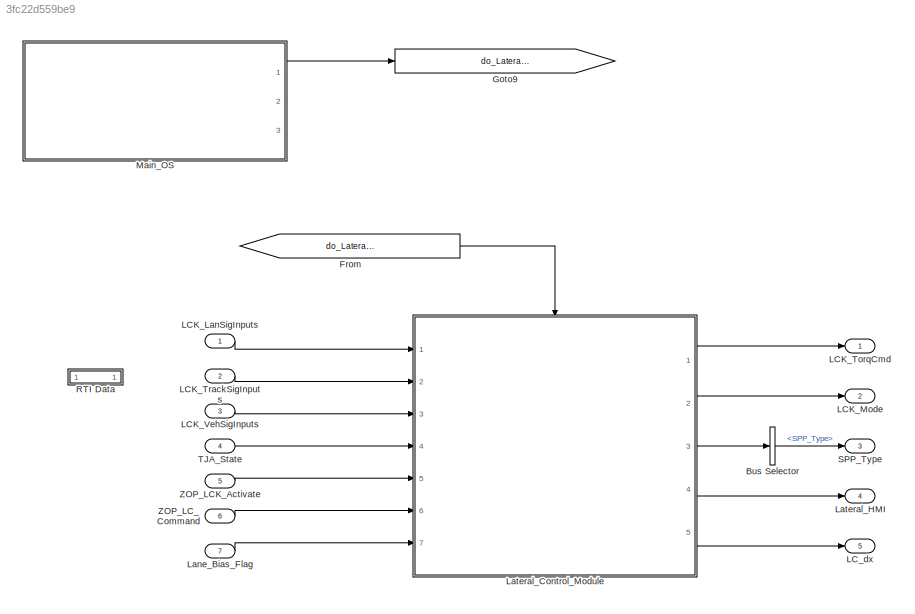
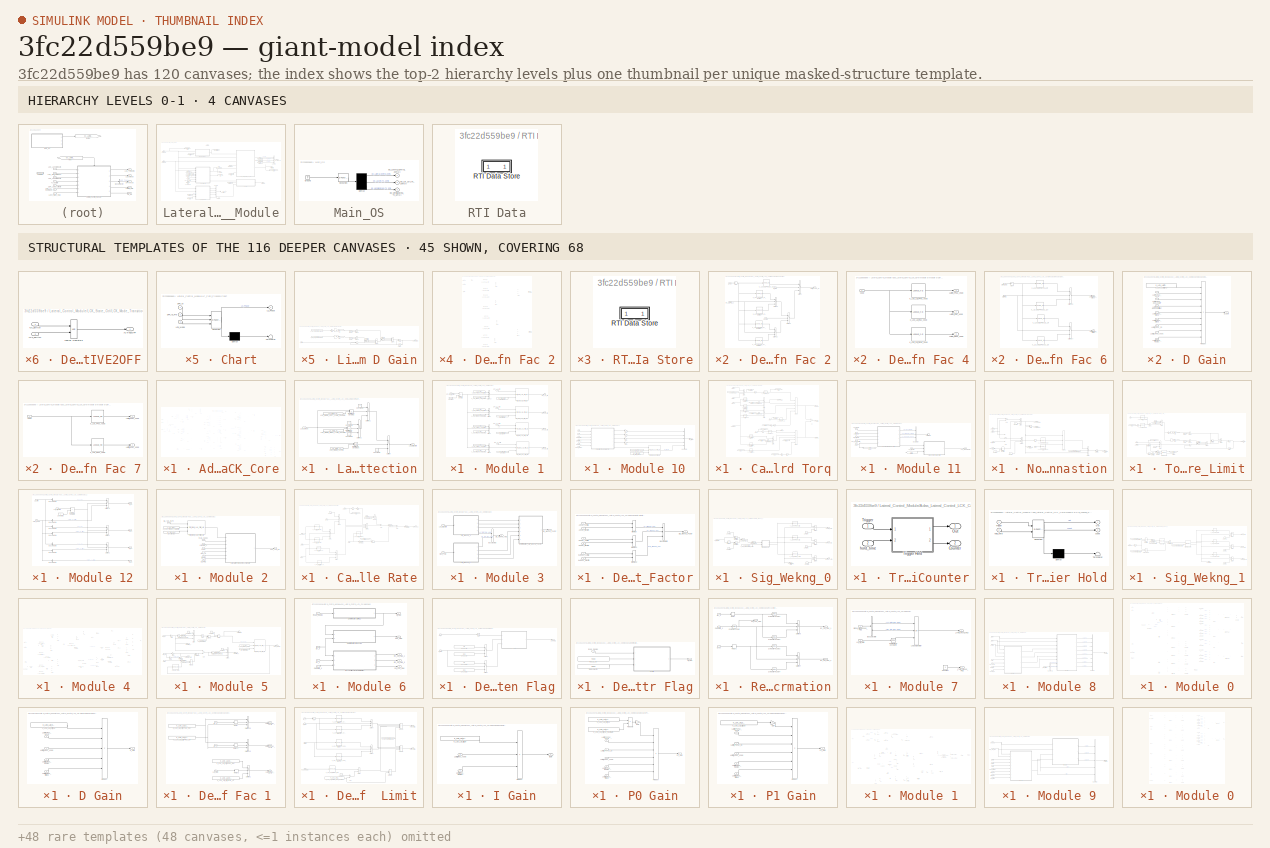
[diagram: thumbnail index - top-2 hierarchy levels (4 canvases) + 45 structural-template representatives of the remaining 116 canvases]
MODEL slx_3fc22d559be9
KIND model
CONFIG AbsTol = auto
CONFIG EnableMultiTasking = off
CONFIG FixedStep = 0.005
CONFIG MaxStep = auto
CONFIG MinStep = auto
CONFIG PostLoadFcn = if any(exist('dsrtsu_mdlpostloadfcn', 'file') ~= 0), dsrtsu_mdlpostloadfcn('Execute', bdroot); end
CONFIG RelTol = 1e-3
CONFIG SampleTimeConstraint = Unconstrained
CONFIG Solver = FixedStepDiscrete
CONFIG SolverName = FixedStepDiscrete
CONFIG StartTime = 0.0
CONFIG StopTime = inf
BLOCK [BusSelector] Bus Selector
  OutputAsBus = off
  OutputSignals = SPP_Info.SPP_Type
  Ports = [1, 1]
BLOCK [From] From
  GotoTag = do_Lateral_Control_20ms
BLOCK [Goto] Goto9
  GotoTag = do_Lateral_Control_20ms
BLOCK [Inport] LCK_LanSigInputs
  BusOutputAsStruct = on
  IconDisplay = Port number
  OutDataTypeStr = Bus: LatCtrl_LCK_LanSigInputs_t
BLOCK [Outport] LCK_Mode
  IconDisplay = Port number
  Port = 2
BLOCK [Outport] LCK_TorqCmd
  IconDisplay = Port number
BLOCK [Inport] LCK_TrackSigInputs
  BusOutputAsStruct = on
  IconDisplay = Port number
  OutDataTypeStr = Bus: LatCtrl_LCK_TrackSigInputs_t
  Port = 2
BLOCK [Inport] LCK_VehSigInputs
  BusOutputAsStruct = on
  IconDisplay = Port number
  OutDataTypeStr = Bus: LatCtrl_LCK_VehSigInputs_t
  Port = 3
BLOCK [Outport] LC_dx
  IconDisplay = Port number
  Port = 5
BLOCK [Inport] Lane_Bias_Flag
  IconDisplay = Port number
  Port = 7
BLOCK [SubSystem] Lateral_Control_Module
  Ports = [7, 5, 0, 1]
  RequestExecContextInheritance = off
BLOCK [TriggerPort] Lateral_Control_Module/20msCall
  Ports = []
  StatesWhenEnabling = held
  TriggerType = function-call
  VariantControl = (inherit)
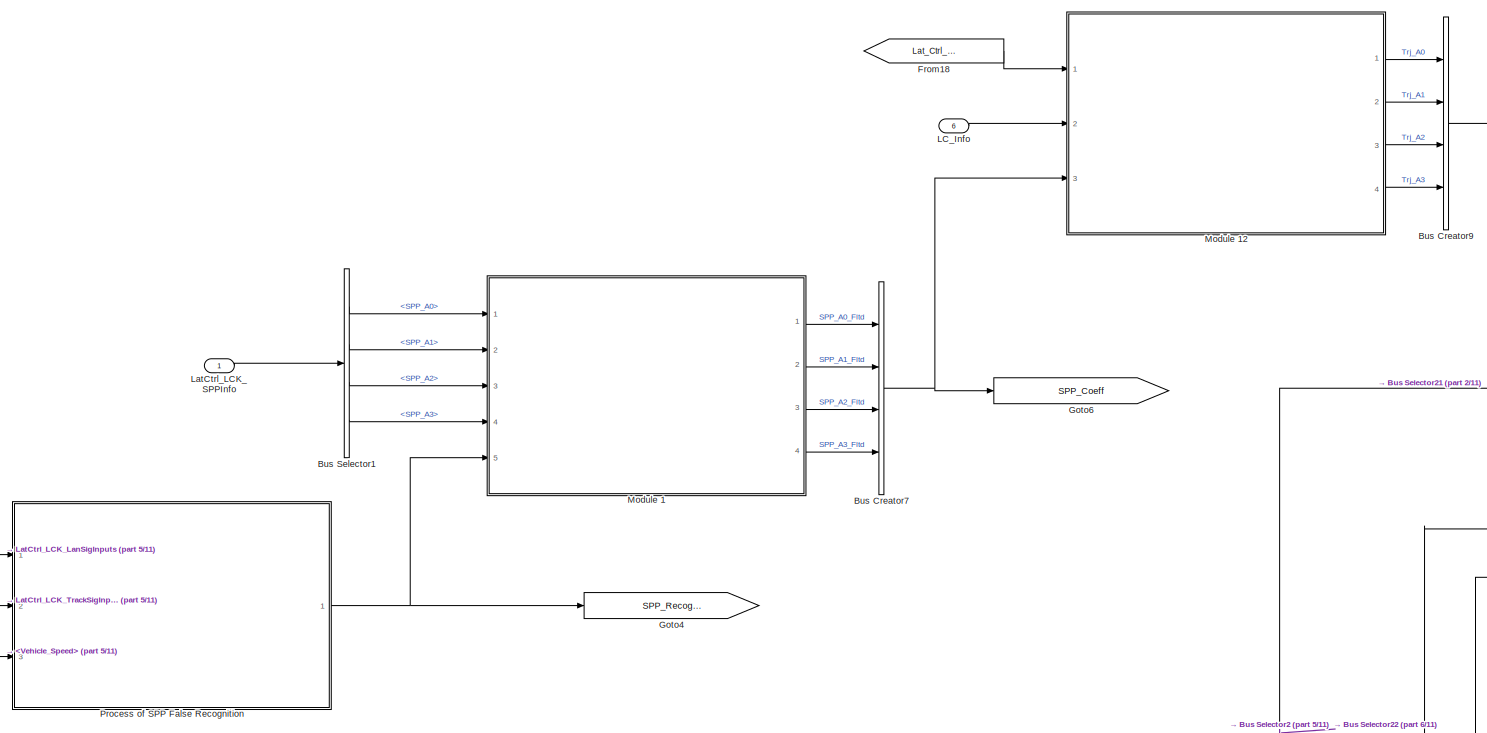
[diagram: Lateral_Control_Module/Adas_Lateral_Control_LCK_Core - part 1/11, top left region]
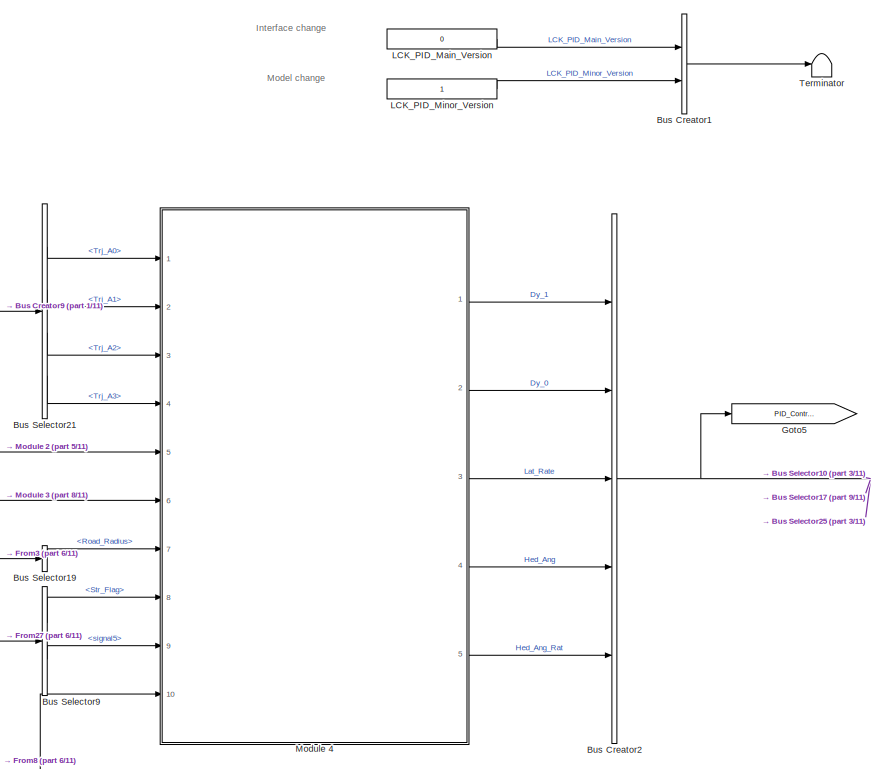
[diagram: Lateral_Control_Module/Adas_Lateral_Control_LCK_Core - part 2/11, top center region]
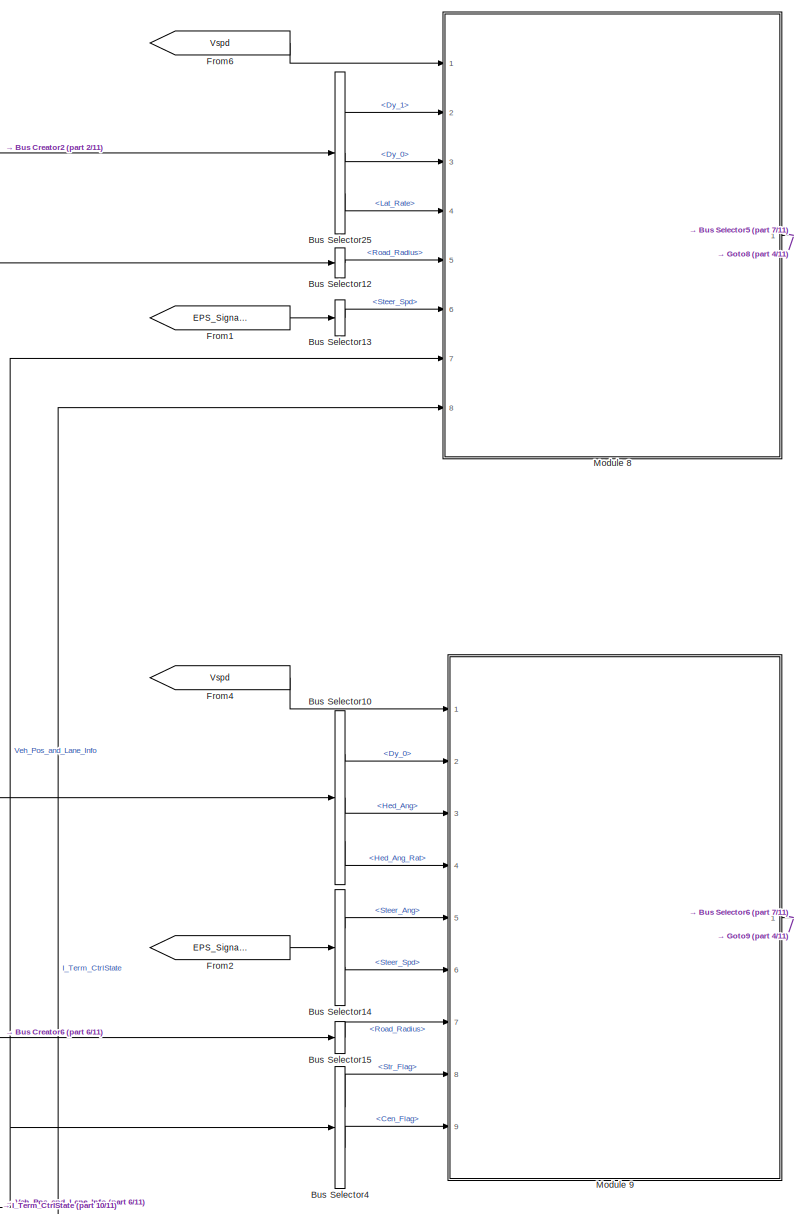
[diagram: Lateral_Control_Module/Adas_Lateral_Control_LCK_Core - part 3/11, central region]
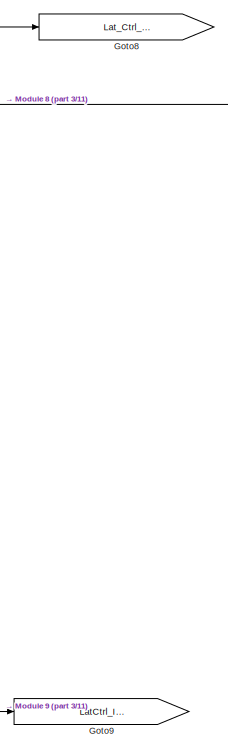
[diagram: Lateral_Control_Module/Adas_Lateral_Control_LCK_Core - part 4/11, top right region]
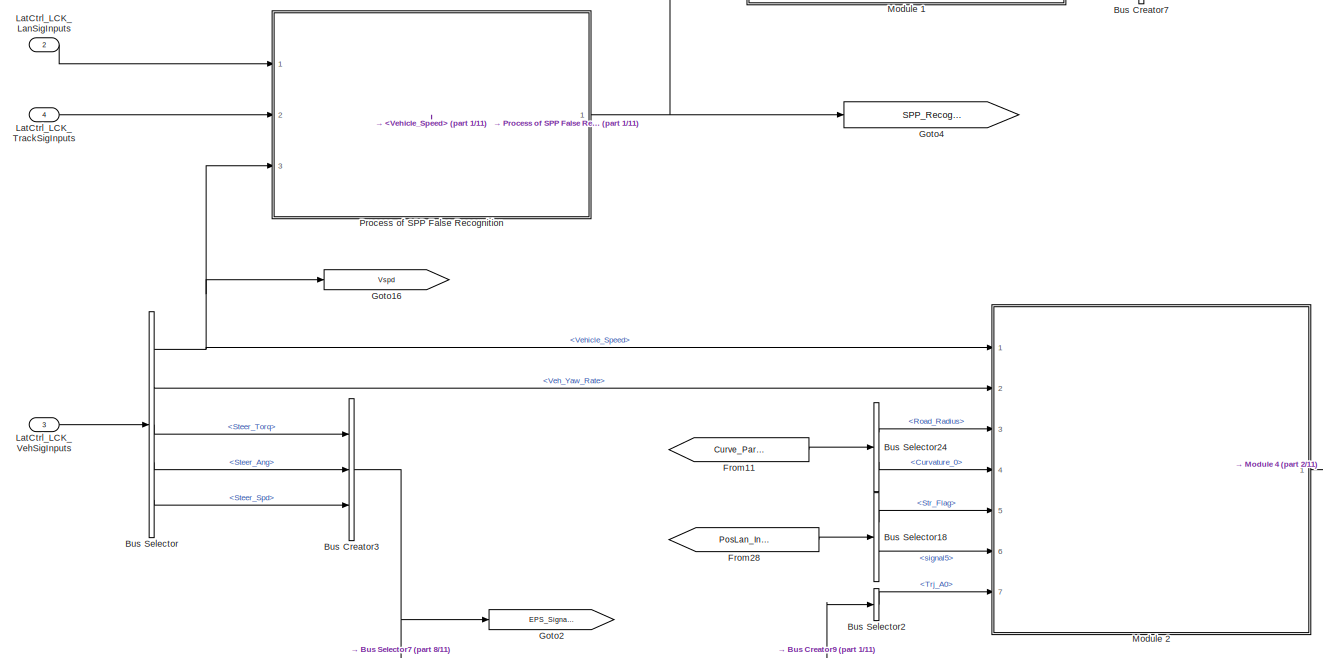
[diagram: Lateral_Control_Module/Adas_Lateral_Control_LCK_Core - part 5/11, middle left region]
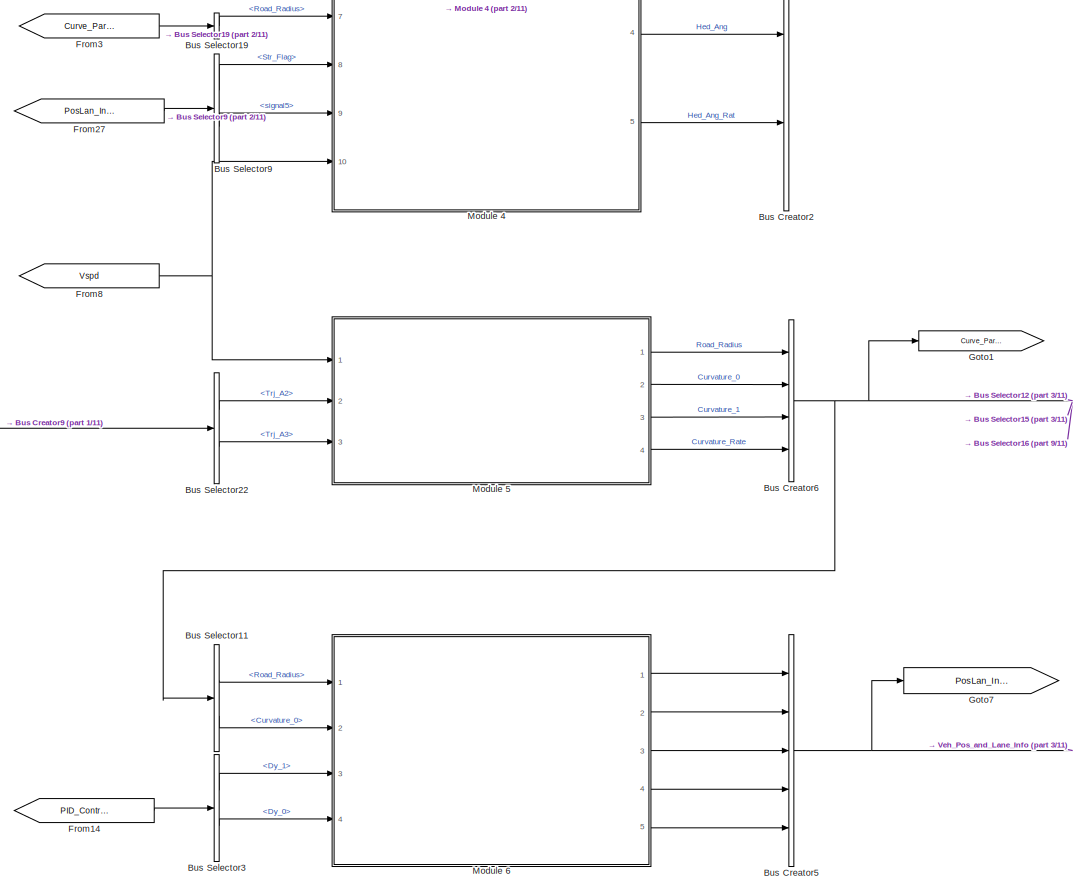
[diagram: Lateral_Control_Module/Adas_Lateral_Control_LCK_Core - part 6/11, central region]
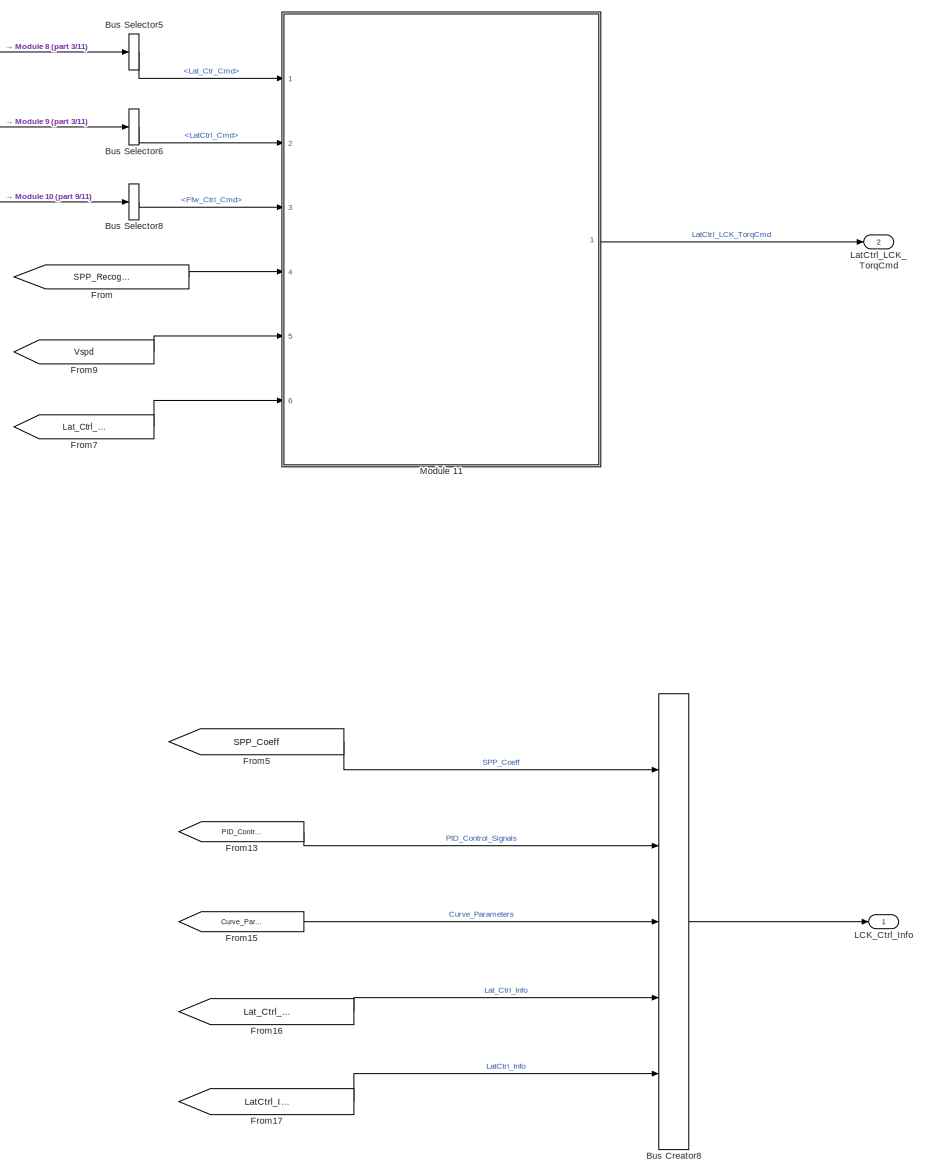
[diagram: Lateral_Control_Module/Adas_Lateral_Control_LCK_Core - part 7/11, bottom right region]
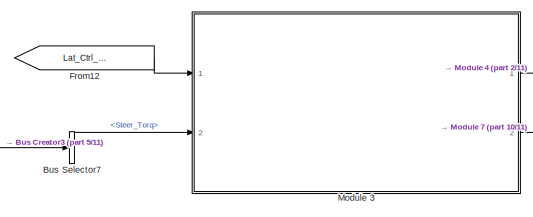
[diagram: Lateral_Control_Module/Adas_Lateral_Control_LCK_Core - part 8/11, middle left region]
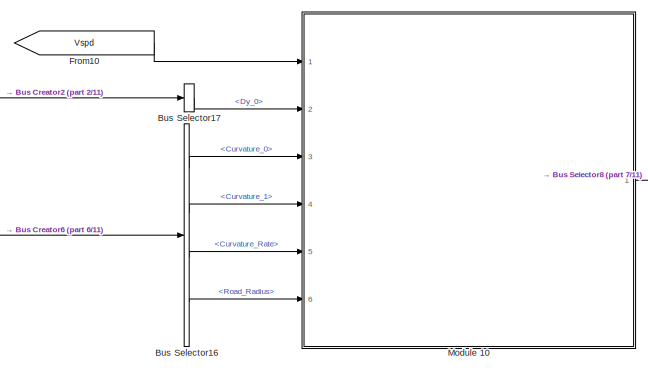
[diagram: Lateral_Control_Module/Adas_Lateral_Control_LCK_Core - part 9/11, bottom right region]
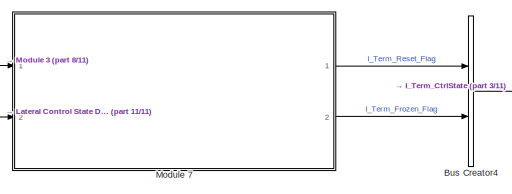
[diagram: Lateral_Control_Module/Adas_Lateral_Control_LCK_Core - part 10/11, bottom center region]
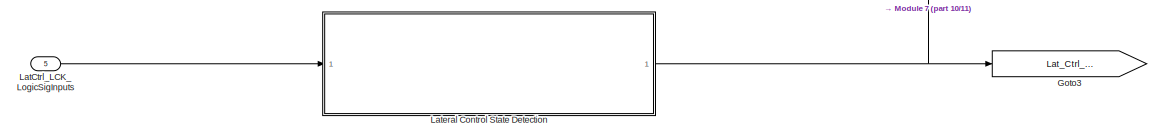
[diagram: Lateral_Control_Module/Adas_Lateral_Control_LCK_Core - part 11/11, bottom left region]
BLOCK [SubSystem] Lateral_Control_Module/Adas_Lateral_Control_LCK_Core
  Ports = [6, 2]
  RequestExecContextInheritance = off
BLOCK [BusCreator] Lateral_Control_Module/Adas_Lateral_Control_LCK_Core/Bus Creator1
  DisplayOption = bar
  InheritFromInputs = on
  Inputs = 2
  Ports = [2, 1]
BLOCK [BusCreator] Lateral_Control_Module/Adas_Lateral_Control_LCK_Core/Bus Creator2
  DisplayOption = bar
  InheritFromInputs = on
  Inputs = 5
  Ports = [5, 1]
BLOCK [BusCreator] Lateral_Control_Module/Adas_Lateral_Control_LCK_Core/Bus Creator3
  DisplayOption = bar
  InheritFromInputs = on
  Inputs = 3
  Ports = [3, 1]
BLOCK [BusCreator] Lateral_Control_Module/Adas_Lateral_Control_LCK_Core/Bus Creator4
  DisplayOption = bar
  InheritFromInputs = on
  Inputs = 2
  Ports = [2, 1]
BLOCK [BusCreator] Lateral_Control_Module/Adas_Lateral_Control_LCK_Core/Bus Creator5
  DisplayOption = bar
  InheritFromInputs = on
  Inputs = 5
  Ports = [5, 1]
BLOCK [BusCreator] Lateral_Control_Module/Adas_Lateral_Control_LCK_Core/Bus Creator6
  DisplayOption = bar
  InheritFromInputs = on
  Inputs = 4
  Ports = [4, 1]
BLOCK [BusCreator] Lateral_Control_Module/Adas_Lateral_Control_LCK_Core/Bus Creator7
  DisplayOption = bar
  InheritFromInputs = on
  Inputs = 4
  Ports = [4, 1]
BLOCK [BusCreator] Lateral_Control_Module/Adas_Lateral_Control_LCK_Core/Bus Creator8
  DisplayOption = bar
  InheritFromInputs = on
  Inputs = 5
  Ports = [5, 1]
BLOCK [BusCreator] Lateral_Control_Module/Adas_Lateral_Control_LCK_Core/Bus Creator9
  DisplayOption = bar
  InheritFromInputs = on
  Inputs = 4
  Ports = [4, 1]
BLOCK [BusSelector] Lateral_Control_Module/Adas_Lateral_Control_LCK_Core/Bus Selector
  OutputAsBus = off
  OutputSignals = Vehicle_Speed,Veh_Yaw_Rate,Steer_Torq,Steer_Ang,Steer_Spd
  Ports = [1, 5]
BLOCK [BusSelector] Lateral_Control_Module/Adas_Lateral_Control_LCK_Core/Bus Selector1
  OutputAsBus = off
  OutputSignals = SPP_A0,SPP_A1,SPP_A2,SPP_A3
  Ports = [1, 4]
BLOCK [BusSelector] Lateral_Control_Module/Adas_Lateral_Control_LCK_Core/Bus Selector10
  OutputAsBus = off
  OutputSignals = Dy_0,Hed_Ang,Hed_Ang_Rat
  Ports = [1, 3]
BLOCK [BusSelector] Lateral_Control_Module/Adas_Lateral_Control_LCK_Core/Bus Selector11
  OutputAsBus = off
  OutputSignals = Road_Radius,Curvature_0
  Ports = [1, 2]
BLOCK [BusSelector] Lateral_Control_Module/Adas_Lateral_Control_LCK_Core/Bus Selector12
  OutputAsBus = off
  OutputSignals = Road_Radius
  Ports = [1, 1]
BLOCK [BusSelector] Lateral_Control_Module/Adas_Lateral_Control_LCK_Core/Bus Selector13
  OutputAsBus = off
  OutputSignals = Steer_Spd
  Ports = [1, 1]
BLOCK [BusSelector] Lateral_Control_Module/Adas_Lateral_Control_LCK_Core/Bus Selector14
  OutputAsBus = off
  OutputSignals = Steer_Ang,Steer_Spd
  Ports = [1, 2]
BLOCK [BusSelector] Lateral_Control_Module/Adas_Lateral_Control_LCK_Core/Bus Selector15
  OutputAsBus = off
  OutputSignals = Road_Radius
  Ports = [1, 1]
BLOCK [BusSelector] Lateral_Control_Module/Adas_Lateral_Control_LCK_Core/Bus Selector16
  OutputAsBus = off
  OutputSignals = Curvature_0,Curvature_1,Curvature_Rate,Road_Radius
  Ports = [1, 4]
BLOCK [BusSelector] Lateral_Control_Module/Adas_Lateral_Control_LCK_Core/Bus Selector17
  OutputAsBus = off
  OutputSignals = Dy_0
  Ports = [1, 1]
BLOCK [BusSelector] Lateral_Control_Module/Adas_Lateral_Control_LCK_Core/Bus Selector18
  OutputAsBus = off
  OutputSignals = Str_Flag,signal5
  Ports = [1, 2]
BLOCK [BusSelector] Lateral_Control_Module/Adas_Lateral_Control_LCK_Core/Bus Selector19
  OutputAsBus = off
  OutputSignals = Road_Radius
  Ports = [1, 1]
BLOCK [BusSelector] Lateral_Control_Module/Adas_Lateral_Control_LCK_Core/Bus Selector2
  OutputAsBus = off
  OutputSignals = Trj_A0
  Ports = [1, 1]
BLOCK [BusSelector] Lateral_Control_Module/Adas_Lateral_Control_LCK_Core/Bus Selector21
  OutputAsBus = off
  OutputSignals = Trj_A0,Trj_A1,Trj_A2,Trj_A3
  Ports = [1, 4]
BLOCK [BusSelector] Lateral_Control_Module/Adas_Lateral_Control_LCK_Core/Bus Selector22
  OutputAsBus = off
  OutputSignals = Trj_A2,Trj_A3
  Ports = [1, 2]
BLOCK [BusSelector] Lateral_Control_Module/Adas_Lateral_Control_LCK_Core/Bus Selector24
  OutputAsBus = off
  OutputSignals = Road_Radius,Curvature_0
  Ports = [1, 2]
BLOCK [BusSelector] Lateral_Control_Module/Adas_Lateral_Control_LCK_Core/Bus Selector25
  OutputAsBus = off
  OutputSignals = Dy_1,Dy_0,Lat_Rate
  Ports = [1, 3]
BLOCK [BusSelector] Lateral_Control_Module/Adas_Lateral_Control_LCK_Core/Bus Selector3
  OutputAsBus = off
  OutputSignals = Dy_1,Dy_0
  Ports = [1, 2]
BLOCK [BusSelector] Lateral_Control_Module/Adas_Lateral_Control_LCK_Core/Bus Selector4
  OutputAsBus = off
  OutputSignals = Str_Flag,Cen_Flag
  Ports = [1, 2]
BLOCK [BusSelector] Lateral_Control_Module/Adas_Lateral_Control_LCK_Core/Bus Selector5
  OutputAsBus = off
  OutputSignals = Lat_Ctr_Cmd
  Ports = [1, 1]
BLOCK [BusSelector] Lateral_Control_Module/Adas_Lateral_Control_LCK_Core/Bus Selector6
  OutputAsBus = off
  OutputSignals = LatCtrl_Cmd
  Ports = [1, 1]
BLOCK [BusSelector] Lateral_Control_Module/Adas_Lateral_Control_LCK_Core/Bus Selector7
  OutputAsBus = off
  OutputSignals = Steer_Torq
  Ports = [1, 1]
BLOCK [BusSelector] Lateral_Control_Module/Adas_Lateral_Control_LCK_Core/Bus Selector8
  OutputAsBus = off
  OutputSignals = Ffw_Ctrl_Cmd
  Ports = [1, 1]
BLOCK [BusSelector] Lateral_Control_Module/Adas_Lateral_Control_LCK_Core/Bus Selector9
  OutputAsBus = off
  OutputSignals = Str_Flag,signal5
  Ports = [1, 2]
BLOCK [From] Lateral_Control_Module/Adas_Lateral_Control_LCK_Core/From
  GotoTag = SPP_Recognition_Type
BLOCK [From] Lateral_Control_Module/Adas_Lateral_Control_LCK_Core/From1
  GotoTag = EPS_Signals
BLOCK [From] Lateral_Control_Module/Adas_Lateral_Control_LCK_Core/From10
  GotoTag = Vspd
BLOCK [From] Lateral_Control_Module/Adas_Lateral_Control_LCK_Core/From11
  GotoTag = Curve_Parameters
BLOCK [From] Lateral_Control_Module/Adas_Lateral_Control_LCK_Core/From12
  GotoTag = Lat_Ctrl_State
BLOCK [From] Lateral_Control_Module/Adas_Lateral_Control_LCK_Core/From13
  GotoTag = PID_Control_Signals
BLOCK [From] Lateral_Control_Module/Adas_Lateral_Control_LCK_Core/From14
  GotoTag = PID_Control_Signals
BLOCK [From] Lateral_Control_Module/Adas_Lateral_Control_LCK_Core/From15
  GotoTag = Curve_Parameters
BLOCK [From] Lateral_Control_Module/Adas_Lateral_Control_LCK_Core/From16
  GotoTag = Lat_Ctrl_Info
BLOCK [From] Lateral_Control_Module/Adas_Lateral_Control_LCK_Core/From17
  GotoTag = LatCtrl_Info
BLOCK [From] Lateral_Control_Module/Adas_Lateral_Control_LCK_Core/From18
  GotoTag = Lat_Ctrl_State
BLOCK [From] Lateral_Control_Module/Adas_Lateral_Control_LCK_Core/From2
  GotoTag = EPS_Signals
BLOCK [From] Lateral_Control_Module/Adas_Lateral_Control_LCK_Core/From27
  GotoTag = PosLan_Info
BLOCK [From] Lateral_Control_Module/Adas_Lateral_Control_LCK_Core/From28
  GotoTag = PosLan_Info
BLOCK [From] Lateral_Control_Module/Adas_Lateral_Control_LCK_Core/From3
  GotoTag = Curve_Parameters
BLOCK [From] Lateral_Control_Module/Adas_Lateral_Control_LCK_Core/From4
  GotoTag = Vspd
BLOCK [From] Lateral_Control_Module/Adas_Lateral_Control_LCK_Core/From5
  GotoTag = SPP_Coeff
BLOCK [From] Lateral_Control_Module/Adas_Lateral_Control_LCK_Core/From6
  GotoTag = Vspd
BLOCK [From] Lateral_Control_Module/Adas_Lateral_Control_LCK_Core/From7
  GotoTag = Lat_Ctrl_State
BLOCK [From] Lateral_Control_Module/Adas_Lateral_Control_LCK_Core/From8
  GotoTag = Vspd
BLOCK [From] Lateral_Control_Module/Adas_Lateral_Control_LCK_Core/From9
  GotoTag = Vspd
BLOCK [Goto] Lateral_Control_Module/Adas_Lateral_Control_LCK_Core/Goto1
  GotoTag = Curve_Parameters
BLOCK [Goto] Lateral_Control_Module/Adas_Lateral_Control_LCK_Core/Goto16
  GotoTag = Vspd
BLOCK [Goto] Lateral_Control_Module/Adas_Lateral_Control_LCK_Core/Goto2
  GotoTag = EPS_Signals
BLOCK [Goto] Lateral_Control_Module/Adas_Lateral_Control_LCK_Core/Goto3
  GotoTag = Lat_Ctrl_State
BLOCK [Goto] Lateral_Control_Module/Adas_Lateral_Control_LCK_Core/Goto4
  GotoTag = SPP_Recognition_Type
BLOCK [Goto] Lateral_Control_Module/Adas_Lateral_Control_LCK_Core/Goto5
  GotoTag = PID_Control_Signals
BLOCK [Goto] Lateral_Control_Module/Adas_Lateral_Control_LCK_Core/Goto6
  GotoTag = SPP_Coeff
BLOCK [Goto] Lateral_Control_Module/Adas_Lateral_Control_LCK_Core/Goto7
  GotoTag = PosLan_Info
BLOCK [Goto] Lateral_Control_Module/Adas_Lateral_Control_LCK_Core/Goto8
  GotoTag = Lat_Ctrl_Info
BLOCK [Goto] Lateral_Control_Module/Adas_Lateral_Control_LCK_Core/Goto9
  GotoTag = LatCtrl_Info
BLOCK [Outport] Lateral_Control_Module/Adas_Lateral_Control_LCK_Core/LCK_Ctrl_Info
  Description = _GWMAB30P4.LCK.000_318_
  IconDisplay = Port number
  OutDataTypeStr = single
BLOCK [Constant] Lateral_Control_Module/Adas_Lateral_Control_LCK_Core/LCK_PID_Main_Version
  OutDataTypeStr = uint8
  Value = 0
BLOCK [Constant] Lateral_Control_Module/Adas_Lateral_Control_LCK_Core/LCK_PID_Minor_Version
  OutDataTypeStr = uint8
BLOCK [Inport] Lateral_Control_Module/Adas_Lateral_Control_LCK_Core/LC_Info
  IconDisplay = Port number
  Port = 6
BLOCK [Inport] Lateral_Control_Module/Adas_Lateral_Control_LCK_Core/LatCtrl_LCK_LanSigInputs
  IconDisplay = Port number
  OutDataTypeStr = Bus: LatCtrl_LCK_LanSigInputs_t
  Port = 2
BLOCK [Inport] Lateral_Control_Module/Adas_Lateral_Control_LCK_Core/LatCtrl_LCK_LogicSigInputs
  Description = _GWMAB30P4.LCK.000_293_
  IconDisplay = Port number
  Port = 5
BLOCK [Inport] Lateral_Control_Module/Adas_Lateral_Control_LCK_Core/LatCtrl_LCK_SPPInfo
  IconDisplay = Port number
  OutDataTypeStr = Bus: LatCtrl_LCK_SPPInfo_t
BLOCK [Outport] Lateral_Control_Module/Adas_Lateral_Control_LCK_Core/LatCtrl_LCK_TorqCmd
  Description = _GWMAB30P4.LCK.000_318_
  IconDisplay = Port number
  OutDataTypeStr = single
  Port = 2
BLOCK [Inport] Lateral_Control_Module/Adas_Lateral_Control_LCK_Core/LatCtrl_LCK_TrackSigInputs
  Description = _GWMAB30P4.LCK.000_220_
  IconDisplay = Port number
  OutDataTypeStr = Bus: LatCtrl_LCK_TrackSigInputs_t
  Port = 4
BLOCK [Inport] Lateral_Control_Module/Adas_Lateral_Control_LCK_Core/LatCtrl_LCK_VehSigInputs
  Description = _GWMAB30P4.LCK.000_287_
  IconDisplay = Port number
  OutDataTypeStr = Bus: LatCtrl_LCK_VehSigInputs_t
  Port = 3
BLOCK [SubSystem] Lateral_Control_Module/Adas_Lateral_Control_LCK_Core/Lateral Control State Detection
  Ports = [1, 1]
  RequestExecContextInheritance = off
BLOCK [Constant] Lateral_Control_Module/Adas_Lateral_Control_LCK_Core/Lateral Control State Detection/Constant1
  Description = _GWMAB30P3.LCK.000_155_
  OutDataTypeStr = uint8
  Value = 2
BLOCK [Constant] Lateral_Control_Module/Adas_Lateral_Control_LCK_Core/Lateral Control State Detection/Constant2
  Description = _GWMAB30P3.LCK.000_155_
  OutDataTypeStr = uint8
  Value = 0
BLOCK [Constant] Lateral_Control_Module/Adas_Lateral_Control_LCK_Core/Lateral Control State Detection/Constant3
  Description = _GWMAB30P3.LCK.000_155_
  OutDataTypeStr = uint8
  Value = 3
BLOCK [Constant] Lateral_Control_Module/Adas_Lateral_Control_LCK_Core/Lateral Control State Detection/Constant4
  Description = _GWMAB30P3.LCK.000_155_
  OutDataTypeStr = uint8
BLOCK [Constant] Lateral_Control_Module/Adas_Lateral_Control_LCK_Core/Lateral Control State Detection/LCK_MODE_ACTIVE
  Description = _GWMAB30P2.LCK.000_1337_
  Tag = {'output',{'name','$P','max',23,'min',0,'class','EXTERN_MACRO','type','UInt8','scaling','VOID_SCALING'},'date',737296.63830359955}
  Value = LCK_MODE_ACTIVE
BLOCK [Constant] Lateral_Control_Module/Adas_Lateral_Control_LCK_Core/Lateral Control State Detection/LCK_MODE_LEFT_LANE_CHANGE
  Description = _GWMAB30P2.LCK.000_1337_
  Tag = {'output',{'name','$P','max',23,'min',0,'class','EXTERN_MACRO','type','UInt8','scaling','VOID_SCALING'},'date',737296.63830359955}
  Value = LCK_MODE_LEFT_LANE_CHANGE
BLOCK [Constant] Lateral_Control_Module/Adas_Lateral_Control_LCK_Core/Lateral Control State Detection/LCK_MODE_RIGHT_LANE_CHANGE
  Description = _GWMAB30P2.LCK.000_1337_
  Tag = {'output',{'name','$P','max',23,'min',0,'class','EXTERN_MACRO','type','UInt8','scaling','VOID_SCALING'},'date',737296.63830359955}
  Value = LCK_MODE_RIGHT_LANE_CHANGE
BLOCK [Inport] Lateral_Control_Module/Adas_Lateral_Control_LCK_Core/Lateral Control State Detection/LCK_Mode
  Description = _GWMAB30P4.LCK.000_293_
  IconDisplay = Port number
BLOCK [Outport] Lateral_Control_Module/Adas_Lateral_Control_LCK_Core/Lateral Control State Detection/Lat_Ctrl_State
  IconDisplay = Port number
BLOCK [RelationalOperator] Lateral_Control_Module/Adas_Lateral_Control_LCK_Core/Lateral Control State Detection/Relational Operator1
  Description = _GWMAB30P2.LCK.000_1388_
  InputSameDT = off
  Operator = ==
  Ports = [2, 1]
  Tag = {'date',737184.60401761578}
BLOCK [RelationalOperator] Lateral_Control_Module/Adas_Lateral_Control_LCK_Core/Lateral Control State Detection/Relational Operator16
  Description = _GWMAB30P2.LCK.000_1388_
  InputSameDT = off
  Ports = [2, 1]
  Tag = {'date',737184.60401761578}
BLOCK [RelationalOperator] Lateral_Control_Module/Adas_Lateral_Control_LCK_Core/Lateral Control State Detection/Relational Operator2
  Description = _GWMAB30P2.LCK.000_1388_
  InputSameDT = off
  Operator = ==
  Ports = [2, 1]
  Tag = {'date',737184.60401761578}
BLOCK [Switch] Lateral_Control_Module/Adas_Lateral_Control_LCK_Core/Lateral Control State Detection/Switch
  Description = _GWMAB30P2.LCK.000_1368_
  InputSameDT = off
  SaturateOnIntegerOverflow = off
  Threshold = 0.5
BLOCK [Switch] Lateral_Control_Module/Adas_Lateral_Control_LCK_Core/Lateral Control State Detection/Switch1
  Description = _GWMAB30P2.LCK.000_1368_
  InputSameDT = off
  SaturateOnIntegerOverflow = off
  Threshold = 0.5
BLOCK [Switch] Lateral_Control_Module/Adas_Lateral_Control_LCK_Core/Lateral Control State Detection/Switch2
  Description = _GWMAB30P2.LCK.000_1368_
  InputSameDT = off
  SaturateOnIntegerOverflow = off
  Threshold = 0.5
BLOCK [SubSystem] Lateral_Control_Module/Adas_Lateral_Control_LCK_Core/Module 1
  Ports = [5, 4]
  RequestExecContextInheritance = off
BLOCK [Constant] Lateral_Control_Module/Adas_Lateral_Control_LCK_Core/Module 1/Constant1
  Value = ML_TIME_MSEC
BLOCK [Constant] Lateral_Control_Module/Adas_Lateral_Control_LCK_Core/Module 1/Constant2
  Description = _GWMH9P4.LCK.000_202_
  OutDataTypeStr = uint8
  Tag = {'output',{'name','$P','class','EXTERN_MACRO','type','ESR_Typedefs/unsigned8_T'},'date',737462.69417376153}
  Value = 2
BLOCK [Constant] Lateral_Control_Module/Adas_Lateral_Control_LCK_Core/Module 1/Constant42
  Description = _GWMH9P4.LCK.000_202_
  Tag = {'output',{'name','$P','class','EXTERN_MACRO','type','ESR_Typedefs/unsigned8_T'},'date',737462.69417376153}
  Value = ML_TIME_MSEC
BLOCK [Constant] Lateral_Control_Module/Adas_Lateral_Control_LCK_Core/Module 1/Constant43
  Description = _GWMH9P4.LCK.000_204_
  Tag = {'output',{'name','$P','class','EXTERN_MACRO','type','ESR_Typedefs/unsigned8_T'},'date',737462.69417392358}
  Value = ML_TIME_MSEC
BLOCK [Constant] Lateral_Control_Module/Adas_Lateral_Control_LCK_Core/Module 1/Constant44
  Value = ML_TIME_MSEC
BLOCK [Reference] Lateral_Control_Module/Adas_Lateral_Control_LCK_Core/Module 1/First_Order_Lag_Filter_LIB  REF=LateralControl_fcns_lib/First_Order_Lag_Filter_LIB
  Ports = [3, 1]
  SourceBlock = LateralControl_fcns_lib/First_Order_Lag_Filter_LIB
  SourceType = SubSystem
BLOCK [Reference] Lateral_Control_Module/Adas_Lateral_Control_LCK_Core/Module 1/First_Order_Lag_Filter_LIB1  REF=LateralControl_fcns_lib/First_Order_Lag_Filter_LIB
  Ports = [3, 1]
  SourceBlock = LateralControl_fcns_lib/First_Order_Lag_Filter_LIB
  SourceType = SubSystem
BLOCK [Reference] Lateral_Control_Module/Adas_Lateral_Control_LCK_Core/Module 1/First_Order_Lag_Filter_LIB2  REF=LateralControl_fcns_lib/First_Order_Lag_Filter_LIB
  Ports = [3, 1]
  SourceBlock = LateralControl_fcns_lib/First_Order_Lag_Filter_LIB
  SourceType = SubSystem
BLOCK [Reference] Lateral_Control_Module/Adas_Lateral_Control_LCK_Core/Module 1/First_Order_Lag_Filter_LIB3  REF=LateralControl_fcns_lib/First_Order_Lag_Filter_LIB
  Ports = [3, 1]
  SourceBlock = LateralControl_fcns_lib/First_Order_Lag_Filter_LIB
  SourceType = SubSystem
BLOCK [RelationalOperator] Lateral_Control_Module/Adas_Lateral_Control_LCK_Core/Module 1/Relational Operator3
  InputSameDT = off
  Operator = ==
  OutDataTypeStr = boolean
  Ports = [2, 1]
BLOCK [Outport] Lateral_Control_Module/Adas_Lateral_Control_LCK_Core/Module 1/SPP_A0_Fltd
  Description = _GWMH9P3.LCK.000_786_
  IconDisplay = Port number
BLOCK [Inport] Lateral_Control_Module/Adas_Lateral_Control_LCK_Core/Module 1/SPP_A0_Unfilt
  Description = _GWMH9P3.LCK.000_669_
  IconDisplay = Port number
BLOCK [Outport] Lateral_Control_Module/Adas_Lateral_Control_LCK_Core/Module 1/SPP_A1_Fltd
  Description = _GWMH9P3.LCK.000_787_
  IconDisplay = Port number
  Port = 2
BLOCK [Inport] Lateral_Control_Module/Adas_Lateral_Control_LCK_Core/Module 1/SPP_A1_Unfilt
  Description = _GWMH9P3.LCK.000_670_
  IconDisplay = Port number
  Port = 2
BLOCK [Outport] Lateral_Control_Module/Adas_Lateral_Control_LCK_Core/Module 1/SPP_A2_Fltd
  Description = _GWMH9P3.LCK.000_787_
  IconDisplay = Port number
  Port = 3
BLOCK [Inport] Lateral_Control_Module/Adas_Lateral_Control_LCK_Core/Module 1/SPP_A2_Unfilt
  Description = _GWMH9P3.LCK.000_671_
  IconDisplay = Port number
  Port = 3
BLOCK [Outport] Lateral_Control_Module/Adas_Lateral_Control_LCK_Core/Module 1/SPP_A3_Fltd
  Description = _GWMH9P3.LCK.000_787_
  IconDisplay = Port number
  Port = 4
BLOCK [Inport] Lateral_Control_Module/Adas_Lateral_Control_LCK_Core/Module 1/SPP_A3_Unfilt
  Description = _GWMH9P3.LCK.000_672_
  IconDisplay = Port number
  Port = 4
BLOCK [Inport] Lateral_Control_Module/Adas_Lateral_Control_LCK_Core/Module 1/SPP_Recognition_Type
  IconDisplay = Port number
  Port = 5
BLOCK [Switch] Lateral_Control_Module/Adas_Lateral_Control_LCK_Core/Module 1/Switch1
  Description = _GWMAB30P2.LCK.000_1368_
  InputSameDT = off
  SaturateOnIntegerOverflow = off
  Threshold = 0.5
BLOCK [Switch] Lateral_Control_Module/Adas_Lateral_Control_LCK_Core/Module 1/Switch10
  Description = _GWMAB30P2.LCK.000_1368_
  InputSameDT = off
  SaturateOnIntegerOverflow = off
  Threshold = 0.5
BLOCK [Switch] Lateral_Control_Module/Adas_Lateral_Control_LCK_Core/Module 1/Switch2
  Description = _GWMAB30P2.LCK.000_1368_
  InputSameDT = off
  SaturateOnIntegerOverflow = off
  Threshold = 0.5
BLOCK [Switch] Lateral_Control_Module/Adas_Lateral_Control_LCK_Core/Module 1/Switch3
  Description = _GWMAB30P2.LCK.000_1368_
  InputSameDT = off
  SaturateOnIntegerOverflow = off
  Threshold = 0.5
BLOCK [Constant] Lateral_Control_Module/Adas_Lateral_Control_LCK_Core/Module 1/k_LCK_TimCon_A0Flt_Normal
  Description = _GACA26P3.LCK.000_83_
  Tag = {'output',{'name','$P','class','EXTERN_CAL','type','Float32'},'date',737503.54997206014}
  Value = k_LCK_TimCon_A0Flt_Normal
BLOCK [Constant] Lateral_Control_Module/Adas_Lateral_Control_LCK_Core/Module 1/k_LCK_TimCon_A0Flt_Strong
  Description = _GACA26P3.LCK.000_83_
  Tag = {'output',{'name','$P','class','EXTERN_CAL','type','Float32'},'date',737503.54997206014}
  Value = k_LCK_TimCon_A0Flt_Strong
BLOCK [Constant] Lateral_Control_Module/Adas_Lateral_Control_LCK_Core/Module 1/k_LCK_TimCon_A1Flt_Normal
  Description = _GACA26P3.LCK.000_83_
  Tag = {'output',{'name','$P','class','EXTERN_CAL','type','Float32'},'date',737503.54997206014}
  Value = k_LCK_TimCon_A1Flt_Normal
BLOCK [Constant] Lateral_Control_Module/Adas_Lateral_Control_LCK_Core/Module 1/k_LCK_TimCon_A1Flt_Strong
  Description = _GACA26P3.LCK.000_83_
  Tag = {'output',{'name','$P','class','EXTERN_CAL','type','Float32'},'date',737503.54997206014}
  Value = k_LCK_TimCon_A1Flt_Strong
BLOCK [Constant] Lateral_Control_Module/Adas_Lateral_Control_LCK_Core/Module 1/k_LCK_TimCon_A2Flt_Normal
  Description = _GACA26P3.LCK.000_83_
  Tag = {'output',{'name','$P','class','EXTERN_CAL','type','Float32'},'date',737503.54997206014}
  Value = k_LCK_TimCon_A2Flt_Normal
BLOCK [Constant] Lateral_Control_Module/Adas_Lateral_Control_LCK_Core/Module 1/k_LCK_TimCon_A2Flt_Strong
  Description = _GACA26P3.LCK.000_83_
  Tag = {'output',{'name','$P','class','EXTERN_CAL','type','Float32'},'date',737503.54997206014}
  Value = k_LCK_TimCon_A2Flt_Strong
BLOCK [Constant] Lateral_Control_Module/Adas_Lateral_Control_LCK_Core/Module 1/k_LCK_TimCon_A3Flt_Normal
  Description = _GACA26P3.LCK.000_83_
  Tag = {'output',{'name','$P','class','EXTERN_CAL','type','Float32'},'date',737503.54997206014}
  Value = k_LCK_TimCon_A3Flt_Normal
BLOCK [Constant] Lateral_Control_Module/Adas_Lateral_Control_LCK_Core/Module 1/k_LCK_TimCon_A3Flt_Strong
  Description = _GACA26P3.LCK.000_83_
  Tag = {'output',{'name','$P','class','EXTERN_CAL','type','Float32'},'date',737503.54997206014}
  Value = k_LCK_TimCon_A3Flt_Strong
BLOCK [SubSystem] Lateral_Control_Module/Adas_Lateral_Control_LCK_Core/Module 10
  Ports = [6, 1]
  RequestExecContextInheritance = off
BLOCK [BusCreator] Lateral_Control_Module/Adas_Lateral_Control_LCK_Core/Module 10/Bus Creator8
  DisplayOption = bar
  InheritFromInputs = on
  Inputs = 5
  Ports = [5, 1]
BLOCK [SubSystem] Lateral_Control_Module/Adas_Lateral_Control_LCK_Core/Module 10/Calculation of Feed Forward Torq
  Ports = [6, 5]
  RequestExecContextInheritance = off
BLOCK [Abs] Lateral_Control_Module/Adas_Lateral_Control_LCK_Core/Module 10/Calculation of Feed Forward Torq/Abs
  SaturateOnIntegerOverflow = off
BLOCK [Abs] Lateral_Control_Module/Adas_Lateral_Control_LCK_Core/Module 10/Calculation of Feed Forward Torq/Abs1
  SaturateOnIntegerOverflow = off
BLOCK [Sum] Lateral_Control_Module/Adas_Lateral_Control_LCK_Core/Module 10/Calculation of Feed Forward Torq/Add
  InputSameDT = off
  OutDataTypeStr = Inherit: Inherit via internal rule
  Ports = [2, 1]
  SaturateOnIntegerOverflow = off
BLOCK [Reference] Lateral_Control_Module/Adas_Lateral_Control_LCK_Core/Module 10/Calculation of Feed Forward Torq/Compare To Zero2  REF=simulink/Logic and Bit
Operations/Compare
To Zero
  Ports = [1, 1]
  SourceBlock = simulink/Logic and Bit\nOperations/Compare\nTo Zero
  SourceProductBaseCode = SL
  SourceProductName = Simulink
  SourceType = Compare To Zero
BLOCK [Reference] Lateral_Control_Module/Adas_Lateral_Control_LCK_Core/Module 10/Calculation of Feed Forward Torq/Compare To Zero3  REF=simulink/Logic and Bit
Operations/Compare
To Zero
  Ports = [1, 1]
  SourceBlock = simulink/Logic and Bit\nOperations/Compare\nTo Zero
  SourceProductBaseCode = SL
  SourceProductName = Simulink
  SourceType = Compare To Zero
BLOCK [Reference] Lateral_Control_Module/Adas_Lateral_Control_LCK_Core/Module 10/Calculation of Feed Forward Torq/Compare To Zero4  REF=simulink/Logic and Bit
Operations/Compare
To Zero
  Ports = [1, 1]
  SourceBlock = simulink/Logic and Bit\nOperations/Compare\nTo Zero
  SourceProductBaseCode = SL
  SourceProductName = Simulink
  SourceType = Compare To Zero
BLOCK [Inport] Lateral_Control_Module/Adas_Lateral_Control_LCK_Core/Module 10/Calculation of Feed Forward Torq/Current_Dy
  IconDisplay = Port number
  Port = 2
BLOCK [Inport] Lateral_Control_Module/Adas_Lateral_Control_LCK_Core/Module 10/Calculation of Feed Forward Torq/Curvat_Rat
  IconDisplay = Port number
  Port = 3
BLOCK [Inport] Lateral_Control_Module/Adas_Lateral_Control_LCK_Core/Module 10/Calculation of Feed Forward Torq/Curvature_0
  IconDisplay = Port number
  Port = 4
BLOCK [Inport] Lateral_Control_Module/Adas_Lateral_Control_LCK_Core/Module 10/Calculation of Feed Forward Torq/Curvature_1
  IconDisplay = Port number
  Port = 5
BLOCK [Outport] Lateral_Control_Module/Adas_Lateral_Control_LCK_Core/Module 10/Calculation of Feed Forward Torq/Feed_Forward_Torq
  IconDisplay = Port number
  Port = 5
BLOCK [Outport] Lateral_Control_Module/Adas_Lateral_Control_LCK_Core/Module 10/Calculation of Feed Forward Torq/FfwFac_CvatRate
  IconDisplay = Port number
BLOCK [Outport] Lateral_Control_Module/Adas_Lateral_Control_LCK_Core/Module 10/Calculation of Feed Forward Torq/FfwFac_Dy
  IconDisplay = Port number
  Port = 2
BLOCK [Outport] Lateral_Control_Module/Adas_Lateral_Control_LCK_Core/Module 10/Calculation of Feed Forward Torq/FfwTorq_Basic
  IconDisplay = Port number
  Port = 3
BLOCK [Outport] Lateral_Control_Module/Adas_Lateral_Control_LCK_Core/Module 10/Calculation of Feed Forward Torq/FfwTorq_Delta
  IconDisplay = Port number
  Port = 4
BLOCK [From] Lateral_Control_Module/Adas_Lateral_Control_LCK_Core/Module 10/Calculation of Feed Forward Torq/From11
  GotoTag = Curvature
BLOCK [From] Lateral_Control_Module/Adas_Lateral_Control_LCK_Core/Module 10/Calculation of Feed Forward Torq/From13
  GotoTag = Curvature
BLOCK [From] Lateral_Control_Module/Adas_Lateral_Control_LCK_Core/Module 10/Calculation of Feed Forward Torq/From17
  GotoTag = Vspd
BLOCK [From] Lateral_Control_Module/Adas_Lateral_Control_LCK_Core/Module 10/Calculation of Feed Forward Torq/From18
  GotoTag = FfwTorq_Cvat
BLOCK [From] Lateral_Control_Module/Adas_Lateral_Control_LCK_Core/Module 10/Calculation of Feed Forward Torq/From29
  GotoTag = Dy
BLOCK [From] Lateral_Control_Module/Adas_Lateral_Control_LCK_Core/Module 10/Calculation of Feed Forward Torq/From8
  GotoTag = Curvature
BLOCK [From] Lateral_Control_Module/Adas_Lateral_Control_LCK_Core/Module 10/Calculation of Feed Forward Torq/From9
  GotoTag = Curvature
BLOCK [Gain] Lateral_Control_Module/Adas_Lateral_Control_LCK_Core/Module 10/Calculation of Feed Forward Torq/Gain
  Gain = -1
  OutDataTypeStr = Inherit: Inherit via internal rule
  ParamDataTypeStr = Inherit: Inherit via internal rule
  SaturateOnIntegerOverflow = off
BLOCK [Gain] Lateral_Control_Module/Adas_Lateral_Control_LCK_Core/Module 10/Calculation of Feed Forward Torq/Gain1
  Gain = -1
  OutDataTypeStr = Inherit: Inherit via internal rule
  ParamDataTypeStr = Inherit: Inherit via internal rule
  SaturateOnIntegerOverflow = off
BLOCK [Goto] Lateral_Control_Module/Adas_Lateral_Control_LCK_Core/Module 10/Calculation of Feed Forward Torq/Goto1
  GotoTag = Vspd
BLOCK [Goto] Lateral_Control_Module/Adas_Lateral_Control_LCK_Core/Module 10/Calculation of Feed Forward Torq/Goto2
  GotoTag = FfwTorq_Cvat
BLOCK [Goto] Lateral_Control_Module/Adas_Lateral_Control_LCK_Core/Module 10/Calculation of Feed Forward Torq/Goto5
  GotoTag = Dy
BLOCK [Goto] Lateral_Control_Module/Adas_Lateral_Control_LCK_Core/Module 10/Calculation of Feed Forward Torq/Goto8
  GotoTag = Curvature
BLOCK [Product] Lateral_Control_Module/Adas_Lateral_Control_LCK_Core/Module 10/Calculation of Feed Forward Torq/Product2
  InputSameDT = off
  Inputs = 5
  OutDataTypeStr = Inherit: Inherit via internal rule
  Ports = [5, 1]
  RndMeth = Floor
  SaturateOnIntegerOverflow = off
BLOCK [Product] Lateral_Control_Module/Adas_Lateral_Control_LCK_Core/Module 10/Calculation of Feed Forward Torq/Product3
  InputSameDT = off
  Inputs = 5
  OutDataTypeStr = Inherit: Inherit via internal rule
  Ports = [5, 1]
  RndMeth = Floor
  SaturateOnIntegerOverflow = off
BLOCK [Inport] Lateral_Control_Module/Adas_Lateral_Control_LCK_Core/Module 10/Calculation of Feed Forward Torq/Road_Radius
  IconDisplay = Port number
  Port = 6
BLOCK [Signum] Lateral_Control_Module/Adas_Lateral_Control_LCK_Core/Module 10/Calculation of Feed Forward Torq/Sign
BLOCK [Signum] Lateral_Control_Module/Adas_Lateral_Control_LCK_Core/Module 10/Calculation of Feed Forward Torq/Sign1
BLOCK [Switch] Lateral_Control_Module/Adas_Lateral_Control_LCK_Core/Module 10/Calculation of Feed Forward Torq/Switch1
  Criteria = u2 > Threshold
  InputSameDT = off
  SaturateOnIntegerOverflow = off
BLOCK [Switch] Lateral_Control_Module/Adas_Lateral_Control_LCK_Core/Module 10/Calculation of Feed Forward Torq/Switch6
  Criteria = u2 > Threshold
  InputSameDT = off
  SaturateOnIntegerOverflow = off
BLOCK [Switch] Lateral_Control_Module/Adas_Lateral_Control_LCK_Core/Module 10/Calculation of Feed Forward Torq/Switch7
  Criteria = u2 > Threshold
  InputSameDT = off
  SaturateOnIntegerOverflow = off
BLOCK [Switch] Lateral_Control_Module/Adas_Lateral_Control_LCK_Core/Module 10/Calculation of Feed Forward Torq/Switch8
  Criteria = u2 > Threshold
  InputSameDT = off
  SaturateOnIntegerOverflow = off
BLOCK [Inport] Lateral_Control_Module/Adas_Lateral_Control_LCK_Core/Module 10/Calculation of Feed Forward Torq/Vspd
  IconDisplay = Port number
BLOCK [Lookup_n-D] Lateral_Control_Module/Adas_Lateral_Control_LCK_Core/Module 10/Calculation of Feed Forward Torq/k_LCK_FfwDeltaFac_Rad_Lft
  BreakpointsForDimension1 = k_LCK_RadBks
  BreakpointsForDimension2 = k_LCK_CurvBks
  ExtrapMethod = Clip
  IndexSearchMethod = Linear search
  InternalRulePriority = Speed
  NumberOfTableDimensions = 1
  Ports = [1, 1]
  RndMeth = Simplest
  Table = k_LCK_FfwDeltaFac_Rad_Lft
BLOCK [Lookup_n-D] Lateral_Control_Module/Adas_Lateral_Control_LCK_Core/Module 10/Calculation of Feed Forward Torq/k_LCK_FfwDeltaFac_Rad_Rgt
  BreakpointsForDimension1 = k_LCK_RadBks
  BreakpointsForDimension2 = k_LCK_CurvBks
  ExtrapMethod = Clip
  IndexSearchMethod = Linear search
  InternalRulePriority = Speed
  NumberOfTableDimensions = 1
  Ports = [1, 1]
  RndMeth = Simplest
  Table = k_LCK_FfwDeltaFac_Rad_Rgt
BLOCK [Lookup_n-D] Lateral_Control_Module/Adas_Lateral_Control_LCK_Core/Module 10/Calculation of Feed Forward Torq/k_LCK_FfwDeltaFac_Vspd
  BreakpointsForDimension1 = k_LCK_VspdBks
  BreakpointsForDimension2 = k_LCK_CurvBks
  ExtrapMethod = Clip
  IndexSearchMethod = Linear search
  InternalRulePriority = Speed
  NumberOfTableDimensions = 1
  Ports = [1, 1]
  RndMeth = Simplest
  Table = k_LCK_FfwDeltaFac_Vspd
BLOCK [Lookup_n-D] Lateral_Control_Module/Adas_Lateral_Control_LCK_Core/Module 10/Calculation of Feed Forward Torq/k_LCK_FfwFac_CvatRate_Lft
  BreakpointsForDimension1 = k_LCK_CvatRateBks
  BreakpointsForDimension2 = k_LCK_CurvBks
  ExtrapMethod = Clip
  IndexSearchMethod = Linear search
  InternalRulePriority = Speed
  NumberOfTableDimensions = 1
  Ports = [1, 1]
  RndMeth = Simplest
  Table = k_LCK_FfwFac_CvatRate_Lft
BLOCK [Lookup_n-D] Lateral_Control_Module/Adas_Lateral_Control_LCK_Core/Module 10/Calculation of Feed Forward Torq/k_LCK_FfwFac_CvatRate_Rgt
  BreakpointsForDimension1 = k_LCK_CvatRateBks
  BreakpointsForDimension2 = k_LCK_CurvBks
  ExtrapMethod = Clip
  IndexSearchMethod = Linear search
  InternalRulePriority = Speed
  NumberOfTableDimensions = 1
  Ports = [1, 1]
  RndMeth = Simplest
  Table = k_LCK_FfwFac_CvatRate_Rgt
BLOCK [Lookup_n-D] Lateral_Control_Module/Adas_Lateral_Control_LCK_Core/Module 10/Calculation of Feed Forward Torq/k_LCK_FfwFac_Dy
  BreakpointsForDimension1 = k_LCK_Ffw_DyBks
  BreakpointsForDimension2 = k_LCK_CurvBks
  ExtrapMethod = Clip
  IndexSearchMethod = Linear search
  InternalRulePriority = Speed
  NumberOfTableDimensions = 1
  Ports = [1, 1]
  RndMeth = Simplest
  Table = k_LCK_FfwFac_Dy
BLOCK [Lookup_n-D] Lateral_Control_Module/Adas_Lateral_Control_LCK_Core/Module 10/Calculation of Feed Forward Torq/k_LCK_FfwFac_Rad_Lft
  BreakpointsForDimension1 = k_LCK_RadBks
  BreakpointsForDimension2 = k_LCK_CurvBks
  ExtrapMethod = Clip
  IndexSearchMethod = Linear search
  InternalRulePriority = Speed
  NumberOfTableDimensions = 1
  Ports = [1, 1]
  RndMeth = Simplest
  Table = k_LCK_FfwFac_Rad_Lft
BLOCK [Lookup_n-D] Lateral_Control_Module/Adas_Lateral_Control_LCK_Core/Module 10/Calculation of Feed Forward Torq/k_LCK_FfwFac_Rad_Rgt
  BreakpointsForDimension1 = k_LCK_RadBks
  BreakpointsForDimension2 = k_LCK_CurvBks
  ExtrapMethod = Clip
  IndexSearchMethod = Linear search
  InternalRulePriority = Speed
  NumberOfTableDimensions = 1
  Ports = [1, 1]
  RndMeth = Simplest
  Table = k_LCK_FfwFac_Rad_Rgt
BLOCK [Lookup_n-D] Lateral_Control_Module/Adas_Lateral_Control_LCK_Core/Module 10/Calculation of Feed Forward Torq/k_LCK_FfwFac_Vspd
  BreakpointsForDimension1 = k_LCK_VspdBks
  BreakpointsForDimension2 = k_LCK_CurvBks
  ExtrapMethod = Clip
  IndexSearchMethod = Linear search
  InternalRulePriority = Speed
  NumberOfTableDimensions = 1
  Ports = [1, 1]
  RndMeth = Simplest
  Table = k_LCK_FfwFac_Vspd
BLOCK [Lookup_n-D] Lateral_Control_Module/Adas_Lateral_Control_LCK_Core/Module 10/Calculation of Feed Forward Torq/k_LCK_FfwTorq_Cvat
  BreakpointsForDimension1 = k_LCK_CvatrBks
  BreakpointsForDimension2 = k_LCK_CurvBks
  ExtrapMethod = Clip
  IndexSearchMethod = Linear search
  InternalRulePriority = Speed
  NumberOfTableDimensions = 1
  Ports = [1, 1]
  RndMeth = Simplest
  Table = k_LCK_FfwTorq_Cvat
BLOCK [Constant] Lateral_Control_Module/Adas_Lateral_Control_LCK_Core/Module 10/Calculation of Feed Forward Torq/k_LCK_Ffw_CvatSwh
  Description = _GWMAB30P3.LCK.000_154_
  Value = k_LCK_Ffw_CvatSwh
BLOCK [Inport] Lateral_Control_Module/Adas_Lateral_Control_LCK_Core/Module 10/Curvat_Rate
  IconDisplay = Port number
  Port = 5
BLOCK [Inport] Lateral_Control_Module/Adas_Lateral_Control_LCK_Core/Module 10/Curvature_0
  IconDisplay = Port number
  Port = 3
BLOCK [Inport] Lateral_Control_Module/Adas_Lateral_Control_LCK_Core/Module 10/Curvature_1
  IconDisplay = Port number
  Port = 4
BLOCK [Inport] Lateral_Control_Module/Adas_Lateral_Control_LCK_Core/Module 10/Dy_0
  IconDisplay = Port number
  Port = 2
BLOCK [Outport] Lateral_Control_Module/Adas_Lateral_Control_LCK_Core/Module 10/Ffw_Ctrl_Info
  IconDisplay = Port number
BLOCK [Reference] Lateral_Control_Module/Adas_Lateral_Control_LCK_Core/Module 10/First_Order_Lag_Filter_LIB  REF=LateralControl_fcns_lib/First_Order_Lag_Filter_LIB
  Ports = [3, 1]
  SourceBlock = LateralControl_fcns_lib/First_Order_Lag_Filter_LIB
  SourceType = SubSystem
BLOCK [Gain] Lateral_Control_Module/Adas_Lateral_Control_LCK_Core/Module 10/Gain
  OutDataTypeStr = Inherit: Inherit via internal rule
  ParamDataTypeStr = Inherit: Inherit via internal rule
  SaturateOnIntegerOverflow = off
BLOCK [Gain] Lateral_Control_Module/Adas_Lateral_Control_LCK_Core/Module 10/Gain1
  OutDataTypeStr = Inherit: Inherit via internal rule
  ParamDataTypeStr = Inherit: Inherit via internal rule
  SaturateOnIntegerOverflow = off
BLOCK [Gain] Lateral_Control_Module/Adas_Lateral_Control_LCK_Core/Module 10/Gain2
  OutDataTypeStr = Inherit: Inherit via internal rule
  ParamDataTypeStr = Inherit: Inherit via internal rule
  SaturateOnIntegerOverflow = off
BLOCK [Gain] Lateral_Control_Module/Adas_Lateral_Control_LCK_Core/Module 10/Gain3
  OutDataTypeStr = Inherit: Inherit via internal rule
  ParamDataTypeStr = Inherit: Inherit via internal rule
  SaturateOnIntegerOverflow = off
BLOCK [Constant] Lateral_Control_Module/Adas_Lateral_Control_LCK_Core/Module 10/ML_TIME_MSEC2
  Description = _GWMAB30P3.LCK.000_166_
  Value = ML_TIME_MSEC
BLOCK [Inport] Lateral_Control_Module/Adas_Lateral_Control_LCK_Core/Module 10/Road_Radius
  IconDisplay = Port number
  Port = 6
BLOCK [Inport] Lateral_Control_Module/Adas_Lateral_Control_LCK_Core/Module 10/Vspd
  IconDisplay = Port number
BLOCK [Constant] Lateral_Control_Module/Adas_Lateral_Control_LCK_Core/Module 10/k_LCK_Ffw_TimCon_CmdFlt
  Description = _GWMAB30P3.LCK.000_168_
  Value = k_LCK_Ffw_TimCon_CmdFlt
BLOCK [SubSystem] Lateral_Control_Module/Adas_Lateral_Control_LCK_Core/Module 11
  Ports = [6, 1]
  RequestExecContextInheritance = off
BLOCK [BusCreator] Lateral_Control_Module/Adas_Lateral_Control_LCK_Core/Module 11/Bus Creator
  DisplayOption = bar
  InheritFromInputs = on
  Inputs = 3
  Ports = [3, 1]
BLOCK [Inport] Lateral_Control_Module/Adas_Lateral_Control_LCK_Core/Module 11/Ffw_Ctrl_Cmd
  IconDisplay = Port number
  Port = 3
BLOCK [From] Lateral_Control_Module/Adas_Lateral_Control_LCK_Core/Module 11/From5
  GotoTag = Vspd
BLOCK [Goto] Lateral_Control_Module/Adas_Lateral_Control_LCK_Core/Module 11/Goto2
  GotoTag = Vspd
BLOCK [Outport] Lateral_Control_Module/Adas_Lateral_Control_LCK_Core/Module 11/LCK_FinalTorqCmd
  IconDisplay = Port number
BLOCK [Inport] Lateral_Control_Module/Adas_Lateral_Control_LCK_Core/Module 11/LatCtrl_Cmd
  IconDisplay = Port number
  Port = 2
BLOCK [Inport] Lateral_Control_Module/Adas_Lateral_Control_LCK_Core/Module 11/Lat_Ctrl_Cmd
  IconDisplay = Port number
BLOCK [Inport] Lateral_Control_Module/Adas_Lateral_Control_LCK_Core/Module 11/Lat_Ctrl_State
  Description = _GWMAB30P4.LCK.000_293_
  IconDisplay = Port number
  Port = 6
BLOCK [SubSystem] Lateral_Control_Module/Adas_Lateral_Control_LCK_Core/Module 11/Non-Linear Compenastion
  Ports = [5, 4]
  RequestExecContextInheritance = off
BLOCK [Abs] Lateral_Control_Module/Adas_Lateral_Control_LCK_Core/Module 11/Non-Linear Compenastion/Abs
  SaturateOnIntegerOverflow = off
BLOCK [Constant] Lateral_Control_Module/Adas_Lateral_Control_LCK_Core/Module 11/Non-Linear Compenastion/Constant1
  Description = _GWMH9P4.LCK.000_202_
  OutDataTypeStr = single
  Tag = {'output',{'name','$P','class','EXTERN_MACRO','type','ESR_Typedefs/unsigned8_T'},'date',737462.69417376153}
  Value = 0
BLOCK [Constant] Lateral_Control_Module/Adas_Lateral_Control_LCK_Core/Module 11/Non-Linear Compenastion/Constant2
  Description = _GWMH9P4.LCK.000_202_
  OutDataTypeStr = uint8
  Tag = {'output',{'name','$P','class','EXTERN_MACRO','type','ESR_Typedefs/unsigned8_T'},'date',737462.69417376153}
  Value = 2
BLOCK [Constant] Lateral_Control_Module/Adas_Lateral_Control_LCK_Core/Module 11/Non-Linear Compenastion/Constant3
  Description = _GWMH9P4.LCK.000_202_
  Tag = {'output',{'name','$P','class','EXTERN_MACRO','type','ESR_Typedefs/unsigned8_T'},'date',737462.69417376153}
  Value = 0
BLOCK [Product] Lateral_Control_Module/Adas_Lateral_Control_LCK_Core/Module 11/Non-Linear Compenastion/Divide
  InputSameDT = off
  Inputs = */
  OutDataTypeStr = Inherit: Inherit via internal rule
  Ports = [2, 1]
  RndMeth = Floor
  SaturateOnIntegerOverflow = off
BLOCK [Inport] Lateral_Control_Module/Adas_Lateral_Control_LCK_Core/Module 11/Non-Linear Compenastion/Ffw_Ctrl_Cmd
  IconDisplay = Port number
  Port = 3
BLOCK [Outport] Lateral_Control_Module/Adas_Lateral_Control_LCK_Core/Module 11/Non-Linear Compenastion/LCK_PIDPlusFfw_TorqCmd
  IconDisplay = Port number
  Port = 2
BLOCK [Outport] Lateral_Control_Module/Adas_Lateral_Control_LCK_Core/Module 11/Non-Linear Compenastion/LCK_PIDTorqCmd
  IconDisplay = Port number
BLOCK [Outport] Lateral_Control_Module/Adas_Lateral_Control_LCK_Core/Module 11/Non-Linear Compenastion/LCK_PIDTorqCmd_Percent
  IconDisplay = Port number
  Port = 3
BLOCK [Outport] Lateral_Control_Module/Adas_Lateral_Control_LCK_Core/Module 11/Non-Linear Compenastion/LCK_TorqCmd_Cmpd
  IconDisplay = Port number
  Port = 4
BLOCK [Inport] Lateral_Control_Module/Adas_Lateral_Control_LCK_Core/Module 11/Non-Linear Compenastion/LatCtrl_Cmd
  IconDisplay = Port number
  Port = 2
BLOCK [Inport] Lateral_Control_Module/Adas_Lateral_Control_LCK_Core/Module 11/Non-Linear Compenastion/Lat_Ctrl_Cmd
  IconDisplay = Port number
BLOCK [Product] Lateral_Control_Module/Adas_Lateral_Control_LCK_Core/Module 11/Non-Linear Compenastion/Product3
  InputSameDT = off
  Inputs = 3
  OutDataTypeStr = Inherit: Inherit via internal rule
  Ports = [3, 1]
  SaturateOnIntegerOverflow = off
BLOCK [RelationalOperator] Lateral_Control_Module/Adas_Lateral_Control_LCK_Core/Module 11/Non-Linear Compenastion/Relational Operator3
  InputSameDT = off
  Operator = <=
  OutDataTypeStr = boolean
  Ports = [2, 1]
BLOCK [Inport] Lateral_Control_Module/Adas_Lateral_Control_LCK_Core/Module 11/Non-Linear Compenastion/SPPRecognition_Type
  IconDisplay = Port number
  Port = 4
BLOCK [Saturate] Lateral_Control_Module/Adas_Lateral_Control_LCK_Core/Module 11/Non-Linear Compenastion/Saturation1
  InputPortMap = u0
  LowerLimit = -3
  OutDataTypeStr = Inherit: Inherit via back propagation
  Ports = [1, 1]
  UpperLimit = 3
BLOCK [Sum] Lateral_Control_Module/Adas_Lateral_Control_LCK_Core/Module 11/Non-Linear Compenastion/Sum1
  Description = _GWMAB30P2.LCK.000_1363_
  InputSameDT = off
  OutDataTypeStr = Inherit: Inherit via internal rule
  Ports = [2, 1]
  SaturateOnIntegerOverflow = off
BLOCK [Sum] Lateral_Control_Module/Adas_Lateral_Control_LCK_Core/Module 11/Non-Linear Compenastion/Sum2
  Description = _GWMAB30P2.LCK.000_1363_
  InputSameDT = off
  Inputs = +++
  OutDataTypeStr = Inherit: Inherit via internal rule
  Ports = [3, 1]
  SaturateOnIntegerOverflow = off
BLOCK [Switch] Lateral_Control_Module/Adas_Lateral_Control_LCK_Core/Module 11/Non-Linear Compenastion/Switch1
  Description = _GWMAB30P2.LCK.000_1368_
  InputSameDT = off
  SaturateOnIntegerOverflow = off
  Threshold = 0.5
BLOCK [Switch] Lateral_Control_Module/Adas_Lateral_Control_LCK_Core/Module 11/Non-Linear Compenastion/Switch10
  Description = _GWMAB30P2.LCK.000_1368_
  InputSameDT = off
  SaturateOnIntegerOverflow = off
  Threshold = 0.5
BLOCK [Switch] Lateral_Control_Module/Adas_Lateral_Control_LCK_Core/Module 11/Non-Linear Compenastion/Switch3
  Description = _GWMAB30P2.LCK.000_1368_
  InputSameDT = off
  SaturateOnIntegerOverflow = off
  Threshold = 0.5
BLOCK [Inport] Lateral_Control_Module/Adas_Lateral_Control_LCK_Core/Module 11/Non-Linear Compenastion/Vspd
  IconDisplay = Port number
  Port = 5
BLOCK [Lookup_n-D] Lateral_Control_Module/Adas_Lateral_Control_LCK_Core/Module 11/Non-Linear Compenastion/k_LCK_NonLinCompFac_Vspd
  BreakpointsForDimension1 = k_LCK_VspdBks
  ExtrapMethod = Clip
  IndexSearchMethod = Linear search
  InternalRulePriority = Speed
  NumberOfTableDimensions = 1
  Ports = [1, 1]
  RndMeth = Simplest
  Table = k_LCK_NonLinCompFac_Vspd
BLOCK [Lookup_n-D] Lateral_Control_Module/Adas_Lateral_Control_LCK_Core/Module 11/Non-Linear Compenastion/k_LCK_NonLinCompTab
  BreakpointsForDimension1 = k_LCK_TorqCmdBks
  ExtrapMethod = Clip
  IndexSearchMethod = Linear search
  InternalRulePriority = Speed
  NumberOfTableDimensions = 1
  Ports = [1, 1]
  RndMeth = Simplest
  Table = k_LCK_NonLinCompTab
BLOCK [Constant] Lateral_Control_Module/Adas_Lateral_Control_LCK_Core/Module 11/Non-Linear Compenastion/k_LCK_NonLinearComp_En
  Description = _GWMAB30P3.LCK.000_168_
  Value = k_LCK_NonLinearComp_En
BLOCK [Inport] Lateral_Control_Module/Adas_Lateral_Control_LCK_Core/Module 11/SPP_Recognition_Type
  IconDisplay = Port number
  Port = 4
BLOCK [Terminator] Lateral_Control_Module/Adas_Lateral_Control_LCK_Core/Module 11/Terminator
BLOCK [SubSystem] Lateral_Control_Module/Adas_Lateral_Control_LCK_Core/Module 11/Torque_Cmd_Rate_Limit
  Ports = [3, 1]
  RequestExecContextInheritance = off
BLOCK [Abs] Lateral_Control_Module/Adas_Lateral_Control_LCK_Core/Module 11/Torque_Cmd_Rate_Limit/Abs
  SaturateOnIntegerOverflow = off
BLOCK [Reference] Lateral_Control_Module/Adas_Lateral_Control_LCK_Core/Module 11/Torque_Cmd_Rate_Limit/Compare To Constant  REF=simulink/Logic and Bit
Operations/Compare
To Constant
  Ports = [1, 1]
  SourceBlock = simulink/Logic and Bit\nOperations/Compare\nTo Constant
  SourceProductBaseCode = SL
  SourceProductName = Simulink
  SourceType = Compare To Constant
BLOCK [Reference] Lateral_Control_Module/Adas_Lateral_Control_LCK_Core/Module 11/Torque_Cmd_Rate_Limit/Compare To Constant1  REF=simulink/Logic and Bit
Operations/Compare
To Constant
  Ports = [1, 1]
  SourceBlock = simulink/Logic and Bit\nOperations/Compare\nTo Constant
  SourceProductBaseCode = SL
  SourceProductName = Simulink
  SourceType = Compare To Constant
BLOCK [Constant] Lateral_Control_Module/Adas_Lateral_Control_LCK_Core/Module 11/Torque_Cmd_Rate_Limit/Constant1
  Description = _GWMAB30P2.LCK.000_1301_
  OutDataTypeStr = single
  Value = 0
BLOCK [Constant] Lateral_Control_Module/Adas_Lateral_Control_LCK_Core/Module 11/Torque_Cmd_Rate_Limit/Constant2
  Description = _GWMAB30P2.LCK.000_1301_
  OutDataTypeStr = single
  Value = 1500
BLOCK [Constant] Lateral_Control_Module/Adas_Lateral_Control_LCK_Core/Module 11/Torque_Cmd_Rate_Limit/Constant3
  Description = _GWMAB30P2.LCK.000_1301_
  OutDataTypeStr = single
BLOCK [From] Lateral_Control_Module/Adas_Lateral_Control_LCK_Core/Module 11/Torque_Cmd_Rate_Limit/From
  GotoTag = Init_Rate_Limit
BLOCK [From] Lateral_Control_Module/Adas_Lateral_Control_LCK_Core/Module 11/Torque_Cmd_Rate_Limit/From1
  GotoTag = TorqCmd
BLOCK [Gain] Lateral_Control_Module/Adas_Lateral_Control_LCK_Core/Module 11/Torque_Cmd_Rate_Limit/Gain
  Description = _GWMH9P2.LKAFN.000_5_
  Gain = ML_TIME_MSEC
  OutDataTypeStr = Inherit: Inherit via internal rule
  ParamDataTypeStr = Inherit: Inherit via internal rule
  SaturateOnIntegerOverflow = off
BLOCK [Gain] Lateral_Control_Module/Adas_Lateral_Control_LCK_Core/Module 11/Torque_Cmd_Rate_Limit/Gain1
  Description = _GWMH9P2.LKAFN.000_6_
  Gain = ML_TIME_MSEC
  OutDataTypeStr = Inherit: Inherit via internal rule
  ParamDataTypeStr = Inherit: Inherit via internal rule
  SaturateOnIntegerOverflow = off
BLOCK [Gain] Lateral_Control_Module/Adas_Lateral_Control_LCK_Core/Module 11/Torque_Cmd_Rate_Limit/Gain2
  Description = _GWMH9P2.LKAFN.000_7_
  Gain = -1
  OutDataTypeStr = Inherit: Inherit via internal rule
  ParamDataTypeStr = Inherit: Inherit via internal rule
  SaturateOnIntegerOverflow = off
BLOCK [Goto] Lateral_Control_Module/Adas_Lateral_Control_LCK_Core/Module 11/Torque_Cmd_Rate_Limit/Goto1
  GotoTag = TorqCmd
BLOCK [Goto] Lateral_Control_Module/Adas_Lateral_Control_LCK_Core/Module 11/Torque_Cmd_Rate_Limit/Goto2
  GotoTag = Init_Rate_Limit
BLOCK [Inport] Lateral_Control_Module/Adas_Lateral_Control_LCK_Core/Module 11/Torque_Cmd_Rate_Limit/Lat_Ctrl_State
  IconDisplay = Port number
  Port = 2
BLOCK [Logic] Lateral_Control_Module/Adas_Lateral_Control_LCK_Core/Module 11/Torque_Cmd_Rate_Limit/Logical Operator
  AllPortsSameDT = off
  OutDataTypeStr = boolean
  Ports = [2, 1]
BLOCK [Product] Lateral_Control_Module/Adas_Lateral_Control_LCK_Core/Module 11/Torque_Cmd_Rate_Limit/Product1
  Description = _GWMH9P2.LKAFN.000_8_
  Inputs = **
  Ports = [2, 1]
  RndMeth = Floor
  SaturateOnIntegerOverflow = off
BLOCK [Product] Lateral_Control_Module/Adas_Lateral_Control_LCK_Core/Module 11/Torque_Cmd_Rate_Limit/Product3
  Description = _GWMH9P2.LKAFN.000_8_
  InputSameDT = off
  Inputs = */
  OutDataTypeStr = Inherit: Inherit via internal rule
  Ports = [2, 1]
  RndMeth = Floor
  SaturateOnIntegerOverflow = off
BLOCK [Product] Lateral_Control_Module/Adas_Lateral_Control_LCK_Core/Module 11/Torque_Cmd_Rate_Limit/Product5
  Description = _GWMH9P2.LKAFN.000_9_
  InputSameDT = off
  Inputs = */
  OutDataTypeStr = Inherit: Inherit via internal rule
  Ports = [2, 1]
  RndMeth = Floor
  SaturateOnIntegerOverflow = off
BLOCK [RelationalOperator] Lateral_Control_Module/Adas_Lateral_Control_LCK_Core/Module 11/Torque_Cmd_Rate_Limit/Relational Operator1
  Description = _GWMH9P2.LKAFN.000_11_
  InputSameDT = off
  Operator = <
  Ports = [2, 1]
BLOCK [RelationalOperator] Lateral_Control_Module/Adas_Lateral_Control_LCK_Core/Module 11/Torque_Cmd_Rate_Limit/Relational Operator4
  Description = _GWMH9P2.LKAFN.000_12_
  InputSameDT = off
  Operator = >
  Ports = [2, 1]
BLOCK [Sum] Lateral_Control_Module/Adas_Lateral_Control_LCK_Core/Module 11/Torque_Cmd_Rate_Limit/Sum
  Description = _GWMH9P2.LKAFN.000_13_
  Inputs = +-
  Ports = [2, 1]
  SaturateOnIntegerOverflow = off
BLOCK [Sum] Lateral_Control_Module/Adas_Lateral_Control_LCK_Core/Module 11/Torque_Cmd_Rate_Limit/Sum1
  Description = _GWMH9P2.LKAFN.000_14_
  InputSameDT = off
  Ports = [2, 1]
  SaturateOnIntegerOverflow = off
BLOCK [Switch] Lateral_Control_Module/Adas_Lateral_Control_LCK_Core/Module 11/Torque_Cmd_Rate_Limit/Switch
  Criteria = u2 > Threshold
  InputSameDT = off
  SaturateOnIntegerOverflow = off
BLOCK [Switch] Lateral_Control_Module/Adas_Lateral_Control_LCK_Core/Module 11/Torque_Cmd_Rate_Limit/Switch19
  Description = _GWMH9P2.LKAFN.000_15_
  InputSameDT = off
  OutDataTypeStr = Inherit: Inherit via back propagation
  SaturateOnIntegerOverflow = off
  Threshold = 0.5
BLOCK [Switch] Lateral_Control_Module/Adas_Lateral_Control_LCK_Core/Module 11/Torque_Cmd_Rate_Limit/Switch20
  Description = _GWMH9P2.LKAFN.000_16_
  InputSameDT = off
  OutDataTypeStr = Inherit: Inherit via back propagation
  SaturateOnIntegerOverflow = off
  Threshold = 0.5
BLOCK [Switch] Lateral_Control_Module/Adas_Lateral_Control_LCK_Core/Module 11/Torque_Cmd_Rate_Limit/Switch4
  Description = _GWMAB30P2.LCK.000_1368_
  InputSameDT = off
  SaturateOnIntegerOverflow = off
  Threshold = 0.5
BLOCK [Terminator] Lateral_Control_Module/Adas_Lateral_Control_LCK_Core/Module 11/Torque_Cmd_Rate_Limit/Terminator
BLOCK [Inport] Lateral_Control_Module/Adas_Lateral_Control_LCK_Core/Module 11/Torque_Cmd_Rate_Limit/TorqCmd
  Description = _GWMH9P2.LKAFN.000_2_
  IconDisplay = Port number
BLOCK [Outport] Lateral_Control_Module/Adas_Lateral_Control_LCK_Core/Module 11/Torque_Cmd_Rate_Limit/TorqCmd_RateLimited
  Description = _GWMH9P2.LKAFN.000_32_
  IconDisplay = Port number
BLOCK [Reference] Lateral_Control_Module/Adas_Lateral_Control_LCK_Core/Module 11/Torque_Cmd_Rate_Limit/Trigger Hold Counter  REF=LateralControl_fcns_lib/Trigger Hold Counter
  Ports = [2, 2]
  SourceBlock = LateralControl_fcns_lib/Trigger Hold Counter
  SourceType = SubSystem
BLOCK [UnitDelay] Lateral_Control_Module/Adas_Lateral_Control_LCK_Core/Module 11/Torque_Cmd_Rate_Limit/Unit Delay
  Description = _GWMH9P2.LKAFN.000_17_
  SampleTime = -1
BLOCK [UnitDelay] Lateral_Control_Module/Adas_Lateral_Control_LCK_Core/Module 11/Torque_Cmd_Rate_Limit/Unit Delay1
  Description = _GWMH9P2.LKAFN.000_17_
  SampleTime = -1
BLOCK [Inport] Lateral_Control_Module/Adas_Lateral_Control_LCK_Core/Module 11/Torque_Cmd_Rate_Limit/Vspd
  Description = _GWMH9P2.LKAFN.000_2_
  IconDisplay = Port number
  Port = 3
BLOCK [Constant] Lateral_Control_Module/Adas_Lateral_Control_LCK_Core/Module 11/Torque_Cmd_Rate_Limit/const
  Description = _GWMH9P2.LKAFN.000_18_
  OutDataTypeStr = single
  Value = 1000
BLOCK [Constant] Lateral_Control_Module/Adas_Lateral_Control_LCK_Core/Module 11/Torque_Cmd_Rate_Limit/const1
  Description = _GWMH9P2.LKAFN.000_19_
  OutDataTypeStr = single
  Value = 1000
BLOCK [Lookup_n-D] Lateral_Control_Module/Adas_Lateral_Control_LCK_Core/Module 11/Torque_Cmd_Rate_Limit/k_LCK_RatLmtFac_TorqCmd_Vspd
  BreakpointsForDimension1 = k_LCK_VspdBks
  ExtrapMethod = Clip
  IndexSearchMethod = Linear search
  InternalRulePriority = Speed
  NumberOfTableDimensions = 1
  Ports = [1, 1]
  RndMeth = Simplest
  Table = k_LCK_RatLmtFac_TorqCmd_Vspd
BLOCK [Lookup_n-D] Lateral_Control_Module/Adas_Lateral_Control_LCK_Core/Module 11/Torque_Cmd_Rate_Limit/k_LCK_RatLmt_TorqCmd
  BreakpointsForDimension1 = k_LCK_TorqCmdBks
  ExtrapMethod = Clip
  IndexSearchMethod = Linear search
  InternalRulePriority = Speed
  NumberOfTableDimensions = 1
  Ports = [1, 1]
  RndMeth = Simplest
  Table = k_LCK_RatLmt_TorqCmd
BLOCK [Inport] Lateral_Control_Module/Adas_Lateral_Control_LCK_Core/Module 11/Vspd
  IconDisplay = Port number
  Port = 5
BLOCK [SubSystem] Lateral_Control_Module/Adas_Lateral_Control_LCK_Core/Module 12
  Ports = [3, 4]
  RequestExecContextInheritance = off
BLOCK [BusSelector] Lateral_Control_Module/Adas_Lateral_Control_LCK_Core/Module 12/Bus Selector1
  OutputAsBus = off
  OutputSignals = SPP_A0_Fltd
  Ports = [1, 1]
BLOCK [BusSelector] Lateral_Control_Module/Adas_Lateral_Control_LCK_Core/Module 12/Bus Selector2
  OutputAsBus = off
  OutputSignals = LC_A1
  Ports = [1, 1]
BLOCK [BusSelector] Lateral_Control_Module/Adas_Lateral_Control_LCK_Core/Module 12/Bus Selector3
  OutputAsBus = off
  OutputSignals = LC_A0
  Ports = [1, 1]
BLOCK [BusSelector] Lateral_Control_Module/Adas_Lateral_Control_LCK_Core/Module 12/Bus Selector4
  OutputAsBus = off
  OutputSignals = SPP_A1_Fltd
  Ports = [1, 1]
BLOCK [BusSelector] Lateral_Control_Module/Adas_Lateral_Control_LCK_Core/Module 12/Bus Selector5
  OutputAsBus = off
  OutputSignals = LC_A2
  Ports = [1, 1]
BLOCK [BusSelector] Lateral_Control_Module/Adas_Lateral_Control_LCK_Core/Module 12/Bus Selector6
  OutputAsBus = off
  OutputSignals = SPP_A2_Fltd
  Ports = [1, 1]
BLOCK [BusSelector] Lateral_Control_Module/Adas_Lateral_Control_LCK_Core/Module 12/Bus Selector7
  OutputAsBus = off
  OutputSignals = SPP_A3_Fltd
  Ports = [1, 1]
BLOCK [Constant] Lateral_Control_Module/Adas_Lateral_Control_LCK_Core/Module 12/Constant2
  Description = _GWMH9P4.LCK.000_202_
  OutDataTypeStr = uint8
  Tag = {'output',{'name','$P','class','EXTERN_MACRO','type','ESR_Typedefs/unsigned8_T'},'date',737462.69417376153}
BLOCK [Inport] Lateral_Control_Module/Adas_Lateral_Control_LCK_Core/Module 12/LC_Info
  IconDisplay = Port number
  Port = 2
BLOCK [Inport] Lateral_Control_Module/Adas_Lateral_Control_LCK_Core/Module 12/Lat_Ctrl_State
  IconDisplay = Port number
BLOCK [RelationalOperator] Lateral_Control_Module/Adas_Lateral_Control_LCK_Core/Module 12/Relational Operator3
  InputSameDT = off
  Operator = >
  OutDataTypeStr = boolean
  Ports = [2, 1]
BLOCK [Inport] Lateral_Control_Module/Adas_Lateral_Control_LCK_Core/Module 12/SPP_Coeff
  IconDisplay = Port number
  Port = 3
BLOCK [Switch] Lateral_Control_Module/Adas_Lateral_Control_LCK_Core/Module 12/Switch1
  Description = _GWMAB30P2.LCK.000_1368_
  InputSameDT = off
  SaturateOnIntegerOverflow = off
  Threshold = 0.5
BLOCK [Switch] Lateral_Control_Module/Adas_Lateral_Control_LCK_Core/Module 12/Switch10
  Description = _GWMAB30P2.LCK.000_1368_
  InputSameDT = off
  SaturateOnIntegerOverflow = off
  Threshold = 0.5
BLOCK [Switch] Lateral_Control_Module/Adas_Lateral_Control_LCK_Core/Module 12/Switch2
  Description = _GWMAB30P2.LCK.000_1368_
  InputSameDT = off
  SaturateOnIntegerOverflow = off
  Threshold = 0.5
BLOCK [Outport] Lateral_Control_Module/Adas_Lateral_Control_LCK_Core/Module 12/Trj_A0
  Description = _GWMH9P3.LCK.000_786_
  IconDisplay = Port number
BLOCK [Outport] Lateral_Control_Module/Adas_Lateral_Control_LCK_Core/Module 12/Trj_A1
  Description = _GWMH9P3.LCK.000_786_
  IconDisplay = Port number
  Port = 2
BLOCK [Outport] Lateral_Control_Module/Adas_Lateral_Control_LCK_Core/Module 12/Trj_A2
  Description = _GWMH9P3.LCK.000_786_
  IconDisplay = Port number
  Port = 3
BLOCK [Outport] Lateral_Control_Module/Adas_Lateral_Control_LCK_Core/Module 12/Trj_A3
  Description = _GWMH9P3.LCK.000_786_
  IconDisplay = Port number
  Port = 4
BLOCK [SubSystem] Lateral_Control_Module/Adas_Lateral_Control_LCK_Core/Module 2
  Ports = [7, 1]
  RequestExecContextInheritance = off
BLOCK [SubSystem] Lateral_Control_Module/Adas_Lateral_Control_LCK_Core/Module 2/Calculation of Heading Angle Rate
  Ports = [7, 1]
  RequestExecContextInheritance = off
BLOCK [Constant] Lateral_Control_Module/Adas_Lateral_Control_LCK_Core/Module 2/Calculation of Heading Angle Rate/ 
  Description = _GACA26P3.LCK.000_83_
  Tag = {'output',{'name','$P','class','EXTERN_CAL','type','Float32'},'date',737503.54997206014}
  Value = k_LCK_YawRateSign
BLOCK [Gain] Lateral_Control_Module/Adas_Lateral_Control_LCK_Core/Module 2/Calculation of Heading Angle Rate/C_DEG2RAD
  Gain = C_DEG2RAD
  OutDataTypeStr = Inherit: Inherit via internal rule
  ParamDataTypeStr = Inherit: Inherit via internal rule
  SaturateOnIntegerOverflow = off
BLOCK [Gain] Lateral_Control_Module/Adas_Lateral_Control_LCK_Core/Module 2/Calculation of Heading Angle Rate/C_KPH2MPS
  Description = _GWMAB30P2.LCK.000_1299_
  Gain = C_KPH2MPS
  OutDataTypeStr = Inherit: Inherit via internal rule
  ParamDataTypeStr = Inherit: Inherit via internal rule
  SaturateOnIntegerOverflow = off
BLOCK [Gain] Lateral_Control_Module/Adas_Lateral_Control_LCK_Core/Module 2/Calculation of Heading Angle Rate/C_RAD2DEG
  Gain = C_RAD2DEG
  OutDataTypeStr = Inherit: Inherit via internal rule
  ParamDataTypeStr = Inherit: Inherit via internal rule
  SaturateOnIntegerOverflow = off
BLOCK [Constant] Lateral_Control_Module/Adas_Lateral_Control_LCK_Core/Module 2/Calculation of Heading Angle Rate/Constant2
  Description = _GWMAB30P3.LCK.000_155_
  OutDataTypeStr = single
  Value = 0
BLOCK [Inport] Lateral_Control_Module/Adas_Lateral_Control_LCK_Core/Module 2/Calculation of Heading Angle Rate/Cur_Flag
  IconDisplay = Port number
  Port = 7
BLOCK [Inport] Lateral_Control_Module/Adas_Lateral_Control_LCK_Core/Module 2/Calculation of Heading Angle Rate/Curvature_0
  IconDisplay = Port number
  Port = 3
BLOCK [From] Lateral_Control_Module/Adas_Lateral_Control_LCK_Core/Module 2/Calculation of Heading Angle Rate/From1
  GotoTag = Current_Curvature
BLOCK [Gain] Lateral_Control_Module/Adas_Lateral_Control_LCK_Core/Module 2/Calculation of Heading Angle Rate/Gain1
  Gain = -1
  OutDataTypeStr = Inherit: Inherit via internal rule
  ParamDataTypeStr = Inherit: Inherit via internal rule
  SaturateOnIntegerOverflow = off
BLOCK [Goto] Lateral_Control_Module/Adas_Lateral_Control_LCK_Core/Module 2/Calculation of Heading Angle Rate/Goto
  GotoTag = Current_Curvature
BLOCK [Outport] Lateral_Control_Module/Adas_Lateral_Control_LCK_Core/Module 2/Calculation of Heading Angle Rate/Hed_Ang_Rat
  IconDisplay = Port number
BLOCK [Product] Lateral_Control_Module/Adas_Lateral_Control_LCK_Core/Module 2/Calculation of Heading Angle Rate/Product1
  Description = _GWMAB30P2.LCK.000_1358_
  InputSameDT = off
  OutDataTypeStr = Inherit: Inherit via internal rule
  Ports = [2, 1]
  SaturateOnIntegerOverflow = off
BLOCK [Product] Lateral_Control_Module/Adas_Lateral_Control_LCK_Core/Module 2/Calculation of Heading Angle Rate/Product2
  Description = _GWMAB30P2.LCK.000_1358_
  InputSameDT = off
  Inputs = 4
  OutDataTypeStr = Inherit: Inherit via internal rule
  Ports = [4, 1]
  SaturateOnIntegerOverflow = off
BLOCK [Product] Lateral_Control_Module/Adas_Lateral_Control_LCK_Core/Module 2/Calculation of Heading Angle Rate/Product8
  Description = _GWMAB30P2.LCK.000_1358_
  InputSameDT = off
  OutDataTypeStr = Inherit: Inherit via internal rule
  Ports = [2, 1]
  SaturateOnIntegerOverflow = off
BLOCK [Inport] Lateral_Control_Module/Adas_Lateral_Control_LCK_Core/Module 2/Calculation of Heading Angle Rate/Road_Radius
  IconDisplay = Port number
  Port = 2
BLOCK [Inport] Lateral_Control_Module/Adas_Lateral_Control_LCK_Core/Module 2/Calculation of Heading Angle Rate/SPP_A0
  IconDisplay = Port number
  Port = 5
BLOCK [Signum] Lateral_Control_Module/Adas_Lateral_Control_LCK_Core/Module 2/Calculation of Heading Angle Rate/Sign
BLOCK [Inport] Lateral_Control_Module/Adas_Lateral_Control_LCK_Core/Module 2/Calculation of Heading Angle Rate/Str_Flag
  IconDisplay = Port number
  Port = 6
BLOCK [Sum] Lateral_Control_Module/Adas_Lateral_Control_LCK_Core/Module 2/Calculation of Heading Angle Rate/Sum1
  Description = _GWMAB30P2.LCK.000_1366_
  InputSameDT = off
  OutDataTypeStr = Inherit: Inherit via internal rule
  Ports = [2, 1]
  SaturateOnIntegerOverflow = off
BLOCK [Sum] Lateral_Control_Module/Adas_Lateral_Control_LCK_Core/Module 2/Calculation of Heading Angle Rate/Sum4
  Description = _GWMAB30P2.LCK.000_1366_
  InputSameDT = off
  OutDataTypeStr = Inherit: Inherit via internal rule
  Ports = [2, 1]
  SaturateOnIntegerOverflow = off
BLOCK [Switch] Lateral_Control_Module/Adas_Lateral_Control_LCK_Core/Module 2/Calculation of Heading Angle Rate/Switch1
  Criteria = u2 > Threshold
  InputSameDT = off
  SaturateOnIntegerOverflow = off
BLOCK [Switch] Lateral_Control_Module/Adas_Lateral_Control_LCK_Core/Module 2/Calculation of Heading Angle Rate/Switch18
  Criteria = u2 > Threshold
  InputSameDT = off
  SaturateOnIntegerOverflow = off
BLOCK [Switch] Lateral_Control_Module/Adas_Lateral_Control_LCK_Core/Module 2/Calculation of Heading Angle Rate/Switch4
  Description = _GWMAB30P2.LCK.000_1368_
  InputSameDT = off
  SaturateOnIntegerOverflow = off
  Threshold = 0.5
BLOCK [Inport] Lateral_Control_Module/Adas_Lateral_Control_LCK_Core/Module 2/Calculation of Heading Angle Rate/Vspd
  IconDisplay = Port number
  Port = 4
BLOCK [Inport] Lateral_Control_Module/Adas_Lateral_Control_LCK_Core/Module 2/Calculation of Heading Angle Rate/Yaw_Rate
  IconDisplay = Port number
BLOCK [Lookup_n-D] Lateral_Control_Module/Adas_Lateral_Control_LCK_Core/Module 2/Calculation of Heading Angle Rate/k_LCK_YR_OffstFac_Dy_InnRgtCurv
  BreakpointsForDimension1 = k_LCK_DyBks_Curv
  BreakpointsForDimension2 = K_LCK_SPA0A1A2_LMRngCmp_y
  ExtrapMethod = Clip
  InternalRulePriority = Speed
  NumberOfTableDimensions = 1
  Ports = [1, 1]
  RndMeth = Simplest
  Table = k_LCK_YR_OffstFac_Dy_RgtCurv
BLOCK [Lookup_n-D] Lateral_Control_Module/Adas_Lateral_Control_LCK_Core/Module 2/Calculation of Heading Angle Rate/k_LCK_YR_OffstFac_Dy_LftCurv
  BreakpointsForDimension1 = k_LCK_DyBks_Curv
  BreakpointsForDimension2 = K_LCK_SPA0A1A2_LMRngCmp_y
  ExtrapMethod = Clip
  InternalRulePriority = Speed
  NumberOfTableDimensions = 1
  Ports = [1, 1]
  RndMeth = Simplest
  Table = k_LCK_YR_OffstFac_Dy_LftCurv
BLOCK [Lookup_n-D] Lateral_Control_Module/Adas_Lateral_Control_LCK_Core/Module 2/Calculation of Heading Angle Rate/k_LCK_YawRate_OffsetFac_Vspd
  BreakpointsForDimension1 = k_LCK_VspdBks
  ExtrapMethod = Clip
  IndexSearchMethod = Linear search
  InternalRulePriority = Speed
  NumberOfTableDimensions = 1
  Ports = [1, 1]
  RndMeth = Simplest
  Table = k_LCK_YawRate_OffsetFac_Vspd
BLOCK [Lookup_n-D] Lateral_Control_Module/Adas_Lateral_Control_LCK_Core/Module 2/Calculation of Heading Angle Rate/k_LCK_YawRate_Offset_LftCurv
  BreakpointsForDimension1 = k_LCK_RadBks
  ExtrapMethod = Clip
  IndexSearchMethod = Linear search
  InternalRulePriority = Speed
  NumberOfTableDimensions = 1
  Ports = [1, 1]
  RndMeth = Simplest
  Table = k_LCK_YawRate_Offset_LftCurv
BLOCK [Lookup_n-D] Lateral_Control_Module/Adas_Lateral_Control_LCK_Core/Module 2/Calculation of Heading Angle Rate/k_LCK_YawRate_Offset_RgtCurv
  BreakpointsForDimension1 = k_LCK_RadBks
  ExtrapMethod = Clip
  IndexSearchMethod = Linear search
  InternalRulePriority = Speed
  NumberOfTableDimensions = 1
  Ports = [1, 1]
  RndMeth = Simplest
  Table = k_LCK_YawRate_Offset_RgtCurv
BLOCK [Constant] Lateral_Control_Module/Adas_Lateral_Control_LCK_Core/Module 2/Constant25
  Description = _GWMH9P4.LCK.000_202_
  Tag = {'output',{'name','$P','class','EXTERN_MACRO','type','ESR_Typedefs/unsigned8_T'},'date',737462.69417376153}
  Value = ML_TIME_MSEC
BLOCK [Inport] Lateral_Control_Module/Adas_Lateral_Control_LCK_Core/Module 2/Cur_Flag
  IconDisplay = Port number
  Port = 6
BLOCK [Inport] Lateral_Control_Module/Adas_Lateral_Control_LCK_Core/Module 2/Curvature_0
  IconDisplay = Port number
  Port = 4
BLOCK [Reference] Lateral_Control_Module/Adas_Lateral_Control_LCK_Core/Module 2/First_Order_Lag_Filter_LIB  REF=LateralControl_fcns_lib/First_Order_Lag_Filter_LIB
  Ports = [3, 1]
  SourceBlock = LateralControl_fcns_lib/First_Order_Lag_Filter_LIB
  SourceType = SubSystem
BLOCK [Outport] Lateral_Control_Module/Adas_Lateral_Control_LCK_Core/Module 2/Hed_Ang_Rat
  IconDisplay = Port number
BLOCK [Inport] Lateral_Control_Module/Adas_Lateral_Control_LCK_Core/Module 2/IMU_Yaw_Rt_Pri
  IconDisplay = Port number
  Port = 2
BLOCK [Inport] Lateral_Control_Module/Adas_Lateral_Control_LCK_Core/Module 2/Road_Radius
  IconDisplay = Port number
  Port = 3
BLOCK [Inport] Lateral_Control_Module/Adas_Lateral_Control_LCK_Core/Module 2/SPP_A0
  IconDisplay = Port number
  Port = 7
BLOCK [Inport] Lateral_Control_Module/Adas_Lateral_Control_LCK_Core/Module 2/Str_Flag
  IconDisplay = Port number
  Port = 5
BLOCK [Inport] Lateral_Control_Module/Adas_Lateral_Control_LCK_Core/Module 2/Vspd
  IconDisplay = Port number
BLOCK [Constant] Lateral_Control_Module/Adas_Lateral_Control_LCK_Core/Module 2/k_LCK_TimCon_YawRtFlt
  Description = _GACA26P3.LCK.000_83_
  Tag = {'output',{'name','$P','class','EXTERN_CAL','type','Float32'},'date',737503.54997206014}
  Value = k_LCK_TimCon_YawRtFlt
BLOCK [SubSystem] Lateral_Control_Module/Adas_Lateral_Control_LCK_Core/Module 3
  Ports = [2, 2]
  RequestExecContextInheritance = off
BLOCK [BusCreator] Lateral_Control_Module/Adas_Lateral_Control_LCK_Core/Module 3/Bus Creator3
  DisplayOption = bar
  InheritFromInputs = on
  Inputs = 2
  Ports = [2, 1]
BLOCK [SubSystem] Lateral_Control_Module/Adas_Lateral_Control_LCK_Core/Module 3/Determination_Sig_Wekng_Factor
  Ports = [6, 1]
  RequestExecContextInheritance = off
BLOCK [Inport] Lateral_Control_Module/Adas_Lateral_Control_LCK_Core/Module 3/Determination_Sig_Wekng_Factor/A0Fac_ActSta
  IconDisplay = Port number
BLOCK [Inport] Lateral_Control_Module/Adas_Lateral_Control_LCK_Core/Module 3/Determination_Sig_Wekng_Factor/A0Fac_DrvStm
  IconDisplay = Port number
  Port = 4
BLOCK [BusCreator] Lateral_Control_Module/Adas_Lateral_Control_LCK_Core/Module 3/Determination_Sig_Wekng_Factor/Bus Creator4
  DisplayOption = bar
  InheritFromInputs = on
  Inputs = 3
  Ports = [3, 1]
BLOCK [Inport] Lateral_Control_Module/Adas_Lateral_Control_LCK_Core/Module 3/Determination_Sig_Wekng_Factor/HAFac_ActSta
  IconDisplay = Port number
  Port = 2
BLOCK [Inport] Lateral_Control_Module/Adas_Lateral_Control_LCK_Core/Module 3/Determination_Sig_Wekng_Factor/HAFac_DrvStm
  IconDisplay = Port number
  Port = 5
BLOCK [Inport] Lateral_Control_Module/Adas_Lateral_Control_LCK_Core/Module 3/Determination_Sig_Wekng_Factor/HARFac_ActSta
  IconDisplay = Port number
  Port = 3
BLOCK [Inport] Lateral_Control_Module/Adas_Lateral_Control_LCK_Core/Module 3/Determination_Sig_Wekng_Factor/HARFac_DrvStm
  IconDisplay = Port number
  Port = 6
BLOCK [MinMax] Lateral_Control_Module/Adas_Lateral_Control_LCK_Core/Module 3/Determination_Sig_Wekng_Factor/MinMax
  InputSameDT = off
  Inputs = 2
  Ports = [2, 1]
  SaturateOnIntegerOverflow = off
BLOCK [MinMax] Lateral_Control_Module/Adas_Lateral_Control_LCK_Core/Module 3/Determination_Sig_Wekng_Factor/MinMax1
  InputSameDT = off
  Inputs = 2
  Ports = [2, 1]
  SaturateOnIntegerOverflow = off
BLOCK [MinMax] Lateral_Control_Module/Adas_Lateral_Control_LCK_Core/Module 3/Determination_Sig_Wekng_Factor/MinMax2
  InputSameDT = off
  Inputs = 2
  Ports = [2, 1]
  SaturateOnIntegerOverflow = off
BLOCK [Outport] Lateral_Control_Module/Adas_Lateral_Control_LCK_Core/Module 3/Determination_Sig_Wekng_Factor/Sig_Wekng_Factor
  IconDisplay = Port number
BLOCK [Inport] Lateral_Control_Module/Adas_Lateral_Control_LCK_Core/Module 3/Lat_Ctrl_State
  IconDisplay = Port number
BLOCK [SubSystem] Lateral_Control_Module/Adas_Lateral_Control_LCK_Core/Module 3/Sig_Wekng_0
  Ports = [1, 4]
  RequestExecContextInheritance = off
BLOCK [Outport] Lateral_Control_Module/Adas_Lateral_Control_LCK_Core/Module 3/Sig_Wekng_0/A0Fac_ActSta
  IconDisplay = Port number
BLOCK [Outport] Lateral_Control_Module/Adas_Lateral_Control_LCK_Core/Module 3/Sig_Wekng_0/Act_Start_Falg_Held
  IconDisplay = Port number
  Port = 4
BLOCK [Constant] Lateral_Control_Module/Adas_Lateral_Control_LCK_Core/Module 3/Sig_Wekng_0/Constant3
  Description = _GWMH9P4.LCK.000_208_
  Tag = {'output',{'type','Int32'},'date',737462.5090449769}
BLOCK [Constant] Lateral_Control_Module/Adas_Lateral_Control_LCK_Core/Module 3/Sig_Wekng_0/Constant4
  Description = _GWMH9P4.LCK.000_208_
  Tag = {'output',{'type','Int32'},'date',737462.5090449769}
  Value = 0
BLOCK [Constant] Lateral_Control_Module/Adas_Lateral_Control_LCK_Core/Module 3/Sig_Wekng_0/Constant5
  Description = _GWMH9P4.LCK.000_208_
  OutDataTypeStr = single
  Tag = {'output',{'type','Int32'},'date',737462.5090449769}
BLOCK [Constant] Lateral_Control_Module/Adas_Lateral_Control_LCK_Core/Module 3/Sig_Wekng_0/Constant6
  Description = _GWMH9P4.LCK.000_208_
  OutDataTypeStr = single
  Tag = {'output',{'type','Int32'},'date',737462.5090449769}
BLOCK [Constant] Lateral_Control_Module/Adas_Lateral_Control_LCK_Core/Module 3/Sig_Wekng_0/Constant7
  Description = _GWMH9P4.LCK.000_208_
  OutDataTypeStr = single
  Tag = {'output',{'type','Int32'},'date',737462.5090449769}
BLOCK [DataTypeConversion] Lateral_Control_Module/Adas_Lateral_Control_LCK_Core/Module 3/Sig_Wekng_0/Data Type Conversion54
  Description = _GACA26P4.LCK.000_208_
  RndMeth = Floor
  SaturateOnIntegerOverflow = off
BLOCK [Outport] Lateral_Control_Module/Adas_Lateral_Control_LCK_Core/Module 3/Sig_Wekng_0/HAFac_ActSta
  IconDisplay = Port number
  Port = 2
BLOCK [Outport] Lateral_Control_Module/Adas_Lateral_Control_LCK_Core/Module 3/Sig_Wekng_0/HARFac_ActSta
  IconDisplay = Port number
  Port = 3
BLOCK [Inport] Lateral_Control_Module/Adas_Lateral_Control_LCK_Core/Module 3/Sig_Wekng_0/Lat_Ctrl_State
  IconDisplay = Port number
BLOCK [Logic] Lateral_Control_Module/Adas_Lateral_Control_LCK_Core/Module 3/Sig_Wekng_0/Logical Operator8
  AllPortsSameDT = off
  Description = _GACA26P4.LCK.000_215_
  OutDataTypeStr = boolean
  Ports = [2, 1]
  Tag = {'date',737531.60623578704}
BLOCK [RelationalOperator] Lateral_Control_Module/Adas_Lateral_Control_LCK_Core/Module 3/Sig_Wekng_0/Relational Operator14
  Description = _GACA26P4.LCK.000_225_
  InputSameDT = off
  Operator = ==
  OutDataTypeStr = boolean
  Ports = [2, 1]
  Tag = {'date',737531.60624731483}
BLOCK [RelationalOperator] Lateral_Control_Module/Adas_Lateral_Control_LCK_Core/Module 3/Sig_Wekng_0/Relational Operator15
  Description = _GACA26P4.LCK.000_226_
  InputSameDT = off
  Operator = ==
  OutDataTypeStr = boolean
  Ports = [2, 1]
  Tag = {'date',737531.60624776618}
BLOCK [Switch] Lateral_Control_Module/Adas_Lateral_Control_LCK_Core/Module 3/Sig_Wekng_0/Switch3
  Description = _GWMH9P4.LCK.000_251_
  InputSameDT = off
  SaturateOnIntegerOverflow = off
  Tag = {'output',{'type','Float32'},'threshold',{'type','Int32'},'date',737463.80838512734}
  Threshold = 0.5
BLOCK [Switch] Lateral_Control_Module/Adas_Lateral_Control_LCK_Core/Module 3/Sig_Wekng_0/Switch4
  Description = _GWMH9P4.LCK.000_251_
  InputSameDT = off
  SaturateOnIntegerOverflow = off
  Tag = {'output',{'type','Float32'},'threshold',{'type','Int32'},'date',737463.80838512734}
  Threshold = 0.5
BLOCK [Switch] Lateral_Control_Module/Adas_Lateral_Control_LCK_Core/Module 3/Sig_Wekng_0/Switch5
  Description = _GWMH9P4.LCK.000_251_
  InputSameDT = off
  SaturateOnIntegerOverflow = off
  Tag = {'output',{'type','Float32'},'threshold',{'type','Int32'},'date',737463.80838512734}
  Threshold = 0.5
BLOCK [SubSystem] Lateral_Control_Module/Adas_Lateral_Control_LCK_Core/Module 3/Sig_Wekng_0/Trigger Hold Counter
  Ports = [2, 2]
  RequestExecContextInheritance = off
BLOCK [Outport] Lateral_Control_Module/Adas_Lateral_Control_LCK_Core/Module 3/Sig_Wekng_0/Trigger Hold Counter/Counter
  Description = _GACA26P4.LCK.000_242_
  IconDisplay = Port number
  OutDataTypeStr = single
  Port = 2
BLOCK [Outport] Lateral_Control_Module/Adas_Lateral_Control_LCK_Core/Module 3/Sig_Wekng_0/Trigger Hold Counter/Out
  Description = _GACA26P4.LCK.000_241_
  IconDisplay = Port number
  OutDataTypeStr = boolean
BLOCK [Inport] Lateral_Control_Module/Adas_Lateral_Control_LCK_Core/Module 3/Sig_Wekng_0/Trigger Hold Counter/Trigger
  Description = _GACA26P4.LCK.000_235_
  IconDisplay = Port number
  OutDataTypeStr = boolean
BLOCK [SubSystem] Lateral_Control_Module/Adas_Lateral_Control_LCK_Core/Module 3/Sig_Wekng_0/Trigger Hold Counter/Trigger Hold
  ErrorFcn = Stateflow.Translate.translate
  PermitHierarchicalResolution = ExplicitOnly
  Ports = [2, 2]
  RequestExecContextInheritance = off
  SFBlockType = Chart
  TreatAsAtomicUnit = on
BLOCK [Demux] Lateral_Control_Module/Adas_Lateral_Control_LCK_Core/Module 3/Sig_Wekng_0/Trigger Hold Counter/Trigger Hold/ Demux 
  Outputs = 1
  Ports = [1, 1]
BLOCK [S-Function] Lateral_Control_Module/Adas_Lateral_Control_LCK_Core/Module 3/Sig_Wekng_0/Trigger Hold Counter/Trigger Hold/ SFunction 
  EnableBusSupport = on
  FunctionName = sf_sfun
  Parameters = ML_TIME_MSEC
  PortCounts = [2 3]
  Ports = [2, 3]
  SFcnIsStateOwnerBlock = off
  SFunctionDeploymentMode = off
  Tag = Stateflow S-Function LCK 1
BLOCK [Terminator] Lateral_Control_Module/Adas_Lateral_Control_LCK_Core/Module 3/Sig_Wekng_0/Trigger Hold Counter/Trigger Hold/ Terminator 
BLOCK [Outport] Lateral_Control_Module/Adas_Lateral_Control_LCK_Core/Module 3/Sig_Wekng_0/Trigger Hold Counter/Trigger Hold/Out
  Description = _GACA26P4.LCK.000_239_
  IconDisplay = Port number
BLOCK [Inport] Lateral_Control_Module/Adas_Lateral_Control_LCK_Core/Module 3/Sig_Wekng_0/Trigger Hold Counter/Trigger Hold/Trigger
  Description = _GACA26P4.LCK.000_237_
  IconDisplay = Port number
BLOCK [Outport] Lateral_Control_Module/Adas_Lateral_Control_LCK_Core/Module 3/Sig_Wekng_0/Trigger Hold Counter/Trigger Hold/count
  Description = _GACA26P4.LCK.000_240_
  IconDisplay = Port number
  Port = 2
BLOCK [Inport] Lateral_Control_Module/Adas_Lateral_Control_LCK_Core/Module 3/Sig_Wekng_0/Trigger Hold Counter/Trigger Hold/hold_time
  Description = _GACA26P4.LCK.000_238_
  IconDisplay = Port number
  Port = 2
BLOCK [Inport] Lateral_Control_Module/Adas_Lateral_Control_LCK_Core/Module 3/Sig_Wekng_0/Trigger Hold Counter/hold_time
  Description = _GACA26P4.LCK.000_236_
  IconDisplay = Port number
  OutDataTypeStr = single
  Port = 2
BLOCK [UnitDelay] Lateral_Control_Module/Adas_Lateral_Control_LCK_Core/Module 3/Sig_Wekng_0/Unit Delay2
  Description = _GACA26P4.LCK.000_260_
  InputProcessing = Elements as channels (sample based)
  SampleTime = -1
  Tag = {'output',{'inheritscaling',1},'state',{'type','Int32'},'date',737531.81169192132}
BLOCK [Lookup_n-D] Lateral_Control_Module/Adas_Lateral_Control_LCK_Core/Module 3/Sig_Wekng_0/k_LCK_A0Fac_ActSta
  BreakpointsForDimension1 = k_LCK_TimBks_ActSta
  ExtrapMethod = Clip
  IndexSearchMethod = Linear search
  InternalRulePriority = Speed
  NumberOfTableDimensions = 1
  Ports = [1, 1]
  RndMeth = Simplest
  Table = k_LCK_A0Fac_ActSta
  Tag = {'input',{'name','$P','class','EXTERN_CAL','type','Float32'},'output',{'type','Float32'},'table',{'name','$P','class','EXTERN_CAL','type','Float32'},'date',737534.7265986806}
BLOCK [Lookup_n-D] Lateral_Control_Module/Adas_Lateral_Control_LCK_Core/Module 3/Sig_Wekng_0/k_LCK_HAFac_ActSta
  BreakpointsForDimension1 = k_LCK_TimBks_ActSta
  ExtrapMethod = Clip
  IndexSearchMethod = Linear search
  InternalRulePriority = Speed
  NumberOfTableDimensions = 1
  Ports = [1, 1]
  RndMeth = Simplest
  Table = k_LCK_HAFac_ActSta
  Tag = {'input',{'name','$P','class','EXTERN_CAL','type','Float32'},'output',{'type','Float32'},'table',{'name','$P','class','EXTERN_CAL','type','Float32'},'date',737534.7265986806}
BLOCK [Lookup_n-D] Lateral_Control_Module/Adas_Lateral_Control_LCK_Core/Module 3/Sig_Wekng_0/k_LCK_HARFac_ActSta
  BreakpointsForDimension1 = k_LCK_TimBks_ActSta
  ExtrapMethod = Clip
  IndexSearchMethod = Linear search
  InternalRulePriority = Speed
  NumberOfTableDimensions = 1
  Ports = [1, 1]
  RndMeth = Simplest
  Table = k_LCK_HARFac_ActSta
  Tag = {'input',{'name','$P','class','EXTERN_CAL','type','Float32'},'output',{'type','Float32'},'table',{'name','$P','class','EXTERN_CAL','type','Float32'},'date',737534.7265986806}
BLOCK [Constant] Lateral_Control_Module/Adas_Lateral_Control_LCK_Core/Module 3/Sig_Wekng_0/k_LCK_SigFacHldTim_ActSta
  Description = _GACA26P4.LCK.000_264_
  Tag = {'output',{'name','$P','class','EXTERN_CAL','type','UInt16'},'date',737534.72887515044}
  Value = k_LCK_SigFacHldTim_ActSta
BLOCK [SubSystem] Lateral_Control_Module/Adas_Lateral_Control_LCK_Core/Module 3/Sig_Wekng_1
  Ports = [1, 4]
  RequestExecContextInheritance = off
BLOCK [Outport] Lateral_Control_Module/Adas_Lateral_Control_LCK_Core/Module 3/Sig_Wekng_1/A0Fac_DrvStm
  IconDisplay = Port number
  Port = 2
BLOCK [Abs] Lateral_Control_Module/Adas_Lateral_Control_LCK_Core/Module 3/Sig_Wekng_1/Abs
  Description = _GWMH9P4.LCK.000_195_
  SaturateOnIntegerOverflow = off
  Tag = {'output',{'type','Float32'},'date',737464.51221858792}
BLOCK [Constant] Lateral_Control_Module/Adas_Lateral_Control_LCK_Core/Module 3/Sig_Wekng_1/Constant1
  Description = _GWMH9P4.LCK.000_208_
  OutDataTypeStr = single
  Tag = {'output',{'type','Int32'},'date',737462.5090449769}
BLOCK [Constant] Lateral_Control_Module/Adas_Lateral_Control_LCK_Core/Module 3/Sig_Wekng_1/Constant2
  Description = _GWMH9P4.LCK.000_208_
  OutDataTypeStr = single
  Tag = {'output',{'type','Int32'},'date',737462.5090449769}
BLOCK [Constant] Lateral_Control_Module/Adas_Lateral_Control_LCK_Core/Module 3/Sig_Wekng_1/Constant22
  Description = _GWMH9P4.LCK.000_208_
  OutDataTypeStr = single
  Tag = {'output',{'type','Int32'},'date',737462.5090449769}
BLOCK [DataTypeConversion] Lateral_Control_Module/Adas_Lateral_Control_LCK_Core/Module 3/Sig_Wekng_1/Data Type Conversion4
  Description = _GWMH9P4.LCK.000_213_
  RndMeth = Floor
  SaturateOnIntegerOverflow = off
BLOCK [Reference] Lateral_Control_Module/Adas_Lateral_Control_LCK_Core/Module 3/Sig_Wekng_1/Delay_Trig  REF=LateralControl_fcns_lib/Delay_Trig
  Ports = [2, 1]
  SourceBlock = LateralControl_fcns_lib/Delay_Trig
  SourceType = SubSystem
BLOCK [Outport] Lateral_Control_Module/Adas_Lateral_Control_LCK_Core/Module 3/Sig_Wekng_1/Drv_Stm_Flag_Held
  IconDisplay = Port number
BLOCK [Outport] Lateral_Control_Module/Adas_Lateral_Control_LCK_Core/Module 3/Sig_Wekng_1/HAFac_DrvStm
  IconDisplay = Port number
  Port = 3
BLOCK [Outport] Lateral_Control_Module/Adas_Lateral_Control_LCK_Core/Module 3/Sig_Wekng_1/HARFac_DrvStm
  IconDisplay = Port number
  Port = 4
BLOCK [Logic] Lateral_Control_Module/Adas_Lateral_Control_LCK_Core/Module 3/Sig_Wekng_1/Logical Operator
  AllPortsSameDT = off
  Operator = OR
  OutDataTypeStr = boolean
  Ports = [2, 1]
BLOCK [RelationalOperator] Lateral_Control_Module/Adas_Lateral_Control_LCK_Core/Module 3/Sig_Wekng_1/Relational Operator
  Description = _GWMH9P4.LCK.000_247_
  InputSameDT = off
  OutDataTypeStr = boolean
  Ports = [2, 1]
  Tag = {'date',737462.5090511227}
BLOCK [RelationalOperator] Lateral_Control_Module/Adas_Lateral_Control_LCK_Core/Module 3/Sig_Wekng_1/Relational Operator6
  Description = _GWMH9P4.LCK.000_247_
  InputSameDT = off
  Operator = <=
  OutDataTypeStr = boolean
  Ports = [2, 1]
  Tag = {'date',737462.5090511227}
BLOCK [Inport] Lateral_Control_Module/Adas_Lateral_Control_LCK_Core/Module 3/Sig_Wekng_1/Steer_Torq
  IconDisplay = Port number
BLOCK [Switch] Lateral_Control_Module/Adas_Lateral_Control_LCK_Core/Module 3/Sig_Wekng_1/Switch1
  Description = _GWMH9P4.LCK.000_251_
  InputSameDT = off
  SaturateOnIntegerOverflow = off
  Tag = {'output',{'type','Float32'},'threshold',{'type','Int32'},'date',737463.80838512734}
  Threshold = 0.5
BLOCK [Switch] Lateral_Control_Module/Adas_Lateral_Control_LCK_Core/Module 3/Sig_Wekng_1/Switch11
  Description = _GWMH9P4.LCK.000_251_
  InputSameDT = off
  SaturateOnIntegerOverflow = off
  Tag = {'output',{'type','Float32'},'threshold',{'type','Int32'},'date',737463.80838512734}
  Threshold = 0.5
BLOCK [Switch] Lateral_Control_Module/Adas_Lateral_Control_LCK_Core/Module 3/Sig_Wekng_1/Switch2
  Description = _GWMH9P4.LCK.000_251_
  InputSameDT = off
  SaturateOnIntegerOverflow = off
  Tag = {'output',{'type','Float32'},'threshold',{'type','Int32'},'date',737463.80838512734}
  Threshold = 0.5
BLOCK [Reference] Lateral_Control_Module/Adas_Lateral_Control_LCK_Core/Module 3/Sig_Wekng_1/Trigger Hold Counter  REF=LateralControl_fcns_lib/Trigger Hold Counter
  Ports = [2, 2]
  SourceBlock = LateralControl_fcns_lib/Trigger Hold Counter
  SourceType = SubSystem
BLOCK [Lookup_n-D] Lateral_Control_Module/Adas_Lateral_Control_LCK_Core/Module 3/Sig_Wekng_1/k_LCK_A0Fac_DrvStm
  BreakpointsForDimension1 = k_LCK_TimBks_DrvStm
  ExtrapMethod = Clip
  IndexSearchMethod = Linear search
  InternalRulePriority = Speed
  NumberOfTableDimensions = 1
  Ports = [1, 1]
  RndMeth = Simplest
  Table = k_LCK_A0Fac_DrvStm
  Tag = {'input',{'name','$P','class','EXTERN_CAL','type','Float32'},'output',{'type','Float32'},'table',{'name','$P','class','EXTERN_CAL','type','Float32'},'date',737534.7265986806}
BLOCK [Constant] Lateral_Control_Module/Adas_Lateral_Control_LCK_Core/Module 3/Sig_Wekng_1/k_LCK_DlyTm_DrvStim
  Description = _GWMH9P4.LCK.000_268_
  Tag = {'output',{'name','$P','class','EXTERN_CAL','type','Float32'},'date',737462.72103232634}
  Value = k_LCK_DlyTm_DrvStim
BLOCK [Lookup_n-D] Lateral_Control_Module/Adas_Lateral_Control_LCK_Core/Module 3/Sig_Wekng_1/k_LCK_HAFac_DrvStm
  BreakpointsForDimension1 = k_LCK_TimBks_DrvStm
  ExtrapMethod = Clip
  IndexSearchMethod = Linear search
  InternalRulePriority = Speed
  NumberOfTableDimensions = 1
  Ports = [1, 1]
  RndMeth = Simplest
  Table = k_LCK_HAFac_DrvStm
  Tag = {'input',{'name','$P','class','EXTERN_CAL','type','Float32'},'output',{'type','Float32'},'table',{'name','$P','class','EXTERN_CAL','type','Float32'},'date',737534.7265986806}
BLOCK [Lookup_n-D] Lateral_Control_Module/Adas_Lateral_Control_LCK_Core/Module 3/Sig_Wekng_1/k_LCK_HARFac_DrvStm
  BreakpointsForDimension1 = k_LCK_TimBks_DrvStm
  ExtrapMethod = Clip
  IndexSearchMethod = Linear search
  InternalRulePriority = Speed
  NumberOfTableDimensions = 1
  Ports = [1, 1]
  RndMeth = Simplest
  Table = k_LCK_HARFac_DrvStm
  Tag = {'input',{'name','$P','class','EXTERN_CAL','type','Float32'},'output',{'type','Float32'},'table',{'name','$P','class','EXTERN_CAL','type','Float32'},'date',737534.7265986806}
BLOCK [Constant] Lateral_Control_Module/Adas_Lateral_Control_LCK_Core/Module 3/Sig_Wekng_1/k_LCK_SigFacHldTim_DrvStim
  Description = _GWMH9P4.LCK.000_274_
  Tag = {'output',{'name','$P','class','EXTERN_CAL','type','Float32'},'date',737532.83577214123}
  Value = k_LCK_SigFacHldTim_DrvStim
BLOCK [Constant] Lateral_Control_Module/Adas_Lateral_Control_LCK_Core/Module 3/Sig_Wekng_1/k_LCK_TorqThrBig_DrvStim
  Description = _GWMH9P4.LCK.000_273_
  Tag = {'output',{'name','$P','class','EXTERN_CAL','type','Float32'},'date',737531.64057921292}
  Value = k_LCK_TorqThrBig_DrvStim
BLOCK [Constant] Lateral_Control_Module/Adas_Lateral_Control_LCK_Core/Module 3/Sig_Wekng_1/k_LCK_TorqThr_DrvStim
  Description = _GWMH9P4.LCK.000_273_
  Tag = {'output',{'name','$P','class','EXTERN_CAL','type','Float32'},'date',737531.64057921292}
  Value = k_LCK_TorqThr_DrvStim
BLOCK [Outport] Lateral_Control_Module/Adas_Lateral_Control_LCK_Core/Module 3/Sig_Wekng_Factor
  IconDisplay = Port number
BLOCK [Outport] Lateral_Control_Module/Adas_Lateral_Control_LCK_Core/Module 3/Sig_Wekng_Flag
  IconDisplay = Port number
  Port = 2
BLOCK [Inport] Lateral_Control_Module/Adas_Lateral_Control_LCK_Core/Module 3/Steer_Torq
  IconDisplay = Port number
  Port = 2
BLOCK [SubSystem] Lateral_Control_Module/Adas_Lateral_Control_LCK_Core/Module 4
  Ports = [10, 5]
  RequestExecContextInheritance = off
BLOCK [Inport] Lateral_Control_Module/Adas_Lateral_Control_LCK_Core/Module 4/Actual_Hed_Ang_Rate
  IconDisplay = Port number
  Port = 5
BLOCK [Sum] Lateral_Control_Module/Adas_Lateral_Control_LCK_Core/Module 4/Add
  InputSameDT = off
  OutDataTypeStr = Inherit: Inherit via internal rule
  Ports = [2, 1]
  SaturateOnIntegerOverflow = off
BLOCK [BusSelector] Lateral_Control_Module/Adas_Lateral_Control_LCK_Core/Module 4/Bus Selector4
  OutputAsBus = off
  OutputSignals = A0_Wekng_Fac,HA_Wekng_Fac,HAR_Wekng_Fac
  Ports = [1, 3]
BLOCK [Gain] Lateral_Control_Module/Adas_Lateral_Control_LCK_Core/Module 4/C_KPH2MPS
  Description = _GWMAB30P2.LCK.000_1299_
  Gain = C_KPH2MPS
  OutDataTypeStr = Inherit: Inherit via internal rule
  ParamDataTypeStr = Inherit: Inherit via internal rule
  SaturateOnIntegerOverflow = off
BLOCK [Gain] Lateral_Control_Module/Adas_Lateral_Control_LCK_Core/Module 4/C_RAD2DEG
  Gain = C_RAD2DEG
  OutDataTypeStr = Inherit: Inherit via internal rule
  ParamDataTypeStr = Inherit: Inherit via internal rule
  SaturateOnIntegerOverflow = off
BLOCK [Constant] Lateral_Control_Module/Adas_Lateral_Control_LCK_Core/Module 4/Constant2
  Description = _GWMAB30P3.LCK.000_155_
  OutDataTypeStr = single
BLOCK [Inport] Lateral_Control_Module/Adas_Lateral_Control_LCK_Core/Module 4/Cur_Flag
  Description = _GWMH9P3.LCK.000_669_
  IconDisplay = Port number
  Port = 9
BLOCK [Outport] Lateral_Control_Module/Adas_Lateral_Control_LCK_Core/Module 4/Dy_0
  Description = _GWMH9P3.LCK.000_786_
  IconDisplay = Port number
  Port = 2
BLOCK [Outport] Lateral_Control_Module/Adas_Lateral_Control_LCK_Core/Module 4/Dy_1
  Description = _GWMH9P3.LCK.000_786_
  IconDisplay = Port number
BLOCK [From] Lateral_Control_Module/Adas_Lateral_Control_LCK_Core/Module 4/From
  GotoTag = Straight_Lane_Flag
BLOCK [From] Lateral_Control_Module/Adas_Lateral_Control_LCK_Core/Module 4/From1
  GotoTag = Left_Curve_Lane_Flag
BLOCK [From] Lateral_Control_Module/Adas_Lateral_Control_LCK_Core/Module 4/From2
  GotoTag = Road_Radius
BLOCK [Goto] Lateral_Control_Module/Adas_Lateral_Control_LCK_Core/Module 4/Goto1
  GotoTag = Left_Curve_Lane_Flag
BLOCK [Goto] Lateral_Control_Module/Adas_Lateral_Control_LCK_Core/Module 4/Goto2
  GotoTag = Straight_Lane_Flag
BLOCK [Goto] Lateral_Control_Module/Adas_Lateral_Control_LCK_Core/Module 4/Goto3
  GotoTag = Road_Radius
BLOCK [Outport] Lateral_Control_Module/Adas_Lateral_Control_LCK_Core/Module 4/Hed_Ang
  Description = _GWMH9P3.LCK.000_786_
  IconDisplay = Port number
  Port = 4
BLOCK [Outport] Lateral_Control_Module/Adas_Lateral_Control_LCK_Core/Module 4/Hed_Ang_Rat
  Description = _GWMH9P3.LCK.000_786_
  IconDisplay = Port number
  Port = 5
BLOCK [Outport] Lateral_Control_Module/Adas_Lateral_Control_LCK_Core/Module 4/Lat_Rate
  Description = _GWMH9P3.LCK.000_786_
  IconDisplay = Port number
  Port = 3
BLOCK [Lookup_n-D] Lateral_Control_Module/Adas_Lateral_Control_LCK_Core/Module 4/Lookup_Table
  BreakpointsForDimension1 = k_LCK_RadBks
  ExtrapMethod = Clip
  InternalRulePriority = Speed
  NumberOfTableDimensions = 1
  Ports = [1, 1]
  RndMeth = Simplest
  Table = [0.4 0.4 0.5 0.5 0.5 0.6 0.6 0.6 0.7 0.7 0.7 0.8 0.8 1.2]
BLOCK [Product] Lateral_Control_Module/Adas_Lateral_Control_LCK_Core/Module 4/Product
  InputSameDT = off
  OutDataTypeStr = Inherit: Inherit via internal rule
  Ports = [2, 1]
  RndMeth = Floor
  SaturateOnIntegerOverflow = off
BLOCK [Product] Lateral_Control_Module/Adas_Lateral_Control_LCK_Core/Module 4/Product1
  InputSameDT = off
  OutDataTypeStr = Inherit: Inherit via internal rule
  Ports = [2, 1]
  RndMeth = Floor
  SaturateOnIntegerOverflow = off
BLOCK [Product] Lateral_Control_Module/Adas_Lateral_Control_LCK_Core/Module 4/Product10
  Description = _GWMAB30P2.LCK.000_1355_
  InputSameDT = off
  OutDataTypeStr = Inherit: Inherit via internal rule
  Ports = [2, 1]
  SaturateOnIntegerOverflow = off
BLOCK [Product] Lateral_Control_Module/Adas_Lateral_Control_LCK_Core/Module 4/Product2
  InputSameDT = off
  OutDataTypeStr = Inherit: Inherit via internal rule
  Ports = [2, 1]
  RndMeth = Floor
  SaturateOnIntegerOverflow = off
BLOCK [Product] Lateral_Control_Module/Adas_Lateral_Control_LCK_Core/Module 4/Product3
  Description = _GWMAB30P2.LCK.000_1346_
  InputSameDT = off
  OutDataTypeStr = Inherit: Inherit via internal rule
  Ports = [2, 1]
  SaturateOnIntegerOverflow = off
BLOCK [Product] Lateral_Control_Module/Adas_Lateral_Control_LCK_Core/Module 4/Product4
  Description = _GWMAB30P2.LCK.000_1352_
  InputSameDT = off
  OutDataTypeStr = Inherit: Inherit via internal rule
  Ports = [2, 1]
  SaturateOnIntegerOverflow = off
BLOCK [Product] Lateral_Control_Module/Adas_Lateral_Control_LCK_Core/Module 4/Product5
  Description = _GWMAB30P2.LCK.000_1353_
  InputSameDT = off
  Inputs = 4
  OutDataTypeStr = Inherit: Inherit via internal rule
  Ports = [4, 1]
  SaturateOnIntegerOverflow = off
BLOCK [Product] Lateral_Control_Module/Adas_Lateral_Control_LCK_Core/Module 4/Product6
  Description = _GWMAB30P2.LCK.000_1354_
  InputSameDT = off
  Inputs = 3
  OutDataTypeStr = Inherit: Inherit via internal rule
  Ports = [3, 1]
  SaturateOnIntegerOverflow = off
BLOCK [Product] Lateral_Control_Module/Adas_Lateral_Control_LCK_Core/Module 4/Product7
  Description = _GWMAB30P2.LCK.000_1346_
  InputSameDT = off
  Inputs = 3
  OutDataTypeStr = Inherit: Inherit via internal rule
  Ports = [3, 1]
  SaturateOnIntegerOverflow = off
BLOCK [Inport] Lateral_Control_Module/Adas_Lateral_Control_LCK_Core/Module 4/Road_Radius
  IconDisplay = Port number
  Port = 7
BLOCK [Inport] Lateral_Control_Module/Adas_Lateral_Control_LCK_Core/Module 4/SPP_A0
  IconDisplay = Port number
BLOCK [Inport] Lateral_Control_Module/Adas_Lateral_Control_LCK_Core/Module 4/SPP_A1
  IconDisplay = Port number
  Port = 2
BLOCK [Inport] Lateral_Control_Module/Adas_Lateral_Control_LCK_Core/Module 4/SPP_A2
  IconDisplay = Port number
  Port = 3
BLOCK [Inport] Lateral_Control_Module/Adas_Lateral_Control_LCK_Core/Module 4/SPP_A3
  IconDisplay = Port number
  Port = 4
BLOCK [Inport] Lateral_Control_Module/Adas_Lateral_Control_LCK_Core/Module 4/Sig_Wekng_Factor
  IconDisplay = Port number
  Port = 6
BLOCK [Inport] Lateral_Control_Module/Adas_Lateral_Control_LCK_Core/Module 4/Str_Flag
  Description = _GWMH9P3.LCK.000_669_
  IconDisplay = Port number
  Port = 8
BLOCK [Sum] Lateral_Control_Module/Adas_Lateral_Control_LCK_Core/Module 4/Sum1
  Description = _GWMAB30P2.LCK.000_1363_
  InputSameDT = off
  Inputs = ++++
  OutDataTypeStr = Inherit: Inherit via internal rule
  Ports = [4, 1]
  SaturateOnIntegerOverflow = off
BLOCK [Switch] Lateral_Control_Module/Adas_Lateral_Control_LCK_Core/Module 4/Switch
  Description = _GWMAB30P2.LCK.000_1368_
  InputSameDT = off
  SaturateOnIntegerOverflow = off
  Threshold = 0.5
BLOCK [Switch] Lateral_Control_Module/Adas_Lateral_Control_LCK_Core/Module 4/Switch1
  Description = _GWMAB30P2.LCK.000_1368_
  InputSameDT = off
  SaturateOnIntegerOverflow = off
  Threshold = 0.5
BLOCK [Switch] Lateral_Control_Module/Adas_Lateral_Control_LCK_Core/Module 4/Switch2
  Description = _GWMAB30P2.LCK.000_1368_
  InputSameDT = off
  SaturateOnIntegerOverflow = off
  Threshold = 0.5
BLOCK [Switch] Lateral_Control_Module/Adas_Lateral_Control_LCK_Core/Module 4/Switch4
  Description = _GWMAB30P2.LCK.000_1368_
  InputSameDT = off
  SaturateOnIntegerOverflow = off
  Threshold = 0.5
BLOCK [Trigonometry] Lateral_Control_Module/Adas_Lateral_Control_LCK_Core/Module 4/Trigonometric Function
  Description = _GWMAB30P2.LCK.000_1369_
  Operator = atan
  Ports = [1, 1]
BLOCK [Trigonometry] Lateral_Control_Module/Adas_Lateral_Control_LCK_Core/Module 4/Trigonometric Function1
  Description = _GWMAB30P2.LCK.000_1370_
  Ports = [1, 1]
BLOCK [Inport] Lateral_Control_Module/Adas_Lateral_Control_LCK_Core/Module 4/Vspd
  IconDisplay = Port number
  Port = 10
BLOCK [Lookup_n-D] Lateral_Control_Module/Adas_Lateral_Control_LCK_Core/Module 4/k_LCK_A0ShiftFac_Dy_LftCurv
  BreakpointsForDimension1 = k_LCK_DyBks_Curv
  BreakpointsForDimension2 = K_LCK_SPA0A1A2_LMRngCmp_y
  ExtrapMethod = Clip
  InternalRulePriority = Speed
  NumberOfTableDimensions = 1
  Ports = [1, 1]
  RndMeth = Simplest
  Table = k_LCK_A0ShiftFac_Dy_LftCurv
BLOCK [Lookup_n-D] Lateral_Control_Module/Adas_Lateral_Control_LCK_Core/Module 4/k_LCK_A0ShiftFac_Dy_RgtCurv
  BreakpointsForDimension1 = k_LCK_DyBks_Curv
  BreakpointsForDimension2 = K_LCK_SPA0A1A2_LMRngCmp_y
  ExtrapMethod = Clip
  InternalRulePriority = Speed
  NumberOfTableDimensions = 1
  Ports = [1, 1]
  RndMeth = Simplest
  Table = k_LCK_A0ShiftFac_Dy_RgtCurv
BLOCK [Lookup_n-D] Lateral_Control_Module/Adas_Lateral_Control_LCK_Core/Module 4/k_LCK_A0ShiftFac_Vspd
  BreakpointsForDimension1 = k_LCK_VspdBks
  BreakpointsForDimension2 = K_LCK_SPA0A1A2_LMRngCmp_y
  ExtrapMethod = Clip
  InternalRulePriority = Speed
  NumberOfTableDimensions = 1
  Ports = [1, 1]
  RndMeth = Simplest
  Table = k_LCK_A0ShiftFac_Vspd
BLOCK [Lookup_n-D] Lateral_Control_Module/Adas_Lateral_Control_LCK_Core/Module 4/k_LCK_A0Shift_LftCurv
  BreakpointsForDimension1 = k_LCK_RadBks
  BreakpointsForDimension2 = K_LCK_SPA0A1A2_LMRngCmp_y
  ExtrapMethod = Clip
  InternalRulePriority = Speed
  NumberOfTableDimensions = 1
  Ports = [1, 1]
  RndMeth = Simplest
  Table = k_LCK_A0Shift_LftCurv
BLOCK [Lookup_n-D] Lateral_Control_Module/Adas_Lateral_Control_LCK_Core/Module 4/k_LCK_A0Shift_RgtCurv
  BreakpointsForDimension1 = k_LCK_RadBks
  BreakpointsForDimension2 = K_LCK_SPA0A1A2_LMRngCmp_y
  ExtrapMethod = Clip
  InternalRulePriority = Speed
  NumberOfTableDimensions = 1
  Ports = [1, 1]
  RndMeth = Simplest
  Table = k_LCK_A0Shift_RgtCurv
BLOCK [Constant] Lateral_Control_Module/Adas_Lateral_Control_LCK_Core/Module 4/k_LCK_A0Shift_StraLan
  Description = _GWMAB30P3.LCK.000_155_
  Value = k_LCK_A0Shift_StraLan
BLOCK [SubSystem] Lateral_Control_Module/Adas_Lateral_Control_LCK_Core/Module 5
  Ports = [3, 4]
  RequestExecContextInheritance = off
BLOCK [Abs] Lateral_Control_Module/Adas_Lateral_Control_LCK_Core/Module 5/Abs
  Description = _GWMAB30P2.LCK.000_1340_
  SaturateOnIntegerOverflow = off
BLOCK [Abs] Lateral_Control_Module/Adas_Lateral_Control_LCK_Core/Module 5/Abs1
  Description = _GWMAB30P2.LCK.000_1340_
  SaturateOnIntegerOverflow = off
BLOCK [Abs] Lateral_Control_Module/Adas_Lateral_Control_LCK_Core/Module 5/Abs3
  SaturateOnIntegerOverflow = off
BLOCK [Gain] Lateral_Control_Module/Adas_Lateral_Control_LCK_Core/Module 5/C_KPH2MPS
  Description = _GWMAB30P2.LCK.000_1299_
  Gain = C_KPH2MPS
  OutDataTypeStr = Inherit: Inherit via internal rule
  ParamDataTypeStr = Inherit: Inherit via internal rule
  SaturateOnIntegerOverflow = off
BLOCK [Constant] Lateral_Control_Module/Adas_Lateral_Control_LCK_Core/Module 5/C_NEARZERO
  Description = _GWMAB30P3.LCK.000_154_
  Value = C_NEARZERO
BLOCK [Reference] Lateral_Control_Module/Adas_Lateral_Control_LCK_Core/Module 5/Compare To Constant  REF=simulink/Logic and Bit
Operations/Compare
To Constant
  Description = _GWMAB30P4.LCK.000_309_
  Ports = [1, 1]
  SourceBlock = simulink/Logic and Bit\nOperations/Compare\nTo Constant
  SourceProductBaseCode = SL
  SourceProductName = Simulink
  SourceType = Compare To Constant
BLOCK [Reference] Lateral_Control_Module/Adas_Lateral_Control_LCK_Core/Module 5/Compare To Constant1  REF=simulink/Logic and Bit
Operations/Compare
To Constant
  Description = _GWMAB30P4.LCK.000_309_
  Ports = [1, 1]
  SourceBlock = simulink/Logic and Bit\nOperations/Compare\nTo Constant
  SourceProductBaseCode = SL
  SourceProductName = Simulink
  SourceType = Compare To Constant
BLOCK [Constant] Lateral_Control_Module/Adas_Lateral_Control_LCK_Core/Module 5/Constant1
  Description = _GWMAB30P3.LCK.000_155_
  OutDataTypeStr = single
  Value = 0
BLOCK [Constant] Lateral_Control_Module/Adas_Lateral_Control_LCK_Core/Module 5/Constant2
  Description = _GWMAB30P3.LCK.000_155_
  OutDataTypeStr = single
BLOCK [Constant] Lateral_Control_Module/Adas_Lateral_Control_LCK_Core/Module 5/Constant22
  Description = _GWMAB30P3.LCK.000_155_
  OutDataTypeStr = single
  Value = 0
BLOCK [Outport] Lateral_Control_Module/Adas_Lateral_Control_LCK_Core/Module 5/Curvature_0
  IconDisplay = Port number
  Port = 2
BLOCK [Outport] Lateral_Control_Module/Adas_Lateral_Control_LCK_Core/Module 5/Curvature_1
  IconDisplay = Port number
  Port = 3
BLOCK [Outport] Lateral_Control_Module/Adas_Lateral_Control_LCK_Core/Module 5/Curvature_Rate
  IconDisplay = Port number
  Port = 4
BLOCK [Product] Lateral_Control_Module/Adas_Lateral_Control_LCK_Core/Module 5/Divide
  Description = _GWMAB30P3.LCK.000_157_
  InputSameDT = off
  Inputs = */
  OutDataTypeStr = Inherit: Inherit via internal rule
  Ports = [2, 1]
  RndMeth = Floor
  SaturateOnIntegerOverflow = off
BLOCK [Reference] Lateral_Control_Module/Adas_Lateral_Control_LCK_Core/Module 5/First_Order_Lag_Filter_LIB  REF=LateralControl_fcns_lib/First_Order_Lag_Filter_LIB
  Ports = [3, 1]
  SourceBlock = LateralControl_fcns_lib/First_Order_Lag_Filter_LIB
  SourceType = SubSystem
BLOCK [Gain] Lateral_Control_Module/Adas_Lateral_Control_LCK_Core/Module 5/Gain
  Description = _GWMAB30P2.LCK.000_1342_
  Gain = 2
  OutDataTypeStr = Inherit: Inherit via internal rule
  ParamDataTypeStr = Inherit: Inherit via internal rule
  SaturateOnIntegerOverflow = off
BLOCK [Gain] Lateral_Control_Module/Adas_Lateral_Control_LCK_Core/Module 5/Gain2
  Description = _GWMAB30P2.LCK.000_1343_
  Gain = 6
  OutDataTypeStr = Inherit: Inherit via internal rule
  ParamDataTypeStr = Inherit: Inherit via internal rule
  SaturateOnIntegerOverflow = off
BLOCK [Gain] Lateral_Control_Module/Adas_Lateral_Control_LCK_Core/Module 5/Gain3
  Description = _GWMAB30P2.LCK.000_1343_
  Gain = 6
  OutDataTypeStr = Inherit: Inherit via internal rule
  ParamDataTypeStr = Inherit: Inherit via internal rule
  SaturateOnIntegerOverflow = off
BLOCK [Lookup_n-D] Lateral_Control_Module/Adas_Lateral_Control_LCK_Core/Module 5/Lookup_Table
  BreakpointsForDimension1 = k_LCK_RadBks
  ExtrapMethod = Clip
  InternalRulePriority = Speed
  NumberOfTableDimensions = 1
  Ports = [1, 1]
  RndMeth = Simplest
  Table = [0.4 0.4 0.5 0.5 0.5 0.6 0.6 0.6 0.7 0.7 0.7 0.8 0.8 1.2]
BLOCK [Constant] Lateral_Control_Module/Adas_Lateral_Control_LCK_Core/Module 5/ML_TIME_MSEC
  Description = _GWMAB30P3.LCK.000_166_
  Value = ML_TIME_MSEC
BLOCK [MinMax] Lateral_Control_Module/Adas_Lateral_Control_LCK_Core/Module 5/MinMax2
  Description = _GWMAB30P3.LCK.000_167_
  Function = max
  InputSameDT = off
  Inputs = 2
  Ports = [2, 1]
  SaturateOnIntegerOverflow = off
BLOCK [Product] Lateral_Control_Module/Adas_Lateral_Control_LCK_Core/Module 5/Product1
  Description = _GWMAB30P2.LCK.000_1347_
  InputSameDT = off
  OutDataTypeStr = Inherit: Inherit via internal rule
  Ports = [2, 1]
  SaturateOnIntegerOverflow = off
BLOCK [Product] Lateral_Control_Module/Adas_Lateral_Control_LCK_Core/Module 5/Product3
  Description = _GWMAB30P2.LCK.000_1346_
  InputSameDT = off
  OutDataTypeStr = Inherit: Inherit via internal rule
  Ports = [2, 1]
  SaturateOnIntegerOverflow = off
BLOCK [Outport] Lateral_Control_Module/Adas_Lateral_Control_LCK_Core/Module 5/Road_Radius
  IconDisplay = Port number
BLOCK [Inport] Lateral_Control_Module/Adas_Lateral_Control_LCK_Core/Module 5/SP_A2
  IconDisplay = Port number
  Port = 2
BLOCK [Inport] Lateral_Control_Module/Adas_Lateral_Control_LCK_Core/Module 5/SP_A3
  IconDisplay = Port number
  Port = 3
BLOCK [Sum] Lateral_Control_Module/Adas_Lateral_Control_LCK_Core/Module 5/Sum
  Description = _GWMAB30P2.LCK.000_1362_
  InputSameDT = off
  OutDataTypeStr = Inherit: Inherit via internal rule
  Ports = [2, 1]
  SaturateOnIntegerOverflow = off
BLOCK [Switch] Lateral_Control_Module/Adas_Lateral_Control_LCK_Core/Module 5/Switch
  Description = _GWMAB30P2.LCK.000_1368_
  InputSameDT = off
  SaturateOnIntegerOverflow = off
  Threshold = 0.5
BLOCK [Switch] Lateral_Control_Module/Adas_Lateral_Control_LCK_Core/Module 5/Switch1
  Description = _GWMAB30P2.LCK.000_1368_
  InputSameDT = off
  SaturateOnIntegerOverflow = off
  Threshold = 0.5
BLOCK [Terminator] Lateral_Control_Module/Adas_Lateral_Control_LCK_Core/Module 5/Terminator2
BLOCK [Terminator] Lateral_Control_Module/Adas_Lateral_Control_LCK_Core/Module 5/Terminator3
BLOCK [Inport] Lateral_Control_Module/Adas_Lateral_Control_LCK_Core/Module 5/Vspd
  IconDisplay = Port number
BLOCK [Constant] Lateral_Control_Module/Adas_Lateral_Control_LCK_Core/Module 5/k_LCK_TimCon_RadFlt
  Description = _GWMAB30P3.LCK.000_168_
  Value = k_LCK_TimCon_RadFlt
BLOCK [SubSystem] Lateral_Control_Module/Adas_Lateral_Control_LCK_Core/Module 6
  Ports = [4, 5]
  RequestExecContextInheritance = off
BLOCK [Outport] Lateral_Control_Module/Adas_Lateral_Control_LCK_Core/Module 6/Cen_Flag
  IconDisplay = Port number
  Port = 2
BLOCK [Outport] Lateral_Control_Module/Adas_Lateral_Control_LCK_Core/Module 6/Cur_Lan_Flag
  IconDisplay = Port number
  Port = 5
BLOCK [Inport] Lateral_Control_Module/Adas_Lateral_Control_LCK_Core/Module 6/Curvature_0
  IconDisplay = Port number
  Port = 2
BLOCK [SubSystem] Lateral_Control_Module/Adas_Lateral_Control_LCK_Core/Module 6/Determination Of Cen Flag
  Ports = [2, 1]
  RequestExecContextInheritance = off
BLOCK [Abs] Lateral_Control_Module/Adas_Lateral_Control_LCK_Core/Module 6/Determination Of Cen Flag/Abs
  SaturateOnIntegerOverflow = off
BLOCK [Constant] Lateral_Control_Module/Adas_Lateral_Control_LCK_Core/Module 6/Determination Of Cen Flag/CenLowLmt0
  OutDataTypeStr = single
  Value = 0.2
BLOCK [Constant] Lateral_Control_Module/Adas_Lateral_Control_LCK_Core/Module 6/Determination Of Cen Flag/CenLowLmt1
  OutDataTypeStr = single
  Value = 0.25
BLOCK [Constant] Lateral_Control_Module/Adas_Lateral_Control_LCK_Core/Module 6/Determination Of Cen Flag/CenUpLmt0
  OutDataTypeStr = single
  Value = 0.3
BLOCK [Constant] Lateral_Control_Module/Adas_Lateral_Control_LCK_Core/Module 6/Determination Of Cen Flag/CenUpLmt1
  OutDataTypeStr = single
  Value = 0.35
BLOCK [Outport] Lateral_Control_Module/Adas_Lateral_Control_LCK_Core/Module 6/Determination Of Cen Flag/Cen_Flag
  IconDisplay = Port number
BLOCK [SubSystem] Lateral_Control_Module/Adas_Lateral_Control_LCK_Core/Module 6/Determination Of Cen Flag/Chart
  ErrorFcn = Stateflow.Translate.translate
  PermitHierarchicalResolution = ExplicitOnly
  Ports = [3, 1]
  RequestExecContextInheritance = off
  SFBlockType = Chart
  TreatAsAtomicUnit = on
BLOCK [Demux] Lateral_Control_Module/Adas_Lateral_Control_LCK_Core/Module 6/Determination Of Cen Flag/Chart/ Demux 
  Outputs = 1
  Ports = [1, 1]
BLOCK [S-Function] Lateral_Control_Module/Adas_Lateral_Control_LCK_Core/Module 6/Determination Of Cen Flag/Chart/ SFunction 
  EnableBusSupport = on
  FunctionName = sf_sfun
  Parameters = LCK_BOOLEAN_FALSE,LCK_BOOLEAN_TURE
  PortCounts = [3 2]
  Ports = [3, 2]
  SFcnIsStateOwnerBlock = off
  SFunctionDeploymentMode = off
  Tag = Stateflow S-Function LCK 33
BLOCK [Terminator] Lateral_Control_Module/Adas_Lateral_Control_LCK_Core/Module 6/Determination Of Cen Flag/Chart/ Terminator 
BLOCK [Inport] Lateral_Control_Module/Adas_Lateral_Control_LCK_Core/Module 6/Determination Of Cen Flag/Chart/CenLowLmt
  IconDisplay = Port number
  Port = 3
BLOCK [Inport] Lateral_Control_Module/Adas_Lateral_Control_LCK_Core/Module 6/Determination Of Cen Flag/Chart/CenUpLmt
  IconDisplay = Port number
  Port = 2
BLOCK [Outport] Lateral_Control_Module/Adas_Lateral_Control_LCK_Core/Module 6/Determination Of Cen Flag/Chart/Cen_Flag
  IconDisplay = Port number
BLOCK [Inport] Lateral_Control_Module/Adas_Lateral_Control_LCK_Core/Module 6/Determination Of Cen Flag/Chart/Dy
  IconDisplay = Port number
BLOCK [Inport] Lateral_Control_Module/Adas_Lateral_Control_LCK_Core/Module 6/Determination Of Cen Flag/Dy_0
  IconDisplay = Port number
  Port = 2
BLOCK [Inport] Lateral_Control_Module/Adas_Lateral_Control_LCK_Core/Module 6/Determination Of Cen Flag/Str_Flag
  IconDisplay = Port number
BLOCK [Switch] Lateral_Control_Module/Adas_Lateral_Control_LCK_Core/Module 6/Determination Of Cen Flag/Switch2
  Criteria = u2 > Threshold
  Description = _GWMAB30P4.LKA.000_512_
  InputSameDT = off
  SaturateOnIntegerOverflow = off
BLOCK [Switch] Lateral_Control_Module/Adas_Lateral_Control_LCK_Core/Module 6/Determination Of Cen Flag/Switch5
  Criteria = u2 > Threshold
  Description = _GWMAB30P4.LKA.000_512_
  InputSameDT = off
  SaturateOnIntegerOverflow = off
BLOCK [SubSystem] Lateral_Control_Module/Adas_Lateral_Control_LCK_Core/Module 6/Determination of Str Flag
  Ports = [1, 1]
  RequestExecContextInheritance = off
BLOCK [SubSystem] Lateral_Control_Module/Adas_Lateral_Control_LCK_Core/Module 6/Determination of Str Flag/Chart1
  ErrorFcn = Stateflow.Translate.translate
  PermitHierarchicalResolution = ExplicitOnly
  Ports = [3, 1]
  RequestExecContextInheritance = off
  SFBlockType = Chart
  TreatAsAtomicUnit = on
BLOCK [Demux] Lateral_Control_Module/Adas_Lateral_Control_LCK_Core/Module 6/Determination of Str Flag/Chart1/ Demux 
  Outputs = 1
  Ports = [1, 1]
BLOCK [S-Function] Lateral_Control_Module/Adas_Lateral_Control_LCK_Core/Module 6/Determination of Str Flag/Chart1/ SFunction 
  EnableBusSupport = on
  FunctionName = sf_sfun
  Parameters = LCK_BOOLEAN_FALSE,LCK_BOOLEAN_TURE
  PortCounts = [3 2]
  Ports = [3, 2]
  SFcnIsStateOwnerBlock = off
  SFunctionDeploymentMode = off
  Tag = Stateflow S-Function LCK 36
BLOCK [Terminator] Lateral_Control_Module/Adas_Lateral_Control_LCK_Core/Module 6/Determination of Str Flag/Chart1/ Terminator 
BLOCK [Inport] Lateral_Control_Module/Adas_Lateral_Control_LCK_Core/Module 6/Determination of Str Flag/Chart1/Radius
  IconDisplay = Port number
BLOCK [Inport] Lateral_Control_Module/Adas_Lateral_Control_LCK_Core/Module 6/Determination of Str Flag/Chart1/RadiusLowLmt
  IconDisplay = Port number
  Port = 3
BLOCK [Inport] Lateral_Control_Module/Adas_Lateral_Control_LCK_Core/Module 6/Determination of Str Flag/Chart1/RadiusUpLmt
  IconDisplay = Port number
  Port = 2
BLOCK [Outport] Lateral_Control_Module/Adas_Lateral_Control_LCK_Core/Module 6/Determination of Str Flag/Chart1/Str_Flag
  IconDisplay = Port number
BLOCK [Constant] Lateral_Control_Module/Adas_Lateral_Control_LCK_Core/Module 6/Determination of Str Flag/RadLowLmt
  Value = 3800
BLOCK [Constant] Lateral_Control_Module/Adas_Lateral_Control_LCK_Core/Module 6/Determination of Str Flag/RadUpLmt
  Value = 4000
BLOCK [Inport] Lateral_Control_Module/Adas_Lateral_Control_LCK_Core/Module 6/Determination of Str Flag/Road_Radius
  IconDisplay = Port number
BLOCK [Outport] Lateral_Control_Module/Adas_Lateral_Control_LCK_Core/Module 6/Determination of Str Flag/Str_Flag
  IconDisplay = Port number
BLOCK [Inport] Lateral_Control_Module/Adas_Lateral_Control_LCK_Core/Module 6/Dy_0
  IconDisplay = Port number
  Port = 4
BLOCK [Inport] Lateral_Control_Module/Adas_Lateral_Control_LCK_Core/Module 6/Dy_1
  IconDisplay = Port number
  Port = 3
BLOCK [Outport] Lateral_Control_Module/Adas_Lateral_Control_LCK_Core/Module 6/Inn_Cur_Flag_0
  IconDisplay = Port number
  Port = 4
BLOCK [Outport] Lateral_Control_Module/Adas_Lateral_Control_LCK_Core/Module 6/Inn_Cur_Flag_1
  IconDisplay = Port number
  Port = 3
BLOCK [SubSystem] Lateral_Control_Module/Adas_Lateral_Control_LCK_Core/Module 6/Recognition of Curve Information
  Ports = [3, 3]
  RequestExecContextInheritance = off
BLOCK [Reference] Lateral_Control_Module/Adas_Lateral_Control_LCK_Core/Module 6/Recognition of Curve Information/Compare To Zero  REF=simulink/Logic and Bit
Operations/Compare
To Zero
  Ports = [1, 1]
  SourceBlock = simulink/Logic and Bit\nOperations/Compare\nTo Zero
  SourceProductBaseCode = SL
  SourceProductName = Simulink
  SourceType = Compare To Zero
BLOCK [Reference] Lateral_Control_Module/Adas_Lateral_Control_LCK_Core/Module 6/Recognition of Curve Information/Compare To Zero1  REF=simulink/Logic and Bit
Operations/Compare
To Zero
  Ports = [1, 1]
  SourceBlock = simulink/Logic and Bit\nOperations/Compare\nTo Zero
  SourceProductBaseCode = SL
  SourceProductName = Simulink
  SourceType = Compare To Zero
BLOCK [Reference] Lateral_Control_Module/Adas_Lateral_Control_LCK_Core/Module 6/Recognition of Curve Information/Compare To Zero2  REF=simulink/Logic and Bit
Operations/Compare
To Zero
  Ports = [1, 1]
  SourceBlock = simulink/Logic and Bit\nOperations/Compare\nTo Zero
  SourceProductBaseCode = SL
  SourceProductName = Simulink
  SourceType = Compare To Zero
BLOCK [Reference] Lateral_Control_Module/Adas_Lateral_Control_LCK_Core/Module 6/Recognition of Curve Information/Compare To Zero3  REF=simulink/Logic and Bit
Operations/Compare
To Zero
  Ports = [1, 1]
  SourceBlock = simulink/Logic and Bit\nOperations/Compare\nTo Zero
  SourceProductBaseCode = SL
  SourceProductName = Simulink
  SourceType = Compare To Zero
BLOCK [Reference] Lateral_Control_Module/Adas_Lateral_Control_LCK_Core/Module 6/Recognition of Curve Information/Compare To Zero4  REF=simulink/Logic and Bit
Operations/Compare
To Zero
  Ports = [1, 1]
  SourceBlock = simulink/Logic and Bit\nOperations/Compare\nTo Zero
  SourceProductBaseCode = SL
  SourceProductName = Simulink
  SourceType = Compare To Zero
BLOCK [Outport] Lateral_Control_Module/Adas_Lateral_Control_LCK_Core/Module 6/Recognition of Curve Information/Cur_Lan_Flag
  IconDisplay = Port number
  Port = 3
BLOCK [Inport] Lateral_Control_Module/Adas_Lateral_Control_LCK_Core/Module 6/Recognition of Curve Information/Curvature_0
  IconDisplay = Port number
  Port = 3
BLOCK [Inport] Lateral_Control_Module/Adas_Lateral_Control_LCK_Core/Module 6/Recognition of Curve Information/Dy_0
  IconDisplay = Port number
BLOCK [Inport] Lateral_Control_Module/Adas_Lateral_Control_LCK_Core/Module 6/Recognition of Curve Information/Dy_1
  IconDisplay = Port number
  Port = 2
BLOCK [Outport] Lateral_Control_Module/Adas_Lateral_Control_LCK_Core/Module 6/Recognition of Curve Information/Inn_Cur_Flag_0
  IconDisplay = Port number
  Port = 2
BLOCK [Outport] Lateral_Control_Module/Adas_Lateral_Control_LCK_Core/Module 6/Recognition of Curve Information/Inn_Cur_Flag_1
  IconDisplay = Port number
BLOCK [Relay] Lateral_Control_Module/Adas_Lateral_Control_LCK_Core/Module 6/Recognition of Curve Information/Relay
  InputProcessing = Elements as channels (sample based)
  OffOutputValue = -1
  OffSwitchValue = -0.02
  OnSwitchValue = 0.02
BLOCK [Relay] Lateral_Control_Module/Adas_Lateral_Control_LCK_Core/Module 6/Recognition of Curve Information/Relay1
  InputProcessing = Elements as channels (sample based)
  OffOutputValue = -1
  OffSwitchValue = -0.02
  OnSwitchValue = 0.02
BLOCK [Switch] Lateral_Control_Module/Adas_Lateral_Control_LCK_Core/Module 6/Recognition of Curve Information/Switch6
  Criteria = u2 > Threshold
  InputSameDT = off
  SaturateOnIntegerOverflow = off
BLOCK [Switch] Lateral_Control_Module/Adas_Lateral_Control_LCK_Core/Module 6/Recognition of Curve Information/Switch7
  Criteria = u2 > Threshold
  InputSameDT = off
  SaturateOnIntegerOverflow = off
BLOCK [Inport] Lateral_Control_Module/Adas_Lateral_Control_LCK_Core/Module 6/Road_Radius
  IconDisplay = Port number
BLOCK [Outport] Lateral_Control_Module/Adas_Lateral_Control_LCK_Core/Module 6/Str_Flag
  IconDisplay = Port number
BLOCK [SubSystem] Lateral_Control_Module/Adas_Lateral_Control_LCK_Core/Module 7
  Ports = [2, 2]
  RequestExecContextInheritance = off
BLOCK [BusSelector] Lateral_Control_Module/Adas_Lateral_Control_LCK_Core/Module 7/Bus Selector8
  OutputAsBus = off
  OutputSignals = Act_Start_Falg_Held,Drv_Stm_Flag_Held
  Ports = [1, 2]
BLOCK [Reference] Lateral_Control_Module/Adas_Lateral_Control_LCK_Core/Module 7/Compare To Constant4  REF=simulink/Logic and Bit
Operations/Compare
To Constant
  Ports = [1, 1]
  SourceBlock = simulink/Logic and Bit\nOperations/Compare\nTo Constant
  SourceProductBaseCode = SL
  SourceProductName = Simulink
  SourceType = Compare To Constant
BLOCK [Constant] Lateral_Control_Module/Adas_Lateral_Control_LCK_Core/Module 7/Constant
  OutDataTypeStr = boolean
  Value = 0
BLOCK [Outport] Lateral_Control_Module/Adas_Lateral_Control_LCK_Core/Module 7/I_Term_Frozen_Flag
  IconDisplay = Port number
  Port = 2
BLOCK [Outport] Lateral_Control_Module/Adas_Lateral_Control_LCK_Core/Module 7/I_Term_Reset_Flag
  IconDisplay = Port number
BLOCK [Inport] Lateral_Control_Module/Adas_Lateral_Control_LCK_Core/Module 7/Lat_Ctrl_State
  IconDisplay = Port number
  Port = 2
BLOCK [Logic] Lateral_Control_Module/Adas_Lateral_Control_LCK_Core/Module 7/Logical Operator
  AllPortsSameDT = off
  Inputs = 3
  Operator = OR
  OutDataTypeStr = boolean
  Ports = [3, 1]
BLOCK [Inport] Lateral_Control_Module/Adas_Lateral_Control_LCK_Core/Module 7/Signal_Weakened_Flag
  IconDisplay = Port number
BLOCK [SubSystem] Lateral_Control_Module/Adas_Lateral_Control_LCK_Core/Module 8
  Ports = [8, 1]
  RequestExecContextInheritance = off
BLOCK [BusCreator] Lateral_Control_Module/Adas_Lateral_Control_LCK_Core/Module 8/Bus Creator
  DisplayOption = bar
  InheritFromInputs = on
  Inputs = 8
  Ports = [8, 1]
BLOCK [BusSelector] Lateral_Control_Module/Adas_Lateral_Control_LCK_Core/Module 8/Bus Selector1
  OutputAsBus = off
  OutputSignals = I_Term_Reset_Flag,I_Term_Frozen_Flag
  Ports = [1, 2]
BLOCK [Inport] Lateral_Control_Module/Adas_Lateral_Control_LCK_Core/Module 8/Dy_0
  IconDisplay = Port number
  Port = 3
BLOCK [Inport] Lateral_Control_Module/Adas_Lateral_Control_LCK_Core/Module 8/Dy_1
  IconDisplay = Port number
  Port = 2
BLOCK [Inport] Lateral_Control_Module/Adas_Lateral_Control_LCK_Core/Module 8/I_Term_CtrlState
  IconDisplay = Port number
  Port = 8
BLOCK [Outport] Lateral_Control_Module/Adas_Lateral_Control_LCK_Core/Module 8/Lat_Ctrl_Info
  IconDisplay = Port number
BLOCK [Inport] Lateral_Control_Module/Adas_Lateral_Control_LCK_Core/Module 8/Lat_Rate
  IconDisplay = Port number
  Port = 4
BLOCK [SubSystem] Lateral_Control_Module/Adas_Lateral_Control_LCK_Core/Module 8/Module 0
  Ports = [7, 4]
  RequestExecContextInheritance = off
BLOCK [BusCreator] Lateral_Control_Module/Adas_Lateral_Control_LCK_Core/Module 8/Module 0/Bus Creator1
  DisplayOption = bar
  InheritFromInputs = on
  Inputs = 3
  Ports = [3, 1]
BLOCK [BusCreator] Lateral_Control_Module/Adas_Lateral_Control_LCK_Core/Module 8/Module 0/Bus Creator2
  DisplayOption = bar
  InheritFromInputs = on
  Inputs = 3
  Ports = [3, 1]
BLOCK [BusCreator] Lateral_Control_Module/Adas_Lateral_Control_LCK_Core/Module 8/Module 0/Bus Creator3
  DisplayOption = bar
  InheritFromInputs = on
  Inputs = 2
  Ports = [2, 1]
BLOCK [BusCreator] Lateral_Control_Module/Adas_Lateral_Control_LCK_Core/Module 8/Module 0/Bus Creator4
  DisplayOption = bar
  InheritFromInputs = on
  Inputs = 3
  Ports = [3, 1]
BLOCK [BusCreator] Lateral_Control_Module/Adas_Lateral_Control_LCK_Core/Module 8/Module 0/Bus Creator5
  DisplayOption = bar
  InheritFromInputs = on
  Inputs = 2
  Ports = [2, 1]
BLOCK [BusCreator] Lateral_Control_Module/Adas_Lateral_Control_LCK_Core/Module 8/Module 0/Bus Creator6
  DisplayOption = bar
  InheritFromInputs = on
  Inputs = 2
  Ports = [2, 1]
BLOCK [BusSelector] Lateral_Control_Module/Adas_Lateral_Control_LCK_Core/Module 8/Module 0/Bus Selector1
  OutputAsBus = off
  OutputSignals = signal1
  Ports = [1, 1]
BLOCK [BusSelector] Lateral_Control_Module/Adas_Lateral_Control_LCK_Core/Module 8/Module 0/Bus Selector10
  OutputAsBus = off
  OutputSignals = signal3
  Ports = [1, 1]
BLOCK [BusSelector] Lateral_Control_Module/Adas_Lateral_Control_LCK_Core/Module 8/Module 0/Bus Selector11
  OutputAsBus = off
  OutputSignals = signal3
  Ports = [1, 1]
BLOCK [BusSelector] Lateral_Control_Module/Adas_Lateral_Control_LCK_Core/Module 8/Module 0/Bus Selector12
  OutputAsBus = off
  OutputSignals = signal3
  Ports = [1, 1]
BLOCK [BusSelector] Lateral_Control_Module/Adas_Lateral_Control_LCK_Core/Module 8/Module 0/Bus Selector13
  OutputAsBus = off
  OutputSignals = signal2
  Ports = [1, 1]
BLOCK [BusSelector] Lateral_Control_Module/Adas_Lateral_Control_LCK_Core/Module 8/Module 0/Bus Selector14
  OutputAsBus = off
  OutputSignals = Str_Flag,signal4,signal5,signal3
  Ports = [1, 4]
BLOCK [BusSelector] Lateral_Control_Module/Adas_Lateral_Control_LCK_Core/Module 8/Module 0/Bus Selector17
  OutputAsBus = off
  OutputSignals = signal1
  Ports = [1, 1]
BLOCK [BusSelector] Lateral_Control_Module/Adas_Lateral_Control_LCK_Core/Module 8/Module 0/Bus Selector2
  OutputAsBus = off
  OutputSignals = signal1
  Ports = [1, 1]
BLOCK [BusSelector] Lateral_Control_Module/Adas_Lateral_Control_LCK_Core/Module 8/Module 0/Bus Selector3
  OutputAsBus = off
  OutputSignals = signal1
  Ports = [1, 1]
BLOCK [BusSelector] Lateral_Control_Module/Adas_Lateral_Control_LCK_Core/Module 8/Module 0/Bus Selector4
  OutputAsBus = off
  OutputSignals = signal2
  Ports = [1, 1]
BLOCK [BusSelector] Lateral_Control_Module/Adas_Lateral_Control_LCK_Core/Module 8/Module 0/Bus Selector5
  OutputAsBus = off
  OutputSignals = signal1
  Ports = [1, 1]
BLOCK [BusSelector] Lateral_Control_Module/Adas_Lateral_Control_LCK_Core/Module 8/Module 0/Bus Selector6
  OutputAsBus = off
  OutputSignals = signal1
  Ports = [1, 1]
BLOCK [BusSelector] Lateral_Control_Module/Adas_Lateral_Control_LCK_Core/Module 8/Module 0/Bus Selector7
  OutputAsBus = off
  OutputSignals = signal1
  Ports = [1, 1]
BLOCK [BusSelector] Lateral_Control_Module/Adas_Lateral_Control_LCK_Core/Module 8/Module 0/Bus Selector8
  OutputAsBus = off
  OutputSignals = signal2
  Ports = [1, 1]
BLOCK [BusSelector] Lateral_Control_Module/Adas_Lateral_Control_LCK_Core/Module 8/Module 0/Bus Selector9
  OutputAsBus = off
  OutputSignals = signal2
  Ports = [1, 1]
BLOCK [SubSystem] Lateral_Control_Module/Adas_Lateral_Control_LCK_Core/Module 8/Module 0/D Gain
  Ports = [4, 1]
  RequestExecContextInheritance = off
BLOCK [Outport] Lateral_Control_Module/Adas_Lateral_Control_LCK_Core/Module 8/Module 0/D Gain/D_Gain
  IconDisplay = Port number
BLOCK [Inport] Lateral_Control_Module/Adas_Lateral_Control_LCK_Core/Module 8/Module 0/D Gain/LatCtrl_DFac_Asym
  IconDisplay = Port number
BLOCK [Inport] Lateral_Control_Module/Adas_Lateral_Control_LCK_Core/Module 8/Module 0/D Gain/LatCtrl_DFac_Radius
  IconDisplay = Port number
  Port = 3
BLOCK [Inport] Lateral_Control_Module/Adas_Lateral_Control_LCK_Core/Module 8/Module 0/D Gain/LatCtrl_DFac_StrSpd
  IconDisplay = Port number
  Port = 4
BLOCK [Inport] Lateral_Control_Module/Adas_Lateral_Control_LCK_Core/Module 8/Module 0/D Gain/LatCtrl_DFac_Vspd
  IconDisplay = Port number
  Port = 2
BLOCK [Product] Lateral_Control_Module/Adas_Lateral_Control_LCK_Core/Module 8/Module 0/D Gain/Product
  InputSameDT = off
  Inputs = 5
  OutDataTypeStr = Inherit: Inherit via internal rule
  Ports = [5, 1]
  RndMeth = Floor
  SaturateOnIntegerOverflow = off
BLOCK [Constant] Lateral_Control_Module/Adas_Lateral_Control_LCK_Core/Module 8/Module 0/D Gain/k_LCK_Lat_Ctrl_Kd
  Value = k_LCK_Lat_Ctrl_Kd
BLOCK [Outport] Lateral_Control_Module/Adas_Lateral_Control_LCK_Core/Module 8/Module 0/D_Gain
  IconDisplay = Port number
  Port = 3
BLOCK [SubSystem] Lateral_Control_Module/Adas_Lateral_Control_LCK_Core/Module 8/Module 0/Definition  Fac 1 
  Ports = [3, 3]
  RequestExecContextInheritance = off
BLOCK [Inport] Lateral_Control_Module/Adas_Lateral_Control_LCK_Core/Module 8/Module 0/Definition  Fac 1 /Dy_0
  IconDisplay = Port number
  Port = 2
BLOCK [Inport] Lateral_Control_Module/Adas_Lateral_Control_LCK_Core/Module 8/Module 0/Definition  Fac 1 /Dy_1
  IconDisplay = Port number
BLOCK [Outport] Lateral_Control_Module/Adas_Lateral_Control_LCK_Core/Module 8/Module 0/Definition  Fac 1 /LatCtrl_DFac_Asym
  IconDisplay = Port number
  Port = 3
BLOCK [Outport] Lateral_Control_Module/Adas_Lateral_Control_LCK_Core/Module 8/Module 0/Definition  Fac 1 /LatCtrl_P0Fac_Asym
  IconDisplay = Port number
BLOCK [Outport] Lateral_Control_Module/Adas_Lateral_Control_LCK_Core/Module 8/Module 0/Definition  Fac 1 /LatCtrl_P1Fac_Asym
  IconDisplay = Port number
  Port = 2
BLOCK [Inport] Lateral_Control_Module/Adas_Lateral_Control_LCK_Core/Module 8/Module 0/Definition  Fac 1 /Lat_Rate
  IconDisplay = Port number
  Port = 3
BLOCK [Relay] Lateral_Control_Module/Adas_Lateral_Control_LCK_Core/Module 8/Module 0/Definition  Fac 1 /Relay
  InputProcessing = Elements as channels (sample based)
  OffSwitchValue = -0.02
  OnSwitchValue = 0.02
BLOCK [Relay] Lateral_Control_Module/Adas_Lateral_Control_LCK_Core/Module 8/Module 0/Definition  Fac 1 /Relay1
  InputProcessing = Elements as channels (sample based)
  OffSwitchValue = -0.02
  OnSwitchValue = 0.02
BLOCK [Relay] Lateral_Control_Module/Adas_Lateral_Control_LCK_Core/Module 8/Module 0/Definition  Fac 1 /Relay2
  InputProcessing = Elements as channels (sample based)
  OffSwitchValue = -0.02
  OnSwitchValue = 0.02
BLOCK [Switch] Lateral_Control_Module/Adas_Lateral_Control_LCK_Core/Module 8/Module 0/Definition  Fac 1 /Switch1
  Criteria = u2 > Threshold
  InputSameDT = off
  SaturateOnIntegerOverflow = off
BLOCK [Switch] Lateral_Control_Module/Adas_Lateral_Control_LCK_Core/Module 8/Module 0/Definition  Fac 1 /Switch15
  Criteria = u2 > Threshold
  InputSameDT = off
  SaturateOnIntegerOverflow = off
BLOCK [Switch] Lateral_Control_Module/Adas_Lateral_Control_LCK_Core/Module 8/Module 0/Definition  Fac 1 /Switch25
  Criteria = u2 > Threshold
  InputSameDT = off
  SaturateOnIntegerOverflow = off
BLOCK [Constant] Lateral_Control_Module/Adas_Lateral_Control_LCK_Core/Module 8/Module 0/Definition  Fac 1 /k_LCK_Lat_Ctrl_DFac_Lft
  Value = k_LCK_Lat_Ctrl_DFac_Lft
BLOCK [Constant] Lateral_Control_Module/Adas_Lateral_Control_LCK_Core/Module 8/Module 0/Definition  Fac 1 /k_LCK_Lat_Ctrl_DFac_Rgt
  Value = k_LCK_Lat_Ctrl_DFac_Rgt
BLOCK [Constant] Lateral_Control_Module/Adas_Lateral_Control_LCK_Core/Module 8/Module 0/Definition  Fac 1 /k_LCK_Lat_Ctrl_PFac_Lft
  Value = k_LCK_Lat_Ctrl_PFac_Lft
BLOCK [Constant] Lateral_Control_Module/Adas_Lateral_Control_LCK_Core/Module 8/Module 0/Definition  Fac 1 /k_LCK_Lat_Ctrl_PFac_Rgt
  Value = k_LCK_Lat_Ctrl_PFac_Rgt
BLOCK [SubSystem] Lateral_Control_Module/Adas_Lateral_Control_LCK_Core/Module 8/Module 0/Definition  Limit
  Ports = [4, 2]
  RequestExecContextInheritance = off
BLOCK [Abs] Lateral_Control_Module/Adas_Lateral_Control_LCK_Core/Module 8/Module 0/Definition  Limit/Abs
  SaturateOnIntegerOverflow = off
BLOCK [Sum] Lateral_Control_Module/Adas_Lateral_Control_LCK_Core/Module 8/Module 0/Definition  Limit/Add
  InputSameDT = off
  OutDataTypeStr = Inherit: Inherit via internal rule
  Ports = [2, 1]
  SaturateOnIntegerOverflow = off
BLOCK [Constant] Lateral_Control_Module/Adas_Lateral_Control_LCK_Core/Module 8/Module 0/Definition  Limit/Constant
  OutDataTypeStr = single
BLOCK [Product] Lateral_Control_Module/Adas_Lateral_Control_LCK_Core/Module 8/Module 0/Definition  Limit/Divide
  InputSameDT = off
  Inputs = */
  OutDataTypeStr = Inherit: Inherit via internal rule
  Ports = [2, 1]
  RndMeth = Floor
  SaturateOnIntegerOverflow = off
BLOCK [Inport] Lateral_Control_Module/Adas_Lateral_Control_LCK_Core/Module 8/Module 0/Definition  Limit/Dy_1
  IconDisplay = Port number
  Port = 3
BLOCK [Outport] Lateral_Control_Module/Adas_Lateral_Control_LCK_Core/Module 8/Module 0/Definition  Limit/ITerm_Limit_0
  IconDisplay = Port number
  Port = 2
BLOCK [Outport] Lateral_Control_Module/Adas_Lateral_Control_LCK_Core/Module 8/Module 0/Definition  Limit/ITerm_Limit_1
  IconDisplay = Port number
BLOCK [Product] Lateral_Control_Module/Adas_Lateral_Control_LCK_Core/Module 8/Module 0/Definition  Limit/Product1
  InputSameDT = off
  Inputs = 4
  OutDataTypeStr = Inherit: Inherit via internal rule
  Ports = [4, 1]
  RndMeth = Floor
  SaturateOnIntegerOverflow = off
BLOCK [Product] Lateral_Control_Module/Adas_Lateral_Control_LCK_Core/Module 8/Module 0/Definition  Limit/Product2
  InputSameDT = off
  Inputs = 4
  OutDataTypeStr = Inherit: Inherit via internal rule
  Ports = [4, 1]
  RndMeth = Floor
  SaturateOnIntegerOverflow = off
BLOCK [Product] Lateral_Control_Module/Adas_Lateral_Control_LCK_Core/Module 8/Module 0/Definition  Limit/Product7
  InputSameDT = off
  OutDataTypeStr = Inherit: Inherit via internal rule
  Ports = [2, 1]
  RndMeth = Floor
  SaturateOnIntegerOverflow = off
BLOCK [Inport] Lateral_Control_Module/Adas_Lateral_Control_LCK_Core/Module 8/Module 0/Definition  Limit/Road_Radius
  IconDisplay = Port number
BLOCK [Inport] Lateral_Control_Module/Adas_Lateral_Control_LCK_Core/Module 8/Module 0/Definition  Limit/Str_Flag
  IconDisplay = Port number
  Port = 4
BLOCK [Switch] Lateral_Control_Module/Adas_Lateral_Control_LCK_Core/Module 8/Module 0/Definition  Limit/Switch4
  Criteria = u2 > Threshold
  InputSameDT = off
  SaturateOnIntegerOverflow = off
BLOCK [Switch] Lateral_Control_Module/Adas_Lateral_Control_LCK_Core/Module 8/Module 0/Definition  Limit/Switch5
  Criteria = u2 > Threshold
  InputSameDT = off
  SaturateOnIntegerOverflow = off
BLOCK [Inport] Lateral_Control_Module/Adas_Lateral_Control_LCK_Core/Module 8/Module 0/Definition  Limit/Vspd
  IconDisplay = Port number
  Port = 2
BLOCK [Lookup_n-D] Lateral_Control_Module/Adas_Lateral_Control_LCK_Core/Module 8/Module 0/Definition  Limit/k_LCK_Lat_ILmtFac_Dy_CurvLan
  BreakpointsForDimension1 = k_LCK_Lat_DyBks
  ExtrapMethod = Clip
  IndexSearchMethod = Linear search
  InternalRulePriority = Speed
  NumberOfTableDimensions = 1
  Ports = [1, 1]
  RndMeth = Simplest
  Table = k_LCK_Lat_ILmtFac_Dy_CurvLan
BLOCK [Lookup_n-D] Lateral_Control_Module/Adas_Lateral_Control_LCK_Core/Module 8/Module 0/Definition  Limit/k_LCK_Lat_ILmtFac_Dy_StraLan
  BreakpointsForDimension1 = k_LCK_Lat_DyBks
  ExtrapMethod = Clip
  IndexSearchMethod = Linear search
  InternalRulePriority = Speed
  NumberOfTableDimensions = 1
  Ports = [1, 1]
  RndMeth = Simplest
  Table = k_LCK_Lat_ILmtFac_Dy_StraLan
BLOCK [Lookup_n-D] Lateral_Control_Module/Adas_Lateral_Control_LCK_Core/Module 8/Module 0/Definition  Limit/k_LCK_Lat_ILmtFac_Rad
  BreakpointsForDimension1 = k_LCK_RadBks
  ExtrapMethod = Clip
  IndexSearchMethod = Linear search
  InternalRulePriority = Speed
  NumberOfTableDimensions = 1
  Ports = [1, 1]
  RndMeth = Simplest
  Table = k_LCK_Lat_ILmtFac_Rad
BLOCK [Constant] Lateral_Control_Module/Adas_Lateral_Control_LCK_Core/Module 8/Module 0/Definition  Limit/k_LCK_Lat_ILmtFac_Rad_NearGain
  Value = k_LCK_Lat_ILmtFac_Rad_NearGain
BLOCK [Lookup_n-D] Lateral_Control_Module/Adas_Lateral_Control_LCK_Core/Module 8/Module 0/Definition  Limit/k_LCK_Lat_ILmtFac_Vspd_CurvLan
  BreakpointsForDimension1 = k_LCK_VspdBks
  ExtrapMethod = Clip
  IndexSearchMethod = Linear search
  InternalRulePriority = Speed
  NumberOfTableDimensions = 1
  Ports = [1, 1]
  RndMeth = Simplest
  Table = k_LCK_Lat_ILmtFac_Vspd_CurvLan
BLOCK [Lookup_n-D] Lateral_Control_Module/Adas_Lateral_Control_LCK_Core/Module 8/Module 0/Definition  Limit/k_LCK_Lat_ILmtFac_Vspd_StraLan
  BreakpointsForDimension1 = k_LCK_VspdBks
  ExtrapMethod = Clip
  IndexSearchMethod = Linear search
  InternalRulePriority = Speed
  NumberOfTableDimensions = 1
  Ports = [1, 1]
  RndMeth = Simplest
  Table = k_LCK_Lat_ILmtFac_Vspd_StraLan
BLOCK [Constant] Lateral_Control_Module/Adas_Lateral_Control_LCK_Core/Module 8/Module 0/Definition  Limit/k_LCK_Lat_ITermLmt_Dy
  Value = k_LCK_Lat_ITermLmt_Dy
BLOCK [SubSystem] Lateral_Control_Module/Adas_Lateral_Control_LCK_Core/Module 8/Module 0/Definition Fac 2
  Ports = [4, 1]
  RequestExecContextInheritance = off
BLOCK [Abs] Lateral_Control_Module/Adas_Lateral_Control_LCK_Core/Module 8/Module 0/Definition Fac 2/Abs
  SaturateOnIntegerOverflow = off
BLOCK [Inport] Lateral_Control_Module/Adas_Lateral_Control_LCK_Core/Module 8/Module 0/Definition Fac 2/Cur_Flag
  IconDisplay = Port number
  Port = 4
BLOCK [Inport] Lateral_Control_Module/Adas_Lateral_Control_LCK_Core/Module 8/Module 0/Definition Fac 2/Dy_0
  IconDisplay = Port number
BLOCK [Inport] Lateral_Control_Module/Adas_Lateral_Control_LCK_Core/Module 8/Module 0/Definition Fac 2/Inn_Cur_Flag_0
  IconDisplay = Port number
  Port = 3
BLOCK [Outport] Lateral_Control_Module/Adas_Lateral_Control_LCK_Core/Module 8/Module 0/Definition Fac 2/LatCtrl_P0Fac_Dy
  IconDisplay = Port number
BLOCK [Inport] Lateral_Control_Module/Adas_Lateral_Control_LCK_Core/Module 8/Module 0/Definition Fac 2/Str_Flag
  IconDisplay = Port number
  Port = 2
BLOCK [Switch] Lateral_Control_Module/Adas_Lateral_Control_LCK_Core/Module 8/Module 0/Definition Fac 2/Switch10
  Criteria = u2 > Threshold
  InputSameDT = off
  SaturateOnIntegerOverflow = off
BLOCK [Switch] Lateral_Control_Module/Adas_Lateral_Control_LCK_Core/Module 8/Module 0/Definition Fac 2/Switch12
  Criteria = u2 > Threshold
  InputSameDT = off
  SaturateOnIntegerOverflow = off
BLOCK [Switch] Lateral_Control_Module/Adas_Lateral_Control_LCK_Core/Module 8/Module 0/Definition Fac 2/Switch13
  Criteria = u2 > Threshold
  InputSameDT = off
  SaturateOnIntegerOverflow = off
BLOCK [Switch] Lateral_Control_Module/Adas_Lateral_Control_LCK_Core/Module 8/Module 0/Definition Fac 2/Switch3
  Criteria = u2 > Threshold
  InputSameDT = off
  SaturateOnIntegerOverflow = off
BLOCK [Lookup_n-D] Lateral_Control_Module/Adas_Lateral_Control_LCK_Core/Module 8/Module 0/Definition Fac 2/k_LCK_Lat_PFac_Dy_InnLftCur
  BreakpointsForDimension1 = k_LCK_Lat_DyBks
  ExtrapMethod = Clip
  IndexSearchMethod = Linear search
  InternalRulePriority = Speed
  NumberOfTableDimensions = 1
  Ports = [1, 1]
  RndMeth = Simplest
  Table = k_LCK_Lat_PFac_Dy_InnLftCur
BLOCK [Lookup_n-D] Lateral_Control_Module/Adas_Lateral_Control_LCK_Core/Module 8/Module 0/Definition Fac 2/k_LCK_Lat_PFac_Dy_InnRgtCur
  BreakpointsForDimension1 = k_LCK_Lat_DyBks
  ExtrapMethod = Clip
  IndexSearchMethod = Linear search
  InternalRulePriority = Speed
  NumberOfTableDimensions = 1
  Ports = [1, 1]
  RndMeth = Simplest
  Table = k_LCK_Lat_PFac_Dy_InnRgtCur
BLOCK [Lookup_n-D] Lateral_Control_Module/Adas_Lateral_Control_LCK_Core/Module 8/Module 0/Definition Fac 2/k_LCK_Lat_PFac_Dy_OutLftCur
  BreakpointsForDimension1 = k_LCK_Lat_DyBks
  ExtrapMethod = Clip
  IndexSearchMethod = Linear search
  InternalRulePriority = Speed
  NumberOfTableDimensions = 1
  Ports = [1, 1]
  RndMeth = Simplest
  Table = k_LCK_Lat_PFac_Dy_OutLftCur
BLOCK [Lookup_n-D] Lateral_Control_Module/Adas_Lateral_Control_LCK_Core/Module 8/Module 0/Definition Fac 2/k_LCK_Lat_PFac_Dy_OutRgtCur
  BreakpointsForDimension1 = k_LCK_Lat_DyBks
  ExtrapMethod = Clip
  IndexSearchMethod = Linear search
  InternalRulePriority = Speed
  NumberOfTableDimensions = 1
  Ports = [1, 1]
  RndMeth = Simplest
  Table = k_LCK_Lat_PFac_Dy_OutRgtCur
BLOCK [Lookup_n-D] Lateral_Control_Module/Adas_Lateral_Control_LCK_Core/Module 8/Module 0/Definition Fac 2/k_LCK_Lat_PFac_Dy_Str
  BreakpointsForDimension1 = k_LCK_Lat_DyBks
  ExtrapMethod = Clip
  IndexSearchMethod = Linear search
  InternalRulePriority = Speed
  NumberOfTableDimensions = 1
  Ports = [1, 1]
  RndMeth = Simplest
  Table = k_LCK_Lat_PFac_Dy_Str
BLOCK [SubSystem] Lateral_Control_Module/Adas_Lateral_Control_LCK_Core/Module 8/Module 0/Definition Fac 3
  Ports = [4, 1]
  RequestExecContextInheritance = off
BLOCK [Abs] Lateral_Control_Module/Adas_Lateral_Control_LCK_Core/Module 8/Module 0/Definition Fac 3/Abs
  SaturateOnIntegerOverflow = off
BLOCK [Inport] Lateral_Control_Module/Adas_Lateral_Control_LCK_Core/Module 8/Module 0/Definition Fac 3/Cur_Flag
  IconDisplay = Port number
BLOCK [Inport] Lateral_Control_Module/Adas_Lateral_Control_LCK_Core/Module 8/Module 0/Definition Fac 3/Dy_1
  IconDisplay = Port number
  Port = 3
BLOCK [Inport] Lateral_Control_Module/Adas_Lateral_Control_LCK_Core/Module 8/Module 0/Definition Fac 3/Inn_Cur_Flag_1
  IconDisplay = Port number
  Port = 2
BLOCK [Outport] Lateral_Control_Module/Adas_Lateral_Control_LCK_Core/Module 8/Module 0/Definition Fac 3/LatCtrl_P1Fac_Dy
  IconDisplay = Port number
BLOCK [Inport] Lateral_Control_Module/Adas_Lateral_Control_LCK_Core/Module 8/Module 0/Definition Fac 3/Str_Flag
  IconDisplay = Port number
  Port = 4
BLOCK [Switch] Lateral_Control_Module/Adas_Lateral_Control_LCK_Core/Module 8/Module 0/Definition Fac 3/Switch10
  Criteria = u2 > Threshold
  InputSameDT = off
  SaturateOnIntegerOverflow = off
BLOCK [Switch] Lateral_Control_Module/Adas_Lateral_Control_LCK_Core/Module 8/Module 0/Definition Fac 3/Switch12
  Criteria = u2 > Threshold
  InputSameDT = off
  SaturateOnIntegerOverflow = off
BLOCK [Switch] Lateral_Control_Module/Adas_Lateral_Control_LCK_Core/Module 8/Module 0/Definition Fac 3/Switch13
  Criteria = u2 > Threshold
  InputSameDT = off
  SaturateOnIntegerOverflow = off
BLOCK [Switch] Lateral_Control_Module/Adas_Lateral_Control_LCK_Core/Module 8/Module 0/Definition Fac 3/Switch3
  Criteria = u2 > Threshold
  InputSameDT = off
  SaturateOnIntegerOverflow = off
BLOCK [Lookup_n-D] Lateral_Control_Module/Adas_Lateral_Control_LCK_Core/Module 8/Module 0/Definition Fac 3/k_LCK_Lat_PFac_Dy_InnLftCur
  BreakpointsForDimension1 = k_LCK_Lat_DyBks
  ExtrapMethod = Clip
  IndexSearchMethod = Linear search
  InternalRulePriority = Speed
  NumberOfTableDimensions = 1
  Ports = [1, 1]
  RndMeth = Simplest
  Table = k_LCK_Lat_PFac_Dy_InnLftCur
BLOCK [Lookup_n-D] Lateral_Control_Module/Adas_Lateral_Control_LCK_Core/Module 8/Module 0/Definition Fac 3/k_LCK_Lat_PFac_Dy_InnRgtCur
  BreakpointsForDimension1 = k_LCK_Lat_DyBks
  ExtrapMethod = Clip
  IndexSearchMethod = Linear search
  InternalRulePriority = Speed
  NumberOfTableDimensions = 1
  Ports = [1, 1]
  RndMeth = Simplest
  Table = k_LCK_Lat_PFac_Dy_InnRgtCur
BLOCK [Lookup_n-D] Lateral_Control_Module/Adas_Lateral_Control_LCK_Core/Module 8/Module 0/Definition Fac 3/k_LCK_Lat_PFac_Dy_OutLftCur
  BreakpointsForDimension1 = k_LCK_Lat_DyBks
  ExtrapMethod = Clip
  IndexSearchMethod = Linear search
  InternalRulePriority = Speed
  NumberOfTableDimensions = 1
  Ports = [1, 1]
  RndMeth = Simplest
  Table = k_LCK_Lat_PFac_Dy_OutLftCur
BLOCK [Lookup_n-D] Lateral_Control_Module/Adas_Lateral_Control_LCK_Core/Module 8/Module 0/Definition Fac 3/k_LCK_Lat_PFac_Dy_OutRgtCur
  BreakpointsForDimension1 = k_LCK_Lat_DyBks
  ExtrapMethod = Clip
  IndexSearchMethod = Linear search
  InternalRulePriority = Speed
  NumberOfTableDimensions = 1
  Ports = [1, 1]
  RndMeth = Simplest
  Table = k_LCK_Lat_PFac_Dy_OutRgtCur
BLOCK [Lookup_n-D] Lateral_Control_Module/Adas_Lateral_Control_LCK_Core/Module 8/Module 0/Definition Fac 3/k_LCK_Lat_PFac_Dy_Str
  BreakpointsForDimension1 = k_LCK_Lat_DyBks
  ExtrapMethod = Clip
  IndexSearchMethod = Linear search
  InternalRulePriority = Speed
  NumberOfTableDimensions = 1
  Ports = [1, 1]
  RndMeth = Simplest
  Table = k_LCK_Lat_PFac_Dy_Str
BLOCK [SubSystem] Lateral_Control_Module/Adas_Lateral_Control_LCK_Core/Module 8/Module 0/Definition Fac 4
  Ports = [1, 3]
  RequestExecContextInheritance = off
BLOCK [Outport] Lateral_Control_Module/Adas_Lateral_Control_LCK_Core/Module 8/Module 0/Definition Fac 4/LatCtrl_DFac_Vspd
  IconDisplay = Port number
  Port = 3
BLOCK [Outport] Lateral_Control_Module/Adas_Lateral_Control_LCK_Core/Module 8/Module 0/Definition Fac 4/LatCtrl_IFac_Vspd
  IconDisplay = Port number
  Port = 2
BLOCK [Outport] Lateral_Control_Module/Adas_Lateral_Control_LCK_Core/Module 8/Module 0/Definition Fac 4/LatCtrl_PFac_Vspd
  IconDisplay = Port number
BLOCK [Inport] Lateral_Control_Module/Adas_Lateral_Control_LCK_Core/Module 8/Module 0/Definition Fac 4/Vspd
  IconDisplay = Port number
BLOCK [Lookup_n-D] Lateral_Control_Module/Adas_Lateral_Control_LCK_Core/Module 8/Module 0/Definition Fac 4/k_LCK_Lat_DFac_Vspd
  BreakpointsForDimension1 = k_LCK_VspdBks
  ExtrapMethod = Clip
  IndexSearchMethod = Linear search
  InternalRulePriority = Speed
  NumberOfTableDimensions = 1
  Ports = [1, 1]
  RndMeth = Simplest
  Table = k_LCK_Lat_DFac_Vspd
BLOCK [Lookup_n-D] Lateral_Control_Module/Adas_Lateral_Control_LCK_Core/Module 8/Module 0/Definition Fac 4/k_LCK_Lat_IFac_Vspd
  BreakpointsForDimension1 = k_LCK_VspdBks
  ExtrapMethod = Clip
  IndexSearchMethod = Linear search
  InternalRulePriority = Speed
  NumberOfTableDimensions = 1
  Ports = [1, 1]
  RndMeth = Simplest
  Table = k_LCK_Lat_IFac_Vspd
BLOCK [Lookup_n-D] Lateral_Control_Module/Adas_Lateral_Control_LCK_Core/Module 8/Module 0/Definition Fac 4/k_LCK_Lat_PFac_Vspd
  BreakpointsForDimension1 = k_LCK_VspdBks
  ExtrapMethod = Clip
  IndexSearchMethod = Linear search
  InternalRulePriority = Speed
  NumberOfTableDimensions = 1
  Ports = [1, 1]
  RndMeth = Simplest
  Table = k_LCK_Lat_PFac_Vspd
BLOCK [SubSystem] Lateral_Control_Module/Adas_Lateral_Control_LCK_Core/Module 8/Module 0/Definition Fac 5
  Ports = [1, 3]
  RequestExecContextInheritance = off
BLOCK [Outport] Lateral_Control_Module/Adas_Lateral_Control_LCK_Core/Module 8/Module 0/Definition Fac 5/LatCtrl_DFac_Radius
  IconDisplay = Port number
  Port = 3
BLOCK [Outport] Lateral_Control_Module/Adas_Lateral_Control_LCK_Core/Module 8/Module 0/Definition Fac 5/LatCtrl_IFac_Radius
  IconDisplay = Port number
  Port = 2
BLOCK [Outport] Lateral_Control_Module/Adas_Lateral_Control_LCK_Core/Module 8/Module 0/Definition Fac 5/LatCtrl_PFac_Radius
  IconDisplay = Port number
BLOCK [Inport] Lateral_Control_Module/Adas_Lateral_Control_LCK_Core/Module 8/Module 0/Definition Fac 5/Road_Radius
  IconDisplay = Port number
BLOCK [Lookup_n-D] Lateral_Control_Module/Adas_Lateral_Control_LCK_Core/Module 8/Module 0/Definition Fac 5/k_LCK_Lat_DFac_Rad
  BreakpointsForDimension1 = k_LCK_RadBks
  ExtrapMethod = Clip
  IndexSearchMethod = Linear search
  InternalRulePriority = Speed
  NumberOfTableDimensions = 1
  Ports = [1, 1]
  RndMeth = Simplest
  Table = k_LCK_Lat_DFac_Rad
BLOCK [Lookup_n-D] Lateral_Control_Module/Adas_Lateral_Control_LCK_Core/Module 8/Module 0/Definition Fac 5/k_LCK_Lat_IFac_Rad
  BreakpointsForDimension1 = k_LCK_RadBks
  ExtrapMethod = Clip
  IndexSearchMethod = Linear search
  InternalRulePriority = Speed
  NumberOfTableDimensions = 1
  Ports = [1, 1]
  RndMeth = Simplest
  Table = k_LCK_Lat_IFac_Rad
BLOCK [Lookup_n-D] Lateral_Control_Module/Adas_Lateral_Control_LCK_Core/Module 8/Module 0/Definition Fac 5/k_LCK_Lat_PFac_Rad
  BreakpointsForDimension1 = k_LCK_RadBks
  ExtrapMethod = Clip
  IndexSearchMethod = Linear search
  InternalRulePriority = Speed
  NumberOfTableDimensions = 1
  Ports = [1, 1]
  RndMeth = Simplest
  Table = k_LCK_Lat_PFac_Rad
BLOCK [SubSystem] Lateral_Control_Module/Adas_Lateral_Control_LCK_Core/Module 8/Module 0/Definition Fac 6
  Ports = [2, 2]
  RequestExecContextInheritance = off
BLOCK [Abs] Lateral_Control_Module/Adas_Lateral_Control_LCK_Core/Module 8/Module 0/Definition Fac 6/Abs4
  SaturateOnIntegerOverflow = off
BLOCK [Outport] Lateral_Control_Module/Adas_Lateral_Control_LCK_Core/Module 8/Module 0/Definition Fac 6/LatCtrl_DFac_StrSpd
  IconDisplay = Port number
  Port = 2
BLOCK [Outport] Lateral_Control_Module/Adas_Lateral_Control_LCK_Core/Module 8/Module 0/Definition Fac 6/LatCtrl_PFac_StrSpd
  IconDisplay = Port number
BLOCK [Inport] Lateral_Control_Module/Adas_Lateral_Control_LCK_Core/Module 8/Module 0/Definition Fac 6/Steer_Spd
  IconDisplay = Port number
BLOCK [Inport] Lateral_Control_Module/Adas_Lateral_Control_LCK_Core/Module 8/Module 0/Definition Fac 6/Str_Flag
  IconDisplay = Port number
  Port = 2
BLOCK [Switch] Lateral_Control_Module/Adas_Lateral_Control_LCK_Core/Module 8/Module 0/Definition Fac 6/Switch17
  Criteria = u2 > Threshold
  InputSameDT = off
  SaturateOnIntegerOverflow = off
BLOCK [Switch] Lateral_Control_Module/Adas_Lateral_Control_LCK_Core/Module 8/Module 0/Definition Fac 6/Switch19
  Criteria = u2 > Threshold
  InputSameDT = off
  SaturateOnIntegerOverflow = off
BLOCK [Lookup_n-D] Lateral_Control_Module/Adas_Lateral_Control_LCK_Core/Module 8/Module 0/Definition Fac 6/k_LCK_Lat_DFac_SS_Cur
  BreakpointsForDimension1 = k_LCK_StrSpdBks
  ExtrapMethod = Clip
  IndexSearchMethod = Linear search
  InternalRulePriority = Speed
  NumberOfTableDimensions = 1
  Ports = [1, 1]
  RndMeth = Simplest
  Table = k_LCK_Lat_DFac_SS_Cur
BLOCK [Lookup_n-D] Lateral_Control_Module/Adas_Lateral_Control_LCK_Core/Module 8/Module 0/Definition Fac 6/k_LCK_Lat_DFac_SS_Str
  BreakpointsForDimension1 = k_LCK_StrSpdBks
  ExtrapMethod = Clip
  IndexSearchMethod = Linear search
  InternalRulePriority = Speed
  NumberOfTableDimensions = 1
  Ports = [1, 1]
  RndMeth = Simplest
  Table = k_LCK_Lat_DFac_SS_Str
BLOCK [Lookup_n-D] Lateral_Control_Module/Adas_Lateral_Control_LCK_Core/Module 8/Module 0/Definition Fac 6/k_LCK_Lat_PFac_SS_Cur
  BreakpointsForDimension1 = k_LCK_StrSpdBks
  ExtrapMethod = Clip
  IndexSearchMethod = Linear search
  InternalRulePriority = Speed
  NumberOfTableDimensions = 1
  Ports = [1, 1]
  RndMeth = Simplest
  Table = k_LCK_Lat_PFac_SS_Cur
BLOCK [Lookup_n-D] Lateral_Control_Module/Adas_Lateral_Control_LCK_Core/Module 8/Module 0/Definition Fac 6/k_LCK_Lat_PFac_SS_Str
  BreakpointsForDimension1 = k_LCK_StrSpdBks
  ExtrapMethod = Clip
  IndexSearchMethod = Linear search
  InternalRulePriority = Speed
  NumberOfTableDimensions = 1
  Ports = [1, 1]
  RndMeth = Simplest
  Table = k_LCK_Lat_PFac_SS_Str
BLOCK [Inport] Lateral_Control_Module/Adas_Lateral_Control_LCK_Core/Module 8/Module 0/Dy_0
  IconDisplay = Port number
  Port = 2
BLOCK [Inport] Lateral_Control_Module/Adas_Lateral_Control_LCK_Core/Module 8/Module 0/Dy_1
  IconDisplay = Port number
BLOCK [From] Lateral_Control_Module/Adas_Lateral_Control_LCK_Core/Module 8/Module 0/From
  GotoTag = Str_Flag
BLOCK [From] Lateral_Control_Module/Adas_Lateral_Control_LCK_Core/Module 8/Module 0/From1
  GotoTag = Str_Flag
BLOCK [From] Lateral_Control_Module/Adas_Lateral_Control_LCK_Core/Module 8/Module 0/From2
  GotoTag = Str_Flag
BLOCK [Goto] Lateral_Control_Module/Adas_Lateral_Control_LCK_Core/Module 8/Module 0/Goto
  GotoTag = Str_Flag
BLOCK [SubSystem] Lateral_Control_Module/Adas_Lateral_Control_LCK_Core/Module 8/Module 0/I Gain
  Ports = [2, 1]
  RequestExecContextInheritance = off
BLOCK [Outport] Lateral_Control_Module/Adas_Lateral_Control_LCK_Core/Module 8/Module 0/I Gain/I Gain
  IconDisplay = Port number
BLOCK [Inport] Lateral_Control_Module/Adas_Lateral_Control_LCK_Core/Module 8/Module 0/I Gain/LatCtrl_IFac_Radius
  IconDisplay = Port number
  Port = 2
BLOCK [Inport] Lateral_Control_Module/Adas_Lateral_Control_LCK_Core/Module 8/Module 0/I Gain/LatCtrl_IFac_Vspd
  IconDisplay = Port number
BLOCK [Product] Lateral_Control_Module/Adas_Lateral_Control_LCK_Core/Module 8/Module 0/I Gain/Product
  InputSameDT = off
  Inputs = 3
  OutDataTypeStr = Inherit: Inherit via internal rule
  Ports = [3, 1]
  RndMeth = Floor
  SaturateOnIntegerOverflow = off
BLOCK [Constant] Lateral_Control_Module/Adas_Lateral_Control_LCK_Core/Module 8/Module 0/I Gain/k_LCK_Lat_Ctrl_Ki
  Value = k_LCK_Lat_Ctrl_Ki
BLOCK [Outport] Lateral_Control_Module/Adas_Lateral_Control_LCK_Core/Module 8/Module 0/ITerm_Limit
  IconDisplay = Port number
  Port = 4
BLOCK [Outport] Lateral_Control_Module/Adas_Lateral_Control_LCK_Core/Module 8/Module 0/I_Gain
  IconDisplay = Port number
  Port = 2
BLOCK [Inport] Lateral_Control_Module/Adas_Lateral_Control_LCK_Core/Module 8/Module 0/Lat_Rate
  IconDisplay = Port number
  Port = 3
BLOCK [SubSystem] Lateral_Control_Module/Adas_Lateral_Control_LCK_Core/Module 8/Module 0/Limitation of D Gain
  Ports = [1, 1]
  RequestExecContextInheritance = off
BLOCK [Inport] Lateral_Control_Module/Adas_Lateral_Control_LCK_Core/Module 8/Module 0/Limitation of D Gain/D_Gain
  Description = _GWMH9P2.LKAFN.000_2_
  IconDisplay = Port number
BLOCK [Outport] Lateral_Control_Module/Adas_Lateral_Control_LCK_Core/Module 8/Module 0/Limitation of D Gain/D_Gain_Limited
  Description = _GWMH9P2.LKAFN.000_32_
  IconDisplay = Port number
BLOCK [Gain] Lateral_Control_Module/Adas_Lateral_Control_LCK_Core/Module 8/Module 0/Limitation of D Gain/Gain
  Description = _GWMH9P2.LKAFN.000_5_
  Gain = ML_TIME_MSEC
  OutDataTypeStr = Inherit: Inherit via internal rule
  ParamDataTypeStr = Inherit: Inherit via internal rule
  SaturateOnIntegerOverflow = off
BLOCK [Gain] Lateral_Control_Module/Adas_Lateral_Control_LCK_Core/Module 8/Module 0/Limitation of D Gain/Gain1
  Description = _GWMH9P2.LKAFN.000_6_
  Gain = ML_TIME_MSEC
  OutDataTypeStr = Inherit: Inherit via internal rule
  ParamDataTypeStr = Inherit: Inherit via internal rule
  SaturateOnIntegerOverflow = off
BLOCK [Gain] Lateral_Control_Module/Adas_Lateral_Control_LCK_Core/Module 8/Module 0/Limitation of D Gain/Gain2
  Description = _GWMH9P2.LKAFN.000_7_
  Gain = -1
  OutDataTypeStr = Inherit: Inherit via internal rule
  ParamDataTypeStr = Inherit: Inherit via internal rule
  SaturateOnIntegerOverflow = off
BLOCK [Product] Lateral_Control_Module/Adas_Lateral_Control_LCK_Core/Module 8/Module 0/Limitation of D Gain/Product3
  Description = _GWMH9P2.LKAFN.000_8_
  InputSameDT = off
  Inputs = */
  Ports = [2, 1]
  RndMeth = Floor
  SaturateOnIntegerOverflow = off
BLOCK [Product] Lateral_Control_Module/Adas_Lateral_Control_LCK_Core/Module 8/Module 0/Limitation of D Gain/Product5
  Description = _GWMH9P2.LKAFN.000_9_
  InputSameDT = off
  Inputs = */
  Ports = [2, 1]
  RndMeth = Floor
  SaturateOnIntegerOverflow = off
BLOCK [RelationalOperator] Lateral_Control_Module/Adas_Lateral_Control_LCK_Core/Module 8/Module 0/Limitation of D Gain/Relational Operator1
  Description = _GWMH9P2.LKAFN.000_11_
  InputSameDT = off
  Operator = <
  Ports = [2, 1]
BLOCK [RelationalOperator] Lateral_Control_Module/Adas_Lateral_Control_LCK_Core/Module 8/Module 0/Limitation of D Gain/Relational Operator4
  Description = _GWMH9P2.LKAFN.000_12_
  InputSameDT = off
  Operator = >
  Ports = [2, 1]
BLOCK [Sum] Lateral_Control_Module/Adas_Lateral_Control_LCK_Core/Module 8/Module 0/Limitation of D Gain/Sum
  Description = _GWMH9P2.LKAFN.000_13_
  Inputs = +-
  Ports = [2, 1]
  SaturateOnIntegerOverflow = off
BLOCK [Sum] Lateral_Control_Module/Adas_Lateral_Control_LCK_Core/Module 8/Module 0/Limitation of D Gain/Sum1
  Description = _GWMH9P2.LKAFN.000_14_
  Ports = [2, 1]
  SaturateOnIntegerOverflow = off
BLOCK [Switch] Lateral_Control_Module/Adas_Lateral_Control_LCK_Core/Module 8/Module 0/Limitation of D Gain/Switch19
  Description = _GWMH9P2.LKAFN.000_15_
  InputSameDT = off
  OutDataTypeStr = Inherit: Inherit via back propagation
  SaturateOnIntegerOverflow = off
  Threshold = 0.5
BLOCK [Switch] Lateral_Control_Module/Adas_Lateral_Control_LCK_Core/Module 8/Module 0/Limitation of D Gain/Switch20
  Description = _GWMH9P2.LKAFN.000_16_
  InputSameDT = off
  OutDataTypeStr = Inherit: Inherit via back propagation
  SaturateOnIntegerOverflow = off
  Threshold = 0.5
BLOCK [UnitDelay] Lateral_Control_Module/Adas_Lateral_Control_LCK_Core/Module 8/Module 0/Limitation of D Gain/Unit Delay
  Description = _GWMH9P2.LKAFN.000_17_
  SampleTime = -1
BLOCK [Constant] Lateral_Control_Module/Adas_Lateral_Control_LCK_Core/Module 8/Module 0/Limitation of D Gain/const
  Description = _GWMH9P2.LKAFN.000_18_
  OutDataTypeStr = uint16
  Value = 1000
BLOCK [Constant] Lateral_Control_Module/Adas_Lateral_Control_LCK_Core/Module 8/Module 0/Limitation of D Gain/const1
  Description = _GWMH9P2.LKAFN.000_19_
  OutDataTypeStr = uint16
  Value = 1000
BLOCK [Constant] Lateral_Control_Module/Adas_Lateral_Control_LCK_Core/Module 8/Module 0/Limitation of D Gain/k_LCK_Lat_KpKdDecSlopeLmt
  Description = _GWMAB30P3.LCK.000_168_
  Value = k_LCK_Lat_KpKdDecSlopeLmt
BLOCK [Constant] Lateral_Control_Module/Adas_Lateral_Control_LCK_Core/Module 8/Module 0/Limitation of D Gain/k_LCK_Lat_KpKdIncSlopeLmt
  Description = _GWMAB30P3.LCK.000_168_
  Value = k_LCK_Lat_KpKdIncSlopeLmt
BLOCK [SubSystem] Lateral_Control_Module/Adas_Lateral_Control_LCK_Core/Module 8/Module 0/Limitation of P0 Gain
  Ports = [1, 1]
  RequestExecContextInheritance = off
BLOCK [Gain] Lateral_Control_Module/Adas_Lateral_Control_LCK_Core/Module 8/Module 0/Limitation of P0 Gain/Gain
  Description = _GWMH9P2.LKAFN.000_5_
  Gain = ML_TIME_MSEC
  OutDataTypeStr = Inherit: Inherit via internal rule
  ParamDataTypeStr = Inherit: Inherit via internal rule
  SaturateOnIntegerOverflow = off
BLOCK [Gain] Lateral_Control_Module/Adas_Lateral_Control_LCK_Core/Module 8/Module 0/Limitation of P0 Gain/Gain1
  Description = _GWMH9P2.LKAFN.000_6_
  Gain = ML_TIME_MSEC
  OutDataTypeStr = Inherit: Inherit via internal rule
  ParamDataTypeStr = Inherit: Inherit via internal rule
  SaturateOnIntegerOverflow = off
BLOCK [Gain] Lateral_Control_Module/Adas_Lateral_Control_LCK_Core/Module 8/Module 0/Limitation of P0 Gain/Gain2
  Description = _GWMH9P2.LKAFN.000_7_
  Gain = -1
  OutDataTypeStr = Inherit: Inherit via internal rule
  ParamDataTypeStr = Inherit: Inherit via internal rule
  SaturateOnIntegerOverflow = off
BLOCK [Inport] Lateral_Control_Module/Adas_Lateral_Control_LCK_Core/Module 8/Module 0/Limitation of P0 Gain/P0_Gain
  Description = _GWMH9P2.LKAFN.000_2_
  IconDisplay = Port number
BLOCK [Outport] Lateral_Control_Module/Adas_Lateral_Control_LCK_Core/Module 8/Module 0/Limitation of P0 Gain/P0_Gain_Limited
  Description = _GWMH9P2.LKAFN.000_32_
  IconDisplay = Port number
BLOCK [Product] Lateral_Control_Module/Adas_Lateral_Control_LCK_Core/Module 8/Module 0/Limitation of P0 Gain/Product3
  Description = _GWMH9P2.LKAFN.000_8_
  InputSameDT = off
  Inputs = */
  Ports = [2, 1]
  RndMeth = Floor
  SaturateOnIntegerOverflow = off
BLOCK [Product] Lateral_Control_Module/Adas_Lateral_Control_LCK_Core/Module 8/Module 0/Limitation of P0 Gain/Product5
  Description = _GWMH9P2.LKAFN.000_9_
  InputSameDT = off
  Inputs = */
  Ports = [2, 1]
  RndMeth = Floor
  SaturateOnIntegerOverflow = off
BLOCK [RelationalOperator] Lateral_Control_Module/Adas_Lateral_Control_LCK_Core/Module 8/Module 0/Limitation of P0 Gain/Relational Operator1
  Description = _GWMH9P2.LKAFN.000_11_
  InputSameDT = off
  Operator = <
  Ports = [2, 1]
BLOCK [RelationalOperator] Lateral_Control_Module/Adas_Lateral_Control_LCK_Core/Module 8/Module 0/Limitation of P0 Gain/Relational Operator4
  Description = _GWMH9P2.LKAFN.000_12_
  InputSameDT = off
  Operator = >
  Ports = [2, 1]
BLOCK [Sum] Lateral_Control_Module/Adas_Lateral_Control_LCK_Core/Module 8/Module 0/Limitation of P0 Gain/Sum
  Description = _GWMH9P2.LKAFN.000_13_
  Inputs = +-
  Ports = [2, 1]
  SaturateOnIntegerOverflow = off
BLOCK [Sum] Lateral_Control_Module/Adas_Lateral_Control_LCK_Core/Module 8/Module 0/Limitation of P0 Gain/Sum1
  Description = _GWMH9P2.LKAFN.000_14_
  Ports = [2, 1]
  SaturateOnIntegerOverflow = off
BLOCK [Switch] Lateral_Control_Module/Adas_Lateral_Control_LCK_Core/Module 8/Module 0/Limitation of P0 Gain/Switch19
  Description = _GWMH9P2.LKAFN.000_15_
  InputSameDT = off
  OutDataTypeStr = Inherit: Inherit via back propagation
  SaturateOnIntegerOverflow = off
  Threshold = 0.5
BLOCK [Switch] Lateral_Control_Module/Adas_Lateral_Control_LCK_Core/Module 8/Module 0/Limitation of P0 Gain/Switch20
  Description = _GWMH9P2.LKAFN.000_16_
  InputSameDT = off
  OutDataTypeStr = Inherit: Inherit via back propagation
  SaturateOnIntegerOverflow = off
  Threshold = 0.5
BLOCK [UnitDelay] Lateral_Control_Module/Adas_Lateral_Control_LCK_Core/Module 8/Module 0/Limitation of P0 Gain/Unit Delay
  Description = _GWMH9P2.LKAFN.000_17_
  SampleTime = -1
BLOCK [Constant] Lateral_Control_Module/Adas_Lateral_Control_LCK_Core/Module 8/Module 0/Limitation of P0 Gain/const
  Description = _GWMH9P2.LKAFN.000_18_
  OutDataTypeStr = single
  Value = 1000
BLOCK [Constant] Lateral_Control_Module/Adas_Lateral_Control_LCK_Core/Module 8/Module 0/Limitation of P0 Gain/const1
  Description = _GWMH9P2.LKAFN.000_19_
  OutDataTypeStr = single
  Value = 1000
BLOCK [Constant] Lateral_Control_Module/Adas_Lateral_Control_LCK_Core/Module 8/Module 0/Limitation of P0 Gain/k_LCK_Lat_KpKdDecSlopeLmt
  Description = _GWMAB30P3.LCK.000_168_
  Value = k_LCK_Lat_KpKdDecSlopeLmt
BLOCK [Constant] Lateral_Control_Module/Adas_Lateral_Control_LCK_Core/Module 8/Module 0/Limitation of P0 Gain/k_LCK_Lat_KpKdIncSlopeLmt
  Description = _GWMAB30P3.LCK.000_168_
  Value = k_LCK_Lat_KpKdIncSlopeLmt
BLOCK [SubSystem] Lateral_Control_Module/Adas_Lateral_Control_LCK_Core/Module 8/Module 0/Limitation of P1 Gain
  Ports = [1, 1]
  RequestExecContextInheritance = off
BLOCK [Gain] Lateral_Control_Module/Adas_Lateral_Control_LCK_Core/Module 8/Module 0/Limitation of P1 Gain/Gain
  Description = _GWMH9P2.LKAFN.000_5_
  Gain = ML_TIME_MSEC
  OutDataTypeStr = Inherit: Inherit via internal rule
  ParamDataTypeStr = Inherit: Inherit via internal rule
  SaturateOnIntegerOverflow = off
BLOCK [Gain] Lateral_Control_Module/Adas_Lateral_Control_LCK_Core/Module 8/Module 0/Limitation of P1 Gain/Gain1
  Description = _GWMH9P2.LKAFN.000_6_
  Gain = ML_TIME_MSEC
  OutDataTypeStr = Inherit: Inherit via internal rule
  ParamDataTypeStr = Inherit: Inherit via internal rule
  SaturateOnIntegerOverflow = off
BLOCK [Gain] Lateral_Control_Module/Adas_Lateral_Control_LCK_Core/Module 8/Module 0/Limitation of P1 Gain/Gain2
  Description = _GWMH9P2.LKAFN.000_7_
  Gain = -1
  OutDataTypeStr = Inherit: Inherit via internal rule
  ParamDataTypeStr = Inherit: Inherit via internal rule
  SaturateOnIntegerOverflow = off
BLOCK [Inport] Lateral_Control_Module/Adas_Lateral_Control_LCK_Core/Module 8/Module 0/Limitation of P1 Gain/P1_Gain
  Description = _GWMH9P2.LKAFN.000_2_
  IconDisplay = Port number
BLOCK [Outport] Lateral_Control_Module/Adas_Lateral_Control_LCK_Core/Module 8/Module 0/Limitation of P1 Gain/P1_Gain_Limited
  Description = _GWMH9P2.LKAFN.000_32_
  IconDisplay = Port number
BLOCK [Product] Lateral_Control_Module/Adas_Lateral_Control_LCK_Core/Module 8/Module 0/Limitation of P1 Gain/Product3
  Description = _GWMH9P2.LKAFN.000_8_
  InputSameDT = off
  Inputs = */
  Ports = [2, 1]
  RndMeth = Floor
  SaturateOnIntegerOverflow = off
BLOCK [Product] Lateral_Control_Module/Adas_Lateral_Control_LCK_Core/Module 8/Module 0/Limitation of P1 Gain/Product5
  Description = _GWMH9P2.LKAFN.000_9_
  InputSameDT = off
  Inputs = */
  Ports = [2, 1]
  RndMeth = Floor
  SaturateOnIntegerOverflow = off
BLOCK [RelationalOperator] Lateral_Control_Module/Adas_Lateral_Control_LCK_Core/Module 8/Module 0/Limitation of P1 Gain/Relational Operator1
  Description = _GWMH9P2.LKAFN.000_11_
  InputSameDT = off
  Operator = <
  Ports = [2, 1]
BLOCK [RelationalOperator] Lateral_Control_Module/Adas_Lateral_Control_LCK_Core/Module 8/Module 0/Limitation of P1 Gain/Relational Operator4
  Description = _GWMH9P2.LKAFN.000_12_
  InputSameDT = off
  Operator = >
  Ports = [2, 1]
BLOCK [Sum] Lateral_Control_Module/Adas_Lateral_Control_LCK_Core/Module 8/Module 0/Limitation of P1 Gain/Sum
  Description = _GWMH9P2.LKAFN.000_13_
  Inputs = +-
  Ports = [2, 1]
  SaturateOnIntegerOverflow = off
BLOCK [Sum] Lateral_Control_Module/Adas_Lateral_Control_LCK_Core/Module 8/Module 0/Limitation of P1 Gain/Sum1
  Description = _GWMH9P2.LKAFN.000_14_
  Ports = [2, 1]
  SaturateOnIntegerOverflow = off
BLOCK [Switch] Lateral_Control_Module/Adas_Lateral_Control_LCK_Core/Module 8/Module 0/Limitation of P1 Gain/Switch19
  Description = _GWMH9P2.LKAFN.000_15_
  InputSameDT = off
  OutDataTypeStr = Inherit: Inherit via back propagation
  SaturateOnIntegerOverflow = off
  Threshold = 0.5
BLOCK [Switch] Lateral_Control_Module/Adas_Lateral_Control_LCK_Core/Module 8/Module 0/Limitation of P1 Gain/Switch20
  Description = _GWMH9P2.LKAFN.000_16_
  InputSameDT = off
  OutDataTypeStr = Inherit: Inherit via back propagation
  SaturateOnIntegerOverflow = off
  Threshold = 0.5
BLOCK [UnitDelay] Lateral_Control_Module/Adas_Lateral_Control_LCK_Core/Module 8/Module 0/Limitation of P1 Gain/Unit Delay
  Description = _GWMH9P2.LKAFN.000_17_
  SampleTime = -1
BLOCK [Constant] Lateral_Control_Module/Adas_Lateral_Control_LCK_Core/Module 8/Module 0/Limitation of P1 Gain/const
  Description = _GWMH9P2.LKAFN.000_18_
  OutDataTypeStr = uint16
  Value = 1000
BLOCK [Constant] Lateral_Control_Module/Adas_Lateral_Control_LCK_Core/Module 8/Module 0/Limitation of P1 Gain/const1
  Description = _GWMH9P2.LKAFN.000_19_
  OutDataTypeStr = uint16
  Value = 1000
BLOCK [Constant] Lateral_Control_Module/Adas_Lateral_Control_LCK_Core/Module 8/Module 0/Limitation of P1 Gain/k_LCK_Lat_KpKdDecSlopeLmt
  Description = _GWMAB30P3.LCK.000_168_
  Value = k_LCK_Lat_KpKdDecSlopeLmt
BLOCK [Constant] Lateral_Control_Module/Adas_Lateral_Control_LCK_Core/Module 8/Module 0/Limitation of P1 Gain/k_LCK_Lat_KpKdIncSlopeLmt
  Description = _GWMAB30P3.LCK.000_168_
  Value = k_LCK_Lat_KpKdIncSlopeLmt
BLOCK [SubSystem] Lateral_Control_Module/Adas_Lateral_Control_LCK_Core/Module 8/Module 0/P0 Gain
  Ports = [5, 1]
  RequestExecContextInheritance = off
BLOCK [Gain] Lateral_Control_Module/Adas_Lateral_Control_LCK_Core/Module 8/Module 0/P0 Gain/Gain
  Gain = 2
  OutDataTypeStr = Inherit: Inherit via internal rule
  ParamDataTypeStr = Inherit: Inherit via internal rule
  SaturateOnIntegerOverflow = off
BLOCK [Inport] Lateral_Control_Module/Adas_Lateral_Control_LCK_Core/Module 8/Module 0/P0 Gain/LatCtrl_P0Fac_Asym
  IconDisplay = Port number
BLOCK [Inport] Lateral_Control_Module/Adas_Lateral_Control_LCK_Core/Module 8/Module 0/P0 Gain/LatCtrl_P0Fac_Dy
  IconDisplay = Port number
  Port = 2
BLOCK [Inport] Lateral_Control_Module/Adas_Lateral_Control_LCK_Core/Module 8/Module 0/P0 Gain/LatCtrl_PFac_Radius
  IconDisplay = Port number
  Port = 4
BLOCK [Inport] Lateral_Control_Module/Adas_Lateral_Control_LCK_Core/Module 8/Module 0/P0 Gain/LatCtrl_PFac_StrSpd
  IconDisplay = Port number
  Port = 5
BLOCK [Inport] Lateral_Control_Module/Adas_Lateral_Control_LCK_Core/Module 8/Module 0/P0 Gain/LatCtrl_PFac_Vspd
  IconDisplay = Port number
  Port = 3
BLOCK [Outport] Lateral_Control_Module/Adas_Lateral_Control_LCK_Core/Module 8/Module 0/P0 Gain/P0_Gain
  IconDisplay = Port number
BLOCK [Product] Lateral_Control_Module/Adas_Lateral_Control_LCK_Core/Module 8/Module 0/P0 Gain/Product
  InputSameDT = off
  Inputs = 6
  OutDataTypeStr = Inherit: Inherit via internal rule
  Ports = [6, 1]
  RndMeth = Floor
  SaturateOnIntegerOverflow = off
BLOCK [Product] Lateral_Control_Module/Adas_Lateral_Control_LCK_Core/Module 8/Module 0/P0 Gain/Product6
  InputSameDT = off
  OutDataTypeStr = Inherit: Inherit via internal rule
  Ports = [2, 1]
  RndMeth = Floor
  SaturateOnIntegerOverflow = off
BLOCK [Constant] Lateral_Control_Module/Adas_Lateral_Control_LCK_Core/Module 8/Module 0/P0 Gain/k_LCK_Lat_Ctrl_Kp
  Value = k_LCK_Lat_Ctrl_Kp
BLOCK [Constant] Lateral_Control_Module/Adas_Lateral_Control_LCK_Core/Module 8/Module 0/P0 Gain/k_LCK_Lat_Ctrl_Kp_NearGain
  Value = k_LCK_Lat_Ctrl_Kp_NearGain
BLOCK [SubSystem] Lateral_Control_Module/Adas_Lateral_Control_LCK_Core/Module 8/Module 0/P1 Gain
  Ports = [5, 1]
  RequestExecContextInheritance = off
BLOCK [Gain] Lateral_Control_Module/Adas_Lateral_Control_LCK_Core/Module 8/Module 0/P1 Gain/Gain
  Gain = 2
  OutDataTypeStr = Inherit: Inherit via internal rule
  ParamDataTypeStr = Inherit: Inherit via internal rule
  SaturateOnIntegerOverflow = off
BLOCK [Inport] Lateral_Control_Module/Adas_Lateral_Control_LCK_Core/Module 8/Module 0/P1 Gain/LatCtrl_P1Fac_Asym
  IconDisplay = Port number
BLOCK [Inport] Lateral_Control_Module/Adas_Lateral_Control_LCK_Core/Module 8/Module 0/P1 Gain/LatCtrl_P1Fac_Dy
  IconDisplay = Port number
  Port = 2
BLOCK [Inport] Lateral_Control_Module/Adas_Lateral_Control_LCK_Core/Module 8/Module 0/P1 Gain/LatCtrl_PFac_Radius
  IconDisplay = Port number
  Port = 4
BLOCK [Inport] Lateral_Control_Module/Adas_Lateral_Control_LCK_Core/Module 8/Module 0/P1 Gain/LatCtrl_PFac_StrSpd
  IconDisplay = Port number
  Port = 5
BLOCK [Inport] Lateral_Control_Module/Adas_Lateral_Control_LCK_Core/Module 8/Module 0/P1 Gain/LatCtrl_PFac_Vspd
  IconDisplay = Port number
  Port = 3
BLOCK [Outport] Lateral_Control_Module/Adas_Lateral_Control_LCK_Core/Module 8/Module 0/P1 Gain/P1_Gain
  IconDisplay = Port number
BLOCK [Product] Lateral_Control_Module/Adas_Lateral_Control_LCK_Core/Module 8/Module 0/P1 Gain/Product
  InputSameDT = off
  Inputs = 6
  OutDataTypeStr = Inherit: Inherit via internal rule
  Ports = [6, 1]
  RndMeth = Floor
  SaturateOnIntegerOverflow = off
BLOCK [Constant] Lateral_Control_Module/Adas_Lateral_Control_LCK_Core/Module 8/Module 0/P1 Gain/k_LCK_Lat_Ctrl_Kp
  Value = k_LCK_Lat_Ctrl_Kp
BLOCK [Outport] Lateral_Control_Module/Adas_Lateral_Control_LCK_Core/Module 8/Module 0/P_Gain
  IconDisplay = Port number
BLOCK [Inport] Lateral_Control_Module/Adas_Lateral_Control_LCK_Core/Module 8/Module 0/PosLan_Info
  IconDisplay = Port number
  Port = 7
BLOCK [Inport] Lateral_Control_Module/Adas_Lateral_Control_LCK_Core/Module 8/Module 0/Road_Radius
  IconDisplay = Port number
  Port = 5
BLOCK [Inport] Lateral_Control_Module/Adas_Lateral_Control_LCK_Core/Module 8/Module 0/Steer_Spd
  IconDisplay = Port number
  Port = 6
BLOCK [Inport] Lateral_Control_Module/Adas_Lateral_Control_LCK_Core/Module 8/Module 0/Vspd
  IconDisplay = Port number
  Port = 4
BLOCK [SubSystem] Lateral_Control_Module/Adas_Lateral_Control_LCK_Core/Module 8/Module 1
  Ports = [9, 8]
  RequestExecContextInheritance = off
BLOCK [Sum] Lateral_Control_Module/Adas_Lateral_Control_LCK_Core/Module 8/Module 1/Add
  InputSameDT = off
  Inputs = +++
  OutDataTypeStr = Inherit: Inherit via internal rule
  Ports = [3, 1]
  SaturateOnIntegerOverflow = off
BLOCK [Sum] Lateral_Control_Module/Adas_Lateral_Control_LCK_Core/Module 8/Module 1/Add1
  InputSameDT = off
  OutDataTypeStr = Inherit: Inherit via internal rule
  Ports = [2, 1]
  SaturateOnIntegerOverflow = off
BLOCK [Sum] Lateral_Control_Module/Adas_Lateral_Control_LCK_Core/Module 8/Module 1/Add2
  InputSameDT = off
  OutDataTypeStr = Inherit: Inherit via internal rule
  Ports = [2, 1]
  SaturateOnIntegerOverflow = off
BLOCK [Sum] Lateral_Control_Module/Adas_Lateral_Control_LCK_Core/Module 8/Module 1/Add3
  InputSameDT = off
  OutDataTypeStr = Inherit: Inherit via internal rule
  Ports = [2, 1]
  SaturateOnIntegerOverflow = off
BLOCK [Sum] Lateral_Control_Module/Adas_Lateral_Control_LCK_Core/Module 8/Module 1/Add4
  InputSameDT = off
  OutDataTypeStr = Inherit: Inherit via internal rule
  Ports = [2, 1]
  SaturateOnIntegerOverflow = off
BLOCK [Sum] Lateral_Control_Module/Adas_Lateral_Control_LCK_Core/Module 8/Module 1/Add5
  InputSameDT = off
  OutDataTypeStr = Inherit: Inherit via internal rule
  Ports = [2, 1]
  SaturateOnIntegerOverflow = off
BLOCK [BusSelector] Lateral_Control_Module/Adas_Lateral_Control_LCK_Core/Module 8/Module 1/Bus Selector1
  OutputAsBus = off
  OutputSignals = signal2,signal1
  Ports = [1, 2]
BLOCK [BusSelector] Lateral_Control_Module/Adas_Lateral_Control_LCK_Core/Module 8/Module 1/Bus Selector17
  OutputAsBus = off
  OutputSignals = signal1
  Ports = [1, 1]
BLOCK [BusSelector] Lateral_Control_Module/Adas_Lateral_Control_LCK_Core/Module 8/Module 1/Bus Selector2
  OutputAsBus = off
  OutputSignals = signal2
  Ports = [1, 1]
BLOCK [Constant] Lateral_Control_Module/Adas_Lateral_Control_LCK_Core/Module 8/Module 1/Constant3
  Value = ML_TIME_SEC
BLOCK [Constant] Lateral_Control_Module/Adas_Lateral_Control_LCK_Core/Module 8/Module 1/Constant4
  OutDataTypeStr = single
  Value = 0
BLOCK [Constant] Lateral_Control_Module/Adas_Lateral_Control_LCK_Core/Module 8/Module 1/Constant5
  OutDataTypeStr = single
  Value = 0
BLOCK [Inport] Lateral_Control_Module/Adas_Lateral_Control_LCK_Core/Module 8/Module 1/D_Gain
  IconDisplay = Port number
  Port = 6
BLOCK [Inport] Lateral_Control_Module/Adas_Lateral_Control_LCK_Core/Module 8/Module 1/Dy_0
  IconDisplay = Port number
  Port = 2
BLOCK [Inport] Lateral_Control_Module/Adas_Lateral_Control_LCK_Core/Module 8/Module 1/Dy_1
  IconDisplay = Port number
BLOCK [Reference] Lateral_Control_Module/Adas_Lateral_Control_LCK_Core/Module 8/Module 1/First_Order_Lag_Filter_LIB  REF=LateralControl_fcns_lib/First_Order_Lag_Filter_LIB
  Ports = [3, 1]
  SourceBlock = LateralControl_fcns_lib/First_Order_Lag_Filter_LIB
  SourceType = SubSystem
BLOCK [From] Lateral_Control_Module/Adas_Lateral_Control_LCK_Core/Module 8/Module 1/From
  GotoTag = LatCtrl_ITerm_Frozen_Flag
BLOCK [Gain] Lateral_Control_Module/Adas_Lateral_Control_LCK_Core/Module 8/Module 1/Gain
  Gain = -1
  OutDataTypeStr = Inherit: Inherit via internal rule
  ParamDataTypeStr = Inherit: Inherit via internal rule
  SaturateOnIntegerOverflow = off
BLOCK [Gain] Lateral_Control_Module/Adas_Lateral_Control_LCK_Core/Module 8/Module 1/Gain1
  Gain = -1
  OutDataTypeStr = Inherit: Inherit via internal rule
  ParamDataTypeStr = Inherit: Inherit via internal rule
  SaturateOnIntegerOverflow = off
BLOCK [Gain] Lateral_Control_Module/Adas_Lateral_Control_LCK_Core/Module 8/Module 1/Gain2
  Gain = -1
  OutDataTypeStr = Inherit: Inherit via internal rule
  ParamDataTypeStr = Inherit: Inherit via internal rule
  SaturateOnIntegerOverflow = off
BLOCK [Gain] Lateral_Control_Module/Adas_Lateral_Control_LCK_Core/Module 8/Module 1/Gain3
  Gain = -1
  OutDataTypeStr = Inherit: Inherit via internal rule
  ParamDataTypeStr = Inherit: Inherit via internal rule
  SaturateOnIntegerOverflow = off
BLOCK [Gain] Lateral_Control_Module/Adas_Lateral_Control_LCK_Core/Module 8/Module 1/Gain4
  Gain = -1
  OutDataTypeStr = Inherit: Inherit via internal rule
  ParamDataTypeStr = Inherit: Inherit via internal rule
  SaturateOnIntegerOverflow = off
BLOCK [Gain] Lateral_Control_Module/Adas_Lateral_Control_LCK_Core/Module 8/Module 1/Gain5
  Gain = -1
  OutDataTypeStr = Inherit: Inherit via internal rule
  ParamDataTypeStr = Inherit: Inherit via internal rule
  SaturateOnIntegerOverflow = off
BLOCK [Gain] Lateral_Control_Module/Adas_Lateral_Control_LCK_Core/Module 8/Module 1/Gain8
  Gain = -1
  OutDataTypeStr = Inherit: Inherit via internal rule
  ParamDataTypeStr = Inherit: Inherit via internal rule
  SaturateOnIntegerOverflow = off
BLOCK [Goto] Lateral_Control_Module/Adas_Lateral_Control_LCK_Core/Module 8/Module 1/Goto5
  GotoTag = LatCtrl_ITerm_Frozen_Flag
BLOCK [Inport] Lateral_Control_Module/Adas_Lateral_Control_LCK_Core/Module 8/Module 1/ITerm_Limit
  IconDisplay = Port number
  Port = 7
BLOCK [Inport] Lateral_Control_Module/Adas_Lateral_Control_LCK_Core/Module 8/Module 1/I_Gain
  IconDisplay = Port number
  Port = 5
BLOCK [Outport] Lateral_Control_Module/Adas_Lateral_Control_LCK_Core/Module 8/Module 1/LatCtrl_Cmd
  IconDisplay = Port number
BLOCK [Outport] Lateral_Control_Module/Adas_Lateral_Control_LCK_Core/Module 8/Module 1/LatCtrl_D_Term
  IconDisplay = Port number
  Port = 4
BLOCK [Inport] Lateral_Control_Module/Adas_Lateral_Control_LCK_Core/Module 8/Module 1/LatCtrl_ITerm_Frozen_Flag
  IconDisplay = Port number
  Port = 9
BLOCK [Inport] Lateral_Control_Module/Adas_Lateral_Control_LCK_Core/Module 8/Module 1/LatCtrl_I_Reset_Flag
  IconDisplay = Port number
  Port = 8
BLOCK [Outport] Lateral_Control_Module/Adas_Lateral_Control_LCK_Core/Module 8/Module 1/LatCtrl_I_Term
  IconDisplay = Port number
  Port = 3
BLOCK [Outport] Lateral_Control_Module/Adas_Lateral_Control_LCK_Core/Module 8/Module 1/LatCtrl_I_Term_0
  IconDisplay = Port number
  Port = 7
BLOCK [Outport] Lateral_Control_Module/Adas_Lateral_Control_LCK_Core/Module 8/Module 1/LatCtrl_P_Term
  IconDisplay = Port number
  Port = 2
BLOCK [Outport] Lateral_Control_Module/Adas_Lateral_Control_LCK_Core/Module 8/Module 1/LatCtrl_P_Term_0
  IconDisplay = Port number
  Port = 5
BLOCK [Outport] Lateral_Control_Module/Adas_Lateral_Control_LCK_Core/Module 8/Module 1/LatCtrl_P_Term_1
  IconDisplay = Port number
  Port = 6
BLOCK [Outport] Lateral_Control_Module/Adas_Lateral_Control_LCK_Core/Module 8/Module 1/LatOffsetCtrl_I_Term_1
  IconDisplay = Port number
  Port = 8
BLOCK [Inport] Lateral_Control_Module/Adas_Lateral_Control_LCK_Core/Module 8/Module 1/Lat_Rate
  IconDisplay = Port number
  Port = 3
BLOCK [Constant] Lateral_Control_Module/Adas_Lateral_Control_LCK_Core/Module 8/Module 1/ML_TIME_MSEC2
  Description = _GWMAB30P3.LCK.000_166_
  Value = ML_TIME_MSEC
BLOCK [Inport] Lateral_Control_Module/Adas_Lateral_Control_LCK_Core/Module 8/Module 1/P_Gain
  IconDisplay = Port number
  Port = 4
BLOCK [Product] Lateral_Control_Module/Adas_Lateral_Control_LCK_Core/Module 8/Module 1/Product
  InputSameDT = off
  OutDataTypeStr = Inherit: Inherit via internal rule
  Ports = [2, 1]
  RndMeth = Floor
  SaturateOnIntegerOverflow = off
BLOCK [Product] Lateral_Control_Module/Adas_Lateral_Control_LCK_Core/Module 8/Module 1/Product1
  InputSameDT = off
  Inputs = 3
  OutDataTypeStr = Inherit: Inherit via internal rule
  Ports = [3, 1]
  RndMeth = Floor
  SaturateOnIntegerOverflow = off
BLOCK [Product] Lateral_Control_Module/Adas_Lateral_Control_LCK_Core/Module 8/Module 1/Product2
  InputSameDT = off
  OutDataTypeStr = Inherit: Inherit via internal rule
  Ports = [2, 1]
  RndMeth = Floor
  SaturateOnIntegerOverflow = off
BLOCK [Product] Lateral_Control_Module/Adas_Lateral_Control_LCK_Core/Module 8/Module 1/Product3
  InputSameDT = off
  Inputs = 3
  OutDataTypeStr = Inherit: Inherit via internal rule
  Ports = [3, 1]
  RndMeth = Floor
  SaturateOnIntegerOverflow = off
BLOCK [Product] Lateral_Control_Module/Adas_Lateral_Control_LCK_Core/Module 8/Module 1/Product6
  InputSameDT = off
  OutDataTypeStr = Inherit: Inherit via internal rule
  Ports = [2, 1]
  RndMeth = Floor
  SaturateOnIntegerOverflow = off
BLOCK [Saturate] Lateral_Control_Module/Adas_Lateral_Control_LCK_Core/Module 8/Module 1/Saturation
  InputPortMap = u0
  LowerLimit = -3
  OutDataTypeStr = Inherit: Inherit via back propagation
  Ports = [1, 1]
  UpperLimit = 3
BLOCK [Reference] Lateral_Control_Module/Adas_Lateral_Control_LCK_Core/Module 8/Module 1/Saturation Dynamic  REF=simulink/Discontinuities/Saturation
Dynamic
  Ports = [3, 1]
  SourceBlock = simulink/Discontinuities/Saturation\nDynamic
  SourceProductBaseCode = SL
  SourceProductName = Simulink
  SourceType = Saturation Dynamic
BLOCK [Reference] Lateral_Control_Module/Adas_Lateral_Control_LCK_Core/Module 8/Module 1/Saturation Dynamic1  REF=simulink/Discontinuities/Saturation
Dynamic
  Ports = [3, 1]
  SourceBlock = simulink/Discontinuities/Saturation\nDynamic
  SourceProductBaseCode = SL
  SourceProductName = Simulink
  SourceType = Saturation Dynamic
BLOCK [Reference] Lateral_Control_Module/Adas_Lateral_Control_LCK_Core/Module 8/Module 1/Saturation Dynamic2  REF=simulink/Discontinuities/Saturation
Dynamic
  Ports = [3, 1]
  SourceBlock = simulink/Discontinuities/Saturation\nDynamic
  SourceProductBaseCode = SL
  SourceProductName = Simulink
  SourceType = Saturation Dynamic
BLOCK [Switch] Lateral_Control_Module/Adas_Lateral_Control_LCK_Core/Module 8/Module 1/Switch1
  Criteria = u2 > Threshold
  InputSameDT = off
  SaturateOnIntegerOverflow = off
BLOCK [Switch] Lateral_Control_Module/Adas_Lateral_Control_LCK_Core/Module 8/Module 1/Switch2
  Criteria = u2 > Threshold
  InputSameDT = off
  SaturateOnIntegerOverflow = off
BLOCK [Switch] Lateral_Control_Module/Adas_Lateral_Control_LCK_Core/Module 8/Module 1/Switch3
  Criteria = u2 > Threshold
  InputSameDT = off
  SaturateOnIntegerOverflow = off
BLOCK [Switch] Lateral_Control_Module/Adas_Lateral_Control_LCK_Core/Module 8/Module 1/Switch4
  Criteria = u2 > Threshold
  InputSameDT = off
  SaturateOnIntegerOverflow = off
BLOCK [UnitDelay] Lateral_Control_Module/Adas_Lateral_Control_LCK_Core/Module 8/Module 1/Unit Delay
  SampleTime = -1
BLOCK [UnitDelay] Lateral_Control_Module/Adas_Lateral_Control_LCK_Core/Module 8/Module 1/Unit Delay1
  SampleTime = -1
BLOCK [Constant] Lateral_Control_Module/Adas_Lateral_Control_LCK_Core/Module 8/Module 1/k_LCK_Lat_Ctrl_TimCon_CmdFlt
  Description = _GWMAB30P3.LCK.000_168_
  Value = k_LCK_Lat_Ctrl_TimCon_CmdFlt
BLOCK [Constant] Lateral_Control_Module/Adas_Lateral_Control_LCK_Core/Module 8/Module 1/k_LCK_Lat_PTermMax
  Value = k_LCK_Lat_PTermMax
BLOCK [Inport] Lateral_Control_Module/Adas_Lateral_Control_LCK_Core/Module 8/PosLan_Info
  IconDisplay = Port number
  Port = 7
BLOCK [Inport] Lateral_Control_Module/Adas_Lateral_Control_LCK_Core/Module 8/Road_Radius
  IconDisplay = Port number
  Port = 5
BLOCK [Inport] Lateral_Control_Module/Adas_Lateral_Control_LCK_Core/Module 8/Steer_Spd
  IconDisplay = Port number
  Port = 6
BLOCK [Inport] Lateral_Control_Module/Adas_Lateral_Control_LCK_Core/Module 8/Vspd
  IconDisplay = Port number
BLOCK [SubSystem] Lateral_Control_Module/Adas_Lateral_Control_LCK_Core/Module 9
  Ports = [9, 1]
  RequestExecContextInheritance = off
BLOCK [BusCreator] Lateral_Control_Module/Adas_Lateral_Control_LCK_Core/Module 9/Bus Creator
  DisplayOption = bar
  InheritFromInputs = on
  Inputs = 5
  Ports = [5, 1]
BLOCK [Inport] Lateral_Control_Module/Adas_Lateral_Control_LCK_Core/Module 9/Cen_Flag
  IconDisplay = Port number
  Port = 9
BLOCK [Inport] Lateral_Control_Module/Adas_Lateral_Control_LCK_Core/Module 9/Dy_0
  IconDisplay = Port number
  Port = 2
BLOCK [Inport] Lateral_Control_Module/Adas_Lateral_Control_LCK_Core/Module 9/Hed_Ang
  IconDisplay = Port number
  Port = 3
BLOCK [Inport] Lateral_Control_Module/Adas_Lateral_Control_LCK_Core/Module 9/Hed_Ang_Rat
  IconDisplay = Port number
  Port = 4
BLOCK [Outport] Lateral_Control_Module/Adas_Lateral_Control_LCK_Core/Module 9/LatCtrl_Info
  IconDisplay = Port number
BLOCK [SubSystem] Lateral_Control_Module/Adas_Lateral_Control_LCK_Core/Module 9/Module 0
  Ports = [9, 2]
  RequestExecContextInheritance = off
BLOCK [BusCreator] Lateral_Control_Module/Adas_Lateral_Control_LCK_Core/Module 9/Module 0/Bus Creator1
  DisplayOption = bar
  InheritFromInputs = on
  Inputs = 2
  Ports = [2, 1]
BLOCK [BusCreator] Lateral_Control_Module/Adas_Lateral_Control_LCK_Core/Module 9/Module 0/Bus Creator2
  DisplayOption = bar
  InheritFromInputs = on
  Inputs = 2
  Ports = [2, 1]
BLOCK [BusCreator] Lateral_Control_Module/Adas_Lateral_Control_LCK_Core/Module 9/Module 0/Bus Creator3
  DisplayOption = bar
  InheritFromInputs = on
  Inputs = 2
  Ports = [2, 1]
BLOCK [BusCreator] Lateral_Control_Module/Adas_Lateral_Control_LCK_Core/Module 9/Module 0/Bus Creator4
  DisplayOption = bar
  InheritFromInputs = on
  Inputs = 2
  Ports = [2, 1]
BLOCK [BusCreator] Lateral_Control_Module/Adas_Lateral_Control_LCK_Core/Module 9/Module 0/Bus Creator5
  DisplayOption = bar
  InheritFromInputs = on
  Inputs = 2
  Ports = [2, 1]
BLOCK [BusCreator] Lateral_Control_Module/Adas_Lateral_Control_LCK_Core/Module 9/Module 0/Bus Creator6
  DisplayOption = bar
  InheritFromInputs = on
  Inputs = 2
  Ports = [2, 1]
BLOCK [BusCreator] Lateral_Control_Module/Adas_Lateral_Control_LCK_Core/Module 9/Module 0/Bus Creator7
  DisplayOption = bar
  InheritFromInputs = on
  Inputs = 2
  Ports = [2, 1]
BLOCK [BusCreator] Lateral_Control_Module/Adas_Lateral_Control_LCK_Core/Module 9/Module 0/Bus Creator8
  DisplayOption = bar
  InheritFromInputs = on
  Inputs = 2
  Ports = [2, 1]
BLOCK [BusSelector] Lateral_Control_Module/Adas_Lateral_Control_LCK_Core/Module 9/Module 0/Bus Selector1
  OutputAsBus = off
  OutputSignals = signal1
  Ports = [1, 1]
BLOCK [BusSelector] Lateral_Control_Module/Adas_Lateral_Control_LCK_Core/Module 9/Module 0/Bus Selector10
  OutputAsBus = off
  OutputSignals = signal2
  Ports = [1, 1]
BLOCK [BusSelector] Lateral_Control_Module/Adas_Lateral_Control_LCK_Core/Module 9/Module 0/Bus Selector11
  OutputAsBus = off
  OutputSignals = signal1
  Ports = [1, 1]
BLOCK [BusSelector] Lateral_Control_Module/Adas_Lateral_Control_LCK_Core/Module 9/Module 0/Bus Selector12
  OutputAsBus = off
  OutputSignals = signal2
  Ports = [1, 1]
BLOCK [BusSelector] Lateral_Control_Module/Adas_Lateral_Control_LCK_Core/Module 9/Module 0/Bus Selector13
  OutputAsBus = off
  OutputSignals = signal2
  Ports = [1, 1]
BLOCK [BusSelector] Lateral_Control_Module/Adas_Lateral_Control_LCK_Core/Module 9/Module 0/Bus Selector14
  OutputAsBus = off
  OutputSignals = signal2
  Ports = [1, 1]
BLOCK [BusSelector] Lateral_Control_Module/Adas_Lateral_Control_LCK_Core/Module 9/Module 0/Bus Selector15
  OutputAsBus = off
  OutputSignals = signal2
  Ports = [1, 1]
BLOCK [BusSelector] Lateral_Control_Module/Adas_Lateral_Control_LCK_Core/Module 9/Module 0/Bus Selector16
  OutputAsBus = off
  OutputSignals = signal2
  Ports = [1, 1]
BLOCK [BusSelector] Lateral_Control_Module/Adas_Lateral_Control_LCK_Core/Module 9/Module 0/Bus Selector2
  OutputAsBus = off
  OutputSignals = signal1
  Ports = [1, 1]
BLOCK [BusSelector] Lateral_Control_Module/Adas_Lateral_Control_LCK_Core/Module 9/Module 0/Bus Selector3
  OutputAsBus = off
  OutputSignals = signal1
  Ports = [1, 1]
BLOCK [BusSelector] Lateral_Control_Module/Adas_Lateral_Control_LCK_Core/Module 9/Module 0/Bus Selector4
  OutputAsBus = off
  OutputSignals = signal1
  Ports = [1, 1]
BLOCK [BusSelector] Lateral_Control_Module/Adas_Lateral_Control_LCK_Core/Module 9/Module 0/Bus Selector5
  OutputAsBus = off
  OutputSignals = signal1
  Ports = [1, 1]
BLOCK [BusSelector] Lateral_Control_Module/Adas_Lateral_Control_LCK_Core/Module 9/Module 0/Bus Selector6
  OutputAsBus = off
  OutputSignals = signal1
  Ports = [1, 1]
BLOCK [BusSelector] Lateral_Control_Module/Adas_Lateral_Control_LCK_Core/Module 9/Module 0/Bus Selector7
  OutputAsBus = off
  OutputSignals = signal1
  Ports = [1, 1]
BLOCK [BusSelector] Lateral_Control_Module/Adas_Lateral_Control_LCK_Core/Module 9/Module 0/Bus Selector8
  OutputAsBus = off
  OutputSignals = signal2
  Ports = [1, 1]
BLOCK [BusSelector] Lateral_Control_Module/Adas_Lateral_Control_LCK_Core/Module 9/Module 0/Bus Selector9
  OutputAsBus = off
  OutputSignals = signal2
  Ports = [1, 1]
BLOCK [Inport] Lateral_Control_Module/Adas_Lateral_Control_LCK_Core/Module 9/Module 0/Cen_Flag
  IconDisplay = Port number
  Port = 9
BLOCK [SubSystem] Lateral_Control_Module/Adas_Lateral_Control_LCK_Core/Module 9/Module 0/D Gain
  Ports = [8, 1]
  RequestExecContextInheritance = off
BLOCK [Outport] Lateral_Control_Module/Adas_Lateral_Control_LCK_Core/Module 9/Module 0/D Gain/D_Gain
  IconDisplay = Port number
BLOCK [Inport] Lateral_Control_Module/Adas_Lateral_Control_LCK_Core/Module 9/Module 0/D Gain/LatCtrl_DFac_Asym
  IconDisplay = Port number
BLOCK [Inport] Lateral_Control_Module/Adas_Lateral_Control_LCK_Core/Module 9/Module 0/D Gain/LatCtrl_DFac_Dy
  IconDisplay = Port number
  Port = 6
BLOCK [Inport] Lateral_Control_Module/Adas_Lateral_Control_LCK_Core/Module 9/Module 0/D Gain/LatCtrl_DFac_HedAngDiff
  IconDisplay = Port number
  Port = 2
BLOCK [Inport] Lateral_Control_Module/Adas_Lateral_Control_LCK_Core/Module 9/Module 0/D Gain/LatCtrl_DFac_HedAngDiffRat
  IconDisplay = Port number
  Port = 3
BLOCK [Inport] Lateral_Control_Module/Adas_Lateral_Control_LCK_Core/Module 9/Module 0/D Gain/LatCtrl_DFac_Radius
  IconDisplay = Port number
  Port = 8
BLOCK [Inport] Lateral_Control_Module/Adas_Lateral_Control_LCK_Core/Module 9/Module 0/D Gain/LatCtrl_DFac_StrAng
  IconDisplay = Port number
  Port = 4
BLOCK [Inport] Lateral_Control_Module/Adas_Lateral_Control_LCK_Core/Module 9/Module 0/D Gain/LatCtrl_DFac_StrSpd
  IconDisplay = Port number
  Port = 5
BLOCK [Inport] Lateral_Control_Module/Adas_Lateral_Control_LCK_Core/Module 9/Module 0/D Gain/LatCtrl_DFac_Vspd
  IconDisplay = Port number
  Port = 7
BLOCK [Product] Lateral_Control_Module/Adas_Lateral_Control_LCK_Core/Module 9/Module 0/D Gain/Product
  InputSameDT = off
  Inputs = 9
  OutDataTypeStr = Inherit: Inherit via internal rule
  Ports = [9, 1]
  RndMeth = Floor
  SaturateOnIntegerOverflow = off
BLOCK [Constant] Lateral_Control_Module/Adas_Lateral_Control_LCK_Core/Module 9/Module 0/D Gain/k_LCK_LatCtrl_Kd
  Value = k_LCK_LatCtrl_Kd
BLOCK [Outport] Lateral_Control_Module/Adas_Lateral_Control_LCK_Core/Module 9/Module 0/D_Gain
  IconDisplay = Port number
  Port = 2
BLOCK [SubSystem] Lateral_Control_Module/Adas_Lateral_Control_LCK_Core/Module 9/Module 0/Definition Fac 1 
  Ports = [2, 2]
  RequestExecContextInheritance = off
BLOCK [Inport] Lateral_Control_Module/Adas_Lateral_Control_LCK_Core/Module 9/Module 0/Definition Fac 1 /Hed_Ang
  IconDisplay = Port number
BLOCK [Inport] Lateral_Control_Module/Adas_Lateral_Control_LCK_Core/Module 9/Module 0/Definition Fac 1 /Hed_Ang_Diff_Rat
  IconDisplay = Port number
  Port = 2
BLOCK [Outport] Lateral_Control_Module/Adas_Lateral_Control_LCK_Core/Module 9/Module 0/Definition Fac 1 /LatCtrl_DFac_Asym
  IconDisplay = Port number
  Port = 2
BLOCK [Outport] Lateral_Control_Module/Adas_Lateral_Control_LCK_Core/Module 9/Module 0/Definition Fac 1 /LatCtrl_PFac_Asym
  IconDisplay = Port number
BLOCK [Relay] Lateral_Control_Module/Adas_Lateral_Control_LCK_Core/Module 9/Module 0/Definition Fac 1 /Relay
  InputProcessing = Elements as channels (sample based)
  OffSwitchValue = -0.05
  OnSwitchValue = 0.05
BLOCK [Relay] Lateral_Control_Module/Adas_Lateral_Control_LCK_Core/Module 9/Module 0/Definition Fac 1 /Relay1
  InputProcessing = Elements as channels (sample based)
  OffSwitchValue = -0.05
  OnSwitchValue = 0.05
BLOCK [Switch] Lateral_Control_Module/Adas_Lateral_Control_LCK_Core/Module 9/Module 0/Definition Fac 1 /Switch25
  Criteria = u2 > Threshold
  InputSameDT = off
  SaturateOnIntegerOverflow = off
BLOCK [Switch] Lateral_Control_Module/Adas_Lateral_Control_LCK_Core/Module 9/Module 0/Definition Fac 1 /Switch26
  Criteria = u2 > Threshold
  InputSameDT = off
  SaturateOnIntegerOverflow = off
BLOCK [Constant] Lateral_Control_Module/Adas_Lateral_Control_LCK_Core/Module 9/Module 0/Definition Fac 1 /k_LCK_LatCtrl_DFac_Lft
  Value = k_LCK_LatCtrl_DFac_Lft
BLOCK [Constant] Lateral_Control_Module/Adas_Lateral_Control_LCK_Core/Module 9/Module 0/Definition Fac 1 /k_LCK_LatCtrl_DFac_Rgt
  Value = k_LCK_LatCtrl_DFac_Rgt
BLOCK [Constant] Lateral_Control_Module/Adas_Lateral_Control_LCK_Core/Module 9/Module 0/Definition Fac 1 /k_LCK_LatCtrl_PFac_Lft
  Value = k_LCK_LatCtrl_PFac_Lft
BLOCK [Constant] Lateral_Control_Module/Adas_Lateral_Control_LCK_Core/Module 9/Module 0/Definition Fac 1 /k_LCK_LatCtrl_PFac_Rgt
  Value = k_LCK_LatCtrl_PFac_Rgt
BLOCK [SubSystem] Lateral_Control_Module/Adas_Lateral_Control_LCK_Core/Module 9/Module 0/Definition Fac 2
  Ports = [3, 2]
  RequestExecContextInheritance = off
BLOCK [Abs] Lateral_Control_Module/Adas_Lateral_Control_LCK_Core/Module 9/Module 0/Definition Fac 2/Abs2
  SaturateOnIntegerOverflow = off
BLOCK [Inport] Lateral_Control_Module/Adas_Lateral_Control_LCK_Core/Module 9/Module 0/Definition Fac 2/Cen_Flag
  IconDisplay = Port number
  Port = 2
BLOCK [Inport] Lateral_Control_Module/Adas_Lateral_Control_LCK_Core/Module 9/Module 0/Definition Fac 2/Hed_Ang
  IconDisplay = Port number
BLOCK [Outport] Lateral_Control_Module/Adas_Lateral_Control_LCK_Core/Module 9/Module 0/Definition Fac 2/LatCtrl_DFac_HedAngDiff
  IconDisplay = Port number
  Port = 2
BLOCK [Outport] Lateral_Control_Module/Adas_Lateral_Control_LCK_Core/Module 9/Module 0/Definition Fac 2/LatCtrl_PFac_HedAngDiff
  IconDisplay = Port number
BLOCK [Inport] Lateral_Control_Module/Adas_Lateral_Control_LCK_Core/Module 9/Module 0/Definition Fac 2/Str_Flag
  IconDisplay = Port number
  Port = 3
BLOCK [Switch] Lateral_Control_Module/Adas_Lateral_Control_LCK_Core/Module 9/Module 0/Definition Fac 2/Switch1
  Criteria = u2 > Threshold
  InputSameDT = off
  SaturateOnIntegerOverflow = off
BLOCK [Switch] Lateral_Control_Module/Adas_Lateral_Control_LCK_Core/Module 9/Module 0/Definition Fac 2/Switch10
  Criteria = u2 > Threshold
  InputSameDT = off
  SaturateOnIntegerOverflow = off
BLOCK [Switch] Lateral_Control_Module/Adas_Lateral_Control_LCK_Core/Module 9/Module 0/Definition Fac 2/Switch2
  Criteria = u2 > Threshold
  InputSameDT = off
  SaturateOnIntegerOverflow = off
BLOCK [Switch] Lateral_Control_Module/Adas_Lateral_Control_LCK_Core/Module 9/Module 0/Definition Fac 2/Switch3
  Criteria = u2 > Threshold
  InputSameDT = off
  SaturateOnIntegerOverflow = off
BLOCK [Switch] Lateral_Control_Module/Adas_Lateral_Control_LCK_Core/Module 9/Module 0/Definition Fac 2/Switch4
  Criteria = u2 > Threshold
  InputSameDT = off
  SaturateOnIntegerOverflow = off
BLOCK [Switch] Lateral_Control_Module/Adas_Lateral_Control_LCK_Core/Module 9/Module 0/Definition Fac 2/Switch9
  Criteria = u2 > Threshold
  InputSameDT = off
  SaturateOnIntegerOverflow = off
BLOCK [Lookup_n-D] Lateral_Control_Module/Adas_Lateral_Control_LCK_Core/Module 9/Module 0/Definition Fac 2/k_LCK_DFac_HaCurCen
  BreakpointsForDimension1 = k_LCK_HedAngDiffX
  ExtrapMethod = Clip
  IndexSearchMethod = Linear search
  InternalRulePriority = Speed
  NumberOfTableDimensions = 1
  Ports = [1, 1]
  RndMeth = Simplest
  Table = k_LCK_DFac_HaCurCen
BLOCK [Lookup_n-D] Lateral_Control_Module/Adas_Lateral_Control_LCK_Core/Module 9/Module 0/Definition Fac 2/k_LCK_DFac_HaCurSid
  BreakpointsForDimension1 = k_LCK_HedAngDiffX
  ExtrapMethod = Clip
  IndexSearchMethod = Linear search
  InternalRulePriority = Speed
  NumberOfTableDimensions = 1
  Ports = [1, 1]
  RndMeth = Simplest
  Table = k_LCK_DFac_HaCurSid
BLOCK [Lookup_n-D] Lateral_Control_Module/Adas_Lateral_Control_LCK_Core/Module 9/Module 0/Definition Fac 2/k_LCK_DFac_HaStrCen
  BreakpointsForDimension1 = k_LCK_HedAngDiffX
  ExtrapMethod = Clip
  IndexSearchMethod = Linear search
  InternalRulePriority = Speed
  NumberOfTableDimensions = 1
  Ports = [1, 1]
  RndMeth = Simplest
  Table = k_LCK_DFac_HaStrCen
BLOCK [Lookup_n-D] Lateral_Control_Module/Adas_Lateral_Control_LCK_Core/Module 9/Module 0/Definition Fac 2/k_LCK_DFac_HaStrSid
  BreakpointsForDimension1 = k_LCK_HedAngDiffX
  ExtrapMethod = Clip
  IndexSearchMethod = Linear search
  InternalRulePriority = Speed
  NumberOfTableDimensions = 1
  Ports = [1, 1]
  RndMeth = Simplest
  Table = k_LCK_DFac_HaStrSid
BLOCK [Lookup_n-D] Lateral_Control_Module/Adas_Lateral_Control_LCK_Core/Module 9/Module 0/Definition Fac 2/k_LCK_PFac_HaCurCen
  BreakpointsForDimension1 = k_LCK_HedAngDiffX
  ExtrapMethod = Clip
  IndexSearchMethod = Linear search
  InternalRulePriority = Speed
  NumberOfTableDimensions = 1
  Ports = [1, 1]
  RndMeth = Simplest
  Table = k_LCK_PFac_HaCurCen
BLOCK [Lookup_n-D] Lateral_Control_Module/Adas_Lateral_Control_LCK_Core/Module 9/Module 0/Definition Fac 2/k_LCK_PFac_HaCurSid
  BreakpointsForDimension1 = k_LCK_HedAngDiffX
  ExtrapMethod = Clip
  IndexSearchMethod = Linear search
  InternalRulePriority = Speed
  NumberOfTableDimensions = 1
  Ports = [1, 1]
  RndMeth = Simplest
  Table = k_LCK_PFac_HaCurSid
BLOCK [Lookup_n-D] Lateral_Control_Module/Adas_Lateral_Control_LCK_Core/Module 9/Module 0/Definition Fac 2/k_LCK_PFac_HaStrSid
  BreakpointsForDimension1 = k_LCK_HedAngDiffX
  ExtrapMethod = Clip
  IndexSearchMethod = Linear search
  InternalRulePriority = Speed
  NumberOfTableDimensions = 1
  Ports = [1, 1]
  RndMeth = Simplest
  Table = k_LCK_PFac_HaStrSid
BLOCK [Lookup_n-D] Lateral_Control_Module/Adas_Lateral_Control_LCK_Core/Module 9/Module 0/Definition Fac 2/k_LCK_PFac_Ha_StrCen
  BreakpointsForDimension1 = k_LCK_HedAngDiffX
  ExtrapMethod = Clip
  IndexSearchMethod = Linear search
  InternalRulePriority = Speed
  NumberOfTableDimensions = 1
  Ports = [1, 1]
  RndMeth = Simplest
  Table = k_LCK_PFac_HaStrCen
BLOCK [SubSystem] Lateral_Control_Module/Adas_Lateral_Control_LCK_Core/Module 9/Module 0/Definition Fac 3
  Ports = [3, 2]
  RequestExecContextInheritance = off
BLOCK [Abs] Lateral_Control_Module/Adas_Lateral_Control_LCK_Core/Module 9/Module 0/Definition Fac 3/Abs3
  SaturateOnIntegerOverflow = off
BLOCK [Inport] Lateral_Control_Module/Adas_Lateral_Control_LCK_Core/Module 9/Module 0/Definition Fac 3/Cen_Flag
  IconDisplay = Port number
  Port = 2
BLOCK [Inport] Lateral_Control_Module/Adas_Lateral_Control_LCK_Core/Module 9/Module 0/Definition Fac 3/Hed_Ang_Diff_Rat
  IconDisplay = Port number
BLOCK [Outport] Lateral_Control_Module/Adas_Lateral_Control_LCK_Core/Module 9/Module 0/Definition Fac 3/LatCtrl_DFac_HedAngDiffRat
  IconDisplay = Port number
  Port = 2
BLOCK [Outport] Lateral_Control_Module/Adas_Lateral_Control_LCK_Core/Module 9/Module 0/Definition Fac 3/LatCtrl_PFac_HedAngDiffRat
  IconDisplay = Port number
BLOCK [Inport] Lateral_Control_Module/Adas_Lateral_Control_LCK_Core/Module 9/Module 0/Definition Fac 3/Str_Flag
  IconDisplay = Port number
  Port = 3
BLOCK [Switch] Lateral_Control_Module/Adas_Lateral_Control_LCK_Core/Module 9/Module 0/Definition Fac 3/Switch11
  Criteria = u2 > Threshold
  InputSameDT = off
  SaturateOnIntegerOverflow = off
BLOCK [Switch] Lateral_Control_Module/Adas_Lateral_Control_LCK_Core/Module 9/Module 0/Definition Fac 3/Switch12
  Criteria = u2 > Threshold
  InputSameDT = off
  SaturateOnIntegerOverflow = off
BLOCK [Switch] Lateral_Control_Module/Adas_Lateral_Control_LCK_Core/Module 9/Module 0/Definition Fac 3/Switch5
  Criteria = u2 > Threshold
  InputSameDT = off
  SaturateOnIntegerOverflow = off
BLOCK [Switch] Lateral_Control_Module/Adas_Lateral_Control_LCK_Core/Module 9/Module 0/Definition Fac 3/Switch6
  Criteria = u2 > Threshold
  InputSameDT = off
  SaturateOnIntegerOverflow = off
BLOCK [Switch] Lateral_Control_Module/Adas_Lateral_Control_LCK_Core/Module 9/Module 0/Definition Fac 3/Switch7
  Criteria = u2 > Threshold
  InputSameDT = off
  SaturateOnIntegerOverflow = off
BLOCK [Switch] Lateral_Control_Module/Adas_Lateral_Control_LCK_Core/Module 9/Module 0/Definition Fac 3/Switch8
  Criteria = u2 > Threshold
  InputSameDT = off
  SaturateOnIntegerOverflow = off
BLOCK [Lookup_n-D] Lateral_Control_Module/Adas_Lateral_Control_LCK_Core/Module 9/Module 0/Definition Fac 3/k_LCK_DFac_HadCurCen
  BreakpointsForDimension1 = k_LCK_HedAngRateDiffX
  ExtrapMethod = Clip
  IndexSearchMethod = Linear search
  InternalRulePriority = Speed
  NumberOfTableDimensions = 1
  Ports = [1, 1]
  RndMeth = Simplest
  Table = k_LCK_DFac_HadCurCen
BLOCK [Lookup_n-D] Lateral_Control_Module/Adas_Lateral_Control_LCK_Core/Module 9/Module 0/Definition Fac 3/k_LCK_DFac_HadCurSid
  BreakpointsForDimension1 = k_LCK_HedAngRateDiffX
  ExtrapMethod = Clip
  IndexSearchMethod = Linear search
  InternalRulePriority = Speed
  NumberOfTableDimensions = 1
  Ports = [1, 1]
  RndMeth = Simplest
  Table = k_LCK_DFac_HadCurSid
BLOCK [Lookup_n-D] Lateral_Control_Module/Adas_Lateral_Control_LCK_Core/Module 9/Module 0/Definition Fac 3/k_LCK_DFac_HadStrCen
  BreakpointsForDimension1 = k_LCK_HedAngRateDiffX
  ExtrapMethod = Clip
  IndexSearchMethod = Linear search
  InternalRulePriority = Speed
  NumberOfTableDimensions = 1
  Ports = [1, 1]
  RndMeth = Simplest
  Table = k_LCK_DFac_HadStrCen
BLOCK [Lookup_n-D] Lateral_Control_Module/Adas_Lateral_Control_LCK_Core/Module 9/Module 0/Definition Fac 3/k_LCK_DFac_HadStrSid
  BreakpointsForDimension1 = k_LCK_HedAngRateDiffX
  ExtrapMethod = Clip
  IndexSearchMethod = Linear search
  InternalRulePriority = Speed
  NumberOfTableDimensions = 1
  Ports = [1, 1]
  RndMeth = Simplest
  Table = k_LCK_DFac_HadStrSid
BLOCK [Lookup_n-D] Lateral_Control_Module/Adas_Lateral_Control_LCK_Core/Module 9/Module 0/Definition Fac 3/k_LCK_PFac_HadCurCen
  BreakpointsForDimension1 = k_LCK_HedAngRateDiffX
  ExtrapMethod = Clip
  IndexSearchMethod = Linear search
  InternalRulePriority = Speed
  NumberOfTableDimensions = 1
  Ports = [1, 1]
  RndMeth = Simplest
  Table = k_LCK_PFac_HadCurCen
BLOCK [Lookup_n-D] Lateral_Control_Module/Adas_Lateral_Control_LCK_Core/Module 9/Module 0/Definition Fac 3/k_LCK_PFac_HadCurSid
  BreakpointsForDimension1 = k_LCK_HedAngRateDiffX
  ExtrapMethod = Clip
  IndexSearchMethod = Linear search
  InternalRulePriority = Speed
  NumberOfTableDimensions = 1
  Ports = [1, 1]
  RndMeth = Simplest
  Table = k_LCK_PFac_HadCurSid
BLOCK [Lookup_n-D] Lateral_Control_Module/Adas_Lateral_Control_LCK_Core/Module 9/Module 0/Definition Fac 3/k_LCK_PFac_HadStrCen
  BreakpointsForDimension1 = k_LCK_HedAngRateDiffX
  ExtrapMethod = Clip
  IndexSearchMethod = Linear search
  InternalRulePriority = Speed
  NumberOfTableDimensions = 1
  Ports = [1, 1]
  RndMeth = Simplest
  Table = k_LCK_PFac_HadStrCen
BLOCK [Lookup_n-D] Lateral_Control_Module/Adas_Lateral_Control_LCK_Core/Module 9/Module 0/Definition Fac 3/k_LCK_PFac_HadStrSid
  BreakpointsForDimension1 = k_LCK_HedAngRateDiffX
  ExtrapMethod = Clip
  IndexSearchMethod = Linear search
  InternalRulePriority = Speed
  NumberOfTableDimensions = 1
  Ports = [1, 1]
  RndMeth = Simplest
  Table = k_LCK_PFac_HadStrSid
BLOCK [SubSystem] Lateral_Control_Module/Adas_Lateral_Control_LCK_Core/Module 9/Module 0/Definition Fac 4
  Ports = [3, 2]
  RequestExecContextInheritance = off
BLOCK [Abs] Lateral_Control_Module/Adas_Lateral_Control_LCK_Core/Module 9/Module 0/Definition Fac 4/Abs1
  SaturateOnIntegerOverflow = off
BLOCK [Inport] Lateral_Control_Module/Adas_Lateral_Control_LCK_Core/Module 9/Module 0/Definition Fac 4/Cen_Flag
  IconDisplay = Port number
  Port = 2
BLOCK [Outport] Lateral_Control_Module/Adas_Lateral_Control_LCK_Core/Module 9/Module 0/Definition Fac 4/LatCtrl_DFac_StrAng
  IconDisplay = Port number
  Port = 2
BLOCK [Outport] Lateral_Control_Module/Adas_Lateral_Control_LCK_Core/Module 9/Module 0/Definition Fac 4/LatCtrl_PFac_StrAng
  IconDisplay = Port number
BLOCK [Inport] Lateral_Control_Module/Adas_Lateral_Control_LCK_Core/Module 9/Module 0/Definition Fac 4/Steer_Ang
  IconDisplay = Port number
BLOCK [Inport] Lateral_Control_Module/Adas_Lateral_Control_LCK_Core/Module 9/Module 0/Definition Fac 4/Str_Flag
  IconDisplay = Port number
  Port = 3
BLOCK [Switch] Lateral_Control_Module/Adas_Lateral_Control_LCK_Core/Module 9/Module 0/Definition Fac 4/Switch19
  Criteria = u2 > Threshold
  InputSameDT = off
  SaturateOnIntegerOverflow = off
BLOCK [Switch] Lateral_Control_Module/Adas_Lateral_Control_LCK_Core/Module 9/Module 0/Definition Fac 4/Switch20
  Criteria = u2 > Threshold
  InputSameDT = off
  SaturateOnIntegerOverflow = off
BLOCK [Switch] Lateral_Control_Module/Adas_Lateral_Control_LCK_Core/Module 9/Module 0/Definition Fac 4/Switch21
  Criteria = u2 > Threshold
  InputSameDT = off
  SaturateOnIntegerOverflow = off
BLOCK [Switch] Lateral_Control_Module/Adas_Lateral_Control_LCK_Core/Module 9/Module 0/Definition Fac 4/Switch22
  Criteria = u2 > Threshold
  InputSameDT = off
  SaturateOnIntegerOverflow = off
BLOCK [Switch] Lateral_Control_Module/Adas_Lateral_Control_LCK_Core/Module 9/Module 0/Definition Fac 4/Switch23
  Criteria = u2 > Threshold
  InputSameDT = off
  SaturateOnIntegerOverflow = off
BLOCK [Switch] Lateral_Control_Module/Adas_Lateral_Control_LCK_Core/Module 9/Module 0/Definition Fac 4/Switch24
  Criteria = u2 > Threshold
  InputSameDT = off
  SaturateOnIntegerOverflow = off
BLOCK [Lookup_n-D] Lateral_Control_Module/Adas_Lateral_Control_LCK_Core/Module 9/Module 0/Definition Fac 4/k_LCK_DFac_SA_CurCen
  BreakpointsForDimension1 = k_LCK_StrAngBks
  ExtrapMethod = Clip
  IndexSearchMethod = Linear search
  InternalRulePriority = Speed
  NumberOfTableDimensions = 1
  Ports = [1, 1]
  RndMeth = Simplest
  Table = k_LCK_DFac_SA_CurCen
BLOCK [Lookup_n-D] Lateral_Control_Module/Adas_Lateral_Control_LCK_Core/Module 9/Module 0/Definition Fac 4/k_LCK_DFac_SA_CurSid
  BreakpointsForDimension1 = k_LCK_StrAngBks
  ExtrapMethod = Clip
  IndexSearchMethod = Linear search
  InternalRulePriority = Speed
  NumberOfTableDimensions = 1
  Ports = [1, 1]
  RndMeth = Simplest
  Table = k_LCK_DFac_SA_CurSid
BLOCK [Lookup_n-D] Lateral_Control_Module/Adas_Lateral_Control_LCK_Core/Module 9/Module 0/Definition Fac 4/k_LCK_DFac_SA_StrCen
  BreakpointsForDimension1 = k_LCK_StrAngBks
  ExtrapMethod = Clip
  IndexSearchMethod = Linear search
  InternalRulePriority = Speed
  NumberOfTableDimensions = 1
  Ports = [1, 1]
  RndMeth = Simplest
  Table = k_LCK_DFac_SA_StrCen
BLOCK [Lookup_n-D] Lateral_Control_Module/Adas_Lateral_Control_LCK_Core/Module 9/Module 0/Definition Fac 4/k_LCK_DFac_SA_StrSid
  BreakpointsForDimension1 = k_LCK_StrAngBks
  ExtrapMethod = Clip
  IndexSearchMethod = Linear search
  InternalRulePriority = Speed
  NumberOfTableDimensions = 1
  Ports = [1, 1]
  RndMeth = Simplest
  Table = k_LCK_DFac_SA_StrSid
BLOCK [Lookup_n-D] Lateral_Control_Module/Adas_Lateral_Control_LCK_Core/Module 9/Module 0/Definition Fac 4/k_LCK_PFac_SA_CurCen
  BreakpointsForDimension1 = k_LCK_StrAngBks
  ExtrapMethod = Clip
  IndexSearchMethod = Linear search
  InternalRulePriority = Speed
  NumberOfTableDimensions = 1
  Ports = [1, 1]
  RndMeth = Simplest
  Table = k_LCK_PFac_SA_CurCen
BLOCK [Lookup_n-D] Lateral_Control_Module/Adas_Lateral_Control_LCK_Core/Module 9/Module 0/Definition Fac 4/k_LCK_PFac_SA_CurSid
  BreakpointsForDimension1 = k_LCK_StrAngBks
  ExtrapMethod = Clip
  IndexSearchMethod = Linear search
  InternalRulePriority = Speed
  NumberOfTableDimensions = 1
  Ports = [1, 1]
  RndMeth = Simplest
  Table = k_LCK_PFac_SA_CurSid
BLOCK [Lookup_n-D] Lateral_Control_Module/Adas_Lateral_Control_LCK_Core/Module 9/Module 0/Definition Fac 4/k_LCK_PFac_SA_StrCen
  BreakpointsForDimension1 = k_LCK_StrAngBks
  ExtrapMethod = Clip
  IndexSearchMethod = Linear search
  InternalRulePriority = Speed
  NumberOfTableDimensions = 1
  Ports = [1, 1]
  RndMeth = Simplest
  Table = k_LCK_PFac_SA_StrCen
BLOCK [Lookup_n-D] Lateral_Control_Module/Adas_Lateral_Control_LCK_Core/Module 9/Module 0/Definition Fac 4/k_LCK_PFac_SA_StrSid
  BreakpointsForDimension1 = k_LCK_StrAngBks
  ExtrapMethod = Clip
  IndexSearchMethod = Linear search
  InternalRulePriority = Speed
  NumberOfTableDimensions = 1
  Ports = [1, 1]
  RndMeth = Simplest
  Table = k_LCK_PFac_SA_StrSid
BLOCK [SubSystem] Lateral_Control_Module/Adas_Lateral_Control_LCK_Core/Module 9/Module 0/Definition Fac 5
  Ports = [3, 2]
  RequestExecContextInheritance = off
BLOCK [Abs] Lateral_Control_Module/Adas_Lateral_Control_LCK_Core/Module 9/Module 0/Definition Fac 5/Abs4
  SaturateOnIntegerOverflow = off
BLOCK [Inport] Lateral_Control_Module/Adas_Lateral_Control_LCK_Core/Module 9/Module 0/Definition Fac 5/Cen_Flag
  IconDisplay = Port number
  Port = 2
BLOCK [Outport] Lateral_Control_Module/Adas_Lateral_Control_LCK_Core/Module 9/Module 0/Definition Fac 5/LatCtrl_DFac_StrSpd
  IconDisplay = Port number
  Port = 2
BLOCK [Outport] Lateral_Control_Module/Adas_Lateral_Control_LCK_Core/Module 9/Module 0/Definition Fac 5/LatCtrl_PFac_StrSpd
  IconDisplay = Port number
BLOCK [Inport] Lateral_Control_Module/Adas_Lateral_Control_LCK_Core/Module 9/Module 0/Definition Fac 5/Steer_Spd
  IconDisplay = Port number
BLOCK [Inport] Lateral_Control_Module/Adas_Lateral_Control_LCK_Core/Module 9/Module 0/Definition Fac 5/Str_Flag
  IconDisplay = Port number
  Port = 3
BLOCK [Switch] Lateral_Control_Module/Adas_Lateral_Control_LCK_Core/Module 9/Module 0/Definition Fac 5/Switch13
  Criteria = u2 > Threshold
  InputSameDT = off
  SaturateOnIntegerOverflow = off
BLOCK [Switch] Lateral_Control_Module/Adas_Lateral_Control_LCK_Core/Module 9/Module 0/Definition Fac 5/Switch14
  Criteria = u2 > Threshold
  InputSameDT = off
  SaturateOnIntegerOverflow = off
BLOCK [Switch] Lateral_Control_Module/Adas_Lateral_Control_LCK_Core/Module 9/Module 0/Definition Fac 5/Switch15
  Criteria = u2 > Threshold
  InputSameDT = off
  SaturateOnIntegerOverflow = off
BLOCK [Switch] Lateral_Control_Module/Adas_Lateral_Control_LCK_Core/Module 9/Module 0/Definition Fac 5/Switch16
  Criteria = u2 > Threshold
  InputSameDT = off
  SaturateOnIntegerOverflow = off
BLOCK [Switch] Lateral_Control_Module/Adas_Lateral_Control_LCK_Core/Module 9/Module 0/Definition Fac 5/Switch17
  Criteria = u2 > Threshold
  InputSameDT = off
  SaturateOnIntegerOverflow = off
BLOCK [Switch] Lateral_Control_Module/Adas_Lateral_Control_LCK_Core/Module 9/Module 0/Definition Fac 5/Switch18
  Criteria = u2 > Threshold
  InputSameDT = off
  SaturateOnIntegerOverflow = off
BLOCK [Lookup_n-D] Lateral_Control_Module/Adas_Lateral_Control_LCK_Core/Module 9/Module 0/Definition Fac 5/k_LCK_DFac_SS_CurCen
  BreakpointsForDimension1 = k_LCK_StrSpdBks
  ExtrapMethod = Clip
  IndexSearchMethod = Linear search
  InternalRulePriority = Speed
  NumberOfTableDimensions = 1
  Ports = [1, 1]
  RndMeth = Simplest
  Table = k_LCK_DFac_SS_CurCen
BLOCK [Lookup_n-D] Lateral_Control_Module/Adas_Lateral_Control_LCK_Core/Module 9/Module 0/Definition Fac 5/k_LCK_DFac_SS_CurSid
  BreakpointsForDimension1 = k_LCK_StrSpdBks
  ExtrapMethod = Clip
  IndexSearchMethod = Linear search
  InternalRulePriority = Speed
  NumberOfTableDimensions = 1
  Ports = [1, 1]
  RndMeth = Simplest
  Table = k_LCK_DFac_SS_CurSid
BLOCK [Lookup_n-D] Lateral_Control_Module/Adas_Lateral_Control_LCK_Core/Module 9/Module 0/Definition Fac 5/k_LCK_DFac_SS_StrCen
  BreakpointsForDimension1 = k_LCK_StrSpdBks
  ExtrapMethod = Clip
  IndexSearchMethod = Linear search
  InternalRulePriority = Speed
  NumberOfTableDimensions = 1
  Ports = [1, 1]
  RndMeth = Simplest
  Table = k_LCK_DFac_SS_StrCen
BLOCK [Lookup_n-D] Lateral_Control_Module/Adas_Lateral_Control_LCK_Core/Module 9/Module 0/Definition Fac 5/k_LCK_DFac_SS_StrSid
  BreakpointsForDimension1 = k_LCK_StrSpdBks
  ExtrapMethod = Clip
  IndexSearchMethod = Linear search
  InternalRulePriority = Speed
  NumberOfTableDimensions = 1
  Ports = [1, 1]
  RndMeth = Simplest
  Table = k_LCK_DFac_SS_StrSid
BLOCK [Lookup_n-D] Lateral_Control_Module/Adas_Lateral_Control_LCK_Core/Module 9/Module 0/Definition Fac 5/k_LCK_PFac_SS_CurCen
  BreakpointsForDimension1 = k_LCK_StrSpdBks
  ExtrapMethod = Clip
  IndexSearchMethod = Linear search
  InternalRulePriority = Speed
  NumberOfTableDimensions = 1
  Ports = [1, 1]
  RndMeth = Simplest
  Table = k_LCK_PFac_SS_CurCen
BLOCK [Lookup_n-D] Lateral_Control_Module/Adas_Lateral_Control_LCK_Core/Module 9/Module 0/Definition Fac 5/k_LCK_PFac_SS_CurSid
  BreakpointsForDimension1 = k_LCK_StrSpdBks
  ExtrapMethod = Clip
  IndexSearchMethod = Linear search
  InternalRulePriority = Speed
  NumberOfTableDimensions = 1
  Ports = [1, 1]
  RndMeth = Simplest
  Table = k_LCK_PFac_SS_CurSid
BLOCK [Lookup_n-D] Lateral_Control_Module/Adas_Lateral_Control_LCK_Core/Module 9/Module 0/Definition Fac 5/k_LCK_PFac_SS_StrCen
  BreakpointsForDimension1 = k_LCK_StrSpdBks
  ExtrapMethod = Clip
  IndexSearchMethod = Linear search
  InternalRulePriority = Speed
  NumberOfTableDimensions = 1
  Ports = [1, 1]
  RndMeth = Simplest
  Table = k_LCK_PFac_SS_StrCen
BLOCK [Lookup_n-D] Lateral_Control_Module/Adas_Lateral_Control_LCK_Core/Module 9/Module 0/Definition Fac 5/k_LCK_PFac_SS_StrSid
  BreakpointsForDimension1 = k_LCK_StrSpdBks
  ExtrapMethod = Clip
  IndexSearchMethod = Linear search
  InternalRulePriority = Speed
  NumberOfTableDimensions = 1
  Ports = [1, 1]
  RndMeth = Simplest
  Table = k_LCK_PFac_SS_StrSid
BLOCK [SubSystem] Lateral_Control_Module/Adas_Lateral_Control_LCK_Core/Module 9/Module 0/Definition Fac 6
  Ports = [2, 2]
  RequestExecContextInheritance = off
BLOCK [Abs] Lateral_Control_Module/Adas_Lateral_Control_LCK_Core/Module 9/Module 0/Definition Fac 6/Abs
  SaturateOnIntegerOverflow = off
BLOCK [Inport] Lateral_Control_Module/Adas_Lateral_Control_LCK_Core/Module 9/Module 0/Definition Fac 6/Dy_0
  IconDisplay = Port number
  Port = 2
BLOCK [Outport] Lateral_Control_Module/Adas_Lateral_Control_LCK_Core/Module 9/Module 0/Definition Fac 6/LatCtrl_DFac_Dy
  IconDisplay = Port number
  Port = 2
BLOCK [Outport] Lateral_Control_Module/Adas_Lateral_Control_LCK_Core/Module 9/Module 0/Definition Fac 6/LatCtrl_PFac_Dy
  IconDisplay = Port number
BLOCK [Inport] Lateral_Control_Module/Adas_Lateral_Control_LCK_Core/Module 9/Module 0/Definition Fac 6/Str_Flag
  IconDisplay = Port number
BLOCK [Switch] Lateral_Control_Module/Adas_Lateral_Control_LCK_Core/Module 9/Module 0/Definition Fac 6/Switch27
  Criteria = u2 > Threshold
  InputSameDT = off
  SaturateOnIntegerOverflow = off
BLOCK [Switch] Lateral_Control_Module/Adas_Lateral_Control_LCK_Core/Module 9/Module 0/Definition Fac 6/Switch28
  Criteria = u2 > Threshold
  InputSameDT = off
  SaturateOnIntegerOverflow = off
BLOCK [Lookup_n-D] Lateral_Control_Module/Adas_Lateral_Control_LCK_Core/Module 9/Module 0/Definition Fac 6/k_LCK_DFac_Dy
  BreakpointsForDimension1 = k_LCK_Hed_DyBks
  ExtrapMethod = Clip
  IndexSearchMethod = Linear search
  InternalRulePriority = Speed
  NumberOfTableDimensions = 1
  Ports = [1, 1]
  RndMeth = Simplest
  Table = k_LCK_DFac_Dy
BLOCK [Lookup_n-D] Lateral_Control_Module/Adas_Lateral_Control_LCK_Core/Module 9/Module 0/Definition Fac 6/k_LCK_DFac_Dy_Curv
  BreakpointsForDimension1 = k_LCK_Hed_DyBks
  ExtrapMethod = Clip
  IndexSearchMethod = Linear search
  InternalRulePriority = Speed
  NumberOfTableDimensions = 1
  Ports = [1, 1]
  RndMeth = Simplest
  Table = k_LCK_DFac_Dy_Curv
BLOCK [Lookup_n-D] Lateral_Control_Module/Adas_Lateral_Control_LCK_Core/Module 9/Module 0/Definition Fac 6/k_LCK_PFac_Dy
  BreakpointsForDimension1 = k_LCK_Hed_DyBks
  ExtrapMethod = Clip
  IndexSearchMethod = Linear search
  InternalRulePriority = Speed
  NumberOfTableDimensions = 1
  Ports = [1, 1]
  RndMeth = Simplest
  Table = k_LCK_PFac_Dy
BLOCK [Lookup_n-D] Lateral_Control_Module/Adas_Lateral_Control_LCK_Core/Module 9/Module 0/Definition Fac 6/k_LCK_PFac_Dy_Curv
  BreakpointsForDimension1 = k_LCK_Hed_DyBks
  ExtrapMethod = Clip
  IndexSearchMethod = Linear search
  InternalRulePriority = Speed
  NumberOfTableDimensions = 1
  Ports = [1, 1]
  RndMeth = Simplest
  Table = k_LCK_PFac_Dy_Curv
BLOCK [SubSystem] Lateral_Control_Module/Adas_Lateral_Control_LCK_Core/Module 9/Module 0/Definition Fac 7
  Ports = [1, 2]
  RequestExecContextInheritance = off
BLOCK [Outport] Lateral_Control_Module/Adas_Lateral_Control_LCK_Core/Module 9/Module 0/Definition Fac 7/LatCtrl_DFac_Vspd
  IconDisplay = Port number
  Port = 2
BLOCK [Outport] Lateral_Control_Module/Adas_Lateral_Control_LCK_Core/Module 9/Module 0/Definition Fac 7/LatCtrl_PFac_Vspd
  IconDisplay = Port number
BLOCK [Inport] Lateral_Control_Module/Adas_Lateral_Control_LCK_Core/Module 9/Module 0/Definition Fac 7/Vspd
  IconDisplay = Port number
BLOCK [Lookup_n-D] Lateral_Control_Module/Adas_Lateral_Control_LCK_Core/Module 9/Module 0/Definition Fac 7/k_LCK_DFac_Vspd
  BreakpointsForDimension1 = k_LCK_VspdBks
  ExtrapMethod = Clip
  IndexSearchMethod = Linear search
  InternalRulePriority = Speed
  NumberOfTableDimensions = 1
  Ports = [1, 1]
  RndMeth = Simplest
  Table = k_LCK_DFac_Vspd
BLOCK [Lookup_n-D] Lateral_Control_Module/Adas_Lateral_Control_LCK_Core/Module 9/Module 0/Definition Fac 7/k_LCK_PFac_Vspd
  BreakpointsForDimension1 = k_LCK_VspdBks
  ExtrapMethod = Clip
  IndexSearchMethod = Linear search
  InternalRulePriority = Speed
  NumberOfTableDimensions = 1
  Ports = [1, 1]
  RndMeth = Simplest
  Table = k_LCK_PFac_Vspd
BLOCK [SubSystem] Lateral_Control_Module/Adas_Lateral_Control_LCK_Core/Module 9/Module 0/Definition Fac 8
  Ports = [1, 2]
  RequestExecContextInheritance = off
BLOCK [Outport] Lateral_Control_Module/Adas_Lateral_Control_LCK_Core/Module 9/Module 0/Definition Fac 8/HedCtrl_DFac_Radius
  IconDisplay = Port number
  Port = 2
BLOCK [Outport] Lateral_Control_Module/Adas_Lateral_Control_LCK_Core/Module 9/Module 0/Definition Fac 8/HedCtrl_PFac_Radius
  IconDisplay = Port number
BLOCK [Inport] Lateral_Control_Module/Adas_Lateral_Control_LCK_Core/Module 9/Module 0/Definition Fac 8/Road_Radius
  IconDisplay = Port number
BLOCK [Lookup_n-D] Lateral_Control_Module/Adas_Lateral_Control_LCK_Core/Module 9/Module 0/Definition Fac 8/k_LCK_DFac_Rad
  BreakpointsForDimension1 = k_LCK_RadBks
  ExtrapMethod = Clip
  IndexSearchMethod = Linear search
  InternalRulePriority = Speed
  NumberOfTableDimensions = 1
  Ports = [1, 1]
  RndMeth = Simplest
  Table = k_LCK_DFac_Rad
BLOCK [Lookup_n-D] Lateral_Control_Module/Adas_Lateral_Control_LCK_Core/Module 9/Module 0/Definition Fac 8/k_LCK_PFac_Rad
  BreakpointsForDimension1 = k_LCK_RadBks
  ExtrapMethod = Clip
  IndexSearchMethod = Linear search
  InternalRulePriority = Speed
  NumberOfTableDimensions = 1
  Ports = [1, 1]
  RndMeth = Simplest
  Table = k_LCK_PFac_Rad
BLOCK [Inport] Lateral_Control_Module/Adas_Lateral_Control_LCK_Core/Module 9/Module 0/Dy_0
  IconDisplay = Port number
  Port = 3
BLOCK [Inport] Lateral_Control_Module/Adas_Lateral_Control_LCK_Core/Module 9/Module 0/Hed_Ang
  IconDisplay = Port number
BLOCK [Inport] Lateral_Control_Module/Adas_Lateral_Control_LCK_Core/Module 9/Module 0/Hed_Ang_Diff_Rat
  IconDisplay = Port number
  Port = 2
BLOCK [SubSystem] Lateral_Control_Module/Adas_Lateral_Control_LCK_Core/Module 9/Module 0/Limitation of D Gain
  Ports = [1, 1]
  RequestExecContextInheritance = off
BLOCK [Inport] Lateral_Control_Module/Adas_Lateral_Control_LCK_Core/Module 9/Module 0/Limitation of D Gain/D_Gain
  Description = _GWMH9P2.LKAFN.000_2_
  IconDisplay = Port number
BLOCK [Outport] Lateral_Control_Module/Adas_Lateral_Control_LCK_Core/Module 9/Module 0/Limitation of D Gain/D_Gain_Limited
  Description = _GWMH9P2.LKAFN.000_32_
  IconDisplay = Port number
BLOCK [Gain] Lateral_Control_Module/Adas_Lateral_Control_LCK_Core/Module 9/Module 0/Limitation of D Gain/Gain
  Description = _GWMH9P2.LKAFN.000_5_
  Gain = ML_TIME_MSEC
  OutDataTypeStr = Inherit: Inherit via internal rule
  ParamDataTypeStr = Inherit: Inherit via internal rule
  SaturateOnIntegerOverflow = off
BLOCK [Gain] Lateral_Control_Module/Adas_Lateral_Control_LCK_Core/Module 9/Module 0/Limitation of D Gain/Gain1
  Description = _GWMH9P2.LKAFN.000_6_
  Gain = ML_TIME_MSEC
  OutDataTypeStr = Inherit: Inherit via internal rule
  ParamDataTypeStr = Inherit: Inherit via internal rule
  SaturateOnIntegerOverflow = off
BLOCK [Gain] Lateral_Control_Module/Adas_Lateral_Control_LCK_Core/Module 9/Module 0/Limitation of D Gain/Gain2
  Description = _GWMH9P2.LKAFN.000_7_
  Gain = -1
  OutDataTypeStr = Inherit: Inherit via internal rule
  ParamDataTypeStr = Inherit: Inherit via internal rule
  SaturateOnIntegerOverflow = off
BLOCK [Product] Lateral_Control_Module/Adas_Lateral_Control_LCK_Core/Module 9/Module 0/Limitation of D Gain/Product3
  Description = _GWMH9P2.LKAFN.000_8_
  InputSameDT = off
  Inputs = */
  Ports = [2, 1]
  RndMeth = Floor
  SaturateOnIntegerOverflow = off
BLOCK [Product] Lateral_Control_Module/Adas_Lateral_Control_LCK_Core/Module 9/Module 0/Limitation of D Gain/Product5
  Description = _GWMH9P2.LKAFN.000_9_
  InputSameDT = off
  Inputs = */
  Ports = [2, 1]
  RndMeth = Floor
  SaturateOnIntegerOverflow = off
BLOCK [RelationalOperator] Lateral_Control_Module/Adas_Lateral_Control_LCK_Core/Module 9/Module 0/Limitation of D Gain/Relational Operator1
  Description = _GWMH9P2.LKAFN.000_11_
  InputSameDT = off
  Operator = <
  Ports = [2, 1]
BLOCK [RelationalOperator] Lateral_Control_Module/Adas_Lateral_Control_LCK_Core/Module 9/Module 0/Limitation of D Gain/Relational Operator4
  Description = _GWMH9P2.LKAFN.000_12_
  InputSameDT = off
  Operator = >
  Ports = [2, 1]
BLOCK [Sum] Lateral_Control_Module/Adas_Lateral_Control_LCK_Core/Module 9/Module 0/Limitation of D Gain/Sum
  Description = _GWMH9P2.LKAFN.000_13_
  Inputs = +-
  Ports = [2, 1]
  SaturateOnIntegerOverflow = off
BLOCK [Sum] Lateral_Control_Module/Adas_Lateral_Control_LCK_Core/Module 9/Module 0/Limitation of D Gain/Sum1
  Description = _GWMH9P2.LKAFN.000_14_
  Ports = [2, 1]
  SaturateOnIntegerOverflow = off
BLOCK [Switch] Lateral_Control_Module/Adas_Lateral_Control_LCK_Core/Module 9/Module 0/Limitation of D Gain/Switch19
  Description = _GWMH9P2.LKAFN.000_15_
  InputSameDT = off
  OutDataTypeStr = Inherit: Inherit via back propagation
  SaturateOnIntegerOverflow = off
  Threshold = 0.5
BLOCK [Switch] Lateral_Control_Module/Adas_Lateral_Control_LCK_Core/Module 9/Module 0/Limitation of D Gain/Switch20
  Description = _GWMH9P2.LKAFN.000_16_
  InputSameDT = off
  OutDataTypeStr = Inherit: Inherit via back propagation
  SaturateOnIntegerOverflow = off
  Threshold = 0.5
BLOCK [UnitDelay] Lateral_Control_Module/Adas_Lateral_Control_LCK_Core/Module 9/Module 0/Limitation of D Gain/Unit Delay
  Description = _GWMH9P2.LKAFN.000_17_
  SampleTime = -1
BLOCK [Constant] Lateral_Control_Module/Adas_Lateral_Control_LCK_Core/Module 9/Module 0/Limitation of D Gain/const
  Description = _GWMH9P2.LKAFN.000_18_
  OutDataTypeStr = single
  Value = 1000
BLOCK [Constant] Lateral_Control_Module/Adas_Lateral_Control_LCK_Core/Module 9/Module 0/Limitation of D Gain/const1
  Description = _GWMH9P2.LKAFN.000_19_
  OutDataTypeStr = single
  Value = 1000
BLOCK [Constant] Lateral_Control_Module/Adas_Lateral_Control_LCK_Core/Module 9/Module 0/Limitation of D Gain/k_LCK_KpKdDecSlopeLmt
  Description = _GWMAB30P3.LCK.000_168_
  Value = k_LCK_KpKdDecSlopeLmt
BLOCK [Constant] Lateral_Control_Module/Adas_Lateral_Control_LCK_Core/Module 9/Module 0/Limitation of D Gain/k_LCK_KpKdIncSlopeLmt
  Description = _GWMAB30P3.LCK.000_168_
  Value = k_LCK_KpKdIncSlopeLmt
BLOCK [SubSystem] Lateral_Control_Module/Adas_Lateral_Control_LCK_Core/Module 9/Module 0/Limitation of P Gain
  Ports = [1, 1]
  RequestExecContextInheritance = off
BLOCK [Gain] Lateral_Control_Module/Adas_Lateral_Control_LCK_Core/Module 9/Module 0/Limitation of P Gain/Gain
  Description = _GWMH9P2.LKAFN.000_5_
  Gain = ML_TIME_MSEC
  OutDataTypeStr = Inherit: Inherit via internal rule
  ParamDataTypeStr = Inherit: Inherit via internal rule
  SaturateOnIntegerOverflow = off
BLOCK [Gain] Lateral_Control_Module/Adas_Lateral_Control_LCK_Core/Module 9/Module 0/Limitation of P Gain/Gain1
  Description = _GWMH9P2.LKAFN.000_6_
  Gain = ML_TIME_MSEC
  OutDataTypeStr = Inherit: Inherit via internal rule
  ParamDataTypeStr = Inherit: Inherit via internal rule
  SaturateOnIntegerOverflow = off
BLOCK [Gain] Lateral_Control_Module/Adas_Lateral_Control_LCK_Core/Module 9/Module 0/Limitation of P Gain/Gain2
  Description = _GWMH9P2.LKAFN.000_7_
  Gain = -1
  OutDataTypeStr = Inherit: Inherit via internal rule
  ParamDataTypeStr = Inherit: Inherit via internal rule
  SaturateOnIntegerOverflow = off
BLOCK [Inport] Lateral_Control_Module/Adas_Lateral_Control_LCK_Core/Module 9/Module 0/Limitation of P Gain/P_Gain
  Description = _GWMH9P2.LKAFN.000_2_
  IconDisplay = Port number
BLOCK [Outport] Lateral_Control_Module/Adas_Lateral_Control_LCK_Core/Module 9/Module 0/Limitation of P Gain/P_Gain_Limited
  Description = _GWMH9P2.LKAFN.000_32_
  IconDisplay = Port number
BLOCK [Product] Lateral_Control_Module/Adas_Lateral_Control_LCK_Core/Module 9/Module 0/Limitation of P Gain/Product3
  Description = _GWMH9P2.LKAFN.000_8_
  InputSameDT = off
  Inputs = */
  Ports = [2, 1]
  RndMeth = Floor
  SaturateOnIntegerOverflow = off
BLOCK [Product] Lateral_Control_Module/Adas_Lateral_Control_LCK_Core/Module 9/Module 0/Limitation of P Gain/Product5
  Description = _GWMH9P2.LKAFN.000_9_
  InputSameDT = off
  Inputs = */
  Ports = [2, 1]
  RndMeth = Floor
  SaturateOnIntegerOverflow = off
BLOCK [RelationalOperator] Lateral_Control_Module/Adas_Lateral_Control_LCK_Core/Module 9/Module 0/Limitation of P Gain/Relational Operator1
  Description = _GWMH9P2.LKAFN.000_11_
  InputSameDT = off
  Operator = <
  Ports = [2, 1]
BLOCK [RelationalOperator] Lateral_Control_Module/Adas_Lateral_Control_LCK_Core/Module 9/Module 0/Limitation of P Gain/Relational Operator4
  Description = _GWMH9P2.LKAFN.000_12_
  InputSameDT = off
  Operator = >
  Ports = [2, 1]
BLOCK [Sum] Lateral_Control_Module/Adas_Lateral_Control_LCK_Core/Module 9/Module 0/Limitation of P Gain/Sum
  Description = _GWMH9P2.LKAFN.000_13_
  Inputs = +-
  Ports = [2, 1]
  SaturateOnIntegerOverflow = off
BLOCK [Sum] Lateral_Control_Module/Adas_Lateral_Control_LCK_Core/Module 9/Module 0/Limitation of P Gain/Sum1
  Description = _GWMH9P2.LKAFN.000_14_
  Ports = [2, 1]
  SaturateOnIntegerOverflow = off
BLOCK [Switch] Lateral_Control_Module/Adas_Lateral_Control_LCK_Core/Module 9/Module 0/Limitation of P Gain/Switch19
  Description = _GWMH9P2.LKAFN.000_15_
  InputSameDT = off
  OutDataTypeStr = Inherit: Inherit via back propagation
  SaturateOnIntegerOverflow = off
  Threshold = 0.5
BLOCK [Switch] Lateral_Control_Module/Adas_Lateral_Control_LCK_Core/Module 9/Module 0/Limitation of P Gain/Switch20
  Description = _GWMH9P2.LKAFN.000_16_
  InputSameDT = off
  OutDataTypeStr = Inherit: Inherit via back propagation
  SaturateOnIntegerOverflow = off
  Threshold = 0.5
BLOCK [UnitDelay] Lateral_Control_Module/Adas_Lateral_Control_LCK_Core/Module 9/Module 0/Limitation of P Gain/Unit Delay
  Description = _GWMH9P2.LKAFN.000_17_
  SampleTime = -1
BLOCK [Constant] Lateral_Control_Module/Adas_Lateral_Control_LCK_Core/Module 9/Module 0/Limitation of P Gain/const
  Description = _GWMH9P2.LKAFN.000_18_
  OutDataTypeStr = single
  Value = 1000
BLOCK [Constant] Lateral_Control_Module/Adas_Lateral_Control_LCK_Core/Module 9/Module 0/Limitation of P Gain/const1
  Description = _GWMH9P2.LKAFN.000_19_
  OutDataTypeStr = single
  Value = 1000
BLOCK [Constant] Lateral_Control_Module/Adas_Lateral_Control_LCK_Core/Module 9/Module 0/Limitation of P Gain/k_LCK_KpKdDecSlopeLmt
  Description = _GWMAB30P3.LCK.000_168_
  Value = k_LCK_KpKdDecSlopeLmt
BLOCK [Constant] Lateral_Control_Module/Adas_Lateral_Control_LCK_Core/Module 9/Module 0/Limitation of P Gain/k_LCK_KpKdIncSlopeLmt
  Description = _GWMAB30P3.LCK.000_168_
  Value = k_LCK_KpKdIncSlopeLmt
BLOCK [SubSystem] Lateral_Control_Module/Adas_Lateral_Control_LCK_Core/Module 9/Module 0/P Gain
  Ports = [8, 1]
  RequestExecContextInheritance = off
BLOCK [Inport] Lateral_Control_Module/Adas_Lateral_Control_LCK_Core/Module 9/Module 0/P Gain/LatCtrl_PFac_Asym
  IconDisplay = Port number
BLOCK [Inport] Lateral_Control_Module/Adas_Lateral_Control_LCK_Core/Module 9/Module 0/P Gain/LatCtrl_PFac_Dy
  IconDisplay = Port number
  Port = 6
BLOCK [Inport] Lateral_Control_Module/Adas_Lateral_Control_LCK_Core/Module 9/Module 0/P Gain/LatCtrl_PFac_HedAngDiff
  IconDisplay = Port number
  Port = 2
BLOCK [Inport] Lateral_Control_Module/Adas_Lateral_Control_LCK_Core/Module 9/Module 0/P Gain/LatCtrl_PFac_HedAngDiffRat
  IconDisplay = Port number
  Port = 3
BLOCK [Inport] Lateral_Control_Module/Adas_Lateral_Control_LCK_Core/Module 9/Module 0/P Gain/LatCtrl_PFac_Radius
  IconDisplay = Port number
  Port = 8
BLOCK [Inport] Lateral_Control_Module/Adas_Lateral_Control_LCK_Core/Module 9/Module 0/P Gain/LatCtrl_PFac_StrAng
  IconDisplay = Port number
  Port = 4
BLOCK [Inport] Lateral_Control_Module/Adas_Lateral_Control_LCK_Core/Module 9/Module 0/P Gain/LatCtrl_PFac_StrSpd
  IconDisplay = Port number
  Port = 5
BLOCK [Inport] Lateral_Control_Module/Adas_Lateral_Control_LCK_Core/Module 9/Module 0/P Gain/LatCtrl_PFac_Vspd
  IconDisplay = Port number
  Port = 7
BLOCK [Outport] Lateral_Control_Module/Adas_Lateral_Control_LCK_Core/Module 9/Module 0/P Gain/P_Gain
  IconDisplay = Port number
BLOCK [Product] Lateral_Control_Module/Adas_Lateral_Control_LCK_Core/Module 9/Module 0/P Gain/Product
  InputSameDT = off
  Inputs = 9
  OutDataTypeStr = Inherit: Inherit via internal rule
  Ports = [9, 1]
  RndMeth = Floor
  SaturateOnIntegerOverflow = off
BLOCK [Constant] Lateral_Control_Module/Adas_Lateral_Control_LCK_Core/Module 9/Module 0/P Gain/k_LCK_LatCtrl_Kp
  Value = k_LCK_LatCtrl_Kp
BLOCK [Outport] Lateral_Control_Module/Adas_Lateral_Control_LCK_Core/Module 9/Module 0/P_Gain
  IconDisplay = Port number
BLOCK [Inport] Lateral_Control_Module/Adas_Lateral_Control_LCK_Core/Module 9/Module 0/Road_Radius
  IconDisplay = Port number
  Port = 6
BLOCK [Inport] Lateral_Control_Module/Adas_Lateral_Control_LCK_Core/Module 9/Module 0/Steer_Ang
  IconDisplay = Port number
  Port = 7
BLOCK [Inport] Lateral_Control_Module/Adas_Lateral_Control_LCK_Core/Module 9/Module 0/Steer_Spd
  IconDisplay = Port number
  Port = 8
BLOCK [Inport] Lateral_Control_Module/Adas_Lateral_Control_LCK_Core/Module 9/Module 0/Str_Flag
  IconDisplay = Port number
  Port = 4
BLOCK [Inport] Lateral_Control_Module/Adas_Lateral_Control_LCK_Core/Module 9/Module 0/Vspd
  IconDisplay = Port number
  Port = 5
BLOCK [SubSystem] Lateral_Control_Module/Adas_Lateral_Control_LCK_Core/Module 9/Module 1
  Ports = [4, 3]
  RequestExecContextInheritance = off
BLOCK [Sum] Lateral_Control_Module/Adas_Lateral_Control_LCK_Core/Module 9/Module 1/Add
  InputSameDT = off
  OutDataTypeStr = Inherit: Inherit via internal rule
  Ports = [2, 1]
  SaturateOnIntegerOverflow = off
BLOCK [Inport] Lateral_Control_Module/Adas_Lateral_Control_LCK_Core/Module 9/Module 1/D_Gain
  IconDisplay = Port number
  Port = 4
BLOCK [Reference] Lateral_Control_Module/Adas_Lateral_Control_LCK_Core/Module 9/Module 1/First_Order_Lag_Filter_LIB  REF=LateralControl_fcns_lib/First_Order_Lag_Filter_LIB
  Ports = [3, 1]
  SourceBlock = LateralControl_fcns_lib/First_Order_Lag_Filter_LIB
  SourceType = SubSystem
BLOCK [Gain] Lateral_Control_Module/Adas_Lateral_Control_LCK_Core/Module 9/Module 1/Gain
  Gain = -1
  OutDataTypeStr = Inherit: Inherit via internal rule
  ParamDataTypeStr = Inherit: Inherit via internal rule
  SaturateOnIntegerOverflow = off
BLOCK [Gain] Lateral_Control_Module/Adas_Lateral_Control_LCK_Core/Module 9/Module 1/Gain1
  Gain = -1
  OutDataTypeStr = Inherit: Inherit via internal rule
  ParamDataTypeStr = Inherit: Inherit via internal rule
  SaturateOnIntegerOverflow = off
BLOCK [Gain] Lateral_Control_Module/Adas_Lateral_Control_LCK_Core/Module 9/Module 1/Gain3
  Gain = -1
  OutDataTypeStr = Inherit: Inherit via internal rule
  ParamDataTypeStr = Inherit: Inherit via internal rule
  SaturateOnIntegerOverflow = off
BLOCK [Gain] Lateral_Control_Module/Adas_Lateral_Control_LCK_Core/Module 9/Module 1/Gain4
  Gain = -1
  OutDataTypeStr = Inherit: Inherit via internal rule
  ParamDataTypeStr = Inherit: Inherit via internal rule
  SaturateOnIntegerOverflow = off
BLOCK [Inport] Lateral_Control_Module/Adas_Lateral_Control_LCK_Core/Module 9/Module 1/Hed_Ang
  IconDisplay = Port number
BLOCK [Inport] Lateral_Control_Module/Adas_Lateral_Control_LCK_Core/Module 9/Module 1/Hed_Ang_Rat
  IconDisplay = Port number
  Port = 2
BLOCK [Outport] Lateral_Control_Module/Adas_Lateral_Control_LCK_Core/Module 9/Module 1/LatCtrl_Cmd
  IconDisplay = Port number
BLOCK [Outport] Lateral_Control_Module/Adas_Lateral_Control_LCK_Core/Module 9/Module 1/LatCtrl_D_Term
  IconDisplay = Port number
  Port = 3
BLOCK [Outport] Lateral_Control_Module/Adas_Lateral_Control_LCK_Core/Module 9/Module 1/LatCtrl_P_Term
  IconDisplay = Port number
  Port = 2
BLOCK [Constant] Lateral_Control_Module/Adas_Lateral_Control_LCK_Core/Module 9/Module 1/ML_TIME_MSEC2
  Description = _GWMAB30P3.LCK.000_166_
  Value = ML_TIME_MSEC
BLOCK [Inport] Lateral_Control_Module/Adas_Lateral_Control_LCK_Core/Module 9/Module 1/P_Gain
  IconDisplay = Port number
  Port = 3
BLOCK [Product] Lateral_Control_Module/Adas_Lateral_Control_LCK_Core/Module 9/Module 1/Product
  InputSameDT = off
  OutDataTypeStr = Inherit: Inherit via internal rule
  Ports = [2, 1]
  RndMeth = Floor
  SaturateOnIntegerOverflow = off
BLOCK [Product] Lateral_Control_Module/Adas_Lateral_Control_LCK_Core/Module 9/Module 1/Product2
  InputSameDT = off
  OutDataTypeStr = Inherit: Inherit via internal rule
  Ports = [2, 1]
  RndMeth = Floor
  SaturateOnIntegerOverflow = off
BLOCK [Saturate] Lateral_Control_Module/Adas_Lateral_Control_LCK_Core/Module 9/Module 1/Saturation
  InputPortMap = u0
  LowerLimit = -3
  OutDataTypeStr = Inherit: Inherit via back propagation
  Ports = [1, 1]
  UpperLimit = 3
BLOCK [Reference] Lateral_Control_Module/Adas_Lateral_Control_LCK_Core/Module 9/Module 1/Saturation Dynamic  REF=simulink/Discontinuities/Saturation
Dynamic
  Ports = [3, 1]
  SourceBlock = simulink/Discontinuities/Saturation\nDynamic
  SourceProductBaseCode = SL
  SourceProductName = Simulink
  SourceType = Saturation Dynamic
BLOCK [Reference] Lateral_Control_Module/Adas_Lateral_Control_LCK_Core/Module 9/Module 1/Saturation Dynamic1  REF=simulink/Discontinuities/Saturation
Dynamic
  Ports = [3, 1]
  SourceBlock = simulink/Discontinuities/Saturation\nDynamic
  SourceProductBaseCode = SL
  SourceProductName = Simulink
  SourceType = Saturation Dynamic
BLOCK [Constant] Lateral_Control_Module/Adas_Lateral_Control_LCK_Core/Module 9/Module 1/k_LCK_DTermMax
  Value = k_LCK_DTermMax
BLOCK [Constant] Lateral_Control_Module/Adas_Lateral_Control_LCK_Core/Module 9/Module 1/k_LCK_LatCtrl_TimCon_CmdFlt
  Description = _GWMAB30P3.LCK.000_168_
  Value = k_LCK_LatCtrl_TimCon_CmdFlt
BLOCK [Constant] Lateral_Control_Module/Adas_Lateral_Control_LCK_Core/Module 9/Module 1/k_LCK_PTermMax
  Value = k_LCK_PTermMax
BLOCK [Inport] Lateral_Control_Module/Adas_Lateral_Control_LCK_Core/Module 9/Road_Radius
  IconDisplay = Port number
  Port = 7
BLOCK [Inport] Lateral_Control_Module/Adas_Lateral_Control_LCK_Core/Module 9/Steer_Ang
  IconDisplay = Port number
  Port = 5
BLOCK [Inport] Lateral_Control_Module/Adas_Lateral_Control_LCK_Core/Module 9/Steer_Spd
  IconDisplay = Port number
  Port = 6
BLOCK [Inport] Lateral_Control_Module/Adas_Lateral_Control_LCK_Core/Module 9/Str_Flag
  IconDisplay = Port number
  Port = 8
BLOCK [Inport] Lateral_Control_Module/Adas_Lateral_Control_LCK_Core/Module 9/Vspd
  IconDisplay = Port number
BLOCK [SubSystem] Lateral_Control_Module/Adas_Lateral_Control_LCK_Core/Process of SPP False Recognition
  Ports = [3, 1]
  RequestExecContextInheritance = off
BLOCK [BusSelector] Lateral_Control_Module/Adas_Lateral_Control_LCK_Core/Process of SPP False Recognition/Bus Selector20
  OutputAsBus = off
  OutputSignals = CIPV1ObjRange,CIPV1ObjTrackID
  Ports = [1, 2]
BLOCK [BusSelector] Lateral_Control_Module/Adas_Lateral_Control_LCK_Core/Process of SPP False Recognition/Bus Selector21
  OutputAsBus = off
  OutputSignals = VID_Lin_01_Range,VID_Lin_02_Range
  Ports = [1, 2]
BLOCK [Constant] Lateral_Control_Module/Adas_Lateral_Control_LCK_Core/Process of SPP False Recognition/Constant10
  OutDataTypeStr = uint8
  Value = 0
BLOCK [Constant] Lateral_Control_Module/Adas_Lateral_Control_LCK_Core/Process of SPP False Recognition/Constant2
  OutDataTypeStr = uint8
  Value = 4
BLOCK [Constant] Lateral_Control_Module/Adas_Lateral_Control_LCK_Core/Process of SPP False Recognition/Constant5
  OutDataTypeStr = uint8
  Value = 0
BLOCK [Constant] Lateral_Control_Module/Adas_Lateral_Control_LCK_Core/Process of SPP False Recognition/Constant6
  OutDataTypeStr = uint8
  Value = 2
BLOCK [Constant] Lateral_Control_Module/Adas_Lateral_Control_LCK_Core/Process of SPP False Recognition/Constant8
  OutDataTypeStr = uint8
  Value = 2
BLOCK [Constant] Lateral_Control_Module/Adas_Lateral_Control_LCK_Core/Process of SPP False Recognition/Constant9
  OutDataTypeStr = uint8
  Value = 3
BLOCK [Product] Lateral_Control_Module/Adas_Lateral_Control_LCK_Core/Process of SPP False Recognition/Divide1
  Description = _GWMAB30P3.LCK.000_157_
  InputSameDT = off
  Inputs = */
  OutDataTypeStr = single
  Ports = [2, 1]
  RndMeth = Floor
  SaturateOnIntegerOverflow = off
BLOCK [Inport] Lateral_Control_Module/Adas_Lateral_Control_LCK_Core/Process of SPP False Recognition/LatCtrl_LCK_LanSigInputs
  IconDisplay = Port number
BLOCK [Inport] Lateral_Control_Module/Adas_Lateral_Control_LCK_Core/Process of SPP False Recognition/LatCtrl_LCK_TrackSigInputs
  Description = _GWMAB30P4.LCK.000_220_
  IconDisplay = Port number
  Port = 2
BLOCK [Product] Lateral_Control_Module/Adas_Lateral_Control_LCK_Core/Process of SPP False Recognition/Product6
  InputSameDT = off
  OutDataTypeStr = Inherit: Inherit via internal rule
  Ports = [2, 1]
  RndMeth = Floor
  SaturateOnIntegerOverflow = off
BLOCK [RelationalOperator] Lateral_Control_Module/Adas_Lateral_Control_LCK_Core/Process of SPP False Recognition/Relational Operator
  InputSameDT = off
  OutDataTypeStr = boolean
  Ports = [2, 1]
BLOCK [RelationalOperator] Lateral_Control_Module/Adas_Lateral_Control_LCK_Core/Process of SPP False Recognition/Relational Operator1
  InputSameDT = off
  Operator = >
  OutDataTypeStr = boolean
  Ports = [2, 1]
BLOCK [RelationalOperator] Lateral_Control_Module/Adas_Lateral_Control_LCK_Core/Process of SPP False Recognition/Relational Operator2
  InputSameDT = off
  Operator = <
  OutDataTypeStr = boolean
  Ports = [2, 1]
BLOCK [Outport] Lateral_Control_Module/Adas_Lateral_Control_LCK_Core/Process of SPP False Recognition/SPP_Recognition_Type
  IconDisplay = Port number
BLOCK [Sum] Lateral_Control_Module/Adas_Lateral_Control_LCK_Core/Process of SPP False Recognition/Sum3
  Description = _GWMAB30P2.LCK.000_1362_
  InputSameDT = off
  OutDataTypeStr = Inherit: Inherit via internal rule
  Ports = [2, 1]
  SaturateOnIntegerOverflow = off
BLOCK [Switch] Lateral_Control_Module/Adas_Lateral_Control_LCK_Core/Process of SPP False Recognition/Switch1
  Description = _GWMAB30P2.LCK.000_1368_
  InputSameDT = off
  OutDataTypeStr = uint8
  SaturateOnIntegerOverflow = off
  Threshold = 0.5
BLOCK [Switch] Lateral_Control_Module/Adas_Lateral_Control_LCK_Core/Process of SPP False Recognition/Switch10
  Description = _GWMAB30P2.LCK.000_1368_
  InputSameDT = off
  SaturateOnIntegerOverflow = off
  Threshold = 0.5
BLOCK [Switch] Lateral_Control_Module/Adas_Lateral_Control_LCK_Core/Process of SPP False Recognition/Switch8
  Description = _GWMAB30P2.LCK.000_1368_
  InputSameDT = off
  OutDataTypeStr = uint8
  SaturateOnIntegerOverflow = off
  Threshold = 0.5
BLOCK [Inport] Lateral_Control_Module/Adas_Lateral_Control_LCK_Core/Process of SPP False Recognition/Vspd
  IconDisplay = Port number
  Port = 3
BLOCK [Constant] Lateral_Control_Module/Adas_Lateral_Control_LCK_Core/Process of SPP False Recognition/k_LCK_Fac_Vspd2RngThr_FalRec
  Value = k_LCK_Fac_Vspd2RngThr_FalRec
BLOCK [Lookup_n-D] Lateral_Control_Module/Adas_Lateral_Control_LCK_Core/Process of SPP False Recognition/k_LCK_RngThr_FalRec
  BreakpointsForDimension1 = k_LCK_VspdBks
  ExtrapMethod = Clip
  InternalRulePriority = Speed
  NumberOfTableDimensions = 1
  Ports = [1, 1]
  RndMeth = Simplest
  Table = k_LCK_RngThr_FalRec
BLOCK [Terminator] Lateral_Control_Module/Adas_Lateral_Control_LCK_Core/Terminator
BLOCK [BusCreator] Lateral_Control_Module/Bus Creator
  DisplayOption = bar
  InheritFromInputs = on
  Inputs = 4
  Ports = [4, 1]
BLOCK [BusCreator] Lateral_Control_Module/Bus Creator1
  DisplayOption = bar
  InheritFromInputs = on
  Inputs = 4
  Ports = [4, 1]
BLOCK [From] Lateral_Control_Module/From
  GotoTag = LCK_State_Info
BLOCK [From] Lateral_Control_Module/From1
  GotoTag = SPP_Info
BLOCK [From] Lateral_Control_Module/From10
  GotoTag = LC_Info
BLOCK [From] Lateral_Control_Module/From2
  GotoTag = SPP_Info
BLOCK [From] Lateral_Control_Module/From3
  GotoTag = LanSigInputs
BLOCK [From] Lateral_Control_Module/From4
  GotoTag = LCK_Mode
BLOCK [From] Lateral_Control_Module/From5
  GotoTag = LatCtrl_LCK_TorqCmd
BLOCK [From] Lateral_Control_Module/From6
  GotoTag = LCK_Mode
BLOCK [From] Lateral_Control_Module/From7
  GotoTag = SPP_Info
BLOCK [From] Lateral_Control_Module/From8
  GotoTag = LCK_Mode
BLOCK [From] Lateral_Control_Module/From9
  GotoTag = LC_Info
BLOCK [Goto] Lateral_Control_Module/Goto
  GotoTag = LCK_State_Info
BLOCK [Goto] Lateral_Control_Module/Goto1
  GotoTag = SPP_Info
BLOCK [Goto] Lateral_Control_Module/Goto2
  GotoTag = LCK_Mode
BLOCK [Goto] Lateral_Control_Module/Goto3
  GotoTag = LanSigInputs
BLOCK [Goto] Lateral_Control_Module/Goto4
  GotoTag = LatCtrl_LCK_TorqCmd
BLOCK [Goto] Lateral_Control_Module/Goto5
  GotoTag = LC_Info
BLOCK [Outport] Lateral_Control_Module/LCK_Debug_Info
  Description = _GWMAB30P4.LCK.000_194_
  IconDisplay = Port number
  Port = 3
BLOCK [Outport] Lateral_Control_Module/LCK_Mode
  IconDisplay = Port number
  Port = 2
BLOCK [SubSystem] Lateral_Control_Module/LCK_State_Ctrl
  Ports = [8, 3]
  RequestExecContextInheritance = off
BLOCK [BusCreator] Lateral_Control_Module/LCK_State_Ctrl/Bus Creator
  DisplayOption = bar
  InheritFromInputs = on
  Inputs = 5
  Ports = [5, 1]
BLOCK [BusCreator] Lateral_Control_Module/LCK_State_Ctrl/Bus Creator1
  DisplayOption = bar
  InheritFromInputs = on
  Inputs = 5
  Ports = [5, 1]
BLOCK [BusSelector] Lateral_Control_Module/LCK_State_Ctrl/Bus Selector
  OutputAsBus = off
  OutputSignals = Vehicle_Speed,Steer_Torq,Steer_Ang,BrkPedalApplied,AccPedalPosition,Gear_Pos,Steer_Spd,DirectionIndSwitchPos
  Ports = [1, 8]
BLOCK [BusSelector] Lateral_Control_Module/LCK_State_Ctrl/Bus Selector1
  OutputAsBus = off
  OutputSignals = Vehicle_Speed,LDWLKASwReq
  Ports = [1, 2]
BLOCK [BusSelector] Lateral_Control_Module/LCK_State_Ctrl/Bus Selector2
  OutputAsBus = off
  OutputSignals = Veh_Yaw_Rate,LKATrqOvrlTrqDStat,DirectionIndSwitchPos
  Ports = [1, 3]
BLOCK [BusSelector] Lateral_Control_Module/LCK_State_Ctrl/Bus Selector3
  OutputAsBus = off
  OutputSignals = VID_Lane_Width,VID_Lin_01_Range,VID_Lin_02_Range
  Ports = [1, 3]
BLOCK [BusSelector] Lateral_Control_Module/LCK_State_Ctrl/Bus Selector4
  OutputAsBus = off
  OutputSignals = SPP_Conf,SPP_Type,SPP_A0,SPP_A1,SPP_A2
  Ports = [1, 5]
BLOCK [BusSelector] Lateral_Control_Module/LCK_State_Ctrl/Bus Selector5
  OutputAsBus = off
  OutputSignals = LC_Phase
  Ports = [1, 1]
BLOCK [Constant] Lateral_Control_Module/LCK_State_Ctrl/Constant1
  Description = _GWMAB30P2.LCK.000_1069_
  Tag = {'output',{'type','Int32'},'date',737184.60397266201}
  Value = 0
BLOCK [Constant] Lateral_Control_Module/LCK_State_Ctrl/Constant3
  Description = _GWMAB30P2.LCK.000_1069_
  Tag = {'output',{'type','Int32'},'date',737184.60397266201}
  Value = 0
BLOCK [DataTypeConversion] Lateral_Control_Module/LCK_State_Ctrl/Data Type Conversion
  OutDataTypeStr = single
  RndMeth = Floor
  SaturateOnIntegerOverflow = off
BLOCK [DataTypeConversion] Lateral_Control_Module/LCK_State_Ctrl/Data Type Conversion1
  OutDataTypeStr = single
  RndMeth = Floor
  SaturateOnIntegerOverflow = off
BLOCK [DataTypeConversion] Lateral_Control_Module/LCK_State_Ctrl/Data Type Conversion2
  OutDataTypeStr = single
  RndMeth = Floor
  SaturateOnIntegerOverflow = off
BLOCK [DataTypeConversion] Lateral_Control_Module/LCK_State_Ctrl/Data Type Conversion3
  OutDataTypeStr = single
  RndMeth = Floor
  SaturateOnIntegerOverflow = off
BLOCK [SubSystem] Lateral_Control_Module/LCK_State_Ctrl/Det_Driver_Operation
  Ports = [10, 5]
  RequestExecContextInheritance = off
BLOCK [Inport] Lateral_Control_Module/LCK_State_Ctrl/Det_Driver_Operation/AccPedalPosition
  Description = _GWMH9P3.Latctrl.000_23_
  IconDisplay = Port number
  Port = 5
BLOCK [Inport] Lateral_Control_Module/LCK_State_Ctrl/Det_Driver_Operation/BrkPedalApp
  Description = _GWMH9P3.Latctrl.000_23_
  IconDisplay = Port number
  Port = 4
BLOCK [SubSystem] Lateral_Control_Module/LCK_State_Ctrl/Det_Driver_Operation/Det_Driver_Steer_Override
  Description = _GWMAB30P4.Latctrl.000_122_
  Ports = [4, 2]
  RequestExecContextInheritance = off
  TreatAsAtomicUnit = on
BLOCK [Sum] Lateral_Control_Module/LCK_State_Ctrl/Det_Driver_Operation/Det_Driver_Steer_Override/Add
  Description = _GWMH9P3.LCK.000_11_
  InputSameDT = off
  Inputs = -+
  OutDataTypeStr = Inherit: Inherit via internal rule
  Ports = [2, 1]
  SaturateOnIntegerOverflow = off
  Tag = {'output',{'type','Float32'},'date',737395.45720195607}
BLOCK [Constant] Lateral_Control_Module/LCK_State_Ctrl/Det_Driver_Operation/Det_Driver_Steer_Override/Constant
  Description = _GWMAB30P3.LCK.000_10_
  Tag = {'output',{'type','Int32'},'date',737237.63745600695}
  Value = 0
BLOCK [Constant] Lateral_Control_Module/LCK_State_Ctrl/Det_Driver_Operation/Det_Driver_Steer_Override/Constant1
  Description = _GWMAB30P3.LCK.000_11_
  Tag = {'output',{'type','Int32'},'date',737237.63745672454}
  Value = 0
BLOCK [Constant] Lateral_Control_Module/LCK_State_Ctrl/Det_Driver_Operation/Det_Driver_Steer_Override/Constant10
  Description = _GWMAB30P2.LCK.000_1019_
  Tag = {'output',{'name','$P','class','EXTERN_CAL','type','Float32'},'date',737246.86422390048}
  Value = k_override_right_torq_thold
BLOCK [Constant] Lateral_Control_Module/LCK_State_Ctrl/Det_Driver_Operation/Det_Driver_Steer_Override/Constant14
  Description = _GWMAB30P2.LCK.000_1022_
  Tag = {'output',{'name','$P','class','EXTERN_CAL','type','Bool'},'date',737246.86427055555}
  Value = k_Ovrd_torq_thold_per_spd_sw
BLOCK [Constant] Lateral_Control_Module/LCK_State_Ctrl/Det_Driver_Operation/Det_Driver_Steer_Override/Constant15
  Description = _GWMAB30P2.LCK.000_1023_
  Tag = {'output',{'name','$P','class','EXTERN_CAL','type','Bool'},'date',737246.86427074077}
  Value = k_Ovrd_torq_thold_per_spd_sw
BLOCK [Constant] Lateral_Control_Module/LCK_State_Ctrl/Det_Driver_Operation/Det_Driver_Steer_Override/Constant7
  Description = _GWMAB30P2.LCK.000_1027_
  Tag = {'output',{'name','$P','class','EXTERN_CAL','type','Float32'},'date',737246.86422540504}
  Value = k_override_left_torq_thold
BLOCK [DataTypeConversion] Lateral_Control_Module/LCK_State_Ctrl/Det_Driver_Operation/Det_Driver_Steer_Override/Data Type Conversion1
  Description = _GWMAB30P4.LCK.000_40_
  RndMeth = Floor
  SaturateOnIntegerOverflow = off
BLOCK [DataTypeConversion] Lateral_Control_Module/LCK_State_Ctrl/Det_Driver_Operation/Det_Driver_Steer_Override/Data Type Conversion3
  Description = _GWMAB30P4.LCK.000_41_
  RndMeth = Floor
  SaturateOnIntegerOverflow = off
BLOCK [DataTypeConversion] Lateral_Control_Module/LCK_State_Ctrl/Det_Driver_Operation/Det_Driver_Steer_Override/Data Type Conversion4
  Description = _GWMAB30P4.LCK.000_42_
  RndMeth = Floor
  SaturateOnIntegerOverflow = off
BLOCK [DataTypeConversion] Lateral_Control_Module/LCK_State_Ctrl/Det_Driver_Operation/Det_Driver_Steer_Override/Data Type Conversion8
  Description = _GWMAB30P4.LCK.000_43_
  RndMeth = Floor
  SaturateOnIntegerOverflow = off
BLOCK [Delay] Lateral_Control_Module/LCK_State_Ctrl/Det_Driver_Operation/Det_Driver_Steer_Override/Delay
  DelayLength = 1
  InitialCondition = 0
  InputPortMap = u0
  Ports = [1, 1]
BLOCK [Delay] Lateral_Control_Module/LCK_State_Ctrl/Det_Driver_Operation/Det_Driver_Steer_Override/Delay1
  DelayLength = 1
  InitialCondition = 0
  InputPortMap = u0
  Ports = [1, 1]
BLOCK [Inport] Lateral_Control_Module/LCK_State_Ctrl/Det_Driver_Operation/Det_Driver_Steer_Override/Final_Torq_Cmd
  Description = _GWMAB30P4.LCK.000_39_
  IconDisplay = Port number
  Port = 2
BLOCK [From] Lateral_Control_Module/LCK_State_Ctrl/Det_Driver_Operation/Det_Driver_Steer_Override/From1
  GotoTag = Final_Torq_n_1_LCK
BLOCK [From] Lateral_Control_Module/LCK_State_Ctrl/Det_Driver_Operation/Det_Driver_Steer_Override/From11
  GotoTag = driver_applied_torque_filt
BLOCK [From] Lateral_Control_Module/LCK_State_Ctrl/Det_Driver_Operation/Det_Driver_Steer_Override/From2
  GotoTag = f_driver_override_left_trq
BLOCK [From] Lateral_Control_Module/LCK_State_Ctrl/Det_Driver_Operation/Det_Driver_Steer_Override/From28
  GotoTag = LCK_Mode
BLOCK [From] Lateral_Control_Module/LCK_State_Ctrl/Det_Driver_Operation/Det_Driver_Steer_Override/From3
  GotoTag = Final_Torq_n_1_LCK
BLOCK [From] Lateral_Control_Module/LCK_State_Ctrl/Det_Driver_Operation/Det_Driver_Steer_Override/From34
  GotoTag = LCK_Mode
BLOCK [From] Lateral_Control_Module/LCK_State_Ctrl/Det_Driver_Operation/Det_Driver_Steer_Override/From35
  GotoTag = IP_veh_spd_kph
BLOCK [From] Lateral_Control_Module/LCK_State_Ctrl/Det_Driver_Operation/Det_Driver_Steer_Override/From4
  GotoTag = f_driver_override_right_trq
BLOCK [From] Lateral_Control_Module/LCK_State_Ctrl/Det_Driver_Operation/Det_Driver_Steer_Override/From9
  GotoTag = driver_applied_torque_filt
BLOCK [Gain] Lateral_Control_Module/LCK_State_Ctrl/Det_Driver_Operation/Det_Driver_Steer_Override/Gain
  Description = _GWMAB30P2.LCK.000_1028_
  Gain = -1
  OutDataTypeStr = Inherit: Inherit via internal rule
  ParamDataTypeStr = Inherit: Inherit via internal rule
  SaturateOnIntegerOverflow = off
  Tag = {'output',{'type','Float32'},'gain',{'type','Int32'},'date',737189.64304143516}
BLOCK [Goto] Lateral_Control_Module/LCK_State_Ctrl/Det_Driver_Operation/Det_Driver_Steer_Override/Goto
  GotoTag = f_driver_override_left_trq
BLOCK [Goto] Lateral_Control_Module/LCK_State_Ctrl/Det_Driver_Operation/Det_Driver_Steer_Override/Goto1
  GotoTag = f_driver_override_right_trq
BLOCK [Goto] Lateral_Control_Module/LCK_State_Ctrl/Det_Driver_Operation/Det_Driver_Steer_Override/Goto13
  GotoTag = IP_veh_spd_kph
BLOCK [Goto] Lateral_Control_Module/LCK_State_Ctrl/Det_Driver_Operation/Det_Driver_Steer_Override/Goto6
  GotoTag = LCK_Mode
BLOCK [Goto] Lateral_Control_Module/LCK_State_Ctrl/Det_Driver_Operation/Det_Driver_Steer_Override/Goto9
  GotoTag = driver_applied_torque_filt
BLOCK [Goto] Lateral_Control_Module/LCK_State_Ctrl/Det_Driver_Operation/Det_Driver_Steer_Override/Goto98
  GotoTag = Final_Torq_n_1_LCK
BLOCK [Inport] Lateral_Control_Module/LCK_State_Ctrl/Det_Driver_Operation/Det_Driver_Steer_Override/LCK_Mode
  Description = _GWMAB30P4.LCK.000_38_
  IconDisplay = Port number
BLOCK [Logic] Lateral_Control_Module/LCK_State_Ctrl/Det_Driver_Operation/Det_Driver_Steer_Override/Logical Operator
  AllPortsSameDT = off
  Description = _GWMAB30P3.LCK.000_12_
  OutDataTypeStr = boolean
  Ports = [2, 1]
  Tag = {'date',737237.63745719905}
BLOCK [Logic] Lateral_Control_Module/LCK_State_Ctrl/Det_Driver_Operation/Det_Driver_Steer_Override/Logical Operator1
  AllPortsSameDT = off
  Description = _GWMAB30P3.LCK.000_13_
  OutDataTypeStr = boolean
  Ports = [2, 1]
  Tag = {'date',737237.63745734957}
BLOCK [Logic] Lateral_Control_Module/LCK_State_Ctrl/Det_Driver_Operation/Det_Driver_Steer_Override/Logical Operator2
  AllPortsSameDT = off
  Description = _GWMH9P3.LCK.000_12_
  Operator = OR
  OutDataTypeStr = boolean
  Ports = [2, 1]
  Tag = {'date',737393.53532744211}
BLOCK [RelationalOperator] Lateral_Control_Module/LCK_State_Ctrl/Det_Driver_Operation/Det_Driver_Steer_Override/Relational Operator
  Description = _GWMAB30P3.LCK.000_14_
  InputSameDT = off
  Operator = <
  OutDataTypeStr = boolean
  Ports = [2, 1]
  Tag = {'date',737237.63745749998}
BLOCK [RelationalOperator] Lateral_Control_Module/LCK_State_Ctrl/Det_Driver_Operation/Det_Driver_Steer_Override/Relational Operator1
  Description = _GWMAB30P3.LCK.000_15_
  InputSameDT = off
  Operator = >
  OutDataTypeStr = boolean
  Ports = [2, 1]
  Tag = {'date',737237.63745763886}
BLOCK [RelationalOperator] Lateral_Control_Module/LCK_State_Ctrl/Det_Driver_Operation/Det_Driver_Steer_Override/Relational Operator3
  Description = _GWMAB30P2.LCK.000_1039_
  InputSameDT = off
  OutDataTypeStr = boolean
  Ports = [2, 1]
  Tag = {'date',737184.60396784719}
BLOCK [RelationalOperator] Lateral_Control_Module/LCK_State_Ctrl/Det_Driver_Operation/Det_Driver_Steer_Override/Relational Operator6
  Description = _GWMAB30P2.LCK.000_1040_
  InputSameDT = off
  Operator = <=
  OutDataTypeStr = boolean
  Ports = [2, 1]
  Tag = {'date',737184.60396796302}
BLOCK [SubSystem] Lateral_Control_Module/LCK_State_Ctrl/Det_Driver_Operation/Det_Driver_Steer_Override/Right_distance_sustain_period
  Description = _GWMAB30P4.LCK.000_44_
  ErrorFcn = Stateflow.Translate.translate
  PermitHierarchicalResolution = ExplicitOnly
  Ports = [3, 1]
  RequestExecContextInheritance = off
  SFBlockType = Chart
  TreatAsAtomicUnit = on
BLOCK [Demux] Lateral_Control_Module/LCK_State_Ctrl/Det_Driver_Operation/Det_Driver_Steer_Override/Right_distance_sustain_period/ Demux 
  Outputs = 1
  Ports = [1, 1]
BLOCK [S-Function] Lateral_Control_Module/LCK_State_Ctrl/Det_Driver_Operation/Det_Driver_Steer_Override/Right_distance_sustain_period/ SFunction 
  EnableBusSupport = on
  FunctionName = sf_sfun
  Parameters = ML_TIME_MSEC
  PortCounts = [3 2]
  Ports = [3, 2]
  SFcnIsStateOwnerBlock = off
  SFunctionDeploymentMode = off
  Tag = Stateflow S-Function LCK 175
BLOCK [Terminator] Lateral_Control_Module/LCK_State_Ctrl/Det_Driver_Operation/Det_Driver_Steer_Override/Right_distance_sustain_period/ Terminator 
BLOCK [Inport] Lateral_Control_Module/LCK_State_Ctrl/Det_Driver_Operation/Det_Driver_Steer_Override/Right_distance_sustain_period/LCK_Mode
  Description = _GWMAB30P4.LCK.000_47_
  IconDisplay = Port number
  Port = 3
BLOCK [Inport] Lateral_Control_Module/LCK_State_Ctrl/Det_Driver_Operation/Det_Driver_Steer_Override/Right_distance_sustain_period/current_input
  Description = _GWMAB30P4.LCK.000_45_
  IconDisplay = Port number
BLOCK [Inport] Lateral_Control_Module/LCK_State_Ctrl/Det_Driver_Operation/Det_Driver_Steer_Override/Right_distance_sustain_period/k_override_torq_sustain_period
  Description = _GWMAB30P4.LCK.000_46_
  IconDisplay = Port number
  Port = 2
BLOCK [Outport] Lateral_Control_Module/LCK_State_Ctrl/Det_Driver_Operation/Det_Driver_Steer_Override/Right_distance_sustain_period/sustain_value_out
  Description = _GWMAB30P4.LCK.000_48_
  IconDisplay = Port number
BLOCK [Inport] Lateral_Control_Module/LCK_State_Ctrl/Det_Driver_Operation/Det_Driver_Steer_Override/Steer_Torq
  Description = _GWMAB30P4.LCK.000_38_
  IconDisplay = Port number
  Port = 4
BLOCK [Switch] Lateral_Control_Module/LCK_State_Ctrl/Det_Driver_Operation/Det_Driver_Steer_Override/Switch
  Criteria = u2 ~= 0
  Description = _GWMH9P3.LCK.000_13_
  InputSameDT = off
  SaturateOnIntegerOverflow = off
  Tag = {'output',{'inheritscaling',1},'threshold',{'type','Int32','scalar',1},'date',737395.45749100694}
BLOCK [Switch] Lateral_Control_Module/LCK_State_Ctrl/Det_Driver_Operation/Det_Driver_Steer_Override/Switch2
  Description = _GWMAB30P2.LCK.000_1045_
  InputSameDT = off
  SaturateOnIntegerOverflow = off
  Tag = {'output',{'inheritscaling',1},'threshold',{'type','Int32','scalar',1},'date',737189.6437576852}
  Threshold = 0.5
BLOCK [Switch] Lateral_Control_Module/LCK_State_Ctrl/Det_Driver_Operation/Det_Driver_Steer_Override/Switch3
  Description = _GWMAB30P2.LCK.000_1046_
  InputSameDT = off
  SaturateOnIntegerOverflow = off
  Tag = {'output',{'inheritscaling',1},'threshold',{'type','Int32','scalar',1},'date',737189.64308021986}
  Threshold = 0.5
BLOCK [UnitDelay] Lateral_Control_Module/LCK_State_Ctrl/Det_Driver_Operation/Det_Driver_Steer_Override/Unit Delay1
  Description = _GWMH9P3.LCK.000_14_
  InputProcessing = Elements as channels (sample based)
  SampleTime = -1
  Tag = {'output',{'inheritscaling',1},'state',{'type','Int32'},'date',737395.45284084487}
BLOCK [UnitDelay] Lateral_Control_Module/LCK_State_Ctrl/Det_Driver_Operation/Det_Driver_Steer_Override/Unit Delay2
  Description = _GWMH9P3.LCK.000_15_
  InputProcessing = Elements as channels (sample based)
  SampleTime = -1
  Tag = {'output',{'inheritscaling',1},'state',{'type','Int32'},'date',737395.45284105325}
BLOCK [Inport] Lateral_Control_Module/LCK_State_Ctrl/Det_Driver_Operation/Det_Driver_Steer_Override/Vspd
  Description = _GWMAB30P4.LCK.000_38_
  IconDisplay = Port number
  Port = 3
BLOCK [Outport] Lateral_Control_Module/LCK_State_Ctrl/Det_Driver_Operation/Det_Driver_Steer_Override/f_driver_override_left_trq
  Description = _GWMAB30P4.LCK.000_54_
  IconDisplay = Port number
BLOCK [Outport] Lateral_Control_Module/LCK_State_Ctrl/Det_Driver_Operation/Det_Driver_Steer_Override/f_driver_override_right_trq
  Description = _GWMAB30P4.LCK.000_54_
  IconDisplay = Port number
  Port = 2
BLOCK [Constant] Lateral_Control_Module/LCK_State_Ctrl/Det_Driver_Operation/Det_Driver_Steer_Override/k_LCK_Ovrd_Torq_Hys
  Description = _GWMH9P3.LCK.000_16_
  Tag = {'output',{'name','$P','class','EXTERN_CAL','type','Float32'},'date',737395.45723880793}
  Value = k_LCK_Ovrd_Torq_Hys
BLOCK [Lookup_n-D] Lateral_Control_Module/LCK_State_Ctrl/Det_Driver_Operation/Det_Driver_Steer_Override/k_LCK_ovrd_torq_thold_per_spd
  BreakpointsForDimension1 = k_LCK_ovrd_torq_thold_per_spd_x
  Description = _GWMAB30P2.LCK.000_1047_
  ExtrapMethod = Clip
  IndexSearchMethod = Linear search
  NumberOfTableDimensions = 1
  Ports = [1, 1]
  Table = k_LCK_ovrd_torq_thold_per_spd_z
  Tag = {'input',{'name','$P','class','EXTERN_CAL','type','Float32'},'output',{'type','Float32'},'table',{'name','$P','class','EXTERN_CAL','type','Float32'},'date',737237.77625888889}
BLOCK [SubSystem] Lateral_Control_Module/LCK_State_Ctrl/Det_Driver_Operation/Det_Driver_Steer_Override/left_distance_sustain_period
  Description = _GWMAB30P4.LCK.000_49_
  ErrorFcn = Stateflow.Translate.translate
  PermitHierarchicalResolution = ExplicitOnly
  Ports = [3, 1]
  RequestExecContextInheritance = off
  SFBlockType = Chart
  TreatAsAtomicUnit = on
BLOCK [Demux] Lateral_Control_Module/LCK_State_Ctrl/Det_Driver_Operation/Det_Driver_Steer_Override/left_distance_sustain_period/ Demux 
  Outputs = 1
  Ports = [1, 1]
BLOCK [S-Function] Lateral_Control_Module/LCK_State_Ctrl/Det_Driver_Operation/Det_Driver_Steer_Override/left_distance_sustain_period/ SFunction 
  EnableBusSupport = on
  FunctionName = sf_sfun
  Parameters = ML_TIME_MSEC
  PortCounts = [3 2]
  Ports = [3, 2]
  SFcnIsStateOwnerBlock = off
  SFunctionDeploymentMode = off
  Tag = Stateflow S-Function LCK 176
BLOCK [Terminator] Lateral_Control_Module/LCK_State_Ctrl/Det_Driver_Operation/Det_Driver_Steer_Override/left_distance_sustain_period/ Terminator 
BLOCK [Inport] Lateral_Control_Module/LCK_State_Ctrl/Det_Driver_Operation/Det_Driver_Steer_Override/left_distance_sustain_period/LCK_Mode
  Description = _GWMAB30P4.LCK.000_52_
  IconDisplay = Port number
  Port = 3
BLOCK [Inport] Lateral_Control_Module/LCK_State_Ctrl/Det_Driver_Operation/Det_Driver_Steer_Override/left_distance_sustain_period/current_input
  Description = _GWMAB30P4.LCK.000_50_
  IconDisplay = Port number
BLOCK [Inport] Lateral_Control_Module/LCK_State_Ctrl/Det_Driver_Operation/Det_Driver_Steer_Override/left_distance_sustain_period/k_override_torq_sustain_period
  Description = _GWMAB30P4.LCK.000_51_
  IconDisplay = Port number
  Port = 2
BLOCK [Outport] Lateral_Control_Module/LCK_State_Ctrl/Det_Driver_Operation/Det_Driver_Steer_Override/left_distance_sustain_period/sustain_value_out
  Description = _GWMAB30P4.LCK.000_53_
  IconDisplay = Port number
BLOCK [Constant] Lateral_Control_Module/LCK_State_Ctrl/Det_Driver_Operation/Det_Driver_Steer_Override/within_distance_sustain_period
  Description = _GWMAB30P2.LCK.000_1051_
  Tag = {'output',{'name','$P','class','EXTERN_CAL','type','UInt16'},'date',737246.8642231134}
  Value = k_override_torq_sustain_period
BLOCK [Constant] Lateral_Control_Module/LCK_State_Ctrl/Det_Driver_Operation/Det_Driver_Steer_Override/within_distance_sustain_period1
  Description = _GWMAB30P2.LCK.000_1052_
  Tag = {'output',{'name','$P','class','EXTERN_CAL','type','UInt16'},'date',737246.86422331014}
  Value = k_override_torq_sustain_period
BLOCK [SubSystem] Lateral_Control_Module/LCK_State_Ctrl/Det_Driver_Operation/Det_Driver_Suppression
  Ports = [5, 2]
  RequestExecContextInheritance = off
BLOCK [Constant] Lateral_Control_Module/LCK_State_Ctrl/Det_Driver_Operation/Det_Driver_Suppression/C_ZERO3
  Description = _GACA26P3.Latctrl.000_21_
  Value = C_ZERO
BLOCK [Constant] Lateral_Control_Module/LCK_State_Ctrl/Det_Driver_Operation/Det_Driver_Suppression/C_ZERO4
  Description = _GACA26P3.Latctrl.000_22_
  Value = C_ZERO
BLOCK [Constant] Lateral_Control_Module/LCK_State_Ctrl/Det_Driver_Operation/Det_Driver_Suppression/Constant1
  Description = _GWMH9P4.LCK.000_53_
  Tag = {'output',{'type','Int32'},'date',737462.50906574074}
  Value = 0
BLOCK [Constant] Lateral_Control_Module/LCK_State_Ctrl/Det_Driver_Operation/Det_Driver_Suppression/Constant61
  Description = _GWMH9P4.LCK.000_53_
  Tag = {'output',{'type','Int32'},'date',737462.50906574074}
  Value = 0
BLOCK [DataTypeConversion] Lateral_Control_Module/LCK_State_Ctrl/Det_Driver_Operation/Det_Driver_Suppression/Data Type Conversion1
  Description = _GWMAB30P4.Latctrl.000_70_
  RndMeth = Floor
  SaturateOnIntegerOverflow = off
BLOCK [DataTypeConversion] Lateral_Control_Module/LCK_State_Ctrl/Det_Driver_Operation/Det_Driver_Suppression/Data Type Conversion12
  Description = _GACA26P3.Latctrl.000_23_
  RndMeth = Floor
  SaturateOnIntegerOverflow = off
BLOCK [Inport] Lateral_Control_Module/LCK_State_Ctrl/Det_Driver_Operation/Det_Driver_Suppression/DirectionIndSwitchPos
  Description = _GACA26P3.Latctrl.000_20_
  IconDisplay = Port number
  Port = 5
BLOCK [From] Lateral_Control_Module/LCK_State_Ctrl/Det_Driver_Operation/Det_Driver_Suppression/From10
  GotoTag = DirectionIndSwitchPos
BLOCK [From] Lateral_Control_Module/LCK_State_Ctrl/Det_Driver_Operation/Det_Driver_Suppression/From15
  GotoTag = LM_high_lat_rate_inhibit
BLOCK [From] Lateral_Control_Module/LCK_State_Ctrl/Det_Driver_Operation/Det_Driver_Suppression/From16
  GotoTag = RM_high_lat_rate_inhibit
BLOCK [From] Lateral_Control_Module/LCK_State_Ctrl/Det_Driver_Operation/Det_Driver_Suppression/From3
  GotoTag = f_brake_pedal_inhibit
BLOCK [From] Lateral_Control_Module/LCK_State_Ctrl/Det_Driver_Operation/Det_Driver_Suppression/From41
  GotoTag = k_brake_suprress_hold
BLOCK [From] Lateral_Control_Module/LCK_State_Ctrl/Det_Driver_Operation/Det_Driver_Suppression/From42
  GotoTag = k_turn_suprress_hold
BLOCK [From] Lateral_Control_Module/LCK_State_Ctrl/Det_Driver_Operation/Det_Driver_Suppression/From43
  GotoTag = k_HLR_suprress_hold
BLOCK [From] Lateral_Control_Module/LCK_State_Ctrl/Det_Driver_Operation/Det_Driver_Suppression/From45
  GotoTag = k_brake_suprress_hold
BLOCK [From] Lateral_Control_Module/LCK_State_Ctrl/Det_Driver_Operation/Det_Driver_Suppression/From46
  GotoTag = k_turn_suprress_hold
BLOCK [From] Lateral_Control_Module/LCK_State_Ctrl/Det_Driver_Operation/Det_Driver_Suppression/From47
  GotoTag = k_HLR_suprress_hold
BLOCK [From] Lateral_Control_Module/LCK_State_Ctrl/Det_Driver_Operation/Det_Driver_Suppression/From48
  GotoTag = steer_angle_iso
BLOCK [From] Lateral_Control_Module/LCK_State_Ctrl/Det_Driver_Operation/Det_Driver_Suppression/From49
  GotoTag = f_LCK_accel_pedal_inhibit
BLOCK [From] Lateral_Control_Module/LCK_State_Ctrl/Det_Driver_Operation/Det_Driver_Suppression/From50
  GotoTag = f_LCK_steering_angle_CR_inhibit
BLOCK [From] Lateral_Control_Module/LCK_State_Ctrl/Det_Driver_Operation/Det_Driver_Suppression/From51
  GotoTag = steer_angle_iso
BLOCK [From] Lateral_Control_Module/LCK_State_Ctrl/Det_Driver_Operation/Det_Driver_Suppression/From52
  GotoTag = k_driver_suppression_hold_time
BLOCK [From] Lateral_Control_Module/LCK_State_Ctrl/Det_Driver_Operation/Det_Driver_Suppression/From53
  GotoTag = f_LCK_accel_pedal_inhibit
BLOCK [From] Lateral_Control_Module/LCK_State_Ctrl/Det_Driver_Operation/Det_Driver_Suppression/From54
  GotoTag = f_LCK_steering_angle_CR_inhibit
BLOCK [From] Lateral_Control_Module/LCK_State_Ctrl/Det_Driver_Operation/Det_Driver_Suppression/From55
  GotoTag = k_driver_suppression_hold_time
BLOCK [From] Lateral_Control_Module/LCK_State_Ctrl/Det_Driver_Operation/Det_Driver_Suppression/From6
  GotoTag = DirectionIndSwitchPos
BLOCK [From] Lateral_Control_Module/LCK_State_Ctrl/Det_Driver_Operation/Det_Driver_Suppression/From7
  GotoTag = f_brake_pedal_inhibit
BLOCK [Goto] Lateral_Control_Module/LCK_State_Ctrl/Det_Driver_Operation/Det_Driver_Suppression/Goto
  GotoTag = DirectionIndSwitchPos
BLOCK [Goto] Lateral_Control_Module/LCK_State_Ctrl/Det_Driver_Operation/Det_Driver_Suppression/Goto17
  GotoTag = k_driver_suppression_hold_time
BLOCK [Goto] Lateral_Control_Module/LCK_State_Ctrl/Det_Driver_Operation/Det_Driver_Suppression/Goto18
  GotoTag = k_brake_suprress_hold
BLOCK [Goto] Lateral_Control_Module/LCK_State_Ctrl/Det_Driver_Operation/Det_Driver_Suppression/Goto19
  GotoTag = k_turn_suprress_hold
BLOCK [Goto] Lateral_Control_Module/LCK_State_Ctrl/Det_Driver_Operation/Det_Driver_Suppression/Goto2
  GotoTag = f_brake_pedal_inhibit
BLOCK [Goto] Lateral_Control_Module/LCK_State_Ctrl/Det_Driver_Operation/Det_Driver_Suppression/Goto20
  GotoTag = k_HLR_suprress_hold
BLOCK [Goto] Lateral_Control_Module/LCK_State_Ctrl/Det_Driver_Operation/Det_Driver_Suppression/Goto21
  GotoTag = f_LCK_steering_angle_CR_inhibit
BLOCK [Goto] Lateral_Control_Module/LCK_State_Ctrl/Det_Driver_Operation/Det_Driver_Suppression/Goto22
  GotoTag = f_LCK_accel_pedal_inhibit
BLOCK [Goto] Lateral_Control_Module/LCK_State_Ctrl/Det_Driver_Operation/Det_Driver_Suppression/Goto27
  GotoTag = k_HighAccel_suppress_hold
BLOCK [Goto] Lateral_Control_Module/LCK_State_Ctrl/Det_Driver_Operation/Det_Driver_Suppression/Goto6
  GotoTag = steer_angle_iso
BLOCK [Constant] Lateral_Control_Module/LCK_State_Ctrl/Det_Driver_Operation/Det_Driver_Suppression/LEFT_TURN_SIGNAL
  Description = _GWMAB30P3.Latctrl.000_57_
  Value = LEFT_TURN_SIGNAL
BLOCK [Logic] Lateral_Control_Module/LCK_State_Ctrl/Det_Driver_Operation/Det_Driver_Suppression/Logical Operator18
  AllPortsSameDT = off
  Description = _GACA26P3.Latctrl.000_24_
  OutDataTypeStr = boolean
  Ports = [2, 1]
BLOCK [Logic] Lateral_Control_Module/LCK_State_Ctrl/Det_Driver_Operation/Det_Driver_Suppression/Logical Operator19
  AllPortsSameDT = off
  Description = _GACA26P3.Latctrl.000_25_
  OutDataTypeStr = boolean
  Ports = [2, 1]
BLOCK [Logic] Lateral_Control_Module/LCK_State_Ctrl/Det_Driver_Operation/Det_Driver_Suppression/Logical Operator4
  AllPortsSameDT = off
  Description = _GWMAB30P3.Latctrl.000_71_
  Inputs = 5
  Operator = OR
  OutDataTypeStr = boolean
  Ports = [5, 1]
BLOCK [Logic] Lateral_Control_Module/LCK_State_Ctrl/Det_Driver_Operation/Det_Driver_Suppression/Logical Operator5
  AllPortsSameDT = off
  Description = _GWMAB30P3.Latctrl.000_72_
  Inputs = 5
  Operator = OR
  OutDataTypeStr = boolean
  Ports = [5, 1]
BLOCK [Constant] Lateral_Control_Module/LCK_State_Ctrl/Det_Driver_Operation/Det_Driver_Suppression/RIGHT_TURN_SIGNAL
  Description = _GWMAB30P3.Latctrl.000_77_
  Value = RIGHT_TURN_SIGNAL
BLOCK [RelationalOperator] Lateral_Control_Module/LCK_State_Ctrl/Det_Driver_Operation/Det_Driver_Suppression/Relational Operator
  Description = _GWMAB30P3.Latctrl.000_79_
  InputSameDT = off
  Operator = ==
  OutDataTypeStr = boolean
  Ports = [2, 1]
BLOCK [RelationalOperator] Lateral_Control_Module/LCK_State_Ctrl/Det_Driver_Operation/Det_Driver_Suppression/Relational Operator1
  Description = _GWMAB30P3.Latctrl.000_80_
  InputSameDT = off
  Operator = ==
  OutDataTypeStr = boolean
  Ports = [2, 1]
BLOCK [RelationalOperator] Lateral_Control_Module/LCK_State_Ctrl/Det_Driver_Operation/Det_Driver_Suppression/Relational Operator16
  Description = _GACA26P3.Latctrl.000_26_
  InputSameDT = off
  Operator = >
  OutDataTypeStr = boolean
  Ports = [2, 1]
BLOCK [RelationalOperator] Lateral_Control_Module/LCK_State_Ctrl/Det_Driver_Operation/Det_Driver_Suppression/Relational Operator17
  Description = _GACA26P3.Latctrl.000_27_
  InputSameDT = off
  Operator = <
  OutDataTypeStr = boolean
  Ports = [2, 1]
BLOCK [Switch] Lateral_Control_Module/LCK_State_Ctrl/Det_Driver_Operation/Det_Driver_Suppression/Switch1
  Criteria = u2 > Threshold
  Description = _GWMH9P4.LCK.000_143_
  InputSameDT = off
  SaturateOnIntegerOverflow = off
  Tag = {'output',{'type','Bool'},'threshold',{'type','Int32'},'date',737463.78898939816}
  Threshold = 0.5
BLOCK [Switch] Lateral_Control_Module/LCK_State_Ctrl/Det_Driver_Operation/Det_Driver_Suppression/Switch55
  Criteria = u2 > Threshold
  Description = _GWMH9P4.LCK.000_143_
  InputSameDT = off
  SaturateOnIntegerOverflow = off
  Tag = {'output',{'type','Bool'},'threshold',{'type','Int32'},'date',737463.78898939816}
  Threshold = 0.5
BLOCK [Inport] Lateral_Control_Module/LCK_State_Ctrl/Det_Driver_Operation/Det_Driver_Suppression/f_LCK_accel_pedal_inhibit
  Description = _GACA26P3.Latctrl.000_20_
  IconDisplay = Port number
  Port = 4
BLOCK [Inport] Lateral_Control_Module/LCK_State_Ctrl/Det_Driver_Operation/Det_Driver_Suppression/f_LCK_steering_angle_CR_inhibit
  Description = _GACA26P3.Latctrl.000_19_
  IconDisplay = Port number
  Port = 3
BLOCK [Outport] Lateral_Control_Module/LCK_State_Ctrl/Det_Driver_Operation/Det_Driver_Suppression/f_Left_driver_suppression
  Description = _GWMAB30P4.Latctrl.000_95_
  IconDisplay = Port number
BLOCK [Outport] Lateral_Control_Module/LCK_State_Ctrl/Det_Driver_Operation/Det_Driver_Suppression/f_Right_driver_suppression
  Description = _GWMAB30P4.Latctrl.000_96_
  IconDisplay = Port number
  Port = 2
BLOCK [Inport] Lateral_Control_Module/LCK_State_Ctrl/Det_Driver_Operation/Det_Driver_Suppression/f_brake_pedal_inhibit
  Description = _GWMAB30P4.Latctrl.000_59_
  IconDisplay = Port number
  Port = 2
BLOCK [Constant] Lateral_Control_Module/LCK_State_Ctrl/Det_Driver_Operation/Det_Driver_Suppression/k_HLR_suprress_hold
  Description = _GACA26P3.Latctrl.000_28_
  Value = k_HLR_suprress_hold
BLOCK [Constant] Lateral_Control_Module/LCK_State_Ctrl/Det_Driver_Operation/Det_Driver_Suppression/k_HighAccel_suppress_hold
  Description = _GACA26P3.Latctrl.000_28_
  Value = k_HighAccel_suppress_hold
BLOCK [Constant] Lateral_Control_Module/LCK_State_Ctrl/Det_Driver_Operation/Det_Driver_Suppression/k_LCG_Configured
  Description = _GWMH9P4.LCK.000_170_
  Tag = {'output',{'name','$P','class','EXTERN_CAL','type','Bool'},'date',737462.72265947913}
  Value = k_LCG_Configured
BLOCK [Constant] Lateral_Control_Module/LCK_State_Ctrl/Det_Driver_Operation/Det_Driver_Suppression/k_LCG_Configured1
  Description = _GWMH9P4.LCK.000_170_
  Tag = {'output',{'name','$P','class','EXTERN_CAL','type','Bool'},'date',737462.72265947913}
  Value = k_LCG_Configured
BLOCK [Constant] Lateral_Control_Module/LCK_State_Ctrl/Det_Driver_Operation/Det_Driver_Suppression/k_StrAng_CR_suppress_hold_3
  Description = _GACA26P3.Latctrl.000_29_
  Value = k_StrAng_CR_suppress_hold
BLOCK [Constant] Lateral_Control_Module/LCK_State_Ctrl/Det_Driver_Operation/Det_Driver_Suppression/k_StrAng_CR_suppress_hold_4
  Description = _GACA26P3.Latctrl.000_30_
  Value = k_StrAng_CR_suppress_hold
BLOCK [Constant] Lateral_Control_Module/LCK_State_Ctrl/Det_Driver_Operation/Det_Driver_Suppression/k_brake_suprress_hold
  Description = _GACA26P3.Latctrl.000_31_
  Value = k_brake_suprress_hold
BLOCK [Constant] Lateral_Control_Module/LCK_State_Ctrl/Det_Driver_Operation/Det_Driver_Suppression/k_driver_suppression_hold_time
  Description = _GWMAB30P3.Latctrl.000_97_
  Value = k_driver_suppression_hold_time
BLOCK [Constant] Lateral_Control_Module/LCK_State_Ctrl/Det_Driver_Operation/Det_Driver_Suppression/k_turn_suprress_hold
  Description = _GACA26P3.Latctrl.000_32_
  Value = k_turn_suprress_hold
BLOCK [Reference] Lateral_Control_Module/LCK_State_Ctrl/Det_Driver_Operation/Det_Driver_Suppression/left_driver_suppression_sustain1  REF=LateralControl_fcns_lib/Signal_Sustain
  Description = _GWMAB30P4.LKAFN.000_315_
  Ports = [2, 1]
  SourceBlock = LateralControl_fcns_lib/Signal_Sustain
  SourceType = SubSystem
BLOCK [Reference] Lateral_Control_Module/LCK_State_Ctrl/Det_Driver_Operation/Det_Driver_Suppression/left_driver_suppression_sustain2  REF=LateralControl_fcns_lib/Signal_Sustain
  Description = _GWMAB30P4.LKAFN.000_315_
  Ports = [2, 1]
  SourceBlock = LateralControl_fcns_lib/Signal_Sustain
  SourceType = SubSystem
BLOCK [Reference] Lateral_Control_Module/LCK_State_Ctrl/Det_Driver_Operation/Det_Driver_Suppression/left_driver_suppression_sustain3  REF=LateralControl_fcns_lib/Signal_Sustain
  Description = _GWMAB30P4.LKAFN.000_315_
  Ports = [2, 1]
  SourceBlock = LateralControl_fcns_lib/Signal_Sustain
  SourceType = SubSystem
BLOCK [Reference] Lateral_Control_Module/LCK_State_Ctrl/Det_Driver_Operation/Det_Driver_Suppression/left_driver_suppression_sustain4  REF=LateralControl_fcns_lib/Signal_Sustain
  Description = _GWMAB30P4.LKAFN.000_315_
  Ports = [2, 1]
  SourceBlock = LateralControl_fcns_lib/Signal_Sustain
  SourceType = SubSystem
BLOCK [Reference] Lateral_Control_Module/LCK_State_Ctrl/Det_Driver_Operation/Det_Driver_Suppression/left_steer_angle_CR_driver_suppression_sustain  REF=LateralControl_fcns_lib/Signal_Sustain
  Description = _GWMAB30P4.LKAFN.000_315_
  Ports = [2, 1]
  SourceBlock = LateralControl_fcns_lib/Signal_Sustain
  SourceType = SubSystem
BLOCK [Reference] Lateral_Control_Module/LCK_State_Ctrl/Det_Driver_Operation/Det_Driver_Suppression/right_driver_suppression_sustain1  REF=LateralControl_fcns_lib/Signal_Sustain
  Description = _GWMAB30P4.LKAFN.000_315_
  Ports = [2, 1]
  SourceBlock = LateralControl_fcns_lib/Signal_Sustain
  SourceType = SubSystem
BLOCK [Reference] Lateral_Control_Module/LCK_State_Ctrl/Det_Driver_Operation/Det_Driver_Suppression/right_driver_suppression_sustain2  REF=LateralControl_fcns_lib/Signal_Sustain
  Description = _GWMAB30P4.LKAFN.000_315_
  Ports = [2, 1]
  SourceBlock = LateralControl_fcns_lib/Signal_Sustain
  SourceType = SubSystem
BLOCK [Reference] Lateral_Control_Module/LCK_State_Ctrl/Det_Driver_Operation/Det_Driver_Suppression/right_driver_suppression_sustain3  REF=LateralControl_fcns_lib/Signal_Sustain
  Description = _GWMAB30P4.LKAFN.000_315_
  Ports = [2, 1]
  SourceBlock = LateralControl_fcns_lib/Signal_Sustain
  SourceType = SubSystem
BLOCK [Reference] Lateral_Control_Module/LCK_State_Ctrl/Det_Driver_Operation/Det_Driver_Suppression/right_driver_suppression_sustain4  REF=LateralControl_fcns_lib/Signal_Sustain
  Description = _GWMAB30P4.LKAFN.000_315_
  Ports = [2, 1]
  SourceBlock = LateralControl_fcns_lib/Signal_Sustain
  SourceType = SubSystem
BLOCK [Reference] Lateral_Control_Module/LCK_State_Ctrl/Det_Driver_Operation/Det_Driver_Suppression/right_steer_angle_CR_driver_suppression_sustain  REF=LateralControl_fcns_lib/Signal_Sustain
  Description = _GWMAB30P4.LKAFN.000_315_
  Ports = [2, 1]
  SourceBlock = LateralControl_fcns_lib/Signal_Sustain
  SourceType = SubSystem
BLOCK [Inport] Lateral_Control_Module/LCK_State_Ctrl/Det_Driver_Operation/Det_Driver_Suppression/steer_angle_iso
  Description = _GWMAB30P4.Latctrl.000_62_
  IconDisplay = Port number
BLOCK [SubSystem] Lateral_Control_Module/LCK_State_Ctrl/Det_Driver_Operation/Det_Hands_on_Wheel
  Ports = [1, 1]
  RequestExecContextInheritance = off
BLOCK [Abs] Lateral_Control_Module/LCK_State_Ctrl/Det_Driver_Operation/Det_Hands_on_Wheel/Abs
  Description = _GWMH9P3.Latctrl.000_31_
  SaturateOnIntegerOverflow = off
BLOCK [Abs] Lateral_Control_Module/LCK_State_Ctrl/Det_Driver_Operation/Det_Hands_on_Wheel/Abs2
  Description = _GWMH9P3.Latctrl.000_47_
  SaturateOnIntegerOverflow = off
BLOCK [Constant] Lateral_Control_Module/LCK_State_Ctrl/Det_Driver_Operation/Det_Hands_on_Wheel/Constant
  Description = _GWMH9P3.Latctrl.000_49_
  Value = k_hands_on_wheel_torque_hi
BLOCK [Constant] Lateral_Control_Module/LCK_State_Ctrl/Det_Driver_Operation/Det_Hands_on_Wheel/Constant3
  Description = _GWMH9P3.Latctrl.000_50_
  Value = k_hands_on_wheel_torque_lo
BLOCK [Constant] Lateral_Control_Module/LCK_State_Ctrl/Det_Driver_Operation/Det_Hands_on_Wheel/Constant4
  Description = _GWMH9P3.Latctrl.000_51_
  Value = C_ONE
BLOCK [Constant] Lateral_Control_Module/LCK_State_Ctrl/Det_Driver_Operation/Det_Hands_on_Wheel/Constant5
  Description = _GWMH9P3.Latctrl.000_52_
  Value = C_ZERO
BLOCK [Reference] Lateral_Control_Module/LCK_State_Ctrl/Det_Driver_Operation/Det_Hands_on_Wheel/Delay_Trig_Cnt  REF=LateralControl_fcns_lib/Delay_Trig_Cnt
  Description = _GWMAB30P4.LKAFN.000_28_
  Ports = [2, 1]
  SourceBlock = LateralControl_fcns_lib/Delay_Trig_Cnt
  SourceType = SubSystem
BLOCK [Reference] Lateral_Control_Module/LCK_State_Ctrl/Det_Driver_Operation/Det_Hands_on_Wheel/Delay_Trig_Cnt1  REF=LateralControl_fcns_lib/Delay_Trig_Cnt
  Description = _GWMAB30P4.LKAFN.000_28_
  Ports = [2, 1]
  SourceBlock = LateralControl_fcns_lib/Delay_Trig_Cnt
  SourceType = SubSystem
BLOCK [Reference] Lateral_Control_Module/LCK_State_Ctrl/Det_Driver_Operation/Det_Hands_on_Wheel/First_Order_Lag_Filter_LIB  REF=LateralControl_fcns_lib/First_Order_Lag_Filter_LIB
  Ports = [3, 1]
  SourceBlock = LateralControl_fcns_lib/First_Order_Lag_Filter_LIB
  SourceType = SubSystem
BLOCK [Gain] Lateral_Control_Module/LCK_State_Ctrl/Det_Driver_Operation/Det_Hands_on_Wheel/Gain
  Description = _GWMH9P3.Latctrl.000_75_
  OutDataTypeStr = Inherit: Inherit via internal rule
  ParamDataTypeStr = Inherit: Inherit via internal rule
  SaturateOnIntegerOverflow = off
BLOCK [Logic] Lateral_Control_Module/LCK_State_Ctrl/Det_Driver_Operation/Det_Hands_on_Wheel/Logical Operator8
  AllPortsSameDT = off
  Description = _GWMH9P3.Latctrl.000_54_
  OutDataTypeStr = boolean
  Ports = [2, 1]
BLOCK [Constant] Lateral_Control_Module/LCK_State_Ctrl/Det_Driver_Operation/Det_Hands_on_Wheel/ML_TIME_MSEC
  Description = _GWMH9P3.Latctrl.000_83_
  Value = ML_TIME_MSEC
BLOCK [RelationalOperator] Lateral_Control_Module/LCK_State_Ctrl/Det_Driver_Operation/Det_Hands_on_Wheel/Relational Operator11
  Description = _GWMH9P3.Latctrl.000_56_
  InputSameDT = off
  Operator = <=
  OutDataTypeStr = boolean
  Ports = [2, 1]
BLOCK [RelationalOperator] Lateral_Control_Module/LCK_State_Ctrl/Det_Driver_Operation/Det_Hands_on_Wheel/Relational Operator12
  Description = _GWMH9P3.Latctrl.000_57_
  InputSameDT = off
  Operator = <=
  OutDataTypeStr = boolean
  Ports = [2, 1]
BLOCK [RelationalOperator] Lateral_Control_Module/LCK_State_Ctrl/Det_Driver_Operation/Det_Hands_on_Wheel/Relational Operator13
  Description = _GWMH9P3.Latctrl.000_58_
  InputSameDT = off
  OutDataTypeStr = boolean
  Ports = [2, 1]
BLOCK [Reference] Lateral_Control_Module/LCK_State_Ctrl/Det_Driver_Operation/Det_Hands_on_Wheel/Signal_Sustain_With_Clear  REF=LateralControl_fcns_lib/Signal_Sustain_With_Clear
  Description = _GWMAB30P4.Latctrl.000_162_
  Ports = [3, 1]
  SourceBlock = LateralControl_fcns_lib/Signal_Sustain_With_Clear
  SourceType = SubSystem
BLOCK [Sum] Lateral_Control_Module/LCK_State_Ctrl/Det_Driver_Operation/Det_Hands_on_Wheel/Subtract
  Description = _GWMH9P3.Latctrl.000_59_
  InputSameDT = off
  Inputs = +-
  OutDataTypeStr = Inherit: Inherit via internal rule
  Ports = [2, 1]
  SaturateOnIntegerOverflow = off
BLOCK [Switch] Lateral_Control_Module/LCK_State_Ctrl/Det_Driver_Operation/Det_Hands_on_Wheel/Switch13
  Criteria = u2 ~= 0
  Description = _GWMH9P3.Latctrl.000_60_
  InputSameDT = off
  SaturateOnIntegerOverflow = off
BLOCK [Switch] Lateral_Control_Module/LCK_State_Ctrl/Det_Driver_Operation/Det_Hands_on_Wheel/Switch14
  Criteria = u2 ~= 0
  Description = _GWMH9P3.Latctrl.000_61_
  InputSameDT = off
  SaturateOnIntegerOverflow = off
BLOCK [Inport] Lateral_Control_Module/LCK_State_Ctrl/Det_Driver_Operation/Det_Hands_on_Wheel/TorsionBarTorque
  Description = _GWMH9P3.Latctrl.000_23_
  IconDisplay = Port number
BLOCK [UnitDelay] Lateral_Control_Module/LCK_State_Ctrl/Det_Driver_Operation/Det_Hands_on_Wheel/Unit Delay1
  Description = _GWMH9P3.Latctrl.000_64_
  InputProcessing = Elements as channels (sample based)
  SampleTime = -1
BLOCK [UnitDelay] Lateral_Control_Module/LCK_State_Ctrl/Det_Driver_Operation/Det_Hands_on_Wheel/Unit Delay2
  Description = _GWMH9P3.Latctrl.000_65_
  InputProcessing = Elements as channels (sample based)
  SampleTime = -1
BLOCK [Outport] Lateral_Control_Module/LCK_State_Ctrl/Det_Driver_Operation/Det_Hands_on_Wheel/f_hands_on_wheel
  Description = _GWMAB30P4.Latctrl.000_740_
  IconDisplay = Port number
BLOCK [Constant] Lateral_Control_Module/LCK_State_Ctrl/Det_Driver_Operation/Det_Hands_on_Wheel/k_driver_appl_torque_filt
  Description = _GWMH9P3.Latctrl.000_102_
  Value = k_driver_appl_torque_filt
BLOCK [Constant] Lateral_Control_Module/LCK_State_Ctrl/Det_Driver_Operation/Det_Hands_on_Wheel/k_hands_on_wheel_hold_msec
  Description = _GWMH9P3.Latctrl.000_66_
  Value = k_hands_on_wheel_hold_msec
BLOCK [Constant] Lateral_Control_Module/LCK_State_Ctrl/Det_Driver_Operation/Det_Hands_on_Wheel/k_handsoff_delay_cycles
  Description = _GWMH9P3.Latctrl.000_67_
  Value = k_handsoff_delay_cycles
BLOCK [Constant] Lateral_Control_Module/LCK_State_Ctrl/Det_Driver_Operation/Det_Hands_on_Wheel/k_handsoff_torq_Lo_CR
  Description = _GWMH9P3.Latctrl.000_69_
  Value = k_handsoff_torq_Lo_CR
BLOCK [Constant] Lateral_Control_Module/LCK_State_Ctrl/Det_Driver_Operation/Det_Hands_on_Wheel/k_handson_delay_cycles
  Description = _GWMH9P3.Latctrl.000_70_
  Value = k_handson_delay_cycles
BLOCK [Constant] Lateral_Control_Module/LCK_State_Ctrl/Det_Driver_Operation/Det_Hands_on_Wheel/zero_exit_cond
  Description = _GWMH9P3.Latctrl.000_71_
  Value = C_ZERO
BLOCK [Inport] Lateral_Control_Module/LCK_State_Ctrl/Det_Driver_Operation/DirectionIndSwitchPos
  Description = _GACA26P3.Latctrl.000_20_
  IconDisplay = Port number
  Port = 8
BLOCK [SubSystem] Lateral_Control_Module/LCK_State_Ctrl/Det_Driver_Operation/Filter_Accel_Pedal
  Description = _GWMAB30P4.Latctrl.000_101_
  Ports = [3, 1]
  RequestExecContextInheritance = off
  TreatAsAtomicUnit = on
BLOCK [Inport] Lateral_Control_Module/LCK_State_Ctrl/Det_Driver_Operation/Filter_Accel_Pedal/Accel_Pedal_Posn
  Description = _GWMAB30P4.Latctrl.000_102_
  IconDisplay = Port number
BLOCK [Sum] Lateral_Control_Module/LCK_State_Ctrl/Det_Driver_Operation/Filter_Accel_Pedal/Add2
  Description = _GWMAB30P3.Latctrl.000_108_
  InputSameDT = off
  Inputs = +-
  OutDataTypeStr = Inherit: Inherit via internal rule
  Ports = [2, 1]
  SaturateOnIntegerOverflow = off
BLOCK [Constant] Lateral_Control_Module/LCK_State_Ctrl/Det_Driver_Operation/Filter_Accel_Pedal/Constant11
  Description = _GWMAB30P3.Latctrl.000_109_
  Value = 4
BLOCK [From] Lateral_Control_Module/LCK_State_Ctrl/Det_Driver_Operation/Filter_Accel_Pedal/From4
  GotoTag = IP_veh_spd_kph
BLOCK [From] Lateral_Control_Module/LCK_State_Ctrl/Det_Driver_Operation/Filter_Accel_Pedal/From5
  GotoTag = AccPedalPosition
BLOCK [From] Lateral_Control_Module/LCK_State_Ctrl/Det_Driver_Operation/Filter_Accel_Pedal/From6
  GotoTag = Gear_Pos
BLOCK [Inport] Lateral_Control_Module/LCK_State_Ctrl/Det_Driver_Operation/Filter_Accel_Pedal/GearLeverPos
  Description = _GWMAB30P4.Latctrl.000_104_
  IconDisplay = Port number
  Port = 2
BLOCK [Goto] Lateral_Control_Module/LCK_State_Ctrl/Det_Driver_Operation/Filter_Accel_Pedal/Goto1
  GotoTag = AccPedalPosition
BLOCK [Goto] Lateral_Control_Module/LCK_State_Ctrl/Det_Driver_Operation/Filter_Accel_Pedal/Goto2
  GotoTag = IP_veh_spd_kph
BLOCK [Goto] Lateral_Control_Module/LCK_State_Ctrl/Det_Driver_Operation/Filter_Accel_Pedal/Goto3
  GotoTag = Gear_Pos
BLOCK [Goto] Lateral_Control_Module/LCK_State_Ctrl/Det_Driver_Operation/Filter_Accel_Pedal/Goto6
  GotoTag = LSS_SnvtySet
BLOCK [Inport] Lateral_Control_Module/LCK_State_Ctrl/Det_Driver_Operation/Filter_Accel_Pedal/IP_vehicle_speed
  Description = _GWMAB30P4.Latctrl.000_103_
  IconDisplay = Port number
  Port = 3
BLOCK [Constant] Lateral_Control_Module/LCK_State_Ctrl/Det_Driver_Operation/Filter_Accel_Pedal/LSS_SnvtySet
  Description = _GWMAB30P3.Latctrl.000_138_
  Value = 0
BLOCK [Logic] Lateral_Control_Module/LCK_State_Ctrl/Det_Driver_Operation/Filter_Accel_Pedal/Logical Operator2
  AllPortsSameDT = off
  Description = _GACA26P3.Latctrl.000_35_
  OutDataTypeStr = boolean
  Ports = [2, 1]
BLOCK [RelationalOperator] Lateral_Control_Module/LCK_State_Ctrl/Det_Driver_Operation/Filter_Accel_Pedal/Relational Operator1
  Description = _GWMAB30P3.Latctrl.000_119_
  InputSameDT = off
  Operator = ==
  OutDataTypeStr = boolean
  Ports = [2, 1]
BLOCK [RelationalOperator] Lateral_Control_Module/LCK_State_Ctrl/Det_Driver_Operation/Filter_Accel_Pedal/Relational Operator3
  Description = _GACA26P3.Latctrl.000_36_
  InputSameDT = off
  Operator = >
  OutDataTypeStr = boolean
  Ports = [2, 1]
BLOCK [Lookup_n-D] Lateral_Control_Module/LCK_State_Ctrl/Det_Driver_Operation/Filter_Accel_Pedal/accel_pedal_pos_per_speed
  BreakpointsForDimension1 = k_accel_pedal_pos_per_speed_x
  Description = _GWMAB30P3.Latctrl.000_124_
  ExtrapMethod = Clip
  IndexSearchMethod = Linear search
  NumberOfTableDimensions = 1
  Ports = [1, 1]
  Table = k_accel_pedal_pos_per_speed_z
BLOCK [Outport] Lateral_Control_Module/LCK_State_Ctrl/Det_Driver_Operation/Filter_Accel_Pedal/f_LCK_accel_pedal_inhibit
  Description = _GACA26P3.Latctrl.000_38_
  IconDisplay = Port number
BLOCK [Constant] Lateral_Control_Module/LCK_State_Ctrl/Det_Driver_Operation/Filter_Accel_Pedal/k_LCK_accel_inhibit_thold
  Description = _GACA26P3.Latctrl.000_37_
  Value = k_LCK_accel_inhibit_thold
BLOCK [SubSystem] Lateral_Control_Module/LCK_State_Ctrl/Det_Driver_Operation/Filter_steer_angle_CR
  Description = _GWMAB30P4.Latctrl.000_122_
  Ports = [3, 1]
  RequestExecContextInheritance = off
  TreatAsAtomicUnit = on
BLOCK [Abs] Lateral_Control_Module/LCK_State_Ctrl/Det_Driver_Operation/Filter_steer_angle_CR/Abs2
  Description = _GWMAB30P3.Latctrl.000_145_
  SaturateOnIntegerOverflow = off
BLOCK [Reference] Lateral_Control_Module/LCK_State_Ctrl/Det_Driver_Operation/Filter_steer_angle_CR/First_Order_Lag_Filter_LIB  REF=LateralControl_fcns_lib/First_Order_Lag_Filter_LIB
  Ports = [3, 1]
  SourceBlock = LateralControl_fcns_lib/First_Order_Lag_Filter_LIB
  SourceType = SubSystem
BLOCK [From] Lateral_Control_Module/LCK_State_Ctrl/Det_Driver_Operation/Filter_steer_angle_CR/From
  GotoTag = k_StrAng_CR_thold_normal
BLOCK [From] Lateral_Control_Module/LCK_State_Ctrl/Det_Driver_Operation/Filter_steer_angle_CR/From12
  GotoTag = f_LCK_steering_angle_CR_inhibit
BLOCK [From] Lateral_Control_Module/LCK_State_Ctrl/Det_Driver_Operation/Filter_steer_angle_CR/From14
  GotoTag = steer_angle_CR_iso_filt_abs
BLOCK [From] Lateral_Control_Module/LCK_State_Ctrl/Det_Driver_Operation/Filter_steer_angle_CR/From15
  GotoTag = LCK_Steer_angel_CR_threshold
BLOCK [From] Lateral_Control_Module/LCK_State_Ctrl/Det_Driver_Operation/Filter_steer_angle_CR/From2
  GotoTag = steer_angle_CR_iso
BLOCK [From] Lateral_Control_Module/LCK_State_Ctrl/Det_Driver_Operation/Filter_steer_angle_CR/From3
  GotoTag = IP_veh_spd_kph
BLOCK [From] Lateral_Control_Module/LCK_State_Ctrl/Det_Driver_Operation/Filter_steer_angle_CR/From6
  GotoTag = LSS_SnvtySet
BLOCK [Goto] Lateral_Control_Module/LCK_State_Ctrl/Det_Driver_Operation/Filter_steer_angle_CR/Goto1
  GotoTag = LSS_SnvtySet
BLOCK [Goto] Lateral_Control_Module/LCK_State_Ctrl/Det_Driver_Operation/Filter_steer_angle_CR/Goto10
  GotoTag = LCK_Steer_angel_CR_threshold
BLOCK [Goto] Lateral_Control_Module/LCK_State_Ctrl/Det_Driver_Operation/Filter_steer_angle_CR/Goto11
  GotoTag = f_LCK_steering_angle_CR_inhibit
BLOCK [Goto] Lateral_Control_Module/LCK_State_Ctrl/Det_Driver_Operation/Filter_steer_angle_CR/Goto3
  GotoTag = k_StrAng_CR_thold
BLOCK [Goto] Lateral_Control_Module/LCK_State_Ctrl/Det_Driver_Operation/Filter_steer_angle_CR/Goto5
  GotoTag = steer_angle_CR_iso
BLOCK [Goto] Lateral_Control_Module/LCK_State_Ctrl/Det_Driver_Operation/Filter_steer_angle_CR/Goto53
  GotoTag = IP_veh_spd_kph
BLOCK [Goto] Lateral_Control_Module/LCK_State_Ctrl/Det_Driver_Operation/Filter_steer_angle_CR/Goto6
  GotoTag = k_StrAng_CR_thold_normal
BLOCK [Goto] Lateral_Control_Module/LCK_State_Ctrl/Det_Driver_Operation/Filter_steer_angle_CR/Goto8
  GotoTag = steer_angle_CR_iso_filt_abs
BLOCK [Inport] Lateral_Control_Module/LCK_State_Ctrl/Det_Driver_Operation/Filter_steer_angle_CR/IP_veh_spd_kph
  Description = _GWMAB30P4.Latctrl.000_125_
  IconDisplay = Port number
  Port = 3
BLOCK [Lookup_n-D] Lateral_Control_Module/LCK_State_Ctrl/Det_Driver_Operation/Filter_steer_angle_CR/LCK_Steer_angel_CR_threshold_LUT
  BreakpointsForDimension1 = k_StrAng_CR_threshold_x
  BreakpointsForDimension3 = [5, 7]
  Description = _GACA26P3.Latctrl.000_39_
  ExtrapMethod = Clip
  IndexSearchMethod = Linear search
  InternalRulePriority = Speed
  NumberOfTableDimensions = 1
  OutDataTypeStr = Inherit: Inherit from 'Table data'
  Ports = [1, 1]
  RndMeth = Simplest
  Table = k_LCK_StrAng_CR_threshold_z
BLOCK [Reference] Lateral_Control_Module/LCK_State_Ctrl/Det_Driver_Operation/Filter_steer_angle_CR/LCK_StrAng_CR_inhibit  REF=LateralControl_fcns_lib/CR_inhibit
  Description = _GWMAB30P4.Latctrl.000_128_
  Ports = [3, 1]
  SourceBlock = LateralControl_fcns_lib/CR_inhibit
  SourceType = SubSystem
BLOCK [Constant] Lateral_Control_Module/LCK_State_Ctrl/Det_Driver_Operation/Filter_steer_angle_CR/LSS_SnvtySet
  Description = _GWMAB30P3.Latctrl.000_138_
  Value = 0
BLOCK [Constant] Lateral_Control_Module/LCK_State_Ctrl/Det_Driver_Operation/Filter_steer_angle_CR/ML_TIME_MSEC
  Description = _GWMAB30P3.Latctrl.000_146_
  Value = ML_TIME_MSEC
BLOCK [MultiPortSwitch] Lateral_Control_Module/LCK_State_Ctrl/Det_Driver_Operation/Filter_steer_angle_CR/Multiport Switch
  DataPortOrder = Zero-based contiguous
  Description = _GWMAB30P3.Latctrl.000_147_
  InputSameDT = off
  Inputs = 4
  Ports = [5, 1]
  SaturateOnIntegerOverflow = off
  zeroidx = on
BLOCK [Lookup_n-D] Lateral_Control_Module/LCK_State_Ctrl/Det_Driver_Operation/Filter_steer_angle_CR/Steer_angel_CR_threshold_LUT
  BreakpointsForDimension1 = k_StrAng_CR_threshold_x
  Description = _GACA26P3.Latctrl.000_40_
  ExtrapMethod = Clip
  IndexSearchMethod = Linear search
  NumberOfTableDimensions = 1
  OutDataTypeStr = Inherit: Inherit from 'Table data'
  Ports = [1, 1]
  Table = k_StrAng_CR_threshold_z
BLOCK [Lookup_n-D] Lateral_Control_Module/LCK_State_Ctrl/Det_Driver_Operation/Filter_steer_angle_CR/Steer_angel_CR_threshold_hs_LUT
  BreakpointsForDimension1 = k_StrAng_CR_threshold_x
  Description = _GWMAB30P3.Latctrl.000_148_
  ExtrapMethod = Clip
  IndexSearchMethod = Linear search
  NumberOfTableDimensions = 1
  OutDataTypeStr = Inherit: Inherit from 'Table data'
  Ports = [1, 1]
  Table = k_hs_StrAng_CR_threshold_z
BLOCK [Lookup_n-D] Lateral_Control_Module/LCK_State_Ctrl/Det_Driver_Operation/Filter_steer_angle_CR/Steer_angel_CR_threshold_ls_LUT
  BreakpointsForDimension1 = k_StrAng_CR_threshold_x
  Description = _GWMAB30P3.Latctrl.000_152_
  ExtrapMethod = Clip
  IndexSearchMethod = Linear search
  NumberOfTableDimensions = 1
  OutDataTypeStr = Inherit: Inherit from 'Table data'
  Ports = [1, 1]
  Table = k_ls_StrAng_CR_threshold_z
BLOCK [Terminator] Lateral_Control_Module/LCK_State_Ctrl/Det_Driver_Operation/Filter_steer_angle_CR/Terminator
BLOCK [Outport] Lateral_Control_Module/LCK_State_Ctrl/Det_Driver_Operation/Filter_steer_angle_CR/f_LCK_steering_angle_CR_inhibit
  Description = _GACA26P3.Latctrl.000_42_
  IconDisplay = Port number
BLOCK [Constant] Lateral_Control_Module/LCK_State_Ctrl/Det_Driver_Operation/Filter_steer_angle_CR/k_StrAng_CR_hold_msec3
  Description = _GACA26P3.Latctrl.000_41_
  Value = k_StrAng_CR_hold_msec
BLOCK [Constant] Lateral_Control_Module/LCK_State_Ctrl/Det_Driver_Operation/Filter_steer_angle_CR/k_StrAng_filter_tau
  Description = _GWMAB30P3.Latctrl.000_159_
  Value = k_StrAng_filter_tau
BLOCK [Inport] Lateral_Control_Module/LCK_State_Ctrl/Det_Driver_Operation/Filter_steer_angle_CR/steer_angle_CR_iso
  Description = _GWMAB30P4.Latctrl.000_124_
  IconDisplay = Port number
  Port = 2
BLOCK [Inport] Lateral_Control_Module/LCK_State_Ctrl/Det_Driver_Operation/Filter_steer_angle_CR/steer_angle_iso
  Description = _GWMAB30P4.Latctrl.000_123_
  IconDisplay = Port number
BLOCK [Inport] Lateral_Control_Module/LCK_State_Ctrl/Det_Driver_Operation/Final_Torq_Cmd
  IconDisplay = Port number
  Port = 10
BLOCK [From] Lateral_Control_Module/LCK_State_Ctrl/Det_Driver_Operation/From
  GotoTag = Vspd
BLOCK [From] Lateral_Control_Module/LCK_State_Ctrl/Det_Driver_Operation/From2
  GotoTag = TorsionBarTorque
BLOCK [From] Lateral_Control_Module/LCK_State_Ctrl/Det_Driver_Operation/From3
  GotoTag = Vspd
BLOCK [From] Lateral_Control_Module/LCK_State_Ctrl/Det_Driver_Operation/From58
  GotoTag = steer_angle_iso
BLOCK [Inport] Lateral_Control_Module/LCK_State_Ctrl/Det_Driver_Operation/Gear_Pos
  Description = _GWMH9P3.Latctrl.000_23_
  IconDisplay = Port number
  Port = 6
BLOCK [Goto] Lateral_Control_Module/LCK_State_Ctrl/Det_Driver_Operation/Goto
  GotoTag = steer_angle_iso
BLOCK [Goto] Lateral_Control_Module/LCK_State_Ctrl/Det_Driver_Operation/Goto1
  GotoTag = Vspd
BLOCK [Goto] Lateral_Control_Module/LCK_State_Ctrl/Det_Driver_Operation/Goto2
  GotoTag = TorsionBarTorque
BLOCK [Inport] Lateral_Control_Module/LCK_State_Ctrl/Det_Driver_Operation/LCK_Mode
  IconDisplay = Port number
  Port = 9
BLOCK [Inport] Lateral_Control_Module/LCK_State_Ctrl/Det_Driver_Operation/Steer_Angle_iso
  Description = _GWMH9P3.Latctrl.000_23_
  IconDisplay = Port number
  Port = 3
BLOCK [Inport] Lateral_Control_Module/LCK_State_Ctrl/Det_Driver_Operation/TorsionBarTorque
  Description = _GWMH9P3.Latctrl.000_23_
  IconDisplay = Port number
  Port = 2
BLOCK [Outport] Lateral_Control_Module/LCK_State_Ctrl/Det_Driver_Operation/f_Left_driver_suppression
  IconDisplay = Port number
  Port = 4
BLOCK [Outport] Lateral_Control_Module/LCK_State_Ctrl/Det_Driver_Operation/f_Right_driver_suppression
  IconDisplay = Port number
  Port = 5
BLOCK [Outport] Lateral_Control_Module/LCK_State_Ctrl/Det_Driver_Operation/f_driver_override_left_trq
  IconDisplay = Port number
  Port = 2
BLOCK [Outport] Lateral_Control_Module/LCK_State_Ctrl/Det_Driver_Operation/f_driver_override_right_trq
  IconDisplay = Port number
  Port = 3
BLOCK [Outport] Lateral_Control_Module/LCK_State_Ctrl/Det_Driver_Operation/f_hands_on_wheel
  IconDisplay = Port number
BLOCK [Inport] Lateral_Control_Module/LCK_State_Ctrl/Det_Driver_Operation/steer_angle_CR_iso
  Description = _GWMH9P3.Latctrl.000_23_
  IconDisplay = Port number
  Port = 7
BLOCK [Inport] Lateral_Control_Module/LCK_State_Ctrl/Det_Driver_Operation/veh_speed_kph
  Description = _GWMAB30P4.LCK.000_82_
  IconDisplay = Port number
BLOCK [Outport] Lateral_Control_Module/LCK_State_Ctrl/Driver_Operation_Info
  Description = _GWMAB30P4.LCK.000_194_
  IconDisplay = Port number
  Port = 3
BLOCK [Inport] Lateral_Control_Module/LCK_State_Ctrl/Final_Torq_Cmd
  IconDisplay = Port number
  Port = 4
BLOCK [From] Lateral_Control_Module/LCK_State_Ctrl/From
  GotoTag = LCK_Mode
BLOCK [From] Lateral_Control_Module/LCK_State_Ctrl/From1
  GotoTag = LCK_Mode
BLOCK [From] Lateral_Control_Module/LCK_State_Ctrl/From2
  GotoTag = LatCtrl_LCK_VehSigInputs
BLOCK [From] Lateral_Control_Module/LCK_State_Ctrl/From3
  GotoTag = LatCtrl_LCK_VehSigInputs
BLOCK [From] Lateral_Control_Module/LCK_State_Ctrl/From4
  GotoTag = LCK_Mode
BLOCK [Gain] Lateral_Control_Module/LCK_State_Ctrl/Gain
  OutDataTypeStr = Inherit: Inherit via internal rule
  ParamDataTypeStr = Inherit: Inherit via internal rule
  SaturateOnIntegerOverflow = off
BLOCK [Goto] Lateral_Control_Module/LCK_State_Ctrl/Goto
  GotoTag = LCK_Mode
BLOCK [Goto] Lateral_Control_Module/LCK_State_Ctrl/Goto2
  GotoTag = LatCtrl_LCK_VehSigInputs
BLOCK [SubSystem] Lateral_Control_Module/LCK_State_Ctrl/LCK Mode Manager
  ErrorFcn = Stateflow.Translate.translate
  PermitHierarchicalResolution = ExplicitOnly
  Ports = [18, 1]
  RequestExecContextInheritance = off
  SFBlockType = Chart
  TreatAsAtomicUnit = on
BLOCK [Demux] Lateral_Control_Module/LCK_State_Ctrl/LCK Mode Manager/ Demux 
  Outputs = 1
  Ports = [1, 1]
BLOCK [S-Function] Lateral_Control_Module/LCK_State_Ctrl/LCK Mode Manager/ SFunction 
  EnableBusSupport = on
  FunctionName = sf_sfun
  Parameters = LCK_MODE_ACTIVE,LCK_MODE_ERROR,LCK_MODE_IDLE,LCK_MODE_LEFT_LANE_CHANGE,LCK_MODE_OFF,LCK_MODE_READY,LCK_MODE_RIGHT_LANE_CHANGE,ML_TIME_MSEC
  PortCounts = [18 2]
  Ports = [18, 2]
  SFcnIsStateOwnerBlock = off
  SFunctionDeploymentMode = off
  Tag = Stateflow S-Function LCK 177
BLOCK [Terminator] Lateral_Control_Module/LCK_State_Ctrl/LCK Mode Manager/ Terminator 
BLOCK [Inport] Lateral_Control_Module/LCK_State_Ctrl/LCK Mode Manager/ACTIVE2IDLE
  Description = _GWMH9P3.LCK.000_26_
  IconDisplay = Port number
  Port = 9
BLOCK [Inport] Lateral_Control_Module/LCK_State_Ctrl/LCK Mode Manager/ACTIVE2OFF
  Description = _GWMH9P3.LCK.000_25_
  IconDisplay = Port number
  Port = 8
BLOCK [Inport] Lateral_Control_Module/LCK_State_Ctrl/LCK Mode Manager/ACTIVE2READY
  Description = _GWMH9P3.LCK.000_27_
  IconDisplay = Port number
  Port = 10
BLOCK [Inport] Lateral_Control_Module/LCK_State_Ctrl/LCK Mode Manager/ERROR2IDLE
  Description = _GWMH9P3.LCK.000_29_
  IconDisplay = Port number
  Port = 12
BLOCK [Inport] Lateral_Control_Module/LCK_State_Ctrl/LCK Mode Manager/ERROR2OFF
  Description = _GWMH9P3.LCK.000_28_
  IconDisplay = Port number
  Port = 11
BLOCK [Inport] Lateral_Control_Module/LCK_State_Ctrl/LCK Mode Manager/ERROR2READY
  Description = _GWMH9P3.LCK.000_30_
  IconDisplay = Port number
  Port = 13
BLOCK [Inport] Lateral_Control_Module/LCK_State_Ctrl/LCK Mode Manager/ERROR_CONDITION
  Description = _GWMH9P3.LCK.000_19_
  IconDisplay = Port number
  Port = 14
BLOCK [Inport] Lateral_Control_Module/LCK_State_Ctrl/LCK Mode Manager/IDLE2OFF
  Description = _GWMH9P3.LCK.000_20_
  IconDisplay = Port number
  Port = 3
BLOCK [Inport] Lateral_Control_Module/LCK_State_Ctrl/LCK Mode Manager/IDLE2READY
  Description = _GWMH9P3.LCK.000_21_
  IconDisplay = Port number
  Port = 4
BLOCK [Inport] Lateral_Control_Module/LCK_State_Ctrl/LCK Mode Manager/LCK2LEFTLC
  IconDisplay = Port number
  Port = 15
BLOCK [Inport] Lateral_Control_Module/LCK_State_Ctrl/LCK Mode Manager/LCK2RIGHTLC
  IconDisplay = Port number
  Port = 16
BLOCK [Outport] Lateral_Control_Module/LCK_State_Ctrl/LCK Mode Manager/LCK_Mode
  Description = _GWMH9P3.LCK.000_41_
  IconDisplay = Port number
BLOCK [Inport] Lateral_Control_Module/LCK_State_Ctrl/LCK Mode Manager/LEFTLC2LCK
  IconDisplay = Port number
  Port = 17
BLOCK [Inport] Lateral_Control_Module/LCK_State_Ctrl/LCK Mode Manager/OFF2IDLE
  Description = _GWMH9P3.LCK.000_17_
  IconDisplay = Port number
BLOCK [Inport] Lateral_Control_Module/LCK_State_Ctrl/LCK Mode Manager/OFF2READY
  Description = _GWMH9P3.LCK.000_18_
  IconDisplay = Port number
  Port = 2
BLOCK [Inport] Lateral_Control_Module/LCK_State_Ctrl/LCK Mode Manager/READY2ACTIVE
  Description = _GWMH9P3.LCK.000_24_
  IconDisplay = Port number
  Port = 7
BLOCK [Inport] Lateral_Control_Module/LCK_State_Ctrl/LCK Mode Manager/READY2IDLE
  Description = _GWMH9P3.LCK.000_23_
  IconDisplay = Port number
  Port = 6
BLOCK [Inport] Lateral_Control_Module/LCK_State_Ctrl/LCK Mode Manager/READY2OFF
  Description = _GWMH9P3.LCK.000_22_
  IconDisplay = Port number
  Port = 5
BLOCK [Inport] Lateral_Control_Module/LCK_State_Ctrl/LCK Mode Manager/RIGHTLC2LCK
  IconDisplay = Port number
  Port = 18
BLOCK [Outport] Lateral_Control_Module/LCK_State_Ctrl/LCK_Mode
  Description = _GWMAB30P4.LCK.000_194_
  IconDisplay = Port number
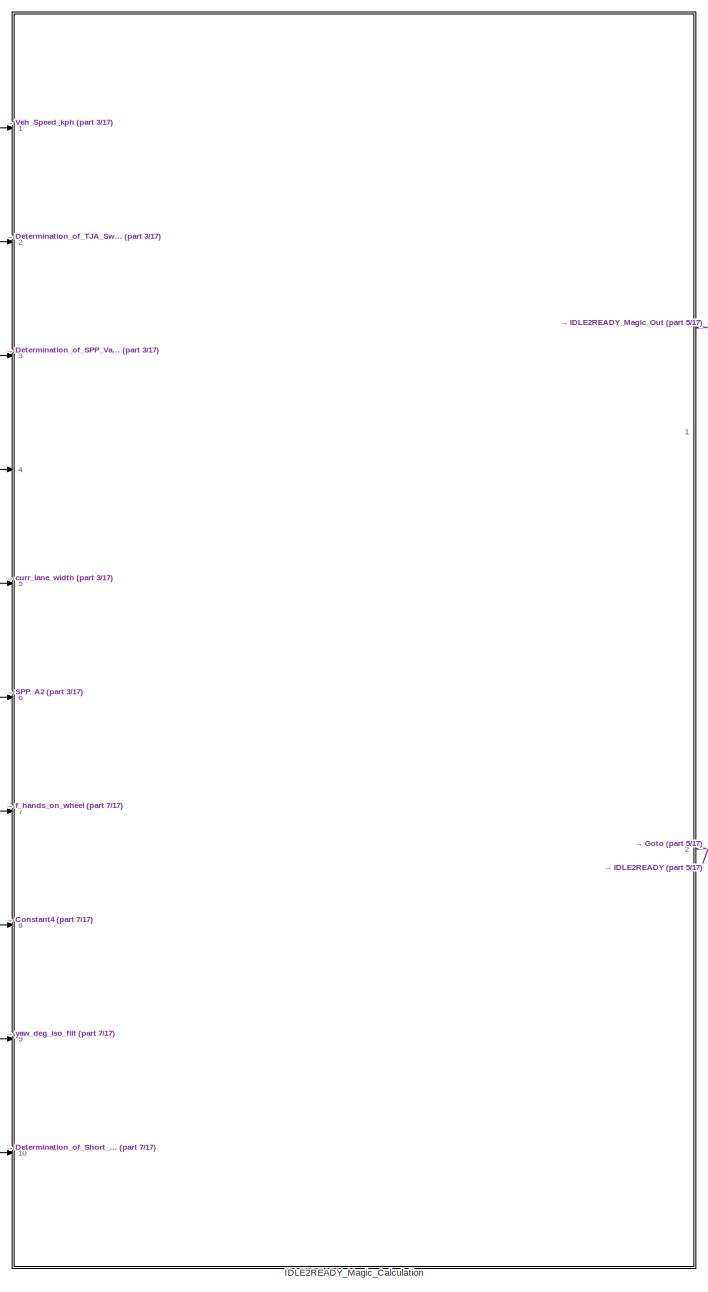
[diagram: Lateral_Control_Module/LCK_State_Ctrl/LCK_Mode_Transition - part 1/17, top center region]
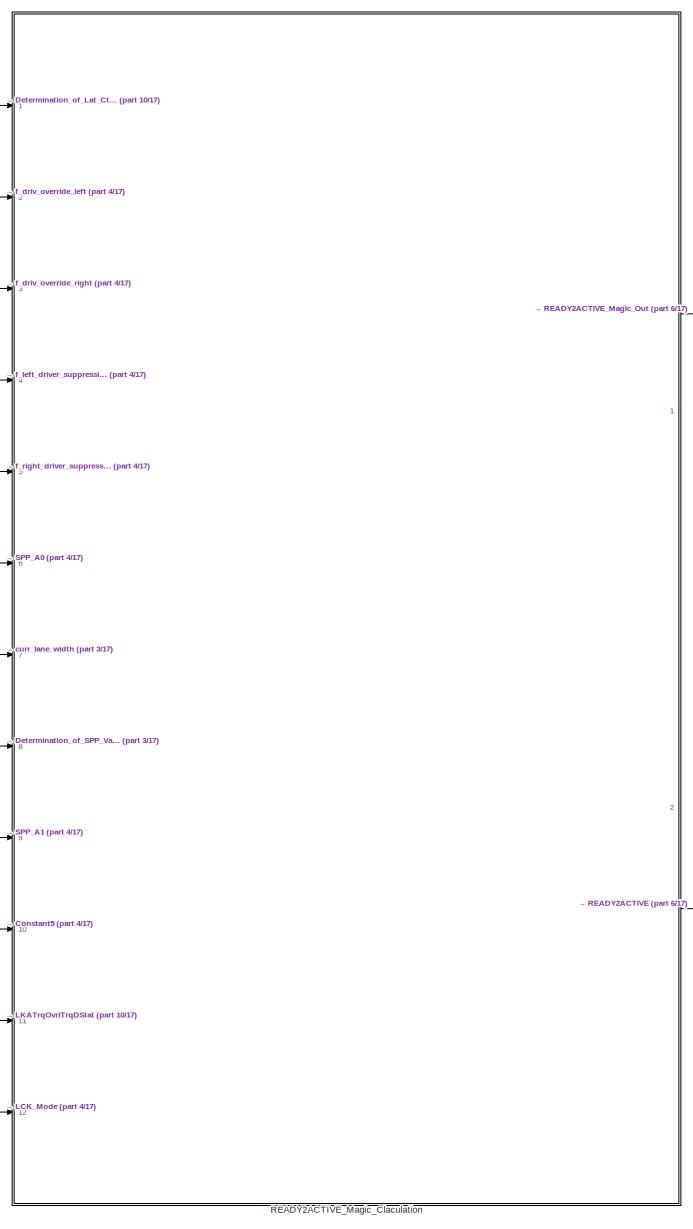
[diagram: Lateral_Control_Module/LCK_State_Ctrl/LCK_Mode_Transition - part 2/17, top right region]
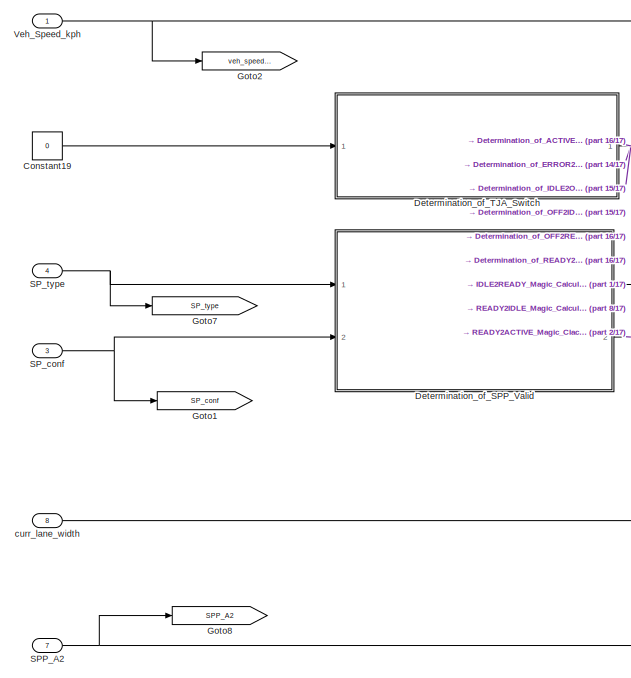
[diagram: Lateral_Control_Module/LCK_State_Ctrl/LCK_Mode_Transition - part 3/17, top left region]
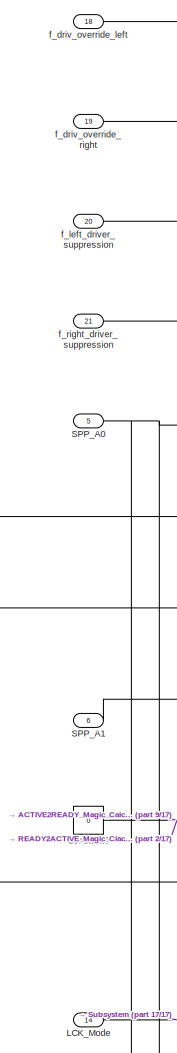
[diagram: Lateral_Control_Module/LCK_State_Ctrl/LCK_Mode_Transition - part 4/17, top center region]
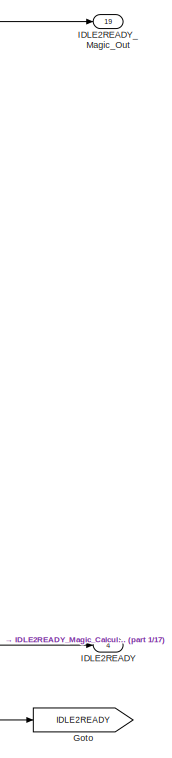
[diagram: Lateral_Control_Module/LCK_State_Ctrl/LCK_Mode_Transition - part 5/17, top center region]
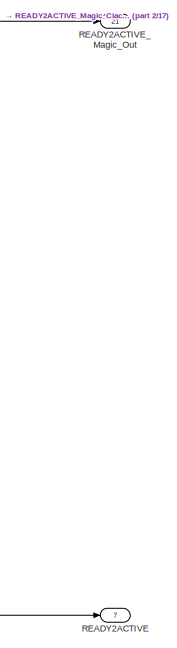
[diagram: Lateral_Control_Module/LCK_State_Ctrl/LCK_Mode_Transition - part 6/17, top right region]
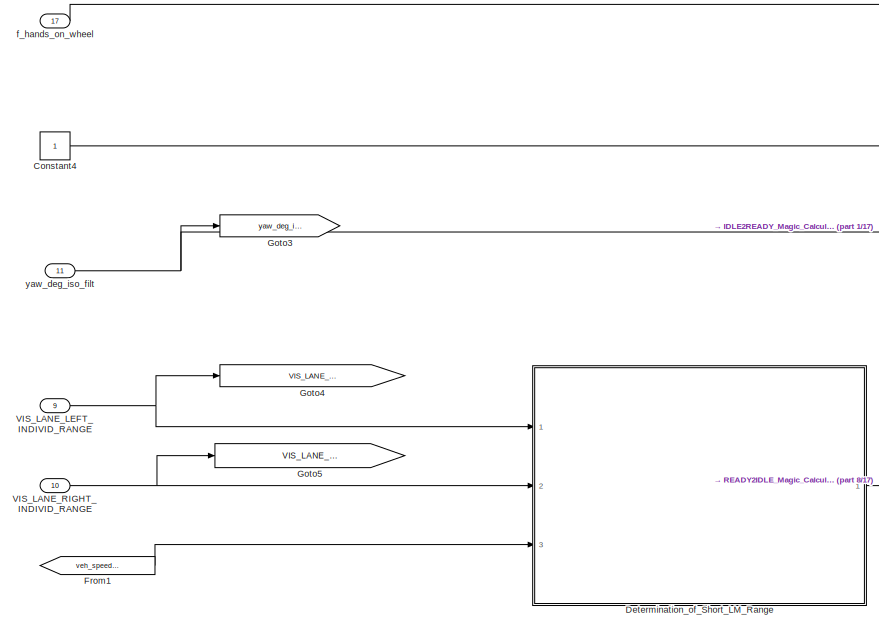
[diagram: Lateral_Control_Module/LCK_State_Ctrl/LCK_Mode_Transition - part 7/17, top left region]
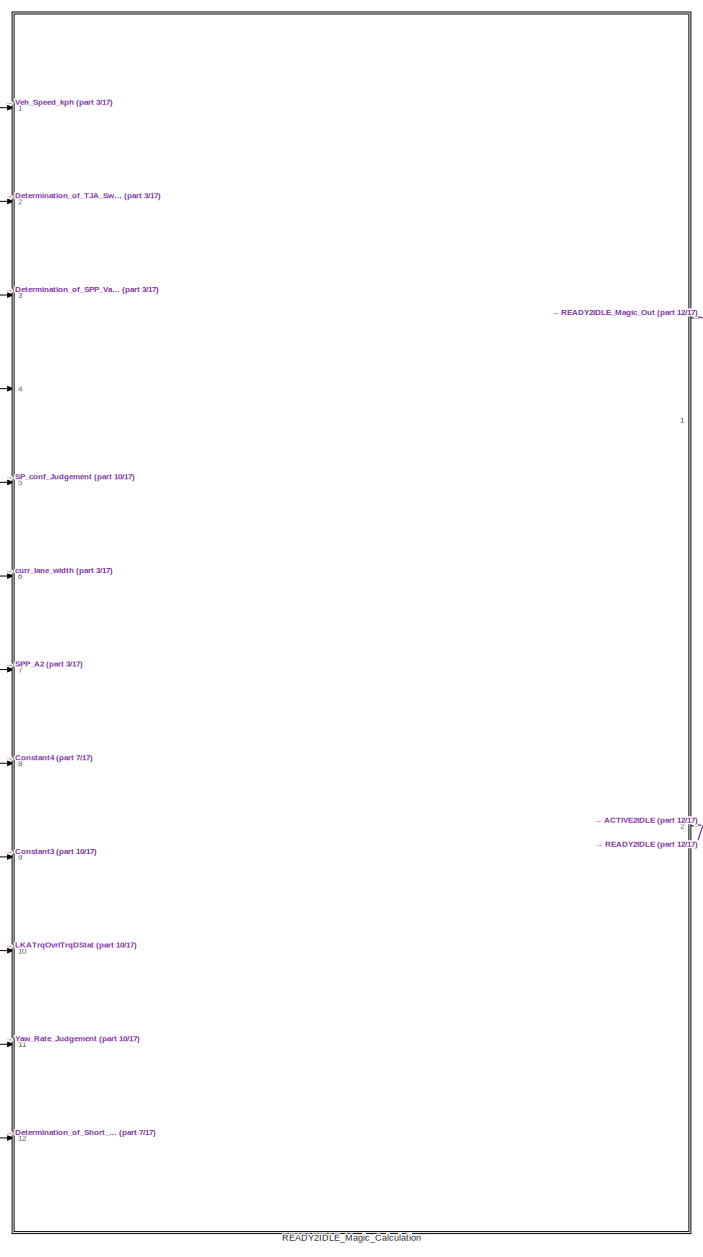
[diagram: Lateral_Control_Module/LCK_State_Ctrl/LCK_Mode_Transition - part 8/17, central region]
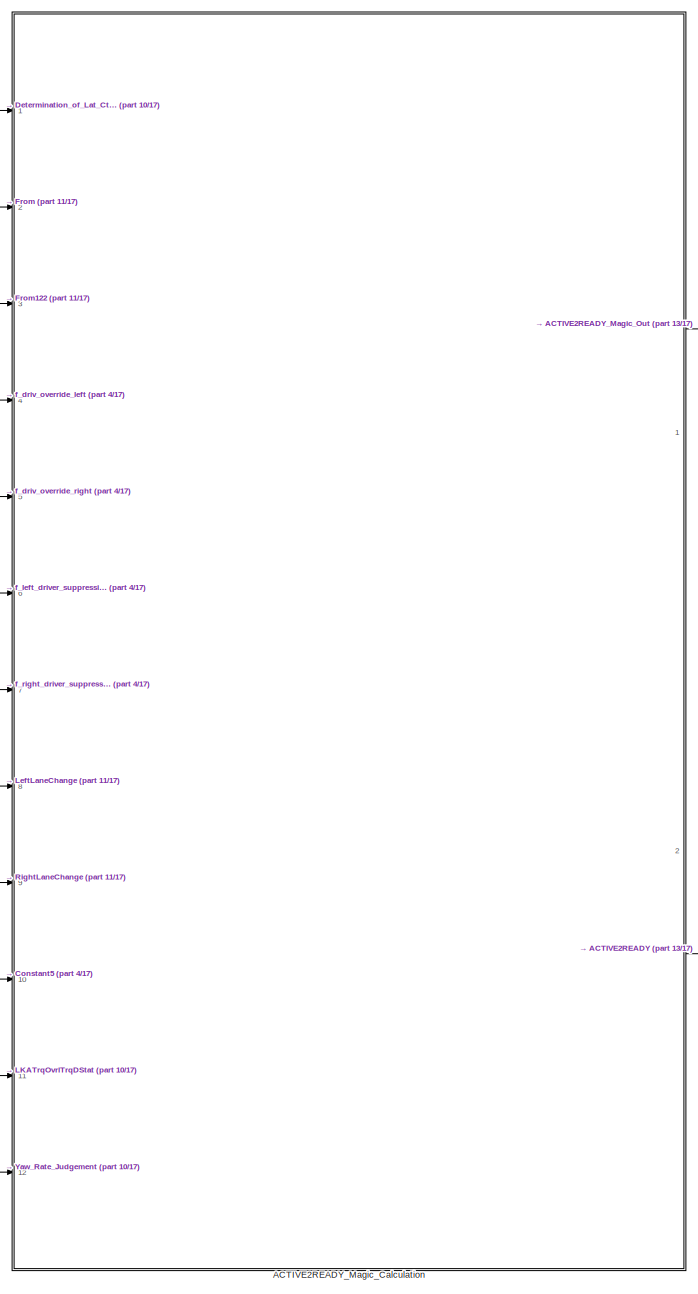
[diagram: Lateral_Control_Module/LCK_State_Ctrl/LCK_Mode_Transition - part 9/17, middle right region]
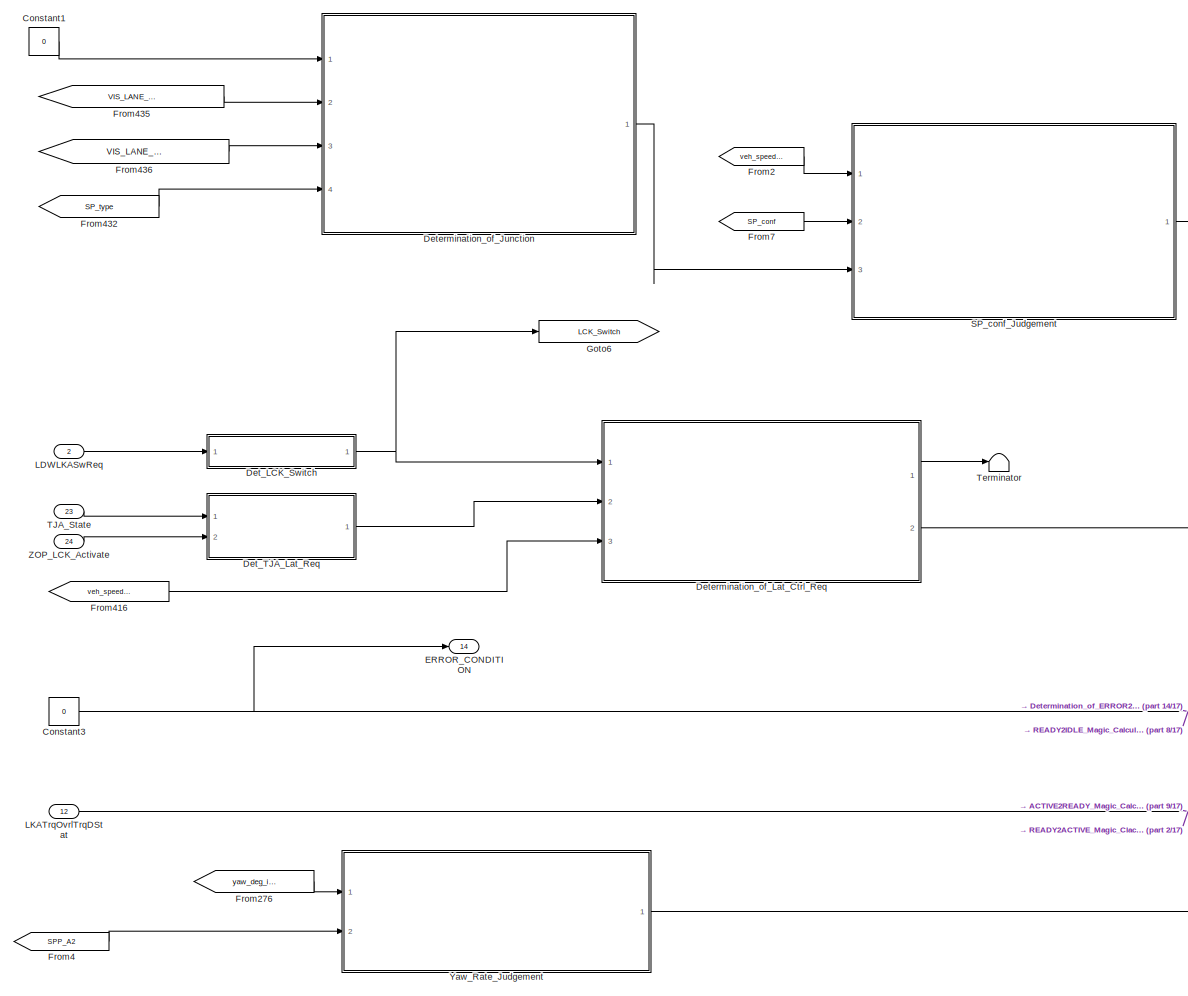
[diagram: Lateral_Control_Module/LCK_State_Ctrl/LCK_Mode_Transition - part 10/17, middle left region]
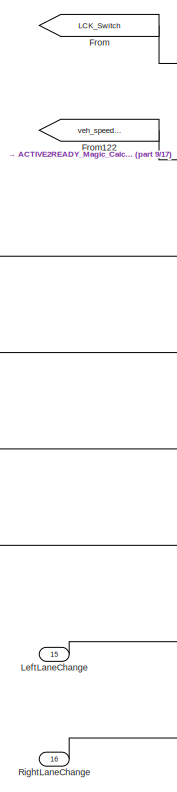
[diagram: Lateral_Control_Module/LCK_State_Ctrl/LCK_Mode_Transition - part 11/17, middle right region]
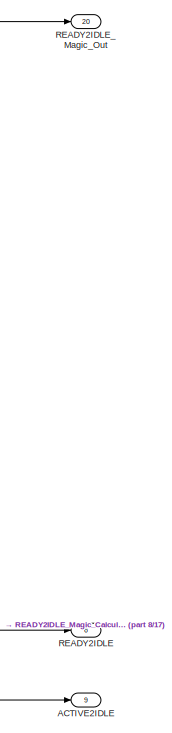
[diagram: Lateral_Control_Module/LCK_State_Ctrl/LCK_Mode_Transition - part 12/17, central region]
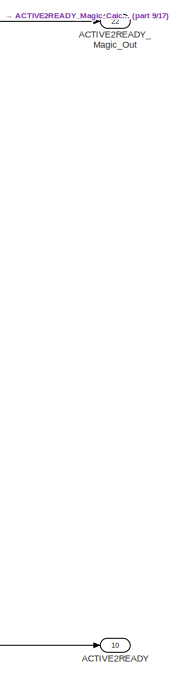
[diagram: Lateral_Control_Module/LCK_State_Ctrl/LCK_Mode_Transition - part 13/17, middle right region]
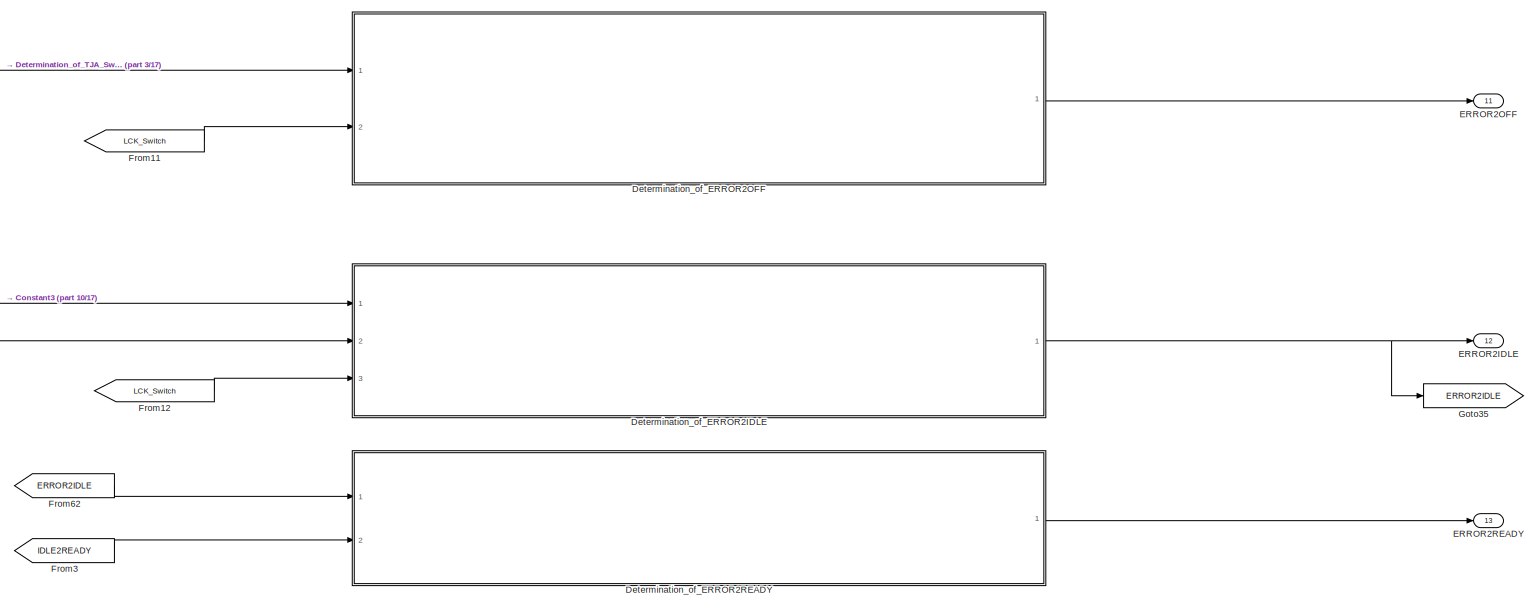
[diagram: Lateral_Control_Module/LCK_State_Ctrl/LCK_Mode_Transition - part 14/17, bottom right region]
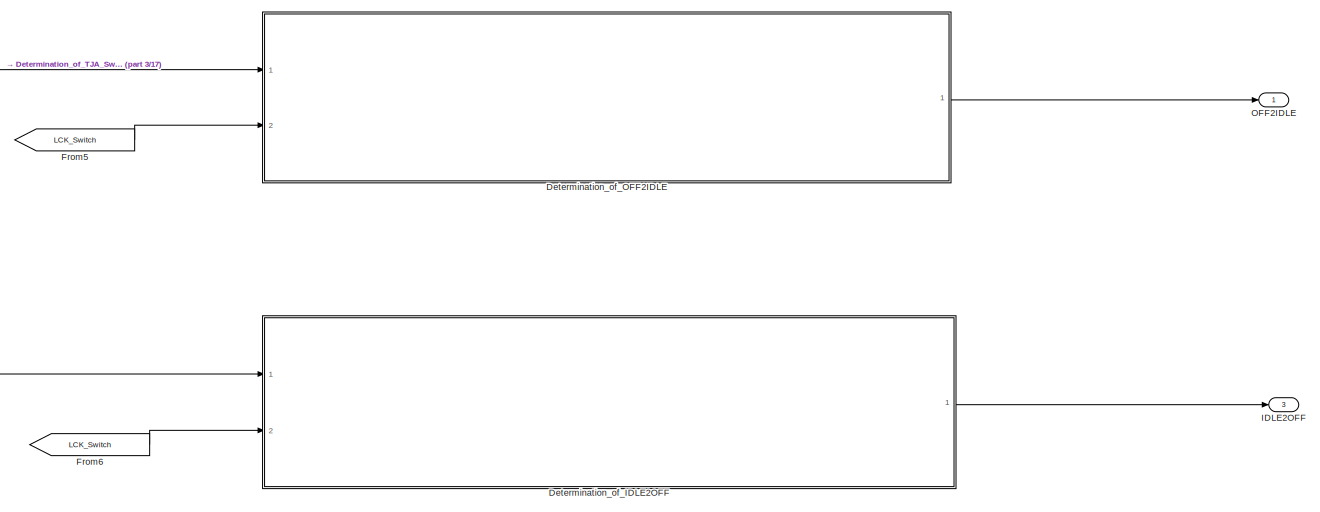
[diagram: Lateral_Control_Module/LCK_State_Ctrl/LCK_Mode_Transition - part 15/17, bottom center region]
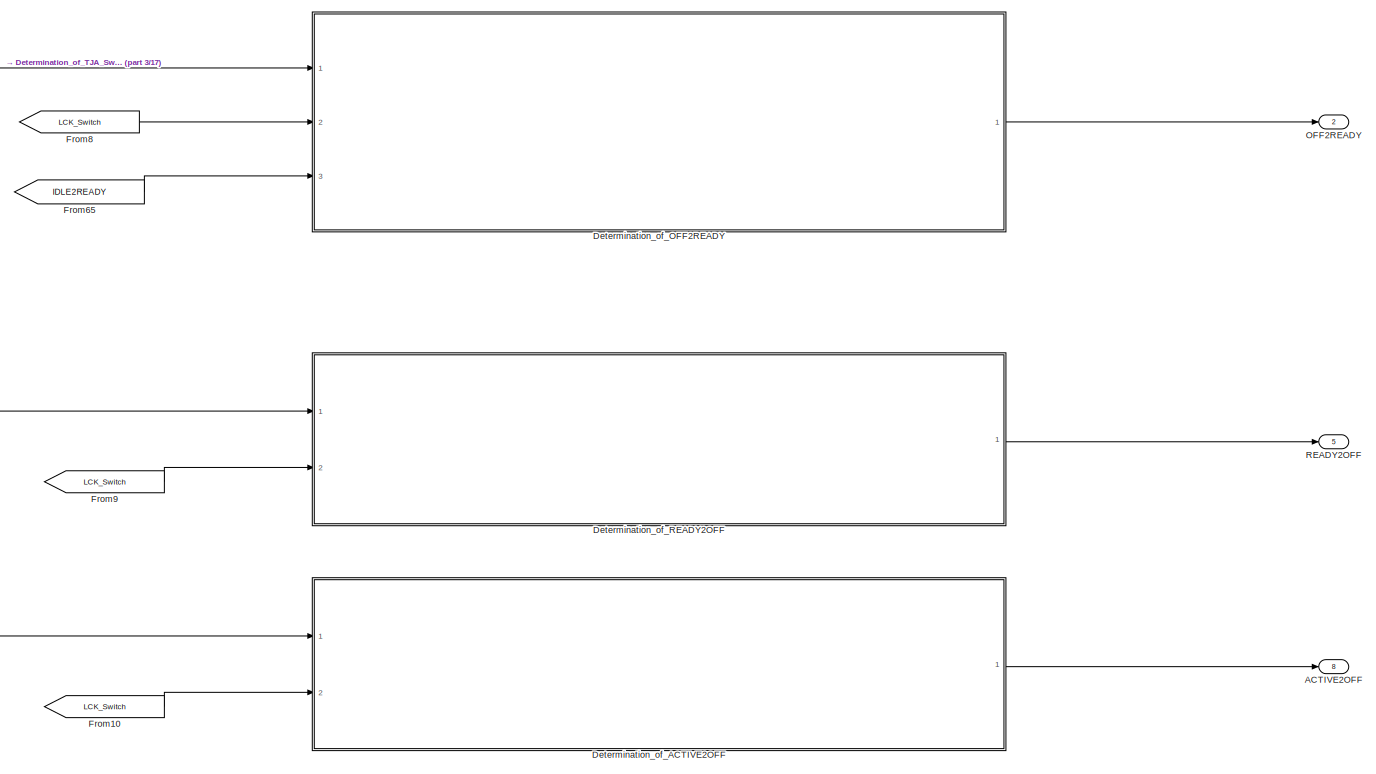
[diagram: Lateral_Control_Module/LCK_State_Ctrl/LCK_Mode_Transition - part 16/17, bottom center region]
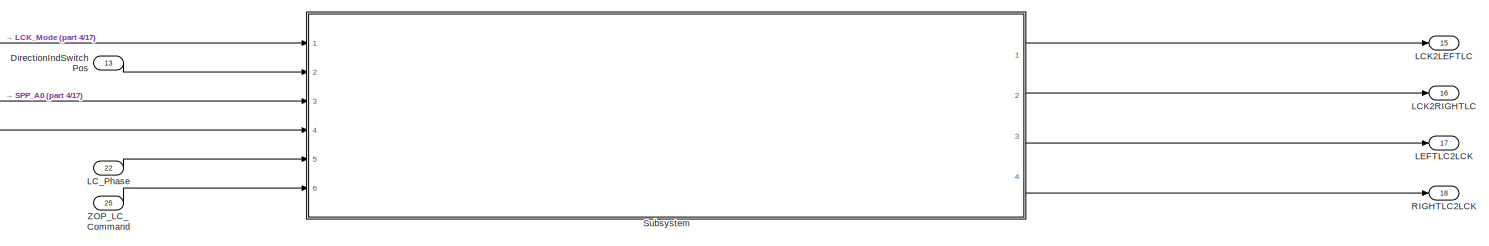
[diagram: Lateral_Control_Module/LCK_State_Ctrl/LCK_Mode_Transition - part 17/17, bottom right region]
BLOCK [SubSystem] Lateral_Control_Module/LCK_State_Ctrl/LCK_Mode_Transition
  Ports = [25, 22]
  RequestExecContextInheritance = off
BLOCK [Outport] Lateral_Control_Module/LCK_State_Ctrl/LCK_Mode_Transition/ACTIVE2IDLE
  Description = _GWMAB30P4.LCK.000_193_
  IconDisplay = Port number
  Port = 9
BLOCK [Outport] Lateral_Control_Module/LCK_State_Ctrl/LCK_Mode_Transition/ACTIVE2OFF
  Description = _GWMAB30P4.LCK.000_192_
  IconDisplay = Port number
  Port = 8
BLOCK [Outport] Lateral_Control_Module/LCK_State_Ctrl/LCK_Mode_Transition/ACTIVE2READY
  Description = _GWMAB30P4.LCK.000_197_
  IconDisplay = Port number
  Port = 10
BLOCK [SubSystem] Lateral_Control_Module/LCK_State_Ctrl/LCK_Mode_Transition/ACTIVE2READY_Magic_Calculation
  Ports = [12, 2]
  RequestExecContextInheritance = off
BLOCK [Outport] Lateral_Control_Module/LCK_State_Ctrl/LCK_Mode_Transition/ACTIVE2READY_Magic_Calculation/ACTIVE2READY
  IconDisplay = Port number
  Port = 2
BLOCK [Reference] Lateral_Control_Module/LCK_State_Ctrl/LCK_Mode_Transition/ACTIVE2READY_Magic_Calculation/ACTIVE2READY_Magic  REF=LateralControl_fcns_lib/Bit_To_Integer_16
  Ports = [16, 1]
  SourceBlock = LateralControl_fcns_lib/Bit_To_Integer_16
  SourceType = SubSystem
BLOCK [Outport] Lateral_Control_Module/LCK_State_Ctrl/LCK_Mode_Transition/ACTIVE2READY_Magic_Calculation/ACTIVE2READY_Magic_Out
  IconDisplay = Port number
BLOCK [Reference] Lateral_Control_Module/LCK_State_Ctrl/LCK_Mode_Transition/ACTIVE2READY_Magic_Calculation/Active2ReadyBitwise Operator  REF=simulink/Logic and Bit
Operations/Bitwise
Operator
  Description = _GACA26P3.LCK.000_5_
  Ports = [2, 1]
  SourceBlock = simulink/Logic and Bit\nOperations/Bitwise\nOperator
  SourceProductBaseCode = SL
  SourceProductName = Simulink
  SourceType = Bitwise Operator
BLOCK [Constant] Lateral_Control_Module/LCK_State_Ctrl/LCK_Mode_Transition/ACTIVE2READY_Magic_Calculation/Constant1
  Description = _GWMAB30P3.LCK.000_35_
  Tag = {'output',{'type','Int32'},'date',737237.63746197917}
  Value = 0
BLOCK [Constant] Lateral_Control_Module/LCK_State_Ctrl/LCK_Mode_Transition/ACTIVE2READY_Magic_Calculation/Constant39
  Description = _GWMAB30P3.LCK.000_35_
  Tag = {'output',{'type','Int32'},'date',737237.63746197917}
  Value = 0
BLOCK [Constant] Lateral_Control_Module/LCK_State_Ctrl/LCK_Mode_Transition/ACTIVE2READY_Magic_Calculation/Constant42
  Description = _GWMAB30P3.LCK.000_38_
  Tag = {'output',{'type','Int32'},'date',737237.63746243052}
  Value = 0
BLOCK [Constant] Lateral_Control_Module/LCK_State_Ctrl/LCK_Mode_Transition/ACTIVE2READY_Magic_Calculation/Constant43
  Description = _GWMAB30P3.LCK.000_39_
  Tag = {'output',{'type','Int32'},'date',737237.6374625694}
  Value = 0
BLOCK [Constant] Lateral_Control_Module/LCK_State_Ctrl/LCK_Mode_Transition/ACTIVE2READY_Magic_Calculation/Constant44
  Description = _GWMAB30P3.LCK.000_40_
  Tag = {'output',{'type','Int32'},'date',737237.63746271993}
  Value = 0
BLOCK [Constant] Lateral_Control_Module/LCK_State_Ctrl/LCK_Mode_Transition/ACTIVE2READY_Magic_Calculation/Constant45
  Description = _GWMAB30P3.LCK.000_41_
  Tag = {'output',{'type','Int32'},'date',737237.63746285881}
  Value = 0
BLOCK [Constant] Lateral_Control_Module/LCK_State_Ctrl/LCK_Mode_Transition/ACTIVE2READY_Magic_Calculation/Constant46
  Description = _GWMAB30P3.LCK.000_42_
  Tag = {'output',{'type','Int32'},'date',737237.63746298617}
  Value = 0
BLOCK [Constant] Lateral_Control_Module/LCK_State_Ctrl/LCK_Mode_Transition/ACTIVE2READY_Magic_Calculation/Constant47
  Description = _GWMAB30P3.LCK.000_43_
  Tag = {'output',{'type','Int32'},'date',737237.63746313658}
  Value = 0
BLOCK [Constant] Lateral_Control_Module/LCK_State_Ctrl/LCK_Mode_Transition/ACTIVE2READY_Magic_Calculation/Constant55
  Description = _GWMAB30P4.LCK.000_120_
  Tag = {'output',{'type','Int32'},'date',737292.69766020833}
  Value = 2
BLOCK [Constant] Lateral_Control_Module/LCK_State_Ctrl/LCK_Mode_Transition/ACTIVE2READY_Magic_Calculation/Constant70
  Description = _GWMH9P4.LCK.000_54_
  Tag = {'output',{'type','Int32'},'date',737462.50906664354}
  Value = 0
BLOCK [DataTypeConversion] Lateral_Control_Module/LCK_State_Ctrl/LCK_Mode_Transition/ACTIVE2READY_Magic_Calculation/Data Type Conversion34
  Description = _GWMAB30P4.LCK.000_145_
  RndMeth = Floor
  SaturateOnIntegerOverflow = off
BLOCK [DataTypeConversion] Lateral_Control_Module/LCK_State_Ctrl/LCK_Mode_Transition/ACTIVE2READY_Magic_Calculation/Data Type Conversion87
  Description = _GACA26P3.LCK.000_7_
  OutDataTypeStr = uint16
  RndMeth = Floor
  SaturateOnIntegerOverflow = off
BLOCK [DataTypeConversion] Lateral_Control_Module/LCK_State_Ctrl/LCK_Mode_Transition/ACTIVE2READY_Magic_Calculation/Data Type Conversion91
  OutDataTypeStr = uint16
  RndMeth = Floor
  SaturateOnIntegerOverflow = off
BLOCK [Reference] Lateral_Control_Module/LCK_State_Ctrl/LCK_Mode_Transition/ACTIVE2READY_Magic_Calculation/Delay_Trig  REF=LateralControl_fcns_lib/Delay_Trig
  Ports = [2, 1]
  SourceBlock = LateralControl_fcns_lib/Delay_Trig
  SourceType = SubSystem
BLOCK [Constant] Lateral_Control_Module/LCK_State_Ctrl/LCK_Mode_Transition/ACTIVE2READY_Magic_Calculation/ELK_MODE_STAGE1_LEFT1
  Description = _GWMAB30P4.LCK.000_175_
  Tag = {'output',{'name','$P','class','EXTERN_MACRO','type','ESR_Typedefs/ELK_Mode_T'},'date',737293.52375892363}
  Value = 10
BLOCK [Inport] Lateral_Control_Module/LCK_State_Ctrl/LCK_Mode_Transition/ACTIVE2READY_Magic_Calculation/ELK_Mode
  IconDisplay = Port number
  Port = 10
BLOCK [From] Lateral_Control_Module/LCK_State_Ctrl/LCK_Mode_Transition/ACTIVE2READY_Magic_Calculation/From58
  GotoTag = TJA_LatCtrl_Rq
BLOCK [Goto] Lateral_Control_Module/LCK_State_Ctrl/LCK_Mode_Transition/ACTIVE2READY_Magic_Calculation/Goto
  GotoTag = TJA_LatCtrl_Rq
BLOCK [Inport] Lateral_Control_Module/LCK_State_Ctrl/LCK_Mode_Transition/ACTIVE2READY_Magic_Calculation/LCK_Switch
  IconDisplay = Port number
  Port = 2
BLOCK [Inport] Lateral_Control_Module/LCK_State_Ctrl/LCK_Mode_Transition/ACTIVE2READY_Magic_Calculation/LKATrqOvrlTrqDStat
  IconDisplay = Port number
  Port = 11
BLOCK [Inport] Lateral_Control_Module/LCK_State_Ctrl/LCK_Mode_Transition/ACTIVE2READY_Magic_Calculation/LeftLaneChange
  IconDisplay = Port number
  Port = 8
BLOCK [Logic] Lateral_Control_Module/LCK_State_Ctrl/LCK_Mode_Transition/ACTIVE2READY_Magic_Calculation/Logical Operator57
  AllPortsSameDT = off
  Description = _GWMAB30P3.LCK.000_75_
  OutDataTypeStr = boolean
  Ports = [2, 1]
  Tag = {'date',737237.63746896992}
BLOCK [Logic] Lateral_Control_Module/LCK_State_Ctrl/LCK_Mode_Transition/ACTIVE2READY_Magic_Calculation/Logical Operator59
  AllPortsSameDT = off
  Description = _GWMAB30P3.LCK.000_77_
  Operator = OR
  OutDataTypeStr = boolean
  Ports = [2, 1]
  Tag = {'date',737237.63746924768}
BLOCK [Logic] Lateral_Control_Module/LCK_State_Ctrl/LCK_Mode_Transition/ACTIVE2READY_Magic_Calculation/Logical Operator60
  AllPortsSameDT = off
  Description = _GWMAB30P3.LCK.000_78_
  Operator = OR
  OutDataTypeStr = boolean
  Ports = [2, 1]
  Tag = {'date',737237.63746940973}
BLOCK [RelationalOperator] Lateral_Control_Module/LCK_State_Ctrl/LCK_Mode_Transition/ACTIVE2READY_Magic_Calculation/Relational Operator13
  Description = _GWMAB30P4.LCK.000_181_
  InputSameDT = off
  OutDataTypeStr = boolean
  Ports = [2, 1]
  Tag = {'date',737292.697664537}
BLOCK [RelationalOperator] Lateral_Control_Module/LCK_State_Ctrl/LCK_Mode_Transition/ACTIVE2READY_Magic_Calculation/Relational Operator26
  Description = _GWMAB30P3.LCK.000_89_
  InputSameDT = off
  Operator = ==
  OutDataTypeStr = boolean
  Ports = [2, 1]
  Tag = {'date',737237.63747145829}
BLOCK [RelationalOperator] Lateral_Control_Module/LCK_State_Ctrl/LCK_Mode_Transition/ACTIVE2READY_Magic_Calculation/Relational Operator27
  Description = _GWMAB30P4.LCK.000_183_
  InputSameDT = off
  Operator = ==
  OutDataTypeStr = boolean
  Ports = [2, 1]
  Tag = {'date',737292.6976654398}
BLOCK [RelationalOperator] Lateral_Control_Module/LCK_State_Ctrl/LCK_Mode_Transition/ACTIVE2READY_Magic_Calculation/Relational Operator51
  Description = _GWMAB30P3.LCK.000_99_
  InputSameDT = off
  Operator = ==
  OutDataTypeStr = boolean
  Ports = [2, 1]
  Tag = {'date',737237.63747305551}
BLOCK [RelationalOperator] Lateral_Control_Module/LCK_State_Ctrl/LCK_Mode_Transition/ACTIVE2READY_Magic_Calculation/Relational Operator63
  Description = _GWMAB30P3.LCK.000_102_
  InputSameDT = off
  Operator = ==
  OutDataTypeStr = boolean
  Ports = [2, 1]
  Tag = {'date',737237.63747372688}
BLOCK [RelationalOperator] Lateral_Control_Module/LCK_State_Ctrl/LCK_Mode_Transition/ACTIVE2READY_Magic_Calculation/Relational Operator64
  Description = _GWMAB30P3.LCK.000_103_
  InputSameDT = off
  Operator = >
  OutDataTypeStr = boolean
  Ports = [2, 1]
  Tag = {'date',737237.63747385412}
BLOCK [RelationalOperator] Lateral_Control_Module/LCK_State_Ctrl/LCK_Mode_Transition/ACTIVE2READY_Magic_Calculation/Relational_Operator3
  Description = _GWMAB30P3.LCK.000_106_
  InputSameDT = off
  Operator = ~=
  OutDataTypeStr = boolean
  Ports = [2, 1]
  Tag = {'date',737237.6374744213}
BLOCK [Inport] Lateral_Control_Module/LCK_State_Ctrl/LCK_Mode_Transition/ACTIVE2READY_Magic_Calculation/RightLaneChange
  IconDisplay = Port number
  Port = 9
BLOCK [Switch] Lateral_Control_Module/LCK_State_Ctrl/LCK_Mode_Transition/ACTIVE2READY_Magic_Calculation/Switch16
  Description = _GWMAB30P3.LCK.000_117_
  InputSameDT = off
  SaturateOnIntegerOverflow = off
  Tag = {'output',{'inheritscaling',1},'threshold',{'type','Int32','scalar',1},'date',737243.53952824068}
  Threshold = 0.5
BLOCK [Switch] Lateral_Control_Module/LCK_State_Ctrl/LCK_Mode_Transition/ACTIVE2READY_Magic_Calculation/Switch58
  Criteria = u2 > Threshold
  Description = _GWMH9P4.LCK.000_146_
  InputSameDT = off
  SaturateOnIntegerOverflow = off
  Tag = {'output',{'type','Bool'},'threshold',{'type','Int32'},'date',737463.7890871875}
  Threshold = 0.5
BLOCK [Inport] Lateral_Control_Module/LCK_State_Ctrl/LCK_Mode_Transition/ACTIVE2READY_Magic_Calculation/TJA_LatCtrl_Rq
  IconDisplay = Port number
BLOCK [Inport] Lateral_Control_Module/LCK_State_Ctrl/LCK_Mode_Transition/ACTIVE2READY_Magic_Calculation/YawRate_Over_Threshold
  IconDisplay = Port number
  Port = 12
BLOCK [Constant] Lateral_Control_Module/LCK_State_Ctrl/LCK_Mode_Transition/ACTIVE2READY_Magic_Calculation/ZERO4
  Description = _GWMAB30P3.LCK.000_121_
  SampleTime = -1
  Tag = {'output',{'name','$P','class','EXTERN_CONST','type','Bool'},'date',737395.73579394678}
  Value = C_ZERO
BLOCK [Constant] Lateral_Control_Module/LCK_State_Ctrl/LCK_Mode_Transition/ACTIVE2READY_Magic_Calculation/const1
  Description = _GWMAB30P3.LCK.000_126_
  Tag = {'output',{'type','Int32'},'date',737237.63747829862}
  Value = 0
BLOCK [Constant] Lateral_Control_Module/LCK_State_Ctrl/LCK_Mode_Transition/ACTIVE2READY_Magic_Calculation/const2
  Description = _GWMAB30P3.LCK.000_127_
  Tag = {'output',{'type','Int32'},'date',737237.63747849537}
  Value = 0
BLOCK [Constant] Lateral_Control_Module/LCK_State_Ctrl/LCK_Mode_Transition/ACTIVE2READY_Magic_Calculation/const3
  Description = _GWMAB30P3.LCK.000_130_
  Tag = {'output',{'type','Int32'},'date',737237.63747906254}
  Value = 0
BLOCK [Inport] Lateral_Control_Module/LCK_State_Ctrl/LCK_Mode_Transition/ACTIVE2READY_Magic_Calculation/f_driv_override_left
  IconDisplay = Port number
  Port = 4
BLOCK [Inport] Lateral_Control_Module/LCK_State_Ctrl/LCK_Mode_Transition/ACTIVE2READY_Magic_Calculation/f_driv_override_right
  IconDisplay = Port number
  Port = 5
BLOCK [Inport] Lateral_Control_Module/LCK_State_Ctrl/LCK_Mode_Transition/ACTIVE2READY_Magic_Calculation/f_left_driver_suppression
  IconDisplay = Port number
  Port = 6
BLOCK [Inport] Lateral_Control_Module/LCK_State_Ctrl/LCK_Mode_Transition/ACTIVE2READY_Magic_Calculation/f_right_driver_suppression
  IconDisplay = Port number
  Port = 7
BLOCK [Constant] Lateral_Control_Module/LCK_State_Ctrl/LCK_Mode_Transition/ACTIVE2READY_Magic_Calculation/k_LCG_Configured1
  Description = _GWMH9P4.LCK.000_171_
  Tag = {'output',{'name','$P','class','EXTERN_CAL','type','Bool'},'date',737462.72274868051}
  Value = k_LCG_Configured
BLOCK [Constant] Lateral_Control_Module/LCK_State_Ctrl/LCK_Mode_Transition/ACTIVE2READY_Magic_Calculation/k_LCK_Active2Ready_Mask
  Value = k_LCK_Active2Ready_Mask
BLOCK [Constant] Lateral_Control_Module/LCK_State_Ctrl/LCK_Mode_Transition/ACTIVE2READY_Magic_Calculation/k_LCK_Ovrd_DlyTm_Rdy2Idl1
  Description = _GWMAB30P3.LCK.000_136_
  Tag = {'output',{'name','$P','class','EXTERN_CAL','type','Float32'},'date',737246.86453446758}
  Value = k_LCK_Ovrd_DlyTm_Rdy2Idl
BLOCK [Constant] Lateral_Control_Module/LCK_State_Ctrl/LCK_Mode_Transition/ACTIVE2READY_Magic_Calculation/k_LCK_VehSpd_TJA_ICA_Bound2
  Description = _GWMAB30P3.LCK.000_152_
  Tag = {'output',{'name','$P','class','EXTERN_CAL','type','UInt16'},'date',737246.86429184023}
  Value = k_LCK_VehSpd_TJA_ICA_Bound
BLOCK [Inport] Lateral_Control_Module/LCK_State_Ctrl/LCK_Mode_Transition/ACTIVE2READY_Magic_Calculation/veh_speed_kph
  IconDisplay = Port number
  Port = 3
BLOCK [Outport] Lateral_Control_Module/LCK_State_Ctrl/LCK_Mode_Transition/ACTIVE2READY_Magic_Out
  Description = _GWMAB30P4.LCK.000_207_
  IconDisplay = Port number
  Port = 22
BLOCK [Constant] Lateral_Control_Module/LCK_State_Ctrl/LCK_Mode_Transition/Constant1
  Description = _GWMAB30P2.LCK.000_1069_
  Tag = {'output',{'type','Int32'},'date',737184.60397266201}
  Value = 0
BLOCK [Constant] Lateral_Control_Module/LCK_State_Ctrl/LCK_Mode_Transition/Constant19
  Description = _GWMAB30P2.LCK.000_1069_
  Tag = {'output',{'type','Int32'},'date',737184.60397266201}
  Value = 0
BLOCK [Constant] Lateral_Control_Module/LCK_State_Ctrl/LCK_Mode_Transition/Constant3
  Description = _GWMAB30P2.LCK.000_1069_
  OutDataTypeStr = boolean
  Tag = {'output',{'type','Int32'},'date',737184.60397266201}
  Value = 0
BLOCK [Constant] Lateral_Control_Module/LCK_State_Ctrl/LCK_Mode_Transition/Constant4
  Description = _GWMAB30P2.LCK.000_1069_
  Tag = {'output',{'type','Int32'},'date',737184.60397266201}
BLOCK [Constant] Lateral_Control_Module/LCK_State_Ctrl/LCK_Mode_Transition/Constant5
  Description = _GWMAB30P2.LCK.000_1069_
  Tag = {'output',{'type','Int32'},'date',737184.60397266201}
  Value = 0
BLOCK [SubSystem] Lateral_Control_Module/LCK_State_Ctrl/LCK_Mode_Transition/Det_LCK_Switch
  Ports = [1, 1]
  RequestExecContextInheritance = off
BLOCK [Constant] Lateral_Control_Module/LCK_State_Ctrl/LCK_Mode_Transition/Det_LCK_Switch/Constant6
  Description = _GWMAB30P2.LCK.000_1069_
  Tag = {'output',{'type','Int32'},'date',737184.60397266201}
  Value = 4
BLOCK [Outport] Lateral_Control_Module/LCK_State_Ctrl/LCK_Mode_Transition/Det_LCK_Switch/LCK_Switch
  IconDisplay = Port number
BLOCK [Inport] Lateral_Control_Module/LCK_State_Ctrl/LCK_Mode_Transition/Det_LCK_Switch/LDWLKASwReq
  IconDisplay = Port number
BLOCK [RelationalOperator] Lateral_Control_Module/LCK_State_Ctrl/LCK_Mode_Transition/Det_LCK_Switch/Relational Operator
  InputSameDT = off
  Operator = <=
  OutDataTypeStr = boolean
  Ports = [2, 1]
  RndMeth = Simplest
BLOCK [SubSystem] Lateral_Control_Module/LCK_State_Ctrl/LCK_Mode_Transition/Det_TJA_Lat_Req
  Ports = [2, 1]
  RequestExecContextInheritance = off
BLOCK [SubSystem] Lateral_Control_Module/LCK_State_Ctrl/LCK_Mode_Transition/Det_TJA_Lat_Req/Chart
  ErrorFcn = Stateflow.Translate.translate
  PermitHierarchicalResolution = ExplicitOnly
  Ports = [1, 1]
  RequestExecContextInheritance = off
  SFBlockType = Chart
  TreatAsAtomicUnit = on
BLOCK [Demux] Lateral_Control_Module/LCK_State_Ctrl/LCK_Mode_Transition/Det_TJA_Lat_Req/Chart/ Demux 
  Outputs = 1
  Ports = [1, 1]
BLOCK [S-Function] Lateral_Control_Module/LCK_State_Ctrl/LCK_Mode_Transition/Det_TJA_Lat_Req/Chart/ SFunction 
  EnableBusSupport = on
  FunctionName = sf_sfun
  PortCounts = [1 2]
  Ports = [1, 2]
  SFcnIsStateOwnerBlock = off
  SFunctionDeploymentMode = off
  Tag = Stateflow S-Function LCK 6
BLOCK [Terminator] Lateral_Control_Module/LCK_State_Ctrl/LCK_Mode_Transition/Det_TJA_Lat_Req/Chart/ Terminator 
BLOCK [Outport] Lateral_Control_Module/LCK_State_Ctrl/LCK_Mode_Transition/Det_TJA_Lat_Req/Chart/TJA_Lat_Req
  IconDisplay = Port number
BLOCK [Inport] Lateral_Control_Module/LCK_State_Ctrl/LCK_Mode_Transition/Det_TJA_Lat_Req/Chart/TJA_State
  IconDisplay = Port number
BLOCK [Constant] Lateral_Control_Module/LCK_State_Ctrl/LCK_Mode_Transition/Det_TJA_Lat_Req/Constant1
  Description = _GWMAB30P2.LCK.000_1069_
  Tag = {'output',{'type','Int32'},'date',737184.60397266201}
BLOCK [DataTypeConversion] Lateral_Control_Module/LCK_State_Ctrl/LCK_Mode_Transition/Det_TJA_Lat_Req/Data Type Conversion89
  Description = _GACA26P4.LCK.000_14_
  OutDataTypeStr = boolean
  RndMeth = Floor
  SaturateOnIntegerOverflow = off
BLOCK [Logic] Lateral_Control_Module/LCK_State_Ctrl/LCK_Mode_Transition/Det_TJA_Lat_Req/Logical Operator
  AllPortsSameDT = off
  Operator = OR
  OutDataTypeStr = boolean
  Ports = [2, 1]
BLOCK [RelationalOperator] Lateral_Control_Module/LCK_State_Ctrl/LCK_Mode_Transition/Det_TJA_Lat_Req/Relational Operator1
  InputSameDT = off
  Operator = ==
  OutDataTypeStr = boolean
  Ports = [2, 1]
  RndMeth = Simplest
BLOCK [Outport] Lateral_Control_Module/LCK_State_Ctrl/LCK_Mode_Transition/Det_TJA_Lat_Req/TJA_Lat_Req
  IconDisplay = Port number
BLOCK [Inport] Lateral_Control_Module/LCK_State_Ctrl/LCK_Mode_Transition/Det_TJA_Lat_Req/TJA_State
  IconDisplay = Port number
BLOCK [Inport] Lateral_Control_Module/LCK_State_Ctrl/LCK_Mode_Transition/Det_TJA_Lat_Req/ZOP_LCK_Activate
  IconDisplay = Port number
  Port = 2
BLOCK [SubSystem] Lateral_Control_Module/LCK_State_Ctrl/LCK_Mode_Transition/Determination_of_ACTIVE2OFF
  Ports = [2, 1]
  RequestExecContextInheritance = off
BLOCK [Outport] Lateral_Control_Module/LCK_State_Ctrl/LCK_Mode_Transition/Determination_of_ACTIVE2OFF/ACTIVE2OFF
  IconDisplay = Port number
BLOCK [Inport] Lateral_Control_Module/LCK_State_Ctrl/LCK_Mode_Transition/Determination_of_ACTIVE2OFF/LCK_Switch
  IconDisplay = Port number
  Port = 2
BLOCK [Logic] Lateral_Control_Module/LCK_State_Ctrl/LCK_Mode_Transition/Determination_of_ACTIVE2OFF/Logical Operator3
  AllPortsSameDT = off
  Description = _GWMAB30P2.LCK.000_1110_
  Operator = NOR
  OutDataTypeStr = boolean
  Ports = [2, 1]
  Tag = {'date',737184.60397805553}
BLOCK [Inport] Lateral_Control_Module/LCK_State_Ctrl/LCK_Mode_Transition/Determination_of_ACTIVE2OFF/TJA_Switch
  IconDisplay = Port number
BLOCK [SubSystem] Lateral_Control_Module/LCK_State_Ctrl/LCK_Mode_Transition/Determination_of_ERROR2IDLE
  Ports = [3, 1]
  RequestExecContextInheritance = off
BLOCK [Outport] Lateral_Control_Module/LCK_State_Ctrl/LCK_Mode_Transition/Determination_of_ERROR2IDLE/ERROR2IDLE
  IconDisplay = Port number
BLOCK [Inport] Lateral_Control_Module/LCK_State_Ctrl/LCK_Mode_Transition/Determination_of_ERROR2IDLE/ERROR_CONDITION
  IconDisplay = Port number
BLOCK [Inport] Lateral_Control_Module/LCK_State_Ctrl/LCK_Mode_Transition/Determination_of_ERROR2IDLE/LCK_Switch
  IconDisplay = Port number
  Port = 3
BLOCK [Logic] Lateral_Control_Module/LCK_State_Ctrl/LCK_Mode_Transition/Determination_of_ERROR2IDLE/Logical Operator35
  AllPortsSameDT = off
  Description = _GWMAB30P2.LCK.000_1116_
  OutDataTypeStr = boolean
  Ports = [2, 1]
  Tag = {'date',737184.60397880792}
BLOCK [Logic] Lateral_Control_Module/LCK_State_Ctrl/LCK_Mode_Transition/Determination_of_ERROR2IDLE/Logical Operator36
  AllPortsSameDT = off
  Description = _GWMAB30P2.LCK.000_1117_
  Operator = OR
  OutDataTypeStr = boolean
  Ports = [2, 1]
  Tag = {'date',737184.603978912}
BLOCK [RelationalOperator] Lateral_Control_Module/LCK_State_Ctrl/LCK_Mode_Transition/Determination_of_ERROR2IDLE/Relational Operator40
  Description = _GWMAB30P2.LCK.000_1167_
  InputSameDT = off
  Operator = ~=
  OutDataTypeStr = boolean
  Ports = [2, 1]
  Tag = {'date',737184.6039850926}
BLOCK [RelationalOperator] Lateral_Control_Module/LCK_State_Ctrl/LCK_Mode_Transition/Determination_of_ERROR2IDLE/Relational Operator41
  Description = _GWMAB30P2.LCK.000_1168_
  InputSameDT = off
  Operator = ==
  OutDataTypeStr = boolean
  Ports = [2, 1]
  Tag = {'date',737184.60398521996}
BLOCK [RelationalOperator] Lateral_Control_Module/LCK_State_Ctrl/LCK_Mode_Transition/Determination_of_ERROR2IDLE/Relational Operator42
  Description = _GWMAB30P2.LCK.000_1169_
  InputSameDT = off
  Operator = ==
  OutDataTypeStr = boolean
  Ports = [2, 1]
  Tag = {'date',737184.6039853472}
BLOCK [Inport] Lateral_Control_Module/LCK_State_Ctrl/LCK_Mode_Transition/Determination_of_ERROR2IDLE/TJA_Switch
  IconDisplay = Port number
  Port = 2
BLOCK [Constant] Lateral_Control_Module/LCK_State_Ctrl/LCK_Mode_Transition/Determination_of_ERROR2IDLE/const26
  Description = _GWMAB30P2.LCK.000_1218_
  Tag = {'output',{'type','Int32'},'date',737184.60399236111}
BLOCK [Constant] Lateral_Control_Module/LCK_State_Ctrl/LCK_Mode_Transition/Determination_of_ERROR2IDLE/const27
  Description = _GWMAB30P2.LCK.000_1219_
  Tag = {'output',{'type','Int32'},'date',737184.60399249999}
BLOCK [Constant] Lateral_Control_Module/LCK_State_Ctrl/LCK_Mode_Transition/Determination_of_ERROR2IDLE/const28
  Description = _GWMAB30P2.LCK.000_1220_
  Tag = {'output',{'type','Int32'},'date',737184.60399262735}
BLOCK [SubSystem] Lateral_Control_Module/LCK_State_Ctrl/LCK_Mode_Transition/Determination_of_ERROR2OFF
  Ports = [2, 1]
  RequestExecContextInheritance = off
BLOCK [Outport] Lateral_Control_Module/LCK_State_Ctrl/LCK_Mode_Transition/Determination_of_ERROR2OFF/ERROR2OFF
  IconDisplay = Port number
BLOCK [Inport] Lateral_Control_Module/LCK_State_Ctrl/LCK_Mode_Transition/Determination_of_ERROR2OFF/LCK_Switch
  IconDisplay = Port number
  Port = 2
BLOCK [Logic] Lateral_Control_Module/LCK_State_Ctrl/LCK_Mode_Transition/Determination_of_ERROR2OFF/Logical Operator3
  AllPortsSameDT = off
  Description = _GWMAB30P2.LCK.000_1110_
  Operator = NOR
  OutDataTypeStr = boolean
  Ports = [2, 1]
  Tag = {'date',737184.60397805553}
BLOCK [Inport] Lateral_Control_Module/LCK_State_Ctrl/LCK_Mode_Transition/Determination_of_ERROR2OFF/TJA_Switch
  IconDisplay = Port number
BLOCK [SubSystem] Lateral_Control_Module/LCK_State_Ctrl/LCK_Mode_Transition/Determination_of_ERROR2READY
  Ports = [2, 1]
  RequestExecContextInheritance = off
BLOCK [Inport] Lateral_Control_Module/LCK_State_Ctrl/LCK_Mode_Transition/Determination_of_ERROR2READY/ERROR2IDLE
  IconDisplay = Port number
BLOCK [Outport] Lateral_Control_Module/LCK_State_Ctrl/LCK_Mode_Transition/Determination_of_ERROR2READY/ERROR2READY
  IconDisplay = Port number
BLOCK [Inport] Lateral_Control_Module/LCK_State_Ctrl/LCK_Mode_Transition/Determination_of_ERROR2READY/IDLE2READY
  IconDisplay = Port number
  Port = 2
BLOCK [Logic] Lateral_Control_Module/LCK_State_Ctrl/LCK_Mode_Transition/Determination_of_ERROR2READY/Logical Operator16
  AllPortsSameDT = off
  Description = _GWMAB30P4.LCK.000_177_
  OutDataTypeStr = boolean
  Ports = [2, 1]
  Tag = {'date',737292.69766146992}
BLOCK [SubSystem] Lateral_Control_Module/LCK_State_Ctrl/LCK_Mode_Transition/Determination_of_IDLE2OFF
  Ports = [2, 1]
  RequestExecContextInheritance = off
BLOCK [Outport] Lateral_Control_Module/LCK_State_Ctrl/LCK_Mode_Transition/Determination_of_IDLE2OFF/IDLE2OFF
  IconDisplay = Port number
BLOCK [Inport] Lateral_Control_Module/LCK_State_Ctrl/LCK_Mode_Transition/Determination_of_IDLE2OFF/LCK_Switch
  IconDisplay = Port number
  Port = 2
BLOCK [Logic] Lateral_Control_Module/LCK_State_Ctrl/LCK_Mode_Transition/Determination_of_IDLE2OFF/Logical Operator3
  AllPortsSameDT = off
  Description = _GWMAB30P2.LCK.000_1110_
  Operator = NOR
  OutDataTypeStr = boolean
  Ports = [2, 1]
  Tag = {'date',737184.60397805553}
BLOCK [Inport] Lateral_Control_Module/LCK_State_Ctrl/LCK_Mode_Transition/Determination_of_IDLE2OFF/TJA_Switch
  IconDisplay = Port number
BLOCK [SubSystem] Lateral_Control_Module/LCK_State_Ctrl/LCK_Mode_Transition/Determination_of_Junction
  Ports = [4, 1]
  RequestExecContextInheritance = off
BLOCK [Constant] Lateral_Control_Module/LCK_State_Ctrl/LCK_Mode_Transition/Determination_of_Junction/Constant14
  Description = _GACA26P4.LCK.000_9_
  Tag = {'output',{'name','$P','class','EXTERN_MACRO','type','UInt8'},'date',737531.64011871524}
  Value = TJA_SP_TYPE_BLMONLY
BLOCK [Constant] Lateral_Control_Module/LCK_State_Ctrl/LCK_Mode_Transition/Determination_of_Junction/Constant17
  Description = _GACA26P4.LCK.000_10_
  Tag = {'output',{'name','$P','class','EXTERN_MACRO','type','UInt8'},'date',737531.6327261111}
  Value = TJA_SP_TYPE_BLMONLY
BLOCK [DataTypeConversion] Lateral_Control_Module/LCK_State_Ctrl/LCK_Mode_Transition/Determination_of_Junction/Data Type Conversion88
  Description = _GACA26P4.LCK.000_13_
  RndMeth = Floor
  SaturateOnIntegerOverflow = off
BLOCK [DataTypeConversion] Lateral_Control_Module/LCK_State_Ctrl/LCK_Mode_Transition/Determination_of_Junction/Data Type Conversion89
  Description = _GACA26P4.LCK.000_14_
  RndMeth = Floor
  SaturateOnIntegerOverflow = off
BLOCK [Reference] Lateral_Control_Module/LCK_State_Ctrl/LCK_Mode_Transition/Determination_of_Junction/Delay_Trig  REF=LateralControl_fcns_lib/Delay_Trig
  Ports = [2, 1]
  SourceBlock = LateralControl_fcns_lib/Delay_Trig
  SourceType = SubSystem
BLOCK [From] Lateral_Control_Module/LCK_State_Ctrl/LCK_Mode_Transition/Determination_of_Junction/From3
  GotoTag = LM_Range
BLOCK [From] Lateral_Control_Module/LCK_State_Ctrl/LCK_Mode_Transition/Determination_of_Junction/From430
  GotoTag = SP_type
BLOCK [From] Lateral_Control_Module/LCK_State_Ctrl/LCK_Mode_Transition/Determination_of_Junction/From433
  GotoTag = LM_Range
BLOCK [Goto] Lateral_Control_Module/LCK_State_Ctrl/LCK_Mode_Transition/Determination_of_Junction/Goto
  GotoTag = SP_type
BLOCK [Goto] Lateral_Control_Module/LCK_State_Ctrl/LCK_Mode_Transition/Determination_of_Junction/Goto4
  GotoTag = LM_Range
BLOCK [Outport] Lateral_Control_Module/LCK_State_Ctrl/LCK_Mode_Transition/Determination_of_Junction/Junction
  IconDisplay = Port number
BLOCK [Logic] Lateral_Control_Module/LCK_State_Ctrl/LCK_Mode_Transition/Determination_of_Junction/Logical Operator155
  AllPortsSameDT = off
  Description = _GACA26P4.LCK.000_31_
  Operator = NOT
  OutDataTypeStr = boolean
  Ports = [1, 1]
  Tag = {'date',737531.60590739583}
BLOCK [Logic] Lateral_Control_Module/LCK_State_Ctrl/LCK_Mode_Transition/Determination_of_Junction/Logical Operator157
  AllPortsSameDT = off
  Description = _GACA26P4.LCK.000_32_
  Inputs = 3
  OutDataTypeStr = boolean
  Ports = [3, 1]
  Tag = {'date',737531.60590834497}
BLOCK [MinMax] Lateral_Control_Module/LCK_State_Ctrl/LCK_Mode_Transition/Determination_of_Junction/MinMax3
  Description = _GACA26P4.LCK.000_35_
  InputSameDT = off
  Inputs = 2
  OutDataTypeStr = single
  Ports = [2, 1]
  SaturateOnIntegerOverflow = off
  Tag = {'output',{'type','Float32'},'date',737531.79517509264}
BLOCK [RelationalOperator] Lateral_Control_Module/LCK_State_Ctrl/LCK_Mode_Transition/Determination_of_Junction/Relational Operator204
  Description = _GACA26P4.LCK.000_37_
  InputSameDT = off
  Operator = ==
  OutDataTypeStr = boolean
  Ports = [2, 1]
  Tag = {'date',737531.60601302085}
BLOCK [RelationalOperator] Lateral_Control_Module/LCK_State_Ctrl/LCK_Mode_Transition/Determination_of_Junction/Relational Operator205
  Description = _GACA26P4.LCK.000_38_
  InputSameDT = off
  Operator = <
  OutDataTypeStr = boolean
  Ports = [2, 1]
  Tag = {'date',737531.60601353005}
BLOCK [RelationalOperator] Lateral_Control_Module/LCK_State_Ctrl/LCK_Mode_Transition/Determination_of_Junction/Relational Operator207
  Description = _GACA26P4.LCK.000_39_
  InputSameDT = off
  Operator = ==
  OutDataTypeStr = boolean
  Ports = [2, 1]
  Tag = {'date',737531.60601446754}
BLOCK [RelationalOperator] Lateral_Control_Module/LCK_State_Ctrl/LCK_Mode_Transition/Determination_of_Junction/Relational Operator208
  Description = _GACA26P4.LCK.000_40_
  InputSameDT = off
  Operator = <
  OutDataTypeStr = boolean
  Ports = [2, 1]
  Tag = {'date',737531.60601498839}
BLOCK [RelationalOperator] Lateral_Control_Module/LCK_State_Ctrl/LCK_Mode_Transition/Determination_of_Junction/Relational Operator209
  Description = _GACA26P4.LCK.000_41_
  InputSameDT = off
  Operator = ==
  OutDataTypeStr = boolean
  Ports = [2, 1]
  Tag = {'date',737531.60601548606}
BLOCK [Inport] Lateral_Control_Module/LCK_State_Ctrl/LCK_Mode_Transition/Determination_of_Junction/SP_max_range
  IconDisplay = Port number
BLOCK [Inport] Lateral_Control_Module/LCK_State_Ctrl/LCK_Mode_Transition/Determination_of_Junction/SP_type
  IconDisplay = Port number
  Port = 4
BLOCK [Reference] Lateral_Control_Module/LCK_State_Ctrl/LCK_Mode_Transition/Determination_of_Junction/Signal_Sustain_With_Clear  REF=LateralControl_fcns_lib/Signal_Sustain_With_Clear
  Description = _GWMAB30P4.Latctrl.000_162_
  Ports = [3, 1]
  SourceBlock = LateralControl_fcns_lib/Signal_Sustain_With_Clear
  SourceType = SubSystem
BLOCK [Switch] Lateral_Control_Module/LCK_State_Ctrl/LCK_Mode_Transition/Determination_of_Junction/Switch67
  Description = _GACA26P4.LCK.000_47_
  InputSameDT = off
  SaturateOnIntegerOverflow = off
  Tag = {'output',{'type','Float32'},'threshold',{'type','Int32'},'date',737531.80936515052}
  Threshold = 0.5
BLOCK [Switch] Lateral_Control_Module/LCK_State_Ctrl/LCK_Mode_Transition/Determination_of_Junction/Switch69
  Description = _GACA26P4.LCK.000_49_
  InputSameDT = off
  SaturateOnIntegerOverflow = off
  Tag = {'output',{'type','Float32'},'threshold',{'type','Int32'},'date',737531.80957618053}
  Threshold = 0.5
BLOCK [UnitDelay] Lateral_Control_Module/LCK_State_Ctrl/LCK_Mode_Transition/Determination_of_Junction/Unit Delay11
  Description = _GACA26P4.LCK.000_54_
  InputProcessing = Elements as channels (sample based)
  SampleTime = -1
  Tag = {'output',{'inheritscaling',1},'state',{'type','Int32'},'date',737531.81173646986}
BLOCK [UnitDelay] Lateral_Control_Module/LCK_State_Ctrl/LCK_Mode_Transition/Determination_of_Junction/Unit Delay6
  Description = _GACA26P4.LCK.000_55_
  InputProcessing = Elements as channels (sample based)
  SampleTime = -1
  Tag = {'output',{'inheritscaling',1},'state',{'type','Int32'},'date',737531.80972199072}
BLOCK [UnitDelay] Lateral_Control_Module/LCK_State_Ctrl/LCK_Mode_Transition/Determination_of_Junction/Unit Delay7
  Description = _GACA26P4.LCK.000_56_
  InputProcessing = Elements as channels (sample based)
  SampleTime = -1
  Tag = {'output',{'inheritscaling',1},'state',{'type','Int32'},'date',737531.80965883099}
BLOCK [Inport] Lateral_Control_Module/LCK_State_Ctrl/LCK_Mode_Transition/Determination_of_Junction/VIS_LANE_LEFT_INDIVID_RANGE
  IconDisplay = Port number
  Port = 2
BLOCK [Inport] Lateral_Control_Module/LCK_State_Ctrl/LCK_Mode_Transition/Determination_of_Junction/VIS_LANE_RIGHT_INDIVID_RANGE
  IconDisplay = Port number
  Port = 3
BLOCK [Constant] Lateral_Control_Module/LCK_State_Ctrl/LCK_Mode_Transition/Determination_of_Junction/k_LCK_Junc_SusTime
  Description = _GACA26P4.LCK.000_59_
  Tag = {'output',{'name','$P','class','EXTERN_CAL','type','Float32'},'date',737531.6374285185}
  Value = k_LCK_Junc_SusTime
BLOCK [Constant] Lateral_Control_Module/LCK_State_Ctrl/LCK_Mode_Transition/Determination_of_Junction/k_LCK_MinJunction_Range
  Description = _GACA26P4.LCK.000_60_
  Tag = {'output',{'name','$P','class','EXTERN_CAL','type','Float32'},'date',737531.63752556709}
  Value = k_LCK_MinJunction_Range
BLOCK [Constant] Lateral_Control_Module/LCK_State_Ctrl/LCK_Mode_Transition/Determination_of_Junction/k_LCK_Range_Drop_MinDur
  Description = _GACA26P4.LCK.000_62_
  Tag = {'output',{'name','$P','class','EXTERN_CAL','type','Float32'},'date',737531.63768747682}
  Value = k_LCK_Range_Drop_MinDur
BLOCK [Constant] Lateral_Control_Module/LCK_State_Ctrl/LCK_Mode_Transition/Determination_of_Junction/k_LCK_UseSP_MaxRange
  Description = _GACA26P4.LCK.000_71_
  Tag = {'output',{'name','$P','class','EXTERN_CAL','type','Bool'},'date',737531.64552409726}
  Value = k_LCK_UseSP_MaxRange
  VectorParams1D = off
BLOCK [SubSystem] Lateral_Control_Module/LCK_State_Ctrl/LCK_Mode_Transition/Determination_of_Lat_Ctrl_Req
  Ports = [3, 2]
  RequestExecContextInheritance = off
BLOCK [Constant] Lateral_Control_Module/LCK_State_Ctrl/LCK_Mode_Transition/Determination_of_Lat_Ctrl_Req/Constant1
  Value = k_LCK_TJALCK_SWSpeed
BLOCK [Constant] Lateral_Control_Module/LCK_State_Ctrl/LCK_Mode_Transition/Determination_of_Lat_Ctrl_Req/Constant20
  Description = _GWMAB30P2.LCK.000_1071_
  Tag = {'output',{'type','Int32'},'date',737184.60397293977}
BLOCK [Outport] Lateral_Control_Module/LCK_State_Ctrl/LCK_Mode_Transition/Determination_of_Lat_Ctrl_Req/LCKON_TJAOFF
  IconDisplay = Port number
BLOCK [Inport] Lateral_Control_Module/LCK_State_Ctrl/LCK_Mode_Transition/Determination_of_Lat_Ctrl_Req/LCK_Switch
  IconDisplay = Port number
BLOCK [SubSystem] Lateral_Control_Module/LCK_State_Ctrl/LCK_Mode_Transition/Determination_of_Lat_Ctrl_Req/LCK_TJA_LatRq_Manager
  ErrorFcn = Stateflow.Translate.translate
  PermitHierarchicalResolution = ExplicitOnly
  Ports = [4, 2]
  RequestExecContextInheritance = off
  SFBlockType = Chart
  TreatAsAtomicUnit = on
BLOCK [Demux] Lateral_Control_Module/LCK_State_Ctrl/LCK_Mode_Transition/Determination_of_Lat_Ctrl_Req/LCK_TJA_LatRq_Manager/ Demux 
  Outputs = 1
  Ports = [1, 1]
BLOCK [S-Function] Lateral_Control_Module/LCK_State_Ctrl/LCK_Mode_Transition/Determination_of_Lat_Ctrl_Req/LCK_TJA_LatRq_Manager/ SFunction 
  EnableBusSupport = on
  FunctionName = sf_sfun
  PortCounts = [4 3]
  Ports = [4, 3]
  SFcnIsStateOwnerBlock = off
  SFunctionDeploymentMode = off
  Tag = Stateflow S-Function LCK 42
BLOCK [Terminator] Lateral_Control_Module/LCK_State_Ctrl/LCK_Mode_Transition/Determination_of_Lat_Ctrl_Req/LCK_TJA_LatRq_Manager/ Terminator 
BLOCK [Outport] Lateral_Control_Module/LCK_State_Ctrl/LCK_Mode_Transition/Determination_of_Lat_Ctrl_Req/LCK_TJA_LatRq_Manager/LCKON_TJAOFF
  IconDisplay = Port number
BLOCK [Inport] Lateral_Control_Module/LCK_State_Ctrl/LCK_Mode_Transition/Determination_of_Lat_Ctrl_Req/LCK_TJA_LatRq_Manager/LCK_Switch
  IconDisplay = Port number
  Port = 2
BLOCK [Outport] Lateral_Control_Module/LCK_State_Ctrl/LCK_Mode_Transition/Determination_of_Lat_Ctrl_Req/LCK_TJA_LatRq_Manager/LatRq
  IconDisplay = Port number
  Port = 2
BLOCK [Inport] Lateral_Control_Module/LCK_State_Ctrl/LCK_Mode_Transition/Determination_of_Lat_Ctrl_Req/LCK_TJA_LatRq_Manager/TJA_LatCtrl_Rq
  IconDisplay = Port number
BLOCK [Inport] Lateral_Control_Module/LCK_State_Ctrl/LCK_Mode_Transition/Determination_of_Lat_Ctrl_Req/LCK_TJA_LatRq_Manager/VehicleSpd
  IconDisplay = Port number
  Port = 3
BLOCK [Inport] Lateral_Control_Module/LCK_State_Ctrl/LCK_Mode_Transition/Determination_of_Lat_Ctrl_Req/LCK_TJA_LatRq_Manager/k_LCK_TJALCK_SWSpeed
  IconDisplay = Port number
  Port = 4
BLOCK [Switch] Lateral_Control_Module/LCK_State_Ctrl/LCK_Mode_Transition/Determination_of_Lat_Ctrl_Req/Switch6
  Description = _GWMAB30P2.LCK.000_1196_
  InputSameDT = off
  SaturateOnIntegerOverflow = off
  Tag = {'output',{'inheritscaling',1},'threshold',{'type','Int32','scalar',1},'date',737243.50339983799}
  Threshold = 0.5
BLOCK [Outport] Lateral_Control_Module/LCK_State_Ctrl/LCK_Mode_Transition/Determination_of_Lat_Ctrl_Req/TJA_LatCtrl_Rq
  IconDisplay = Port number
  Port = 2
BLOCK [Inport] Lateral_Control_Module/LCK_State_Ctrl/LCK_Mode_Transition/Determination_of_Lat_Ctrl_Req/TJA_LatCtrl_Rq_Input
  IconDisplay = Port number
  Port = 2
BLOCK [Constant] Lateral_Control_Module/LCK_State_Ctrl/LCK_Mode_Transition/Determination_of_Lat_Ctrl_Req/k_LCK_VisionOnly
  Description = _GWMAB30P2.LCK.000_1268_
  Tag = {'output',{'name','$P','class','EXTERN_CAL','type','Bool'},'date',737246.86429052078}
  Value = k_LCK_VisionOnly
BLOCK [Inport] Lateral_Control_Module/LCK_State_Ctrl/LCK_Mode_Transition/Determination_of_Lat_Ctrl_Req/veh_speed_kph
  IconDisplay = Port number
  Port = 3
BLOCK [SubSystem] Lateral_Control_Module/LCK_State_Ctrl/LCK_Mode_Transition/Determination_of_OFF2IDLE
  Ports = [2, 1]
  RequestExecContextInheritance = off
BLOCK [Inport] Lateral_Control_Module/LCK_State_Ctrl/LCK_Mode_Transition/Determination_of_OFF2IDLE/LCK_Switch
  IconDisplay = Port number
  Port = 2
BLOCK [Logic] Lateral_Control_Module/LCK_State_Ctrl/LCK_Mode_Transition/Determination_of_OFF2IDLE/Logical Operator
  AllPortsSameDT = off
  Description = _GWMAB30P2.LCK.000_1090_
  Operator = OR
  OutDataTypeStr = boolean
  Ports = [2, 1]
  Tag = {'date',737184.60397559032}
BLOCK [Outport] Lateral_Control_Module/LCK_State_Ctrl/LCK_Mode_Transition/Determination_of_OFF2IDLE/OFF2IDLE
  IconDisplay = Port number
BLOCK [Inport] Lateral_Control_Module/LCK_State_Ctrl/LCK_Mode_Transition/Determination_of_OFF2IDLE/TJA_Switch
  IconDisplay = Port number
BLOCK [SubSystem] Lateral_Control_Module/LCK_State_Ctrl/LCK_Mode_Transition/Determination_of_OFF2READY
  Ports = [3, 1]
  RequestExecContextInheritance = off
BLOCK [From] Lateral_Control_Module/LCK_State_Ctrl/LCK_Mode_Transition/Determination_of_OFF2READY/From116
  GotoTag = LCK_VisionOnly
BLOCK [Inport] Lateral_Control_Module/LCK_State_Ctrl/LCK_Mode_Transition/Determination_of_OFF2READY/IDLE2READY
  IconDisplay = Port number
  Port = 3
BLOCK [Inport] Lateral_Control_Module/LCK_State_Ctrl/LCK_Mode_Transition/Determination_of_OFF2READY/LCK_Switch
  IconDisplay = Port number
  Port = 2
BLOCK [Logic] Lateral_Control_Module/LCK_State_Ctrl/LCK_Mode_Transition/Determination_of_OFF2READY/Logical Operator48
  AllPortsSameDT = off
  Description = _GWMAB30P3.LCK.000_66_
  Operator = OR
  OutDataTypeStr = boolean
  Ports = [2, 1]
  Tag = {'date',737237.63746775466}
BLOCK [Logic] Lateral_Control_Module/LCK_State_Ctrl/LCK_Mode_Transition/Determination_of_OFF2READY/Logical Operator49
  AllPortsSameDT = off
  Description = _GWMAB30P3.LCK.000_67_
  Inputs = 3
  OutDataTypeStr = boolean
  Ports = [3, 1]
  Tag = {'date',737237.63746789354}
BLOCK [Outport] Lateral_Control_Module/LCK_State_Ctrl/LCK_Mode_Transition/Determination_of_OFF2READY/OFF2READY
  IconDisplay = Port number
BLOCK [RelationalOperator] Lateral_Control_Module/LCK_State_Ctrl/LCK_Mode_Transition/Determination_of_OFF2READY/Relational_Operator6
  Description = _GWMAB30P3.LCK.000_109_
  InputSameDT = off
  Operator = ==
  OutDataTypeStr = boolean
  Ports = [2, 1]
  Tag = {'date',737237.63747481478}
BLOCK [Inport] Lateral_Control_Module/LCK_State_Ctrl/LCK_Mode_Transition/Determination_of_OFF2READY/TJA_Switch
  IconDisplay = Port number
BLOCK [Constant] Lateral_Control_Module/LCK_State_Ctrl/LCK_Mode_Transition/Determination_of_OFF2READY/ZERO7
  Description = _GWMAB30P3.LCK.000_124_
  SampleTime = -1
  Tag = {'output',{'type','Int32'},'date',737296.79743047454}
  Value = 0
BLOCK [SubSystem] Lateral_Control_Module/LCK_State_Ctrl/LCK_Mode_Transition/Determination_of_READY2OFF
  Ports = [2, 1]
  RequestExecContextInheritance = off
BLOCK [Inport] Lateral_Control_Module/LCK_State_Ctrl/LCK_Mode_Transition/Determination_of_READY2OFF/LCK_Switch
  IconDisplay = Port number
  Port = 2
BLOCK [Logic] Lateral_Control_Module/LCK_State_Ctrl/LCK_Mode_Transition/Determination_of_READY2OFF/Logical Operator3
  AllPortsSameDT = off
  Description = _GWMAB30P2.LCK.000_1110_
  Operator = NOR
  OutDataTypeStr = boolean
  Ports = [2, 1]
  Tag = {'date',737184.60397805553}
BLOCK [Outport] Lateral_Control_Module/LCK_State_Ctrl/LCK_Mode_Transition/Determination_of_READY2OFF/READY2OFF
  IconDisplay = Port number
BLOCK [Inport] Lateral_Control_Module/LCK_State_Ctrl/LCK_Mode_Transition/Determination_of_READY2OFF/TJA_Switch
  IconDisplay = Port number
BLOCK [SubSystem] Lateral_Control_Module/LCK_State_Ctrl/LCK_Mode_Transition/Determination_of_SPP_Valid
  Ports = [2, 2]
  RequestExecContextInheritance = off
BLOCK [Constant] Lateral_Control_Module/LCK_State_Ctrl/LCK_Mode_Transition/Determination_of_SPP_Valid/Constant4
  Description = _GACA26P4.LCK.000_11_
  Tag = {'output',{'name','$P','class','EXTERN_MACRO','type','UInt8'},'date',737531.63293407403}
  Value = TJA_SP_TYPE_POONLY
BLOCK [Constant] Lateral_Control_Module/LCK_State_Ctrl/LCK_Mode_Transition/Determination_of_SPP_Valid/Constant48
  Description = _GACA26P3.LCK.000_6_
  Tag = {'output',{'name','$P','class','EXTERN_MACRO','type','UInt8'},'date',737503.54713141208}
  Value = TJA_SP_CONF_MEDIUM
BLOCK [Constant] Lateral_Control_Module/LCK_State_Ctrl/LCK_Mode_Transition/Determination_of_SPP_Valid/Constant49
  Description = _GWMAB30P3.LCK.000_45_
  Tag = {'output',{'name','$P','class','EXTERN_MACRO','type','UInt8'},'date',737237.80253754626}
  Value = TJA_SP_TYPE_BLMONLY
BLOCK [Constant] Lateral_Control_Module/LCK_State_Ctrl/LCK_Mode_Transition/Determination_of_SPP_Valid/Constant60
  Description = _GWMAB30P3.LCK.000_55_
  Tag = {'output',{'name','$P','class','EXTERN_MACRO','type','UInt8'},'date',737237.80260364583}
  Value = TJA_SP_TYPE_POBLM
BLOCK [Constant] Lateral_Control_Module/LCK_State_Ctrl/LCK_Mode_Transition/Determination_of_SPP_Valid/Constant7
  Description = _GACA26P4.LCK.000_12_
  Tag = {'output',{'name','$P','class','EXTERN_CAL','type','Bool'},'date',737531.63312886574}
  Value = k_LCK_Enable_POOnly
BLOCK [DataTypeConversion] Lateral_Control_Module/LCK_State_Ctrl/LCK_Mode_Transition/Determination_of_SPP_Valid/Data Type Conversion23
  Description = _GWMAB30P4.LCK.000_134_
  RndMeth = Floor
  SaturateOnIntegerOverflow = off
BLOCK [DataTypeConversion] Lateral_Control_Module/LCK_State_Ctrl/LCK_Mode_Transition/Determination_of_SPP_Valid/Data Type Conversion24
  Description = _GWMAB30P4.LCK.000_135_
  RndMeth = Floor
  SaturateOnIntegerOverflow = off
BLOCK [From] Lateral_Control_Module/LCK_State_Ctrl/LCK_Mode_Transition/Determination_of_SPP_Valid/From
  GotoTag = SP_type
BLOCK [Goto] Lateral_Control_Module/LCK_State_Ctrl/LCK_Mode_Transition/Determination_of_SPP_Valid/Goto62
  GotoTag = SP_type
BLOCK [Logic] Lateral_Control_Module/LCK_State_Ctrl/LCK_Mode_Transition/Determination_of_SPP_Valid/Logical Operator150
  AllPortsSameDT = off
  Description = _GACA26P4.LCK.000_30_
  Operator = OR
  OutDataTypeStr = boolean
  Ports = [2, 1]
  Tag = {'date',737531.60590518522}
BLOCK [Logic] Lateral_Control_Module/LCK_State_Ctrl/LCK_Mode_Transition/Determination_of_SPP_Valid/Logical Operator50
  AllPortsSameDT = off
  Description = _GWMAB30P3.LCK.000_68_
  Inputs = 4
  OutDataTypeStr = boolean
  Ports = [4, 1]
  Tag = {'date',737237.63746805559}
BLOCK [Logic] Lateral_Control_Module/LCK_State_Ctrl/LCK_Mode_Transition/Determination_of_SPP_Valid/Logical Operator51
  AllPortsSameDT = off
  Description = _GWMAB30P3.LCK.000_69_
  OutDataTypeStr = boolean
  Ports = [2, 1]
  Tag = {'date',737237.63746818283}
BLOCK [Logic] Lateral_Control_Module/LCK_State_Ctrl/LCK_Mode_Transition/Determination_of_SPP_Valid/Logical Operator53
  AllPortsSameDT = off
  Description = _GWMAB30P3.LCK.000_71_
  Operator = OR
  OutDataTypeStr = boolean
  Ports = [2, 1]
  Tag = {'date',737237.63746843755}
BLOCK [RelationalOperator] Lateral_Control_Module/LCK_State_Ctrl/LCK_Mode_Transition/Determination_of_SPP_Valid/Relational Operator202
  Description = _GACA26P4.LCK.000_36_
  InputSameDT = off
  Operator = ~=
  OutDataTypeStr = boolean
  Ports = [2, 1]
  Tag = {'date',737531.60601208336}
BLOCK [RelationalOperator] Lateral_Control_Module/LCK_State_Ctrl/LCK_Mode_Transition/Determination_of_SPP_Valid/Relational Operator24
  Description = _GWMAB30P3.LCK.000_87_
  InputSameDT = off
  Operator = <=
  OutDataTypeStr = boolean
  Ports = [2, 1]
  Tag = {'date',737237.63747119217}
BLOCK [RelationalOperator] Lateral_Control_Module/LCK_State_Ctrl/LCK_Mode_Transition/Determination_of_SPP_Valid/Relational Operator25
  Description = _GWMAB30P3.LCK.000_88_
  InputSameDT = off
  Operator = >
  OutDataTypeStr = boolean
  Ports = [2, 1]
  Tag = {'date',737237.63747133105}
BLOCK [RelationalOperator] Lateral_Control_Module/LCK_State_Ctrl/LCK_Mode_Transition/Determination_of_SPP_Valid/Relational Operator28
  Description = _GWMAB30P3.LCK.000_90_
  InputSameDT = off
  Operator = ==
  OutDataTypeStr = boolean
  Ports = [2, 1]
  Tag = {'date',737237.63747158565}
BLOCK [RelationalOperator] Lateral_Control_Module/LCK_State_Ctrl/LCK_Mode_Transition/Determination_of_SPP_Valid/Relational Operator43
  Description = _GWMAB30P3.LCK.000_93_
  InputSameDT = off
  OutDataTypeStr = boolean
  Ports = [2, 1]
  Tag = {'date',737237.63747218752}
BLOCK [RelationalOperator] Lateral_Control_Module/LCK_State_Ctrl/LCK_Mode_Transition/Determination_of_SPP_Valid/Relational Operator50
  Description = _GWMAB30P3.LCK.000_98_
  InputSameDT = off
  Operator = ==
  OutDataTypeStr = boolean
  Ports = [2, 1]
  Tag = {'date',737237.63747292827}
BLOCK [Inport] Lateral_Control_Module/LCK_State_Ctrl/LCK_Mode_Transition/Determination_of_SPP_Valid/SP_conf
  IconDisplay = Port number
  Port = 2
BLOCK [Inport] Lateral_Control_Module/LCK_State_Ctrl/LCK_Mode_Transition/Determination_of_SPP_Valid/SP_type
  IconDisplay = Port number
BLOCK [Outport] Lateral_Control_Module/LCK_State_Ctrl/LCK_Mode_Transition/Determination_of_SPP_Valid/SP_valid_high_spd
  IconDisplay = Port number
  Port = 2
BLOCK [Outport] Lateral_Control_Module/LCK_State_Ctrl/LCK_Mode_Transition/Determination_of_SPP_Valid/SP_valid_low_spd
  IconDisplay = Port number
BLOCK [Constant] Lateral_Control_Module/LCK_State_Ctrl/LCK_Mode_Transition/Determination_of_SPP_Valid/k_LCK_SPTyp_LowLmt_Idl2Rdy1
  Description = _GWMAB30P3.LCK.000_137_
  Tag = {'output',{'name','$P','class','EXTERN_CAL','type','UInt8'},'date',737246.86453388887}
  Value = k_LCK_SPTyp_LowLmt_Idl2Rdy
BLOCK [Constant] Lateral_Control_Module/LCK_State_Ctrl/LCK_Mode_Transition/Determination_of_SPP_Valid/k_LCK_SPTyp_UpLmt_Idl2Rdy1
  Description = _GWMAB30P3.LCK.000_139_
  Tag = {'output',{'name','$P','class','EXTERN_CAL','type','UInt8'},'date',737246.86453350692}
  Value = k_LCK_SPTyp_UpLmt_Idl2Rdy
BLOCK [SubSystem] Lateral_Control_Module/LCK_State_Ctrl/LCK_Mode_Transition/Determination_of_Short_LM_Range
  Ports = [3, 1]
  RequestExecContextInheritance = off
BLOCK [DataTypeConversion] Lateral_Control_Module/LCK_State_Ctrl/LCK_Mode_Transition/Determination_of_Short_LM_Range/Data Type Conversion95
  RndMeth = Floor
  SaturateOnIntegerOverflow = off
BLOCK [Reference] Lateral_Control_Module/LCK_State_Ctrl/LCK_Mode_Transition/Determination_of_Short_LM_Range/Delay_Trig  REF=LateralControl_fcns_lib/Delay_Trig
  Ports = [2, 1]
  SourceBlock = LateralControl_fcns_lib/Delay_Trig
  SourceType = SubSystem
BLOCK [From] Lateral_Control_Module/LCK_State_Ctrl/LCK_Mode_Transition/Determination_of_Short_LM_Range/From288
  GotoTag = veh_speed_kph
BLOCK [Goto] Lateral_Control_Module/LCK_State_Ctrl/LCK_Mode_Transition/Determination_of_Short_LM_Range/Goto
  GotoTag = veh_speed_kph
BLOCK [Logic] Lateral_Control_Module/LCK_State_Ctrl/LCK_Mode_Transition/Determination_of_Short_LM_Range/Logical Operator159
  AllPortsSameDT = off
  Inputs = 3
  OutDataTypeStr = boolean
  Ports = [3, 1]
BLOCK [Product] Lateral_Control_Module/LCK_State_Ctrl/LCK_Mode_Transition/Determination_of_Short_LM_Range/Product
  InputSameDT = off
  OutDataTypeStr = Inherit: Inherit via internal rule
  Ports = [2, 1]
  RndMeth = Floor
  SaturateOnIntegerOverflow = off
BLOCK [RelationalOperator] Lateral_Control_Module/LCK_State_Ctrl/LCK_Mode_Transition/Determination_of_Short_LM_Range/Relational Operator213
  InputSameDT = off
  Operator = <=
  OutDataTypeStr = boolean
  Ports = [2, 1]
BLOCK [RelationalOperator] Lateral_Control_Module/LCK_State_Ctrl/LCK_Mode_Transition/Determination_of_Short_LM_Range/Relational Operator216
  InputSameDT = off
  OutDataTypeStr = boolean
  Ports = [2, 1]
BLOCK [RelationalOperator] Lateral_Control_Module/LCK_State_Ctrl/LCK_Mode_Transition/Determination_of_Short_LM_Range/Relational Operator217
  InputSameDT = off
  OutDataTypeStr = boolean
  Ports = [2, 1]
BLOCK [Outport] Lateral_Control_Module/LCK_State_Ctrl/LCK_Mode_Transition/Determination_of_Short_LM_Range/Short_LM_Range
  IconDisplay = Port number
BLOCK [Inport] Lateral_Control_Module/LCK_State_Ctrl/LCK_Mode_Transition/Determination_of_Short_LM_Range/VIS_LANE_LEFT_INDIVID_RANGE
  IconDisplay = Port number
BLOCK [Inport] Lateral_Control_Module/LCK_State_Ctrl/LCK_Mode_Transition/Determination_of_Short_LM_Range/VIS_LANE_RIGHT_INDIVID_RANGE
  IconDisplay = Port number
  Port = 2
BLOCK [Constant] Lateral_Control_Module/LCK_State_Ctrl/LCK_Mode_Transition/Determination_of_Short_LM_Range/k_LCK_LowRng_Spd_Thr
  Value = k_LCK_LowRng_Spd_Thr
BLOCK [Constant] Lateral_Control_Module/LCK_State_Ctrl/LCK_Mode_Transition/Determination_of_Short_LM_Range/k_LCK_Rng2VehSpd_Ratio_DlyTime
  Value = k_LCK_Rng2VehSpd_Ratio_DlyTime
BLOCK [Constant] Lateral_Control_Module/LCK_State_Ctrl/LCK_Mode_Transition/Determination_of_Short_LM_Range/k_LCK_Rng2VehSpd_Ratio_Thr
  Value = k_LCK_Rng2VehSpd_Ratio_Thr
BLOCK [Inport] Lateral_Control_Module/LCK_State_Ctrl/LCK_Mode_Transition/Determination_of_Short_LM_Range/veh_speed_kph
  IconDisplay = Port number
  Port = 3
BLOCK [SubSystem] Lateral_Control_Module/LCK_State_Ctrl/LCK_Mode_Transition/Determination_of_TJA_Switch
  Ports = [1, 1]
  RequestExecContextInheritance = off
BLOCK [Constant] Lateral_Control_Module/LCK_State_Ctrl/LCK_Mode_Transition/Determination_of_TJA_Switch/Constant19
  Description = _GWMAB30P2.LCK.000_1069_
  Tag = {'output',{'type','Int32'},'date',737184.60397266201}
  Value = 0
BLOCK [Goto] Lateral_Control_Module/LCK_State_Ctrl/LCK_Mode_Transition/Determination_of_TJA_Switch/Goto38
  GotoTag = LCK_VisionOnly
BLOCK [Switch] Lateral_Control_Module/LCK_State_Ctrl/LCK_Mode_Transition/Determination_of_TJA_Switch/Switch5
  Description = _GWMAB30P2.LCK.000_1195_
  InputSameDT = off
  SaturateOnIntegerOverflow = off
  Tag = {'output',{'type','Bool'},'threshold',{'type','Int32'},'date',737189.64659098384}
  Threshold = 0.5
BLOCK [Outport] Lateral_Control_Module/LCK_State_Ctrl/LCK_Mode_Transition/Determination_of_TJA_Switch/TJA_Switch
  IconDisplay = Port number
BLOCK [Inport] Lateral_Control_Module/LCK_State_Ctrl/LCK_Mode_Transition/Determination_of_TJA_Switch/TJA_Switch_Input
  IconDisplay = Port number
BLOCK [Constant] Lateral_Control_Module/LCK_State_Ctrl/LCK_Mode_Transition/Determination_of_TJA_Switch/k_LCK_VisionOnly
  Description = _GWMAB30P2.LCK.000_1268_
  Tag = {'output',{'name','$P','class','EXTERN_CAL','type','Bool'},'date',737246.86429052078}
  Value = k_LCK_VisionOnly
BLOCK [Inport] Lateral_Control_Module/LCK_State_Ctrl/LCK_Mode_Transition/DirectionIndSwitchPos
  Description = _GWMAB30P4.LCK.000_103_
  IconDisplay = Port number
  Port = 13
BLOCK [Outport] Lateral_Control_Module/LCK_State_Ctrl/LCK_Mode_Transition/ERROR2IDLE
  Description = _GWMAB30P4.LCK.000_199_
  IconDisplay = Port number
  Port = 12
BLOCK [Outport] Lateral_Control_Module/LCK_State_Ctrl/LCK_Mode_Transition/ERROR2OFF
  Description = _GWMAB30P4.LCK.000_198_
  IconDisplay = Port number
  Port = 11
BLOCK [Outport] Lateral_Control_Module/LCK_State_Ctrl/LCK_Mode_Transition/ERROR2READY
  Description = _GWMAB30P4.LCK.000_200_
  IconDisplay = Port number
  Port = 13
BLOCK [Outport] Lateral_Control_Module/LCK_State_Ctrl/LCK_Mode_Transition/ERROR_CONDITION
  Description = _GWMAB30P4.LCK.000_193_
  IconDisplay = Port number
  Port = 14
BLOCK [From] Lateral_Control_Module/LCK_State_Ctrl/LCK_Mode_Transition/From
  GotoTag = LCK_Switch
BLOCK [From] Lateral_Control_Module/LCK_State_Ctrl/LCK_Mode_Transition/From1
  GotoTag = veh_speed_kph
BLOCK [From] Lateral_Control_Module/LCK_State_Ctrl/LCK_Mode_Transition/From10
  GotoTag = LCK_Switch
BLOCK [From] Lateral_Control_Module/LCK_State_Ctrl/LCK_Mode_Transition/From11
  GotoTag = LCK_Switch
BLOCK [From] Lateral_Control_Module/LCK_State_Ctrl/LCK_Mode_Transition/From12
  GotoTag = LCK_Switch
BLOCK [From] Lateral_Control_Module/LCK_State_Ctrl/LCK_Mode_Transition/From122
  GotoTag = veh_speed_kph
BLOCK [From] Lateral_Control_Module/LCK_State_Ctrl/LCK_Mode_Transition/From2
  GotoTag = veh_speed_kph
BLOCK [From] Lateral_Control_Module/LCK_State_Ctrl/LCK_Mode_Transition/From276
  GotoTag = yaw_deg_iso_filt
BLOCK [From] Lateral_Control_Module/LCK_State_Ctrl/LCK_Mode_Transition/From3
  GotoTag = IDLE2READY
BLOCK [From] Lateral_Control_Module/LCK_State_Ctrl/LCK_Mode_Transition/From4
  GotoTag = SPP_A2
BLOCK [From] Lateral_Control_Module/LCK_State_Ctrl/LCK_Mode_Transition/From416
  GotoTag = veh_speed_kph
BLOCK [From] Lateral_Control_Module/LCK_State_Ctrl/LCK_Mode_Transition/From432
  GotoTag = SP_type
BLOCK [From] Lateral_Control_Module/LCK_State_Ctrl/LCK_Mode_Transition/From435
  GotoTag = VIS_LANE_LEFT_INDIVID_RANGE
BLOCK [From] Lateral_Control_Module/LCK_State_Ctrl/LCK_Mode_Transition/From436
  GotoTag = VIS_LANE_RIGHT_INDIVID_RANGE
BLOCK [From] Lateral_Control_Module/LCK_State_Ctrl/LCK_Mode_Transition/From5
  GotoTag = LCK_Switch
BLOCK [From] Lateral_Control_Module/LCK_State_Ctrl/LCK_Mode_Transition/From6
  GotoTag = LCK_Switch
BLOCK [From] Lateral_Control_Module/LCK_State_Ctrl/LCK_Mode_Transition/From62
  GotoTag = ERROR2IDLE
BLOCK [From] Lateral_Control_Module/LCK_State_Ctrl/LCK_Mode_Transition/From65
  GotoTag = IDLE2READY
BLOCK [From] Lateral_Control_Module/LCK_State_Ctrl/LCK_Mode_Transition/From7
  GotoTag = SP_conf
BLOCK [From] Lateral_Control_Module/LCK_State_Ctrl/LCK_Mode_Transition/From8
  GotoTag = LCK_Switch
BLOCK [From] Lateral_Control_Module/LCK_State_Ctrl/LCK_Mode_Transition/From9
  GotoTag = LCK_Switch
BLOCK [Goto] Lateral_Control_Module/LCK_State_Ctrl/LCK_Mode_Transition/Goto
  GotoTag = IDLE2READY
BLOCK [Goto] Lateral_Control_Module/LCK_State_Ctrl/LCK_Mode_Transition/Goto1
  GotoTag = SP_conf
BLOCK [Goto] Lateral_Control_Module/LCK_State_Ctrl/LCK_Mode_Transition/Goto2
  GotoTag = veh_speed_kph
BLOCK [Goto] Lateral_Control_Module/LCK_State_Ctrl/LCK_Mode_Transition/Goto3
  GotoTag = yaw_deg_iso_filt
BLOCK [Goto] Lateral_Control_Module/LCK_State_Ctrl/LCK_Mode_Transition/Goto35
  GotoTag = ERROR2IDLE
BLOCK [Goto] Lateral_Control_Module/LCK_State_Ctrl/LCK_Mode_Transition/Goto4
  GotoTag = VIS_LANE_LEFT_INDIVID_RANGE
BLOCK [Goto] Lateral_Control_Module/LCK_State_Ctrl/LCK_Mode_Transition/Goto5
  GotoTag = VIS_LANE_RIGHT_INDIVID_RANGE
BLOCK [Goto] Lateral_Control_Module/LCK_State_Ctrl/LCK_Mode_Transition/Goto6
  GotoTag = LCK_Switch
BLOCK [Goto] Lateral_Control_Module/LCK_State_Ctrl/LCK_Mode_Transition/Goto7
  GotoTag = SP_type
BLOCK [Goto] Lateral_Control_Module/LCK_State_Ctrl/LCK_Mode_Transition/Goto8
  GotoTag = SPP_A2
BLOCK [Outport] Lateral_Control_Module/LCK_State_Ctrl/LCK_Mode_Transition/IDLE2OFF
  Description = _GWMAB30P4.LCK.000_190_
  IconDisplay = Port number
  Port = 3
BLOCK [Outport] Lateral_Control_Module/LCK_State_Ctrl/LCK_Mode_Transition/IDLE2READY
  Description = _GWMAB30P4.LCK.000_191_
  IconDisplay = Port number
  Port = 4
BLOCK [SubSystem] Lateral_Control_Module/LCK_State_Ctrl/LCK_Mode_Transition/IDLE2READY_Magic_Calculation
  Ports = [10, 2]
  RequestExecContextInheritance = off
BLOCK [Abs] Lateral_Control_Module/LCK_State_Ctrl/LCK_Mode_Transition/IDLE2READY_Magic_Calculation/Abs
  Description = _GWMAB30P4.LCK.000_115_
  SaturateOnIntegerOverflow = off
  Tag = {'output',{'type','Float32'},'date',737293.69073196757}
BLOCK [Constant] Lateral_Control_Module/LCK_State_Ctrl/LCK_Mode_Transition/IDLE2READY_Magic_Calculation/Constant1
  Description = _GWMAB30P2.LCK.000_1070_
  Tag = {'output',{'class','ESR_VC/CONST','type','UInt16'},'date',737194.71790592594}
  Value = 0
BLOCK [Constant] Lateral_Control_Module/LCK_State_Ctrl/LCK_Mode_Transition/IDLE2READY_Magic_Calculation/Constant11
  Description = _GWMAB30P3.LCK.000_18_
  Tag = {'output',{'type','Int32'},'date',737237.63745895831}
  Value = 0
BLOCK [Constant] Lateral_Control_Module/LCK_State_Ctrl/LCK_Mode_Transition/IDLE2READY_Magic_Calculation/Constant15
  Description = _GWMAB30P3.LCK.000_21_
  Tag = {'output',{'type','Int32'},'date',737504.55055067129}
  Value = 0
BLOCK [Constant] Lateral_Control_Module/LCK_State_Ctrl/LCK_Mode_Transition/IDLE2READY_Magic_Calculation/Constant16
  Description = _GWMAB30P3.LCK.000_22_
  Tag = {'output',{'type','Int32'},'date',737237.63745961804}
  Value = 0
BLOCK [Constant] Lateral_Control_Module/LCK_State_Ctrl/LCK_Mode_Transition/IDLE2READY_Magic_Calculation/Constant2
  Description = _GWMAB30P2.LCK.000_1070_
  Tag = {'output',{'class','ESR_VC/CONST','type','UInt16'},'date',737194.71790592594}
  Value = 0
BLOCK [Constant] Lateral_Control_Module/LCK_State_Ctrl/LCK_Mode_Transition/IDLE2READY_Magic_Calculation/Constant3
  Description = _GWMAB30P2.LCK.000_1079_
  Tag = {'output',{'class','ESR_VC/CONST','type','UInt16'},'date',737504.5503860648}
  Value = 0
BLOCK [Constant] Lateral_Control_Module/LCK_State_Ctrl/LCK_Mode_Transition/IDLE2READY_Magic_Calculation/Constant4
  Description = _GWMAB30P2.LCK.000_1072_
  Tag = {'output',{'type','Int32'},'date',737296.81489093753}
BLOCK [Constant] Lateral_Control_Module/LCK_State_Ctrl/LCK_Mode_Transition/IDLE2READY_Magic_Calculation/Constant5
  Description = _GWMAB30P2.LCK.000_1070_
  Tag = {'output',{'class','ESR_VC/CONST','type','UInt16'},'date',737194.71790592594}
  Value = 0
BLOCK [Constant] Lateral_Control_Module/LCK_State_Ctrl/LCK_Mode_Transition/IDLE2READY_Magic_Calculation/Constant9
  Description = _GWMAB30P2.LCK.000_1085_
  Tag = {'output',{'class','ESR_VC/CONST','type','UInt16'},'date',737194.71813111112}
  Value = 0
BLOCK [DataTypeConversion] Lateral_Control_Module/LCK_State_Ctrl/LCK_Mode_Transition/IDLE2READY_Magic_Calculation/Data Type Conversion1
  Description = _GWMAB30P4.LCK.000_121_
  RndMeth = Floor
  SaturateOnIntegerOverflow = off
BLOCK [DataTypeConversion] Lateral_Control_Module/LCK_State_Ctrl/LCK_Mode_Transition/IDLE2READY_Magic_Calculation/Data Type Conversion11
  Description = _GWMAB30P4.LCK.000_122_
  RndMeth = Floor
  SaturateOnIntegerOverflow = off
BLOCK [DataTypeConversion] Lateral_Control_Module/LCK_State_Ctrl/LCK_Mode_Transition/IDLE2READY_Magic_Calculation/Data Type Conversion12
  Description = _GWMAB30P4.LCK.000_123_
  OutDataTypeStr = uint16
  RndMeth = Floor
  SaturateOnIntegerOverflow = off
BLOCK [DataTypeConversion] Lateral_Control_Module/LCK_State_Ctrl/LCK_Mode_Transition/IDLE2READY_Magic_Calculation/Data Type Conversion21
  Description = _GWMAB30P4.LCK.000_132_
  RndMeth = Floor
  SaturateOnIntegerOverflow = off
BLOCK [DataTypeConversion] Lateral_Control_Module/LCK_State_Ctrl/LCK_Mode_Transition/IDLE2READY_Magic_Calculation/Data Type Conversion3
  Description = _GWMAB30P4.LCK.000_141_
  RndMeth = Floor
  SaturateOnIntegerOverflow = off
BLOCK [DataTypeConversion] Lateral_Control_Module/LCK_State_Ctrl/LCK_Mode_Transition/IDLE2READY_Magic_Calculation/Data Type Conversion4
  Description = _GWMAB30P4.LCK.000_146_
  RndMeth = Floor
  SaturateOnIntegerOverflow = off
BLOCK [DataTypeConversion] Lateral_Control_Module/LCK_State_Ctrl/LCK_Mode_Transition/IDLE2READY_Magic_Calculation/Data Type Conversion93
  OutDataTypeStr = uint16
  RndMeth = Floor
  SaturateOnIntegerOverflow = off
BLOCK [Reference] Lateral_Control_Module/LCK_State_Ctrl/LCK_Mode_Transition/IDLE2READY_Magic_Calculation/Delay_Trig  REF=LateralControl_fcns_lib/Delay_Trig
  Ports = [2, 1]
  SourceBlock = LateralControl_fcns_lib/Delay_Trig
  SourceType = SubSystem
BLOCK [Reference] Lateral_Control_Module/LCK_State_Ctrl/LCK_Mode_Transition/IDLE2READY_Magic_Calculation/Delay_Trig1  REF=LateralControl_fcns_lib/Delay_Trig
  Ports = [2, 1]
  SourceBlock = LateralControl_fcns_lib/Delay_Trig
  SourceType = SubSystem
BLOCK [Reference] Lateral_Control_Module/LCK_State_Ctrl/LCK_Mode_Transition/IDLE2READY_Magic_Calculation/Delay_Trig2  REF=LateralControl_fcns_lib/Delay_Trig
  Ports = [2, 1]
  SourceBlock = LateralControl_fcns_lib/Delay_Trig
  SourceType = SubSystem
BLOCK [Reference] Lateral_Control_Module/LCK_State_Ctrl/LCK_Mode_Transition/IDLE2READY_Magic_Calculation/Delay_Trig3  REF=LateralControl_fcns_lib/Delay_Trig
  Ports = [2, 1]
  SourceBlock = LateralControl_fcns_lib/Delay_Trig
  SourceType = SubSystem
BLOCK [Reference] Lateral_Control_Module/LCK_State_Ctrl/LCK_Mode_Transition/IDLE2READY_Magic_Calculation/Delay_Trig4  REF=LateralControl_fcns_lib/Delay_Trig
  Ports = [2, 1]
  SourceBlock = LateralControl_fcns_lib/Delay_Trig
  SourceType = SubSystem
BLOCK [Reference] Lateral_Control_Module/LCK_State_Ctrl/LCK_Mode_Transition/IDLE2READY_Magic_Calculation/Delay_Trig5  REF=LateralControl_fcns_lib/Delay_Trig
  Ports = [2, 1]
  SourceBlock = LateralControl_fcns_lib/Delay_Trig
  SourceType = SubSystem
BLOCK [Reference] Lateral_Control_Module/LCK_State_Ctrl/LCK_Mode_Transition/IDLE2READY_Magic_Calculation/Delay_Trig6  REF=LateralControl_fcns_lib/Delay_Trig
  Ports = [2, 1]
  SourceBlock = LateralControl_fcns_lib/Delay_Trig
  SourceType = SubSystem
BLOCK [Display] Lateral_Control_Module/LCK_State_Ctrl/LCK_Mode_Transition/IDLE2READY_Magic_Calculation/Display
  Decimation = 1
  Ports = [1]
BLOCK [Display] Lateral_Control_Module/LCK_State_Ctrl/LCK_Mode_Transition/IDLE2READY_Magic_Calculation/Display1
  Decimation = 1
  Ports = [1]
BLOCK [Product] Lateral_Control_Module/LCK_State_Ctrl/LCK_Mode_Transition/IDLE2READY_Magic_Calculation/Divide
  InputSameDT = off
  Inputs = */
  OutDataTypeStr = Inherit: Inherit via internal rule
  Ports = [2, 1]
  RndMeth = Floor
  SaturateOnIntegerOverflow = off
BLOCK [From] Lateral_Control_Module/LCK_State_Ctrl/LCK_Mode_Transition/IDLE2READY_Magic_Calculation/From34
  GotoTag = veh_speed_kph
BLOCK [Gain] Lateral_Control_Module/LCK_State_Ctrl/LCK_Mode_Transition/IDLE2READY_Magic_Calculation/Gain
  Gain = 0.5
  OutDataTypeStr = Inherit: Inherit via internal rule
  ParamDataTypeStr = Inherit: Inherit via internal rule
  SaturateOnIntegerOverflow = off
BLOCK [Goto] Lateral_Control_Module/LCK_State_Ctrl/LCK_Mode_Transition/IDLE2READY_Magic_Calculation/Goto
  GotoTag = veh_speed_kph
BLOCK [Outport] Lateral_Control_Module/LCK_State_Ctrl/LCK_Mode_Transition/IDLE2READY_Magic_Calculation/IDLE2READY
  IconDisplay = Port number
  Port = 2
BLOCK [Reference] Lateral_Control_Module/LCK_State_Ctrl/LCK_Mode_Transition/IDLE2READY_Magic_Calculation/IDLE2READY_Magic  REF=LateralControl_fcns_lib/Bit_To_Integer_16
  Ports = [16, 1]
  SourceBlock = LateralControl_fcns_lib/Bit_To_Integer_16
  SourceType = SubSystem
BLOCK [Outport] Lateral_Control_Module/LCK_State_Ctrl/LCK_Mode_Transition/IDLE2READY_Magic_Calculation/IDLE2READY_Magic_Out
  IconDisplay = Port number
BLOCK [Reference] Lateral_Control_Module/LCK_State_Ctrl/LCK_Mode_Transition/IDLE2READY_Magic_Calculation/Idle2ReadyBitwise   REF=simulink/Logic and Bit
Operations/Bitwise
Operator
  Ports = [2, 1]
  SourceBlock = simulink/Logic and Bit\nOperations/Bitwise\nOperator
  SourceProductBaseCode = SL
  SourceProductName = Simulink
  SourceType = Bitwise Operator
BLOCK [Constant] Lateral_Control_Module/LCK_State_Ctrl/LCK_Mode_Transition/IDLE2READY_Magic_Calculation/Idle2Ready_Mask
  SampleTime = -1
  Value = k_LCK_Idle2Ready_Mask
BLOCK [Inport] Lateral_Control_Module/LCK_State_Ctrl/LCK_Mode_Transition/IDLE2READY_Magic_Calculation/LCK_Feature_Enabled
  IconDisplay = Port number
  Port = 8
BLOCK [Logic] Lateral_Control_Module/LCK_State_Ctrl/LCK_Mode_Transition/IDLE2READY_Magic_Calculation/Logical Operator13
  AllPortsSameDT = off
  Description = _GWMAB30P2.LCK.000_1095_
  OutDataTypeStr = boolean
  Ports = [2, 1]
  Tag = {'date',737184.60397620371}
BLOCK [Logic] Lateral_Control_Module/LCK_State_Ctrl/LCK_Mode_Transition/IDLE2READY_Magic_Calculation/Logical Operator160
  AllPortsSameDT = off
  Operator = NOT
  OutDataTypeStr = boolean
  Ports = [1, 1]
BLOCK [Logic] Lateral_Control_Module/LCK_State_Ctrl/LCK_Mode_Transition/IDLE2READY_Magic_Calculation/Logical Operator44
  AllPortsSameDT = off
  Description = _GWMAB30P2.LCK.000_1126_
  OutDataTypeStr = boolean
  Ports = [2, 1]
  Tag = {'date',737184.60398003471}
BLOCK [RelationalOperator] Lateral_Control_Module/LCK_State_Ctrl/LCK_Mode_Transition/IDLE2READY_Magic_Calculation/Relational Operator10
  Description = _GWMAB30P2.LCK.000_1137_
  InputSameDT = off
  Operator = <=
  OutDataTypeStr = boolean
  Ports = [2, 1]
  Tag = {'date',737184.60398142366}
BLOCK [RelationalOperator] Lateral_Control_Module/LCK_State_Ctrl/LCK_Mode_Transition/IDLE2READY_Magic_Calculation/Relational Operator11
  Description = _GWMAB30P2.LCK.000_1138_
  InputSameDT = off
  Operator = <
  OutDataTypeStr = boolean
  Ports = [2, 1]
  Tag = {'date',737184.60398153937}
BLOCK [RelationalOperator] Lateral_Control_Module/LCK_State_Ctrl/LCK_Mode_Transition/IDLE2READY_Magic_Calculation/Relational Operator15
  Description = _GWMAB30P2.LCK.000_1142_
  InputSameDT = off
  OutDataTypeStr = boolean
  Ports = [2, 1]
  Tag = {'date',737184.60398204857}
BLOCK [RelationalOperator] Lateral_Control_Module/LCK_State_Ctrl/LCK_Mode_Transition/IDLE2READY_Magic_Calculation/Relational Operator2
  Description = _GWMAB30P2.LCK.000_1147_
  InputSameDT = off
  Operator = <=
  OutDataTypeStr = boolean
  Ports = [2, 1]
  Tag = {'date',737184.60398265044}
BLOCK [RelationalOperator] Lateral_Control_Module/LCK_State_Ctrl/LCK_Mode_Transition/IDLE2READY_Magic_Calculation/Relational Operator29
  Description = _GWMAB30P4.LCK.000_184_
  InputSameDT = off
  Operator = <=
  OutDataTypeStr = boolean
  Ports = [2, 1]
  Tag = {'date',737292.69766562502}
BLOCK [RelationalOperator] Lateral_Control_Module/LCK_State_Ctrl/LCK_Mode_Transition/IDLE2READY_Magic_Calculation/Relational Operator4
  Description = _GWMAB30P2.LCK.000_1166_
  InputSameDT = off
  Operator = <=
  OutDataTypeStr = boolean
  Ports = [2, 1]
  Tag = {'date',737184.60398497689}
BLOCK [RelationalOperator] Lateral_Control_Module/LCK_State_Ctrl/LCK_Mode_Transition/IDLE2READY_Magic_Calculation/Relational Operator9
  Description = _GWMAB30P2.LCK.000_1185_
  InputSameDT = off
  OutDataTypeStr = boolean
  Ports = [2, 1]
  Tag = {'date',737184.6039873379}
BLOCK [RelationalOperator] Lateral_Control_Module/LCK_State_Ctrl/LCK_Mode_Transition/IDLE2READY_Magic_Calculation/Relational_Operator10
  Description = _GWMAB30P2.LCK.000_1187_
  InputSameDT = off
  Operator = ==
  OutDataTypeStr = boolean
  Ports = [2, 1]
  Tag = {'date',737184.60398758098}
BLOCK [Inport] Lateral_Control_Module/LCK_State_Ctrl/LCK_Mode_Transition/IDLE2READY_Magic_Calculation/SPP_A2
  IconDisplay = Port number
  Port = 6
BLOCK [Inport] Lateral_Control_Module/LCK_State_Ctrl/LCK_Mode_Transition/IDLE2READY_Magic_Calculation/SP_valid_high_spd
  IconDisplay = Port number
  Port = 4
BLOCK [Inport] Lateral_Control_Module/LCK_State_Ctrl/LCK_Mode_Transition/IDLE2READY_Magic_Calculation/SP_valid_low_spd
  IconDisplay = Port number
  Port = 3
BLOCK [Inport] Lateral_Control_Module/LCK_State_Ctrl/LCK_Mode_Transition/IDLE2READY_Magic_Calculation/Short_LM_Range
  IconDisplay = Port number
  Port = 10
BLOCK [Switch] Lateral_Control_Module/LCK_State_Ctrl/LCK_Mode_Transition/IDLE2READY_Magic_Calculation/Switch3
  Description = _GWMAB30P2.LCK.000_1193_
  InputSameDT = off
  SaturateOnIntegerOverflow = off
  Tag = {'output',{'inheritscaling',1},'threshold',{'type','Int32','scalar',1},'date',737534.68149979168}
  Threshold = 0.5
BLOCK [Switch] Lateral_Control_Module/LCK_State_Ctrl/LCK_Mode_Transition/IDLE2READY_Magic_Calculation/Switch77
  Description = _GWMAB30P3.LCK.000_111_
  InputSameDT = off
  SaturateOnIntegerOverflow = off
  Tag = {'output',{'type','UInt16'},'threshold',{'type','Int32'},'date',737243.53815450228}
  Threshold = 0.5
BLOCK [Inport] Lateral_Control_Module/LCK_State_Ctrl/LCK_Mode_Transition/IDLE2READY_Magic_Calculation/TJA_Switch
  IconDisplay = Port number
  Port = 2
BLOCK [Inport] Lateral_Control_Module/LCK_State_Ctrl/LCK_Mode_Transition/IDLE2READY_Magic_Calculation/Veh_Speed_kph
  IconDisplay = Port number
BLOCK [Inport] Lateral_Control_Module/LCK_State_Ctrl/LCK_Mode_Transition/IDLE2READY_Magic_Calculation/curr_lane_width
  IconDisplay = Port number
  Port = 5
BLOCK [Inport] Lateral_Control_Module/LCK_State_Ctrl/LCK_Mode_Transition/IDLE2READY_Magic_Calculation/f_hands_on_wheel
  IconDisplay = Port number
  Port = 7
BLOCK [Constant] Lateral_Control_Module/LCK_State_Ctrl/LCK_Mode_Transition/IDLE2READY_Magic_Calculation/k_LCK_HndsOnWhel_DlyTm_Idl2Rdy
  Description = _GWMAB30P2.LCK.000_1235_
  Tag = {'output',{'name','$P','class','EXTERN_CAL','type','UInt8'},'date',737246.8645407639}
  Value = k_LCK_HndsOnWhel_DlyTm_Idl2Rdy
BLOCK [Constant] Lateral_Control_Module/LCK_State_Ctrl/LCK_Mode_Transition/IDLE2READY_Magic_Calculation/k_LCK_Idle2Ready_Mask
  Value = k_LCK_Idle2Ready_Mask
BLOCK [Constant] Lateral_Control_Module/LCK_State_Ctrl/LCK_Mode_Transition/IDLE2READY_Magic_Calculation/k_LCK_LM_ROC_DlyTm_Idl2Rdy
  Description = _GWMAB30P2.LCK.000_1237_
  Tag = {'output',{'name','$P','class','EXTERN_CAL','type','UInt8'},'date',737246.86453922454}
  Value = k_LCK_LM_ROC_DlyTm_Idl2Rdy
BLOCK [Constant] Lateral_Control_Module/LCK_State_Ctrl/LCK_Mode_Transition/IDLE2READY_Magic_Calculation/k_LCK_LM_ROC_Idl2Rdy
  Description = _GWMAB30P2.LCK.000_1239_
  Tag = {'output',{'name','$P','class','EXTERN_CAL','type','UInt16'},'date',737246.86453881941}
  Value = k_LCK_LM_ROC_Idl2Rdy
BLOCK [Constant] Lateral_Control_Module/LCK_State_Ctrl/LCK_Mode_Transition/IDLE2READY_Magic_Calculation/k_LCK_LnWidth_DlyTm_Idl2Rdy
  Description = _GWMAB30P2.LCK.000_1243_
  Tag = {'output',{'name','$P','class','EXTERN_CAL','type','UInt8'},'date',737246.86453662033}
  Value = k_LCK_LnWidth_DlyTm_Idl2Rdy
BLOCK [Constant] Lateral_Control_Module/LCK_State_Ctrl/LCK_Mode_Transition/IDLE2READY_Magic_Calculation/k_LCK_LnWidth_DlyTm_Idl2Rdy1
  Description = _GWMAB30P2.LCK.000_1244_
  Tag = {'output',{'name','$P','class','EXTERN_CAL','type','UInt8'},'date',737246.86453681719}
  Value = k_LCK_LnWidth_DlyTm_Idl2Rdy
BLOCK [Constant] Lateral_Control_Module/LCK_State_Ctrl/LCK_Mode_Transition/IDLE2READY_Magic_Calculation/k_LCK_LnWidth_LowLmt_Idl2Rdy
  Description = _GWMAB30P2.LCK.000_1247_
  Tag = {'output',{'name','$P','class','EXTERN_CAL','type','Float32'},'date',737246.86453601858}
  Value = k_LCK_LnWidth_LowLmt_Idl2Rdy
BLOCK [Constant] Lateral_Control_Module/LCK_State_Ctrl/LCK_Mode_Transition/IDLE2READY_Magic_Calculation/k_LCK_LnWidth_UpLmt_Idl2Rdy
  Description = _GWMAB30P2.LCK.000_1249_
  Tag = {'output',{'name','$P','class','EXTERN_CAL','type','Float32'},'date',737246.86453563662}
  Value = k_LCK_LnWidth_UpLmt_Idl2Rdy
BLOCK [Constant] Lateral_Control_Module/LCK_State_Ctrl/LCK_Mode_Transition/IDLE2READY_Magic_Calculation/k_LCK_SPHighSpd_DlyTm_Idl2Rdy
  Description = _GWMAB30P2.LCK.000_1228_
  Tag = {'output',{'name','$P','class','EXTERN_CAL','type','Float32'},'date',737534.68145640043}
  Value = k_LCK_SPHighSpd_DlyTm_Idl2Rdy
BLOCK [Constant] Lateral_Control_Module/LCK_State_Ctrl/LCK_Mode_Transition/IDLE2READY_Magic_Calculation/k_LCK_SPLowSpd_DlyTm_Idl2Rdy
  Description = _GWMAB30P2.LCK.000_1226_
  Tag = {'output',{'name','$P','class','EXTERN_CAL','type','Float32'},'date',737503.62314009259}
  Value = k_LCK_SPLowSpd_DlyTm_Idl2Rdy
BLOCK [Constant] Lateral_Control_Module/LCK_State_Ctrl/LCK_Mode_Transition/IDLE2READY_Magic_Calculation/k_LCK_VehSpd_LowLmtFus_Idl2Rdy
  Tag = {'output',{'type','Int32'},'date',737237.63748350693}
  Value = k_LCK_VehSpd_LowLmtFus_Idl2Rdy
BLOCK [Constant] Lateral_Control_Module/LCK_State_Ctrl/LCK_Mode_Transition/IDLE2READY_Magic_Calculation/k_LCK_VehSpd_LowlmtVis_Idl2Rdy
  Tag = {'output',{'name','$P','class','EXTERN_CAL','type','UInt16'},'date',737246.86429228005}
  Value = k_LCK_VehSpd_LowlmtVis_Idl2Rdy
BLOCK [Constant] Lateral_Control_Module/LCK_State_Ctrl/LCK_Mode_Transition/IDLE2READY_Magic_Calculation/k_LCK_VehSpd_TJA_ICA_Bound
  Description = _GWMAB30P2.LCK.000_1264_
  Tag = {'output',{'name','$P','class','EXTERN_CAL','type','UInt16'},'date',737246.86429138889}
  Value = k_LCK_VehSpd_TJA_ICA_Bound
BLOCK [Constant] Lateral_Control_Module/LCK_State_Ctrl/LCK_Mode_Transition/IDLE2READY_Magic_Calculation/k_LCK_VehSpd_Uplmt_Idl2Rdy
  Description = _GWMAB30P2.LCK.000_1266_
  Tag = {'output',{'name','$P','class','EXTERN_CAL','type','UInt16'},'date',737246.86429115746}
  Value = k_LCK_VehSpd_Uplmt_Idl2Rdy
BLOCK [Constant] Lateral_Control_Module/LCK_State_Ctrl/LCK_Mode_Transition/IDLE2READY_Magic_Calculation/k_LCK_YawRateThr_Idl2Rdy
  Description = _GWMAB30P4.LCK.000_185_
  Tag = {'output',{'name','$P','class','EXTERN_CAL','type','Float32'},'date',737293.69016506942}
  Value = k_LCK_YawRateThr_Idl2Rdy
BLOCK [Constant] Lateral_Control_Module/LCK_State_Ctrl/LCK_Mode_Transition/IDLE2READY_Magic_Calculation/k_LCK_YawRate_DlyTm_Idl2Rdy
  Description = _GWMAB30P4.LCK.000_186_
  Tag = {'output',{'name','$P','class','EXTERN_CAL','type','Float32'},'date',737300.46624641202}
  Value = k_LCK_YawRate_DlyTm_Idl2Rdy
BLOCK [Inport] Lateral_Control_Module/LCK_State_Ctrl/LCK_Mode_Transition/IDLE2READY_Magic_Calculation/yaw_deg_iso_filt
  IconDisplay = Port number
  Port = 9
BLOCK [Outport] Lateral_Control_Module/LCK_State_Ctrl/LCK_Mode_Transition/IDLE2READY_Magic_Out
  Description = _GWMAB30P4.LCK.000_204_
  IconDisplay = Port number
  Port = 19
BLOCK [Outport] Lateral_Control_Module/LCK_State_Ctrl/LCK_Mode_Transition/LCK2LEFTLC
  Description = _GWMAB30P4.LCK.000_200_
  IconDisplay = Port number
  Port = 15
BLOCK [Outport] Lateral_Control_Module/LCK_State_Ctrl/LCK_Mode_Transition/LCK2RIGHTLC
  Description = _GWMAB30P4.LCK.000_200_
  IconDisplay = Port number
  Port = 16
BLOCK [Inport] Lateral_Control_Module/LCK_State_Ctrl/LCK_Mode_Transition/LCK_Mode
  Description = _GWMAB30P4.LCK.000_112_
  IconDisplay = Port number
  Port = 14
BLOCK [Inport] Lateral_Control_Module/LCK_State_Ctrl/LCK_Mode_Transition/LC_Phase
  Description = _GWMAB30P4.LCK.000_95_
  IconDisplay = Port number
  Port = 22
BLOCK [Inport] Lateral_Control_Module/LCK_State_Ctrl/LCK_Mode_Transition/LDWLKASwReq
  Description = _GWMAB30P4.LCK.000_80_
  IconDisplay = Port number
  Port = 2
BLOCK [Outport] Lateral_Control_Module/LCK_State_Ctrl/LCK_Mode_Transition/LEFTLC2LCK
  Description = _GWMAB30P4.LCK.000_200_
  IconDisplay = Port number
  Port = 17
BLOCK [Inport] Lateral_Control_Module/LCK_State_Ctrl/LCK_Mode_Transition/LKATrqOvrlTrqDStat
  Description = _GWMAB30P4.LCK.000_113_
  IconDisplay = Port number
  Port = 12
BLOCK [Inport] Lateral_Control_Module/LCK_State_Ctrl/LCK_Mode_Transition/LeftLaneChange
  Description = _GWMAB30P4.LCK.000_94_
  IconDisplay = Port number
  Port = 15
BLOCK [Outport] Lateral_Control_Module/LCK_State_Ctrl/LCK_Mode_Transition/OFF2IDLE
  Description = _GWMAB30P4.LCK.000_187_
  IconDisplay = Port number
BLOCK [Outport] Lateral_Control_Module/LCK_State_Ctrl/LCK_Mode_Transition/OFF2READY
  Description = _GWMAB30P4.LCK.000_188_
  IconDisplay = Port number
  Port = 2
BLOCK [Outport] Lateral_Control_Module/LCK_State_Ctrl/LCK_Mode_Transition/READY2ACTIVE
  Description = _GWMAB30P4.LCK.000_194_
  IconDisplay = Port number
  Port = 7
BLOCK [SubSystem] Lateral_Control_Module/LCK_State_Ctrl/LCK_Mode_Transition/READY2ACTIVE_Magic_Claculation
  Ports = [12, 2]
  RequestExecContextInheritance = off
BLOCK [Abs] Lateral_Control_Module/LCK_State_Ctrl/LCK_Mode_Transition/READY2ACTIVE_Magic_Claculation/Abs2
  Description = _GWMAB30P3.LCK.000_16_
  SaturateOnIntegerOverflow = off
  Tag = {'output',{'type','Float32'},'date',737243.50375769672}
BLOCK [Abs] Lateral_Control_Module/LCK_State_Ctrl/LCK_Mode_Transition/READY2ACTIVE_Magic_Claculation/Abs5
  Description = _GWMAB30P3.LCK.000_17_
  SaturateOnIntegerOverflow = off
  Tag = {'output',{'type','Float32'},'date',737243.50381569448}
BLOCK [Sum] Lateral_Control_Module/LCK_State_Ctrl/LCK_Mode_Transition/READY2ACTIVE_Magic_Claculation/Add2
  Description = _GACA26P4.LCK.000_7_
  InputSameDT = off
  Inputs = -+
  OutDataTypeStr = Inherit: Inherit via internal rule
  Ports = [2, 1]
  SaturateOnIntegerOverflow = off
  Tag = {'output',{'type','Float32'},'date',737531.67944170139}
BLOCK [Sum] Lateral_Control_Module/LCK_State_Ctrl/LCK_Mode_Transition/READY2ACTIVE_Magic_Claculation/Add3
  Description = _GACA26P4.LCK.000_8_
  InputSameDT = off
  Inputs = +-
  OutDataTypeStr = Inherit: Inherit via internal rule
  Ports = [2, 1]
  SaturateOnIntegerOverflow = off
  Tag = {'output',{'type','Float32'},'date',737531.80311758106}
BLOCK [Constant] Lateral_Control_Module/LCK_State_Ctrl/LCK_Mode_Transition/READY2ACTIVE_Magic_Claculation/Constant30
  Description = _GWMAB30P3.LCK.000_27_
  Tag = {'output',{'type','Int32'},'date',737237.63746081013}
  Value = 0
BLOCK [Constant] Lateral_Control_Module/LCK_State_Ctrl/LCK_Mode_Transition/READY2ACTIVE_Magic_Claculation/Constant32
  Description = _GWMAB30P3.LCK.000_28_
  Tag = {'output',{'type','Int32'},'date',737237.63746096066}
  Value = 0
BLOCK [Constant] Lateral_Control_Module/LCK_State_Ctrl/LCK_Mode_Transition/READY2ACTIVE_Magic_Claculation/Constant33
  Description = _GWMAB30P3.LCK.000_29_
  Tag = {'output',{'type','Int32'},'date',737237.63746108802}
  Value = 0
BLOCK [Constant] Lateral_Control_Module/LCK_State_Ctrl/LCK_Mode_Transition/READY2ACTIVE_Magic_Claculation/Constant34
  Description = _GWMAB30P3.LCK.000_30_
  Tag = {'output',{'type','Int32'},'date',737237.6374612269}
  Value = 0
BLOCK [Constant] Lateral_Control_Module/LCK_State_Ctrl/LCK_Mode_Transition/READY2ACTIVE_Magic_Claculation/Constant35
  Description = _GWMAB30P3.LCK.000_31_
  Tag = {'output',{'type','Int32'},'date',737237.63746138883}
  Value = 0
BLOCK [Constant] Lateral_Control_Module/LCK_State_Ctrl/LCK_Mode_Transition/READY2ACTIVE_Magic_Claculation/Constant36
  Description = _GWMAB30P3.LCK.000_32_
  Tag = {'output',{'type','Int32'},'date',737237.63746153936}
  Value = 0
BLOCK [Constant] Lateral_Control_Module/LCK_State_Ctrl/LCK_Mode_Transition/READY2ACTIVE_Magic_Claculation/Constant37
  Description = _GWMAB30P3.LCK.000_33_
  Tag = {'output',{'type','Int32'},'date',737237.63746167824}
  Value = 0
BLOCK [Constant] Lateral_Control_Module/LCK_State_Ctrl/LCK_Mode_Transition/READY2ACTIVE_Magic_Claculation/Constant38
  Description = _GWMAB30P3.LCK.000_34_
  Tag = {'output',{'type','Int32'},'date',737237.63746182865}
  Value = 0
BLOCK [Constant] Lateral_Control_Module/LCK_State_Ctrl/LCK_Mode_Transition/READY2ACTIVE_Magic_Claculation/Constant40
  Description = _GWMAB30P4.LCK.000_119_
  Tag = {'output',{'type','Int32'},'date',737292.69765947922}
  Value = 2
BLOCK [DataTypeConversion] Lateral_Control_Module/LCK_State_Ctrl/LCK_Mode_Transition/READY2ACTIVE_Magic_Claculation/Data Type Conversion14
  Description = _GWMAB30P4.LCK.000_125_
  OutDataTypeStr = uint16
  RndMeth = Floor
  SaturateOnIntegerOverflow = off
BLOCK [DataTypeConversion] Lateral_Control_Module/LCK_State_Ctrl/LCK_Mode_Transition/READY2ACTIVE_Magic_Claculation/Data Type Conversion32
  Description = _GWMAB30P4.LCK.000_144_
  RndMeth = Floor
  SaturateOnIntegerOverflow = off
BLOCK [DataTypeConversion] Lateral_Control_Module/LCK_State_Ctrl/LCK_Mode_Transition/READY2ACTIVE_Magic_Claculation/Data Type Conversion5
  Description = _GWMAB30P4.LCK.000_147_
  RndMeth = Floor
  SaturateOnIntegerOverflow = off
BLOCK [DataTypeConversion] Lateral_Control_Module/LCK_State_Ctrl/LCK_Mode_Transition/READY2ACTIVE_Magic_Claculation/Data Type Conversion84
  Description = _GWMH9P4.LCK.000_68_
  RndMeth = Floor
  SaturateOnIntegerOverflow = off
BLOCK [DataTypeConversion] Lateral_Control_Module/LCK_State_Ctrl/LCK_Mode_Transition/READY2ACTIVE_Magic_Claculation/Data Type Conversion94
  OutDataTypeStr = uint16
  RndMeth = Floor
  SaturateOnIntegerOverflow = off
BLOCK [Delay] Lateral_Control_Module/LCK_State_Ctrl/LCK_Mode_Transition/READY2ACTIVE_Magic_Claculation/Delay
  DelayLength = 1
  InitialCondition = 0
  InputPortMap = u0
  Ports = [1, 1]
BLOCK [Delay] Lateral_Control_Module/LCK_State_Ctrl/LCK_Mode_Transition/READY2ACTIVE_Magic_Claculation/Delay1
  DelayLength = 1
  InitialCondition = 0
  InputPortMap = u0
  Ports = [1, 1]
BLOCK [Reference] Lateral_Control_Module/LCK_State_Ctrl/LCK_Mode_Transition/READY2ACTIVE_Magic_Claculation/Delay_Trig  REF=LateralControl_fcns_lib/Delay_Trig
  Ports = [2, 1]
  SourceBlock = LateralControl_fcns_lib/Delay_Trig
  SourceType = SubSystem
BLOCK [Reference] Lateral_Control_Module/LCK_State_Ctrl/LCK_Mode_Transition/READY2ACTIVE_Magic_Claculation/Delay_Trig1  REF=LateralControl_fcns_lib/Delay_Trig
  Ports = [2, 1]
  SourceBlock = LateralControl_fcns_lib/Delay_Trig
  SourceType = SubSystem
BLOCK [Constant] Lateral_Control_Module/LCK_State_Ctrl/LCK_Mode_Transition/READY2ACTIVE_Magic_Claculation/ELK_MODE_STAGE1_LEFT
  Description = _GWMAB30P4.LCK.000_174_
  Tag = {'output',{'name','$P','class','EXTERN_MACRO','type','ESR_Typedefs/ELK_Mode_T'},'date',737293.52375928243}
  Value = 10
BLOCK [Inport] Lateral_Control_Module/LCK_State_Ctrl/LCK_Mode_Transition/READY2ACTIVE_Magic_Claculation/ELK_Mode
  IconDisplay = Port number
  Port = 10
BLOCK [Gain] Lateral_Control_Module/LCK_State_Ctrl/LCK_Mode_Transition/READY2ACTIVE_Magic_Claculation/Gain18
  Description = _GACA26P4.LCK.000_15_
  Gain = 0.5
  OutDataTypeStr = Inherit: Inherit via internal rule
  ParamDataTypeStr = Inherit: Inherit via internal rule
  SaturateOnIntegerOverflow = off
  Tag = {'output',{'type','Float32'},'gain',{'type','Int32'},'date',737531.67949780088}
BLOCK [Reference] Lateral_Control_Module/LCK_State_Ctrl/LCK_Mode_Transition/READY2ACTIVE_Magic_Claculation/Idle2ReadyBitwise 1  REF=simulink/Logic and Bit
Operations/Bitwise
Operator
  Ports = [2, 1]
  SourceBlock = simulink/Logic and Bit\nOperations/Bitwise\nOperator
  SourceProductBaseCode = SL
  SourceProductName = Simulink
  SourceType = Bitwise Operator
BLOCK [Constant] Lateral_Control_Module/LCK_State_Ctrl/LCK_Mode_Transition/READY2ACTIVE_Magic_Claculation/LCK_HaloTime_Expired
  Description = _GWMH9P4.LCK.000_87_
  Tag = {'output',{'type','Int32'},'date',737462.50907098374}
BLOCK [Constant] Lateral_Control_Module/LCK_State_Ctrl/LCK_Mode_Transition/READY2ACTIVE_Magic_Claculation/LCK_MODE_ACTIVE2
  Description = _GWMH9P4.LCK.000_88_
  Tag = {'output',{'name','$P','class','EXTERN_MACRO','type','UInt8'},'date',737462.71846480318}
  Value = LCK_MODE_ACTIVE
BLOCK [Inport] Lateral_Control_Module/LCK_State_Ctrl/LCK_Mode_Transition/READY2ACTIVE_Magic_Claculation/LCK_Mode
  IconDisplay = Port number
  Port = 12
BLOCK [Inport] Lateral_Control_Module/LCK_State_Ctrl/LCK_Mode_Transition/READY2ACTIVE_Magic_Claculation/LKATrqOvrlTrqDStat
  IconDisplay = Port number
  Port = 11
BLOCK [Logic] Lateral_Control_Module/LCK_State_Ctrl/LCK_Mode_Transition/READY2ACTIVE_Magic_Claculation/Logical Operator26
  AllPortsSameDT = off
  Description = _GWMAB30P3.LCK.000_63_
  OutDataTypeStr = boolean
  Ports = [2, 1]
  Tag = {'date',737237.6374667593}
BLOCK [Logic] Lateral_Control_Module/LCK_State_Ctrl/LCK_Mode_Transition/READY2ACTIVE_Magic_Claculation/Logical Operator58
  AllPortsSameDT = off
  Description = _GWMAB30P3.LCK.000_76_
  Operator = NOR
  OutDataTypeStr = boolean
  Ports = [2, 1]
  Tag = {'date',737237.6374691088}
BLOCK [Logic] Lateral_Control_Module/LCK_State_Ctrl/LCK_Mode_Transition/READY2ACTIVE_Magic_Claculation/Logical Operator64
  AllPortsSameDT = off
  Description = _GWMAB30P3.LCK.000_81_
  Inputs = 1
  Operator = NOT
  OutDataTypeStr = boolean
  Ports = [1, 1]
  Tag = {'date',737237.63746982638}
BLOCK [Logic] Lateral_Control_Module/LCK_State_Ctrl/LCK_Mode_Transition/READY2ACTIVE_Magic_Claculation/Logical Operator65
  AllPortsSameDT = off
  Description = _GWMAB30P3.LCK.000_82_
  Inputs = 1
  Operator = NOT
  OutDataTypeStr = boolean
  Ports = [1, 1]
  Tag = {'date',737237.63746995374}
BLOCK [Logic] Lateral_Control_Module/LCK_State_Ctrl/LCK_Mode_Transition/READY2ACTIVE_Magic_Claculation/Logical Operator86
  AllPortsSameDT = off
  Description = _GWMH9P4.LCK.000_126_
  OutDataTypeStr = boolean
  Ports = [2, 1]
  Tag = {'date',737462.50908469909}
BLOCK [Logic] Lateral_Control_Module/LCK_State_Ctrl/LCK_Mode_Transition/READY2ACTIVE_Magic_Claculation/Logical Operator93
  AllPortsSameDT = off
  Description = _GWMH9P4.LCK.000_128_
  Operator = NOT
  OutDataTypeStr = boolean
  Ports = [1, 1]
  Tag = {'date',737462.5090854282}
BLOCK [MinMax] Lateral_Control_Module/LCK_State_Ctrl/LCK_Mode_Transition/READY2ACTIVE_Magic_Claculation/MinMax1
  Description = _GACA26P4.LCK.000_33_
  InputSameDT = off
  Inputs = 2
  Ports = [2, 1]
  SaturateOnIntegerOverflow = off
  Tag = {'output',{'type','Float32'},'date',737531.79481781251}
BLOCK [MinMax] Lateral_Control_Module/LCK_State_Ctrl/LCK_Mode_Transition/READY2ACTIVE_Magic_Claculation/MinMax2
  Description = _GACA26P4.LCK.000_34_
  Function = max
  InputSameDT = off
  Inputs = 2
  Ports = [2, 1]
  SaturateOnIntegerOverflow = off
  Tag = {'output',{'type','Float32'},'date',737531.79497368052}
BLOCK [Outport] Lateral_Control_Module/LCK_State_Ctrl/LCK_Mode_Transition/READY2ACTIVE_Magic_Claculation/READY2ACTIVE
  IconDisplay = Port number
  Port = 2
BLOCK [Reference] Lateral_Control_Module/LCK_State_Ctrl/LCK_Mode_Transition/READY2ACTIVE_Magic_Claculation/READY2ACTIVE_Magic  REF=LateralControl_fcns_lib/Bit_To_Integer_16
  Ports = [16, 1]
  SourceBlock = LateralControl_fcns_lib/Bit_To_Integer_16
  SourceType = SubSystem
BLOCK [Outport] Lateral_Control_Module/LCK_State_Ctrl/LCK_Mode_Transition/READY2ACTIVE_Magic_Claculation/READY2ACTIVE_Magic_Out
  IconDisplay = Port number
BLOCK [Constant] Lateral_Control_Module/LCK_State_Ctrl/LCK_Mode_Transition/READY2ACTIVE_Magic_Claculation/Ready2Active_Mask1
  Description = _GWMH9P4.LCK.000_131_
  SampleTime = -1
  Value = k_LCK_Ready2Active_Mask
BLOCK [RelationalOperator] Lateral_Control_Module/LCK_State_Ctrl/LCK_Mode_Transition/READY2ACTIVE_Magic_Claculation/Relational Operator12
  Description = _GWMAB30P4.LCK.000_180_
  InputSameDT = off
  Operator = <
  OutDataTypeStr = boolean
  Ports = [2, 1]
  Tag = {'date',737292.6976643519}
BLOCK [RelationalOperator] Lateral_Control_Module/LCK_State_Ctrl/LCK_Mode_Transition/READY2ACTIVE_Magic_Claculation/Relational Operator16
  Description = _GWMAB30P3.LCK.000_85_
  InputSameDT = off
  Operator = <=
  OutDataTypeStr = boolean
  Ports = [2, 1]
  Tag = {'date',737237.63747063652}
BLOCK [RelationalOperator] Lateral_Control_Module/LCK_State_Ctrl/LCK_Mode_Transition/READY2ACTIVE_Magic_Claculation/Relational Operator17
  Description = _GWMAB30P3.LCK.000_86_
  InputSameDT = off
  Operator = <=
  OutDataTypeStr = boolean
  Ports = [2, 1]
  Tag = {'date',737237.63747076388}
BLOCK [RelationalOperator] Lateral_Control_Module/LCK_State_Ctrl/LCK_Mode_Transition/READY2ACTIVE_Magic_Claculation/Relational Operator19
  Description = _GWMAB30P4.LCK.000_182_
  InputSameDT = off
  Operator = ~=
  OutDataTypeStr = boolean
  Ports = [2, 1]
  Tag = {'date',737292.69766489579}
BLOCK [RelationalOperator] Lateral_Control_Module/LCK_State_Ctrl/LCK_Mode_Transition/READY2ACTIVE_Magic_Claculation/Relational Operator199
  Description = _GWMH9P4.LCK.000_134_
  InputSameDT = off
  Operator = ==
  OutDataTypeStr = boolean
  Ports = [2, 1]
  Tag = {'date',737462.50909643515}
BLOCK [RelationalOperator] Lateral_Control_Module/LCK_State_Ctrl/LCK_Mode_Transition/READY2ACTIVE_Magic_Claculation/Relational Operator99
  Description = _GWMH9P4.LCK.000_140_
  InputSameDT = off
  Operator = ~=
  OutDataTypeStr = boolean
  Ports = [2, 1]
  Tag = {'date',737462.50910348375}
BLOCK [RelationalOperator] Lateral_Control_Module/LCK_State_Ctrl/LCK_Mode_Transition/READY2ACTIVE_Magic_Claculation/Relational_Operator2
  Description = _GWMAB30P3.LCK.000_105_
  InputSameDT = off
  Operator = ==
  OutDataTypeStr = boolean
  Ports = [2, 1]
  Tag = {'date',737237.63747429394}
BLOCK [Inport] Lateral_Control_Module/LCK_State_Ctrl/LCK_Mode_Transition/READY2ACTIVE_Magic_Claculation/SPP_A0
  IconDisplay = Port number
  Port = 6
BLOCK [Inport] Lateral_Control_Module/LCK_State_Ctrl/LCK_Mode_Transition/READY2ACTIVE_Magic_Claculation/SPP_A1
  IconDisplay = Port number
  Port = 9
BLOCK [Inport] Lateral_Control_Module/LCK_State_Ctrl/LCK_Mode_Transition/READY2ACTIVE_Magic_Claculation/SP_valid_high_spd
  IconDisplay = Port number
  Port = 8
BLOCK [Saturate] Lateral_Control_Module/LCK_State_Ctrl/LCK_Mode_Transition/READY2ACTIVE_Magic_Claculation/Saturation
  Description = _GACA26P4.LCK.000_42_
  InputPortMap = u0
  LowerLimit = 0
  Ports = [1, 1]
  Tag = {'output',{'type','Float32'},'lowerlimit',{'type','Int32'},'upperlimit',{'type','Int32'},'date',737531.67964041664}
  UpperLimit = 10
BLOCK [Switch] Lateral_Control_Module/LCK_State_Ctrl/LCK_Mode_Transition/READY2ACTIVE_Magic_Claculation/Switch62
  Description = _GWMH9P4.LCK.000_150_
  InputSameDT = off
  SaturateOnIntegerOverflow = off
  Tag = {'output',{'type','Bool'},'threshold',{'type','Int32'},'date',737463.80756756943}
  Threshold = 0.5
BLOCK [Switch] Lateral_Control_Module/LCK_State_Ctrl/LCK_Mode_Transition/READY2ACTIVE_Magic_Claculation/Switch65
  Criteria = u2 > Threshold
  Description = _GACA26P4.LCK.000_45_
  InputSameDT = off
  SaturateOnIntegerOverflow = off
  Tag = {'output',{'type','Float32'},'threshold',{'type','Int32'},'date',737531.8031876157}
  Threshold = 0.5
BLOCK [Switch] Lateral_Control_Module/LCK_State_Ctrl/LCK_Mode_Transition/READY2ACTIVE_Magic_Claculation/Switch66
  Criteria = u2 > Threshold
  Description = _GACA26P4.LCK.000_46_
  InputSameDT = off
  SaturateOnIntegerOverflow = off
  Tag = {'output',{'type','Float32'},'threshold',{'type','Int32'},'date',737531.80919148144}
  Threshold = 0.5
BLOCK [Inport] Lateral_Control_Module/LCK_State_Ctrl/LCK_Mode_Transition/READY2ACTIVE_Magic_Claculation/TJA_LatCtrl_Rq
  IconDisplay = Port number
BLOCK [SubSystem] Lateral_Control_Module/LCK_State_Ctrl/LCK_Mode_Transition/READY2ACTIVE_Magic_Claculation/Trigger Hold2
  Ports = [2, 1]
  RequestExecContextInheritance = off
BLOCK [Outport] Lateral_Control_Module/LCK_State_Ctrl/LCK_Mode_Transition/READY2ACTIVE_Magic_Claculation/Trigger Hold2/Out
  Description = _GWMH9P4.LCK.000_156_
  IconDisplay = Port number
BLOCK [Inport] Lateral_Control_Module/LCK_State_Ctrl/LCK_Mode_Transition/READY2ACTIVE_Magic_Claculation/Trigger Hold2/Trigger
  Description = _GWMH9P4.LCK.000_151_
  IconDisplay = Port number
BLOCK [SubSystem] Lateral_Control_Module/LCK_State_Ctrl/LCK_Mode_Transition/READY2ACTIVE_Magic_Claculation/Trigger Hold2/Trigger Hold
  ErrorFcn = Stateflow.Translate.translate
  PermitHierarchicalResolution = ExplicitOnly
  Ports = [2, 1]
  RequestExecContextInheritance = off
  SFBlockType = Chart
  TreatAsAtomicUnit = on
BLOCK [Demux] Lateral_Control_Module/LCK_State_Ctrl/LCK_Mode_Transition/READY2ACTIVE_Magic_Claculation/Trigger Hold2/Trigger Hold/ Demux 
  Outputs = 1
  Ports = [1, 1]
BLOCK [S-Function] Lateral_Control_Module/LCK_State_Ctrl/LCK_Mode_Transition/READY2ACTIVE_Magic_Claculation/Trigger Hold2/Trigger Hold/ SFunction 
  EnableBusSupport = on
  FunctionName = sf_sfun
  Parameters = ML_TIME_MSEC
  PortCounts = [2 2]
  Ports = [2, 2]
  SFcnIsStateOwnerBlock = off
  SFunctionDeploymentMode = off
  Tag = Stateflow S-Function LCK 66
BLOCK [Terminator] Lateral_Control_Module/LCK_State_Ctrl/LCK_Mode_Transition/READY2ACTIVE_Magic_Claculation/Trigger Hold2/Trigger Hold/ Terminator 
BLOCK [Outport] Lateral_Control_Module/LCK_State_Ctrl/LCK_Mode_Transition/READY2ACTIVE_Magic_Claculation/Trigger Hold2/Trigger Hold/Out
  Description = _GACA26P4.LCK.000_53_
  IconDisplay = Port number
BLOCK [Inport] Lateral_Control_Module/LCK_State_Ctrl/LCK_Mode_Transition/READY2ACTIVE_Magic_Claculation/Trigger Hold2/Trigger Hold/Trigger
  Description = _GACA26P4.LCK.000_51_
  IconDisplay = Port number
BLOCK [Inport] Lateral_Control_Module/LCK_State_Ctrl/LCK_Mode_Transition/READY2ACTIVE_Magic_Claculation/Trigger Hold2/Trigger Hold/hold_time
  Description = _GACA26P4.LCK.000_52_
  IconDisplay = Port number
  Port = 2
BLOCK [Inport] Lateral_Control_Module/LCK_State_Ctrl/LCK_Mode_Transition/READY2ACTIVE_Magic_Claculation/Trigger Hold2/hold_time
  Description = _GWMH9P4.LCK.000_152_
  IconDisplay = Port number
  Port = 2
BLOCK [Inport] Lateral_Control_Module/LCK_State_Ctrl/LCK_Mode_Transition/READY2ACTIVE_Magic_Claculation/curr_lane_width
  IconDisplay = Port number
  Port = 7
BLOCK [Inport] Lateral_Control_Module/LCK_State_Ctrl/LCK_Mode_Transition/READY2ACTIVE_Magic_Claculation/f_driv_override_left
  IconDisplay = Port number
  Port = 2
BLOCK [Inport] Lateral_Control_Module/LCK_State_Ctrl/LCK_Mode_Transition/READY2ACTIVE_Magic_Claculation/f_driv_override_right
  IconDisplay = Port number
  Port = 3
BLOCK [Inport] Lateral_Control_Module/LCK_State_Ctrl/LCK_Mode_Transition/READY2ACTIVE_Magic_Claculation/f_left_driver_suppression
  IconDisplay = Port number
  Port = 4
BLOCK [Inport] Lateral_Control_Module/LCK_State_Ctrl/LCK_Mode_Transition/READY2ACTIVE_Magic_Claculation/f_right_driver_suppression
  IconDisplay = Port number
  Port = 5
BLOCK [Constant] Lateral_Control_Module/LCK_State_Ctrl/LCK_Mode_Transition/READY2ACTIVE_Magic_Claculation/k_LCK_Entry_DistBuffer
  Description = _GACA26P4.LCK.000_58_
  Tag = {'output',{'name','$P','class','EXTERN_CAL','type','Float32'},'date',737531.80306754634}
  Value = k_LCK_Entry_DistBuffer
BLOCK [Constant] Lateral_Control_Module/LCK_State_Ctrl/LCK_Mode_Transition/READY2ACTIVE_Magic_Claculation/k_LCK_HaloTime
  Description = _GWMH9P4.LCK.000_174_
  Tag = {'output',{'name','$P','class','EXTERN_CAL','type','UInt16'},'date',737464.62979534722}
  Value = k_LCK_HaloTime
BLOCK [Constant] Lateral_Control_Module/LCK_State_Ctrl/LCK_Mode_Transition/READY2ACTIVE_Magic_Claculation/k_LCK_HaloTime_Switch
  Description = _GWMH9P4.LCK.000_175_
  Tag = {'output',{'name','$P','class','EXTERN_CAL','type','Bool'},'date',737464.6274484375}
  Value = k_LCK_HaloTime_Switch
BLOCK [Constant] Lateral_Control_Module/LCK_State_Ctrl/LCK_Mode_Transition/READY2ACTIVE_Magic_Claculation/k_LCK_LnCetr_DlyTm_Rdy2Act
  Description = _GWMAB30P3.LCK.000_134_
  Tag = {'output',{'name','$P','class','EXTERN_CAL','type','Float32'},'date',737464.62610440969}
  Value = k_LCK_LnCetr_DlyTm_Rdy2Act
BLOCK [Constant] Lateral_Control_Module/LCK_State_Ctrl/LCK_Mode_Transition/READY2ACTIVE_Magic_Claculation/k_LCK_LnCetr_DlyTm_Rdy2Act1
  Description = _GWMAB30P3.LCK.000_135_
  Tag = {'output',{'name','$P','class','EXTERN_CAL','type','Float32'},'date',737464.62635827542}
  Value = k_LCK_LnCetr_DlyTm_Rdy2Act
BLOCK [Constant] Lateral_Control_Module/LCK_State_Ctrl/LCK_Mode_Transition/READY2ACTIVE_Magic_Claculation/k_LCK_Ready2Active_Mask
  Value = k_LCK_Ready2Active_Mask
BLOCK [Constant] Lateral_Control_Module/LCK_State_Ctrl/LCK_Mode_Transition/READY2ACTIVE_Magic_Claculation/k_LCK_SP_A0_Rdy2Act1
  Description = _GACA26P4.LCK.000_63_
  Tag = {'output',{'name','$P','class','EXTERN_CAL','type','Float32'},'date',737531.7947690509}
  Value = k_LCK_SP_A0_Rdy2Act_Max
BLOCK [Constant] Lateral_Control_Module/LCK_State_Ctrl/LCK_Mode_Transition/READY2ACTIVE_Magic_Claculation/k_LCK_SP_A0_Rdy2Act2
  Description = _GACA26P4.LCK.000_64_
  Tag = {'output',{'name','$P','class','EXTERN_CAL','type','Float32'},'date',737531.79501248838}
  Value = k_LCK_SP_A0_Rdy2Act_Min
BLOCK [Constant] Lateral_Control_Module/LCK_State_Ctrl/LCK_Mode_Transition/READY2ACTIVE_Magic_Claculation/k_LCK_SP_A0_Rdy2Act3
  Description = _GACA26P4.LCK.000_65_
  Tag = {'output',{'name','$P','class','EXTERN_CAL','type','Bool'},'date',737531.63814517367}
  Value = k_LCK_A0_Rdy2Act_UseConst
BLOCK [Constant] Lateral_Control_Module/LCK_State_Ctrl/LCK_Mode_Transition/READY2ACTIVE_Magic_Claculation/k_LCK_SP_A0_Rdy2Act4
  Description = _GACA26P4.LCK.000_66_
  Tag = {'output',{'name','$P','class','EXTERN_CAL','type','Float32'},'date',737531.6382341088}
  Value = k_LCK_SP_A0_Rdy2Act
BLOCK [Constant] Lateral_Control_Module/LCK_State_Ctrl/LCK_Mode_Transition/READY2ACTIVE_Magic_Claculation/k_LCK_SP_A1_Rdy2Act
  Description = _GWMAB30P3.LCK.000_142_
  Tag = {'output',{'name','$P','class','EXTERN_CAL','type','Float32'},'date',737246.86453234951}
  Value = k_LCK_SP_A1_Rdy2Act
BLOCK [Constant] Lateral_Control_Module/LCK_State_Ctrl/LCK_Mode_Transition/READY2ACTIVE_Magic_Claculation/k_LCK_host_veh_width
  Description = _GACA26P4.LCK.000_72_
  Tag = {'output',{'name','$P','class','EXTERN_CAL','type','Float32'},'date',737531.63869547448}
  Value = k_LCK_host_veh_width
BLOCK [Outport] Lateral_Control_Module/LCK_State_Ctrl/LCK_Mode_Transition/READY2ACTIVE_Magic_Out
  Description = _GWMAB30P4.LCK.000_206_
  IconDisplay = Port number
  Port = 21
BLOCK [Outport] Lateral_Control_Module/LCK_State_Ctrl/LCK_Mode_Transition/READY2IDLE
  Description = _GWMAB30P4.LCK.000_193_
  IconDisplay = Port number
  Port = 6
BLOCK [SubSystem] Lateral_Control_Module/LCK_State_Ctrl/LCK_Mode_Transition/READY2IDLE_Magic_Calculation
  Ports = [12, 2]
  RequestExecContextInheritance = off
BLOCK [Constant] Lateral_Control_Module/LCK_State_Ctrl/LCK_Mode_Transition/READY2IDLE_Magic_Calculation/Constant1
  Description = _GWMAB30P3.LCK.000_24_
  Tag = {'output',{'type','Int32'},'date',737237.63745989581}
  Value = 0
BLOCK [Constant] Lateral_Control_Module/LCK_State_Ctrl/LCK_Mode_Transition/READY2IDLE_Magic_Calculation/Constant10
  Description = _GWMAB30P2.LCK.000_1067_
  Tag = {'output',{'class','ESR_VC/CONST','type','UInt16'},'date',737194.71866488422}
  Value = 0
BLOCK [Constant] Lateral_Control_Module/LCK_State_Ctrl/LCK_Mode_Transition/READY2IDLE_Magic_Calculation/Constant18
  Description = _GWMAB30P3.LCK.000_24_
  Tag = {'output',{'type','Int32'},'date',737237.63745989581}
  Value = 0
BLOCK [Constant] Lateral_Control_Module/LCK_State_Ctrl/LCK_Mode_Transition/READY2IDLE_Magic_Calculation/Constant2
  Description = _GWMAB30P3.LCK.000_24_
  Tag = {'output',{'type','Int32'},'date',737237.63745989581}
  Value = 0
BLOCK [Constant] Lateral_Control_Module/LCK_State_Ctrl/LCK_Mode_Transition/READY2IDLE_Magic_Calculation/Constant22
  Description = _GWMAB30P2.LCK.000_1073_
  Tag = {'output',{'type','Int32'},'date',737184.60397321754}
BLOCK [Constant] Lateral_Control_Module/LCK_State_Ctrl/LCK_Mode_Transition/READY2IDLE_Magic_Calculation/Constant24
  Description = _GWMAB30P3.LCK.000_25_
  Tag = {'output',{'type','Int32'},'date',737237.63746031246}
  Value = 0
BLOCK [Constant] Lateral_Control_Module/LCK_State_Ctrl/LCK_Mode_Transition/READY2IDLE_Magic_Calculation/Constant29
  Description = _GWMAB30P3.LCK.000_26_
  Tag = {'output',{'type','Int32'},'date',737237.63746063656}
  Value = 0
BLOCK [Constant] Lateral_Control_Module/LCK_State_Ctrl/LCK_Mode_Transition/READY2IDLE_Magic_Calculation/Constant3
  Description = _GWMAB30P3.LCK.000_24_
  Tag = {'output',{'type','Int32'},'date',737237.63745989581}
  Value = 0
BLOCK [Constant] Lateral_Control_Module/LCK_State_Ctrl/LCK_Mode_Transition/READY2IDLE_Magic_Calculation/Constant4
  Description = _GWMAB30P2.LCK.000_1072_
  Tag = {'output',{'type','Int32'},'date',737296.81489093753}
BLOCK [Constant] Lateral_Control_Module/LCK_State_Ctrl/LCK_Mode_Transition/READY2IDLE_Magic_Calculation/Constant55
  Description = _GWMAB30P4.LCK.000_120_
  Tag = {'output',{'type','Int32'},'date',737292.69766020833}
  Value = 2
BLOCK [Constant] Lateral_Control_Module/LCK_State_Ctrl/LCK_Mode_Transition/READY2IDLE_Magic_Calculation/Constant8
  Description = _GWMAB30P2.LCK.000_1084_
  Tag = {'output',{'class','ESR_VC/CONST','type','UInt16'},'date',737194.71861182875}
  Value = 0
BLOCK [DataTypeConversion] Lateral_Control_Module/LCK_State_Ctrl/LCK_Mode_Transition/READY2IDLE_Magic_Calculation/Data Type Conversion13
  Description = _GWMAB30P4.LCK.000_124_
  OutDataTypeStr = uint16
  RndMeth = Floor
  SaturateOnIntegerOverflow = off
BLOCK [DataTypeConversion] Lateral_Control_Module/LCK_State_Ctrl/LCK_Mode_Transition/READY2IDLE_Magic_Calculation/Data Type Conversion15
  Description = _GWMAB30P4.LCK.000_126_
  RndMeth = Floor
  SaturateOnIntegerOverflow = off
BLOCK [DataTypeConversion] Lateral_Control_Module/LCK_State_Ctrl/LCK_Mode_Transition/READY2IDLE_Magic_Calculation/Data Type Conversion22
  Description = _GWMAB30P4.LCK.000_133_
  RndMeth = Floor
  SaturateOnIntegerOverflow = off
BLOCK [DataTypeConversion] Lateral_Control_Module/LCK_State_Ctrl/LCK_Mode_Transition/READY2IDLE_Magic_Calculation/Data Type Conversion31
  Description = _GWMAB30P4.LCK.000_143_
  RndMeth = Floor
  SaturateOnIntegerOverflow = off
BLOCK [DataTypeConversion] Lateral_Control_Module/LCK_State_Ctrl/LCK_Mode_Transition/READY2IDLE_Magic_Calculation/Data Type Conversion6
  Description = _GWMAB30P4.LCK.000_148_
  RndMeth = Floor
  SaturateOnIntegerOverflow = off
BLOCK [DataTypeConversion] Lateral_Control_Module/LCK_State_Ctrl/LCK_Mode_Transition/READY2IDLE_Magic_Calculation/Data Type Conversion7
  Description = _GWMAB30P4.LCK.000_149_
  RndMeth = Floor
  SaturateOnIntegerOverflow = off
BLOCK [DataTypeConversion] Lateral_Control_Module/LCK_State_Ctrl/LCK_Mode_Transition/READY2IDLE_Magic_Calculation/Data Type Conversion90
  OutDataTypeStr = uint16
  RndMeth = Floor
  SaturateOnIntegerOverflow = off
BLOCK [Reference] Lateral_Control_Module/LCK_State_Ctrl/LCK_Mode_Transition/READY2IDLE_Magic_Calculation/Delay_Trig  REF=LateralControl_fcns_lib/Delay_Trig
  Ports = [2, 1]
  SourceBlock = LateralControl_fcns_lib/Delay_Trig
  SourceType = SubSystem
BLOCK [Reference] Lateral_Control_Module/LCK_State_Ctrl/LCK_Mode_Transition/READY2IDLE_Magic_Calculation/Delay_Trig1  REF=LateralControl_fcns_lib/Delay_Trig
  Ports = [2, 1]
  SourceBlock = LateralControl_fcns_lib/Delay_Trig
  SourceType = SubSystem
BLOCK [Reference] Lateral_Control_Module/LCK_State_Ctrl/LCK_Mode_Transition/READY2IDLE_Magic_Calculation/Delay_Trig2  REF=LateralControl_fcns_lib/Delay_Trig
  Ports = [2, 1]
  SourceBlock = LateralControl_fcns_lib/Delay_Trig
  SourceType = SubSystem
BLOCK [Reference] Lateral_Control_Module/LCK_State_Ctrl/LCK_Mode_Transition/READY2IDLE_Magic_Calculation/Delay_Trig3  REF=LateralControl_fcns_lib/Delay_Trig
  Ports = [2, 1]
  SourceBlock = LateralControl_fcns_lib/Delay_Trig
  SourceType = SubSystem
BLOCK [Reference] Lateral_Control_Module/LCK_State_Ctrl/LCK_Mode_Transition/READY2IDLE_Magic_Calculation/Delay_Trig4  REF=LateralControl_fcns_lib/Delay_Trig
  Ports = [2, 1]
  SourceBlock = LateralControl_fcns_lib/Delay_Trig
  SourceType = SubSystem
BLOCK [Product] Lateral_Control_Module/LCK_State_Ctrl/LCK_Mode_Transition/READY2IDLE_Magic_Calculation/Divide
  InputSameDT = off
  Inputs = */
  OutDataTypeStr = Inherit: Inherit via internal rule
  Ports = [2, 1]
  RndMeth = Floor
  SaturateOnIntegerOverflow = off
BLOCK [Inport] Lateral_Control_Module/LCK_State_Ctrl/LCK_Mode_Transition/READY2IDLE_Magic_Calculation/ERROR_CONDITION
  IconDisplay = Port number
  Port = 9
BLOCK [From] Lateral_Control_Module/LCK_State_Ctrl/LCK_Mode_Transition/READY2IDLE_Magic_Calculation/From1
  GotoTag = veh_speed_kph
BLOCK [From] Lateral_Control_Module/LCK_State_Ctrl/LCK_Mode_Transition/READY2IDLE_Magic_Calculation/From24
  GotoTag = veh_speed_kph
BLOCK [From] Lateral_Control_Module/LCK_State_Ctrl/LCK_Mode_Transition/READY2IDLE_Magic_Calculation/From54
  GotoTag = SP_conf_Judgement
BLOCK [Gain] Lateral_Control_Module/LCK_State_Ctrl/LCK_Mode_Transition/READY2IDLE_Magic_Calculation/Gain
  Gain = 0.5
  OutDataTypeStr = Inherit: Inherit via internal rule
  ParamDataTypeStr = Inherit: Inherit via internal rule
  SaturateOnIntegerOverflow = off
BLOCK [Goto] Lateral_Control_Module/LCK_State_Ctrl/LCK_Mode_Transition/READY2IDLE_Magic_Calculation/Goto
  GotoTag = veh_speed_kph
BLOCK [Goto] Lateral_Control_Module/LCK_State_Ctrl/LCK_Mode_Transition/READY2IDLE_Magic_Calculation/Goto1
  GotoTag = SP_conf_Judgement
BLOCK [Reference] Lateral_Control_Module/LCK_State_Ctrl/LCK_Mode_Transition/READY2IDLE_Magic_Calculation/IDLE2READY_Magic  REF=LateralControl_fcns_lib/Bit_To_Integer_16
  Ports = [16, 1]
  SourceBlock = LateralControl_fcns_lib/Bit_To_Integer_16
  SourceType = SubSystem
BLOCK [Inport] Lateral_Control_Module/LCK_State_Ctrl/LCK_Mode_Transition/READY2IDLE_Magic_Calculation/LCK_Feature_Enabled
  IconDisplay = Port number
  Port = 8
BLOCK [Inport] Lateral_Control_Module/LCK_State_Ctrl/LCK_Mode_Transition/READY2IDLE_Magic_Calculation/LKATrqOvrlTrqDStat
  IconDisplay = Port number
  Port = 10
BLOCK [Logic] Lateral_Control_Module/LCK_State_Ctrl/LCK_Mode_Transition/READY2IDLE_Magic_Calculation/Logical Operator1
  AllPortsSameDT = off
  Description = _GWMAB30P2.LCK.000_1091_
  Inputs = 1
  Operator = NOT
  OutDataTypeStr = boolean
  Ports = [1, 1]
  Tag = {'date',737184.60397571756}
BLOCK [Logic] Lateral_Control_Module/LCK_State_Ctrl/LCK_Mode_Transition/READY2IDLE_Magic_Calculation/Logical Operator17
  AllPortsSameDT = off
  Description = _GWMAB30P3.LCK.000_60_
  Inputs = 1
  Operator = NOT
  OutDataTypeStr = boolean
  Ports = [1, 1]
  Tag = {'date',737237.63746609958}
BLOCK [Logic] Lateral_Control_Module/LCK_State_Ctrl/LCK_Mode_Transition/READY2IDLE_Magic_Calculation/Logical Operator20
  AllPortsSameDT = off
  Description = _GWMAB30P2.LCK.000_1101_
  Operator = OR
  OutDataTypeStr = boolean
  Ports = [2, 1]
  Tag = {'date',737184.60397694446}
BLOCK [Logic] Lateral_Control_Module/LCK_State_Ctrl/LCK_Mode_Transition/READY2IDLE_Magic_Calculation/Logical Operator22
  AllPortsSameDT = off
  OutDataTypeStr = boolean
  Ports = [2, 1]
BLOCK [Logic] Lateral_Control_Module/LCK_State_Ctrl/LCK_Mode_Transition/READY2IDLE_Magic_Calculation/Logical Operator27
  AllPortsSameDT = off
  Description = _GWMAB30P3.LCK.000_64_
  Operator = OR
  OutDataTypeStr = boolean
  Ports = [2, 1]
  Tag = {'date',737237.63746688655}
BLOCK [Logic] Lateral_Control_Module/LCK_State_Ctrl/LCK_Mode_Transition/READY2IDLE_Magic_Calculation/Logical Operator45
  AllPortsSameDT = off
  Description = _GWMAB30P2.LCK.000_1127_
  Operator = OR
  OutDataTypeStr = boolean
  Ports = [2, 1]
  Tag = {'date',737184.60398017359}
BLOCK [Logic] Lateral_Control_Module/LCK_State_Ctrl/LCK_Mode_Transition/READY2IDLE_Magic_Calculation/Logical Operator46
  AllPortsSameDT = off
  Description = _GWMAB30P2.LCK.000_1128_
  Inputs = 1
  Operator = NOT
  OutDataTypeStr = boolean
  Ports = [1, 1]
  Tag = {'date',737184.60398031247}
BLOCK [Logic] Lateral_Control_Module/LCK_State_Ctrl/LCK_Mode_Transition/READY2IDLE_Magic_Calculation/Logical Operator47
  AllPortsSameDT = off
  Description = _GWMAB30P2.LCK.000_1129_
  OutDataTypeStr = boolean
  Ports = [2, 1]
  Tag = {'date',737184.60398042819}
BLOCK [Logic] Lateral_Control_Module/LCK_State_Ctrl/LCK_Mode_Transition/READY2IDLE_Magic_Calculation/Logical Operator55
  AllPortsSameDT = off
  Description = _GWMAB30P3.LCK.000_73_
  Operator = OR
  OutDataTypeStr = boolean
  Ports = [2, 1]
  Tag = {'date',737237.63746870367}
BLOCK [Logic] Lateral_Control_Module/LCK_State_Ctrl/LCK_Mode_Transition/READY2IDLE_Magic_Calculation/Logical Operator56
  AllPortsSameDT = off
  Description = _GWMAB30P3.LCK.000_74_
  Inputs = 1
  Operator = NOT
  OutDataTypeStr = boolean
  Ports = [1, 1]
  Tag = {'date',737237.63746884256}
BLOCK [Outport] Lateral_Control_Module/LCK_State_Ctrl/LCK_Mode_Transition/READY2IDLE_Magic_Calculation/READY2IDLE
  IconDisplay = Port number
  Port = 2
BLOCK [Outport] Lateral_Control_Module/LCK_State_Ctrl/LCK_Mode_Transition/READY2IDLE_Magic_Calculation/READY2IDLE_Magic_Out
  IconDisplay = Port number
BLOCK [Reference] Lateral_Control_Module/LCK_State_Ctrl/LCK_Mode_Transition/READY2IDLE_Magic_Calculation/Ready2IdleBitwise Operator1  REF=simulink/Logic and Bit
Operations/Bitwise
Operator
  Ports = [2, 1]
  SourceBlock = simulink/Logic and Bit\nOperations/Bitwise\nOperator
  SourceProductBaseCode = SL
  SourceProductName = Simulink
  SourceType = Bitwise Operator
BLOCK [RelationalOperator] Lateral_Control_Module/LCK_State_Ctrl/LCK_Mode_Transition/READY2IDLE_Magic_Calculation/Relational Operator1
  InputSameDT = off
  OutDataTypeStr = boolean
  Ports = [2, 1]
BLOCK [RelationalOperator] Lateral_Control_Module/LCK_State_Ctrl/LCK_Mode_Transition/READY2IDLE_Magic_Calculation/Relational Operator14
  Description = _GWMAB30P2.LCK.000_1141_
  InputSameDT = off
  Operator = >
  OutDataTypeStr = boolean
  Ports = [2, 1]
  Tag = {'date',737184.60398192133}
BLOCK [RelationalOperator] Lateral_Control_Module/LCK_State_Ctrl/LCK_Mode_Transition/READY2IDLE_Magic_Calculation/Relational Operator18
  Description = _GWMAB30P2.LCK.000_1145_
  InputSameDT = off
  Operator = <
  OutDataTypeStr = boolean
  Ports = [2, 1]
  Tag = {'date',737184.60398240737}
BLOCK [RelationalOperator] Lateral_Control_Module/LCK_State_Ctrl/LCK_Mode_Transition/READY2IDLE_Magic_Calculation/Relational Operator20
  Description = _GWMAB30P2.LCK.000_1148_
  InputSameDT = off
  Operator = <
  OutDataTypeStr = boolean
  Ports = [2, 1]
  Tag = {'date',737184.6039827778}
BLOCK [RelationalOperator] Lateral_Control_Module/LCK_State_Ctrl/LCK_Mode_Transition/READY2IDLE_Magic_Calculation/Relational Operator21
  Description = _GWMAB30P2.LCK.000_1149_
  InputSameDT = off
  Operator = >
  OutDataTypeStr = boolean
  Ports = [2, 1]
  Tag = {'date',737184.60398289352}
BLOCK [RelationalOperator] Lateral_Control_Module/LCK_State_Ctrl/LCK_Mode_Transition/READY2IDLE_Magic_Calculation/Relational Operator22
  Description = _GWMAB30P2.LCK.000_1150_
  InputSameDT = off
  OutDataTypeStr = boolean
  Ports = [2, 1]
  Tag = {'date',737184.60398302088}
BLOCK [RelationalOperator] Lateral_Control_Module/LCK_State_Ctrl/LCK_Mode_Transition/READY2IDLE_Magic_Calculation/Relational Operator27
  Description = _GWMAB30P4.LCK.000_183_
  InputSameDT = off
  Operator = ==
  OutDataTypeStr = boolean
  Ports = [2, 1]
  Tag = {'date',737292.6976654398}
BLOCK [RelationalOperator] Lateral_Control_Module/LCK_State_Ctrl/LCK_Mode_Transition/READY2IDLE_Magic_Calculation/Relational Operator7
  Description = _GWMAB30P2.LCK.000_1183_
  InputSameDT = off
  Operator = <=
  OutDataTypeStr = boolean
  Ports = [2, 1]
  Tag = {'date',737184.6039870833}
BLOCK [RelationalOperator] Lateral_Control_Module/LCK_State_Ctrl/LCK_Mode_Transition/READY2IDLE_Magic_Calculation/Relational_Operator1
  Description = _GWMAB30P2.LCK.000_1186_
  InputSameDT = off
  Operator = ~=
  OutDataTypeStr = boolean
  Ports = [2, 1]
  Tag = {'date',737184.60398746526}
BLOCK [Inport] Lateral_Control_Module/LCK_State_Ctrl/LCK_Mode_Transition/READY2IDLE_Magic_Calculation/SPP_A2
  IconDisplay = Port number
  Port = 7
BLOCK [Inport] Lateral_Control_Module/LCK_State_Ctrl/LCK_Mode_Transition/READY2IDLE_Magic_Calculation/SP_conf_Judgement
  IconDisplay = Port number
  Port = 5
BLOCK [Inport] Lateral_Control_Module/LCK_State_Ctrl/LCK_Mode_Transition/READY2IDLE_Magic_Calculation/SP_valid_high_spd
  IconDisplay = Port number
  Port = 4
BLOCK [Inport] Lateral_Control_Module/LCK_State_Ctrl/LCK_Mode_Transition/READY2IDLE_Magic_Calculation/SP_valid_low_spd
  IconDisplay = Port number
  Port = 3
BLOCK [Inport] Lateral_Control_Module/LCK_State_Ctrl/LCK_Mode_Transition/READY2IDLE_Magic_Calculation/Short_LM_Range
  IconDisplay = Port number
  Port = 12
BLOCK [Switch] Lateral_Control_Module/LCK_State_Ctrl/LCK_Mode_Transition/READY2IDLE_Magic_Calculation/Switch11
  Description = _GWMAB30P3.LCK.000_112_
  InputSameDT = off
  SaturateOnIntegerOverflow = off
  Tag = {'output',{'type','UInt16'},'threshold',{'type','Int32'},'date',737243.53932971065}
  Threshold = 0.5
BLOCK [Switch] Lateral_Control_Module/LCK_State_Ctrl/LCK_Mode_Transition/READY2IDLE_Magic_Calculation/Switch4
  Description = _GWMAB30P2.LCK.000_1194_
  InputSameDT = off
  SaturateOnIntegerOverflow = off
  Tag = {'output',{'type','Bool'},'threshold',{'type','Int32','scalar',1},'date',737395.45390497684}
  Threshold = 0.5
BLOCK [Switch] Lateral_Control_Module/LCK_State_Ctrl/LCK_Mode_Transition/READY2IDLE_Magic_Calculation/Switch8
  Description = _GWMAB30P2.LCK.000_1198_
  InputSameDT = off
  SaturateOnIntegerOverflow = off
  Tag = {'output',{'inheritscaling',1},'threshold',{'type','Int32','scalar',1},'date',737189.77895010414}
  Threshold = 0.5
BLOCK [Inport] Lateral_Control_Module/LCK_State_Ctrl/LCK_Mode_Transition/READY2IDLE_Magic_Calculation/TJA_Switch
  IconDisplay = Port number
  Port = 2
BLOCK [Inport] Lateral_Control_Module/LCK_State_Ctrl/LCK_Mode_Transition/READY2IDLE_Magic_Calculation/YawRate_Over_Threshold
  IconDisplay = Port number
  Port = 11
BLOCK [Constant] Lateral_Control_Module/LCK_State_Ctrl/LCK_Mode_Transition/READY2IDLE_Magic_Calculation/ZERO1
  Description = _GWMAB30P2.LCK.000_1206_
  SampleTime = -1
  Tag = {'output',{'name','$P','class','EXTERN_CONST','type','Bool'},'date',737395.73574942129}
  Value = C_ZERO
BLOCK [Inport] Lateral_Control_Module/LCK_State_Ctrl/LCK_Mode_Transition/READY2IDLE_Magic_Calculation/curr_lane_width
  IconDisplay = Port number
  Port = 6
BLOCK [Constant] Lateral_Control_Module/LCK_State_Ctrl/LCK_Mode_Transition/READY2IDLE_Magic_Calculation/k_LCK_LM_ROC_DlyTm_Rdy2Idl
  Description = _GWMAB30P2.LCK.000_1238_
  Tag = {'output',{'name','$P','class','EXTERN_CAL','type','UInt8'},'date',737246.86453901615}
  Value = k_LCK_LM_ROC_DlyTm_Rdy2Idl
BLOCK [Constant] Lateral_Control_Module/LCK_State_Ctrl/LCK_Mode_Transition/READY2IDLE_Magic_Calculation/k_LCK_LM_ROC_Rdy2Idl
  Description = _GWMAB30P2.LCK.000_1240_
  Tag = {'output',{'name','$P','class','EXTERN_CAL','type','UInt16'},'date',737246.86453862267}
  Value = k_LCK_LM_ROC_Rdy2Idl
BLOCK [Constant] Lateral_Control_Module/LCK_State_Ctrl/LCK_Mode_Transition/READY2IDLE_Magic_Calculation/k_LCK_LnWidth_DlyTm_Rdy2Idl
  Description = _GWMAB30P2.LCK.000_1245_
  Tag = {'output',{'name','$P','class','EXTERN_CAL','type','UInt8'},'date',737246.86453621532}
  Value = k_LCK_LnWidth_DlyTm_Rdy2Idl
BLOCK [Constant] Lateral_Control_Module/LCK_State_Ctrl/LCK_Mode_Transition/READY2IDLE_Magic_Calculation/k_LCK_LnWidth_DlyTm_Rdy2Idl1
  Description = _GWMAB30P2.LCK.000_1246_
  Tag = {'output',{'name','$P','class','EXTERN_CAL','type','UInt8'},'date',737246.86453643523}
  Value = k_LCK_LnWidth_DlyTm_Rdy2Idl
BLOCK [Constant] Lateral_Control_Module/LCK_State_Ctrl/LCK_Mode_Transition/READY2IDLE_Magic_Calculation/k_LCK_LnWidth_LowLmt_Rdy2Idl
  Description = _GWMAB30P2.LCK.000_1248_
  Tag = {'output',{'name','$P','class','EXTERN_CAL','type','Float32'},'date',737246.86453582172}
  Value = k_LCK_LnWidth_LowLmt_Rdy2Idl
BLOCK [Constant] Lateral_Control_Module/LCK_State_Ctrl/LCK_Mode_Transition/READY2IDLE_Magic_Calculation/k_LCK_LnWidth_UpLmt_Rdy2Idl
  Description = _GWMAB30P2.LCK.000_1250_
  Tag = {'output',{'name','$P','class','EXTERN_CAL','type','Float32'},'date',737246.86453543976}
  Value = k_LCK_LnWidth_UpLmt_Rdy2Idl
BLOCK [Constant] Lateral_Control_Module/LCK_State_Ctrl/LCK_Mode_Transition/READY2IDLE_Magic_Calculation/k_LCK_LowRng_Spd_Thr1
  Value = k_LCK_LowRng_Spd_Thr
BLOCK [Constant] Lateral_Control_Module/LCK_State_Ctrl/LCK_Mode_Transition/READY2IDLE_Magic_Calculation/k_LCK_Ready2Idle_Mask
  Value = k_LCK_Ready2Idle_Mask
BLOCK [Constant] Lateral_Control_Module/LCK_State_Ctrl/LCK_Mode_Transition/READY2IDLE_Magic_Calculation/k_LCK_SPconfMed_DlyTm_Rdy2Idl1
  Description = _GWMAB30P3.LCK.000_146_
  Tag = {'output',{'name','$P','class','EXTERN_CAL','type','Float32'},'date',737531.64186515042}
  Value = k_LCK_SPconfMed_DlyTm_Rdy2Idl
BLOCK [Constant] Lateral_Control_Module/LCK_State_Ctrl/LCK_Mode_Transition/READY2IDLE_Magic_Calculation/k_LCK_SPconfMed_DlyTm_Rdy2Idl2
  Description = _GWMAB30P3.LCK.000_147_
  Tag = {'output',{'name','$P','class','EXTERN_CAL','type','Float32'},'date',737531.64211655094}
  Value = k_LCK_SPconfMed_DlyTm_Rdy2Idl
BLOCK [Constant] Lateral_Control_Module/LCK_State_Ctrl/LCK_Mode_Transition/READY2IDLE_Magic_Calculation/k_LCK_VehSpd_LowLmtFus_Rdy2Idl
  Description = _GWMAB30P3.LCK.000_149_
  Tag = {'output',{'type','Int32'},'date',737237.63748364581}
  Value = 0
BLOCK [Constant] Lateral_Control_Module/LCK_State_Ctrl/LCK_Mode_Transition/READY2IDLE_Magic_Calculation/k_LCK_VehSpd_LowlmtVis_Rdy2Idl
  Description = _GWMAB30P3.LCK.000_151_
  Tag = {'output',{'name','$P','class','EXTERN_CAL','type','UInt16'},'date',737246.86429206014}
  Value = k_LCK_VehSpd_LowlmtVis_Rdy2Idl
BLOCK [Constant] Lateral_Control_Module/LCK_State_Ctrl/LCK_Mode_Transition/READY2IDLE_Magic_Calculation/k_LCK_VehSpd_TJA_ICA_Bound1
  Description = _GWMAB30P2.LCK.000_1265_
  Tag = {'output',{'name','$P','class','EXTERN_CAL','type','UInt16'},'date',737246.86429164349}
  Value = k_LCK_VehSpd_TJA_ICA_Bound
BLOCK [Constant] Lateral_Control_Module/LCK_State_Ctrl/LCK_Mode_Transition/READY2IDLE_Magic_Calculation/k_LCK_VehSpd_Uplmt_Rdy2Idl
  Description = _GWMAB30P2.LCK.000_1267_
  Tag = {'output',{'name','$P','class','EXTERN_CAL','type','UInt16'},'date',737246.86429093755}
  Value = k_LCK_VehSpd_Uplmt_Rdy2Idl
BLOCK [Constant] Lateral_Control_Module/LCK_State_Ctrl/LCK_Mode_Transition/READY2IDLE_Magic_Calculation/k_LCK_VisionOnly
  Description = _GWMAB30P2.LCK.000_1268_
  Tag = {'output',{'name','$P','class','EXTERN_CAL','type','Bool'},'date',737246.86429052078}
  Value = k_LCK_VisionOnly
BLOCK [Inport] Lateral_Control_Module/LCK_State_Ctrl/LCK_Mode_Transition/READY2IDLE_Magic_Calculation/veh_speed_kph
  IconDisplay = Port number
BLOCK [Outport] Lateral_Control_Module/LCK_State_Ctrl/LCK_Mode_Transition/READY2IDLE_Magic_Out
  Description = _GWMAB30P4.LCK.000_205_
  IconDisplay = Port number
  Port = 20
BLOCK [Outport] Lateral_Control_Module/LCK_State_Ctrl/LCK_Mode_Transition/READY2OFF
  Description = _GWMAB30P4.LCK.000_192_
  IconDisplay = Port number
  Port = 5
BLOCK [Outport] Lateral_Control_Module/LCK_State_Ctrl/LCK_Mode_Transition/RIGHTLC2LCK
  Description = _GWMAB30P4.LCK.000_200_
  IconDisplay = Port number
  Port = 18
BLOCK [Inport] Lateral_Control_Module/LCK_State_Ctrl/LCK_Mode_Transition/RightLaneChange
  Description = _GWMAB30P4.LCK.000_95_
  IconDisplay = Port number
  Port = 16
BLOCK [Inport] Lateral_Control_Module/LCK_State_Ctrl/LCK_Mode_Transition/SPP_A0
  Description = _GWMAB30P4.LCK.000_111_
  IconDisplay = Port number
  Port = 5
BLOCK [Inport] Lateral_Control_Module/LCK_State_Ctrl/LCK_Mode_Transition/SPP_A1
  Description = _GWMAB30P4.LCK.000_111_
  IconDisplay = Port number
  Port = 6
BLOCK [Inport] Lateral_Control_Module/LCK_State_Ctrl/LCK_Mode_Transition/SPP_A2
  Description = _GWMAB30P4.LCK.000_91_
  IconDisplay = Port number
  Port = 7
BLOCK [Inport] Lateral_Control_Module/LCK_State_Ctrl/LCK_Mode_Transition/SP_conf
  Description = _GWMAB30P4.LCK.000_88_
  IconDisplay = Port number
  Port = 3
BLOCK [SubSystem] Lateral_Control_Module/LCK_State_Ctrl/LCK_Mode_Transition/SP_conf_Judgement
  Ports = [3, 1]
  RequestExecContextInheritance = off
BLOCK [Constant] Lateral_Control_Module/LCK_State_Ctrl/LCK_Mode_Transition/SP_conf_Judgement/Constant50
  Description = _GWMAB30P3.LCK.000_46_
  Tag = {'output',{'type','Int32'},'date',737237.63746362273}
  Value = 0
BLOCK [Constant] Lateral_Control_Module/LCK_State_Ctrl/LCK_Mode_Transition/SP_conf_Judgement/Constant51
  Description = _GWMAB30P3.LCK.000_47_
  Tag = {'output',{'type','Int32'},'date',737237.63746376161}
BLOCK [Constant] Lateral_Control_Module/LCK_State_Ctrl/LCK_Mode_Transition/SP_conf_Judgement/Constant52
  Description = _GWMAB30P3.LCK.000_48_
  Tag = {'output',{'type','Int32'},'date',737237.63746390049}
  Value = 2
BLOCK [DataTypeConversion] Lateral_Control_Module/LCK_State_Ctrl/LCK_Mode_Transition/SP_conf_Judgement/Data Type Conversion16
  Description = _GWMAB30P4.LCK.000_127_
  RndMeth = Floor
  SaturateOnIntegerOverflow = off
BLOCK [DataTypeConversion] Lateral_Control_Module/LCK_State_Ctrl/LCK_Mode_Transition/SP_conf_Judgement/Data Type Conversion25
  Description = _GWMAB30P4.LCK.000_136_
  RndMeth = Floor
  SaturateOnIntegerOverflow = off
BLOCK [DataTypeConversion] Lateral_Control_Module/LCK_State_Ctrl/LCK_Mode_Transition/SP_conf_Judgement/Data Type Conversion26
  Description = _GWMAB30P4.LCK.000_137_
  RndMeth = Floor
  SaturateOnIntegerOverflow = off
BLOCK [Reference] Lateral_Control_Module/LCK_State_Ctrl/LCK_Mode_Transition/SP_conf_Judgement/Delay_Trig  REF=LateralControl_fcns_lib/Delay_Trig
  Ports = [2, 1]
  SourceBlock = LateralControl_fcns_lib/Delay_Trig
  SourceType = SubSystem
BLOCK [Reference] Lateral_Control_Module/LCK_State_Ctrl/LCK_Mode_Transition/SP_conf_Judgement/Delay_Trig1  REF=LateralControl_fcns_lib/Delay_Trig
  Ports = [2, 1]
  SourceBlock = LateralControl_fcns_lib/Delay_Trig
  SourceType = SubSystem
BLOCK [Reference] Lateral_Control_Module/LCK_State_Ctrl/LCK_Mode_Transition/SP_conf_Judgement/Delay_Trig2  REF=LateralControl_fcns_lib/Delay_Trig
  Ports = [2, 1]
  SourceBlock = LateralControl_fcns_lib/Delay_Trig
  SourceType = SubSystem
BLOCK [From] Lateral_Control_Module/LCK_State_Ctrl/LCK_Mode_Transition/SP_conf_Judgement/From439
  GotoTag = Junction
BLOCK [From] Lateral_Control_Module/LCK_State_Ctrl/LCK_Mode_Transition/SP_conf_Judgement/From84
  GotoTag = SP_conf
BLOCK [From] Lateral_Control_Module/LCK_State_Ctrl/LCK_Mode_Transition/SP_conf_Judgement/From9
  GotoTag = SP_conf
BLOCK [Goto] Lateral_Control_Module/LCK_State_Ctrl/LCK_Mode_Transition/SP_conf_Judgement/Goto
  GotoTag = SP_conf
BLOCK [Goto] Lateral_Control_Module/LCK_State_Ctrl/LCK_Mode_Transition/SP_conf_Judgement/Goto1
  GotoTag = Junction
BLOCK [Inport] Lateral_Control_Module/LCK_State_Ctrl/LCK_Mode_Transition/SP_conf_Judgement/Junction
  IconDisplay = Port number
  Port = 3
BLOCK [Logic] Lateral_Control_Module/LCK_State_Ctrl/LCK_Mode_Transition/SP_conf_Judgement/Logical Operator9
  AllPortsSameDT = off
  Description = _GWMAB30P3.LCK.000_84_
  Inputs = 3
  Operator = OR
  OutDataTypeStr = boolean
  Ports = [3, 1]
  Tag = {'date',737237.63747025467}
BLOCK [RelationalOperator] Lateral_Control_Module/LCK_State_Ctrl/LCK_Mode_Transition/SP_conf_Judgement/Relational Operator44
  Description = _GWMAB30P3.LCK.000_94_
  InputSameDT = off
  Operator = ==
  OutDataTypeStr = boolean
  Ports = [2, 1]
  Tag = {'date',737237.6374723264}
BLOCK [RelationalOperator] Lateral_Control_Module/LCK_State_Ctrl/LCK_Mode_Transition/SP_conf_Judgement/Relational Operator45
  Description = _GWMAB30P3.LCK.000_95_
  InputSameDT = off
  Operator = ==
  OutDataTypeStr = boolean
  Ports = [2, 1]
  Tag = {'date',737237.63747245376}
BLOCK [RelationalOperator] Lateral_Control_Module/LCK_State_Ctrl/LCK_Mode_Transition/SP_conf_Judgement/Relational Operator8
  Description = _GWMAB30P3.LCK.000_104_
  InputSameDT = off
  Operator = ==
  OutDataTypeStr = boolean
  Ports = [2, 1]
  Tag = {'date',737237.63747402781}
BLOCK [Inport] Lateral_Control_Module/LCK_State_Ctrl/LCK_Mode_Transition/SP_conf_Judgement/SP_conf
  IconDisplay = Port number
  Port = 2
BLOCK [Outport] Lateral_Control_Module/LCK_State_Ctrl/LCK_Mode_Transition/SP_conf_Judgement/SP_conf_Judgement
  IconDisplay = Port number
BLOCK [Switch] Lateral_Control_Module/LCK_State_Ctrl/LCK_Mode_Transition/SP_conf_Judgement/Switch63
  Criteria = u2 > Threshold
  Description = _GACA26P4.LCK.000_43_
  InputSameDT = off
  SaturateOnIntegerOverflow = off
  Tag = {'output',{'type','Float32'},'threshold',{'type','Int32'},'date',737531.80846928246}
  Threshold = 0.5
BLOCK [Switch] Lateral_Control_Module/LCK_State_Ctrl/LCK_Mode_Transition/SP_conf_Judgement/Switch64
  Criteria = u2 > Threshold
  Description = _GACA26P4.LCK.000_44_
  InputSameDT = off
  SaturateOnIntegerOverflow = off
  Tag = {'output',{'type','Float32'},'threshold',{'type','Int32'},'date',737531.80875576392}
  Threshold = 0.5
BLOCK [Switch] Lateral_Control_Module/LCK_State_Ctrl/LCK_Mode_Transition/SP_conf_Judgement/Switch68
  Criteria = u2 > Threshold
  Description = _GACA26P4.LCK.000_48_
  InputSameDT = off
  SaturateOnIntegerOverflow = off
  Tag = {'output',{'type','Float32'},'threshold',{'type','Int32'},'date',737531.80856611114}
  Threshold = 0.5
BLOCK [Switch] Lateral_Control_Module/LCK_State_Ctrl/LCK_Mode_Transition/SP_conf_Judgement/Switch70
  Criteria = u2 > Threshold
  Description = _GACA26P4.LCK.000_50_
  InputSameDT = off
  SaturateOnIntegerOverflow = off
  Tag = {'output',{'type','Float32'},'threshold',{'type','Int32'},'date',737531.80889267358}
  Threshold = 0.5
BLOCK [Constant] Lateral_Control_Module/LCK_State_Ctrl/LCK_Mode_Transition/SP_conf_Judgement/Use_Constant_SPP_Timer
  Description = _GACA26P4.LCK.000_57_
  Tag = {'output',{'name','$P','class','EXTERN_CAL','type','Bool'},'date',737531.63716577541}
  Value = k_Use_Constant_SPP_Timer
BLOCK [Constant] Lateral_Control_Module/LCK_State_Ctrl/LCK_Mode_Transition/SP_conf_Judgement/k_LCK_SP_Conf_Low_JuncTm
  Description = _GACA26P4.LCK.000_67_
  Tag = {'output',{'name','$P','class','EXTERN_CAL','type','Float32'},'date',737531.64170672453}
  Value = k_LCK_SP_Conf_Low_JuncTm
BLOCK [Constant] Lateral_Control_Module/LCK_State_Ctrl/LCK_Mode_Transition/SP_conf_Judgement/k_LCK_SP_Conf_Med_JuncTm
  Description = _GACA26P4.LCK.000_68_
  Tag = {'output',{'name','$P','class','EXTERN_CAL','type','Float32'},'date',737531.63831533561}
  Value = k_LCK_SP_Conf_Med_JuncTm
BLOCK [Constant] Lateral_Control_Module/LCK_State_Ctrl/LCK_Mode_Transition/SP_conf_Judgement/k_LCK_SPconfInvld_DlyTm_Rdy2Idl
  Description = _GWMAB30P3.LCK.000_143_
  Tag = {'output',{'name','$P','class','EXTERN_CAL','type','Float32'},'date',737246.86453196756}
  Value = k_LCK_SPconfInvld_DlyTm_Rdy2Idl
BLOCK [Constant] Lateral_Control_Module/LCK_State_Ctrl/LCK_Mode_Transition/SP_conf_Judgement/k_LCK_SPconfLow_DlyTm_Rdy2Idl
  Description = _GWMAB30P3.LCK.000_144_
  Tag = {'output',{'name','$P','class','EXTERN_CAL','type','Float32'},'date',737531.64128429396}
  Value = k_LCK_SPconfLow_DlyTm_Rdy2Idl
BLOCK [Lookup_n-D] Lateral_Control_Module/LCK_State_Ctrl/LCK_Mode_Transition/SP_conf_Judgement/k_LCK_SPconfLow_DlyTm_Rdy2Idl_Table
  BreakpointsForDimension1 = k_LCK_SPconfLow_DlyTm_Rdy2Idl_x
  Description = _GACA26P4.LCK.000_69_
  ExtrapMethod = Clip
  InternalRulePriority = Speed
  NumberOfTableDimensions = 1
  Ports = [1, 1]
  RndMeth = Simplest
  Table = k_LCK_SPconfLow_DlyTm_Rdy2Idl_z
  Tag = {'input',{'name','$P','class','EXTERN_CAL','type','Float32'},'output',{'type','Float32'},'table',{'name','$P','class','EXTERN_CAL','type','Float32'},'date',737531.7879730555}
BLOCK [Constant] Lateral_Control_Module/LCK_State_Ctrl/LCK_Mode_Transition/SP_conf_Judgement/k_LCK_SPconfMed_DlyTm_Rdy2Idl
  Description = _GWMAB30P3.LCK.000_145_
  Tag = {'output',{'name','$P','class','EXTERN_CAL','type','Float32'},'date',737531.64166221069}
  Value = k_LCK_SPconfMed_DlyTm_Rdy2Idl
BLOCK [Lookup_n-D] Lateral_Control_Module/LCK_State_Ctrl/LCK_Mode_Transition/SP_conf_Judgement/k_LCK_SPconfMed_DlyTm_Rdy2Idl_Table
  BreakpointsForDimension1 = k_LCK_SPconfMed_DlyTm_Rdy2Idl_x
  Description = _GACA26P4.LCK.000_70_
  ExtrapMethod = Clip
  InternalRulePriority = Speed
  NumberOfTableDimensions = 1
  Ports = [1, 1]
  RndMeth = Simplest
  Table = k_LCK_SPconfMed_DlyTm_Rdy2Idl_z
  Tag = {'input',{'name','$P','class','EXTERN_CAL','type','Float32'},'output',{'type','Float32'},'table',{'name','$P','class','EXTERN_CAL','type','Float32'},'date',737531.78800032404}
BLOCK [Inport] Lateral_Control_Module/LCK_State_Ctrl/LCK_Mode_Transition/SP_conf_Judgement/veh_speed_kph
  IconDisplay = Port number
BLOCK [Inport] Lateral_Control_Module/LCK_State_Ctrl/LCK_Mode_Transition/SP_type
  Description = _GWMAB30P4.LCK.000_87_
  IconDisplay = Port number
  Port = 4
BLOCK [SubSystem] Lateral_Control_Module/LCK_State_Ctrl/LCK_Mode_Transition/Subsystem
  Ports = [6, 4]
  RequestExecContextInheritance = off
BLOCK [Abs] Lateral_Control_Module/LCK_State_Ctrl/LCK_Mode_Transition/Subsystem/Abs
  SaturateOnIntegerOverflow = off
BLOCK [Abs] Lateral_Control_Module/LCK_State_Ctrl/LCK_Mode_Transition/Subsystem/Abs1
  SaturateOnIntegerOverflow = off
BLOCK [Delay] Lateral_Control_Module/LCK_State_Ctrl/LCK_Mode_Transition/Subsystem/Delay
  DelayLength = 1
  InitialCondition = 0
  InputPortMap = u0
  Ports = [1, 1]
BLOCK [Delay] Lateral_Control_Module/LCK_State_Ctrl/LCK_Mode_Transition/Subsystem/Delay1
  DelayLength = 1
  InitialCondition = 0
  InputPortMap = u0
  Ports = [1, 1]
BLOCK [Delay] Lateral_Control_Module/LCK_State_Ctrl/LCK_Mode_Transition/Subsystem/Delay2
  DelayLength = 1
  InitialCondition = 0
  InputPortMap = u0
  Ports = [1, 1]
BLOCK [Inport] Lateral_Control_Module/LCK_State_Ctrl/LCK_Mode_Transition/Subsystem/DirectionIndSwitchPos
  IconDisplay = Port number
  Port = 2
BLOCK [Outport] Lateral_Control_Module/LCK_State_Ctrl/LCK_Mode_Transition/Subsystem/LCK2LEFTLC
  IconDisplay = Port number
BLOCK [Outport] Lateral_Control_Module/LCK_State_Ctrl/LCK_Mode_Transition/Subsystem/LCK2RIGHTLC
  IconDisplay = Port number
  Port = 2
BLOCK [Inport] Lateral_Control_Module/LCK_State_Ctrl/LCK_Mode_Transition/Subsystem/LCK_Mode
  IconDisplay = Port number
BLOCK [Inport] Lateral_Control_Module/LCK_State_Ctrl/LCK_Mode_Transition/Subsystem/LC_Phase
  IconDisplay = Port number
  Port = 5
BLOCK [Outport] Lateral_Control_Module/LCK_State_Ctrl/LCK_Mode_Transition/Subsystem/LEFTLC2LCK
  IconDisplay = Port number
  Port = 3
BLOCK [Logic] Lateral_Control_Module/LCK_State_Ctrl/LCK_Mode_Transition/Subsystem/Logical Operator1
  AllPortsSameDT = off
  Description = _GWMAB30P3.LCK.000_65_
  Inputs = 3
  OutDataTypeStr = boolean
  Ports = [3, 1]
  Tag = {'date',737237.63746706024}
BLOCK [Logic] Lateral_Control_Module/LCK_State_Ctrl/LCK_Mode_Transition/Subsystem/Logical Operator10
  AllPortsSameDT = off
  Description = _GWMAB30P3.LCK.000_65_
  Operator = OR
  OutDataTypeStr = boolean
  Ports = [2, 1]
  Tag = {'date',737237.63746706024}
BLOCK [Logic] Lateral_Control_Module/LCK_State_Ctrl/LCK_Mode_Transition/Subsystem/Logical Operator2
  AllPortsSameDT = off
  Description = _GWMAB30P3.LCK.000_65_
  OutDataTypeStr = boolean
  Ports = [2, 1]
  Tag = {'date',737237.63746706024}
BLOCK [Logic] Lateral_Control_Module/LCK_State_Ctrl/LCK_Mode_Transition/Subsystem/Logical Operator3
  AllPortsSameDT = off
  Description = _GWMAB30P3.LCK.000_65_
  OutDataTypeStr = boolean
  Ports = [2, 1]
  Tag = {'date',737237.63746706024}
BLOCK [Logic] Lateral_Control_Module/LCK_State_Ctrl/LCK_Mode_Transition/Subsystem/Logical Operator31
  AllPortsSameDT = off
  Description = _GWMAB30P3.LCK.000_65_
  Inputs = 3
  OutDataTypeStr = boolean
  Ports = [3, 1]
  Tag = {'date',737237.63746706024}
BLOCK [Logic] Lateral_Control_Module/LCK_State_Ctrl/LCK_Mode_Transition/Subsystem/Logical Operator4
  AllPortsSameDT = off
  Description = _GWMAB30P3.LCK.000_65_
  OutDataTypeStr = boolean
  Ports = [2, 1]
  Tag = {'date',737237.63746706024}
BLOCK [Logic] Lateral_Control_Module/LCK_State_Ctrl/LCK_Mode_Transition/Subsystem/Logical Operator5
  AllPortsSameDT = off
  Description = _GWMAB30P3.LCK.000_65_
  Operator = OR
  OutDataTypeStr = boolean
  Ports = [2, 1]
  Tag = {'date',737237.63746706024}
BLOCK [Logic] Lateral_Control_Module/LCK_State_Ctrl/LCK_Mode_Transition/Subsystem/Logical Operator6
  AllPortsSameDT = off
  Description = _GWMAB30P3.LCK.000_65_
  Operator = OR
  OutDataTypeStr = boolean
  Ports = [2, 1]
  Tag = {'date',737237.63746706024}
BLOCK [Logic] Lateral_Control_Module/LCK_State_Ctrl/LCK_Mode_Transition/Subsystem/Logical Operator7
  AllPortsSameDT = off
  Description = _GWMAB30P3.LCK.000_65_
  Operator = OR
  OutDataTypeStr = boolean
  Ports = [2, 1]
  Tag = {'date',737237.63746706024}
BLOCK [Logic] Lateral_Control_Module/LCK_State_Ctrl/LCK_Mode_Transition/Subsystem/Logical Operator8
  AllPortsSameDT = off
  Description = _GWMAB30P3.LCK.000_65_
  Operator = OR
  OutDataTypeStr = boolean
  Ports = [2, 1]
  Tag = {'date',737237.63746706024}
BLOCK [Logic] Lateral_Control_Module/LCK_State_Ctrl/LCK_Mode_Transition/Subsystem/Logical Operator9
  AllPortsSameDT = off
  Description = _GWMAB30P3.LCK.000_65_
  Operator = OR
  OutDataTypeStr = boolean
  Ports = [2, 1]
  Tag = {'date',737237.63746706024}
BLOCK [Outport] Lateral_Control_Module/LCK_State_Ctrl/LCK_Mode_Transition/Subsystem/RIGHTLC2LCK
  IconDisplay = Port number
  Port = 4
BLOCK [RelationalOperator] Lateral_Control_Module/LCK_State_Ctrl/LCK_Mode_Transition/Subsystem/Relational Operator1
  Description = _GWMAB30P3.LCK.000_91_
  InputSameDT = off
  Operator = ==
  OutDataTypeStr = boolean
  Ports = [2, 1]
  Tag = {'date',737237.63747177087}
BLOCK [RelationalOperator] Lateral_Control_Module/LCK_State_Ctrl/LCK_Mode_Transition/Subsystem/Relational Operator10
  Description = _GWMAB30P3.LCK.000_91_
  InputSameDT = off
  Operator = ==
  OutDataTypeStr = boolean
  Ports = [2, 1]
  Tag = {'date',737237.63747177087}
BLOCK [RelationalOperator] Lateral_Control_Module/LCK_State_Ctrl/LCK_Mode_Transition/Subsystem/Relational Operator11
  Description = _GWMAB30P3.LCK.000_91_
  InputSameDT = off
  Operator = ==
  OutDataTypeStr = boolean
  Ports = [2, 1]
  Tag = {'date',737237.63747177087}
BLOCK [RelationalOperator] Lateral_Control_Module/LCK_State_Ctrl/LCK_Mode_Transition/Subsystem/Relational Operator2
  Description = _GWMAB30P3.LCK.000_91_
  InputSameDT = off
  Operator = ==
  OutDataTypeStr = boolean
  Ports = [2, 1]
  Tag = {'date',737237.63747177087}
BLOCK [RelationalOperator] Lateral_Control_Module/LCK_State_Ctrl/LCK_Mode_Transition/Subsystem/Relational Operator3
  Description = _GWMAB30P3.LCK.000_91_
  InputSameDT = off
  Operator = ~=
  OutDataTypeStr = boolean
  Ports = [2, 1]
  Tag = {'date',737237.63747177087}
BLOCK [RelationalOperator] Lateral_Control_Module/LCK_State_Ctrl/LCK_Mode_Transition/Subsystem/Relational Operator34
  Description = _GWMAB30P3.LCK.000_91_
  InputSameDT = off
  Operator = ==
  OutDataTypeStr = boolean
  Ports = [2, 1]
  Tag = {'date',737237.63747177087}
BLOCK [RelationalOperator] Lateral_Control_Module/LCK_State_Ctrl/LCK_Mode_Transition/Subsystem/Relational Operator4
  Description = _GWMAB30P3.LCK.000_91_
  InputSameDT = off
  Operator = ==
  OutDataTypeStr = boolean
  Ports = [2, 1]
  Tag = {'date',737237.63747177087}
BLOCK [RelationalOperator] Lateral_Control_Module/LCK_State_Ctrl/LCK_Mode_Transition/Subsystem/Relational Operator5
  Description = _GWMAB30P3.LCK.000_91_
  InputSameDT = off
  Operator = ==
  OutDataTypeStr = boolean
  Ports = [2, 1]
  Tag = {'date',737237.63747177087}
BLOCK [RelationalOperator] Lateral_Control_Module/LCK_State_Ctrl/LCK_Mode_Transition/Subsystem/Relational Operator6
  Description = _GWMAB30P3.LCK.000_91_
  InputSameDT = off
  Operator = <=
  OutDataTypeStr = boolean
  Ports = [2, 1]
  Tag = {'date',737237.63747177087}
BLOCK [RelationalOperator] Lateral_Control_Module/LCK_State_Ctrl/LCK_Mode_Transition/Subsystem/Relational Operator7
  Description = _GWMAB30P3.LCK.000_91_
  InputSameDT = off
  Operator = <=
  OutDataTypeStr = boolean
  Ports = [2, 1]
  Tag = {'date',737237.63747177087}
BLOCK [RelationalOperator] Lateral_Control_Module/LCK_State_Ctrl/LCK_Mode_Transition/Subsystem/Relational Operator8
  Description = _GWMAB30P3.LCK.000_91_
  InputSameDT = off
  Operator = ~=
  OutDataTypeStr = boolean
  Ports = [2, 1]
  Tag = {'date',737237.63747177087}
BLOCK [RelationalOperator] Lateral_Control_Module/LCK_State_Ctrl/LCK_Mode_Transition/Subsystem/Relational Operator9
  Description = _GWMAB30P3.LCK.000_91_
  InputSameDT = off
  Operator = ==
  OutDataTypeStr = boolean
  Ports = [2, 1]
  Tag = {'date',737237.63747177087}
BLOCK [Inport] Lateral_Control_Module/LCK_State_Ctrl/LCK_Mode_Transition/Subsystem/SPP_A0
  IconDisplay = Port number
  Port = 3
BLOCK [Inport] Lateral_Control_Module/LCK_State_Ctrl/LCK_Mode_Transition/Subsystem/SPP_A1
  IconDisplay = Port number
  Port = 4
BLOCK [Inport] Lateral_Control_Module/LCK_State_Ctrl/LCK_Mode_Transition/Subsystem/ZOP_LC_Command
  IconDisplay = Port number
  Port = 6
BLOCK [Constant] Lateral_Control_Module/LCK_State_Ctrl/LCK_Mode_Transition/Subsystem/const1
  Description = _GWMAB30P3.LCK.000_128_
  Tag = {'output',{'type','Int32'},'date',737237.63747863425}
BLOCK [Constant] Lateral_Control_Module/LCK_State_Ctrl/LCK_Mode_Transition/Subsystem/const10
  Description = _GWMAB30P3.LCK.000_128_
  Tag = {'output',{'type','Int32'},'date',737237.63747863425}
  Value = k_LC_Exit_Switch
BLOCK [Constant] Lateral_Control_Module/LCK_State_Ctrl/LCK_Mode_Transition/Subsystem/const11
  Description = _GWMAB30P3.LCK.000_128_
  Tag = {'output',{'type','Int32'},'date',737237.63747863425}
BLOCK [Constant] Lateral_Control_Module/LCK_State_Ctrl/LCK_Mode_Transition/Subsystem/const12
  Description = _GWMAB30P3.LCK.000_128_
  Tag = {'output',{'type','Int32'},'date',737237.63747863425}
  Value = -1
BLOCK [Constant] Lateral_Control_Module/LCK_State_Ctrl/LCK_Mode_Transition/Subsystem/const2
  Description = _GWMAB30P3.LCK.000_128_
  Tag = {'output',{'type','Int32'},'date',737237.63747863425}
BLOCK [Constant] Lateral_Control_Module/LCK_State_Ctrl/LCK_Mode_Transition/Subsystem/const21
  Description = _GWMAB30P3.LCK.000_128_
  Tag = {'output',{'type','Int32'},'date',737237.63747863425}
  Value = 4
BLOCK [Constant] Lateral_Control_Module/LCK_State_Ctrl/LCK_Mode_Transition/Subsystem/const3
  Description = _GWMAB30P3.LCK.000_128_
  Tag = {'output',{'type','Int32'},'date',737237.63747863425}
  Value = 2
BLOCK [Constant] Lateral_Control_Module/LCK_State_Ctrl/LCK_Mode_Transition/Subsystem/const4
  Description = _GWMAB30P3.LCK.000_128_
  Tag = {'output',{'type','Int32'},'date',737237.63747863425}
  Value = 2
BLOCK [Constant] Lateral_Control_Module/LCK_State_Ctrl/LCK_Mode_Transition/Subsystem/const5
  Description = _GWMAB30P3.LCK.000_128_
  Tag = {'output',{'type','Int32'},'date',737237.63747863425}
  Value = 4
BLOCK [Constant] Lateral_Control_Module/LCK_State_Ctrl/LCK_Mode_Transition/Subsystem/const6
  Description = _GWMAB30P3.LCK.000_128_
  Tag = {'output',{'type','Int32'},'date',737237.63747863425}
  Value = 0.3
BLOCK [Constant] Lateral_Control_Module/LCK_State_Ctrl/LCK_Mode_Transition/Subsystem/const7
  Description = _GWMAB30P3.LCK.000_128_
  Tag = {'output',{'type','Int32'},'date',737237.63747863425}
  Value = 0.0087
BLOCK [Constant] Lateral_Control_Module/LCK_State_Ctrl/LCK_Mode_Transition/Subsystem/const8
  Description = _GWMAB30P3.LCK.000_128_
  Tag = {'output',{'type','Int32'},'date',737237.63747863425}
  Value = 2
BLOCK [Constant] Lateral_Control_Module/LCK_State_Ctrl/LCK_Mode_Transition/Subsystem/const9
  Description = _GWMAB30P3.LCK.000_128_
  Tag = {'output',{'type','Int32'},'date',737237.63747863425}
  Value = 0
BLOCK [Inport] Lateral_Control_Module/LCK_State_Ctrl/LCK_Mode_Transition/TJA_State
  Description = _GWMAB30P4.LCK.000_80_
  IconDisplay = Port number
  Port = 23
BLOCK [Terminator] Lateral_Control_Module/LCK_State_Ctrl/LCK_Mode_Transition/Terminator
BLOCK [Inport] Lateral_Control_Module/LCK_State_Ctrl/LCK_Mode_Transition/VIS_LANE_LEFT_INDIVID_RANGE
  Description = _GACA26P4.LCK.000_5_
  IconDisplay = Port number
  Port = 9
BLOCK [Inport] Lateral_Control_Module/LCK_State_Ctrl/LCK_Mode_Transition/VIS_LANE_RIGHT_INDIVID_RANGE
  Description = _GACA26P4.LCK.000_6_
  IconDisplay = Port number
  Port = 10
BLOCK [Inport] Lateral_Control_Module/LCK_State_Ctrl/LCK_Mode_Transition/Veh_Speed_kph
  Description = _GWMAB30P4.LCK.000_82_
  IconDisplay = Port number
BLOCK [SubSystem] Lateral_Control_Module/LCK_State_Ctrl/LCK_Mode_Transition/Yaw_Rate_Judgement
  Ports = [2, 1]
  RequestExecContextInheritance = off
BLOCK [Abs] Lateral_Control_Module/LCK_State_Ctrl/LCK_Mode_Transition/Yaw_Rate_Judgement/Abs17
  Description = _GWMH9P4.LCK.000_47_
  SaturateOnIntegerOverflow = off
  Tag = {'output',{'type','Float32'},'date',737463.83860062505}
BLOCK [Abs] Lateral_Control_Module/LCK_State_Ctrl/LCK_Mode_Transition/Yaw_Rate_Judgement/Abs18
  Description = _GWMH9P4.LCK.000_48_
  OutDataTypeStr = single
  SaturateOnIntegerOverflow = off
  Tag = {'output',{'type','Float32'},'date',737463.83780197916}
BLOCK [Constant] Lateral_Control_Module/LCK_State_Ctrl/LCK_Mode_Transition/Yaw_Rate_Judgement/C_NEARZERO
  Description = _GWMH9P4.LCK.000_49_
  Tag = {'output',{'name','$P','class','EXTERN_CONST','type','Float32'},'date',737463.83784295141}
  Value = C_NEARZERO
BLOCK [Constant] Lateral_Control_Module/LCK_State_Ctrl/LCK_Mode_Transition/Yaw_Rate_Judgement/Constant54
  Description = _GWMH9P4.LCK.000_52_
  Tag = {'output',{'type','Int32'},'date',737462.50906520837}
BLOCK [DataTypeConversion] Lateral_Control_Module/LCK_State_Ctrl/LCK_Mode_Transition/Yaw_Rate_Judgement/Data Type Conversion86
  Description = _GWMH9P4.LCK.000_70_
  RndMeth = Floor
  SaturateOnIntegerOverflow = off
BLOCK [Reference] Lateral_Control_Module/LCK_State_Ctrl/LCK_Mode_Transition/Yaw_Rate_Judgement/Delay_Trig  REF=LateralControl_fcns_lib/Delay_Trig
  Ports = [2, 1]
  SourceBlock = LateralControl_fcns_lib/Delay_Trig
  SourceType = SubSystem
BLOCK [Product] Lateral_Control_Module/LCK_State_Ctrl/LCK_Mode_Transition/Yaw_Rate_Judgement/Divide
  Description = _GWMH9P4.LCK.000_71_
  InputSameDT = off
  Inputs = */
  OutDataTypeStr = Inherit: Inherit via internal rule
  Ports = [2, 1]
  RndMeth = Floor
  SaturateOnIntegerOverflow = off
  Tag = {'output',{'type','Float32'},'exceptionhandling',0,'date',737477.59124685184}
BLOCK [SubSystem] Lateral_Control_Module/LCK_State_Ctrl/LCK_Mode_Transition/Yaw_Rate_Judgement/First_Order_Lag_Filter2
  Ports = [3, 1]
  RequestExecContextInheritance = off
  TreatAsAtomicUnit = on
BLOCK [SubSystem] Lateral_Control_Module/LCK_State_Ctrl/LCK_Mode_Transition/Yaw_Rate_Judgement/First_Order_Lag_Filter2/Filter_Gain
  Ports = [2, 1]
  RequestExecContextInheritance = off
  TreatAsAtomicUnit = on
BLOCK [Inport] Lateral_Control_Module/LCK_State_Ctrl/LCK_Mode_Transition/Yaw_Rate_Judgement/First_Order_Lag_Filter2/Filter_Gain/CL_TIME
  Description = _GWMH9P4.LCK.000_75_
  IconDisplay = Port number
BLOCK [Outport] Lateral_Control_Module/LCK_State_Ctrl/LCK_Mode_Transition/Yaw_Rate_Judgement/First_Order_Lag_Filter2/Filter_Gain/Gain
  Description = _GWMH9P4.LCK.000_79_
  IconDisplay = Port number
BLOCK [Product] Lateral_Control_Module/LCK_State_Ctrl/LCK_Mode_Transition/Yaw_Rate_Judgement/First_Order_Lag_Filter2/Filter_Gain/Product
  Description = _GWMH9P4.LCK.000_77_
  Inputs = */
  Ports = [2, 1]
  RndMeth = Floor
  SaturateOnIntegerOverflow = off
  Tag = {'output',{'type','Float32'},'exceptionhandling',0,'date',737477.5919631134}
BLOCK [Sum] Lateral_Control_Module/LCK_State_Ctrl/LCK_Mode_Transition/Yaw_Rate_Judgement/First_Order_Lag_Filter2/Filter_Gain/Sum
  Description = _GWMH9P4.LCK.000_78_
  Ports = [2, 1]
  SaturateOnIntegerOverflow = off
  Tag = {'output',{'type','Float32'},'date',737463.83323770831}
BLOCK [Inport] Lateral_Control_Module/LCK_State_Ctrl/LCK_Mode_Transition/Yaw_Rate_Judgement/First_Order_Lag_Filter2/Filter_Gain/time_constant
  Description = _GWMH9P4.LCK.000_76_
  IconDisplay = Port number
  Port = 2
BLOCK [Product] Lateral_Control_Module/LCK_State_Ctrl/LCK_Mode_Transition/Yaw_Rate_Judgement/First_Order_Lag_Filter2/Product
  Description = _GWMH9P4.LCK.000_80_
  InputSameDT = off
  Inputs = **
  Ports = [2, 1]
  RndMeth = Floor
  SaturateOnIntegerOverflow = off
  Tag = {'output',{'type','Float32'},'date',737463.83883437503}
BLOCK [Sum] Lateral_Control_Module/LCK_State_Ctrl/LCK_Mode_Transition/Yaw_Rate_Judgement/First_Order_Lag_Filter2/Sum
  Description = _GWMH9P4.LCK.000_81_
  InputSameDT = off
  Inputs = +-
  Ports = [2, 1]
  SaturateOnIntegerOverflow = off
  Tag = {'output',{'type','Float32'},'date',737463.83300487266}
BLOCK [Sum] Lateral_Control_Module/LCK_State_Ctrl/LCK_Mode_Transition/Yaw_Rate_Judgement/First_Order_Lag_Filter2/Sum1
  Description = _GWMH9P4.LCK.000_82_
  Ports = [2, 1]
  SaturateOnIntegerOverflow = off
  Tag = {'output',{'type','Float32'},'date',737463.83310339123}
BLOCK [UnitDelay] Lateral_Control_Module/LCK_State_Ctrl/LCK_Mode_Transition/Yaw_Rate_Judgement/First_Order_Lag_Filter2/Unit Delay
  Description = _GWMH9P4.LCK.000_83_
  SampleTime = -1
  Tag = {'output',{'inheritscaling',1},'state',{'type','Int32'},'date',737462.6248662963}
BLOCK [Inport] Lateral_Control_Module/LCK_State_Ctrl/LCK_Mode_Transition/Yaw_Rate_Judgement/First_Order_Lag_Filter2/filt_loop_time_msec
  Description = _GWMH9P4.LCK.000_74_
  IconDisplay = Port number
  Port = 3
BLOCK [Inport] Lateral_Control_Module/LCK_State_Ctrl/LCK_Mode_Transition/Yaw_Rate_Judgement/First_Order_Lag_Filter2/filt_tau_msec
  Description = _GWMH9P4.LCK.000_73_
  IconDisplay = Port number
  Port = 2
BLOCK [Outport] Lateral_Control_Module/LCK_State_Ctrl/LCK_Mode_Transition/Yaw_Rate_Judgement/First_Order_Lag_Filter2/filtered_output
  Description = _GWMH9P4.LCK.000_84_
  IconDisplay = Port number
BLOCK [Inport] Lateral_Control_Module/LCK_State_Ctrl/LCK_Mode_Transition/Yaw_Rate_Judgement/First_Order_Lag_Filter2/unfiltered_input
  Description = _GWMH9P4.LCK.000_72_
  IconDisplay = Port number
BLOCK [Gain] Lateral_Control_Module/LCK_State_Ctrl/LCK_Mode_Transition/Yaw_Rate_Judgement/Gain17
  Description = _GWMH9P4.LCK.000_85_
  Gain = 2
  OutDataTypeStr = Inherit: Inherit via internal rule
  ParamDataTypeStr = Inherit: Inherit via internal rule
  SaturateOnIntegerOverflow = off
  Tag = {'output',{'type','Float32'},'gain',{'type','Int32'},'date',737463.83831937495}
BLOCK [Constant] Lateral_Control_Module/LCK_State_Ctrl/LCK_Mode_Transition/Yaw_Rate_Judgement/ML_TIME_MSEC
  Description = _GWMH9P4.LCK.000_129_
  Tag = {'output',{'name','$P','class','EXTERN_MACRO','type','ESR_Typedefs/unsigned8_T'},'date',737462.69417359959}
  Value = ML_TIME_MSEC
BLOCK [MinMax] Lateral_Control_Module/LCK_State_Ctrl/LCK_Mode_Transition/Yaw_Rate_Judgement/MinMax
  Description = _GWMH9P4.LCK.000_130_
  Function = max
  InputSameDT = off
  Inputs = 2
  Ports = [2, 1]
  SaturateOnIntegerOverflow = off
  Tag = {'output',{'type','Float32'},'date',737463.83775070601}
BLOCK [RelationalOperator] Lateral_Control_Module/LCK_State_Ctrl/LCK_Mode_Transition/Yaw_Rate_Judgement/Relational Operator201
  Description = _GWMH9P4.LCK.000_136_
  InputSameDT = off
  Operator = >
  OutDataTypeStr = boolean
  Ports = [2, 1]
  Tag = {'date',737462.50909680559}
BLOCK [Inport] Lateral_Control_Module/LCK_State_Ctrl/LCK_Mode_Transition/Yaw_Rate_Judgement/SP_A2
  IconDisplay = Port number
  Port = 2
BLOCK [Outport] Lateral_Control_Module/LCK_State_Ctrl/LCK_Mode_Transition/Yaw_Rate_Judgement/YawRate_Over_Threshold
  IconDisplay = Port number
BLOCK [Constant] Lateral_Control_Module/LCK_State_Ctrl/LCK_Mode_Transition/Yaw_Rate_Judgement/k_LCK_ROC_filt_tau
  Description = _GACA26P4.LCK.000_61_
  Tag = {'output',{'name','$P','class','EXTERN_CAL','type','UInt16'},'date',737531.64282156248}
  Value = k_LCK_ROC_filt_tau
BLOCK [Lookup_n-D] Lateral_Control_Module/LCK_State_Ctrl/LCK_Mode_Transition/Yaw_Rate_Judgement/k_LCK_YawRateThr_Act2Rdy
  BreakpointsForDimension1 = k_LCK_YawRateThr_Act2Rdy_ROC_x
  Description = _GWMH9P4.LCK.000_176_
  ExtrapMethod = Clip
  IndexSearchMethod = Linear search
  NumberOfTableDimensions = 1
  Ports = [1, 1]
  Table = k_LCK_YawRateThr_Act2Rdy_z
  Tag = {'input',{'name','$P','class','EXTERN_CAL','type','Float32'},'output',{'type','Float32'},'table',{'name','$P','class','EXTERN_CAL','type','Float32'},'date',737463.83819582174}
BLOCK [Constant] Lateral_Control_Module/LCK_State_Ctrl/LCK_Mode_Transition/Yaw_Rate_Judgement/k_LCK_YawRateThr_DlyTm_Act2Rdy
  Description = _GWMH9P4.LCK.000_177_
  Tag = {'output',{'name','$P','class','EXTERN_CAL','type','Float32'},'date',737469.66737693292}
  Value = k_LCK_YawRateThr_DlyTm_Act2Rdy
BLOCK [Inport] Lateral_Control_Module/LCK_State_Ctrl/LCK_Mode_Transition/Yaw_Rate_Judgement/yaw_deg_iso_filt
  IconDisplay = Port number
BLOCK [Inport] Lateral_Control_Module/LCK_State_Ctrl/LCK_Mode_Transition/ZOP_LCK_Activate
  Description = _GWMAB30P4.LCK.000_80_
  IconDisplay = Port number
  Port = 24
BLOCK [Inport] Lateral_Control_Module/LCK_State_Ctrl/LCK_Mode_Transition/ZOP_LC_Command
  IconDisplay = Port number
  Port = 25
BLOCK [Inport] Lateral_Control_Module/LCK_State_Ctrl/LCK_Mode_Transition/curr_lane_width
  Description = _GWMAB30P4.LCK.000_90_
  IconDisplay = Port number
  Port = 8
BLOCK [Inport] Lateral_Control_Module/LCK_State_Ctrl/LCK_Mode_Transition/f_driv_override_left
  Description = _GWMAB30P4.LCK.000_96_
  IconDisplay = Port number
  Port = 18
BLOCK [Inport] Lateral_Control_Module/LCK_State_Ctrl/LCK_Mode_Transition/f_driv_override_right
  Description = _GWMAB30P4.LCK.000_97_
  IconDisplay = Port number
  Port = 19
BLOCK [Inport] Lateral_Control_Module/LCK_State_Ctrl/LCK_Mode_Transition/f_hands_on_wheel
  Description = _GWMAB30P4.LCK.000_98_
  IconDisplay = Port number
  Port = 17
BLOCK [Inport] Lateral_Control_Module/LCK_State_Ctrl/LCK_Mode_Transition/f_left_driver_suppression
  Description = _GWMAB30P4.LCK.000_110_
  IconDisplay = Port number
  Port = 20
BLOCK [Inport] Lateral_Control_Module/LCK_State_Ctrl/LCK_Mode_Transition/f_right_driver_suppression
  Description = _GWMAB30P4.LCK.000_111_
  IconDisplay = Port number
  Port = 21
BLOCK [Inport] Lateral_Control_Module/LCK_State_Ctrl/LCK_Mode_Transition/yaw_deg_iso_filt
  Description = _GWMAB30P4.LCK.000_89_
  IconDisplay = Port number
  Port = 11
BLOCK [Outport] Lateral_Control_Module/LCK_State_Ctrl/LCK_State_Info
  Description = _GWMAB30P4.LCK.000_194_
  IconDisplay = Port number
  Port = 2
BLOCK [Inport] Lateral_Control_Module/LCK_State_Ctrl/LC_Info
  IconDisplay = Port number
  Port = 5
BLOCK [Inport] Lateral_Control_Module/LCK_State_Ctrl/LatCtrl_LCK_LanSigInputs
  Description = _GWMAB30P4.LCK.000_87_
  IconDisplay = Port number
  OutDataTypeStr = Bus: LatCtrl_LCK_LanSigInputs_t
BLOCK [Inport] Lateral_Control_Module/LCK_State_Ctrl/LatCtrl_LCK_SPPInfo
  Description = _GWMAB30P4.LCK.000_87_
  IconDisplay = Port number
  OutDataTypeStr = Bus: LatCtrl_LCK_SPPInfo_t
  Port = 3
BLOCK [Inport] Lateral_Control_Module/LCK_State_Ctrl/LatCtrl_LCK_VehSigInputs
  Description = _GWMAB30P4.LCK.000_287_
  IconDisplay = Port number
  OutDataTypeStr = Bus: LatCtrl_LCK_VehSigInputs_t
  Port = 2
BLOCK [Inport] Lateral_Control_Module/LCK_State_Ctrl/TJA_State
  Description = _GWMAB30P4.LCK.000_80_
  IconDisplay = Port number
  Port = 6
BLOCK [Inport] Lateral_Control_Module/LCK_State_Ctrl/ZOP_LCK_Activate
  Description = _GWMAB30P4.LCK.000_80_
  IconDisplay = Port number
  Port = 7
BLOCK [Inport] Lateral_Control_Module/LCK_State_Ctrl/ZOP_LC_Command
  IconDisplay = Port number
  Port = 8
BLOCK [SubSystem] Lateral_Control_Module/LC_Path_Process
  Ports = [4, 5]
  RequestExecContextInheritance = off
BLOCK [BusSelector] Lateral_Control_Module/LC_Path_Process/Bus Selector1
  OutputAsBus = off
  OutputSignals = VID_Lane_Width
  Ports = [1, 1]
BLOCK [BusSelector] Lateral_Control_Module/LC_Path_Process/Bus Selector2
  OutputAsBus = off
  OutputSignals = Vehicle_Speed
  Ports = [1, 1]
BLOCK [BusSelector] Lateral_Control_Module/LC_Path_Process/Bus Selector3
  OutputAsBus = off
  OutputSignals = SPP_A0
  Ports = [1, 1]
BLOCK [BusSelector] Lateral_Control_Module/LC_Path_Process/Bus Selector4
  OutputAsBus = off
  OutputSignals = SPP_A0,SPP_A1,SPP_A2,SPP_A3
  Ports = [1, 4]
BLOCK [BusSelector] Lateral_Control_Module/LC_Path_Process/Bus Selector5
  OutputAsBus = off
  OutputSignals = SPP_A1
  Ports = [1, 1]
BLOCK [SubSystem] Lateral_Control_Module/LC_Path_Process/Chart
  ErrorFcn = Stateflow.Translate.translate
  PermitHierarchicalResolution = ExplicitOnly
  Ports = [3, 1]
  RequestExecContextInheritance = off
  SFBlockType = Chart
  TreatAsAtomicUnit = on
BLOCK [Demux] Lateral_Control_Module/LC_Path_Process/Chart/ Demux 
  Outputs = 1
  Ports = [1, 1]
BLOCK [S-Function] Lateral_Control_Module/LC_Path_Process/Chart/ SFunction 
  EnableBusSupport = on
  FunctionName = sf_sfun
  PortCounts = [3 2]
  Ports = [3, 2]
  SFcnIsStateOwnerBlock = off
  SFunctionDeploymentMode = off
  Tag = Stateflow S-Function LCK 3
BLOCK [Terminator] Lateral_Control_Module/LC_Path_Process/Chart/ Terminator 
BLOCK [Inport] Lateral_Control_Module/LC_Path_Process/Chart/LCK_Mode
  IconDisplay = Port number
  Port = 3
BLOCK [Outport] Lateral_Control_Module/LC_Path_Process/Chart/LC_Phase
  IconDisplay = Port number
BLOCK [Inport] Lateral_Control_Module/LC_Path_Process/Chart/SPP_A0
  IconDisplay = Port number
BLOCK [Inport] Lateral_Control_Module/LC_Path_Process/Chart/SPP_A0_Pre
  IconDisplay = Port number
  Port = 2
BLOCK [SubSystem] Lateral_Control_Module/LC_Path_Process/Chart1
  ErrorFcn = Stateflow.Translate.translate
  PermitHierarchicalResolution = ExplicitOnly
  Ports = [5, 1]
  RequestExecContextInheritance = off
  SFBlockType = Chart
  TreatAsAtomicUnit = on
BLOCK [Demux] Lateral_Control_Module/LC_Path_Process/Chart1/ Demux 
  Outputs = 1
  Ports = [1, 1]
BLOCK [S-Function] Lateral_Control_Module/LC_Path_Process/Chart1/ SFunction 
  EnableBusSupport = on
  FunctionName = sf_sfun
  PortCounts = [5 2]
  Ports = [5, 2]
  SFcnIsStateOwnerBlock = off
  SFunctionDeploymentMode = off
  Tag = Stateflow S-Function LCK 9
BLOCK [Terminator] Lateral_Control_Module/LC_Path_Process/Chart1/ Terminator 
BLOCK [Outport] Lateral_Control_Module/LC_Path_Process/Chart1/LC_A0
  IconDisplay = Port number
BLOCK [Inport] Lateral_Control_Module/LC_Path_Process/Chart1/LC_Phase
  IconDisplay = Port number
BLOCK [Inport] Lateral_Control_Module/LC_Path_Process/Chart1/LC_path_gen_flag
  IconDisplay = Port number
  Port = 5
BLOCK [Inport] Lateral_Control_Module/LC_Path_Process/Chart1/Lane_Width
  IconDisplay = Port number
  Port = 3
BLOCK [Inport] Lateral_Control_Module/LC_Path_Process/Chart1/Path_Palnning_Lat_Offset
  IconDisplay = Port number
  Port = 4
BLOCK [Inport] Lateral_Control_Module/LC_Path_Process/Chart1/SPP_A0
  IconDisplay = Port number
  Port = 2
BLOCK [Constant] Lateral_Control_Module/LC_Path_Process/Constant1
  Value = 4
BLOCK [Constant] Lateral_Control_Module/LC_Path_Process/Constant3
  Value = 5
BLOCK [Constant] Lateral_Control_Module/LC_Path_Process/Constant4
BLOCK [Constant] Lateral_Control_Module/LC_Path_Process/Constant5
  Value = 6
BLOCK [Constant] Lateral_Control_Module/LC_Path_Process/Constant6
  Value = -1
BLOCK [Constant] Lateral_Control_Module/LC_Path_Process/Constant7
  Value = 0
BLOCK [DataTypeConversion] Lateral_Control_Module/LC_Path_Process/Data Type Conversion
  OutDataTypeStr = single
  RndMeth = Floor
  SaturateOnIntegerOverflow = off
BLOCK [DataTypeConversion] Lateral_Control_Module/LC_Path_Process/Data Type Conversion1
  OutDataTypeStr = single
  RndMeth = Floor
  SaturateOnIntegerOverflow = off
BLOCK [DataTypeConversion] Lateral_Control_Module/LC_Path_Process/Data Type Conversion15
  OutDataTypeStr = double
  RndMeth = Floor
  SaturateOnIntegerOverflow = off
BLOCK [DataTypeConversion] Lateral_Control_Module/LC_Path_Process/Data Type Conversion16
  OutDataTypeStr = double
  RndMeth = Floor
  SaturateOnIntegerOverflow = off
BLOCK [DataTypeConversion] Lateral_Control_Module/LC_Path_Process/Data Type Conversion17
  OutDataTypeStr = double
  RndMeth = Floor
  SaturateOnIntegerOverflow = off
BLOCK [DataTypeConversion] Lateral_Control_Module/LC_Path_Process/Data Type Conversion18
  OutDataTypeStr = double
  RndMeth = Floor
  SaturateOnIntegerOverflow = off
BLOCK [DataTypeConversion] Lateral_Control_Module/LC_Path_Process/Data Type Conversion2
  OutDataTypeStr = single
  RndMeth = Floor
  SaturateOnIntegerOverflow = off
BLOCK [DataTypeConversion] Lateral_Control_Module/LC_Path_Process/Data Type Conversion3
  OutDataTypeStr = double
  RndMeth = Floor
  SaturateOnIntegerOverflow = off
BLOCK [Delay] Lateral_Control_Module/LC_Path_Process/Delay2
  DelayLength = 1
  InitialCondition = 0
  InputPortMap = u0
  Ports = [1, 1]
BLOCK [From] Lateral_Control_Module/LC_Path_Process/From1
  GotoTag = LC_Active
BLOCK [From] Lateral_Control_Module/LC_Path_Process/From12
  GotoTag = SPP_Info
BLOCK [From] Lateral_Control_Module/LC_Path_Process/From2
  GotoTag = LC_Indicator
BLOCK [From] Lateral_Control_Module/LC_Path_Process/From3
  GotoTag = Lane_Width
BLOCK [From] Lateral_Control_Module/LC_Path_Process/From5
  GotoTag = LCK_Mode
BLOCK [From] Lateral_Control_Module/LC_Path_Process/From7
  GotoTag = SPP_Info
BLOCK [From] Lateral_Control_Module/LC_Path_Process/From9
  GotoTag = LC_Phase
BLOCK [Gain] Lateral_Control_Module/LC_Path_Process/Gain1
  Gain = -0.5
  OutDataTypeStr = Inherit: Inherit via internal rule
  ParamDataTypeStr = Inherit: Inherit via internal rule
  SaturateOnIntegerOverflow = off
BLOCK [Goto] Lateral_Control_Module/LC_Path_Process/Goto1
  GotoTag = LC_Indicator
BLOCK [Goto] Lateral_Control_Module/LC_Path_Process/Goto2
  GotoTag = LC_Active
BLOCK [Goto] Lateral_Control_Module/LC_Path_Process/Goto3
  GotoTag = Lane_Width
BLOCK [Goto] Lateral_Control_Module/LC_Path_Process/Goto5
  GotoTag = LCK_Mode
BLOCK [Goto] Lateral_Control_Module/LC_Path_Process/Goto6
  GotoTag = SPP_Info
BLOCK [Goto] Lateral_Control_Module/LC_Path_Process/Goto7
  GotoTag = LC_Phase
BLOCK [Inport] Lateral_Control_Module/LC_Path_Process/LCK_Mode
  IconDisplay = Port number
  Port = 4
BLOCK [Outport] Lateral_Control_Module/LC_Path_Process/LC_A0
  Description = _GWMAB30P4.LCK.000_194_
  IconDisplay = Port number
BLOCK [Outport] Lateral_Control_Module/LC_Path_Process/LC_A1
  Description = _GWMAB30P4.LCK.000_194_
  IconDisplay = Port number
  Port = 2
BLOCK [Outport] Lateral_Control_Module/LC_Path_Process/LC_A2
  Description = _GWMAB30P4.LCK.000_194_
  IconDisplay = Port number
  Port = 3
BLOCK [SubSystem] Lateral_Control_Module/LC_Path_Process/LC_Path_Planning
  Ports = [9, 5]
  RequestExecContextInheritance = off
BLOCK [Constant] Lateral_Control_Module/LC_Path_Process/LC_Path_Planning/ 
  Commented = on
  Value = P_MAX_KAPPA
BLOCK [Abs] Lateral_Control_Module/LC_Path_Process/LC_Path_Planning/Abs
  SaturateOnIntegerOverflow = off
BLOCK [Abs] Lateral_Control_Module/LC_Path_Process/LC_Path_Planning/Abs1
  SaturateOnIntegerOverflow = off
BLOCK [SubSystem] Lateral_Control_Module/LC_Path_Process/LC_Path_Planning/Chart1
  ErrorFcn = Stateflow.Translate.translate
  PermitHierarchicalResolution = ExplicitOnly
  Ports = [3, 3]
  RequestExecContextInheritance = off
  SFBlockType = Chart
  TreatAsAtomicUnit = on
BLOCK [Demux] Lateral_Control_Module/LC_Path_Process/LC_Path_Planning/Chart1/ Demux 
  Outputs = 1
  Ports = [1, 1]
BLOCK [S-Function] Lateral_Control_Module/LC_Path_Process/LC_Path_Planning/Chart1/ SFunction 
  EnableBusSupport = on
  FunctionName = sf_sfun
  PortCounts = [3 4]
  Ports = [3, 4]
  SFcnIsStateOwnerBlock = off
  SFunctionDeploymentMode = off
  Tag = Stateflow S-Function LCK 4
BLOCK [Terminator] Lateral_Control_Module/LC_Path_Process/LC_Path_Planning/Chart1/ Terminator 
BLOCK [Inport] Lateral_Control_Module/LC_Path_Process/LC_Path_Planning/Chart1/LC_Active
  IconDisplay = Port number
BLOCK [Inport] Lateral_Control_Module/LC_Path_Process/LC_Path_Planning/Chart1/LC_iter_num
  IconDisplay = Port number
  Port = 3
BLOCK [Outport] Lateral_Control_Module/LC_Path_Process/LC_Path_Planning/Chart1/LC_path_gen_flag
  IconDisplay = Port number
BLOCK [Outport] Lateral_Control_Module/LC_Path_Process/LC_Path_Planning/Chart1/long_s
  IconDisplay = Port number
  Port = 3
BLOCK [Outport] Lateral_Control_Module/LC_Path_Process/LC_Path_Planning/Chart1/pass_cnt
  IconDisplay = Port number
  Port = 2
BLOCK [Inport] Lateral_Control_Module/LC_Path_Process/LC_Path_Planning/Chart1/vspd
  IconDisplay = Port number
  Port = 2
BLOCK [Constant] Lateral_Control_Module/LC_Path_Process/LC_Path_Planning/Constant
  Value = 0
BLOCK [Constant] Lateral_Control_Module/LC_Path_Process/LC_Path_Planning/Constant1
  Value = 50
BLOCK [Constant] Lateral_Control_Module/LC_Path_Process/LC_Path_Planning/Constant10
BLOCK [Constant] Lateral_Control_Module/LC_Path_Process/LC_Path_Planning/Constant7
  Value = 6
BLOCK [Constant] Lateral_Control_Module/LC_Path_Process/LC_Path_Planning/Constant9
  Value = 3
BLOCK [DataTypeConversion] Lateral_Control_Module/LC_Path_Process/LC_Path_Planning/Data Type Conversion1
  OutDataTypeStr = double
  RndMeth = Floor
  SaturateOnIntegerOverflow = off
BLOCK [DataTypeConversion] Lateral_Control_Module/LC_Path_Process/LC_Path_Planning/Data Type Conversion2
  OutDataTypeStr = double
  RndMeth = Floor
  SaturateOnIntegerOverflow = off
BLOCK [DataTypeConversion] Lateral_Control_Module/LC_Path_Process/LC_Path_Planning/Data Type Conversion3
  OutDataTypeStr = double
  RndMeth = Floor
  SaturateOnIntegerOverflow = off
BLOCK [Delay] Lateral_Control_Module/LC_Path_Process/LC_Path_Planning/Delay1
  DelayLength = 1
  InitialCondition = zeros(400,8)
  InputPortMap = u0
  Ports = [1, 1]
BLOCK [From] Lateral_Control_Module/LC_Path_Process/LC_Path_Planning/From
  GotoTag = LC_Active
BLOCK [From] Lateral_Control_Module/LC_Path_Process/LC_Path_Planning/From1
  GotoTag = LC_Pass
BLOCK [From] Lateral_Control_Module/LC_Path_Process/LC_Path_Planning/From2
  GotoTag = LC_path_gen_flag
BLOCK [From] Lateral_Control_Module/LC_Path_Process/LC_Path_Planning/From3
  GotoTag = long_s
BLOCK [From] Lateral_Control_Module/LC_Path_Process/LC_Path_Planning/From4
  GotoTag = SPP_A0
BLOCK [From] Lateral_Control_Module/LC_Path_Process/LC_Path_Planning/From5
  GotoTag = Vspd
BLOCK [Gain] Lateral_Control_Module/LC_Path_Process/LC_Path_Planning/Gain
  Gain = C_KPH2MPS
  OutDataTypeStr = Inherit: Inherit via internal rule
  ParamDataTypeStr = Inherit: Inherit via internal rule
  SaturateOnIntegerOverflow = off
BLOCK [Goto] Lateral_Control_Module/LC_Path_Process/LC_Path_Planning/Goto
  GotoTag = LC_Pass
BLOCK [Goto] Lateral_Control_Module/LC_Path_Process/LC_Path_Planning/Goto1
  GotoTag = LC_path_gen_flag
BLOCK [Goto] Lateral_Control_Module/LC_Path_Process/LC_Path_Planning/Goto2
  GotoTag = long_s
BLOCK [Goto] Lateral_Control_Module/LC_Path_Process/LC_Path_Planning/Goto3
  GotoTag = SPP_A0
BLOCK [Goto] Lateral_Control_Module/LC_Path_Process/LC_Path_Planning/Goto4
  GotoTag = Vspd
BLOCK [Goto] Lateral_Control_Module/LC_Path_Process/LC_Path_Planning/Goto6
  GotoTag = LC_Active
BLOCK [Inport] Lateral_Control_Module/LC_Path_Process/LC_Path_Planning/LC_Active
  IconDisplay = Port number
  Port = 8
BLOCK [Inport] Lateral_Control_Module/LC_Path_Process/LC_Path_Planning/LC_Indicator
  IconDisplay = Port number
  Port = 7
BLOCK [Inport] Lateral_Control_Module/LC_Path_Process/LC_Path_Planning/LC_Phase
  IconDisplay = Port number
  Port = 9
BLOCK [Outport] Lateral_Control_Module/LC_Path_Process/LC_Path_Planning/LC_dx
  IconDisplay = Port number
  Port = 5
BLOCK [Outport] Lateral_Control_Module/LC_Path_Process/LC_Path_Planning/LC_path_gen_flag
  IconDisplay = Port number
  Port = 4
BLOCK [Inport] Lateral_Control_Module/LC_Path_Process/LC_Path_Planning/Lane_Width
  IconDisplay = Port number
  Port = 5
BLOCK [Logic] Lateral_Control_Module/LC_Path_Process/LC_Path_Planning/Logical Operator1
  AllPortsSameDT = off
  Operator = OR
  OutDataTypeStr = boolean
  Ports = [2, 1]
BLOCK [Constant] Lateral_Control_Module/LC_Path_Process/LC_Path_Planning/ML_TIME_SEC
  Value = ML_TIME_SEC
BLOCK [Constant] Lateral_Control_Module/LC_Path_Process/LC_Path_Planning/P_MAX_ITER
  Commented = on
  Value = P_MAX_ITER
BLOCK [Constant] Lateral_Control_Module/LC_Path_Process/LC_Path_Planning/P_TOL
  Commented = on
  Value = P_TOL
BLOCK [Constant] Lateral_Control_Module/LC_Path_Process/LC_Path_Planning/P_alpha
  Commented = on
  Value = P_alpha
BLOCK [Constant] Lateral_Control_Module/LC_Path_Process/LC_Path_Planning/P_beta
  Commented = on
  Value = P_beta
BLOCK [SubSystem] Lateral_Control_Module/LC_Path_Process/LC_Path_Planning/Path_Planning_Function 
  ErrorFcn = Stateflow.Translate.translate
  PermitHierarchicalResolution = ExplicitOnly
  Ports = [11, 4]
  RequestExecContextInheritance = off
  SFBlockType = MATLAB Function
  TreatAsAtomicUnit = on
BLOCK [Demux] Lateral_Control_Module/LC_Path_Process/LC_Path_Planning/Path_Planning_Function / Demux 
  Outputs = 1
  Ports = [1, 1]
BLOCK [S-Function] Lateral_Control_Module/LC_Path_Process/LC_Path_Planning/Path_Planning_Function / SFunction 
  EnableBusSupport = on
  FunctionName = sf_sfun
  PortCounts = [11 5]
  Ports = [11, 5]
  SFcnIsStateOwnerBlock = off
  SFunctionDeploymentMode = off
  Tag = Stateflow S-Function LCK 5
BLOCK [Terminator] Lateral_Control_Module/LC_Path_Process/LC_Path_Planning/Path_Planning_Function / Terminator 
BLOCK [Inport] Lateral_Control_Module/LC_Path_Process/LC_Path_Planning/Path_Planning_Function /Flag
  IconDisplay = Port number
  Port = 7
BLOCK [Inport] Lateral_Control_Module/LC_Path_Process/LC_Path_Planning/Path_Planning_Function /P_lateral_offset
  IconDisplay = Port number
  Port = 8
BLOCK [Inport] Lateral_Control_Module/LC_Path_Process/LC_Path_Planning/Path_Planning_Function /TIME
  IconDisplay = Port number
  Port = 10
BLOCK [Inport] Lateral_Control_Module/LC_Path_Process/LC_Path_Planning/Path_Planning_Function /c0
  IconDisplay = Port number
BLOCK [Inport] Lateral_Control_Module/LC_Path_Process/LC_Path_Planning/Path_Planning_Function /c1
  IconDisplay = Port number
  Port = 2
BLOCK [Inport] Lateral_Control_Module/LC_Path_Process/LC_Path_Planning/Path_Planning_Function /c2
  IconDisplay = Port number
  Port = 3
BLOCK [Inport] Lateral_Control_Module/LC_Path_Process/LC_Path_Planning/Path_Planning_Function /c3
  IconDisplay = Port number
  Port = 4
BLOCK [Inport] Lateral_Control_Module/LC_Path_Process/LC_Path_Planning/Path_Planning_Function /indicator
  IconDisplay = Port number
  Port = 6
BLOCK [Inport] Lateral_Control_Module/LC_Path_Process/LC_Path_Planning/Path_Planning_Function /long_S
  IconDisplay = Port number
  Port = 9
BLOCK [Outport] Lateral_Control_Module/LC_Path_Process/LC_Path_Planning/Path_Planning_Function /output_pre
  IconDisplay = Port number
  Port = 4
  VectorParamsAs1DForOutWhenUnconnected = on
BLOCK [Inport] Lateral_Control_Module/LC_Path_Process/LC_Path_Planning/Path_Planning_Function /output_pre 
  IconDisplay = Port number
  Port = 11
BLOCK [Outport] Lateral_Control_Module/LC_Path_Process/LC_Path_Planning/Path_Planning_Function /search_kappa
  IconDisplay = Port number
  Port = 3
  VectorParamsAs1DForOutWhenUnconnected = on
BLOCK [Outport] Lateral_Control_Module/LC_Path_Process/LC_Path_Planning/Path_Planning_Function /search_latoff
  IconDisplay = Port number
  VectorParamsAs1DForOutWhenUnconnected = on
BLOCK [Outport] Lateral_Control_Module/LC_Path_Process/LC_Path_Planning/Path_Planning_Function /search_theta
  IconDisplay = Port number
  Port = 2
  VectorParamsAs1DForOutWhenUnconnected = on
BLOCK [Inport] Lateral_Control_Module/LC_Path_Process/LC_Path_Planning/Path_Planning_Function /velocity
  IconDisplay = Port number
  Port = 5
BLOCK [Product] Lateral_Control_Module/LC_Path_Process/LC_Path_Planning/Product
  InputSameDT = off
  OutDataTypeStr = Inherit: Inherit via internal rule
  Ports = [2, 1]
  RndMeth = Floor
  SaturateOnIntegerOverflow = off
BLOCK [RelationalOperator] Lateral_Control_Module/LC_Path_Process/LC_Path_Planning/Relational Operator5
  InputSameDT = off
  Operator = ==
  OutDataTypeStr = boolean
  Ports = [2, 1]
  RndMeth = Simplest
BLOCK [RelationalOperator] Lateral_Control_Module/LC_Path_Process/LC_Path_Planning/Relational Operator6
  InputSameDT = off
  Operator = ==
  OutDataTypeStr = boolean
  Ports = [2, 1]
  RndMeth = Simplest
BLOCK [Inport] Lateral_Control_Module/LC_Path_Process/LC_Path_Planning/SPP_A0
  IconDisplay = Port number
BLOCK [Inport] Lateral_Control_Module/LC_Path_Process/LC_Path_Planning/SPP_A1
  IconDisplay = Port number
  Port = 2
BLOCK [Inport] Lateral_Control_Module/LC_Path_Process/LC_Path_Planning/SPP_A2
  IconDisplay = Port number
  Port = 3
BLOCK [Inport] Lateral_Control_Module/LC_Path_Process/LC_Path_Planning/SPP_A3
  IconDisplay = Port number
  Port = 4
BLOCK [Saturate] Lateral_Control_Module/LC_Path_Process/LC_Path_Planning/Saturation1
  InputPortMap = u0
  LowerLimit = 0
  Ports = [1, 1]
  UpperLimit = 6
BLOCK [Sum] Lateral_Control_Module/LC_Path_Process/LC_Path_Planning/Subtract1
  InputSameDT = off
  Inputs = -+
  OutDataTypeStr = Inherit: Inherit via internal rule
  Ports = [2, 1]
  SaturateOnIntegerOverflow = off
BLOCK [Sum] Lateral_Control_Module/LC_Path_Process/LC_Path_Planning/Subtract2
  InputSameDT = off
  Inputs = +-
  OutDataTypeStr = Inherit: Inherit via internal rule
  Ports = [2, 1]
  SaturateOnIntegerOverflow = off
BLOCK [Sum] Lateral_Control_Module/LC_Path_Process/LC_Path_Planning/Subtract3
  InputSameDT = off
  Inputs = +-
  OutDataTypeStr = Inherit: Inherit via internal rule
  Ports = [2, 1]
  SaturateOnIntegerOverflow = off
BLOCK [Switch] Lateral_Control_Module/LC_Path_Process/LC_Path_Planning/Switch5
  Criteria = u2 > Threshold
  InputSameDT = off
  SaturateOnIntegerOverflow = off
BLOCK [Inport] Lateral_Control_Module/LC_Path_Process/LC_Path_Planning/Vspd
  IconDisplay = Port number
  Port = 6
BLOCK [Outport] Lateral_Control_Module/LC_Path_Process/LC_Path_Planning/kappa
  IconDisplay = Port number
  Port = 3
BLOCK [Outport] Lateral_Control_Module/LC_Path_Process/LC_Path_Planning/offset
  IconDisplay = Port number
BLOCK [Outport] Lateral_Control_Module/LC_Path_Process/LC_Path_Planning/theta
  IconDisplay = Port number
  Port = 2
BLOCK [Outport] Lateral_Control_Module/LC_Path_Process/LC_Phase
  Description = _GWMAB30P4.LCK.000_194_
  IconDisplay = Port number
  Port = 4
BLOCK [Outport] Lateral_Control_Module/LC_Path_Process/LC_dx
  IconDisplay = Port number
  Port = 5
BLOCK [Inport] Lateral_Control_Module/LC_Path_Process/LatCtrl_LCK_LanSigInputs
  IconDisplay = Port number
  OutDataTypeStr = Bus: LatCtrl_LCK_LanSigInputs_t
BLOCK [Inport] Lateral_Control_Module/LC_Path_Process/LatCtrl_LCK_VehSigInputs
  Description = _GWMAB30P4.LCK.000_287_
  IconDisplay = Port number
  OutDataTypeStr = Bus: LatCtrl_LCK_VehSigInputs_t
  Port = 2
BLOCK [RelationalOperator] Lateral_Control_Module/LC_Path_Process/Relational Operator
  InputSameDT = off
  Operator = >
  OutDataTypeStr = boolean
  Ports = [2, 1]
  RndMeth = Simplest
BLOCK [RelationalOperator] Lateral_Control_Module/LC_Path_Process/Relational Operator2
  InputSameDT = off
  Operator = ==
  OutDataTypeStr = boolean
  Ports = [2, 1]
  RndMeth = Simplest
BLOCK [RelationalOperator] Lateral_Control_Module/LC_Path_Process/Relational Operator3
  InputSameDT = off
  Operator = ==
  OutDataTypeStr = boolean
  Ports = [2, 1]
  RndMeth = Simplest
BLOCK [Inport] Lateral_Control_Module/LC_Path_Process/SPP_Info
  IconDisplay = Port number
  Port = 3
BLOCK [Sum] Lateral_Control_Module/LC_Path_Process/Subtract1
  InputSameDT = off
  Inputs = -+
  OutDataTypeStr = Inherit: Inherit via internal rule
  Ports = [2, 1]
  SaturateOnIntegerOverflow = off
BLOCK [Switch] Lateral_Control_Module/LC_Path_Process/Switch1
  Criteria = u2 > Threshold
  InputSameDT = off
  SaturateOnIntegerOverflow = off
BLOCK [Switch] Lateral_Control_Module/LC_Path_Process/Switch2
  Criteria = u2 > Threshold
  InputSameDT = off
  SaturateOnIntegerOverflow = off
BLOCK [Trigonometry] Lateral_Control_Module/LC_Path_Process/Trigonometric Function
  Operator = tan
  Ports = [1, 1]
BLOCK [Outport] Lateral_Control_Module/LC_dx
  IconDisplay = Port number
  Port = 5
BLOCK [Inport] Lateral_Control_Module/Lane_Bias_Flag
  IconDisplay = Port number
  Port = 7
BLOCK [Inport] Lateral_Control_Module/LatCtrl_LCK_LanSigInputs
  IconDisplay = Port number
  OutDataTypeStr = Bus: LatCtrl_LCK_LanSigInputs_t
BLOCK [Outport] Lateral_Control_Module/LatCtrl_LCK_TorqCmd
  IconDisplay = Port number
BLOCK [Inport] Lateral_Control_Module/LatCtrl_LCK_TrackSigInputs
  Description = _GWMAB30P4.LCK.000_220_
  IconDisplay = Port number
  OutDataTypeStr = Bus: LatCtrl_LCK_TrackSigInputs_t
  Port = 2
BLOCK [Inport] Lateral_Control_Module/LatCtrl_LCK_VehSigInputs
  Description = _GWMAB30P4.LCK.000_287_
  IconDisplay = Port number
  OutDataTypeStr = Bus: LatCtrl_LCK_VehSigInputs_t
  Port = 3
BLOCK [SubSystem] Lateral_Control_Module/Lat_HMI
  Ports = [3, 1]
  RequestExecContextInheritance = off
BLOCK [BusCreator] Lateral_Control_Module/Lat_HMI/Bus Creator
  DisplayOption = bar
  InheritFromInputs = off
  Inputs = 13
  OutDataTypeStr = Bus: HMI_Lateral_t
  Ports = [13, 1]
BLOCK [BusSelector] Lateral_Control_Module/Lat_HMI/Bus Selector
  OutputAsBus = off
  OutputSignals = f_hands_on_wheel
  Ports = [1, 1]
BLOCK [Constant] Lateral_Control_Module/Lat_HMI/Constant1
  Value = 4
BLOCK [Constant] Lateral_Control_Module/Lat_HMI/Constant2
  OutDataTypeStr = single
  Value = 0
BLOCK [Constant] Lateral_Control_Module/Lat_HMI/Constant29
  Value = 0
BLOCK [Constant] Lateral_Control_Module/Lat_HMI/Constant3
  Value = 5
BLOCK [Constant] Lateral_Control_Module/Lat_HMI/Constant4
BLOCK [Constant] Lateral_Control_Module/Lat_HMI/Constant5
  Value = 6
BLOCK [Constant] Lateral_Control_Module/Lat_HMI/Constant6
  Value = 2
BLOCK [Constant] Lateral_Control_Module/Lat_HMI/Constant7
  Value = 0
BLOCK [DataTypeConversion] Lateral_Control_Module/Lat_HMI/Data Type Conversion
  OutDataTypeStr = single
  RndMeth = Floor
  SaturateOnIntegerOverflow = off
BLOCK [DataTypeConversion] Lateral_Control_Module/Lat_HMI/Data Type Conversion1
  OutDataTypeStr = single
  RndMeth = Floor
  SaturateOnIntegerOverflow = off
BLOCK [DataTypeConversion] Lateral_Control_Module/Lat_HMI/Data Type Conversion2
  OutDataTypeStr = single
  RndMeth = Floor
  SaturateOnIntegerOverflow = off
BLOCK [DataTypeConversion] Lateral_Control_Module/Lat_HMI/Data Type Conversion3
  OutDataTypeStr = single
  RndMeth = Floor
  SaturateOnIntegerOverflow = off
BLOCK [Inport] Lateral_Control_Module/Lat_HMI/Driver_Operation_Info
  Description = _GWMH9P3.Latctrl.000_23_
  IconDisplay = Port number
BLOCK [Inport] Lateral_Control_Module/Lat_HMI/LCK_Mode
  Description = _GWMH9P3.Latctrl.000_23_
  IconDisplay = Port number
  Port = 2
BLOCK [Inport] Lateral_Control_Module/Lat_HMI/LC_dx
  Description = _GWMH9P3.Latctrl.000_23_
  IconDisplay = Port number
  Port = 3
BLOCK [Outport] Lateral_Control_Module/Lat_HMI/Lateral_HMI
  Description = _GWMAB30P4.LCK.000_194_
  IconDisplay = Port number
  OutDataTypeStr = Bus: HMI_Lateral_t
BLOCK [Logic] Lateral_Control_Module/Lat_HMI/Logical Operator
  AllPortsSameDT = off
  Operator = NOT
  OutDataTypeStr = boolean
  Ports = [1, 1]
BLOCK [RelationalOperator] Lateral_Control_Module/Lat_HMI/Relational Operator1
  InputSameDT = off
  Operator = ==
  OutDataTypeStr = boolean
  Ports = [2, 1]
  RndMeth = Simplest
BLOCK [RelationalOperator] Lateral_Control_Module/Lat_HMI/Relational Operator2
  InputSameDT = off
  Operator = ==
  OutDataTypeStr = boolean
  Ports = [2, 1]
  RndMeth = Simplest
BLOCK [RelationalOperator] Lateral_Control_Module/Lat_HMI/Relational Operator20
  InputSameDT = off
  Operator = ==
  OutDataTypeStr = boolean
  Ports = [2, 1]
  RndMeth = Simplest
BLOCK [RelationalOperator] Lateral_Control_Module/Lat_HMI/Relational Operator3
  InputSameDT = off
  Operator = ==
  OutDataTypeStr = boolean
  Ports = [2, 1]
  RndMeth = Simplest
BLOCK [Switch] Lateral_Control_Module/Lat_HMI/Switch1
  Criteria = u2 > Threshold
  InputSameDT = off
  SaturateOnIntegerOverflow = off
BLOCK [Switch] Lateral_Control_Module/Lat_HMI/Switch2
  Criteria = u2 > Threshold
  InputSameDT = off
  SaturateOnIntegerOverflow = off
BLOCK [Outport] Lateral_Control_Module/Lateral_HMI
  Description = _GWMAB30P4.LCK.000_194_
  IconDisplay = Port number
  OutDataTypeStr = Bus: HMI_Lateral_t
  Port = 4
BLOCK [SubSystem] Lateral_Control_Module/Steer_Path_Process
  Ports = [2, 1]
  RequestExecContextInheritance = off
BLOCK [BusCreator] Lateral_Control_Module/Steer_Path_Process/Bus Creator
  DisplayOption = bar
  InheritFromInputs = off
  Inputs = 6
  OutDataTypeStr = Bus: LatCtrl_LCK_SPPInfo_t
  Ports = [6, 1]
BLOCK [BusSelector] Lateral_Control_Module/Steer_Path_Process/Bus Selector
  OutputAsBus = off
  OutputSignals = VID_Lin_01_ProbExists,VID_Lin_01_Type,VID_Lin_01_A0,VID_Lin_01_A1,VID_Lin_01_A2,VID_Lin_01_A3,VID_Lin_02_ProbExists,VID_Lin_02_Type,VID_Lin_02_A0,VID_Lin_02_A1,VID_Lin_02_A2,VID_Lin_02_A3,VID_Lane_Width
  Ports = [1, 13]
BLOCK [SubSystem] Lateral_Control_Module/Steer_Path_Process/Calculation_of_SPP_Confidence
  Ports = [2, 1]
  RequestExecContextInheritance = off
BLOCK [Constant] Lateral_Control_Module/Steer_Path_Process/Calculation_of_SPP_Confidence/Constant
  Value = k_LCK_SPPConfHigh_ProbThre
BLOCK [Constant] Lateral_Control_Module/Steer_Path_Process/Calculation_of_SPP_Confidence/Constant1
  Value = 4
BLOCK [Constant] Lateral_Control_Module/Steer_Path_Process/Calculation_of_SPP_Confidence/Constant2
  Value = k_LCK_SPPConfMedHigh_ProbThre
BLOCK [Constant] Lateral_Control_Module/Steer_Path_Process/Calculation_of_SPP_Confidence/Constant3
  Value = 3
BLOCK [Constant] Lateral_Control_Module/Steer_Path_Process/Calculation_of_SPP_Confidence/Constant4
  Value = k_LCK_SPPConfMed_ProbThre
BLOCK [Constant] Lateral_Control_Module/Steer_Path_Process/Calculation_of_SPP_Confidence/Constant5
  Value = 2
BLOCK [Constant] Lateral_Control_Module/Steer_Path_Process/Calculation_of_SPP_Confidence/Constant6
BLOCK [Constant] Lateral_Control_Module/Steer_Path_Process/Calculation_of_SPP_Confidence/Constant7
  Value = k_LCK_SPPConfHigh_ProbThre
BLOCK [Constant] Lateral_Control_Module/Steer_Path_Process/Calculation_of_SPP_Confidence/Constant8
  Value = k_LCK_SPPConfMedHigh_ProbThre
BLOCK [Constant] Lateral_Control_Module/Steer_Path_Process/Calculation_of_SPP_Confidence/Constant9
  Value = k_LCK_SPPConfMed_ProbThre
BLOCK [Inport] Lateral_Control_Module/Steer_Path_Process/Calculation_of_SPP_Confidence/Lin01_Prob_Fltd
  IconDisplay = Port number
BLOCK [Inport] Lateral_Control_Module/Steer_Path_Process/Calculation_of_SPP_Confidence/Lin02_Prob_Fltd
  IconDisplay = Port number
  Port = 2
BLOCK [Logic] Lateral_Control_Module/Steer_Path_Process/Calculation_of_SPP_Confidence/Logical Operator
  AllPortsSameDT = off
  OutDataTypeStr = boolean
  Ports = [2, 1]
BLOCK [Logic] Lateral_Control_Module/Steer_Path_Process/Calculation_of_SPP_Confidence/Logical Operator1
  AllPortsSameDT = off
  OutDataTypeStr = boolean
  Ports = [2, 1]
BLOCK [Logic] Lateral_Control_Module/Steer_Path_Process/Calculation_of_SPP_Confidence/Logical Operator2
  AllPortsSameDT = off
  OutDataTypeStr = boolean
  Ports = [2, 1]
BLOCK [RelationalOperator] Lateral_Control_Module/Steer_Path_Process/Calculation_of_SPP_Confidence/Relational Operator
  InputSameDT = off
  OutDataTypeStr = boolean
  Ports = [2, 1]
  RndMeth = Simplest
BLOCK [RelationalOperator] Lateral_Control_Module/Steer_Path_Process/Calculation_of_SPP_Confidence/Relational Operator1
  InputSameDT = off
  OutDataTypeStr = boolean
  Ports = [2, 1]
  RndMeth = Simplest
BLOCK [RelationalOperator] Lateral_Control_Module/Steer_Path_Process/Calculation_of_SPP_Confidence/Relational Operator2
  InputSameDT = off
  OutDataTypeStr = boolean
  Ports = [2, 1]
  RndMeth = Simplest
BLOCK [RelationalOperator] Lateral_Control_Module/Steer_Path_Process/Calculation_of_SPP_Confidence/Relational Operator3
  InputSameDT = off
  OutDataTypeStr = boolean
  Ports = [2, 1]
  RndMeth = Simplest
BLOCK [RelationalOperator] Lateral_Control_Module/Steer_Path_Process/Calculation_of_SPP_Confidence/Relational Operator4
  InputSameDT = off
  OutDataTypeStr = boolean
  Ports = [2, 1]
  RndMeth = Simplest
BLOCK [RelationalOperator] Lateral_Control_Module/Steer_Path_Process/Calculation_of_SPP_Confidence/Relational Operator5
  InputSameDT = off
  OutDataTypeStr = boolean
  Ports = [2, 1]
  RndMeth = Simplest
BLOCK [Outport] Lateral_Control_Module/Steer_Path_Process/Calculation_of_SPP_Confidence/SPP_Conf_Raw
  IconDisplay = Port number
BLOCK [Switch] Lateral_Control_Module/Steer_Path_Process/Calculation_of_SPP_Confidence/Switch
  Criteria = u2 > Threshold
  InputSameDT = off
  SaturateOnIntegerOverflow = off
BLOCK [Switch] Lateral_Control_Module/Steer_Path_Process/Calculation_of_SPP_Confidence/Switch1
  Criteria = u2 > Threshold
  InputSameDT = off
  SaturateOnIntegerOverflow = off
BLOCK [Switch] Lateral_Control_Module/Steer_Path_Process/Calculation_of_SPP_Confidence/Switch2
  Criteria = u2 > Threshold
  InputSameDT = off
  SaturateOnIntegerOverflow = off
BLOCK [SubSystem] Lateral_Control_Module/Steer_Path_Process/Calculation_of_SPP_Type
  Ports = [2, 1]
  RequestExecContextInheritance = off
BLOCK [Constant] Lateral_Control_Module/Steer_Path_Process/Calculation_of_SPP_Type/Constant10
  Value = 0
BLOCK [Constant] Lateral_Control_Module/Steer_Path_Process/Calculation_of_SPP_Type/Constant11
  Value = 0
BLOCK [Constant] Lateral_Control_Module/Steer_Path_Process/Calculation_of_SPP_Type/Constant12
  Value = 0
BLOCK [Constant] Lateral_Control_Module/Steer_Path_Process/Calculation_of_SPP_Type/Constant13
  Value = 0
BLOCK [Constant] Lateral_Control_Module/Steer_Path_Process/Calculation_of_SPP_Type/Constant14
  Value = 0
BLOCK [Constant] Lateral_Control_Module/Steer_Path_Process/Calculation_of_SPP_Type/Constant15
  Value = 4
BLOCK [Constant] Lateral_Control_Module/Steer_Path_Process/Calculation_of_SPP_Type/Constant16
  Value = 4
BLOCK [Constant] Lateral_Control_Module/Steer_Path_Process/Calculation_of_SPP_Type/Constant17
BLOCK [Constant] Lateral_Control_Module/Steer_Path_Process/Calculation_of_SPP_Type/Constant18
  Value = 0
BLOCK [Constant] Lateral_Control_Module/Steer_Path_Process/Calculation_of_SPP_Type/Constant19
  Value = 0
BLOCK [Constant] Lateral_Control_Module/Steer_Path_Process/Calculation_of_SPP_Type/Constant20
  Value = 4
BLOCK [Constant] Lateral_Control_Module/Steer_Path_Process/Calculation_of_SPP_Type/Constant21
  Value = 4
BLOCK [Constant] Lateral_Control_Module/Steer_Path_Process/Calculation_of_SPP_Type/Constant22
  Value = 2
BLOCK [Constant] Lateral_Control_Module/Steer_Path_Process/Calculation_of_SPP_Type/Constant23
  Value = 0
BLOCK [Constant] Lateral_Control_Module/Steer_Path_Process/Calculation_of_SPP_Type/Constant24
  Value = 0
BLOCK [Constant] Lateral_Control_Module/Steer_Path_Process/Calculation_of_SPP_Type/Constant25
  Value = 4
BLOCK [Constant] Lateral_Control_Module/Steer_Path_Process/Calculation_of_SPP_Type/Constant26
  Value = 4
BLOCK [Constant] Lateral_Control_Module/Steer_Path_Process/Calculation_of_SPP_Type/Constant27
  Value = 3
BLOCK [Constant] Lateral_Control_Module/Steer_Path_Process/Calculation_of_SPP_Type/Constant28
  Value = 0
BLOCK [Inport] Lateral_Control_Module/Steer_Path_Process/Calculation_of_SPP_Type/Lin01_Type
  IconDisplay = Port number
BLOCK [Inport] Lateral_Control_Module/Steer_Path_Process/Calculation_of_SPP_Type/Lin02_Type
  IconDisplay = Port number
  Port = 2
BLOCK [Logic] Lateral_Control_Module/Steer_Path_Process/Calculation_of_SPP_Type/Logical Operator10
  AllPortsSameDT = off
  OutDataTypeStr = boolean
  Ports = [2, 1]
BLOCK [Logic] Lateral_Control_Module/Steer_Path_Process/Calculation_of_SPP_Type/Logical Operator11
  AllPortsSameDT = off
  OutDataTypeStr = boolean
  Ports = [2, 1]
BLOCK [Logic] Lateral_Control_Module/Steer_Path_Process/Calculation_of_SPP_Type/Logical Operator12
  AllPortsSameDT = off
  OutDataTypeStr = boolean
  Ports = [2, 1]
BLOCK [Logic] Lateral_Control_Module/Steer_Path_Process/Calculation_of_SPP_Type/Logical Operator3
  AllPortsSameDT = off
  OutDataTypeStr = boolean
  Ports = [2, 1]
BLOCK [Logic] Lateral_Control_Module/Steer_Path_Process/Calculation_of_SPP_Type/Logical Operator4
  AllPortsSameDT = off
  OutDataTypeStr = boolean
  Ports = [2, 1]
BLOCK [Logic] Lateral_Control_Module/Steer_Path_Process/Calculation_of_SPP_Type/Logical Operator5
  AllPortsSameDT = off
  Operator = OR
  OutDataTypeStr = boolean
  Ports = [2, 1]
BLOCK [Logic] Lateral_Control_Module/Steer_Path_Process/Calculation_of_SPP_Type/Logical Operator6
  AllPortsSameDT = off
  OutDataTypeStr = boolean
  Ports = [2, 1]
BLOCK [Logic] Lateral_Control_Module/Steer_Path_Process/Calculation_of_SPP_Type/Logical Operator7
  AllPortsSameDT = off
  OutDataTypeStr = boolean
  Ports = [2, 1]
BLOCK [Logic] Lateral_Control_Module/Steer_Path_Process/Calculation_of_SPP_Type/Logical Operator8
  AllPortsSameDT = off
  Operator = OR
  OutDataTypeStr = boolean
  Ports = [2, 1]
BLOCK [Logic] Lateral_Control_Module/Steer_Path_Process/Calculation_of_SPP_Type/Logical Operator9
  AllPortsSameDT = off
  OutDataTypeStr = boolean
  Ports = [2, 1]
BLOCK [RelationalOperator] Lateral_Control_Module/Steer_Path_Process/Calculation_of_SPP_Type/Relational Operator10
  InputSameDT = off
  Operator = >
  OutDataTypeStr = boolean
  Ports = [2, 1]
  RndMeth = Simplest
BLOCK [RelationalOperator] Lateral_Control_Module/Steer_Path_Process/Calculation_of_SPP_Type/Relational Operator11
  InputSameDT = off
  Operator = ==
  OutDataTypeStr = boolean
  Ports = [2, 1]
  RndMeth = Simplest
BLOCK [RelationalOperator] Lateral_Control_Module/Steer_Path_Process/Calculation_of_SPP_Type/Relational Operator12
  InputSameDT = off
  Operator = >
  OutDataTypeStr = boolean
  Ports = [2, 1]
  RndMeth = Simplest
BLOCK [RelationalOperator] Lateral_Control_Module/Steer_Path_Process/Calculation_of_SPP_Type/Relational Operator13
  InputSameDT = off
  Operator = ==
  OutDataTypeStr = boolean
  Ports = [2, 1]
  RndMeth = Simplest
BLOCK [RelationalOperator] Lateral_Control_Module/Steer_Path_Process/Calculation_of_SPP_Type/Relational Operator14
  InputSameDT = off
  Operator = >
  OutDataTypeStr = boolean
  Ports = [2, 1]
  RndMeth = Simplest
BLOCK [RelationalOperator] Lateral_Control_Module/Steer_Path_Process/Calculation_of_SPP_Type/Relational Operator15
  InputSameDT = off
  Operator = <=
  OutDataTypeStr = boolean
  Ports = [2, 1]
  RndMeth = Simplest
BLOCK [RelationalOperator] Lateral_Control_Module/Steer_Path_Process/Calculation_of_SPP_Type/Relational Operator16
  InputSameDT = off
  Operator = >
  OutDataTypeStr = boolean
  Ports = [2, 1]
  RndMeth = Simplest
BLOCK [RelationalOperator] Lateral_Control_Module/Steer_Path_Process/Calculation_of_SPP_Type/Relational Operator17
  InputSameDT = off
  Operator = >
  OutDataTypeStr = boolean
  Ports = [2, 1]
  RndMeth = Simplest
BLOCK [RelationalOperator] Lateral_Control_Module/Steer_Path_Process/Calculation_of_SPP_Type/Relational Operator18
  InputSameDT = off
  Operator = >
  OutDataTypeStr = boolean
  Ports = [2, 1]
  RndMeth = Simplest
BLOCK [RelationalOperator] Lateral_Control_Module/Steer_Path_Process/Calculation_of_SPP_Type/Relational Operator19
  InputSameDT = off
  Operator = >
  OutDataTypeStr = boolean
  Ports = [2, 1]
  RndMeth = Simplest
BLOCK [RelationalOperator] Lateral_Control_Module/Steer_Path_Process/Calculation_of_SPP_Type/Relational Operator6
  InputSameDT = off
  Operator = ==
  OutDataTypeStr = boolean
  Ports = [2, 1]
  RndMeth = Simplest
BLOCK [RelationalOperator] Lateral_Control_Module/Steer_Path_Process/Calculation_of_SPP_Type/Relational Operator7
  InputSameDT = off
  Operator = ==
  OutDataTypeStr = boolean
  Ports = [2, 1]
  RndMeth = Simplest
BLOCK [RelationalOperator] Lateral_Control_Module/Steer_Path_Process/Calculation_of_SPP_Type/Relational Operator8
  InputSameDT = off
  Operator = >
  OutDataTypeStr = boolean
  Ports = [2, 1]
  RndMeth = Simplest
BLOCK [RelationalOperator] Lateral_Control_Module/Steer_Path_Process/Calculation_of_SPP_Type/Relational Operator9
  InputSameDT = off
  Operator = <=
  OutDataTypeStr = boolean
  Ports = [2, 1]
  RndMeth = Simplest
BLOCK [Outport] Lateral_Control_Module/Steer_Path_Process/Calculation_of_SPP_Type/SPP_Type_Raw
  IconDisplay = Port number
BLOCK [Switch] Lateral_Control_Module/Steer_Path_Process/Calculation_of_SPP_Type/Switch3
  Criteria = u2 > Threshold
  InputSameDT = off
  SaturateOnIntegerOverflow = off
BLOCK [Switch] Lateral_Control_Module/Steer_Path_Process/Calculation_of_SPP_Type/Switch4
  Criteria = u2 > Threshold
  InputSameDT = off
  SaturateOnIntegerOverflow = off
BLOCK [Switch] Lateral_Control_Module/Steer_Path_Process/Calculation_of_SPP_Type/Switch5
  Criteria = u2 > Threshold
  InputSameDT = off
  SaturateOnIntegerOverflow = off
BLOCK [Switch] Lateral_Control_Module/Steer_Path_Process/Calculation_of_SPP_Type/Switch6
  Criteria = u2 > Threshold
  InputSameDT = off
  SaturateOnIntegerOverflow = off
BLOCK [Constant] Lateral_Control_Module/Steer_Path_Process/Constant30
  Description = _GWMH9P4.LCK.000_202_
  Tag = {'output',{'name','$P','class','EXTERN_MACRO','type','ESR_Typedefs/unsigned8_T'},'date',737462.69417376153}
  Value = ML_TIME_MSEC
BLOCK [Constant] Lateral_Control_Module/Steer_Path_Process/Constant42
  Description = _GWMH9P4.LCK.000_202_
  Tag = {'output',{'name','$P','class','EXTERN_MACRO','type','ESR_Typedefs/unsigned8_T'},'date',737462.69417376153}
  Value = ML_TIME_MSEC
BLOCK [SubSystem] Lateral_Control_Module/Steer_Path_Process/Determination_of_SPP_Conf_and_Type
  Ports = [4, 2]
  RequestExecContextInheritance = off
BLOCK [Constant] Lateral_Control_Module/Steer_Path_Process/Determination_of_SPP_Conf_and_Type/Constant59
  Value = 3
BLOCK [Constant] Lateral_Control_Module/Steer_Path_Process/Determination_of_SPP_Conf_and_Type/Constant60
  Value = 3
BLOCK [DataTypeConversion] Lateral_Control_Module/Steer_Path_Process/Determination_of_SPP_Conf_and_Type/Data Type Conversion
  OutDataTypeStr = single
  RndMeth = Floor
  SaturateOnIntegerOverflow = off
BLOCK [DataTypeConversion] Lateral_Control_Module/Steer_Path_Process/Determination_of_SPP_Conf_and_Type/Data Type Conversion1
  OutDataTypeStr = single
  RndMeth = Floor
  SaturateOnIntegerOverflow = off
BLOCK [Inport] Lateral_Control_Module/Steer_Path_Process/Determination_of_SPP_Conf_and_Type/Lin01_Invalid
  IconDisplay = Port number
BLOCK [Inport] Lateral_Control_Module/Steer_Path_Process/Determination_of_SPP_Conf_and_Type/Lin02_Invalid
  IconDisplay = Port number
  Port = 2
BLOCK [Logic] Lateral_Control_Module/Steer_Path_Process/Determination_of_SPP_Conf_and_Type/Logical Operator25
  AllPortsSameDT = off
  Operator = OR
  OutDataTypeStr = boolean
  Ports = [2, 1]
BLOCK [Outport] Lateral_Control_Module/Steer_Path_Process/Determination_of_SPP_Conf_and_Type/SPP_Conf
  IconDisplay = Port number
BLOCK [Inport] Lateral_Control_Module/Steer_Path_Process/Determination_of_SPP_Conf_and_Type/SPP_Conf_Raw
  IconDisplay = Port number
  Port = 3
BLOCK [Outport] Lateral_Control_Module/Steer_Path_Process/Determination_of_SPP_Conf_and_Type/SPP_Type
  IconDisplay = Port number
  Port = 2
BLOCK [Inport] Lateral_Control_Module/Steer_Path_Process/Determination_of_SPP_Conf_and_Type/SPP_Type_Raw
  IconDisplay = Port number
  Port = 4
BLOCK [Switch] Lateral_Control_Module/Steer_Path_Process/Determination_of_SPP_Conf_and_Type/Switch7
  Criteria = u2 > Threshold
  InputSameDT = off
  SaturateOnIntegerOverflow = off
BLOCK [Switch] Lateral_Control_Module/Steer_Path_Process/Determination_of_SPP_Conf_and_Type/Switch8
  Criteria = u2 > Threshold
  InputSameDT = off
  SaturateOnIntegerOverflow = off
BLOCK [Reference] Lateral_Control_Module/Steer_Path_Process/First_Order_Lag_Filter_LIB  REF=LateralControl_fcns_lib/First_Order_Lag_Filter_LIB
  Ports = [3, 1]
  SourceBlock = LateralControl_fcns_lib/First_Order_Lag_Filter_LIB
  SourceType = SubSystem
BLOCK [Reference] Lateral_Control_Module/Steer_Path_Process/First_Order_Lag_Filter_LIB1  REF=LateralControl_fcns_lib/First_Order_Lag_Filter_LIB
  Ports = [3, 1]
  SourceBlock = LateralControl_fcns_lib/First_Order_Lag_Filter_LIB
  SourceType = SubSystem
BLOCK [From] Lateral_Control_Module/Steer_Path_Process/From
  GotoTag = SPP_Conf_Raw
BLOCK [From] Lateral_Control_Module/Steer_Path_Process/From1
  GotoTag = SPP_Type_Raw
BLOCK [From] Lateral_Control_Module/Steer_Path_Process/From10
  GotoTag = Lin01_Prob_Raw
BLOCK [From] Lateral_Control_Module/Steer_Path_Process/From11
  GotoTag = Lin02_Prob_Raw
BLOCK [From] Lateral_Control_Module/Steer_Path_Process/From2
  GotoTag = SPP_A0
BLOCK [From] Lateral_Control_Module/Steer_Path_Process/From3
  GotoTag = SPP_A1
BLOCK [From] Lateral_Control_Module/Steer_Path_Process/From4
  GotoTag = SPP_A2
BLOCK [From] Lateral_Control_Module/Steer_Path_Process/From47
  GotoTag = SPP_Conf
BLOCK [From] Lateral_Control_Module/Steer_Path_Process/From49
  GotoTag = Lin02_A0
BLOCK [From] Lateral_Control_Module/Steer_Path_Process/From5
  GotoTag = SPP_A3
BLOCK [From] Lateral_Control_Module/Steer_Path_Process/From50
  GotoTag = Lane_Width
BLOCK [From] Lateral_Control_Module/Steer_Path_Process/From52
  GotoTag = Lin01_A0
BLOCK [From] Lateral_Control_Module/Steer_Path_Process/From55
  GotoTag = Lin02_A1
BLOCK [From] Lateral_Control_Module/Steer_Path_Process/From57
  GotoTag = Lin01_A1
BLOCK [From] Lateral_Control_Module/Steer_Path_Process/From59
  GotoTag = Lin02_A2
BLOCK [From] Lateral_Control_Module/Steer_Path_Process/From6
  GotoTag = Lin01_Type
BLOCK [From] Lateral_Control_Module/Steer_Path_Process/From61
  GotoTag = Lin01_A2
BLOCK [From] Lateral_Control_Module/Steer_Path_Process/From65
  GotoTag = Lin02_A3
BLOCK [From] Lateral_Control_Module/Steer_Path_Process/From67
  GotoTag = Lin01_A3
BLOCK [From] Lateral_Control_Module/Steer_Path_Process/From68
  GotoTag = SPP_Type
BLOCK [From] Lateral_Control_Module/Steer_Path_Process/From7
  GotoTag = Lin02_Type
BLOCK [From] Lateral_Control_Module/Steer_Path_Process/From8
  GotoTag = Lin01_Prob_Raw
BLOCK [From] Lateral_Control_Module/Steer_Path_Process/From9
  GotoTag = Lin02_Prob_Raw
BLOCK [Goto] Lateral_Control_Module/Steer_Path_Process/Goto
  GotoTag = Lin01_Prob_Raw
BLOCK [Goto] Lateral_Control_Module/Steer_Path_Process/Goto1
  GotoTag = Lin02_Prob_Raw
BLOCK [Goto] Lateral_Control_Module/Steer_Path_Process/Goto10
  GotoTag = Lin02_A1
BLOCK [Goto] Lateral_Control_Module/Steer_Path_Process/Goto11
  GotoTag = Lin02_A2
BLOCK [Goto] Lateral_Control_Module/Steer_Path_Process/Goto12
  GotoTag = SPP_A1
BLOCK [Goto] Lateral_Control_Module/Steer_Path_Process/Goto13
  GotoTag = SPP_A2
BLOCK [Goto] Lateral_Control_Module/Steer_Path_Process/Goto14
  GotoTag = SPP_A3
BLOCK [Goto] Lateral_Control_Module/Steer_Path_Process/Goto19
  GotoTag = Lane_Width
BLOCK [Goto] Lateral_Control_Module/Steer_Path_Process/Goto2
  GotoTag = Lin01_Type
BLOCK [Goto] Lateral_Control_Module/Steer_Path_Process/Goto20
  GotoTag = SPP_Type_Raw
BLOCK [Goto] Lateral_Control_Module/Steer_Path_Process/Goto21
  GotoTag = SPP_Conf
BLOCK [Goto] Lateral_Control_Module/Steer_Path_Process/Goto22
  GotoTag = SPP_Type
BLOCK [Goto] Lateral_Control_Module/Steer_Path_Process/Goto27
  GotoTag = Lin01_A3
BLOCK [Goto] Lateral_Control_Module/Steer_Path_Process/Goto28
  GotoTag = Lin02_A3
BLOCK [Goto] Lateral_Control_Module/Steer_Path_Process/Goto3
  GotoTag = SPP_Conf_Raw
BLOCK [Goto] Lateral_Control_Module/Steer_Path_Process/Goto4
  GotoTag = Lin01_A0
BLOCK [Goto] Lateral_Control_Module/Steer_Path_Process/Goto5
  GotoTag = Lin01_A1
BLOCK [Goto] Lateral_Control_Module/Steer_Path_Process/Goto6
  GotoTag = Lin01_A2
BLOCK [Goto] Lateral_Control_Module/Steer_Path_Process/Goto7
  GotoTag = Lin02_Type
BLOCK [Goto] Lateral_Control_Module/Steer_Path_Process/Goto8
  GotoTag = SPP_A0
BLOCK [Goto] Lateral_Control_Module/Steer_Path_Process/Goto9
  GotoTag = Lin02_A0
BLOCK [Inport] Lateral_Control_Module/Steer_Path_Process/LCK_Mode
  Description = _GWMH9P3.Latctrl.000_23_
  IconDisplay = Port number
  Port = 2
BLOCK [Outport] Lateral_Control_Module/Steer_Path_Process/SPP_Info
  IconDisplay = Port number
BLOCK [SubSystem] Lateral_Control_Module/Steer_Path_Process/Subsystem
  Ports = [5, 2]
  RequestExecContextInheritance = off
BLOCK [Constant] Lateral_Control_Module/Steer_Path_Process/Subsystem/Constant34
  Value = 3
BLOCK [Constant] Lateral_Control_Module/Steer_Path_Process/Subsystem/Constant35
  Value = k_LCK_SPPConfMedHigh_ProbThre
BLOCK [Constant] Lateral_Control_Module/Steer_Path_Process/Subsystem/Constant36
  Value = 3
BLOCK [Constant] Lateral_Control_Module/Steer_Path_Process/Subsystem/Constant37
  Value = 3
BLOCK [Constant] Lateral_Control_Module/Steer_Path_Process/Subsystem/Constant38
  Value = k_LCK_SPPConfMedHigh_ProbThre
BLOCK [Constant] Lateral_Control_Module/Steer_Path_Process/Subsystem/Constant39
  Value = 3
BLOCK [Constant] Lateral_Control_Module/Steer_Path_Process/Subsystem/Constant50
  Value = k_LCK_SPPConfMedHigh_ProbThre
BLOCK [Constant] Lateral_Control_Module/Steer_Path_Process/Subsystem/Constant51
  Value = k_LCK_SPPConfMedHigh_ProbThre
BLOCK [Constant] Lateral_Control_Module/Steer_Path_Process/Subsystem/Constant53
  Value = 2000
BLOCK [Constant] Lateral_Control_Module/Steer_Path_Process/Subsystem/Constant54
  Value = 2000
BLOCK [Constant] Lateral_Control_Module/Steer_Path_Process/Subsystem/Constant55
  Value = 0
BLOCK [Constant] Lateral_Control_Module/Steer_Path_Process/Subsystem/Constant56
  Value = 3
BLOCK [Constant] Lateral_Control_Module/Steer_Path_Process/Subsystem/Constant57
  Value = 3
BLOCK [Constant] Lateral_Control_Module/Steer_Path_Process/Subsystem/Constant61
  Value = 4
BLOCK [Constant] Lateral_Control_Module/Steer_Path_Process/Subsystem/Constant62
  Value = 0
BLOCK [Constant] Lateral_Control_Module/Steer_Path_Process/Subsystem/Constant63
  Value = 4
BLOCK [Delay] Lateral_Control_Module/Steer_Path_Process/Subsystem/Delay
  DelayLength = 1
  InitialCondition = 0
  InputPortMap = u0
  Ports = [1, 1]
BLOCK [Delay] Lateral_Control_Module/Steer_Path_Process/Subsystem/Delay1
  DelayLength = 1
  InitialCondition = 0
  InputPortMap = u0
  Ports = [1, 1]
BLOCK [Outport] Lateral_Control_Module/Steer_Path_Process/Subsystem/Lin01_ExistProb_Low
  IconDisplay = Port number
BLOCK [Inport] Lateral_Control_Module/Steer_Path_Process/Subsystem/Lin01_Prob_Fltd
  IconDisplay = Port number
  Port = 2
BLOCK [Inport] Lateral_Control_Module/Steer_Path_Process/Subsystem/Lin01_Type
  IconDisplay = Port number
  Port = 4
BLOCK [Outport] Lateral_Control_Module/Steer_Path_Process/Subsystem/Lin02_ExistProb_Low
  IconDisplay = Port number
  Port = 2
BLOCK [Inport] Lateral_Control_Module/Steer_Path_Process/Subsystem/Lin02_Prob_Fltd
  IconDisplay = Port number
  Port = 3
BLOCK [Inport] Lateral_Control_Module/Steer_Path_Process/Subsystem/Lin02_Type
  IconDisplay = Port number
  Port = 5
BLOCK [Logic] Lateral_Control_Module/Steer_Path_Process/Subsystem/Logical Operator15
  AllPortsSameDT = off
  Inputs = 4
  OutDataTypeStr = boolean
  Ports = [4, 1]
BLOCK [Logic] Lateral_Control_Module/Steer_Path_Process/Subsystem/Logical Operator16
  AllPortsSameDT = off
  Inputs = 4
  OutDataTypeStr = boolean
  Ports = [4, 1]
BLOCK [Logic] Lateral_Control_Module/Steer_Path_Process/Subsystem/Logical Operator22
  AllPortsSameDT = off
  OutDataTypeStr = boolean
  Ports = [2, 1]
BLOCK [Logic] Lateral_Control_Module/Steer_Path_Process/Subsystem/Logical Operator23
  AllPortsSameDT = off
  OutDataTypeStr = boolean
  Ports = [2, 1]
BLOCK [Logic] Lateral_Control_Module/Steer_Path_Process/Subsystem/Logical Operator24
  AllPortsSameDT = off
  OutDataTypeStr = boolean
  Ports = [2, 1]
BLOCK [Logic] Lateral_Control_Module/Steer_Path_Process/Subsystem/Logical Operator31
  AllPortsSameDT = off
  OutDataTypeStr = boolean
  Ports = [2, 1]
BLOCK [RelationalOperator] Lateral_Control_Module/Steer_Path_Process/Subsystem/Relational Operator24
  InputSameDT = off
  Operator = <
  OutDataTypeStr = boolean
  Ports = [2, 1]
  RndMeth = Simplest
BLOCK [RelationalOperator] Lateral_Control_Module/Steer_Path_Process/Subsystem/Relational Operator25
  InputSameDT = off
  Operator = <
  OutDataTypeStr = boolean
  Ports = [2, 1]
  RndMeth = Simplest
BLOCK [RelationalOperator] Lateral_Control_Module/Steer_Path_Process/Subsystem/Relational Operator26
  InputSameDT = off
  Operator = <
  OutDataTypeStr = boolean
  Ports = [2, 1]
  RndMeth = Simplest
BLOCK [RelationalOperator] Lateral_Control_Module/Steer_Path_Process/Subsystem/Relational Operator27
  InputSameDT = off
  OutDataTypeStr = boolean
  Ports = [2, 1]
  RndMeth = Simplest
BLOCK [RelationalOperator] Lateral_Control_Module/Steer_Path_Process/Subsystem/Relational Operator28
  InputSameDT = off
  Operator = <
  OutDataTypeStr = boolean
  Ports = [2, 1]
  RndMeth = Simplest
BLOCK [RelationalOperator] Lateral_Control_Module/Steer_Path_Process/Subsystem/Relational Operator29
  InputSameDT = off
  OutDataTypeStr = boolean
  Ports = [2, 1]
  RndMeth = Simplest
BLOCK [RelationalOperator] Lateral_Control_Module/Steer_Path_Process/Subsystem/Relational Operator39
  InputSameDT = off
  OutDataTypeStr = boolean
  Ports = [2, 1]
  RndMeth = Simplest
BLOCK [RelationalOperator] Lateral_Control_Module/Steer_Path_Process/Subsystem/Relational Operator40
  InputSameDT = off
  OutDataTypeStr = boolean
  Ports = [2, 1]
  RndMeth = Simplest
BLOCK [RelationalOperator] Lateral_Control_Module/Steer_Path_Process/Subsystem/Relational Operator41
  InputSameDT = off
  Operator = >
  OutDataTypeStr = boolean
  Ports = [2, 1]
  RndMeth = Simplest
BLOCK [RelationalOperator] Lateral_Control_Module/Steer_Path_Process/Subsystem/Relational Operator42
  InputSameDT = off
  Operator = >
  OutDataTypeStr = boolean
  Ports = [2, 1]
  RndMeth = Simplest
BLOCK [RelationalOperator] Lateral_Control_Module/Steer_Path_Process/Subsystem/Relational Operator43
  InputSameDT = off
  Operator = >
  OutDataTypeStr = boolean
  Ports = [2, 1]
  RndMeth = Simplest
BLOCK [RelationalOperator] Lateral_Control_Module/Steer_Path_Process/Subsystem/Relational Operator44
  InputSameDT = off
  Operator = >
  OutDataTypeStr = boolean
  Ports = [2, 1]
  RndMeth = Simplest
BLOCK [RelationalOperator] Lateral_Control_Module/Steer_Path_Process/Subsystem/Relational Operator45
  InputSameDT = off
  OutDataTypeStr = boolean
  Ports = [2, 1]
  RndMeth = Simplest
BLOCK [RelationalOperator] Lateral_Control_Module/Steer_Path_Process/Subsystem/Relational Operator46
  InputSameDT = off
  OutDataTypeStr = boolean
  Ports = [2, 1]
  RndMeth = Simplest
BLOCK [Inport] Lateral_Control_Module/Steer_Path_Process/Subsystem/SPP_Conf_Raw
  IconDisplay = Port number
BLOCK [Reference] Lateral_Control_Module/Steer_Path_Process/Subsystem/Signal_Sustain_With_Clear  REF=LateralControl_fcns_lib/Signal_Sustain_With_Clear
  Description = _GWMAB30P4.Latctrl.000_162_
  Ports = [3, 1]
  SourceBlock = LateralControl_fcns_lib/Signal_Sustain_With_Clear
  SourceType = SubSystem
BLOCK [Reference] Lateral_Control_Module/Steer_Path_Process/Subsystem/Signal_Sustain_With_Clear1  REF=LateralControl_fcns_lib/Signal_Sustain_With_Clear
  Description = _GWMAB30P4.Latctrl.000_162_
  Ports = [3, 1]
  SourceBlock = LateralControl_fcns_lib/Signal_Sustain_With_Clear
  SourceType = SubSystem
BLOCK [SubSystem] Lateral_Control_Module/Steer_Path_Process/Subsystem1
  Ports = [3, 2]
  RequestExecContextInheritance = off
BLOCK [Constant] Lateral_Control_Module/Steer_Path_Process/Subsystem1/Constant29
  Value = 4
BLOCK [Delay] Lateral_Control_Module/Steer_Path_Process/Subsystem1/Delay5
  DelayLength = 1
  InitialCondition = 0
  InputPortMap = u0
  Ports = [1, 1]
BLOCK [Inport] Lateral_Control_Module/Steer_Path_Process/Subsystem1/LCK_Mode
  IconDisplay = Port number
  Port = 3
BLOCK [Inport] Lateral_Control_Module/Steer_Path_Process/Subsystem1/Lin01_ExistProb_Low
  IconDisplay = Port number
BLOCK [Outport] Lateral_Control_Module/Steer_Path_Process/Subsystem1/Lin01_Invalid
  IconDisplay = Port number
BLOCK [Inport] Lateral_Control_Module/Steer_Path_Process/Subsystem1/Lin02_ExistProb_Low
  IconDisplay = Port number
  Port = 2
BLOCK [Outport] Lateral_Control_Module/Steer_Path_Process/Subsystem1/Lin02_Invalid
  IconDisplay = Port number
  Port = 2
BLOCK [Logic] Lateral_Control_Module/Steer_Path_Process/Subsystem1/Logical Operator27
  AllPortsSameDT = off
  OutDataTypeStr = boolean
  Ports = [2, 1]
BLOCK [Logic] Lateral_Control_Module/Steer_Path_Process/Subsystem1/Logical Operator28
  AllPortsSameDT = off
  OutDataTypeStr = boolean
  Ports = [2, 1]
BLOCK [RelationalOperator] Lateral_Control_Module/Steer_Path_Process/Subsystem1/Relational Operator20
  InputSameDT = off
  Operator = ==
  OutDataTypeStr = boolean
  Ports = [2, 1]
  RndMeth = Simplest
BLOCK [SubSystem] Lateral_Control_Module/Steer_Path_Process/Subsystem2
  Ports = [12, 4]
  RequestExecContextInheritance = off
BLOCK [Constant] Lateral_Control_Module/Steer_Path_Process/Subsystem2/Constant1
  Value = 0.5
BLOCK [Constant] Lateral_Control_Module/Steer_Path_Process/Subsystem2/Constant2
  Value = 0.5
BLOCK [Constant] Lateral_Control_Module/Steer_Path_Process/Subsystem2/Constant29
BLOCK [Constant] Lateral_Control_Module/Steer_Path_Process/Subsystem2/Constant3
  Value = 6
BLOCK [Constant] Lateral_Control_Module/Steer_Path_Process/Subsystem2/Constant4
  Value = 5
BLOCK [Delay] Lateral_Control_Module/Steer_Path_Process/Subsystem2/Delay1
  DelayLength = 1
  InitialCondition = 0
  InputPortMap = u0
  Ports = [1, 1]
BLOCK [Delay] Lateral_Control_Module/Steer_Path_Process/Subsystem2/Delay5
  DelayLength = 1
  InitialCondition = 0
  InputPortMap = u0
  Ports = [1, 1]
BLOCK [Gain] Lateral_Control_Module/Steer_Path_Process/Subsystem2/Gain
  Gain = 0.5
  OutDataTypeStr = Inherit: Inherit via internal rule
  ParamDataTypeStr = Inherit: Inherit via internal rule
  SaturateOnIntegerOverflow = off
BLOCK [Gain] Lateral_Control_Module/Steer_Path_Process/Subsystem2/Gain1
  Gain = 0.5
  OutDataTypeStr = Inherit: Inherit via internal rule
  ParamDataTypeStr = Inherit: Inherit via internal rule
  SaturateOnIntegerOverflow = off
BLOCK [Gain] Lateral_Control_Module/Steer_Path_Process/Subsystem2/Gain2
  Gain = 0.5
  OutDataTypeStr = Inherit: Inherit via internal rule
  ParamDataTypeStr = Inherit: Inherit via internal rule
  SaturateOnIntegerOverflow = off
BLOCK [Gain] Lateral_Control_Module/Steer_Path_Process/Subsystem2/Gain3
  Gain = 0.5
  OutDataTypeStr = Inherit: Inherit via internal rule
  ParamDataTypeStr = Inherit: Inherit via internal rule
  SaturateOnIntegerOverflow = off
BLOCK [Gain] Lateral_Control_Module/Steer_Path_Process/Subsystem2/Gain4
  Gain = 0.5
  OutDataTypeStr = Inherit: Inherit via internal rule
  ParamDataTypeStr = Inherit: Inherit via internal rule
  SaturateOnIntegerOverflow = off
BLOCK [Gain] Lateral_Control_Module/Steer_Path_Process/Subsystem2/Gain5
  Gain = 0.5
  OutDataTypeStr = Inherit: Inherit via internal rule
  ParamDataTypeStr = Inherit: Inherit via internal rule
  SaturateOnIntegerOverflow = off
BLOCK [Inport] Lateral_Control_Module/Steer_Path_Process/Subsystem2/LCK_Mode
  IconDisplay = Port number
  Port = 12
BLOCK [Inport] Lateral_Control_Module/Steer_Path_Process/Subsystem2/Lane_Width
  IconDisplay = Port number
  Port = 9
BLOCK [Inport] Lateral_Control_Module/Steer_Path_Process/Subsystem2/Lin01_A0
  IconDisplay = Port number
  Port = 2
BLOCK [Inport] Lateral_Control_Module/Steer_Path_Process/Subsystem2/Lin01_A1
  IconDisplay = Port number
  Port = 4
BLOCK [Inport] Lateral_Control_Module/Steer_Path_Process/Subsystem2/Lin01_A2
  IconDisplay = Port number
  Port = 6
BLOCK [Inport] Lateral_Control_Module/Steer_Path_Process/Subsystem2/Lin01_A3
  IconDisplay = Port number
  Port = 8
BLOCK [Inport] Lateral_Control_Module/Steer_Path_Process/Subsystem2/Lin01_Prob_Fltd
  IconDisplay = Port number
  Port = 10
BLOCK [Inport] Lateral_Control_Module/Steer_Path_Process/Subsystem2/Lin02_A0
  IconDisplay = Port number
BLOCK [Inport] Lateral_Control_Module/Steer_Path_Process/Subsystem2/Lin02_A1
  IconDisplay = Port number
  Port = 3
BLOCK [Inport] Lateral_Control_Module/Steer_Path_Process/Subsystem2/Lin02_A2
  IconDisplay = Port number
  Port = 5
BLOCK [Inport] Lateral_Control_Module/Steer_Path_Process/Subsystem2/Lin02_A3
  IconDisplay = Port number
  Port = 7
BLOCK [Inport] Lateral_Control_Module/Steer_Path_Process/Subsystem2/Lin02_Prob_Fltd
  IconDisplay = Port number
  Port = 11
BLOCK [Logic] Lateral_Control_Module/Steer_Path_Process/Subsystem2/Logical Operator1
  AllPortsSameDT = off
  Operator = OR
  OutDataTypeStr = boolean
  Ports = [2, 1]
BLOCK [Logic] Lateral_Control_Module/Steer_Path_Process/Subsystem2/Logical Operator25
  AllPortsSameDT = off
  Operator = OR
  OutDataTypeStr = boolean
  Ports = [2, 1]
BLOCK [RelationalOperator] Lateral_Control_Module/Steer_Path_Process/Subsystem2/Relational Operator1
  InputSameDT = off
  Operator = <=
  OutDataTypeStr = boolean
  Ports = [2, 1]
  RndMeth = Simplest
BLOCK [RelationalOperator] Lateral_Control_Module/Steer_Path_Process/Subsystem2/Relational Operator2
  InputSameDT = off
  Operator = <=
  OutDataTypeStr = boolean
  Ports = [2, 1]
  RndMeth = Simplest
BLOCK [RelationalOperator] Lateral_Control_Module/Steer_Path_Process/Subsystem2/Relational Operator20
  InputSameDT = off
  Operator = <=
  OutDataTypeStr = boolean
  Ports = [2, 1]
  RndMeth = Simplest
BLOCK [RelationalOperator] Lateral_Control_Module/Steer_Path_Process/Subsystem2/Relational Operator3
  InputSameDT = off
  Operator = ==
  OutDataTypeStr = boolean
  Ports = [2, 1]
  RndMeth = Simplest
BLOCK [RelationalOperator] Lateral_Control_Module/Steer_Path_Process/Subsystem2/Relational Operator5
  InputSameDT = off
  Operator = ==
  OutDataTypeStr = boolean
  Ports = [2, 1]
  RndMeth = Simplest
BLOCK [Outport] Lateral_Control_Module/Steer_Path_Process/Subsystem2/SPP_A0
  IconDisplay = Port number
BLOCK [Outport] Lateral_Control_Module/Steer_Path_Process/Subsystem2/SPP_A1
  IconDisplay = Port number
  Port = 2
BLOCK [Outport] Lateral_Control_Module/Steer_Path_Process/Subsystem2/SPP_A2
  IconDisplay = Port number
  Port = 3
BLOCK [Outport] Lateral_Control_Module/Steer_Path_Process/Subsystem2/SPP_A3
  IconDisplay = Port number
  Port = 4
BLOCK [Sum] Lateral_Control_Module/Steer_Path_Process/Subsystem2/Sum1
  Description = _GWMAB30P2.LCK.000_1362_
  InputSameDT = off
  LockScale = on
  OutDataTypeStr = Inherit: Inherit via internal rule
  Ports = [2, 1]
  SaturateOnIntegerOverflow = off
BLOCK [Sum] Lateral_Control_Module/Steer_Path_Process/Subsystem2/Sum2
  Description = _GWMAB30P2.LCK.000_1362_
  InputSameDT = off
  LockScale = on
  OutDataTypeStr = Inherit: Inherit via internal rule
  Ports = [2, 1]
  SaturateOnIntegerOverflow = off
BLOCK [Sum] Lateral_Control_Module/Steer_Path_Process/Subsystem2/Sum3
  Description = _GWMAB30P2.LCK.000_1362_
  InputSameDT = off
  LockScale = on
  OutDataTypeStr = Inherit: Inherit via internal rule
  Ports = [2, 1]
  SaturateOnIntegerOverflow = off
BLOCK [Sum] Lateral_Control_Module/Steer_Path_Process/Subsystem2/Sum4
  Description = _GWMAB30P2.LCK.000_1362_
  InputSameDT = off
  Inputs = +-
  LockScale = on
  OutDataTypeStr = Inherit: Inherit via internal rule
  Ports = [2, 1]
  SaturateOnIntegerOverflow = off
BLOCK [Sum] Lateral_Control_Module/Steer_Path_Process/Subsystem2/Sum5
  Description = _GWMAB30P2.LCK.000_1362_
  InputSameDT = off
  LockScale = on
  OutDataTypeStr = Inherit: Inherit via internal rule
  Ports = [2, 1]
  SaturateOnIntegerOverflow = off
BLOCK [Sum] Lateral_Control_Module/Steer_Path_Process/Subsystem2/Sum6
  Description = _GWMAB30P2.LCK.000_1362_
  InputSameDT = off
  LockScale = on
  OutDataTypeStr = Inherit: Inherit via internal rule
  Ports = [2, 1]
  SaturateOnIntegerOverflow = off
BLOCK [Switch] Lateral_Control_Module/Steer_Path_Process/Subsystem2/Switch1
  Criteria = u2 > Threshold
  InputSameDT = off
  SaturateOnIntegerOverflow = off
BLOCK [Switch] Lateral_Control_Module/Steer_Path_Process/Subsystem2/Switch10
  Criteria = u2 > Threshold
  InputSameDT = off
  SaturateOnIntegerOverflow = off
BLOCK [Switch] Lateral_Control_Module/Steer_Path_Process/Subsystem2/Switch11
  Criteria = u2 > Threshold
  InputSameDT = off
  SaturateOnIntegerOverflow = off
BLOCK [Switch] Lateral_Control_Module/Steer_Path_Process/Subsystem2/Switch12
  Criteria = u2 > Threshold
  InputSameDT = off
  SaturateOnIntegerOverflow = off
BLOCK [Switch] Lateral_Control_Module/Steer_Path_Process/Subsystem2/Switch13
  Criteria = u2 > Threshold
  InputSameDT = off
  SaturateOnIntegerOverflow = off
BLOCK [Switch] Lateral_Control_Module/Steer_Path_Process/Subsystem2/Switch14
  Criteria = u2 > Threshold
  InputSameDT = off
  SaturateOnIntegerOverflow = off
BLOCK [Switch] Lateral_Control_Module/Steer_Path_Process/Subsystem2/Switch15
  Criteria = u2 > Threshold
  InputSameDT = off
  SaturateOnIntegerOverflow = off
BLOCK [Switch] Lateral_Control_Module/Steer_Path_Process/Subsystem2/Switch16
  Criteria = u2 > Threshold
  InputSameDT = off
  SaturateOnIntegerOverflow = off
BLOCK [Switch] Lateral_Control_Module/Steer_Path_Process/Subsystem2/Switch9
  Criteria = u2 > Threshold
  InputSameDT = off
  SaturateOnIntegerOverflow = off
BLOCK [Inport] Lateral_Control_Module/Steer_Path_Process/Vis_Lane_Info
  Description = _GWMH9P3.Latctrl.000_23_
  IconDisplay = Port number
BLOCK [Constant] Lateral_Control_Module/Steer_Path_Process/k_LCK_TinCon_LaneProbFlt
  Description = _GWMH9P4.LCK.000_202_
  Tag = {'output',{'name','$P','class','EXTERN_MACRO','type','ESR_Typedefs/unsigned8_T'},'date',737462.69417376153}
  Value = k_LCK_TinCon_LaneProbFlt
BLOCK [Constant] Lateral_Control_Module/Steer_Path_Process/k_LCK_TinCon_LaneProbFlt1
  Description = _GWMH9P4.LCK.000_202_
  Tag = {'output',{'name','$P','class','EXTERN_MACRO','type','ESR_Typedefs/unsigned8_T'},'date',737462.69417376153}
  Value = k_LCK_TinCon_LaneProbFlt
BLOCK [Inport] Lateral_Control_Module/TJA_State
  Description = _GWMAB30P4.LCK.000_80_
  IconDisplay = Port number
  Port = 4
BLOCK [Inport] Lateral_Control_Module/ZOP_LCK_Activate
  Description = _GWMAB30P4.LCK.000_80_
  IconDisplay = Port number
  Port = 5
BLOCK [Inport] Lateral_Control_Module/ZOP_LC_Command
  IconDisplay = Port number
  Port = 6
BLOCK [Outport] Lateral_HMI
  Description = _GWMAB30P4.LCK.000_194_
  IconDisplay = Port number
  OutDataTypeStr = Bus: HMI_Lateral_t
  Port = 4
BLOCK [SubSystem] Main_OS
  ErrorFcn = Stateflow.Translate.translate
  PermitHierarchicalResolution = ExplicitOnly
  Ports = [0, 3]
  RequestExecContextInheritance = off
  SFBlockType = Chart
  TreatAsAtomicUnit = on
BLOCK [Demux] Main_OS/ Demux 
  Outputs = 3
  Ports = [1, 3]
BLOCK [Ground] Main_OS/ Ground 
BLOCK [S-Function] Main_OS/ SFunction 
  EnableBusSupport = on
  FunctionName = sf_sfun
  PortCounts = [1 1]
  Ports = [1, 1]
  SFcnIsStateOwnerBlock = off
  SFunctionDeploymentMode = off
  Tag = Stateflow S-Function LCK 2
BLOCK [Outport] Main_OS/do_Lat_Ctrl_Tx_20ms()
  IconDisplay = Port number
  Port = 2
BLOCK [Outport] Main_OS/do_Lateral_Control_20ms()
  IconDisplay = Port number
BLOCK [Outport] Main_OS/do_VehSig2EyeQ_Tx_5ms()
  IconDisplay = Port number
  Port = 3
BLOCK [SubSystem] RTI Data
  CopyFcn = if exist('rtidc'), try,  rtidc('DataHostBlockClbCopy', gcbh); catch, disp(['Warning: ''CopyFcn'' for RTI Data block failed: ' lasterr]); end, end,
  DeleteFcn = if exist('rtidc'), try,  rtidc('DataHostBlockClbDelete', gcbh); catch, disp(['Warning: ''DeleteFcn'' for RTI Data block failed: ' lasterr]); end, end,
  LoadFcn = if exist('rtidc'), try,  rtidc('DataHostBlockClbLoad', gcbh); catch, disp(['Warning: ''LoadFcn'' for RTI Data block failed: ' lasterr]); end, end,
  ModelCloseFcn = if exist('rtidc'), try,  rtidc('DataHostBlockClbModelClose', gcbh); catch, disp(['Warning: ''ModelCloseFcn'' for RTI Data block failed: ' lasterr]); end, end,
  NameChangeFcn = if exist('rtidc'), try,  rtidc('DataHostBlockClbNameChange', gcbh); catch, disp(['Warning: ''NameChangeFcn'' for RTI Data block failed: ' lasterr]); end, end,
  Ports = []
  PostSaveFcn = if exist('rtidc'), try,  rtidc('DataHostBlockClbPostSave', gcbh); catch, disp(['Warning: ''PostSaveFcn'' for RTI Data block failed: ' lasterr]); end, end,
  PreSaveFcn = if exist('rtidc'), try,  rtidc('DataHostBlockClbPreSave', gcbh); catch, disp(['Warning: ''PreSaveFcn'' for RTI Data block failed: ' lasterr]); end, end,
  RequestExecContextInheritance = off
  Tag = struct('RTIDataServer',struct('RTIDataServerVs','2','RTIModelDescription','struct(''main'',''LCK'',''sub'',''LCK'',''isMp'',0)'))
BLOCK [SubSystem] RTI Data/RTI Data Store
  Ports = []
  RequestExecContextInheritance = off
  Tag = struct('private',struct('version',struct('dsVer',uint32(2),'dsVerCreation',uint32(2),'RTI',struct('ver','7.12','type','RTI1401')),'access',struct('type','Model','isPerm',1,'created',['11-Dec-2020 17:36:09'],'modified',['31-Dec-2020 09:23:27'],'location','')),'public',struct('main',struct('data',[]),'sub',struct('name',{{'LCK'}},'data',{{struct('TH',struct('thTaskInfo',struct('taskType',{'TIMER','H...<+881ch>
BLOCK [SubSystem] RTI Data/RTI Data Store/RTI Data Store
  Ports = []
  RequestExecContextInheritance = off
BLOCK [SubSystem] RTI Data/RTI Data Store/RTI Data Store/RTI Data Store
  Ports = []
  RequestExecContextInheritance = off
BLOCK [SubSystem] RTI Data/RTI Data Store/RTI Data Store/RTI Data Store/RTI Data Store
  Ports = []
  RequestExecContextInheritance = off
BLOCK [Outport] SPP_Type
  IconDisplay = Port number
  Port = 3
BLOCK [Inport] TJA_State
  Description = _GWMAB30P4.LCK.000_80_
  IconDisplay = Port number
  Port = 4
BLOCK [Inport] ZOP_LCK_Activate
  Description = _GWMAB30P4.LCK.000_80_
  IconDisplay = Port number
  Port = 5
BLOCK [Inport] ZOP_LC_Command
  IconDisplay = Port number
  Port = 6
ANNOTATION Lateral_Control_Module/Adas_Lateral_Control_LCK_Core: Interface change
ANNOTATION Lateral_Control_Module/Adas_Lateral_Control_LCK_Core: Model change
ANNOTATION Lateral_Control_Module/Adas_Lateral_Control_LCK_Core/Module 1: 200
ANNOTATION Lateral_Control_Module/LCK_State_Ctrl/Det_Driver_Operation/Det_Driver_Steer_Override: Detect driver override during left lane marker intervention: auto steer right + driver torque point left = f_driver_override
ANNOTATION Lateral_Control_Module/LCK_State_Ctrl/Det_Driver_Operation/Det_Driver_Steer_Override: Detect driver override during right lane marker intervention: auto steer left + driver torque point right = f_driver_override
ANNOTATION Lateral_Control_Module/LCK_State_Ctrl/Det_Driver_Operation/Det_Driver_Steer_Override: Determine Driver Steering Override
ANNOTATION Lateral_Control_Module/LCK_State_Ctrl/Det_Driver_Operation/Det_Driver_Steer_Override: Pos = driver steers left
ANNOTATION Lateral_Control_Module/LCK_State_Ctrl/Det_Driver_Operation/Det_Driver_Steer_Override: Steer angle rate: pos = velocity left neg = velocity right
ANNOTATION Lateral_Control_Module/LCK_State_Ctrl/Det_Driver_Operation/Det_Driver_Steer_Override: Steer_angle: positive = left, CCW negative= right,CW
ANNOTATION Lateral_Control_Module/LCK_State_Ctrl/Det_Driver_Operation/Det_Hands_on_Wheel: 50
ANNOTATION Lateral_Control_Module/LCK_State_Ctrl/Det_Driver_Operation/Filter_Accel_Pedal: Detect that accelerator pedal has been pressed greater than X threshold, within the past Y time
ANNOTATION Lateral_Control_Module/LCK_State_Ctrl/Det_Driver_Operation/Filter_Accel_Pedal: LSS_SnvtySet
ANNOTATION Lateral_Control_Module/LCK_State_Ctrl/Det_Driver_Operation/Filter_Accel_Pedal: The FCM shall inhibit LKA Intevention when the driver is pressing the accelerator pedal (CAN BUS signal Accelerator Actual Position) at a rate greater than Accelerator_Pedal_Rate (default 50.96%/sec) calibration for a calibratible time, then LKA shall be inhibited and stop intervention. The accelerator pedal position value shall be filtered to provide accelerator pedal position rate of change and ...<+157ch>
ANNOTATION Lateral_Control_Module/LCK_State_Ctrl/Det_Driver_Operation/Filter_steer_angle_CR: 0x00:Normal 0x01:High sensitivity 0x02:Low sensitivity 0x03:Reserved
ANNOTATION Lateral_Control_Module/LCK_State_Ctrl/Det_Driver_Operation/Filter_steer_angle_CR: k_StrAng_filter_tau
ANNOTATION Lateral_Control_Module/LCK_State_Ctrl/LCK_Mode_Transition/ACTIVE2READY_Magic_Calculation: LKATrqOvrlTrqDStat 0: inactive 1: active 2:Temporary inhibit 3:Permanantly failed
ANNOTATION Lateral_Control_Module/LCK_State_Ctrl/LCK_Mode_Transition/Determination_of_SPP_Valid: 0x0: Invalid 0x1: LLM_Only 0x2: RLM_Only 0x3: BLM_Only 0x4: PO_Only 0x5: PO_and_LLM 0x6: PO_and_RLM 0x7: PO_and_BLM 0x8: Reserved
ANNOTATION Lateral_Control_Module/LCK_State_Ctrl/LCK_Mode_Transition/READY2ACTIVE_Magic_Claculation: Host Vehicle is in the Lane Center
ANNOTATION Lateral_Control_Module/LCK_State_Ctrl/LCK_Mode_Transition/READY2ACTIVE_Magic_Claculation: LKATrqOvrlTrqDStat 0: inactive 1: active 2:Temporary inhibit 3:Permanantly failed
ANNOTATION Lateral_Control_Module/LCK_State_Ctrl/LCK_Mode_Transition/READY2ACTIVE_Magic_Claculation: Only when BLM is available and valid is high, can we use the upper branch
ANNOTATION Lateral_Control_Module/LCK_State_Ctrl/LCK_Mode_Transition/READY2ACTIVE_Magic_Claculation: Safe distance to lane maker which should be ensured during LCK engage
ANNOTATION Lateral_Control_Module/LCK_State_Ctrl/LCK_Mode_Transition/READY2ACTIVE_Magic_Claculation: This saturation is only used to filter out negative values
ANNOTATION Lateral_Control_Module/LCK_State_Ctrl/LCK_Mode_Transition/READY2IDLE_Magic_Calculation: LKATrqOvrlTrqDStat 0: inactive 1: active 2:Temporary inhibit 3:Permanantly failed
ANNOTATION Lateral_Control_Module/LCK_State_Ctrl/LCK_Mode_Transition/SP_conf_Judgement: 0x0: Invalid 0x1: Low 0x2: Med 0x3: MedHigh 0x4: High
ANNOTATION Lateral_Control_Module/LCK_State_Ctrl/LCK_Mode_Transition/Yaw_Rate_Judgement/First_Order_Lag_Filter2/Filter_Gain: Filter Gain = T / (T + t) T=> Loop time and t => time constant
ANNOTATION Lateral_Control_Module/LCK_State_Ctrl/LCK_Mode_Transition/Yaw_Rate_Judgement/First_Order_Lag_Filter2/Filter_Gain: T
ANNOTATION Lateral_Control_Module/LCK_State_Ctrl/LCK_Mode_Transition/Yaw_Rate_Judgement/First_Order_Lag_Filter2/Filter_Gain: t
ANNOTATION Lateral_Control_Module/LC_Path_Process/LC_Path_Planning: 输入量： indicator， 向左变道需要为正，右为负。 输入量： velocity, 单位为km/h。 输入量：Flag, 表示能不能变道，1 为可以变道，0为不可以变道。需要激活函数时，置为1. 输入量：a,b 为车辆线的多项式参数，a,b分别为左和右车道线. 标定量：alpha 和beta是曲线平滑模块的参数，暂时推荐使用 alpha = 0.01, beta = 0.7, 测试效果在横向偏移3.5， 纵向规划距离40-80m效果较好。 标定量：P_lateral_offset 是向横向偏移的绝对值，该值取决于路宽和期望的横向偏移的距离。 标定量：P_MAX_ITER 曲线优化的终止条件,这里暂时设置为2000步。 标定量：P_TOL 优化后的曲线与原曲线之间可以接受的最大偏移量，这里推荐使用0.7m 标定量：P_MAX_KAPPA 曲线的优化目标，希望将曲线的曲率下降到某个值以下...<+32ch>
LINE Bus Selector:1 -> SPP_Type:1
LINE From:1 -> Lateral_Control_Module:trigger
LINE LCK_LanSigInputs:1 -> Lateral_Control_Module:1
LINE LCK_TrackSigInputs:1 -> Lateral_Control_Module:2
LINE LCK_VehSigInputs:1 -> Lateral_Control_Module:3
LINE Lane_Bias_Flag:1 -> Lateral_Control_Module:7
LINE Lateral_Control_Module/Adas_Lateral_Control_LCK_Core/Bus Creator1:1 -> Lateral_Control_Module/Adas_Lateral_Control_LCK_Core/Terminator:1
NET Lateral_Control_Module/Adas_Lateral_Control_LCK_Core/Bus Creator2:1 -> Lateral_Control_Module/Adas_Lateral_Control_LCK_Core/Bus Selector10:1, Lateral_Control_Module/Adas_Lateral_Control_LCK_Core/Bus Selector17:1, Lateral_Control_Module/Adas_Lateral_Control_LCK_Core/Bus Selector25:1, Lateral_Control_Module/Adas_Lateral_Control_LCK_Core/Goto5:1
NET Lateral_Control_Module/Adas_Lateral_Control_LCK_Core/Bus Creator3:1 -> Lateral_Control_Module/Adas_Lateral_Control_LCK_Core/Bus Selector7:1, Lateral_Control_Module/Adas_Lateral_Control_LCK_Core/Goto2:1
LINE Lateral_Control_Module/Adas_Lateral_Control_LCK_Core/Bus Creator4:1 -> Lateral_Control_Module/Adas_Lateral_Control_LCK_Core/Module 8:8
NET Lateral_Control_Module/Adas_Lateral_Control_LCK_Core/Bus Creator5:1 -> Lateral_Control_Module/Adas_Lateral_Control_LCK_Core/Bus Selector4:1, Lateral_Control_Module/Adas_Lateral_Control_LCK_Core/Goto7:1, Lateral_Control_Module/Adas_Lateral_Control_LCK_Core/Module 8:7
NET Lateral_Control_Module/Adas_Lateral_Control_LCK_Core/Bus Creator6:1 -> Lateral_Control_Module/Adas_Lateral_Control_LCK_Core/Bus Selector11:1, Lateral_Control_Module/Adas_Lateral_Control_LCK_Core/Bus Selector12:1, Lateral_Control_Module/Adas_Lateral_Control_LCK_Core/Bus Selector15:1, Lateral_Control_Module/Adas_Lateral_Control_LCK_Core/Bus Selector16:1, Lateral_Control_Module/Adas_Lateral_Control_LCK_Core/Goto1:1
NET Lateral_Control_Module/Adas_Lateral_Control_LCK_Core/Bus Creator7:1 -> Lateral_Control_Module/Adas_Lateral_Control_LCK_Core/Goto6:1, Lateral_Control_Module/Adas_Lateral_Control_LCK_Core/Module 12:3
LINE Lateral_Control_Module/Adas_Lateral_Control_LCK_Core/Bus Creator8:1 -> Lateral_Control_Module/Adas_Lateral_Control_LCK_Core/LCK_Ctrl_Info:1
NET Lateral_Control_Module/Adas_Lateral_Control_LCK_Core/Bus Creator9:1 -> Lateral_Control_Module/Adas_Lateral_Control_LCK_Core/Bus Selector21:1, Lateral_Control_Module/Adas_Lateral_Control_LCK_Core/Bus Selector22:1, Lateral_Control_Module/Adas_Lateral_Control_LCK_Core/Bus Selector2:1
LINE Lateral_Control_Module/Adas_Lateral_Control_LCK_Core/Bus Selector10:1 -> Lateral_Control_Module/Adas_Lateral_Control_LCK_Core/Module 9:2
LINE Lateral_Control_Module/Adas_Lateral_Control_LCK_Core/Bus Selector10:2 -> Lateral_Control_Module/Adas_Lateral_Control_LCK_Core/Module 9:3
LINE Lateral_Control_Module/Adas_Lateral_Control_LCK_Core/Bus Selector10:3 -> Lateral_Control_Module/Adas_Lateral_Control_LCK_Core/Module 9:4
LINE Lateral_Control_Module/Adas_Lateral_Control_LCK_Core/Bus Selector11:1 -> Lateral_Control_Module/Adas_Lateral_Control_LCK_Core/Module 6:1
LINE Lateral_Control_Module/Adas_Lateral_Control_LCK_Core/Bus Selector11:2 -> Lateral_Control_Module/Adas_Lateral_Control_LCK_Core/Module 6:2
LINE Lateral_Control_Module/Adas_Lateral_Control_LCK_Core/Bus Selector12:1 -> Lateral_Control_Module/Adas_Lateral_Control_LCK_Core/Module 8:5
LINE Lateral_Control_Module/Adas_Lateral_Control_LCK_Core/Bus Selector13:1 -> Lateral_Control_Module/Adas_Lateral_Control_LCK_Core/Module 8:6
LINE Lateral_Control_Module/Adas_Lateral_Control_LCK_Core/Bus Selector14:1 -> Lateral_Control_Module/Adas_Lateral_Control_LCK_Core/Module 9:5
LINE Lateral_Control_Module/Adas_Lateral_Control_LCK_Core/Bus Selector14:2 -> Lateral_Control_Module/Adas_Lateral_Control_LCK_Core/Module 9:6
LINE Lateral_Control_Module/Adas_Lateral_Control_LCK_Core/Bus Selector15:1 -> Lateral_Control_Module/Adas_Lateral_Control_LCK_Core/Module 9:7
LINE Lateral_Control_Module/Adas_Lateral_Control_LCK_Core/Bus Selector16:1 -> Lateral_Control_Module/Adas_Lateral_Control_LCK_Core/Module 10:3
LINE Lateral_Control_Module/Adas_Lateral_Control_LCK_Core/Bus Selector16:2 -> Lateral_Control_Module/Adas_Lateral_Control_LCK_Core/Module 10:4
LINE Lateral_Control_Module/Adas_Lateral_Control_LCK_Core/Bus Selector16:3 -> Lateral_Control_Module/Adas_Lateral_Control_LCK_Core/Module 10:5
LINE Lateral_Control_Module/Adas_Lateral_Control_LCK_Core/Bus Selector16:4 -> Lateral_Control_Module/Adas_Lateral_Control_LCK_Core/Module 10:6
LINE Lateral_Control_Module/Adas_Lateral_Control_LCK_Core/Bus Selector17:1 -> Lateral_Control_Module/Adas_Lateral_Control_LCK_Core/Module 10:2
LINE Lateral_Control_Module/Adas_Lateral_Control_LCK_Core/Bus Selector18:1 -> Lateral_Control_Module/Adas_Lateral_Control_LCK_Core/Module 2:5
LINE Lateral_Control_Module/Adas_Lateral_Control_LCK_Core/Bus Selector18:2 -> Lateral_Control_Module/Adas_Lateral_Control_LCK_Core/Module 2:6
LINE Lateral_Control_Module/Adas_Lateral_Control_LCK_Core/Bus Selector19:1 -> Lateral_Control_Module/Adas_Lateral_Control_LCK_Core/Module 4:7
LINE Lateral_Control_Module/Adas_Lateral_Control_LCK_Core/Bus Selector1:1 -> Lateral_Control_Module/Adas_Lateral_Control_LCK_Core/Module 1:1
LINE Lateral_Control_Module/Adas_Lateral_Control_LCK_Core/Bus Selector1:2 -> Lateral_Control_Module/Adas_Lateral_Control_LCK_Core/Module 1:2
LINE Lateral_Control_Module/Adas_Lateral_Control_LCK_Core/Bus Selector1:3 -> Lateral_Control_Module/Adas_Lateral_Control_LCK_Core/Module 1:3
LINE Lateral_Control_Module/Adas_Lateral_Control_LCK_Core/Bus Selector1:4 -> Lateral_Control_Module/Adas_Lateral_Control_LCK_Core/Module 1:4
LINE Lateral_Control_Module/Adas_Lateral_Control_LCK_Core/Bus Selector21:1 -> Lateral_Control_Module/Adas_Lateral_Control_LCK_Core/Module 4:1
LINE Lateral_Control_Module/Adas_Lateral_Control_LCK_Core/Bus Selector21:2 -> Lateral_Control_Module/Adas_Lateral_Control_LCK_Core/Module 4:2
LINE Lateral_Control_Module/Adas_Lateral_Control_LCK_Core/Bus Selector21:3 -> Lateral_Control_Module/Adas_Lateral_Control_LCK_Core/Module 4:3
LINE Lateral_Control_Module/Adas_Lateral_Control_LCK_Core/Bus Selector21:4 -> Lateral_Control_Module/Adas_Lateral_Control_LCK_Core/Module 4:4
LINE Lateral_Control_Module/Adas_Lateral_Control_LCK_Core/Bus Selector22:1 -> Lateral_Control_Module/Adas_Lateral_Control_LCK_Core/Module 5:2
LINE Lateral_Control_Module/Adas_Lateral_Control_LCK_Core/Bus Selector22:2 -> Lateral_Control_Module/Adas_Lateral_Control_LCK_Core/Module 5:3
LINE Lateral_Control_Module/Adas_Lateral_Control_LCK_Core/Bus Selector24:1 -> Lateral_Control_Module/Adas_Lateral_Control_LCK_Core/Module 2:3
LINE Lateral_Control_Module/Adas_Lateral_Control_LCK_Core/Bus Selector24:2 -> Lateral_Control_Module/Adas_Lateral_Control_LCK_Core/Module 2:4
LINE Lateral_Control_Module/Adas_Lateral_Control_LCK_Core/Bus Selector25:1 -> Lateral_Control_Module/Adas_Lateral_Control_LCK_Core/Module 8:2
LINE Lateral_Control_Module/Adas_Lateral_Control_LCK_Core/Bus Selector25:2 -> Lateral_Control_Module/Adas_Lateral_Control_LCK_Core/Module 8:3
LINE Lateral_Control_Module/Adas_Lateral_Control_LCK_Core/Bus Selector25:3 -> Lateral_Control_Module/Adas_Lateral_Control_LCK_Core/Module 8:4
LINE Lateral_Control_Module/Adas_Lateral_Control_LCK_Core/Bus Selector2:1 -> Lateral_Control_Module/Adas_Lateral_Control_LCK_Core/Module 2:7
LINE Lateral_Control_Module/Adas_Lateral_Control_LCK_Core/Bus Selector3:1 -> Lateral_Control_Module/Adas_Lateral_Control_LCK_Core/Module 6:3
LINE Lateral_Control_Module/Adas_Lateral_Control_LCK_Core/Bus Selector3:2 -> Lateral_Control_Module/Adas_Lateral_Control_LCK_Core/Module 6:4
LINE Lateral_Control_Module/Adas_Lateral_Control_LCK_Core/Bus Selector4:1 -> Lateral_Control_Module/Adas_Lateral_Control_LCK_Core/Module 9:8
LINE Lateral_Control_Module/Adas_Lateral_Control_LCK_Core/Bus Selector4:2 -> Lateral_Control_Module/Adas_Lateral_Control_LCK_Core/Module 9:9
LINE Lateral_Control_Module/Adas_Lateral_Control_LCK_Core/Bus Selector5:1 -> Lateral_Control_Module/Adas_Lateral_Control_LCK_Core/Module 11:1
LINE Lateral_Control_Module/Adas_Lateral_Control_LCK_Core/Bus Selector6:1 -> Lateral_Control_Module/Adas_Lateral_Control_LCK_Core/Module 11:2
LINE Lateral_Control_Module/Adas_Lateral_Control_LCK_Core/Bus Selector7:1 -> Lateral_Control_Module/Adas_Lateral_Control_LCK_Core/Module 3:2
LINE Lateral_Control_Module/Adas_Lateral_Control_LCK_Core/Bus Selector8:1 -> Lateral_Control_Module/Adas_Lateral_Control_LCK_Core/Module 11:3
LINE Lateral_Control_Module/Adas_Lateral_Control_LCK_Core/Bus Selector9:1 -> Lateral_Control_Module/Adas_Lateral_Control_LCK_Core/Module 4:8
LINE Lateral_Control_Module/Adas_Lateral_Control_LCK_Core/Bus Selector9:2 -> Lateral_Control_Module/Adas_Lateral_Control_LCK_Core/Module 4:9
NET Lateral_Control_Module/Adas_Lateral_Control_LCK_Core/Bus Selector:1 -> Lateral_Control_Module/Adas_Lateral_Control_LCK_Core/Goto16:1, Lateral_Control_Module/Adas_Lateral_Control_LCK_Core/Module 2:1, Lateral_Control_Module/Adas_Lateral_Control_LCK_Core/Process of SPP False Recognition:3
LINE Lateral_Control_Module/Adas_Lateral_Control_LCK_Core/Bus Selector:2 -> Lateral_Control_Module/Adas_Lateral_Control_LCK_Core/Module 2:2
LINE Lateral_Control_Module/Adas_Lateral_Control_LCK_Core/Bus Selector:3 -> Lateral_Control_Module/Adas_Lateral_Control_LCK_Core/Bus Creator3:1
LINE Lateral_Control_Module/Adas_Lateral_Control_LCK_Core/Bus Selector:4 -> Lateral_Control_Module/Adas_Lateral_Control_LCK_Core/Bus Creator3:2
LINE Lateral_Control_Module/Adas_Lateral_Control_LCK_Core/Bus Selector:5 -> Lateral_Control_Module/Adas_Lateral_Control_LCK_Core/Bus Creator3:3
LINE Lateral_Control_Module/Adas_Lateral_Control_LCK_Core/From10:1 -> Lateral_Control_Module/Adas_Lateral_Control_LCK_Core/Module 10:1
LINE Lateral_Control_Module/Adas_Lateral_Control_LCK_Core/From11:1 -> Lateral_Control_Module/Adas_Lateral_Control_LCK_Core/Bus Selector24:1
LINE Lateral_Control_Module/Adas_Lateral_Control_LCK_Core/From12:1 -> Lateral_Control_Module/Adas_Lateral_Control_LCK_Core/Module 3:1
LINE Lateral_Control_Module/Adas_Lateral_Control_LCK_Core/From13:1 -> Lateral_Control_Module/Adas_Lateral_Control_LCK_Core/Bus Creator8:2
LINE Lateral_Control_Module/Adas_Lateral_Control_LCK_Core/From14:1 -> Lateral_Control_Module/Adas_Lateral_Control_LCK_Core/Bus Selector3:1
LINE Lateral_Control_Module/Adas_Lateral_Control_LCK_Core/From15:1 -> Lateral_Control_Module/Adas_Lateral_Control_LCK_Core/Bus Creator8:3
LINE Lateral_Control_Module/Adas_Lateral_Control_LCK_Core/From16:1 -> Lateral_Control_Module/Adas_Lateral_Control_LCK_Core/Bus Creator8:4
LINE Lateral_Control_Module/Adas_Lateral_Control_LCK_Core/From17:1 -> Lateral_Control_Module/Adas_Lateral_Control_LCK_Core/Bus Creator8:5
LINE Lateral_Control_Module/Adas_Lateral_Control_LCK_Core/From18:1 -> Lateral_Control_Module/Adas_Lateral_Control_LCK_Core/Module 12:1
LINE Lateral_Control_Module/Adas_Lateral_Control_LCK_Core/From1:1 -> Lateral_Control_Module/Adas_Lateral_Control_LCK_Core/Bus Selector13:1
LINE Lateral_Control_Module/Adas_Lateral_Control_LCK_Core/From27:1 -> Lateral_Control_Module/Adas_Lateral_Control_LCK_Core/Bus Selector9:1
LINE Lateral_Control_Module/Adas_Lateral_Control_LCK_Core/From28:1 -> Lateral_Control_Module/Adas_Lateral_Control_LCK_Core/Bus Selector18:1
LINE Lateral_Control_Module/Adas_Lateral_Control_LCK_Core/From2:1 -> Lateral_Control_Module/Adas_Lateral_Control_LCK_Core/Bus Selector14:1
LINE Lateral_Control_Module/Adas_Lateral_Control_LCK_Core/From3:1 -> Lateral_Control_Module/Adas_Lateral_Control_LCK_Core/Bus Selector19:1
LINE Lateral_Control_Module/Adas_Lateral_Control_LCK_Core/From4:1 -> Lateral_Control_Module/Adas_Lateral_Control_LCK_Core/Module 9:1
LINE Lateral_Control_Module/Adas_Lateral_Control_LCK_Core/From5:1 -> Lateral_Control_Module/Adas_Lateral_Control_LCK_Core/Bus Creator8:1
LINE Lateral_Control_Module/Adas_Lateral_Control_LCK_Core/From6:1 -> Lateral_Control_Module/Adas_Lateral_Control_LCK_Core/Module 8:1
LINE Lateral_Control_Module/Adas_Lateral_Control_LCK_Core/From7:1 -> Lateral_Control_Module/Adas_Lateral_Control_LCK_Core/Module 11:6
NET Lateral_Control_Module/Adas_Lateral_Control_LCK_Core/From8:1 -> Lateral_Control_Module/Adas_Lateral_Control_LCK_Core/Module 4:10, Lateral_Control_Module/Adas_Lateral_Control_LCK_Core/Module 5:1
LINE Lateral_Control_Module/Adas_Lateral_Control_LCK_Core/From9:1 -> Lateral_Control_Module/Adas_Lateral_Control_LCK_Core/Module 11:5
LINE Lateral_Control_Module/Adas_Lateral_Control_LCK_Core/From:1 -> Lateral_Control_Module/Adas_Lateral_Control_LCK_Core/Module 11:4
LINE Lateral_Control_Module/Adas_Lateral_Control_LCK_Core/LCK_PID_Main_Version:1 -> Lateral_Control_Module/Adas_Lateral_Control_LCK_Core/Bus Creator1:1
LINE Lateral_Control_Module/Adas_Lateral_Control_LCK_Core/LCK_PID_Minor_Version:1 -> Lateral_Control_Module/Adas_Lateral_Control_LCK_Core/Bus Creator1:2
LINE Lateral_Control_Module/Adas_Lateral_Control_LCK_Core/LC_Info:1 -> Lateral_Control_Module/Adas_Lateral_Control_LCK_Core/Module 12:2
LINE Lateral_Control_Module/Adas_Lateral_Control_LCK_Core/LatCtrl_LCK_LanSigInputs:1 -> Lateral_Control_Module/Adas_Lateral_Control_LCK_Core/Process of SPP False Recognition:1
LINE Lateral_Control_Module/Adas_Lateral_Control_LCK_Core/LatCtrl_LCK_LogicSigInputs:1 -> Lateral_Control_Module/Adas_Lateral_Control_LCK_Core/Lateral Control State Detection:1
LINE Lateral_Control_Module/Adas_Lateral_Control_LCK_Core/LatCtrl_LCK_SPPInfo:1 -> Lateral_Control_Module/Adas_Lateral_Control_LCK_Core/Bus Selector1:1
LINE Lateral_Control_Module/Adas_Lateral_Control_LCK_Core/LatCtrl_LCK_TrackSigInputs:1 -> Lateral_Control_Module/Adas_Lateral_Control_LCK_Core/Process of SPP False Recognition:2
LINE Lateral_Control_Module/Adas_Lateral_Control_LCK_Core/LatCtrl_LCK_VehSigInputs:1 -> Lateral_Control_Module/Adas_Lateral_Control_LCK_Core/Bus Selector:1
LINE Lateral_Control_Module/Adas_Lateral_Control_LCK_Core/Lateral Control State Detection/Constant1:1 -> Lateral_Control_Module/Adas_Lateral_Control_LCK_Core/Lateral Control State Detection/Switch1:1
LINE Lateral_Control_Module/Adas_Lateral_Control_LCK_Core/Lateral Control State Detection/Constant2:1 -> Lateral_Control_Module/Adas_Lateral_Control_LCK_Core/Lateral Control State Detection/Switch:3
LINE Lateral_Control_Module/Adas_Lateral_Control_LCK_Core/Lateral Control State Detection/Constant3:1 -> Lateral_Control_Module/Adas_Lateral_Control_LCK_Core/Lateral Control State Detection/Switch2:1
LINE Lateral_Control_Module/Adas_Lateral_Control_LCK_Core/Lateral Control State Detection/Constant4:1 -> Lateral_Control_Module/Adas_Lateral_Control_LCK_Core/Lateral Control State Detection/Switch2:3
LINE Lateral_Control_Module/Adas_Lateral_Control_LCK_Core/Lateral Control State Detection/LCK_MODE_ACTIVE:1 -> Lateral_Control_Module/Adas_Lateral_Control_LCK_Core/Lateral Control State Detection/Relational Operator16:2
LINE Lateral_Control_Module/Adas_Lateral_Control_LCK_Core/Lateral Control State Detection/LCK_MODE_LEFT_LANE_CHANGE:1 -> Lateral_Control_Module/Adas_Lateral_Control_LCK_Core/Lateral Control State Detection/Relational Operator1:2
LINE Lateral_Control_Module/Adas_Lateral_Control_LCK_Core/Lateral Control State Detection/LCK_MODE_RIGHT_LANE_CHANGE:1 -> Lateral_Control_Module/Adas_Lateral_Control_LCK_Core/Lateral Control State Detection/Relational Operator2:2
NET Lateral_Control_Module/Adas_Lateral_Control_LCK_Core/Lateral Control State Detection/LCK_Mode:1 -> Lateral_Control_Module/Adas_Lateral_Control_LCK_Core/Lateral Control State Detection/Relational Operator16:1, Lateral_Control_Module/Adas_Lateral_Control_LCK_Core/Lateral Control State Detection/Relational Operator1:1, Lateral_Control_Module/Adas_Lateral_Control_LCK_Core/Lateral Control State Detection/Relational Operator2:1
LINE Lateral_Control_Module/Adas_Lateral_Control_LCK_Core/Lateral Control State Detection/Relational Operator16:1 -> Lateral_Control_Module/Adas_Lateral_Control_LCK_Core/Lateral Control State Detection/Switch:2
LINE Lateral_Control_Module/Adas_Lateral_Control_LCK_Core/Lateral Control State Detection/Relational Operator1:1 -> Lateral_Control_Module/Adas_Lateral_Control_LCK_Core/Lateral Control State Detection/Switch1:2
LINE Lateral_Control_Module/Adas_Lateral_Control_LCK_Core/Lateral Control State Detection/Relational Operator2:1 -> Lateral_Control_Module/Adas_Lateral_Control_LCK_Core/Lateral Control State Detection/Switch2:2
LINE Lateral_Control_Module/Adas_Lateral_Control_LCK_Core/Lateral Control State Detection/Switch1:1 -> Lateral_Control_Module/Adas_Lateral_Control_LCK_Core/Lateral Control State Detection/Switch:1
LINE Lateral_Control_Module/Adas_Lateral_Control_LCK_Core/Lateral Control State Detection/Switch2:1 -> Lateral_Control_Module/Adas_Lateral_Control_LCK_Core/Lateral Control State Detection/Switch1:3
LINE Lateral_Control_Module/Adas_Lateral_Control_LCK_Core/Lateral Control State Detection/Switch:1 -> Lateral_Control_Module/Adas_Lateral_Control_LCK_Core/Lateral Control State Detection/Lat_Ctrl_State:1
NET Lateral_Control_Module/Adas_Lateral_Control_LCK_Core/Lateral Control State Detection:1 -> Lateral_Control_Module/Adas_Lateral_Control_LCK_Core/Goto3:1, Lateral_Control_Module/Adas_Lateral_Control_LCK_Core/Module 7:2
LINE Lateral_Control_Module/Adas_Lateral_Control_LCK_Core/Module 1/Constant1:1 -> Lateral_Control_Module/Adas_Lateral_Control_LCK_Core/Module 1/First_Order_Lag_Filter_LIB3:3
LINE Lateral_Control_Module/Adas_Lateral_Control_LCK_Core/Module 1/Constant2:1 -> Lateral_Control_Module/Adas_Lateral_Control_LCK_Core/Module 1/Relational Operator3:2
LINE Lateral_Control_Module/Adas_Lateral_Control_LCK_Core/Module 1/Constant42:1 -> Lateral_Control_Module/Adas_Lateral_Control_LCK_Core/Module 1/First_Order_Lag_Filter_LIB:3
LINE Lateral_Control_Module/Adas_Lateral_Control_LCK_Core/Module 1/Constant43:1 -> Lateral_Control_Module/Adas_Lateral_Control_LCK_Core/Module 1/First_Order_Lag_Filter_LIB1:3
LINE Lateral_Control_Module/Adas_Lateral_Control_LCK_Core/Module 1/Constant44:1 -> Lateral_Control_Module/Adas_Lateral_Control_LCK_Core/Module 1/First_Order_Lag_Filter_LIB2:3
LINE Lateral_Control_Module/Adas_Lateral_Control_LCK_Core/Module 1/First_Order_Lag_Filter_LIB1:1 -> Lateral_Control_Module/Adas_Lateral_Control_LCK_Core/Module 1/SPP_A1_Fltd:1
LINE Lateral_Control_Module/Adas_Lateral_Control_LCK_Core/Module 1/First_Order_Lag_Filter_LIB2:1 -> Lateral_Control_Module/Adas_Lateral_Control_LCK_Core/Module 1/SPP_A2_Fltd:1
LINE Lateral_Control_Module/Adas_Lateral_Control_LCK_Core/Module 1/First_Order_Lag_Filter_LIB3:1 -> Lateral_Control_Module/Adas_Lateral_Control_LCK_Core/Module 1/SPP_A3_Fltd:1
LINE Lateral_Control_Module/Adas_Lateral_Control_LCK_Core/Module 1/First_Order_Lag_Filter_LIB:1 -> Lateral_Control_Module/Adas_Lateral_Control_LCK_Core/Module 1/SPP_A0_Fltd:1
NET Lateral_Control_Module/Adas_Lateral_Control_LCK_Core/Module 1/Relational Operator3:1 -> Lateral_Control_Module/Adas_Lateral_Control_LCK_Core/Module 1/Switch10:2, Lateral_Control_Module/Adas_Lateral_Control_LCK_Core/Module 1/Switch1:2, Lateral_Control_Module/Adas_Lateral_Control_LCK_Core/Module 1/Switch2:2, Lateral_Control_Module/Adas_Lateral_Control_LCK_Core/Module 1/Switch3:2
LINE Lateral_Control_Module/Adas_Lateral_Control_LCK_Core/Module 1/SPP_A0_Unfilt:1 -> Lateral_Control_Module/Adas_Lateral_Control_LCK_Core/Module 1/First_Order_Lag_Filter_LIB:1
LINE Lateral_Control_Module/Adas_Lateral_Control_LCK_Core/Module 1/SPP_A1_Unfilt:1 -> Lateral_Control_Module/Adas_Lateral_Control_LCK_Core/Module 1/First_Order_Lag_Filter_LIB1:1
LINE Lateral_Control_Module/Adas_Lateral_Control_LCK_Core/Module 1/SPP_A2_Unfilt:1 -> Lateral_Control_Module/Adas_Lateral_Control_LCK_Core/Module 1/First_Order_Lag_Filter_LIB2:1
LINE Lateral_Control_Module/Adas_Lateral_Control_LCK_Core/Module 1/SPP_A3_Unfilt:1 -> Lateral_Control_Module/Adas_Lateral_Control_LCK_Core/Module 1/First_Order_Lag_Filter_LIB3:1
LINE Lateral_Control_Module/Adas_Lateral_Control_LCK_Core/Module 1/SPP_Recognition_Type:1 -> Lateral_Control_Module/Adas_Lateral_Control_LCK_Core/Module 1/Relational Operator3:1
LINE Lateral_Control_Module/Adas_Lateral_Control_LCK_Core/Module 1/Switch10:1 -> Lateral_Control_Module/Adas_Lateral_Control_LCK_Core/Module 1/First_Order_Lag_Filter_LIB:2
LINE Lateral_Control_Module/Adas_Lateral_Control_LCK_Core/Module 1/Switch1:1 -> Lateral_Control_Module/Adas_Lateral_Control_LCK_Core/Module 1/First_Order_Lag_Filter_LIB1:2
LINE Lateral_Control_Module/Adas_Lateral_Control_LCK_Core/Module 1/Switch2:1 -> Lateral_Control_Module/Adas_Lateral_Control_LCK_Core/Module 1/First_Order_Lag_Filter_LIB2:2
LINE Lateral_Control_Module/Adas_Lateral_Control_LCK_Core/Module 1/Switch3:1 -> Lateral_Control_Module/Adas_Lateral_Control_LCK_Core/Module 1/First_Order_Lag_Filter_LIB3:2
LINE Lateral_Control_Module/Adas_Lateral_Control_LCK_Core/Module 1/k_LCK_TimCon_A0Flt_Normal:1 -> Lateral_Control_Module/Adas_Lateral_Control_LCK_Core/Module 1/Switch10:3
LINE Lateral_Control_Module/Adas_Lateral_Control_LCK_Core/Module 1/k_LCK_TimCon_A0Flt_Strong:1 -> Lateral_Control_Module/Adas_Lateral_Control_LCK_Core/Module 1/Switch10:1
LINE Lateral_Control_Module/Adas_Lateral_Control_LCK_Core/Module 1/k_LCK_TimCon_A1Flt_Normal:1 -> Lateral_Control_Module/Adas_Lateral_Control_LCK_Core/Module 1/Switch1:3
LINE Lateral_Control_Module/Adas_Lateral_Control_LCK_Core/Module 1/k_LCK_TimCon_A1Flt_Strong:1 -> Lateral_Control_Module/Adas_Lateral_Control_LCK_Core/Module 1/Switch1:1
LINE Lateral_Control_Module/Adas_Lateral_Control_LCK_Core/Module 1/k_LCK_TimCon_A2Flt_Normal:1 -> Lateral_Control_Module/Adas_Lateral_Control_LCK_Core/Module 1/Switch2:3
LINE Lateral_Control_Module/Adas_Lateral_Control_LCK_Core/Module 1/k_LCK_TimCon_A2Flt_Strong:1 -> Lateral_Control_Module/Adas_Lateral_Control_LCK_Core/Module 1/Switch2:1
LINE Lateral_Control_Module/Adas_Lateral_Control_LCK_Core/Module 1/k_LCK_TimCon_A3Flt_Normal:1 -> Lateral_Control_Module/Adas_Lateral_Control_LCK_Core/Module 1/Switch3:3
LINE Lateral_Control_Module/Adas_Lateral_Control_LCK_Core/Module 1/k_LCK_TimCon_A3Flt_Strong:1 -> Lateral_Control_Module/Adas_Lateral_Control_LCK_Core/Module 1/Switch3:1
LINE Lateral_Control_Module/Adas_Lateral_Control_LCK_Core/Module 10/Bus Creator8:1 -> Lateral_Control_Module/Adas_Lateral_Control_LCK_Core/Module 10/Ffw_Ctrl_Info:1
LINE Lateral_Control_Module/Adas_Lateral_Control_LCK_Core/Module 10/Calculation of Feed Forward Torq/Abs1:1 -> Lateral_Control_Module/Adas_Lateral_Control_LCK_Core/Module 10/Calculation of Feed Forward Torq/k_LCK_FfwTorq_Cvat:1
LINE Lateral_Control_Module/Adas_Lateral_Control_LCK_Core/Module 10/Calculation of Feed Forward Torq/Abs:1 -> Lateral_Control_Module/Adas_Lateral_Control_LCK_Core/Module 10/Calculation of Feed Forward Torq/k_LCK_FfwFac_Dy:1
LINE Lateral_Control_Module/Adas_Lateral_Control_LCK_Core/Module 10/Calculation of Feed Forward Torq/Add:1 -> Lateral_Control_Module/Adas_Lateral_Control_LCK_Core/Module 10/Calculation of Feed Forward Torq/Feed_Forward_Torq:1
LINE Lateral_Control_Module/Adas_Lateral_Control_LCK_Core/Module 10/Calculation of Feed Forward Torq/Compare To Zero2:1 -> Lateral_Control_Module/Adas_Lateral_Control_LCK_Core/Module 10/Calculation of Feed Forward Torq/Switch6:2
LINE Lateral_Control_Module/Adas_Lateral_Control_LCK_Core/Module 10/Calculation of Feed Forward Torq/Compare To Zero3:1 -> Lateral_Control_Module/Adas_Lateral_Control_LCK_Core/Module 10/Calculation of Feed Forward Torq/Switch1:2
LINE Lateral_Control_Module/Adas_Lateral_Control_LCK_Core/Module 10/Calculation of Feed Forward Torq/Compare To Zero4:1 -> Lateral_Control_Module/Adas_Lateral_Control_LCK_Core/Module 10/Calculation of Feed Forward Torq/Switch7:2
NET Lateral_Control_Module/Adas_Lateral_Control_LCK_Core/Module 10/Calculation of Feed Forward Torq/Current_Dy:1 -> Lateral_Control_Module/Adas_Lateral_Control_LCK_Core/Module 10/Calculation of Feed Forward Torq/Abs:1, Lateral_Control_Module/Adas_Lateral_Control_LCK_Core/Module 10/Calculation of Feed Forward Torq/Goto5:1
NET Lateral_Control_Module/Adas_Lateral_Control_LCK_Core/Module 10/Calculation of Feed Forward Torq/Curvat_Rat:1 -> Lateral_Control_Module/Adas_Lateral_Control_LCK_Core/Module 10/Calculation of Feed Forward Torq/k_LCK_FfwFac_CvatRate_Lft:1, Lateral_Control_Module/Adas_Lateral_Control_LCK_Core/Module 10/Calculation of Feed Forward Torq/k_LCK_FfwFac_CvatRate_Rgt:1
LINE Lateral_Control_Module/Adas_Lateral_Control_LCK_Core/Module 10/Calculation of Feed Forward Torq/Curvature_0:1 -> Lateral_Control_Module/Adas_Lateral_Control_LCK_Core/Module 10/Calculation of Feed Forward Torq/Switch8:1
LINE Lateral_Control_Module/Adas_Lateral_Control_LCK_Core/Module 10/Calculation of Feed Forward Torq/Curvature_1:1 -> Lateral_Control_Module/Adas_Lateral_Control_LCK_Core/Module 10/Calculation of Feed Forward Torq/Switch8:3
LINE Lateral_Control_Module/Adas_Lateral_Control_LCK_Core/Module 10/Calculation of Feed Forward Torq/From11:1 -> Lateral_Control_Module/Adas_Lateral_Control_LCK_Core/Module 10/Calculation of Feed Forward Torq/Compare To Zero3:1
LINE Lateral_Control_Module/Adas_Lateral_Control_LCK_Core/Module 10/Calculation of Feed Forward Torq/From13:1 -> Lateral_Control_Module/Adas_Lateral_Control_LCK_Core/Module 10/Calculation of Feed Forward Torq/Gain:1
LINE Lateral_Control_Module/Adas_Lateral_Control_LCK_Core/Module 10/Calculation of Feed Forward Torq/From17:1 -> Lateral_Control_Module/Adas_Lateral_Control_LCK_Core/Module 10/Calculation of Feed Forward Torq/k_LCK_FfwDeltaFac_Vspd:1
LINE Lateral_Control_Module/Adas_Lateral_Control_LCK_Core/Module 10/Calculation of Feed Forward Torq/From18:1 -> Lateral_Control_Module/Adas_Lateral_Control_LCK_Core/Module 10/Calculation of Feed Forward Torq/Product3:4
LINE Lateral_Control_Module/Adas_Lateral_Control_LCK_Core/Module 10/Calculation of Feed Forward Torq/From29:1 -> Lateral_Control_Module/Adas_Lateral_Control_LCK_Core/Module 10/Calculation of Feed Forward Torq/Gain1:1
LINE Lateral_Control_Module/Adas_Lateral_Control_LCK_Core/Module 10/Calculation of Feed Forward Torq/From8:1 -> Lateral_Control_Module/Adas_Lateral_Control_LCK_Core/Module 10/Calculation of Feed Forward Torq/Compare To Zero2:1
LINE Lateral_Control_Module/Adas_Lateral_Control_LCK_Core/Module 10/Calculation of Feed Forward Torq/From9:1 -> Lateral_Control_Module/Adas_Lateral_Control_LCK_Core/Module 10/Calculation of Feed Forward Torq/Compare To Zero4:1
LINE Lateral_Control_Module/Adas_Lateral_Control_LCK_Core/Module 10/Calculation of Feed Forward Torq/Gain1:1 -> Lateral_Control_Module/Adas_Lateral_Control_LCK_Core/Module 10/Calculation of Feed Forward Torq/Sign1:1
LINE Lateral_Control_Module/Adas_Lateral_Control_LCK_Core/Module 10/Calculation of Feed Forward Torq/Gain:1 -> Lateral_Control_Module/Adas_Lateral_Control_LCK_Core/Module 10/Calculation of Feed Forward Torq/Sign:1
NET Lateral_Control_Module/Adas_Lateral_Control_LCK_Core/Module 10/Calculation of Feed Forward Torq/Product2:1 -> Lateral_Control_Module/Adas_Lateral_Control_LCK_Core/Module 10/Calculation of Feed Forward Torq/Add:1, Lateral_Control_Module/Adas_Lateral_Control_LCK_Core/Module 10/Calculation of Feed Forward Torq/FfwTorq_Basic:1
NET Lateral_Control_Module/Adas_Lateral_Control_LCK_Core/Module 10/Calculation of Feed Forward Torq/Product3:1 -> Lateral_Control_Module/Adas_Lateral_Control_LCK_Core/Module 10/Calculation of Feed Forward Torq/Add:2, Lateral_Control_Module/Adas_Lateral_Control_LCK_Core/Module 10/Calculation of Feed Forward Torq/FfwTorq_Delta:1
NET Lateral_Control_Module/Adas_Lateral_Control_LCK_Core/Module 10/Calculation of Feed Forward Torq/Road_Radius:1 -> Lateral_Control_Module/Adas_Lateral_Control_LCK_Core/Module 10/Calculation of Feed Forward Torq/k_LCK_FfwDeltaFac_Rad_Lft:1, Lateral_Control_Module/Adas_Lateral_Control_LCK_Core/Module 10/Calculation of Feed Forward Torq/k_LCK_FfwDeltaFac_Rad_Rgt:1, Lateral_Control_Module/Adas_Lateral_Control_LCK_Core/Module 10/Calculation of Feed Forward Torq/k_LCK_FfwFac_Rad_Lft:1, Lateral_Control_Module/Adas_Lateral_Control_LCK_Core/Module 10/Calculation of Feed Forward Torq/k_LCK_FfwFac_Rad_Rgt:1
LINE Lateral_Control_Module/Adas_Lateral_Control_LCK_Core/Module 10/Calculation of Feed Forward Torq/Sign1:1 -> Lateral_Control_Module/Adas_Lateral_Control_LCK_Core/Module 10/Calculation of Feed Forward Torq/Product3:5
LINE Lateral_Control_Module/Adas_Lateral_Control_LCK_Core/Module 10/Calculation of Feed Forward Torq/Sign:1 -> Lateral_Control_Module/Adas_Lateral_Control_LCK_Core/Module 10/Calculation of Feed Forward Torq/Product2:5
NET Lateral_Control_Module/Adas_Lateral_Control_LCK_Core/Module 10/Calculation of Feed Forward Torq/Switch1:1 -> Lateral_Control_Module/Adas_Lateral_Control_LCK_Core/Module 10/Calculation of Feed Forward Torq/FfwFac_CvatRate:1, Lateral_Control_Module/Adas_Lateral_Control_LCK_Core/Module 10/Calculation of Feed Forward Torq/Product2:2
LINE Lateral_Control_Module/Adas_Lateral_Control_LCK_Core/Module 10/Calculation of Feed Forward Torq/Switch6:1 -> Lateral_Control_Module/Adas_Lateral_Control_LCK_Core/Module 10/Calculation of Feed Forward Torq/Product2:3
LINE Lateral_Control_Module/Adas_Lateral_Control_LCK_Core/Module 10/Calculation of Feed Forward Torq/Switch7:1 -> Lateral_Control_Module/Adas_Lateral_Control_LCK_Core/Module 10/Calculation of Feed Forward Torq/Product3:2
NET Lateral_Control_Module/Adas_Lateral_Control_LCK_Core/Module 10/Calculation of Feed Forward Torq/Switch8:1 -> Lateral_Control_Module/Adas_Lateral_Control_LCK_Core/Module 10/Calculation of Feed Forward Torq/Abs1:1, Lateral_Control_Module/Adas_Lateral_Control_LCK_Core/Module 10/Calculation of Feed Forward Torq/Goto8:1
NET Lateral_Control_Module/Adas_Lateral_Control_LCK_Core/Module 10/Calculation of Feed Forward Torq/Vspd:1 -> Lateral_Control_Module/Adas_Lateral_Control_LCK_Core/Module 10/Calculation of Feed Forward Torq/Goto1:1, Lateral_Control_Module/Adas_Lateral_Control_LCK_Core/Module 10/Calculation of Feed Forward Torq/k_LCK_FfwFac_Vspd:1
LINE Lateral_Control_Module/Adas_Lateral_Control_LCK_Core/Module 10/Calculation of Feed Forward Torq/k_LCK_FfwDeltaFac_Rad_Lft:1 -> Lateral_Control_Module/Adas_Lateral_Control_LCK_Core/Module 10/Calculation of Feed Forward Torq/Switch7:1
LINE Lateral_Control_Module/Adas_Lateral_Control_LCK_Core/Module 10/Calculation of Feed Forward Torq/k_LCK_FfwDeltaFac_Rad_Rgt:1 -> Lateral_Control_Module/Adas_Lateral_Control_LCK_Core/Module 10/Calculation of Feed Forward Torq/Switch7:3
LINE Lateral_Control_Module/Adas_Lateral_Control_LCK_Core/Module 10/Calculation of Feed Forward Torq/k_LCK_FfwDeltaFac_Vspd:1 -> Lateral_Control_Module/Adas_Lateral_Control_LCK_Core/Module 10/Calculation of Feed Forward Torq/Product3:3
LINE Lateral_Control_Module/Adas_Lateral_Control_LCK_Core/Module 10/Calculation of Feed Forward Torq/k_LCK_FfwFac_CvatRate_Lft:1 -> Lateral_Control_Module/Adas_Lateral_Control_LCK_Core/Module 10/Calculation of Feed Forward Torq/Switch1:1
LINE Lateral_Control_Module/Adas_Lateral_Control_LCK_Core/Module 10/Calculation of Feed Forward Torq/k_LCK_FfwFac_CvatRate_Rgt:1 -> Lateral_Control_Module/Adas_Lateral_Control_LCK_Core/Module 10/Calculation of Feed Forward Torq/Switch1:3
NET Lateral_Control_Module/Adas_Lateral_Control_LCK_Core/Module 10/Calculation of Feed Forward Torq/k_LCK_FfwFac_Dy:1 -> Lateral_Control_Module/Adas_Lateral_Control_LCK_Core/Module 10/Calculation of Feed Forward Torq/FfwFac_Dy:1, Lateral_Control_Module/Adas_Lateral_Control_LCK_Core/Module 10/Calculation of Feed Forward Torq/Product3:1
LINE Lateral_Control_Module/Adas_Lateral_Control_LCK_Core/Module 10/Calculation of Feed Forward Torq/k_LCK_FfwFac_Rad_Lft:1 -> Lateral_Control_Module/Adas_Lateral_Control_LCK_Core/Module 10/Calculation of Feed Forward Torq/Switch6:1
LINE Lateral_Control_Module/Adas_Lateral_Control_LCK_Core/Module 10/Calculation of Feed Forward Torq/k_LCK_FfwFac_Rad_Rgt:1 -> Lateral_Control_Module/Adas_Lateral_Control_LCK_Core/Module 10/Calculation of Feed Forward Torq/Switch6:3
LINE Lateral_Control_Module/Adas_Lateral_Control_LCK_Core/Module 10/Calculation of Feed Forward Torq/k_LCK_FfwFac_Vspd:1 -> Lateral_Control_Module/Adas_Lateral_Control_LCK_Core/Module 10/Calculation of Feed Forward Torq/Product2:4
NET Lateral_Control_Module/Adas_Lateral_Control_LCK_Core/Module 10/Calculation of Feed Forward Torq/k_LCK_FfwTorq_Cvat:1 -> Lateral_Control_Module/Adas_Lateral_Control_LCK_Core/Module 10/Calculation of Feed Forward Torq/Goto2:1, Lateral_Control_Module/Adas_Lateral_Control_LCK_Core/Module 10/Calculation of Feed Forward Torq/Product2:1
LINE Lateral_Control_Module/Adas_Lateral_Control_LCK_Core/Module 10/Calculation of Feed Forward Torq/k_LCK_Ffw_CvatSwh:1 -> Lateral_Control_Module/Adas_Lateral_Control_LCK_Core/Module 10/Calculation of Feed Forward Torq/Switch8:2
LINE Lateral_Control_Module/Adas_Lateral_Control_LCK_Core/Module 10/Calculation of Feed Forward Torq:1 -> Lateral_Control_Module/Adas_Lateral_Control_LCK_Core/Module 10/Gain1:1
LINE Lateral_Control_Module/Adas_Lateral_Control_LCK_Core/Module 10/Calculation of Feed Forward Torq:2 -> Lateral_Control_Module/Adas_Lateral_Control_LCK_Core/Module 10/Gain:1
LINE Lateral_Control_Module/Adas_Lateral_Control_LCK_Core/Module 10/Calculation of Feed Forward Torq:3 -> Lateral_Control_Module/Adas_Lateral_Control_LCK_Core/Module 10/Gain2:1
LINE Lateral_Control_Module/Adas_Lateral_Control_LCK_Core/Module 10/Calculation of Feed Forward Torq:4 -> Lateral_Control_Module/Adas_Lateral_Control_LCK_Core/Module 10/Gain3:1
LINE Lateral_Control_Module/Adas_Lateral_Control_LCK_Core/Module 10/Calculation of Feed Forward Torq:5 -> Lateral_Control_Module/Adas_Lateral_Control_LCK_Core/Module 10/First_Order_Lag_Filter_LIB:1
LINE Lateral_Control_Module/Adas_Lateral_Control_LCK_Core/Module 10/Curvat_Rate:1 -> Lateral_Control_Module/Adas_Lateral_Control_LCK_Core/Module 10/Calculation of Feed Forward Torq:3
LINE Lateral_Control_Module/Adas_Lateral_Control_LCK_Core/Module 10/Curvature_0:1 -> Lateral_Control_Module/Adas_Lateral_Control_LCK_Core/Module 10/Calculation of Feed Forward Torq:4
LINE Lateral_Control_Module/Adas_Lateral_Control_LCK_Core/Module 10/Curvature_1:1 -> Lateral_Control_Module/Adas_Lateral_Control_LCK_Core/Module 10/Calculation of Feed Forward Torq:5
LINE Lateral_Control_Module/Adas_Lateral_Control_LCK_Core/Module 10/Dy_0:1 -> Lateral_Control_Module/Adas_Lateral_Control_LCK_Core/Module 10/Calculation of Feed Forward Torq:2
LINE Lateral_Control_Module/Adas_Lateral_Control_LCK_Core/Module 10/First_Order_Lag_Filter_LIB:1 -> Lateral_Control_Module/Adas_Lateral_Control_LCK_Core/Module 10/Bus Creator8:5
LINE Lateral_Control_Module/Adas_Lateral_Control_LCK_Core/Module 10/Gain1:1 -> Lateral_Control_Module/Adas_Lateral_Control_LCK_Core/Module 10/Bus Creator8:1
LINE Lateral_Control_Module/Adas_Lateral_Control_LCK_Core/Module 10/Gain2:1 -> Lateral_Control_Module/Adas_Lateral_Control_LCK_Core/Module 10/Bus Creator8:3
LINE Lateral_Control_Module/Adas_Lateral_Control_LCK_Core/Module 10/Gain3:1 -> Lateral_Control_Module/Adas_Lateral_Control_LCK_Core/Module 10/Bus Creator8:4
LINE Lateral_Control_Module/Adas_Lateral_Control_LCK_Core/Module 10/Gain:1 -> Lateral_Control_Module/Adas_Lateral_Control_LCK_Core/Module 10/Bus Creator8:2
LINE Lateral_Control_Module/Adas_Lateral_Control_LCK_Core/Module 10/ML_TIME_MSEC2:1 -> Lateral_Control_Module/Adas_Lateral_Control_LCK_Core/Module 10/First_Order_Lag_Filter_LIB:3
LINE Lateral_Control_Module/Adas_Lateral_Control_LCK_Core/Module 10/Road_Radius:1 -> Lateral_Control_Module/Adas_Lateral_Control_LCK_Core/Module 10/Calculation of Feed Forward Torq:6
LINE Lateral_Control_Module/Adas_Lateral_Control_LCK_Core/Module 10/Vspd:1 -> Lateral_Control_Module/Adas_Lateral_Control_LCK_Core/Module 10/Calculation of Feed Forward Torq:1
LINE Lateral_Control_Module/Adas_Lateral_Control_LCK_Core/Module 10/k_LCK_Ffw_TimCon_CmdFlt:1 -> Lateral_Control_Module/Adas_Lateral_Control_LCK_Core/Module 10/First_Order_Lag_Filter_LIB:2
LINE Lateral_Control_Module/Adas_Lateral_Control_LCK_Core/Module 10:1 -> Lateral_Control_Module/Adas_Lateral_Control_LCK_Core/Bus Selector8:1
LINE Lateral_Control_Module/Adas_Lateral_Control_LCK_Core/Module 11/Bus Creator:1 -> Lateral_Control_Module/Adas_Lateral_Control_LCK_Core/Module 11/Terminator:1
LINE Lateral_Control_Module/Adas_Lateral_Control_LCK_Core/Module 11/Ffw_Ctrl_Cmd:1 -> Lateral_Control_Module/Adas_Lateral_Control_LCK_Core/Module 11/Non-Linear Compenastion:3
LINE Lateral_Control_Module/Adas_Lateral_Control_LCK_Core/Module 11/From5:1 -> Lateral_Control_Module/Adas_Lateral_Control_LCK_Core/Module 11/Torque_Cmd_Rate_Limit:3
LINE Lateral_Control_Module/Adas_Lateral_Control_LCK_Core/Module 11/LatCtrl_Cmd:1 -> Lateral_Control_Module/Adas_Lateral_Control_LCK_Core/Module 11/Non-Linear Compenastion:2
LINE Lateral_Control_Module/Adas_Lateral_Control_LCK_Core/Module 11/Lat_Ctrl_Cmd:1 -> Lateral_Control_Module/Adas_Lateral_Control_LCK_Core/Module 11/Non-Linear Compenastion:1
LINE Lateral_Control_Module/Adas_Lateral_Control_LCK_Core/Module 11/Lat_Ctrl_State:1 -> Lateral_Control_Module/Adas_Lateral_Control_LCK_Core/Module 11/Torque_Cmd_Rate_Limit:2
LINE Lateral_Control_Module/Adas_Lateral_Control_LCK_Core/Module 11/Non-Linear Compenastion/Abs:1 -> Lateral_Control_Module/Adas_Lateral_Control_LCK_Core/Module 11/Non-Linear Compenastion/k_LCK_NonLinCompTab:1
LINE Lateral_Control_Module/Adas_Lateral_Control_LCK_Core/Module 11/Non-Linear Compenastion/Constant1:1 -> Lateral_Control_Module/Adas_Lateral_Control_LCK_Core/Module 11/Non-Linear Compenastion/Switch10:3
LINE Lateral_Control_Module/Adas_Lateral_Control_LCK_Core/Module 11/Non-Linear Compenastion/Constant2:1 -> Lateral_Control_Module/Adas_Lateral_Control_LCK_Core/Module 11/Non-Linear Compenastion/Relational Operator3:2
LINE Lateral_Control_Module/Adas_Lateral_Control_LCK_Core/Module 11/Non-Linear Compenastion/Constant3:1 -> Lateral_Control_Module/Adas_Lateral_Control_LCK_Core/Module 11/Non-Linear Compenastion/Switch1:3
LINE Lateral_Control_Module/Adas_Lateral_Control_LCK_Core/Module 11/Non-Linear Compenastion/Divide:1 -> Lateral_Control_Module/Adas_Lateral_Control_LCK_Core/Module 11/Non-Linear Compenastion/LCK_PIDTorqCmd_Percent:1
LINE Lateral_Control_Module/Adas_Lateral_Control_LCK_Core/Module 11/Non-Linear Compenastion/Ffw_Ctrl_Cmd:1 -> Lateral_Control_Module/Adas_Lateral_Control_LCK_Core/Module 11/Non-Linear Compenastion/Sum2:3
NET Lateral_Control_Module/Adas_Lateral_Control_LCK_Core/Module 11/Non-Linear Compenastion/LatCtrl_Cmd:1 -> Lateral_Control_Module/Adas_Lateral_Control_LCK_Core/Module 11/Non-Linear Compenastion/Sum1:2, Lateral_Control_Module/Adas_Lateral_Control_LCK_Core/Module 11/Non-Linear Compenastion/Sum2:2
NET Lateral_Control_Module/Adas_Lateral_Control_LCK_Core/Module 11/Non-Linear Compenastion/Lat_Ctrl_Cmd:1 -> Lateral_Control_Module/Adas_Lateral_Control_LCK_Core/Module 11/Non-Linear Compenastion/Sum1:1, Lateral_Control_Module/Adas_Lateral_Control_LCK_Core/Module 11/Non-Linear Compenastion/Sum2:1
LINE Lateral_Control_Module/Adas_Lateral_Control_LCK_Core/Module 11/Non-Linear Compenastion/Product3:1 -> Lateral_Control_Module/Adas_Lateral_Control_LCK_Core/Module 11/Non-Linear Compenastion/Switch3:1
NET Lateral_Control_Module/Adas_Lateral_Control_LCK_Core/Module 11/Non-Linear Compenastion/Relational Operator3:1 -> Lateral_Control_Module/Adas_Lateral_Control_LCK_Core/Module 11/Non-Linear Compenastion/Switch10:2, Lateral_Control_Module/Adas_Lateral_Control_LCK_Core/Module 11/Non-Linear Compenastion/Switch1:2
LINE Lateral_Control_Module/Adas_Lateral_Control_LCK_Core/Module 11/Non-Linear Compenastion/SPPRecognition_Type:1 -> Lateral_Control_Module/Adas_Lateral_Control_LCK_Core/Module 11/Non-Linear Compenastion/Relational Operator3:1
LINE Lateral_Control_Module/Adas_Lateral_Control_LCK_Core/Module 11/Non-Linear Compenastion/Saturation1:1 -> Lateral_Control_Module/Adas_Lateral_Control_LCK_Core/Module 11/Non-Linear Compenastion/LCK_TorqCmd_Cmpd:1
LINE Lateral_Control_Module/Adas_Lateral_Control_LCK_Core/Module 11/Non-Linear Compenastion/Sum1:1 -> Lateral_Control_Module/Adas_Lateral_Control_LCK_Core/Module 11/Non-Linear Compenastion/Switch1:1
LINE Lateral_Control_Module/Adas_Lateral_Control_LCK_Core/Module 11/Non-Linear Compenastion/Sum2:1 -> Lateral_Control_Module/Adas_Lateral_Control_LCK_Core/Module 11/Non-Linear Compenastion/Switch10:1
NET Lateral_Control_Module/Adas_Lateral_Control_LCK_Core/Module 11/Non-Linear Compenastion/Switch10:1 -> Lateral_Control_Module/Adas_Lateral_Control_LCK_Core/Module 11/Non-Linear Compenastion/Abs:1, Lateral_Control_Module/Adas_Lateral_Control_LCK_Core/Module 11/Non-Linear Compenastion/Divide:2, Lateral_Control_Module/Adas_Lateral_Control_LCK_Core/Module 11/Non-Linear Compenastion/LCK_PIDPlusFfw_TorqCmd:1, Lateral_Control_Module/Adas_Lateral_Control_LCK_Core/Module 11/Non-Linear Compenastion/Product3:1, Lateral_Control_Module/Adas_Lateral_Control_LCK_Core/Module 11/Non-Linear Compenastion/Switch3:3
NET Lateral_Control_Module/Adas_Lateral_Control_LCK_Core/Module 11/Non-Linear Compenastion/Switch1:1 -> Lateral_Control_Module/Adas_Lateral_Control_LCK_Core/Module 11/Non-Linear Compenastion/Divide:1, Lateral_Control_Module/Adas_Lateral_Control_LCK_Core/Module 11/Non-Linear Compenastion/LCK_PIDTorqCmd:1
LINE Lateral_Control_Module/Adas_Lateral_Control_LCK_Core/Module 11/Non-Linear Compenastion/Switch3:1 -> Lateral_Control_Module/Adas_Lateral_Control_LCK_Core/Module 11/Non-Linear Compenastion/Saturation1:1
LINE Lateral_Control_Module/Adas_Lateral_Control_LCK_Core/Module 11/Non-Linear Compenastion/Vspd:1 -> Lateral_Control_Module/Adas_Lateral_Control_LCK_Core/Module 11/Non-Linear Compenastion/k_LCK_NonLinCompFac_Vspd:1
LINE Lateral_Control_Module/Adas_Lateral_Control_LCK_Core/Module 11/Non-Linear Compenastion/k_LCK_NonLinCompFac_Vspd:1 -> Lateral_Control_Module/Adas_Lateral_Control_LCK_Core/Module 11/Non-Linear Compenastion/Product3:3
LINE Lateral_Control_Module/Adas_Lateral_Control_LCK_Core/Module 11/Non-Linear Compenastion/k_LCK_NonLinCompTab:1 -> Lateral_Control_Module/Adas_Lateral_Control_LCK_Core/Module 11/Non-Linear Compenastion/Product3:2
LINE Lateral_Control_Module/Adas_Lateral_Control_LCK_Core/Module 11/Non-Linear Compenastion/k_LCK_NonLinearComp_En:1 -> Lateral_Control_Module/Adas_Lateral_Control_LCK_Core/Module 11/Non-Linear Compenastion/Switch3:2
LINE Lateral_Control_Module/Adas_Lateral_Control_LCK_Core/Module 11/Non-Linear Compenastion:1 -> Lateral_Control_Module/Adas_Lateral_Control_LCK_Core/Module 11/Bus Creator:1
LINE Lateral_Control_Module/Adas_Lateral_Control_LCK_Core/Module 11/Non-Linear Compenastion:2 -> Lateral_Control_Module/Adas_Lateral_Control_LCK_Core/Module 11/Bus Creator:2
LINE Lateral_Control_Module/Adas_Lateral_Control_LCK_Core/Module 11/Non-Linear Compenastion:3 -> Lateral_Control_Module/Adas_Lateral_Control_LCK_Core/Module 11/Bus Creator:3
LINE Lateral_Control_Module/Adas_Lateral_Control_LCK_Core/Module 11/Non-Linear Compenastion:4 -> Lateral_Control_Module/Adas_Lateral_Control_LCK_Core/Module 11/Torque_Cmd_Rate_Limit:1
LINE Lateral_Control_Module/Adas_Lateral_Control_LCK_Core/Module 11/SPP_Recognition_Type:1 -> Lateral_Control_Module/Adas_Lateral_Control_LCK_Core/Module 11/Non-Linear Compenastion:4
LINE Lateral_Control_Module/Adas_Lateral_Control_LCK_Core/Module 11/Torque_Cmd_Rate_Limit/Abs:1 -> Lateral_Control_Module/Adas_Lateral_Control_LCK_Core/Module 11/Torque_Cmd_Rate_Limit/k_LCK_RatLmt_TorqCmd:1
LINE Lateral_Control_Module/Adas_Lateral_Control_LCK_Core/Module 11/Torque_Cmd_Rate_Limit/Compare To Constant1:1 -> Lateral_Control_Module/Adas_Lateral_Control_LCK_Core/Module 11/Torque_Cmd_Rate_Limit/Logical Operator:2
NET Lateral_Control_Module/Adas_Lateral_Control_LCK_Core/Module 11/Torque_Cmd_Rate_Limit/Compare To Constant:1 -> Lateral_Control_Module/Adas_Lateral_Control_LCK_Core/Module 11/Torque_Cmd_Rate_Limit/Logical Operator:1, Lateral_Control_Module/Adas_Lateral_Control_LCK_Core/Module 11/Torque_Cmd_Rate_Limit/Switch4:2
LINE Lateral_Control_Module/Adas_Lateral_Control_LCK_Core/Module 11/Torque_Cmd_Rate_Limit/Constant1:1 -> Lateral_Control_Module/Adas_Lateral_Control_LCK_Core/Module 11/Torque_Cmd_Rate_Limit/Switch4:3
LINE Lateral_Control_Module/Adas_Lateral_Control_LCK_Core/Module 11/Torque_Cmd_Rate_Limit/Constant2:1 -> Lateral_Control_Module/Adas_Lateral_Control_LCK_Core/Module 11/Torque_Cmd_Rate_Limit/Trigger Hold Counter:2
LINE Lateral_Control_Module/Adas_Lateral_Control_LCK_Core/Module 11/Torque_Cmd_Rate_Limit/Constant3:1 -> Lateral_Control_Module/Adas_Lateral_Control_LCK_Core/Module 11/Torque_Cmd_Rate_Limit/Switch:1
LINE Lateral_Control_Module/Adas_Lateral_Control_LCK_Core/Module 11/Torque_Cmd_Rate_Limit/From1:1 -> Lateral_Control_Module/Adas_Lateral_Control_LCK_Core/Module 11/Torque_Cmd_Rate_Limit/Abs:1
LINE Lateral_Control_Module/Adas_Lateral_Control_LCK_Core/Module 11/Torque_Cmd_Rate_Limit/From:1 -> Lateral_Control_Module/Adas_Lateral_Control_LCK_Core/Module 11/Torque_Cmd_Rate_Limit/Switch:2
LINE Lateral_Control_Module/Adas_Lateral_Control_LCK_Core/Module 11/Torque_Cmd_Rate_Limit/Gain1:1 -> Lateral_Control_Module/Adas_Lateral_Control_LCK_Core/Module 11/Torque_Cmd_Rate_Limit/Product5:1
LINE Lateral_Control_Module/Adas_Lateral_Control_LCK_Core/Module 11/Torque_Cmd_Rate_Limit/Gain2:1 -> Lateral_Control_Module/Adas_Lateral_Control_LCK_Core/Module 11/Torque_Cmd_Rate_Limit/Gain:1
LINE Lateral_Control_Module/Adas_Lateral_Control_LCK_Core/Module 11/Torque_Cmd_Rate_Limit/Gain:1 -> Lateral_Control_Module/Adas_Lateral_Control_LCK_Core/Module 11/Torque_Cmd_Rate_Limit/Product3:1
NET Lateral_Control_Module/Adas_Lateral_Control_LCK_Core/Module 11/Torque_Cmd_Rate_Limit/Lat_Ctrl_State:1 -> Lateral_Control_Module/Adas_Lateral_Control_LCK_Core/Module 11/Torque_Cmd_Rate_Limit/Compare To Constant:1, Lateral_Control_Module/Adas_Lateral_Control_LCK_Core/Module 11/Torque_Cmd_Rate_Limit/Unit Delay1:1
LINE Lateral_Control_Module/Adas_Lateral_Control_LCK_Core/Module 11/Torque_Cmd_Rate_Limit/Logical Operator:1 -> Lateral_Control_Module/Adas_Lateral_Control_LCK_Core/Module 11/Torque_Cmd_Rate_Limit/Trigger Hold Counter:1
LINE Lateral_Control_Module/Adas_Lateral_Control_LCK_Core/Module 11/Torque_Cmd_Rate_Limit/Product1:1 -> Lateral_Control_Module/Adas_Lateral_Control_LCK_Core/Module 11/Torque_Cmd_Rate_Limit/Switch:3
NET Lateral_Control_Module/Adas_Lateral_Control_LCK_Core/Module 11/Torque_Cmd_Rate_Limit/Product3:1 -> Lateral_Control_Module/Adas_Lateral_Control_LCK_Core/Module 11/Torque_Cmd_Rate_Limit/Relational Operator4:1, Lateral_Control_Module/Adas_Lateral_Control_LCK_Core/Module 11/Torque_Cmd_Rate_Limit/Switch20:1
NET Lateral_Control_Module/Adas_Lateral_Control_LCK_Core/Module 11/Torque_Cmd_Rate_Limit/Product5:1 -> Lateral_Control_Module/Adas_Lateral_Control_LCK_Core/Module 11/Torque_Cmd_Rate_Limit/Relational Operator1:1, Lateral_Control_Module/Adas_Lateral_Control_LCK_Core/Module 11/Torque_Cmd_Rate_Limit/Switch19:1
LINE Lateral_Control_Module/Adas_Lateral_Control_LCK_Core/Module 11/Torque_Cmd_Rate_Limit/Relational Operator1:1 -> Lateral_Control_Module/Adas_Lateral_Control_LCK_Core/Module 11/Torque_Cmd_Rate_Limit/Switch19:2
LINE Lateral_Control_Module/Adas_Lateral_Control_LCK_Core/Module 11/Torque_Cmd_Rate_Limit/Relational Operator4:1 -> Lateral_Control_Module/Adas_Lateral_Control_LCK_Core/Module 11/Torque_Cmd_Rate_Limit/Switch20:2
NET Lateral_Control_Module/Adas_Lateral_Control_LCK_Core/Module 11/Torque_Cmd_Rate_Limit/Sum1:1 -> Lateral_Control_Module/Adas_Lateral_Control_LCK_Core/Module 11/Torque_Cmd_Rate_Limit/TorqCmd_RateLimited:1, Lateral_Control_Module/Adas_Lateral_Control_LCK_Core/Module 11/Torque_Cmd_Rate_Limit/Unit Delay:1
NET Lateral_Control_Module/Adas_Lateral_Control_LCK_Core/Module 11/Torque_Cmd_Rate_Limit/Sum:1 -> Lateral_Control_Module/Adas_Lateral_Control_LCK_Core/Module 11/Torque_Cmd_Rate_Limit/Relational Operator1:2, Lateral_Control_Module/Adas_Lateral_Control_LCK_Core/Module 11/Torque_Cmd_Rate_Limit/Switch19:3
NET Lateral_Control_Module/Adas_Lateral_Control_LCK_Core/Module 11/Torque_Cmd_Rate_Limit/Switch19:1 -> Lateral_Control_Module/Adas_Lateral_Control_LCK_Core/Module 11/Torque_Cmd_Rate_Limit/Relational Operator4:2, Lateral_Control_Module/Adas_Lateral_Control_LCK_Core/Module 11/Torque_Cmd_Rate_Limit/Switch20:3
LINE Lateral_Control_Module/Adas_Lateral_Control_LCK_Core/Module 11/Torque_Cmd_Rate_Limit/Switch20:1 -> Lateral_Control_Module/Adas_Lateral_Control_LCK_Core/Module 11/Torque_Cmd_Rate_Limit/Sum1:1
LINE Lateral_Control_Module/Adas_Lateral_Control_LCK_Core/Module 11/Torque_Cmd_Rate_Limit/Switch4:1 -> Lateral_Control_Module/Adas_Lateral_Control_LCK_Core/Module 11/Torque_Cmd_Rate_Limit/Sum:1
NET Lateral_Control_Module/Adas_Lateral_Control_LCK_Core/Module 11/Torque_Cmd_Rate_Limit/Switch:1 -> Lateral_Control_Module/Adas_Lateral_Control_LCK_Core/Module 11/Torque_Cmd_Rate_Limit/Gain1:1, Lateral_Control_Module/Adas_Lateral_Control_LCK_Core/Module 11/Torque_Cmd_Rate_Limit/Gain2:1
NET Lateral_Control_Module/Adas_Lateral_Control_LCK_Core/Module 11/Torque_Cmd_Rate_Limit/TorqCmd:1 -> Lateral_Control_Module/Adas_Lateral_Control_LCK_Core/Module 11/Torque_Cmd_Rate_Limit/Goto1:1, Lateral_Control_Module/Adas_Lateral_Control_LCK_Core/Module 11/Torque_Cmd_Rate_Limit/Switch4:1
LINE Lateral_Control_Module/Adas_Lateral_Control_LCK_Core/Module 11/Torque_Cmd_Rate_Limit/Trigger Hold Counter:1 -> Lateral_Control_Module/Adas_Lateral_Control_LCK_Core/Module 11/Torque_Cmd_Rate_Limit/Goto2:1
LINE Lateral_Control_Module/Adas_Lateral_Control_LCK_Core/Module 11/Torque_Cmd_Rate_Limit/Trigger Hold Counter:2 -> Lateral_Control_Module/Adas_Lateral_Control_LCK_Core/Module 11/Torque_Cmd_Rate_Limit/Terminator:1
LINE Lateral_Control_Module/Adas_Lateral_Control_LCK_Core/Module 11/Torque_Cmd_Rate_Limit/Unit Delay1:1 -> Lateral_Control_Module/Adas_Lateral_Control_LCK_Core/Module 11/Torque_Cmd_Rate_Limit/Compare To Constant1:1
NET Lateral_Control_Module/Adas_Lateral_Control_LCK_Core/Module 11/Torque_Cmd_Rate_Limit/Unit Delay:1 -> Lateral_Control_Module/Adas_Lateral_Control_LCK_Core/Module 11/Torque_Cmd_Rate_Limit/Sum1:2, Lateral_Control_Module/Adas_Lateral_Control_LCK_Core/Module 11/Torque_Cmd_Rate_Limit/Sum:2
LINE Lateral_Control_Module/Adas_Lateral_Control_LCK_Core/Module 11/Torque_Cmd_Rate_Limit/Vspd:1 -> Lateral_Control_Module/Adas_Lateral_Control_LCK_Core/Module 11/Torque_Cmd_Rate_Limit/k_LCK_RatLmtFac_TorqCmd_Vspd:1
LINE Lateral_Control_Module/Adas_Lateral_Control_LCK_Core/Module 11/Torque_Cmd_Rate_Limit/const1:1 -> Lateral_Control_Module/Adas_Lateral_Control_LCK_Core/Module 11/Torque_Cmd_Rate_Limit/Product5:2
LINE Lateral_Control_Module/Adas_Lateral_Control_LCK_Core/Module 11/Torque_Cmd_Rate_Limit/const:1 -> Lateral_Control_Module/Adas_Lateral_Control_LCK_Core/Module 11/Torque_Cmd_Rate_Limit/Product3:2
LINE Lateral_Control_Module/Adas_Lateral_Control_LCK_Core/Module 11/Torque_Cmd_Rate_Limit/k_LCK_RatLmtFac_TorqCmd_Vspd:1 -> Lateral_Control_Module/Adas_Lateral_Control_LCK_Core/Module 11/Torque_Cmd_Rate_Limit/Product1:1
LINE Lateral_Control_Module/Adas_Lateral_Control_LCK_Core/Module 11/Torque_Cmd_Rate_Limit/k_LCK_RatLmt_TorqCmd:1 -> Lateral_Control_Module/Adas_Lateral_Control_LCK_Core/Module 11/Torque_Cmd_Rate_Limit/Product1:2
LINE Lateral_Control_Module/Adas_Lateral_Control_LCK_Core/Module 11/Torque_Cmd_Rate_Limit:1 -> Lateral_Control_Module/Adas_Lateral_Control_LCK_Core/Module 11/LCK_FinalTorqCmd:1
NET Lateral_Control_Module/Adas_Lateral_Control_LCK_Core/Module 11/Vspd:1 -> Lateral_Control_Module/Adas_Lateral_Control_LCK_Core/Module 11/Goto2:1, Lateral_Control_Module/Adas_Lateral_Control_LCK_Core/Module 11/Non-Linear Compenastion:5
LINE Lateral_Control_Module/Adas_Lateral_Control_LCK_Core/Module 11:1 -> Lateral_Control_Module/Adas_Lateral_Control_LCK_Core/LatCtrl_LCK_TorqCmd:1
LINE Lateral_Control_Module/Adas_Lateral_Control_LCK_Core/Module 12/Bus Selector1:1 -> Lateral_Control_Module/Adas_Lateral_Control_LCK_Core/Module 12/Switch10:3
LINE Lateral_Control_Module/Adas_Lateral_Control_LCK_Core/Module 12/Bus Selector2:1 -> Lateral_Control_Module/Adas_Lateral_Control_LCK_Core/Module 12/Switch1:1
LINE Lateral_Control_Module/Adas_Lateral_Control_LCK_Core/Module 12/Bus Selector3:1 -> Lateral_Control_Module/Adas_Lateral_Control_LCK_Core/Module 12/Switch10:1
LINE Lateral_Control_Module/Adas_Lateral_Control_LCK_Core/Module 12/Bus Selector4:1 -> Lateral_Control_Module/Adas_Lateral_Control_LCK_Core/Module 12/Switch1:3
LINE Lateral_Control_Module/Adas_Lateral_Control_LCK_Core/Module 12/Bus Selector5:1 -> Lateral_Control_Module/Adas_Lateral_Control_LCK_Core/Module 12/Switch2:1
LINE Lateral_Control_Module/Adas_Lateral_Control_LCK_Core/Module 12/Bus Selector6:1 -> Lateral_Control_Module/Adas_Lateral_Control_LCK_Core/Module 12/Switch2:3
LINE Lateral_Control_Module/Adas_Lateral_Control_LCK_Core/Module 12/Bus Selector7:1 -> Lateral_Control_Module/Adas_Lateral_Control_LCK_Core/Module 12/Trj_A3:1
LINE Lateral_Control_Module/Adas_Lateral_Control_LCK_Core/Module 12/Constant2:1 -> Lateral_Control_Module/Adas_Lateral_Control_LCK_Core/Module 12/Relational Operator3:2
NET Lateral_Control_Module/Adas_Lateral_Control_LCK_Core/Module 12/LC_Info:1 -> Lateral_Control_Module/Adas_Lateral_Control_LCK_Core/Module 12/Bus Selector2:1, Lateral_Control_Module/Adas_Lateral_Control_LCK_Core/Module 12/Bus Selector3:1, Lateral_Control_Module/Adas_Lateral_Control_LCK_Core/Module 12/Bus Selector5:1
LINE Lateral_Control_Module/Adas_Lateral_Control_LCK_Core/Module 12/Lat_Ctrl_State:1 -> Lateral_Control_Module/Adas_Lateral_Control_LCK_Core/Module 12/Relational Operator3:1
NET Lateral_Control_Module/Adas_Lateral_Control_LCK_Core/Module 12/Relational Operator3:1 -> Lateral_Control_Module/Adas_Lateral_Control_LCK_Core/Module 12/Switch10:2, Lateral_Control_Module/Adas_Lateral_Control_LCK_Core/Module 12/Switch1:2, Lateral_Control_Module/Adas_Lateral_Control_LCK_Core/Module 12/Switch2:2
NET Lateral_Control_Module/Adas_Lateral_Control_LCK_Core/Module 12/SPP_Coeff:1 -> Lateral_Control_Module/Adas_Lateral_Control_LCK_Core/Module 12/Bus Selector1:1, Lateral_Control_Module/Adas_Lateral_Control_LCK_Core/Module 12/Bus Selector4:1, Lateral_Control_Module/Adas_Lateral_Control_LCK_Core/Module 12/Bus Selector6:1, Lateral_Control_Module/Adas_Lateral_Control_LCK_Core/Module 12/Bus Selector7:1
LINE Lateral_Control_Module/Adas_Lateral_Control_LCK_Core/Module 12/Switch10:1 -> Lateral_Control_Module/Adas_Lateral_Control_LCK_Core/Module 12/Trj_A0:1
LINE Lateral_Control_Module/Adas_Lateral_Control_LCK_Core/Module 12/Switch1:1 -> Lateral_Control_Module/Adas_Lateral_Control_LCK_Core/Module 12/Trj_A1:1
LINE Lateral_Control_Module/Adas_Lateral_Control_LCK_Core/Module 12/Switch2:1 -> Lateral_Control_Module/Adas_Lateral_Control_LCK_Core/Module 12/Trj_A2:1
LINE Lateral_Control_Module/Adas_Lateral_Control_LCK_Core/Module 12:1 -> Lateral_Control_Module/Adas_Lateral_Control_LCK_Core/Bus Creator9:1
LINE Lateral_Control_Module/Adas_Lateral_Control_LCK_Core/Module 12:2 -> Lateral_Control_Module/Adas_Lateral_Control_LCK_Core/Bus Creator9:2
LINE Lateral_Control_Module/Adas_Lateral_Control_LCK_Core/Module 12:3 -> Lateral_Control_Module/Adas_Lateral_Control_LCK_Core/Bus Creator9:3
LINE Lateral_Control_Module/Adas_Lateral_Control_LCK_Core/Module 12:4 -> Lateral_Control_Module/Adas_Lateral_Control_LCK_Core/Bus Creator9:4
LINE Lateral_Control_Module/Adas_Lateral_Control_LCK_Core/Module 1:1 -> Lateral_Control_Module/Adas_Lateral_Control_LCK_Core/Bus Creator7:1
LINE Lateral_Control_Module/Adas_Lateral_Control_LCK_Core/Module 1:2 -> Lateral_Control_Module/Adas_Lateral_Control_LCK_Core/Bus Creator7:2
LINE Lateral_Control_Module/Adas_Lateral_Control_LCK_Core/Module 1:3 -> Lateral_Control_Module/Adas_Lateral_Control_LCK_Core/Bus Creator7:3
LINE Lateral_Control_Module/Adas_Lateral_Control_LCK_Core/Module 1:4 -> Lateral_Control_Module/Adas_Lateral_Control_LCK_Core/Bus Creator7:4
LINE Lateral_Control_Module/Adas_Lateral_Control_LCK_Core/Module 2/Calculation of Heading Angle Rate/ :1 -> Lateral_Control_Module/Adas_Lateral_Control_LCK_Core/Module 2/Calculation of Heading Angle Rate/Product1:2
LINE Lateral_Control_Module/Adas_Lateral_Control_LCK_Core/Module 2/Calculation of Heading Angle Rate/C_DEG2RAD:1 -> Lateral_Control_Module/Adas_Lateral_Control_LCK_Core/Module 2/Calculation of Heading Angle Rate/Sum4:1
LINE Lateral_Control_Module/Adas_Lateral_Control_LCK_Core/Module 2/Calculation of Heading Angle Rate/C_KPH2MPS:1 -> Lateral_Control_Module/Adas_Lateral_Control_LCK_Core/Module 2/Calculation of Heading Angle Rate/Product8:2
LINE Lateral_Control_Module/Adas_Lateral_Control_LCK_Core/Module 2/Calculation of Heading Angle Rate/C_RAD2DEG:1 -> Lateral_Control_Module/Adas_Lateral_Control_LCK_Core/Module 2/Calculation of Heading Angle Rate/Hed_Ang_Rat:1
LINE Lateral_Control_Module/Adas_Lateral_Control_LCK_Core/Module 2/Calculation of Heading Angle Rate/Constant2:1 -> Lateral_Control_Module/Adas_Lateral_Control_LCK_Core/Module 2/Calculation of Heading Angle Rate/Switch18:1
NET Lateral_Control_Module/Adas_Lateral_Control_LCK_Core/Module 2/Calculation of Heading Angle Rate/Cur_Flag:1 -> Lateral_Control_Module/Adas_Lateral_Control_LCK_Core/Module 2/Calculation of Heading Angle Rate/Switch1:2, Lateral_Control_Module/Adas_Lateral_Control_LCK_Core/Module 2/Calculation of Heading Angle Rate/Switch4:2
NET Lateral_Control_Module/Adas_Lateral_Control_LCK_Core/Module 2/Calculation of Heading Angle Rate/Curvature_0:1 -> Lateral_Control_Module/Adas_Lateral_Control_LCK_Core/Module 2/Calculation of Heading Angle Rate/Goto:1, Lateral_Control_Module/Adas_Lateral_Control_LCK_Core/Module 2/Calculation of Heading Angle Rate/Sign:1
LINE Lateral_Control_Module/Adas_Lateral_Control_LCK_Core/Module 2/Calculation of Heading Angle Rate/From1:1 -> Lateral_Control_Module/Adas_Lateral_Control_LCK_Core/Module 2/Calculation of Heading Angle Rate/Product8:1
LINE Lateral_Control_Module/Adas_Lateral_Control_LCK_Core/Module 2/Calculation of Heading Angle Rate/Gain1:1 -> Lateral_Control_Module/Adas_Lateral_Control_LCK_Core/Module 2/Calculation of Heading Angle Rate/Product2:1
LINE Lateral_Control_Module/Adas_Lateral_Control_LCK_Core/Module 2/Calculation of Heading Angle Rate/Product1:1 -> Lateral_Control_Module/Adas_Lateral_Control_LCK_Core/Module 2/Calculation of Heading Angle Rate/Sum1:1
LINE Lateral_Control_Module/Adas_Lateral_Control_LCK_Core/Module 2/Calculation of Heading Angle Rate/Product2:1 -> Lateral_Control_Module/Adas_Lateral_Control_LCK_Core/Module 2/Calculation of Heading Angle Rate/Sum1:2
LINE Lateral_Control_Module/Adas_Lateral_Control_LCK_Core/Module 2/Calculation of Heading Angle Rate/Product8:1 -> Lateral_Control_Module/Adas_Lateral_Control_LCK_Core/Module 2/Calculation of Heading Angle Rate/Sum4:2
NET Lateral_Control_Module/Adas_Lateral_Control_LCK_Core/Module 2/Calculation of Heading Angle Rate/Road_Radius:1 -> Lateral_Control_Module/Adas_Lateral_Control_LCK_Core/Module 2/Calculation of Heading Angle Rate/k_LCK_YawRate_Offset_LftCurv:1, Lateral_Control_Module/Adas_Lateral_Control_LCK_Core/Module 2/Calculation of Heading Angle Rate/k_LCK_YawRate_Offset_RgtCurv:1
NET Lateral_Control_Module/Adas_Lateral_Control_LCK_Core/Module 2/Calculation of Heading Angle Rate/SPP_A0:1 -> Lateral_Control_Module/Adas_Lateral_Control_LCK_Core/Module 2/Calculation of Heading Angle Rate/k_LCK_YR_OffstFac_Dy_InnRgtCurv:1, Lateral_Control_Module/Adas_Lateral_Control_LCK_Core/Module 2/Calculation of Heading Angle Rate/k_LCK_YR_OffstFac_Dy_LftCurv:1
LINE Lateral_Control_Module/Adas_Lateral_Control_LCK_Core/Module 2/Calculation of Heading Angle Rate/Sign:1 -> Lateral_Control_Module/Adas_Lateral_Control_LCK_Core/Module 2/Calculation of Heading Angle Rate/Gain1:1
LINE Lateral_Control_Module/Adas_Lateral_Control_LCK_Core/Module 2/Calculation of Heading Angle Rate/Str_Flag:1 -> Lateral_Control_Module/Adas_Lateral_Control_LCK_Core/Module 2/Calculation of Heading Angle Rate/Switch18:2
LINE Lateral_Control_Module/Adas_Lateral_Control_LCK_Core/Module 2/Calculation of Heading Angle Rate/Sum1:1 -> Lateral_Control_Module/Adas_Lateral_Control_LCK_Core/Module 2/Calculation of Heading Angle Rate/C_DEG2RAD:1
LINE Lateral_Control_Module/Adas_Lateral_Control_LCK_Core/Module 2/Calculation of Heading Angle Rate/Sum4:1 -> Lateral_Control_Module/Adas_Lateral_Control_LCK_Core/Module 2/Calculation of Heading Angle Rate/C_RAD2DEG:1
LINE Lateral_Control_Module/Adas_Lateral_Control_LCK_Core/Module 2/Calculation of Heading Angle Rate/Switch18:1 -> Lateral_Control_Module/Adas_Lateral_Control_LCK_Core/Module 2/Calculation of Heading Angle Rate/Product2:2
LINE Lateral_Control_Module/Adas_Lateral_Control_LCK_Core/Module 2/Calculation of Heading Angle Rate/Switch1:1 -> Lateral_Control_Module/Adas_Lateral_Control_LCK_Core/Module 2/Calculation of Heading Angle Rate/Switch18:3
LINE Lateral_Control_Module/Adas_Lateral_Control_LCK_Core/Module 2/Calculation of Heading Angle Rate/Switch4:1 -> Lateral_Control_Module/Adas_Lateral_Control_LCK_Core/Module 2/Calculation of Heading Angle Rate/Product2:3
NET Lateral_Control_Module/Adas_Lateral_Control_LCK_Core/Module 2/Calculation of Heading Angle Rate/Vspd:1 -> Lateral_Control_Module/Adas_Lateral_Control_LCK_Core/Module 2/Calculation of Heading Angle Rate/C_KPH2MPS:1, Lateral_Control_Module/Adas_Lateral_Control_LCK_Core/Module 2/Calculation of Heading Angle Rate/k_LCK_YawRate_OffsetFac_Vspd:1
LINE Lateral_Control_Module/Adas_Lateral_Control_LCK_Core/Module 2/Calculation of Heading Angle Rate/Yaw_Rate:1 -> Lateral_Control_Module/Adas_Lateral_Control_LCK_Core/Module 2/Calculation of Heading Angle Rate/Product1:1
LINE Lateral_Control_Module/Adas_Lateral_Control_LCK_Core/Module 2/Calculation of Heading Angle Rate/k_LCK_YR_OffstFac_Dy_InnRgtCurv:1 -> Lateral_Control_Module/Adas_Lateral_Control_LCK_Core/Module 2/Calculation of Heading Angle Rate/Switch4:3
LINE Lateral_Control_Module/Adas_Lateral_Control_LCK_Core/Module 2/Calculation of Heading Angle Rate/k_LCK_YR_OffstFac_Dy_LftCurv:1 -> Lateral_Control_Module/Adas_Lateral_Control_LCK_Core/Module 2/Calculation of Heading Angle Rate/Switch4:1
LINE Lateral_Control_Module/Adas_Lateral_Control_LCK_Core/Module 2/Calculation of Heading Angle Rate/k_LCK_YawRate_OffsetFac_Vspd:1 -> Lateral_Control_Module/Adas_Lateral_Control_LCK_Core/Module 2/Calculation of Heading Angle Rate/Product2:4
LINE Lateral_Control_Module/Adas_Lateral_Control_LCK_Core/Module 2/Calculation of Heading Angle Rate/k_LCK_YawRate_Offset_LftCurv:1 -> Lateral_Control_Module/Adas_Lateral_Control_LCK_Core/Module 2/Calculation of Heading Angle Rate/Switch1:1
LINE Lateral_Control_Module/Adas_Lateral_Control_LCK_Core/Module 2/Calculation of Heading Angle Rate/k_LCK_YawRate_Offset_RgtCurv:1 -> Lateral_Control_Module/Adas_Lateral_Control_LCK_Core/Module 2/Calculation of Heading Angle Rate/Switch1:3
LINE Lateral_Control_Module/Adas_Lateral_Control_LCK_Core/Module 2/Calculation of Heading Angle Rate:1 -> Lateral_Control_Module/Adas_Lateral_Control_LCK_Core/Module 2/Hed_Ang_Rat:1
LINE Lateral_Control_Module/Adas_Lateral_Control_LCK_Core/Module 2/Constant25:1 -> Lateral_Control_Module/Adas_Lateral_Control_LCK_Core/Module 2/First_Order_Lag_Filter_LIB:3
LINE Lateral_Control_Module/Adas_Lateral_Control_LCK_Core/Module 2/Cur_Flag:1 -> Lateral_Control_Module/Adas_Lateral_Control_LCK_Core/Module 2/Calculation of Heading Angle Rate:7
LINE Lateral_Control_Module/Adas_Lateral_Control_LCK_Core/Module 2/Curvature_0:1 -> Lateral_Control_Module/Adas_Lateral_Control_LCK_Core/Module 2/Calculation of Heading Angle Rate:3
LINE Lateral_Control_Module/Adas_Lateral_Control_LCK_Core/Module 2/First_Order_Lag_Filter_LIB:1 -> Lateral_Control_Module/Adas_Lateral_Control_LCK_Core/Module 2/Calculation of Heading Angle Rate:1
LINE Lateral_Control_Module/Adas_Lateral_Control_LCK_Core/Module 2/IMU_Yaw_Rt_Pri:1 -> Lateral_Control_Module/Adas_Lateral_Control_LCK_Core/Module 2/First_Order_Lag_Filter_LIB:1
LINE Lateral_Control_Module/Adas_Lateral_Control_LCK_Core/Module 2/Road_Radius:1 -> Lateral_Control_Module/Adas_Lateral_Control_LCK_Core/Module 2/Calculation of Heading Angle Rate:2
LINE Lateral_Control_Module/Adas_Lateral_Control_LCK_Core/Module 2/SPP_A0:1 -> Lateral_Control_Module/Adas_Lateral_Control_LCK_Core/Module 2/Calculation of Heading Angle Rate:5
LINE Lateral_Control_Module/Adas_Lateral_Control_LCK_Core/Module 2/Str_Flag:1 -> Lateral_Control_Module/Adas_Lateral_Control_LCK_Core/Module 2/Calculation of Heading Angle Rate:6
LINE Lateral_Control_Module/Adas_Lateral_Control_LCK_Core/Module 2/Vspd:1 -> Lateral_Control_Module/Adas_Lateral_Control_LCK_Core/Module 2/Calculation of Heading Angle Rate:4
LINE Lateral_Control_Module/Adas_Lateral_Control_LCK_Core/Module 2/k_LCK_TimCon_YawRtFlt:1 -> Lateral_Control_Module/Adas_Lateral_Control_LCK_Core/Module 2/First_Order_Lag_Filter_LIB:2
LINE Lateral_Control_Module/Adas_Lateral_Control_LCK_Core/Module 2:1 -> Lateral_Control_Module/Adas_Lateral_Control_LCK_Core/Module 4:5
LINE Lateral_Control_Module/Adas_Lateral_Control_LCK_Core/Module 3/Bus Creator3:1 -> Lateral_Control_Module/Adas_Lateral_Control_LCK_Core/Module 3/Sig_Wekng_Flag:1
LINE Lateral_Control_Module/Adas_Lateral_Control_LCK_Core/Module 3/Determination_Sig_Wekng_Factor/A0Fac_ActSta:1 -> Lateral_Control_Module/Adas_Lateral_Control_LCK_Core/Module 3/Determination_Sig_Wekng_Factor/MinMax:1
LINE Lateral_Control_Module/Adas_Lateral_Control_LCK_Core/Module 3/Determination_Sig_Wekng_Factor/A0Fac_DrvStm:1 -> Lateral_Control_Module/Adas_Lateral_Control_LCK_Core/Module 3/Determination_Sig_Wekng_Factor/MinMax:2
LINE Lateral_Control_Module/Adas_Lateral_Control_LCK_Core/Module 3/Determination_Sig_Wekng_Factor/Bus Creator4:1 -> Lateral_Control_Module/Adas_Lateral_Control_LCK_Core/Module 3/Determination_Sig_Wekng_Factor/Sig_Wekng_Factor:1
LINE Lateral_Control_Module/Adas_Lateral_Control_LCK_Core/Module 3/Determination_Sig_Wekng_Factor/HAFac_ActSta:1 -> Lateral_Control_Module/Adas_Lateral_Control_LCK_Core/Module 3/Determination_Sig_Wekng_Factor/MinMax1:1
LINE Lateral_Control_Module/Adas_Lateral_Control_LCK_Core/Module 3/Determination_Sig_Wekng_Factor/HAFac_DrvStm:1 -> Lateral_Control_Module/Adas_Lateral_Control_LCK_Core/Module 3/Determination_Sig_Wekng_Factor/MinMax1:2
LINE Lateral_Control_Module/Adas_Lateral_Control_LCK_Core/Module 3/Determination_Sig_Wekng_Factor/HARFac_ActSta:1 -> Lateral_Control_Module/Adas_Lateral_Control_LCK_Core/Module 3/Determination_Sig_Wekng_Factor/MinMax2:1
LINE Lateral_Control_Module/Adas_Lateral_Control_LCK_Core/Module 3/Determination_Sig_Wekng_Factor/HARFac_DrvStm:1 -> Lateral_Control_Module/Adas_Lateral_Control_LCK_Core/Module 3/Determination_Sig_Wekng_Factor/MinMax2:2
LINE Lateral_Control_Module/Adas_Lateral_Control_LCK_Core/Module 3/Determination_Sig_Wekng_Factor/MinMax1:1 -> Lateral_Control_Module/Adas_Lateral_Control_LCK_Core/Module 3/Determination_Sig_Wekng_Factor/Bus Creator4:2
LINE Lateral_Control_Module/Adas_Lateral_Control_LCK_Core/Module 3/Determination_Sig_Wekng_Factor/MinMax2:1 -> Lateral_Control_Module/Adas_Lateral_Control_LCK_Core/Module 3/Determination_Sig_Wekng_Factor/Bus Creator4:3
LINE Lateral_Control_Module/Adas_Lateral_Control_LCK_Core/Module 3/Determination_Sig_Wekng_Factor/MinMax:1 -> Lateral_Control_Module/Adas_Lateral_Control_LCK_Core/Module 3/Determination_Sig_Wekng_Factor/Bus Creator4:1
LINE Lateral_Control_Module/Adas_Lateral_Control_LCK_Core/Module 3/Determination_Sig_Wekng_Factor:1 -> Lateral_Control_Module/Adas_Lateral_Control_LCK_Core/Module 3/Sig_Wekng_Factor:1
LINE Lateral_Control_Module/Adas_Lateral_Control_LCK_Core/Module 3/Lat_Ctrl_State:1 -> Lateral_Control_Module/Adas_Lateral_Control_LCK_Core/Module 3/Sig_Wekng_0:1
LINE Lateral_Control_Module/Adas_Lateral_Control_LCK_Core/Module 3/Sig_Wekng_0/Constant3:1 -> Lateral_Control_Module/Adas_Lateral_Control_LCK_Core/Module 3/Sig_Wekng_0/Relational Operator15:1
LINE Lateral_Control_Module/Adas_Lateral_Control_LCK_Core/Module 3/Sig_Wekng_0/Constant4:1 -> Lateral_Control_Module/Adas_Lateral_Control_LCK_Core/Module 3/Sig_Wekng_0/Relational Operator14:2
LINE Lateral_Control_Module/Adas_Lateral_Control_LCK_Core/Module 3/Sig_Wekng_0/Constant5:1 -> Lateral_Control_Module/Adas_Lateral_Control_LCK_Core/Module 3/Sig_Wekng_0/Switch3:3
LINE Lateral_Control_Module/Adas_Lateral_Control_LCK_Core/Module 3/Sig_Wekng_0/Constant6:1 -> Lateral_Control_Module/Adas_Lateral_Control_LCK_Core/Module 3/Sig_Wekng_0/Switch5:3
LINE Lateral_Control_Module/Adas_Lateral_Control_LCK_Core/Module 3/Sig_Wekng_0/Constant7:1 -> Lateral_Control_Module/Adas_Lateral_Control_LCK_Core/Module 3/Sig_Wekng_0/Switch4:3
LINE Lateral_Control_Module/Adas_Lateral_Control_LCK_Core/Module 3/Sig_Wekng_0/Data Type Conversion54:1 -> Lateral_Control_Module/Adas_Lateral_Control_LCK_Core/Module 3/Sig_Wekng_0/Trigger Hold Counter:1
NET Lateral_Control_Module/Adas_Lateral_Control_LCK_Core/Module 3/Sig_Wekng_0/Lat_Ctrl_State:1 -> Lateral_Control_Module/Adas_Lateral_Control_LCK_Core/Module 3/Sig_Wekng_0/Relational Operator15:2, Lateral_Control_Module/Adas_Lateral_Control_LCK_Core/Module 3/Sig_Wekng_0/Unit Delay2:1
LINE Lateral_Control_Module/Adas_Lateral_Control_LCK_Core/Module 3/Sig_Wekng_0/Logical Operator8:1 -> Lateral_Control_Module/Adas_Lateral_Control_LCK_Core/Module 3/Sig_Wekng_0/Data Type Conversion54:1
LINE Lateral_Control_Module/Adas_Lateral_Control_LCK_Core/Module 3/Sig_Wekng_0/Relational Operator14:1 -> Lateral_Control_Module/Adas_Lateral_Control_LCK_Core/Module 3/Sig_Wekng_0/Logical Operator8:2
LINE Lateral_Control_Module/Adas_Lateral_Control_LCK_Core/Module 3/Sig_Wekng_0/Relational Operator15:1 -> Lateral_Control_Module/Adas_Lateral_Control_LCK_Core/Module 3/Sig_Wekng_0/Logical Operator8:1
LINE Lateral_Control_Module/Adas_Lateral_Control_LCK_Core/Module 3/Sig_Wekng_0/Switch3:1 -> Lateral_Control_Module/Adas_Lateral_Control_LCK_Core/Module 3/Sig_Wekng_0/HAFac_ActSta:1
LINE Lateral_Control_Module/Adas_Lateral_Control_LCK_Core/Module 3/Sig_Wekng_0/Switch4:1 -> Lateral_Control_Module/Adas_Lateral_Control_LCK_Core/Module 3/Sig_Wekng_0/A0Fac_ActSta:1
LINE Lateral_Control_Module/Adas_Lateral_Control_LCK_Core/Module 3/Sig_Wekng_0/Switch5:1 -> Lateral_Control_Module/Adas_Lateral_Control_LCK_Core/Module 3/Sig_Wekng_0/HARFac_ActSta:1
LINE Lateral_Control_Module/Adas_Lateral_Control_LCK_Core/Module 3/Sig_Wekng_0/Trigger Hold Counter/Trigger Hold:1 -> Lateral_Control_Module/Adas_Lateral_Control_LCK_Core/Module 3/Sig_Wekng_0/Trigger Hold Counter/Out:1
LINE Lateral_Control_Module/Adas_Lateral_Control_LCK_Core/Module 3/Sig_Wekng_0/Trigger Hold Counter/Trigger Hold:2 -> Lateral_Control_Module/Adas_Lateral_Control_LCK_Core/Module 3/Sig_Wekng_0/Trigger Hold Counter/Counter:1
LINE Lateral_Control_Module/Adas_Lateral_Control_LCK_Core/Module 3/Sig_Wekng_0/Trigger Hold Counter/Trigger:1 -> Lateral_Control_Module/Adas_Lateral_Control_LCK_Core/Module 3/Sig_Wekng_0/Trigger Hold Counter/Trigger Hold:1
LINE Lateral_Control_Module/Adas_Lateral_Control_LCK_Core/Module 3/Sig_Wekng_0/Trigger Hold Counter/hold_time:1 -> Lateral_Control_Module/Adas_Lateral_Control_LCK_Core/Module 3/Sig_Wekng_0/Trigger Hold Counter/Trigger Hold:2
NET Lateral_Control_Module/Adas_Lateral_Control_LCK_Core/Module 3/Sig_Wekng_0/Trigger Hold Counter:1 -> Lateral_Control_Module/Adas_Lateral_Control_LCK_Core/Module 3/Sig_Wekng_0/Act_Start_Falg_Held:1, Lateral_Control_Module/Adas_Lateral_Control_LCK_Core/Module 3/Sig_Wekng_0/Switch3:2, Lateral_Control_Module/Adas_Lateral_Control_LCK_Core/Module 3/Sig_Wekng_0/Switch4:2, Lateral_Control_Module/Adas_Lateral_Control_LCK_Core/Module 3/Sig_Wekng_0/Switch5:2
NET Lateral_Control_Module/Adas_Lateral_Control_LCK_Core/Module 3/Sig_Wekng_0/Trigger Hold Counter:2 -> Lateral_Control_Module/Adas_Lateral_Control_LCK_Core/Module 3/Sig_Wekng_0/k_LCK_A0Fac_ActSta:1, Lateral_Control_Module/Adas_Lateral_Control_LCK_Core/Module 3/Sig_Wekng_0/k_LCK_HAFac_ActSta:1, Lateral_Control_Module/Adas_Lateral_Control_LCK_Core/Module 3/Sig_Wekng_0/k_LCK_HARFac_ActSta:1
LINE Lateral_Control_Module/Adas_Lateral_Control_LCK_Core/Module 3/Sig_Wekng_0/Unit Delay2:1 -> Lateral_Control_Module/Adas_Lateral_Control_LCK_Core/Module 3/Sig_Wekng_0/Relational Operator14:1
LINE Lateral_Control_Module/Adas_Lateral_Control_LCK_Core/Module 3/Sig_Wekng_0/k_LCK_A0Fac_ActSta:1 -> Lateral_Control_Module/Adas_Lateral_Control_LCK_Core/Module 3/Sig_Wekng_0/Switch4:1
LINE Lateral_Control_Module/Adas_Lateral_Control_LCK_Core/Module 3/Sig_Wekng_0/k_LCK_HAFac_ActSta:1 -> Lateral_Control_Module/Adas_Lateral_Control_LCK_Core/Module 3/Sig_Wekng_0/Switch3:1
LINE Lateral_Control_Module/Adas_Lateral_Control_LCK_Core/Module 3/Sig_Wekng_0/k_LCK_HARFac_ActSta:1 -> Lateral_Control_Module/Adas_Lateral_Control_LCK_Core/Module 3/Sig_Wekng_0/Switch5:1
LINE Lateral_Control_Module/Adas_Lateral_Control_LCK_Core/Module 3/Sig_Wekng_0/k_LCK_SigFacHldTim_ActSta:1 -> Lateral_Control_Module/Adas_Lateral_Control_LCK_Core/Module 3/Sig_Wekng_0/Trigger Hold Counter:2
LINE Lateral_Control_Module/Adas_Lateral_Control_LCK_Core/Module 3/Sig_Wekng_0:1 -> Lateral_Control_Module/Adas_Lateral_Control_LCK_Core/Module 3/Determination_Sig_Wekng_Factor:1
LINE Lateral_Control_Module/Adas_Lateral_Control_LCK_Core/Module 3/Sig_Wekng_0:2 -> Lateral_Control_Module/Adas_Lateral_Control_LCK_Core/Module 3/Determination_Sig_Wekng_Factor:2
LINE Lateral_Control_Module/Adas_Lateral_Control_LCK_Core/Module 3/Sig_Wekng_0:3 -> Lateral_Control_Module/Adas_Lateral_Control_LCK_Core/Module 3/Determination_Sig_Wekng_Factor:3
LINE Lateral_Control_Module/Adas_Lateral_Control_LCK_Core/Module 3/Sig_Wekng_0:4 -> Lateral_Control_Module/Adas_Lateral_Control_LCK_Core/Module 3/Bus Creator3:1
NET Lateral_Control_Module/Adas_Lateral_Control_LCK_Core/Module 3/Sig_Wekng_1/Abs:1 -> Lateral_Control_Module/Adas_Lateral_Control_LCK_Core/Module 3/Sig_Wekng_1/Relational Operator6:2, Lateral_Control_Module/Adas_Lateral_Control_LCK_Core/Module 3/Sig_Wekng_1/Relational Operator:1
LINE Lateral_Control_Module/Adas_Lateral_Control_LCK_Core/Module 3/Sig_Wekng_1/Constant1:1 -> Lateral_Control_Module/Adas_Lateral_Control_LCK_Core/Module 3/Sig_Wekng_1/Switch1:3
LINE Lateral_Control_Module/Adas_Lateral_Control_LCK_Core/Module 3/Sig_Wekng_1/Constant22:1 -> Lateral_Control_Module/Adas_Lateral_Control_LCK_Core/Module 3/Sig_Wekng_1/Switch11:3
LINE Lateral_Control_Module/Adas_Lateral_Control_LCK_Core/Module 3/Sig_Wekng_1/Constant2:1 -> Lateral_Control_Module/Adas_Lateral_Control_LCK_Core/Module 3/Sig_Wekng_1/Switch2:3
LINE Lateral_Control_Module/Adas_Lateral_Control_LCK_Core/Module 3/Sig_Wekng_1/Data Type Conversion4:1 -> Lateral_Control_Module/Adas_Lateral_Control_LCK_Core/Module 3/Sig_Wekng_1/Delay_Trig:1
LINE Lateral_Control_Module/Adas_Lateral_Control_LCK_Core/Module 3/Sig_Wekng_1/Delay_Trig:1 -> Lateral_Control_Module/Adas_Lateral_Control_LCK_Core/Module 3/Sig_Wekng_1/Logical Operator:1
LINE Lateral_Control_Module/Adas_Lateral_Control_LCK_Core/Module 3/Sig_Wekng_1/Logical Operator:1 -> Lateral_Control_Module/Adas_Lateral_Control_LCK_Core/Module 3/Sig_Wekng_1/Trigger Hold Counter:1
LINE Lateral_Control_Module/Adas_Lateral_Control_LCK_Core/Module 3/Sig_Wekng_1/Relational Operator6:1 -> Lateral_Control_Module/Adas_Lateral_Control_LCK_Core/Module 3/Sig_Wekng_1/Data Type Conversion4:1
LINE Lateral_Control_Module/Adas_Lateral_Control_LCK_Core/Module 3/Sig_Wekng_1/Relational Operator:1 -> Lateral_Control_Module/Adas_Lateral_Control_LCK_Core/Module 3/Sig_Wekng_1/Logical Operator:2
LINE Lateral_Control_Module/Adas_Lateral_Control_LCK_Core/Module 3/Sig_Wekng_1/Steer_Torq:1 -> Lateral_Control_Module/Adas_Lateral_Control_LCK_Core/Module 3/Sig_Wekng_1/Abs:1
LINE Lateral_Control_Module/Adas_Lateral_Control_LCK_Core/Module 3/Sig_Wekng_1/Switch11:1 -> Lateral_Control_Module/Adas_Lateral_Control_LCK_Core/Module 3/Sig_Wekng_1/A0Fac_DrvStm:1
LINE Lateral_Control_Module/Adas_Lateral_Control_LCK_Core/Module 3/Sig_Wekng_1/Switch1:1 -> Lateral_Control_Module/Adas_Lateral_Control_LCK_Core/Module 3/Sig_Wekng_1/HAFac_DrvStm:1
LINE Lateral_Control_Module/Adas_Lateral_Control_LCK_Core/Module 3/Sig_Wekng_1/Switch2:1 -> Lateral_Control_Module/Adas_Lateral_Control_LCK_Core/Module 3/Sig_Wekng_1/HARFac_DrvStm:1
NET Lateral_Control_Module/Adas_Lateral_Control_LCK_Core/Module 3/Sig_Wekng_1/Trigger Hold Counter:1 -> Lateral_Control_Module/Adas_Lateral_Control_LCK_Core/Module 3/Sig_Wekng_1/Drv_Stm_Flag_Held:1, Lateral_Control_Module/Adas_Lateral_Control_LCK_Core/Module 3/Sig_Wekng_1/Switch11:2, Lateral_Control_Module/Adas_Lateral_Control_LCK_Core/Module 3/Sig_Wekng_1/Switch1:2, Lateral_Control_Module/Adas_Lateral_Control_LCK_Core/Module 3/Sig_Wekng_1/Switch2:2
NET Lateral_Control_Module/Adas_Lateral_Control_LCK_Core/Module 3/Sig_Wekng_1/Trigger Hold Counter:2 -> Lateral_Control_Module/Adas_Lateral_Control_LCK_Core/Module 3/Sig_Wekng_1/k_LCK_A0Fac_DrvStm:1, Lateral_Control_Module/Adas_Lateral_Control_LCK_Core/Module 3/Sig_Wekng_1/k_LCK_HAFac_DrvStm:1, Lateral_Control_Module/Adas_Lateral_Control_LCK_Core/Module 3/Sig_Wekng_1/k_LCK_HARFac_DrvStm:1
LINE Lateral_Control_Module/Adas_Lateral_Control_LCK_Core/Module 3/Sig_Wekng_1/k_LCK_A0Fac_DrvStm:1 -> Lateral_Control_Module/Adas_Lateral_Control_LCK_Core/Module 3/Sig_Wekng_1/Switch11:1
LINE Lateral_Control_Module/Adas_Lateral_Control_LCK_Core/Module 3/Sig_Wekng_1/k_LCK_DlyTm_DrvStim:1 -> Lateral_Control_Module/Adas_Lateral_Control_LCK_Core/Module 3/Sig_Wekng_1/Delay_Trig:2
LINE Lateral_Control_Module/Adas_Lateral_Control_LCK_Core/Module 3/Sig_Wekng_1/k_LCK_HAFac_DrvStm:1 -> Lateral_Control_Module/Adas_Lateral_Control_LCK_Core/Module 3/Sig_Wekng_1/Switch1:1
LINE Lateral_Control_Module/Adas_Lateral_Control_LCK_Core/Module 3/Sig_Wekng_1/k_LCK_HARFac_DrvStm:1 -> Lateral_Control_Module/Adas_Lateral_Control_LCK_Core/Module 3/Sig_Wekng_1/Switch2:1
LINE Lateral_Control_Module/Adas_Lateral_Control_LCK_Core/Module 3/Sig_Wekng_1/k_LCK_SigFacHldTim_DrvStim:1 -> Lateral_Control_Module/Adas_Lateral_Control_LCK_Core/Module 3/Sig_Wekng_1/Trigger Hold Counter:2
LINE Lateral_Control_Module/Adas_Lateral_Control_LCK_Core/Module 3/Sig_Wekng_1/k_LCK_TorqThrBig_DrvStim:1 -> Lateral_Control_Module/Adas_Lateral_Control_LCK_Core/Module 3/Sig_Wekng_1/Relational Operator:2
LINE Lateral_Control_Module/Adas_Lateral_Control_LCK_Core/Module 3/Sig_Wekng_1/k_LCK_TorqThr_DrvStim:1 -> Lateral_Control_Module/Adas_Lateral_Control_LCK_Core/Module 3/Sig_Wekng_1/Relational Operator6:1
LINE Lateral_Control_Module/Adas_Lateral_Control_LCK_Core/Module 3/Sig_Wekng_1:1 -> Lateral_Control_Module/Adas_Lateral_Control_LCK_Core/Module 3/Bus Creator3:2
LINE Lateral_Control_Module/Adas_Lateral_Control_LCK_Core/Module 3/Sig_Wekng_1:2 -> Lateral_Control_Module/Adas_Lateral_Control_LCK_Core/Module 3/Determination_Sig_Wekng_Factor:4
LINE Lateral_Control_Module/Adas_Lateral_Control_LCK_Core/Module 3/Sig_Wekng_1:3 -> Lateral_Control_Module/Adas_Lateral_Control_LCK_Core/Module 3/Determination_Sig_Wekng_Factor:5
LINE Lateral_Control_Module/Adas_Lateral_Control_LCK_Core/Module 3/Sig_Wekng_1:4 -> Lateral_Control_Module/Adas_Lateral_Control_LCK_Core/Module 3/Determination_Sig_Wekng_Factor:6
LINE Lateral_Control_Module/Adas_Lateral_Control_LCK_Core/Module 3/Steer_Torq:1 -> Lateral_Control_Module/Adas_Lateral_Control_LCK_Core/Module 3/Sig_Wekng_1:1
LINE Lateral_Control_Module/Adas_Lateral_Control_LCK_Core/Module 3:1 -> Lateral_Control_Module/Adas_Lateral_Control_LCK_Core/Module 4:6
LINE Lateral_Control_Module/Adas_Lateral_Control_LCK_Core/Module 3:2 -> Lateral_Control_Module/Adas_Lateral_Control_LCK_Core/Module 7:1
LINE Lateral_Control_Module/Adas_Lateral_Control_LCK_Core/Module 4/Actual_Hed_Ang_Rate:1 -> Lateral_Control_Module/Adas_Lateral_Control_LCK_Core/Module 4/Product2:2
LINE Lateral_Control_Module/Adas_Lateral_Control_LCK_Core/Module 4/Add:1 -> Lateral_Control_Module/Adas_Lateral_Control_LCK_Core/Module 4/Product:1
LINE Lateral_Control_Module/Adas_Lateral_Control_LCK_Core/Module 4/Bus Selector4:1 -> Lateral_Control_Module/Adas_Lateral_Control_LCK_Core/Module 4/Product:2
LINE Lateral_Control_Module/Adas_Lateral_Control_LCK_Core/Module 4/Bus Selector4:2 -> Lateral_Control_Module/Adas_Lateral_Control_LCK_Core/Module 4/Product1:2
LINE Lateral_Control_Module/Adas_Lateral_Control_LCK_Core/Module 4/Bus Selector4:3 -> Lateral_Control_Module/Adas_Lateral_Control_LCK_Core/Module 4/Product2:1
NET Lateral_Control_Module/Adas_Lateral_Control_LCK_Core/Module 4/C_KPH2MPS:1 -> Lateral_Control_Module/Adas_Lateral_Control_LCK_Core/Module 4/Product10:1, Lateral_Control_Module/Adas_Lateral_Control_LCK_Core/Module 4/Product3:1
LINE Lateral_Control_Module/Adas_Lateral_Control_LCK_Core/Module 4/C_RAD2DEG:1 -> Lateral_Control_Module/Adas_Lateral_Control_LCK_Core/Module 4/Hed_Ang:1
LINE Lateral_Control_Module/Adas_Lateral_Control_LCK_Core/Module 4/Constant2:1 -> Lateral_Control_Module/Adas_Lateral_Control_LCK_Core/Module 4/Switch2:1
NET Lateral_Control_Module/Adas_Lateral_Control_LCK_Core/Module 4/Cur_Flag:1 -> Lateral_Control_Module/Adas_Lateral_Control_LCK_Core/Module 4/Goto1:1, Lateral_Control_Module/Adas_Lateral_Control_LCK_Core/Module 4/Switch4:2
LINE Lateral_Control_Module/Adas_Lateral_Control_LCK_Core/Module 4/From1:1 -> Lateral_Control_Module/Adas_Lateral_Control_LCK_Core/Module 4/Switch1:2
LINE Lateral_Control_Module/Adas_Lateral_Control_LCK_Core/Module 4/From2:1 -> Lateral_Control_Module/Adas_Lateral_Control_LCK_Core/Module 4/Lookup_Table:1
LINE Lateral_Control_Module/Adas_Lateral_Control_LCK_Core/Module 4/From:1 -> Lateral_Control_Module/Adas_Lateral_Control_LCK_Core/Module 4/Switch2:2
LINE Lateral_Control_Module/Adas_Lateral_Control_LCK_Core/Module 4/Lookup_Table:1 -> Lateral_Control_Module/Adas_Lateral_Control_LCK_Core/Module 4/Product3:2
LINE Lateral_Control_Module/Adas_Lateral_Control_LCK_Core/Module 4/Product10:1 -> Lateral_Control_Module/Adas_Lateral_Control_LCK_Core/Module 4/Lat_Rate:1
LINE Lateral_Control_Module/Adas_Lateral_Control_LCK_Core/Module 4/Product1:1 -> Lateral_Control_Module/Adas_Lateral_Control_LCK_Core/Module 4/Trigonometric Function:1
LINE Lateral_Control_Module/Adas_Lateral_Control_LCK_Core/Module 4/Product2:1 -> Lateral_Control_Module/Adas_Lateral_Control_LCK_Core/Module 4/Hed_Ang_Rat:1
NET Lateral_Control_Module/Adas_Lateral_Control_LCK_Core/Module 4/Product3:1 -> Lateral_Control_Module/Adas_Lateral_Control_LCK_Core/Module 4/Product4:2, Lateral_Control_Module/Adas_Lateral_Control_LCK_Core/Module 4/Product5:2, Lateral_Control_Module/Adas_Lateral_Control_LCK_Core/Module 4/Product5:3, Lateral_Control_Module/Adas_Lateral_Control_LCK_Core/Module 4/Product5:4, Lateral_Control_Module/Adas_Lateral_Control_LCK_Core/Module 4/Product6:2, Lateral_Control_Module/Adas_Lateral_Control_LCK_Core/Module 4/Product6:3
LINE Lateral_Control_Module/Adas_Lateral_Control_LCK_Core/Module 4/Product4:1 -> Lateral_Control_Module/Adas_Lateral_Control_LCK_Core/Module 4/Sum1:2
LINE Lateral_Control_Module/Adas_Lateral_Control_LCK_Core/Module 4/Product5:1 -> Lateral_Control_Module/Adas_Lateral_Control_LCK_Core/Module 4/Sum1:4
LINE Lateral_Control_Module/Adas_Lateral_Control_LCK_Core/Module 4/Product6:1 -> Lateral_Control_Module/Adas_Lateral_Control_LCK_Core/Module 4/Sum1:3
LINE Lateral_Control_Module/Adas_Lateral_Control_LCK_Core/Module 4/Product7:1 -> Lateral_Control_Module/Adas_Lateral_Control_LCK_Core/Module 4/Add:2
NET Lateral_Control_Module/Adas_Lateral_Control_LCK_Core/Module 4/Product:1 -> Lateral_Control_Module/Adas_Lateral_Control_LCK_Core/Module 4/Dy_0:1, Lateral_Control_Module/Adas_Lateral_Control_LCK_Core/Module 4/Sum1:1
NET Lateral_Control_Module/Adas_Lateral_Control_LCK_Core/Module 4/Road_Radius:1 -> Lateral_Control_Module/Adas_Lateral_Control_LCK_Core/Module 4/Goto3:1, Lateral_Control_Module/Adas_Lateral_Control_LCK_Core/Module 4/k_LCK_A0Shift_LftCurv:1, Lateral_Control_Module/Adas_Lateral_Control_LCK_Core/Module 4/k_LCK_A0Shift_RgtCurv:1
NET Lateral_Control_Module/Adas_Lateral_Control_LCK_Core/Module 4/SPP_A0:1 -> Lateral_Control_Module/Adas_Lateral_Control_LCK_Core/Module 4/Add:1, Lateral_Control_Module/Adas_Lateral_Control_LCK_Core/Module 4/k_LCK_A0ShiftFac_Dy_LftCurv:1, Lateral_Control_Module/Adas_Lateral_Control_LCK_Core/Module 4/k_LCK_A0ShiftFac_Dy_RgtCurv:1
NET Lateral_Control_Module/Adas_Lateral_Control_LCK_Core/Module 4/SPP_A1:1 -> Lateral_Control_Module/Adas_Lateral_Control_LCK_Core/Module 4/Product1:1, Lateral_Control_Module/Adas_Lateral_Control_LCK_Core/Module 4/Product4:1
LINE Lateral_Control_Module/Adas_Lateral_Control_LCK_Core/Module 4/SPP_A2:1 -> Lateral_Control_Module/Adas_Lateral_Control_LCK_Core/Module 4/Product6:1
LINE Lateral_Control_Module/Adas_Lateral_Control_LCK_Core/Module 4/SPP_A3:1 -> Lateral_Control_Module/Adas_Lateral_Control_LCK_Core/Module 4/Product5:1
LINE Lateral_Control_Module/Adas_Lateral_Control_LCK_Core/Module 4/Sig_Wekng_Factor:1 -> Lateral_Control_Module/Adas_Lateral_Control_LCK_Core/Module 4/Bus Selector4:1
NET Lateral_Control_Module/Adas_Lateral_Control_LCK_Core/Module 4/Str_Flag:1 -> Lateral_Control_Module/Adas_Lateral_Control_LCK_Core/Module 4/Goto2:1, Lateral_Control_Module/Adas_Lateral_Control_LCK_Core/Module 4/Switch:2
LINE Lateral_Control_Module/Adas_Lateral_Control_LCK_Core/Module 4/Sum1:1 -> Lateral_Control_Module/Adas_Lateral_Control_LCK_Core/Module 4/Dy_1:1
LINE Lateral_Control_Module/Adas_Lateral_Control_LCK_Core/Module 4/Switch1:1 -> Lateral_Control_Module/Adas_Lateral_Control_LCK_Core/Module 4/Switch:3
LINE Lateral_Control_Module/Adas_Lateral_Control_LCK_Core/Module 4/Switch2:1 -> Lateral_Control_Module/Adas_Lateral_Control_LCK_Core/Module 4/Product7:1
LINE Lateral_Control_Module/Adas_Lateral_Control_LCK_Core/Module 4/Switch4:1 -> Lateral_Control_Module/Adas_Lateral_Control_LCK_Core/Module 4/Switch2:3
LINE Lateral_Control_Module/Adas_Lateral_Control_LCK_Core/Module 4/Switch:1 -> Lateral_Control_Module/Adas_Lateral_Control_LCK_Core/Module 4/Product7:2
LINE Lateral_Control_Module/Adas_Lateral_Control_LCK_Core/Module 4/Trigonometric Function1:1 -> Lateral_Control_Module/Adas_Lateral_Control_LCK_Core/Module 4/Product10:2
NET Lateral_Control_Module/Adas_Lateral_Control_LCK_Core/Module 4/Trigonometric Function:1 -> Lateral_Control_Module/Adas_Lateral_Control_LCK_Core/Module 4/C_RAD2DEG:1, Lateral_Control_Module/Adas_Lateral_Control_LCK_Core/Module 4/Trigonometric Function1:1
NET Lateral_Control_Module/Adas_Lateral_Control_LCK_Core/Module 4/Vspd:1 -> Lateral_Control_Module/Adas_Lateral_Control_LCK_Core/Module 4/C_KPH2MPS:1, Lateral_Control_Module/Adas_Lateral_Control_LCK_Core/Module 4/k_LCK_A0ShiftFac_Vspd:1
LINE Lateral_Control_Module/Adas_Lateral_Control_LCK_Core/Module 4/k_LCK_A0ShiftFac_Dy_LftCurv:1 -> Lateral_Control_Module/Adas_Lateral_Control_LCK_Core/Module 4/Switch4:1
LINE Lateral_Control_Module/Adas_Lateral_Control_LCK_Core/Module 4/k_LCK_A0ShiftFac_Dy_RgtCurv:1 -> Lateral_Control_Module/Adas_Lateral_Control_LCK_Core/Module 4/Switch4:3
LINE Lateral_Control_Module/Adas_Lateral_Control_LCK_Core/Module 4/k_LCK_A0ShiftFac_Vspd:1 -> Lateral_Control_Module/Adas_Lateral_Control_LCK_Core/Module 4/Product7:3
LINE Lateral_Control_Module/Adas_Lateral_Control_LCK_Core/Module 4/k_LCK_A0Shift_LftCurv:1 -> Lateral_Control_Module/Adas_Lateral_Control_LCK_Core/Module 4/Switch1:1
LINE Lateral_Control_Module/Adas_Lateral_Control_LCK_Core/Module 4/k_LCK_A0Shift_RgtCurv:1 -> Lateral_Control_Module/Adas_Lateral_Control_LCK_Core/Module 4/Switch1:3
LINE Lateral_Control_Module/Adas_Lateral_Control_LCK_Core/Module 4/k_LCK_A0Shift_StraLan:1 -> Lateral_Control_Module/Adas_Lateral_Control_LCK_Core/Module 4/Switch:1
LINE Lateral_Control_Module/Adas_Lateral_Control_LCK_Core/Module 4:1 -> Lateral_Control_Module/Adas_Lateral_Control_LCK_Core/Bus Creator2:1
LINE Lateral_Control_Module/Adas_Lateral_Control_LCK_Core/Module 4:2 -> Lateral_Control_Module/Adas_Lateral_Control_LCK_Core/Bus Creator2:2
LINE Lateral_Control_Module/Adas_Lateral_Control_LCK_Core/Module 4:3 -> Lateral_Control_Module/Adas_Lateral_Control_LCK_Core/Bus Creator2:3
LINE Lateral_Control_Module/Adas_Lateral_Control_LCK_Core/Module 4:4 -> Lateral_Control_Module/Adas_Lateral_Control_LCK_Core/Bus Creator2:4
LINE Lateral_Control_Module/Adas_Lateral_Control_LCK_Core/Module 4:5 -> Lateral_Control_Module/Adas_Lateral_Control_LCK_Core/Bus Creator2:5
LINE Lateral_Control_Module/Adas_Lateral_Control_LCK_Core/Module 5/Abs1:1 -> Lateral_Control_Module/Adas_Lateral_Control_LCK_Core/Module 5/Compare To Constant1:1
LINE Lateral_Control_Module/Adas_Lateral_Control_LCK_Core/Module 5/Abs3:1 -> Lateral_Control_Module/Adas_Lateral_Control_LCK_Core/Module 5/MinMax2:1
LINE Lateral_Control_Module/Adas_Lateral_Control_LCK_Core/Module 5/Abs:1 -> Lateral_Control_Module/Adas_Lateral_Control_LCK_Core/Module 5/Compare To Constant:1
LINE Lateral_Control_Module/Adas_Lateral_Control_LCK_Core/Module 5/C_KPH2MPS:1 -> Lateral_Control_Module/Adas_Lateral_Control_LCK_Core/Module 5/Product3:1
LINE Lateral_Control_Module/Adas_Lateral_Control_LCK_Core/Module 5/C_NEARZERO:1 -> Lateral_Control_Module/Adas_Lateral_Control_LCK_Core/Module 5/MinMax2:2
LINE Lateral_Control_Module/Adas_Lateral_Control_LCK_Core/Module 5/Compare To Constant1:1 -> Lateral_Control_Module/Adas_Lateral_Control_LCK_Core/Module 5/Switch1:2
LINE Lateral_Control_Module/Adas_Lateral_Control_LCK_Core/Module 5/Compare To Constant:1 -> Lateral_Control_Module/Adas_Lateral_Control_LCK_Core/Module 5/Switch:2
LINE Lateral_Control_Module/Adas_Lateral_Control_LCK_Core/Module 5/Constant1:1 -> Lateral_Control_Module/Adas_Lateral_Control_LCK_Core/Module 5/Switch1:1
LINE Lateral_Control_Module/Adas_Lateral_Control_LCK_Core/Module 5/Constant22:1 -> Lateral_Control_Module/Adas_Lateral_Control_LCK_Core/Module 5/Switch:1
LINE Lateral_Control_Module/Adas_Lateral_Control_LCK_Core/Module 5/Constant2:1 -> Lateral_Control_Module/Adas_Lateral_Control_LCK_Core/Module 5/Divide:1
NET Lateral_Control_Module/Adas_Lateral_Control_LCK_Core/Module 5/Divide:1 -> Lateral_Control_Module/Adas_Lateral_Control_LCK_Core/Module 5/First_Order_Lag_Filter_LIB:1, Lateral_Control_Module/Adas_Lateral_Control_LCK_Core/Module 5/Terminator3:1
NET Lateral_Control_Module/Adas_Lateral_Control_LCK_Core/Module 5/First_Order_Lag_Filter_LIB:1 -> Lateral_Control_Module/Adas_Lateral_Control_LCK_Core/Module 5/Lookup_Table:1, Lateral_Control_Module/Adas_Lateral_Control_LCK_Core/Module 5/Road_Radius:1
NET Lateral_Control_Module/Adas_Lateral_Control_LCK_Core/Module 5/Gain2:1 -> Lateral_Control_Module/Adas_Lateral_Control_LCK_Core/Module 5/Curvature_Rate:1, Lateral_Control_Module/Adas_Lateral_Control_LCK_Core/Module 5/Product1:1
LINE Lateral_Control_Module/Adas_Lateral_Control_LCK_Core/Module 5/Gain3:1 -> Lateral_Control_Module/Adas_Lateral_Control_LCK_Core/Module 5/Terminator2:1
NET Lateral_Control_Module/Adas_Lateral_Control_LCK_Core/Module 5/Gain:1 -> Lateral_Control_Module/Adas_Lateral_Control_LCK_Core/Module 5/Abs:1, Lateral_Control_Module/Adas_Lateral_Control_LCK_Core/Module 5/Curvature_0:1, Lateral_Control_Module/Adas_Lateral_Control_LCK_Core/Module 5/Sum:1, Lateral_Control_Module/Adas_Lateral_Control_LCK_Core/Module 5/Switch:3
LINE Lateral_Control_Module/Adas_Lateral_Control_LCK_Core/Module 5/Lookup_Table:1 -> Lateral_Control_Module/Adas_Lateral_Control_LCK_Core/Module 5/Product3:2
LINE Lateral_Control_Module/Adas_Lateral_Control_LCK_Core/Module 5/ML_TIME_MSEC:1 -> Lateral_Control_Module/Adas_Lateral_Control_LCK_Core/Module 5/First_Order_Lag_Filter_LIB:3
LINE Lateral_Control_Module/Adas_Lateral_Control_LCK_Core/Module 5/MinMax2:1 -> Lateral_Control_Module/Adas_Lateral_Control_LCK_Core/Module 5/Divide:2
LINE Lateral_Control_Module/Adas_Lateral_Control_LCK_Core/Module 5/Product1:1 -> Lateral_Control_Module/Adas_Lateral_Control_LCK_Core/Module 5/Sum:2
LINE Lateral_Control_Module/Adas_Lateral_Control_LCK_Core/Module 5/Product3:1 -> Lateral_Control_Module/Adas_Lateral_Control_LCK_Core/Module 5/Product1:2
LINE Lateral_Control_Module/Adas_Lateral_Control_LCK_Core/Module 5/SP_A2:1 -> Lateral_Control_Module/Adas_Lateral_Control_LCK_Core/Module 5/Gain:1
NET Lateral_Control_Module/Adas_Lateral_Control_LCK_Core/Module 5/SP_A3:1 -> Lateral_Control_Module/Adas_Lateral_Control_LCK_Core/Module 5/Gain2:1, Lateral_Control_Module/Adas_Lateral_Control_LCK_Core/Module 5/Gain3:1
NET Lateral_Control_Module/Adas_Lateral_Control_LCK_Core/Module 5/Sum:1 -> Lateral_Control_Module/Adas_Lateral_Control_LCK_Core/Module 5/Abs1:1, Lateral_Control_Module/Adas_Lateral_Control_LCK_Core/Module 5/Switch1:3
LINE Lateral_Control_Module/Adas_Lateral_Control_LCK_Core/Module 5/Switch1:1 -> Lateral_Control_Module/Adas_Lateral_Control_LCK_Core/Module 5/Curvature_1:1
LINE Lateral_Control_Module/Adas_Lateral_Control_LCK_Core/Module 5/Switch:1 -> Lateral_Control_Module/Adas_Lateral_Control_LCK_Core/Module 5/Abs3:1
LINE Lateral_Control_Module/Adas_Lateral_Control_LCK_Core/Module 5/Vspd:1 -> Lateral_Control_Module/Adas_Lateral_Control_LCK_Core/Module 5/C_KPH2MPS:1
LINE Lateral_Control_Module/Adas_Lateral_Control_LCK_Core/Module 5/k_LCK_TimCon_RadFlt:1 -> Lateral_Control_Module/Adas_Lateral_Control_LCK_Core/Module 5/First_Order_Lag_Filter_LIB:2
LINE Lateral_Control_Module/Adas_Lateral_Control_LCK_Core/Module 5:1 -> Lateral_Control_Module/Adas_Lateral_Control_LCK_Core/Bus Creator6:1
LINE Lateral_Control_Module/Adas_Lateral_Control_LCK_Core/Module 5:2 -> Lateral_Control_Module/Adas_Lateral_Control_LCK_Core/Bus Creator6:2
LINE Lateral_Control_Module/Adas_Lateral_Control_LCK_Core/Module 5:3 -> Lateral_Control_Module/Adas_Lateral_Control_LCK_Core/Bus Creator6:3
LINE Lateral_Control_Module/Adas_Lateral_Control_LCK_Core/Module 5:4 -> Lateral_Control_Module/Adas_Lateral_Control_LCK_Core/Bus Creator6:4
LINE Lateral_Control_Module/Adas_Lateral_Control_LCK_Core/Module 6/Curvature_0:1 -> Lateral_Control_Module/Adas_Lateral_Control_LCK_Core/Module 6/Recognition of Curve Information:3
LINE Lateral_Control_Module/Adas_Lateral_Control_LCK_Core/Module 6/Determination Of Cen Flag/Abs:1 -> Lateral_Control_Module/Adas_Lateral_Control_LCK_Core/Module 6/Determination Of Cen Flag/Chart:1
LINE Lateral_Control_Module/Adas_Lateral_Control_LCK_Core/Module 6/Determination Of Cen Flag/CenLowLmt0:1 -> Lateral_Control_Module/Adas_Lateral_Control_LCK_Core/Module 6/Determination Of Cen Flag/Switch2:1
LINE Lateral_Control_Module/Adas_Lateral_Control_LCK_Core/Module 6/Determination Of Cen Flag/CenLowLmt1:1 -> Lateral_Control_Module/Adas_Lateral_Control_LCK_Core/Module 6/Determination Of Cen Flag/Switch2:3
LINE Lateral_Control_Module/Adas_Lateral_Control_LCK_Core/Module 6/Determination Of Cen Flag/CenUpLmt0:1 -> Lateral_Control_Module/Adas_Lateral_Control_LCK_Core/Module 6/Determination Of Cen Flag/Switch5:1
LINE Lateral_Control_Module/Adas_Lateral_Control_LCK_Core/Module 6/Determination Of Cen Flag/CenUpLmt1:1 -> Lateral_Control_Module/Adas_Lateral_Control_LCK_Core/Module 6/Determination Of Cen Flag/Switch5:3
LINE Lateral_Control_Module/Adas_Lateral_Control_LCK_Core/Module 6/Determination Of Cen Flag/Chart:1 -> Lateral_Control_Module/Adas_Lateral_Control_LCK_Core/Module 6/Determination Of Cen Flag/Cen_Flag:1
LINE Lateral_Control_Module/Adas_Lateral_Control_LCK_Core/Module 6/Determination Of Cen Flag/Dy_0:1 -> Lateral_Control_Module/Adas_Lateral_Control_LCK_Core/Module 6/Determination Of Cen Flag/Abs:1
NET Lateral_Control_Module/Adas_Lateral_Control_LCK_Core/Module 6/Determination Of Cen Flag/Str_Flag:1 -> Lateral_Control_Module/Adas_Lateral_Control_LCK_Core/Module 6/Determination Of Cen Flag/Switch2:2, Lateral_Control_Module/Adas_Lateral_Control_LCK_Core/Module 6/Determination Of Cen Flag/Switch5:2
LINE Lateral_Control_Module/Adas_Lateral_Control_LCK_Core/Module 6/Determination Of Cen Flag/Switch2:1 -> Lateral_Control_Module/Adas_Lateral_Control_LCK_Core/Module 6/Determination Of Cen Flag/Chart:3
LINE Lateral_Control_Module/Adas_Lateral_Control_LCK_Core/Module 6/Determination Of Cen Flag/Switch5:1 -> Lateral_Control_Module/Adas_Lateral_Control_LCK_Core/Module 6/Determination Of Cen Flag/Chart:2
LINE Lateral_Control_Module/Adas_Lateral_Control_LCK_Core/Module 6/Determination Of Cen Flag:1 -> Lateral_Control_Module/Adas_Lateral_Control_LCK_Core/Module 6/Cen_Flag:1
LINE Lateral_Control_Module/Adas_Lateral_Control_LCK_Core/Module 6/Determination of Str Flag/Chart1:1 -> Lateral_Control_Module/Adas_Lateral_Control_LCK_Core/Module 6/Determination of Str Flag/Str_Flag:1
LINE Lateral_Control_Module/Adas_Lateral_Control_LCK_Core/Module 6/Determination of Str Flag/RadLowLmt:1 -> Lateral_Control_Module/Adas_Lateral_Control_LCK_Core/Module 6/Determination of Str Flag/Chart1:3
LINE Lateral_Control_Module/Adas_Lateral_Control_LCK_Core/Module 6/Determination of Str Flag/RadUpLmt:1 -> Lateral_Control_Module/Adas_Lateral_Control_LCK_Core/Module 6/Determination of Str Flag/Chart1:2
LINE Lateral_Control_Module/Adas_Lateral_Control_LCK_Core/Module 6/Determination of Str Flag/Road_Radius:1 -> Lateral_Control_Module/Adas_Lateral_Control_LCK_Core/Module 6/Determination of Str Flag/Chart1:1
NET Lateral_Control_Module/Adas_Lateral_Control_LCK_Core/Module 6/Determination of Str Flag:1 -> Lateral_Control_Module/Adas_Lateral_Control_LCK_Core/Module 6/Determination Of Cen Flag:1, Lateral_Control_Module/Adas_Lateral_Control_LCK_Core/Module 6/Str_Flag:1
NET Lateral_Control_Module/Adas_Lateral_Control_LCK_Core/Module 6/Dy_0:1 -> Lateral_Control_Module/Adas_Lateral_Control_LCK_Core/Module 6/Determination Of Cen Flag:2, Lateral_Control_Module/Adas_Lateral_Control_LCK_Core/Module 6/Recognition of Curve Information:1
LINE Lateral_Control_Module/Adas_Lateral_Control_LCK_Core/Module 6/Dy_1:1 -> Lateral_Control_Module/Adas_Lateral_Control_LCK_Core/Module 6/Recognition of Curve Information:2
LINE Lateral_Control_Module/Adas_Lateral_Control_LCK_Core/Module 6/Recognition of Curve Information/Compare To Zero1:1 -> Lateral_Control_Module/Adas_Lateral_Control_LCK_Core/Module 6/Recognition of Curve Information/Switch6:1
LINE Lateral_Control_Module/Adas_Lateral_Control_LCK_Core/Module 6/Recognition of Curve Information/Compare To Zero2:1 -> Lateral_Control_Module/Adas_Lateral_Control_LCK_Core/Module 6/Recognition of Curve Information/Switch6:3
LINE Lateral_Control_Module/Adas_Lateral_Control_LCK_Core/Module 6/Recognition of Curve Information/Compare To Zero3:1 -> Lateral_Control_Module/Adas_Lateral_Control_LCK_Core/Module 6/Recognition of Curve Information/Switch7:1
LINE Lateral_Control_Module/Adas_Lateral_Control_LCK_Core/Module 6/Recognition of Curve Information/Compare To Zero4:1 -> Lateral_Control_Module/Adas_Lateral_Control_LCK_Core/Module 6/Recognition of Curve Information/Switch7:3
NET Lateral_Control_Module/Adas_Lateral_Control_LCK_Core/Module 6/Recognition of Curve Information/Compare To Zero:1 -> Lateral_Control_Module/Adas_Lateral_Control_LCK_Core/Module 6/Recognition of Curve Information/Cur_Lan_Flag:1, Lateral_Control_Module/Adas_Lateral_Control_LCK_Core/Module 6/Recognition of Curve Information/Switch6:2, Lateral_Control_Module/Adas_Lateral_Control_LCK_Core/Module 6/Recognition of Curve Information/Switch7:2
LINE Lateral_Control_Module/Adas_Lateral_Control_LCK_Core/Module 6/Recognition of Curve Information/Curvature_0:1 -> Lateral_Control_Module/Adas_Lateral_Control_LCK_Core/Module 6/Recognition of Curve Information/Compare To Zero:1
LINE Lateral_Control_Module/Adas_Lateral_Control_LCK_Core/Module 6/Recognition of Curve Information/Dy_0:1 -> Lateral_Control_Module/Adas_Lateral_Control_LCK_Core/Module 6/Recognition of Curve Information/Relay1:1
LINE Lateral_Control_Module/Adas_Lateral_Control_LCK_Core/Module 6/Recognition of Curve Information/Dy_1:1 -> Lateral_Control_Module/Adas_Lateral_Control_LCK_Core/Module 6/Recognition of Curve Information/Relay:1
NET Lateral_Control_Module/Adas_Lateral_Control_LCK_Core/Module 6/Recognition of Curve Information/Relay1:1 -> Lateral_Control_Module/Adas_Lateral_Control_LCK_Core/Module 6/Recognition of Curve Information/Compare To Zero3:1, Lateral_Control_Module/Adas_Lateral_Control_LCK_Core/Module 6/Recognition of Curve Information/Compare To Zero4:1
NET Lateral_Control_Module/Adas_Lateral_Control_LCK_Core/Module 6/Recognition of Curve Information/Relay:1 -> Lateral_Control_Module/Adas_Lateral_Control_LCK_Core/Module 6/Recognition of Curve Information/Compare To Zero1:1, Lateral_Control_Module/Adas_Lateral_Control_LCK_Core/Module 6/Recognition of Curve Information/Compare To Zero2:1
LINE Lateral_Control_Module/Adas_Lateral_Control_LCK_Core/Module 6/Recognition of Curve Information/Switch6:1 -> Lateral_Control_Module/Adas_Lateral_Control_LCK_Core/Module 6/Recognition of Curve Information/Inn_Cur_Flag_1:1
LINE Lateral_Control_Module/Adas_Lateral_Control_LCK_Core/Module 6/Recognition of Curve Information/Switch7:1 -> Lateral_Control_Module/Adas_Lateral_Control_LCK_Core/Module 6/Recognition of Curve Information/Inn_Cur_Flag_0:1
LINE Lateral_Control_Module/Adas_Lateral_Control_LCK_Core/Module 6/Recognition of Curve Information:1 -> Lateral_Control_Module/Adas_Lateral_Control_LCK_Core/Module 6/Inn_Cur_Flag_1:1
LINE Lateral_Control_Module/Adas_Lateral_Control_LCK_Core/Module 6/Recognition of Curve Information:2 -> Lateral_Control_Module/Adas_Lateral_Control_LCK_Core/Module 6/Inn_Cur_Flag_0:1
LINE Lateral_Control_Module/Adas_Lateral_Control_LCK_Core/Module 6/Recognition of Curve Information:3 -> Lateral_Control_Module/Adas_Lateral_Control_LCK_Core/Module 6/Cur_Lan_Flag:1
LINE Lateral_Control_Module/Adas_Lateral_Control_LCK_Core/Module 6/Road_Radius:1 -> Lateral_Control_Module/Adas_Lateral_Control_LCK_Core/Module 6/Determination of Str Flag:1
LINE Lateral_Control_Module/Adas_Lateral_Control_LCK_Core/Module 6:1 -> Lateral_Control_Module/Adas_Lateral_Control_LCK_Core/Bus Creator5:1
LINE Lateral_Control_Module/Adas_Lateral_Control_LCK_Core/Module 6:2 -> Lateral_Control_Module/Adas_Lateral_Control_LCK_Core/Bus Creator5:2
LINE Lateral_Control_Module/Adas_Lateral_Control_LCK_Core/Module 6:3 -> Lateral_Control_Module/Adas_Lateral_Control_LCK_Core/Bus Creator5:3
LINE Lateral_Control_Module/Adas_Lateral_Control_LCK_Core/Module 6:4 -> Lateral_Control_Module/Adas_Lateral_Control_LCK_Core/Bus Creator5:4
LINE Lateral_Control_Module/Adas_Lateral_Control_LCK_Core/Module 6:5 -> Lateral_Control_Module/Adas_Lateral_Control_LCK_Core/Bus Creator5:5
LINE Lateral_Control_Module/Adas_Lateral_Control_LCK_Core/Module 7/Bus Selector8:1 -> Lateral_Control_Module/Adas_Lateral_Control_LCK_Core/Module 7/Logical Operator:1
LINE Lateral_Control_Module/Adas_Lateral_Control_LCK_Core/Module 7/Bus Selector8:2 -> Lateral_Control_Module/Adas_Lateral_Control_LCK_Core/Module 7/Logical Operator:2
LINE Lateral_Control_Module/Adas_Lateral_Control_LCK_Core/Module 7/Compare To Constant4:1 -> Lateral_Control_Module/Adas_Lateral_Control_LCK_Core/Module 7/Logical Operator:3
LINE Lateral_Control_Module/Adas_Lateral_Control_LCK_Core/Module 7/Constant:1 -> Lateral_Control_Module/Adas_Lateral_Control_LCK_Core/Module 7/I_Term_Frozen_Flag:1
LINE Lateral_Control_Module/Adas_Lateral_Control_LCK_Core/Module 7/Lat_Ctrl_State:1 -> Lateral_Control_Module/Adas_Lateral_Control_LCK_Core/Module 7/Compare To Constant4:1
LINE Lateral_Control_Module/Adas_Lateral_Control_LCK_Core/Module 7/Logical Operator:1 -> Lateral_Control_Module/Adas_Lateral_Control_LCK_Core/Module 7/I_Term_Reset_Flag:1
LINE Lateral_Control_Module/Adas_Lateral_Control_LCK_Core/Module 7/Signal_Weakened_Flag:1 -> Lateral_Control_Module/Adas_Lateral_Control_LCK_Core/Module 7/Bus Selector8:1
LINE Lateral_Control_Module/Adas_Lateral_Control_LCK_Core/Module 7:1 -> Lateral_Control_Module/Adas_Lateral_Control_LCK_Core/Bus Creator4:1
LINE Lateral_Control_Module/Adas_Lateral_Control_LCK_Core/Module 7:2 -> Lateral_Control_Module/Adas_Lateral_Control_LCK_Core/Bus Creator4:2
LINE Lateral_Control_Module/Adas_Lateral_Control_LCK_Core/Module 8/Bus Creator:1 -> Lateral_Control_Module/Adas_Lateral_Control_LCK_Core/Module 8/Lat_Ctrl_Info:1
LINE Lateral_Control_Module/Adas_Lateral_Control_LCK_Core/Module 8/Bus Selector1:1 -> Lateral_Control_Module/Adas_Lateral_Control_LCK_Core/Module 8/Module 1:8
LINE Lateral_Control_Module/Adas_Lateral_Control_LCK_Core/Module 8/Bus Selector1:2 -> Lateral_Control_Module/Adas_Lateral_Control_LCK_Core/Module 8/Module 1:9
NET Lateral_Control_Module/Adas_Lateral_Control_LCK_Core/Module 8/Dy_0:1 -> Lateral_Control_Module/Adas_Lateral_Control_LCK_Core/Module 8/Module 0:2, Lateral_Control_Module/Adas_Lateral_Control_LCK_Core/Module 8/Module 1:2
NET Lateral_Control_Module/Adas_Lateral_Control_LCK_Core/Module 8/Dy_1:1 -> Lateral_Control_Module/Adas_Lateral_Control_LCK_Core/Module 8/Module 0:1, Lateral_Control_Module/Adas_Lateral_Control_LCK_Core/Module 8/Module 1:1
LINE Lateral_Control_Module/Adas_Lateral_Control_LCK_Core/Module 8/I_Term_CtrlState:1 -> Lateral_Control_Module/Adas_Lateral_Control_LCK_Core/Module 8/Bus Selector1:1
NET Lateral_Control_Module/Adas_Lateral_Control_LCK_Core/Module 8/Lat_Rate:1 -> Lateral_Control_Module/Adas_Lateral_Control_LCK_Core/Module 8/Module 0:3, Lateral_Control_Module/Adas_Lateral_Control_LCK_Core/Module 8/Module 1:3
NET Lateral_Control_Module/Adas_Lateral_Control_LCK_Core/Module 8/Module 0/Bus Creator1:1 -> Lateral_Control_Module/Adas_Lateral_Control_LCK_Core/Module 8/Module 0/Bus Selector11:1, Lateral_Control_Module/Adas_Lateral_Control_LCK_Core/Module 8/Module 0/Bus Selector1:1, Lateral_Control_Module/Adas_Lateral_Control_LCK_Core/Module 8/Module 0/Bus Selector5:1, Lateral_Control_Module/Adas_Lateral_Control_LCK_Core/Module 8/Module 0/Bus Selector8:1
NET Lateral_Control_Module/Adas_Lateral_Control_LCK_Core/Module 8/Module 0/Bus Creator2:1 -> Lateral_Control_Module/Adas_Lateral_Control_LCK_Core/Module 8/Module 0/Bus Selector12:1, Lateral_Control_Module/Adas_Lateral_Control_LCK_Core/Module 8/Module 0/Bus Selector2:1, Lateral_Control_Module/Adas_Lateral_Control_LCK_Core/Module 8/Module 0/Bus Selector6:1, Lateral_Control_Module/Adas_Lateral_Control_LCK_Core/Module 8/Module 0/Bus Selector9:1
NET Lateral_Control_Module/Adas_Lateral_Control_LCK_Core/Module 8/Module 0/Bus Creator3:1 -> Lateral_Control_Module/Adas_Lateral_Control_LCK_Core/Module 8/Module 0/Bus Selector13:1, Lateral_Control_Module/Adas_Lateral_Control_LCK_Core/Module 8/Module 0/Bus Selector3:1, Lateral_Control_Module/Adas_Lateral_Control_LCK_Core/Module 8/Module 0/Bus Selector7:1
NET Lateral_Control_Module/Adas_Lateral_Control_LCK_Core/Module 8/Module 0/Bus Creator4:1 -> Lateral_Control_Module/Adas_Lateral_Control_LCK_Core/Module 8/Module 0/Bus Selector10:1, Lateral_Control_Module/Adas_Lateral_Control_LCK_Core/Module 8/Module 0/Bus Selector17:1, Lateral_Control_Module/Adas_Lateral_Control_LCK_Core/Module 8/Module 0/Bus Selector4:1
LINE Lateral_Control_Module/Adas_Lateral_Control_LCK_Core/Module 8/Module 0/Bus Creator5:1 -> Lateral_Control_Module/Adas_Lateral_Control_LCK_Core/Module 8/Module 0/ITerm_Limit:1
LINE Lateral_Control_Module/Adas_Lateral_Control_LCK_Core/Module 8/Module 0/Bus Creator6:1 -> Lateral_Control_Module/Adas_Lateral_Control_LCK_Core/Module 8/Module 0/P_Gain:1
LINE Lateral_Control_Module/Adas_Lateral_Control_LCK_Core/Module 8/Module 0/Bus Selector10:1 -> Lateral_Control_Module/Adas_Lateral_Control_LCK_Core/Module 8/Module 0/D Gain:1
LINE Lateral_Control_Module/Adas_Lateral_Control_LCK_Core/Module 8/Module 0/Bus Selector11:1 -> Lateral_Control_Module/Adas_Lateral_Control_LCK_Core/Module 8/Module 0/D Gain:2
LINE Lateral_Control_Module/Adas_Lateral_Control_LCK_Core/Module 8/Module 0/Bus Selector12:1 -> Lateral_Control_Module/Adas_Lateral_Control_LCK_Core/Module 8/Module 0/D Gain:3
LINE Lateral_Control_Module/Adas_Lateral_Control_LCK_Core/Module 8/Module 0/Bus Selector13:1 -> Lateral_Control_Module/Adas_Lateral_Control_LCK_Core/Module 8/Module 0/D Gain:4
NET Lateral_Control_Module/Adas_Lateral_Control_LCK_Core/Module 8/Module 0/Bus Selector14:1 -> Lateral_Control_Module/Adas_Lateral_Control_LCK_Core/Module 8/Module 0/Definition Fac 2:2, Lateral_Control_Module/Adas_Lateral_Control_LCK_Core/Module 8/Module 0/Goto:1
LINE Lateral_Control_Module/Adas_Lateral_Control_LCK_Core/Module 8/Module 0/Bus Selector14:2 -> Lateral_Control_Module/Adas_Lateral_Control_LCK_Core/Module 8/Module 0/Definition Fac 2:3
NET Lateral_Control_Module/Adas_Lateral_Control_LCK_Core/Module 8/Module 0/Bus Selector14:3 -> Lateral_Control_Module/Adas_Lateral_Control_LCK_Core/Module 8/Module 0/Definition Fac 2:4, Lateral_Control_Module/Adas_Lateral_Control_LCK_Core/Module 8/Module 0/Definition Fac 3:1
LINE Lateral_Control_Module/Adas_Lateral_Control_LCK_Core/Module 8/Module 0/Bus Selector14:4 -> Lateral_Control_Module/Adas_Lateral_Control_LCK_Core/Module 8/Module 0/Definition Fac 3:2
LINE Lateral_Control_Module/Adas_Lateral_Control_LCK_Core/Module 8/Module 0/Bus Selector17:1 -> Lateral_Control_Module/Adas_Lateral_Control_LCK_Core/Module 8/Module 0/P0 Gain:1
LINE Lateral_Control_Module/Adas_Lateral_Control_LCK_Core/Module 8/Module 0/Bus Selector1:1 -> Lateral_Control_Module/Adas_Lateral_Control_LCK_Core/Module 8/Module 0/P0 Gain:3
LINE Lateral_Control_Module/Adas_Lateral_Control_LCK_Core/Module 8/Module 0/Bus Selector2:1 -> Lateral_Control_Module/Adas_Lateral_Control_LCK_Core/Module 8/Module 0/P0 Gain:4
LINE Lateral_Control_Module/Adas_Lateral_Control_LCK_Core/Module 8/Module 0/Bus Selector3:1 -> Lateral_Control_Module/Adas_Lateral_Control_LCK_Core/Module 8/Module 0/P0 Gain:5
LINE Lateral_Control_Module/Adas_Lateral_Control_LCK_Core/Module 8/Module 0/Bus Selector4:1 -> Lateral_Control_Module/Adas_Lateral_Control_LCK_Core/Module 8/Module 0/P1 Gain:1
LINE Lateral_Control_Module/Adas_Lateral_Control_LCK_Core/Module 8/Module 0/Bus Selector5:1 -> Lateral_Control_Module/Adas_Lateral_Control_LCK_Core/Module 8/Module 0/P1 Gain:3
LINE Lateral_Control_Module/Adas_Lateral_Control_LCK_Core/Module 8/Module 0/Bus Selector6:1 -> Lateral_Control_Module/Adas_Lateral_Control_LCK_Core/Module 8/Module 0/P1 Gain:4
LINE Lateral_Control_Module/Adas_Lateral_Control_LCK_Core/Module 8/Module 0/Bus Selector7:1 -> Lateral_Control_Module/Adas_Lateral_Control_LCK_Core/Module 8/Module 0/P1 Gain:5
LINE Lateral_Control_Module/Adas_Lateral_Control_LCK_Core/Module 8/Module 0/Bus Selector8:1 -> Lateral_Control_Module/Adas_Lateral_Control_LCK_Core/Module 8/Module 0/I Gain:1
LINE Lateral_Control_Module/Adas_Lateral_Control_LCK_Core/Module 8/Module 0/Bus Selector9:1 -> Lateral_Control_Module/Adas_Lateral_Control_LCK_Core/Module 8/Module 0/I Gain:2
LINE Lateral_Control_Module/Adas_Lateral_Control_LCK_Core/Module 8/Module 0/D Gain/LatCtrl_DFac_Asym:1 -> Lateral_Control_Module/Adas_Lateral_Control_LCK_Core/Module 8/Module 0/D Gain/Product:2
LINE Lateral_Control_Module/Adas_Lateral_Control_LCK_Core/Module 8/Module 0/D Gain/LatCtrl_DFac_Radius:1 -> Lateral_Control_Module/Adas_Lateral_Control_LCK_Core/Module 8/Module 0/D Gain/Product:4
LINE Lateral_Control_Module/Adas_Lateral_Control_LCK_Core/Module 8/Module 0/D Gain/LatCtrl_DFac_StrSpd:1 -> Lateral_Control_Module/Adas_Lateral_Control_LCK_Core/Module 8/Module 0/D Gain/Product:5
LINE Lateral_Control_Module/Adas_Lateral_Control_LCK_Core/Module 8/Module 0/D Gain/LatCtrl_DFac_Vspd:1 -> Lateral_Control_Module/Adas_Lateral_Control_LCK_Core/Module 8/Module 0/D Gain/Product:3
LINE Lateral_Control_Module/Adas_Lateral_Control_LCK_Core/Module 8/Module 0/D Gain/Product:1 -> Lateral_Control_Module/Adas_Lateral_Control_LCK_Core/Module 8/Module 0/D Gain/D_Gain:1
LINE Lateral_Control_Module/Adas_Lateral_Control_LCK_Core/Module 8/Module 0/D Gain/k_LCK_Lat_Ctrl_Kd:1 -> Lateral_Control_Module/Adas_Lateral_Control_LCK_Core/Module 8/Module 0/D Gain/Product:1
LINE Lateral_Control_Module/Adas_Lateral_Control_LCK_Core/Module 8/Module 0/D Gain:1 -> Lateral_Control_Module/Adas_Lateral_Control_LCK_Core/Module 8/Module 0/Limitation of D Gain:1
LINE Lateral_Control_Module/Adas_Lateral_Control_LCK_Core/Module 8/Module 0/Definition  Fac 1 /Dy_0:1 -> Lateral_Control_Module/Adas_Lateral_Control_LCK_Core/Module 8/Module 0/Definition  Fac 1 /Relay:1
LINE Lateral_Control_Module/Adas_Lateral_Control_LCK_Core/Module 8/Module 0/Definition  Fac 1 /Dy_1:1 -> Lateral_Control_Module/Adas_Lateral_Control_LCK_Core/Module 8/Module 0/Definition  Fac 1 /Relay1:1
LINE Lateral_Control_Module/Adas_Lateral_Control_LCK_Core/Module 8/Module 0/Definition  Fac 1 /Lat_Rate:1 -> Lateral_Control_Module/Adas_Lateral_Control_LCK_Core/Module 8/Module 0/Definition  Fac 1 /Relay2:1
LINE Lateral_Control_Module/Adas_Lateral_Control_LCK_Core/Module 8/Module 0/Definition  Fac 1 /Relay1:1 -> Lateral_Control_Module/Adas_Lateral_Control_LCK_Core/Module 8/Module 0/Definition  Fac 1 /Switch15:2
LINE Lateral_Control_Module/Adas_Lateral_Control_LCK_Core/Module 8/Module 0/Definition  Fac 1 /Relay2:1 -> Lateral_Control_Module/Adas_Lateral_Control_LCK_Core/Module 8/Module 0/Definition  Fac 1 /Switch1:2
LINE Lateral_Control_Module/Adas_Lateral_Control_LCK_Core/Module 8/Module 0/Definition  Fac 1 /Relay:1 -> Lateral_Control_Module/Adas_Lateral_Control_LCK_Core/Module 8/Module 0/Definition  Fac 1 /Switch25:2
LINE Lateral_Control_Module/Adas_Lateral_Control_LCK_Core/Module 8/Module 0/Definition  Fac 1 /Switch15:1 -> Lateral_Control_Module/Adas_Lateral_Control_LCK_Core/Module 8/Module 0/Definition  Fac 1 /LatCtrl_P1Fac_Asym:1
LINE Lateral_Control_Module/Adas_Lateral_Control_LCK_Core/Module 8/Module 0/Definition  Fac 1 /Switch1:1 -> Lateral_Control_Module/Adas_Lateral_Control_LCK_Core/Module 8/Module 0/Definition  Fac 1 /LatCtrl_DFac_Asym:1
LINE Lateral_Control_Module/Adas_Lateral_Control_LCK_Core/Module 8/Module 0/Definition  Fac 1 /Switch25:1 -> Lateral_Control_Module/Adas_Lateral_Control_LCK_Core/Module 8/Module 0/Definition  Fac 1 /LatCtrl_P0Fac_Asym:1
LINE Lateral_Control_Module/Adas_Lateral_Control_LCK_Core/Module 8/Module 0/Definition  Fac 1 /k_LCK_Lat_Ctrl_DFac_Lft:1 -> Lateral_Control_Module/Adas_Lateral_Control_LCK_Core/Module 8/Module 0/Definition  Fac 1 /Switch1:3
LINE Lateral_Control_Module/Adas_Lateral_Control_LCK_Core/Module 8/Module 0/Definition  Fac 1 /k_LCK_Lat_Ctrl_DFac_Rgt:1 -> Lateral_Control_Module/Adas_Lateral_Control_LCK_Core/Module 8/Module 0/Definition  Fac 1 /Switch1:1
NET Lateral_Control_Module/Adas_Lateral_Control_LCK_Core/Module 8/Module 0/Definition  Fac 1 /k_LCK_Lat_Ctrl_PFac_Lft:1 -> Lateral_Control_Module/Adas_Lateral_Control_LCK_Core/Module 8/Module 0/Definition  Fac 1 /Switch15:3, Lateral_Control_Module/Adas_Lateral_Control_LCK_Core/Module 8/Module 0/Definition  Fac 1 /Switch25:3
NET Lateral_Control_Module/Adas_Lateral_Control_LCK_Core/Module 8/Module 0/Definition  Fac 1 /k_LCK_Lat_Ctrl_PFac_Rgt:1 -> Lateral_Control_Module/Adas_Lateral_Control_LCK_Core/Module 8/Module 0/Definition  Fac 1 /Switch15:1, Lateral_Control_Module/Adas_Lateral_Control_LCK_Core/Module 8/Module 0/Definition  Fac 1 /Switch25:1
LINE Lateral_Control_Module/Adas_Lateral_Control_LCK_Core/Module 8/Module 0/Definition  Fac 1 :1 -> Lateral_Control_Module/Adas_Lateral_Control_LCK_Core/Module 8/Module 0/Bus Creator4:1
LINE Lateral_Control_Module/Adas_Lateral_Control_LCK_Core/Module 8/Module 0/Definition  Fac 1 :2 -> Lateral_Control_Module/Adas_Lateral_Control_LCK_Core/Module 8/Module 0/Bus Creator4:2
LINE Lateral_Control_Module/Adas_Lateral_Control_LCK_Core/Module 8/Module 0/Definition  Fac 1 :3 -> Lateral_Control_Module/Adas_Lateral_Control_LCK_Core/Module 8/Module 0/Bus Creator4:3
NET Lateral_Control_Module/Adas_Lateral_Control_LCK_Core/Module 8/Module 0/Definition  Limit/Abs:1 -> Lateral_Control_Module/Adas_Lateral_Control_LCK_Core/Module 8/Module 0/Definition  Limit/k_LCK_Lat_ILmtFac_Dy_CurvLan:1, Lateral_Control_Module/Adas_Lateral_Control_LCK_Core/Module 8/Module 0/Definition  Limit/k_LCK_Lat_ILmtFac_Dy_StraLan:1
LINE Lateral_Control_Module/Adas_Lateral_Control_LCK_Core/Module 8/Module 0/Definition  Limit/Add:1 -> Lateral_Control_Module/Adas_Lateral_Control_LCK_Core/Module 8/Module 0/Definition  Limit/Divide:2
LINE Lateral_Control_Module/Adas_Lateral_Control_LCK_Core/Module 8/Module 0/Definition  Limit/Constant:1 -> Lateral_Control_Module/Adas_Lateral_Control_LCK_Core/Module 8/Module 0/Definition  Limit/Add:1
NET Lateral_Control_Module/Adas_Lateral_Control_LCK_Core/Module 8/Module 0/Definition  Limit/Divide:1 -> Lateral_Control_Module/Adas_Lateral_Control_LCK_Core/Module 8/Module 0/Definition  Limit/Product1:3, Lateral_Control_Module/Adas_Lateral_Control_LCK_Core/Module 8/Module 0/Definition  Limit/Product7:1
LINE Lateral_Control_Module/Adas_Lateral_Control_LCK_Core/Module 8/Module 0/Definition  Limit/Dy_1:1 -> Lateral_Control_Module/Adas_Lateral_Control_LCK_Core/Module 8/Module 0/Definition  Limit/Abs:1
LINE Lateral_Control_Module/Adas_Lateral_Control_LCK_Core/Module 8/Module 0/Definition  Limit/Product1:1 -> Lateral_Control_Module/Adas_Lateral_Control_LCK_Core/Module 8/Module 0/Definition  Limit/ITerm_Limit_1:1
LINE Lateral_Control_Module/Adas_Lateral_Control_LCK_Core/Module 8/Module 0/Definition  Limit/Product2:1 -> Lateral_Control_Module/Adas_Lateral_Control_LCK_Core/Module 8/Module 0/Definition  Limit/ITerm_Limit_0:1
LINE Lateral_Control_Module/Adas_Lateral_Control_LCK_Core/Module 8/Module 0/Definition  Limit/Product7:1 -> Lateral_Control_Module/Adas_Lateral_Control_LCK_Core/Module 8/Module 0/Definition  Limit/Product2:4
LINE Lateral_Control_Module/Adas_Lateral_Control_LCK_Core/Module 8/Module 0/Definition  Limit/Road_Radius:1 -> Lateral_Control_Module/Adas_Lateral_Control_LCK_Core/Module 8/Module 0/Definition  Limit/k_LCK_Lat_ILmtFac_Rad:1
NET Lateral_Control_Module/Adas_Lateral_Control_LCK_Core/Module 8/Module 0/Definition  Limit/Str_Flag:1 -> Lateral_Control_Module/Adas_Lateral_Control_LCK_Core/Module 8/Module 0/Definition  Limit/Switch4:2, Lateral_Control_Module/Adas_Lateral_Control_LCK_Core/Module 8/Module 0/Definition  Limit/Switch5:2
NET Lateral_Control_Module/Adas_Lateral_Control_LCK_Core/Module 8/Module 0/Definition  Limit/Switch4:1 -> Lateral_Control_Module/Adas_Lateral_Control_LCK_Core/Module 8/Module 0/Definition  Limit/Product1:1, Lateral_Control_Module/Adas_Lateral_Control_LCK_Core/Module 8/Module 0/Definition  Limit/Product2:2
NET Lateral_Control_Module/Adas_Lateral_Control_LCK_Core/Module 8/Module 0/Definition  Limit/Switch5:1 -> Lateral_Control_Module/Adas_Lateral_Control_LCK_Core/Module 8/Module 0/Definition  Limit/Product1:2, Lateral_Control_Module/Adas_Lateral_Control_LCK_Core/Module 8/Module 0/Definition  Limit/Product2:3
NET Lateral_Control_Module/Adas_Lateral_Control_LCK_Core/Module 8/Module 0/Definition  Limit/Vspd:1 -> Lateral_Control_Module/Adas_Lateral_Control_LCK_Core/Module 8/Module 0/Definition  Limit/k_LCK_Lat_ILmtFac_Vspd_CurvLan:1, Lateral_Control_Module/Adas_Lateral_Control_LCK_Core/Module 8/Module 0/Definition  Limit/k_LCK_Lat_ILmtFac_Vspd_StraLan:1
LINE Lateral_Control_Module/Adas_Lateral_Control_LCK_Core/Module 8/Module 0/Definition  Limit/k_LCK_Lat_ILmtFac_Dy_CurvLan:1 -> Lateral_Control_Module/Adas_Lateral_Control_LCK_Core/Module 8/Module 0/Definition  Limit/Switch4:3
LINE Lateral_Control_Module/Adas_Lateral_Control_LCK_Core/Module 8/Module 0/Definition  Limit/k_LCK_Lat_ILmtFac_Dy_StraLan:1 -> Lateral_Control_Module/Adas_Lateral_Control_LCK_Core/Module 8/Module 0/Definition  Limit/Switch4:1
LINE Lateral_Control_Module/Adas_Lateral_Control_LCK_Core/Module 8/Module 0/Definition  Limit/k_LCK_Lat_ILmtFac_Rad:1 -> Lateral_Control_Module/Adas_Lateral_Control_LCK_Core/Module 8/Module 0/Definition  Limit/Divide:1
NET Lateral_Control_Module/Adas_Lateral_Control_LCK_Core/Module 8/Module 0/Definition  Limit/k_LCK_Lat_ILmtFac_Rad_NearGain:1 -> Lateral_Control_Module/Adas_Lateral_Control_LCK_Core/Module 8/Module 0/Definition  Limit/Add:2, Lateral_Control_Module/Adas_Lateral_Control_LCK_Core/Module 8/Module 0/Definition  Limit/Product7:2
LINE Lateral_Control_Module/Adas_Lateral_Control_LCK_Core/Module 8/Module 0/Definition  Limit/k_LCK_Lat_ILmtFac_Vspd_CurvLan:1 -> Lateral_Control_Module/Adas_Lateral_Control_LCK_Core/Module 8/Module 0/Definition  Limit/Switch5:3
LINE Lateral_Control_Module/Adas_Lateral_Control_LCK_Core/Module 8/Module 0/Definition  Limit/k_LCK_Lat_ILmtFac_Vspd_StraLan:1 -> Lateral_Control_Module/Adas_Lateral_Control_LCK_Core/Module 8/Module 0/Definition  Limit/Switch5:1
NET Lateral_Control_Module/Adas_Lateral_Control_LCK_Core/Module 8/Module 0/Definition  Limit/k_LCK_Lat_ITermLmt_Dy:1 -> Lateral_Control_Module/Adas_Lateral_Control_LCK_Core/Module 8/Module 0/Definition  Limit/Product1:4, Lateral_Control_Module/Adas_Lateral_Control_LCK_Core/Module 8/Module 0/Definition  Limit/Product2:1
LINE Lateral_Control_Module/Adas_Lateral_Control_LCK_Core/Module 8/Module 0/Definition  Limit:1 -> Lateral_Control_Module/Adas_Lateral_Control_LCK_Core/Module 8/Module 0/Bus Creator5:1
LINE Lateral_Control_Module/Adas_Lateral_Control_LCK_Core/Module 8/Module 0/Definition  Limit:2 -> Lateral_Control_Module/Adas_Lateral_Control_LCK_Core/Module 8/Module 0/Bus Creator5:2
NET Lateral_Control_Module/Adas_Lateral_Control_LCK_Core/Module 8/Module 0/Definition Fac 2/Abs:1 -> Lateral_Control_Module/Adas_Lateral_Control_LCK_Core/Module 8/Module 0/Definition Fac 2/k_LCK_Lat_PFac_Dy_InnLftCur:1, Lateral_Control_Module/Adas_Lateral_Control_LCK_Core/Module 8/Module 0/Definition Fac 2/k_LCK_Lat_PFac_Dy_InnRgtCur:1, Lateral_Control_Module/Adas_Lateral_Control_LCK_Core/Module 8/Module 0/Definition Fac 2/k_LCK_Lat_PFac_Dy_OutLftCur:1, Lateral_Control_Module/Adas_Lateral_Control_LCK_Core/Module 8/Module 0/Definition Fac 2/k_LCK_Lat_PFac_Dy_OutRgtCur:1, Lateral_Control_Module/Adas_Lateral_Control_LCK_Core/Module 8/Module 0/Definition Fac 2/k_LCK_Lat_PFac_Dy_Str:1
LINE Lateral_Control_Module/Adas_Lateral_Control_LCK_Core/Module 8/Module 0/Definition Fac 2/Cur_Flag:1 -> Lateral_Control_Module/Adas_Lateral_Control_LCK_Core/Module 8/Module 0/Definition Fac 2/Switch12:2
LINE Lateral_Control_Module/Adas_Lateral_Control_LCK_Core/Module 8/Module 0/Definition Fac 2/Dy_0:1 -> Lateral_Control_Module/Adas_Lateral_Control_LCK_Core/Module 8/Module 0/Definition Fac 2/Abs:1
NET Lateral_Control_Module/Adas_Lateral_Control_LCK_Core/Module 8/Module 0/Definition Fac 2/Inn_Cur_Flag_0:1 -> Lateral_Control_Module/Adas_Lateral_Control_LCK_Core/Module 8/Module 0/Definition Fac 2/Switch10:2, Lateral_Control_Module/Adas_Lateral_Control_LCK_Core/Module 8/Module 0/Definition Fac 2/Switch13:2
LINE Lateral_Control_Module/Adas_Lateral_Control_LCK_Core/Module 8/Module 0/Definition Fac 2/Str_Flag:1 -> Lateral_Control_Module/Adas_Lateral_Control_LCK_Core/Module 8/Module 0/Definition Fac 2/Switch3:2
LINE Lateral_Control_Module/Adas_Lateral_Control_LCK_Core/Module 8/Module 0/Definition Fac 2/Switch10:1 -> Lateral_Control_Module/Adas_Lateral_Control_LCK_Core/Module 8/Module 0/Definition Fac 2/Switch12:1
LINE Lateral_Control_Module/Adas_Lateral_Control_LCK_Core/Module 8/Module 0/Definition Fac 2/Switch12:1 -> Lateral_Control_Module/Adas_Lateral_Control_LCK_Core/Module 8/Module 0/Definition Fac 2/Switch3:3
LINE Lateral_Control_Module/Adas_Lateral_Control_LCK_Core/Module 8/Module 0/Definition Fac 2/Switch13:1 -> Lateral_Control_Module/Adas_Lateral_Control_LCK_Core/Module 8/Module 0/Definition Fac 2/Switch12:3
LINE Lateral_Control_Module/Adas_Lateral_Control_LCK_Core/Module 8/Module 0/Definition Fac 2/Switch3:1 -> Lateral_Control_Module/Adas_Lateral_Control_LCK_Core/Module 8/Module 0/Definition Fac 2/LatCtrl_P0Fac_Dy:1
LINE Lateral_Control_Module/Adas_Lateral_Control_LCK_Core/Module 8/Module 0/Definition Fac 2/k_LCK_Lat_PFac_Dy_InnLftCur:1 -> Lateral_Control_Module/Adas_Lateral_Control_LCK_Core/Module 8/Module 0/Definition Fac 2/Switch10:1
LINE Lateral_Control_Module/Adas_Lateral_Control_LCK_Core/Module 8/Module 0/Definition Fac 2/k_LCK_Lat_PFac_Dy_InnRgtCur:1 -> Lateral_Control_Module/Adas_Lateral_Control_LCK_Core/Module 8/Module 0/Definition Fac 2/Switch13:1
LINE Lateral_Control_Module/Adas_Lateral_Control_LCK_Core/Module 8/Module 0/Definition Fac 2/k_LCK_Lat_PFac_Dy_OutLftCur:1 -> Lateral_Control_Module/Adas_Lateral_Control_LCK_Core/Module 8/Module 0/Definition Fac 2/Switch10:3
LINE Lateral_Control_Module/Adas_Lateral_Control_LCK_Core/Module 8/Module 0/Definition Fac 2/k_LCK_Lat_PFac_Dy_OutRgtCur:1 -> Lateral_Control_Module/Adas_Lateral_Control_LCK_Core/Module 8/Module 0/Definition Fac 2/Switch13:3
LINE Lateral_Control_Module/Adas_Lateral_Control_LCK_Core/Module 8/Module 0/Definition Fac 2/k_LCK_Lat_PFac_Dy_Str:1 -> Lateral_Control_Module/Adas_Lateral_Control_LCK_Core/Module 8/Module 0/Definition Fac 2/Switch3:1
LINE Lateral_Control_Module/Adas_Lateral_Control_LCK_Core/Module 8/Module 0/Definition Fac 2:1 -> Lateral_Control_Module/Adas_Lateral_Control_LCK_Core/Module 8/Module 0/P0 Gain:2
NET Lateral_Control_Module/Adas_Lateral_Control_LCK_Core/Module 8/Module 0/Definition Fac 3/Abs:1 -> Lateral_Control_Module/Adas_Lateral_Control_LCK_Core/Module 8/Module 0/Definition Fac 3/k_LCK_Lat_PFac_Dy_InnLftCur:1, Lateral_Control_Module/Adas_Lateral_Control_LCK_Core/Module 8/Module 0/Definition Fac 3/k_LCK_Lat_PFac_Dy_InnRgtCur:1, Lateral_Control_Module/Adas_Lateral_Control_LCK_Core/Module 8/Module 0/Definition Fac 3/k_LCK_Lat_PFac_Dy_OutLftCur:1, Lateral_Control_Module/Adas_Lateral_Control_LCK_Core/Module 8/Module 0/Definition Fac 3/k_LCK_Lat_PFac_Dy_OutRgtCur:1, Lateral_Control_Module/Adas_Lateral_Control_LCK_Core/Module 8/Module 0/Definition Fac 3/k_LCK_Lat_PFac_Dy_Str:1
LINE Lateral_Control_Module/Adas_Lateral_Control_LCK_Core/Module 8/Module 0/Definition Fac 3/Cur_Flag:1 -> Lateral_Control_Module/Adas_Lateral_Control_LCK_Core/Module 8/Module 0/Definition Fac 3/Switch12:2
LINE Lateral_Control_Module/Adas_Lateral_Control_LCK_Core/Module 8/Module 0/Definition Fac 3/Dy_1:1 -> Lateral_Control_Module/Adas_Lateral_Control_LCK_Core/Module 8/Module 0/Definition Fac 3/Abs:1
NET Lateral_Control_Module/Adas_Lateral_Control_LCK_Core/Module 8/Module 0/Definition Fac 3/Inn_Cur_Flag_1:1 -> Lateral_Control_Module/Adas_Lateral_Control_LCK_Core/Module 8/Module 0/Definition Fac 3/Switch10:2, Lateral_Control_Module/Adas_Lateral_Control_LCK_Core/Module 8/Module 0/Definition Fac 3/Switch13:2
LINE Lateral_Control_Module/Adas_Lateral_Control_LCK_Core/Module 8/Module 0/Definition Fac 3/Str_Flag:1 -> Lateral_Control_Module/Adas_Lateral_Control_LCK_Core/Module 8/Module 0/Definition Fac 3/Switch3:2
LINE Lateral_Control_Module/Adas_Lateral_Control_LCK_Core/Module 8/Module 0/Definition Fac 3/Switch10:1 -> Lateral_Control_Module/Adas_Lateral_Control_LCK_Core/Module 8/Module 0/Definition Fac 3/Switch12:1
LINE Lateral_Control_Module/Adas_Lateral_Control_LCK_Core/Module 8/Module 0/Definition Fac 3/Switch12:1 -> Lateral_Control_Module/Adas_Lateral_Control_LCK_Core/Module 8/Module 0/Definition Fac 3/Switch3:3
LINE Lateral_Control_Module/Adas_Lateral_Control_LCK_Core/Module 8/Module 0/Definition Fac 3/Switch13:1 -> Lateral_Control_Module/Adas_Lateral_Control_LCK_Core/Module 8/Module 0/Definition Fac 3/Switch12:3
LINE Lateral_Control_Module/Adas_Lateral_Control_LCK_Core/Module 8/Module 0/Definition Fac 3/Switch3:1 -> Lateral_Control_Module/Adas_Lateral_Control_LCK_Core/Module 8/Module 0/Definition Fac 3/LatCtrl_P1Fac_Dy:1
LINE Lateral_Control_Module/Adas_Lateral_Control_LCK_Core/Module 8/Module 0/Definition Fac 3/k_LCK_Lat_PFac_Dy_InnLftCur:1 -> Lateral_Control_Module/Adas_Lateral_Control_LCK_Core/Module 8/Module 0/Definition Fac 3/Switch10:1
LINE Lateral_Control_Module/Adas_Lateral_Control_LCK_Core/Module 8/Module 0/Definition Fac 3/k_LCK_Lat_PFac_Dy_InnRgtCur:1 -> Lateral_Control_Module/Adas_Lateral_Control_LCK_Core/Module 8/Module 0/Definition Fac 3/Switch13:1
LINE Lateral_Control_Module/Adas_Lateral_Control_LCK_Core/Module 8/Module 0/Definition Fac 3/k_LCK_Lat_PFac_Dy_OutLftCur:1 -> Lateral_Control_Module/Adas_Lateral_Control_LCK_Core/Module 8/Module 0/Definition Fac 3/Switch10:3
LINE Lateral_Control_Module/Adas_Lateral_Control_LCK_Core/Module 8/Module 0/Definition Fac 3/k_LCK_Lat_PFac_Dy_OutRgtCur:1 -> Lateral_Control_Module/Adas_Lateral_Control_LCK_Core/Module 8/Module 0/Definition Fac 3/Switch13:3
LINE Lateral_Control_Module/Adas_Lateral_Control_LCK_Core/Module 8/Module 0/Definition Fac 3/k_LCK_Lat_PFac_Dy_Str:1 -> Lateral_Control_Module/Adas_Lateral_Control_LCK_Core/Module 8/Module 0/Definition Fac 3/Switch3:1
LINE Lateral_Control_Module/Adas_Lateral_Control_LCK_Core/Module 8/Module 0/Definition Fac 3:1 -> Lateral_Control_Module/Adas_Lateral_Control_LCK_Core/Module 8/Module 0/P1 Gain:2
NET Lateral_Control_Module/Adas_Lateral_Control_LCK_Core/Module 8/Module 0/Definition Fac 4/Vspd:1 -> Lateral_Control_Module/Adas_Lateral_Control_LCK_Core/Module 8/Module 0/Definition Fac 4/k_LCK_Lat_DFac_Vspd:1, Lateral_Control_Module/Adas_Lateral_Control_LCK_Core/Module 8/Module 0/Definition Fac 4/k_LCK_Lat_IFac_Vspd:1, Lateral_Control_Module/Adas_Lateral_Control_LCK_Core/Module 8/Module 0/Definition Fac 4/k_LCK_Lat_PFac_Vspd:1
LINE Lateral_Control_Module/Adas_Lateral_Control_LCK_Core/Module 8/Module 0/Definition Fac 4/k_LCK_Lat_DFac_Vspd:1 -> Lateral_Control_Module/Adas_Lateral_Control_LCK_Core/Module 8/Module 0/Definition Fac 4/LatCtrl_DFac_Vspd:1
LINE Lateral_Control_Module/Adas_Lateral_Control_LCK_Core/Module 8/Module 0/Definition Fac 4/k_LCK_Lat_IFac_Vspd:1 -> Lateral_Control_Module/Adas_Lateral_Control_LCK_Core/Module 8/Module 0/Definition Fac 4/LatCtrl_IFac_Vspd:1
LINE Lateral_Control_Module/Adas_Lateral_Control_LCK_Core/Module 8/Module 0/Definition Fac 4/k_LCK_Lat_PFac_Vspd:1 -> Lateral_Control_Module/Adas_Lateral_Control_LCK_Core/Module 8/Module 0/Definition Fac 4/LatCtrl_PFac_Vspd:1
LINE Lateral_Control_Module/Adas_Lateral_Control_LCK_Core/Module 8/Module 0/Definition Fac 4:1 -> Lateral_Control_Module/Adas_Lateral_Control_LCK_Core/Module 8/Module 0/Bus Creator1:1
LINE Lateral_Control_Module/Adas_Lateral_Control_LCK_Core/Module 8/Module 0/Definition Fac 4:2 -> Lateral_Control_Module/Adas_Lateral_Control_LCK_Core/Module 8/Module 0/Bus Creator1:2
LINE Lateral_Control_Module/Adas_Lateral_Control_LCK_Core/Module 8/Module 0/Definition Fac 4:3 -> Lateral_Control_Module/Adas_Lateral_Control_LCK_Core/Module 8/Module 0/Bus Creator1:3
NET Lateral_Control_Module/Adas_Lateral_Control_LCK_Core/Module 8/Module 0/Definition Fac 5/Road_Radius:1 -> Lateral_Control_Module/Adas_Lateral_Control_LCK_Core/Module 8/Module 0/Definition Fac 5/k_LCK_Lat_DFac_Rad:1, Lateral_Control_Module/Adas_Lateral_Control_LCK_Core/Module 8/Module 0/Definition Fac 5/k_LCK_Lat_IFac_Rad:1, Lateral_Control_Module/Adas_Lateral_Control_LCK_Core/Module 8/Module 0/Definition Fac 5/k_LCK_Lat_PFac_Rad:1
LINE Lateral_Control_Module/Adas_Lateral_Control_LCK_Core/Module 8/Module 0/Definition Fac 5/k_LCK_Lat_DFac_Rad:1 -> Lateral_Control_Module/Adas_Lateral_Control_LCK_Core/Module 8/Module 0/Definition Fac 5/LatCtrl_DFac_Radius:1
LINE Lateral_Control_Module/Adas_Lateral_Control_LCK_Core/Module 8/Module 0/Definition Fac 5/k_LCK_Lat_IFac_Rad:1 -> Lateral_Control_Module/Adas_Lateral_Control_LCK_Core/Module 8/Module 0/Definition Fac 5/LatCtrl_IFac_Radius:1
LINE Lateral_Control_Module/Adas_Lateral_Control_LCK_Core/Module 8/Module 0/Definition Fac 5/k_LCK_Lat_PFac_Rad:1 -> Lateral_Control_Module/Adas_Lateral_Control_LCK_Core/Module 8/Module 0/Definition Fac 5/LatCtrl_PFac_Radius:1
LINE Lateral_Control_Module/Adas_Lateral_Control_LCK_Core/Module 8/Module 0/Definition Fac 5:1 -> Lateral_Control_Module/Adas_Lateral_Control_LCK_Core/Module 8/Module 0/Bus Creator2:1
LINE Lateral_Control_Module/Adas_Lateral_Control_LCK_Core/Module 8/Module 0/Definition Fac 5:2 -> Lateral_Control_Module/Adas_Lateral_Control_LCK_Core/Module 8/Module 0/Bus Creator2:2
LINE Lateral_Control_Module/Adas_Lateral_Control_LCK_Core/Module 8/Module 0/Definition Fac 5:3 -> Lateral_Control_Module/Adas_Lateral_Control_LCK_Core/Module 8/Module 0/Bus Creator2:3
NET Lateral_Control_Module/Adas_Lateral_Control_LCK_Core/Module 8/Module 0/Definition Fac 6/Abs4:1 -> Lateral_Control_Module/Adas_Lateral_Control_LCK_Core/Module 8/Module 0/Definition Fac 6/k_LCK_Lat_DFac_SS_Cur:1, Lateral_Control_Module/Adas_Lateral_Control_LCK_Core/Module 8/Module 0/Definition Fac 6/k_LCK_Lat_DFac_SS_Str:1, Lateral_Control_Module/Adas_Lateral_Control_LCK_Core/Module 8/Module 0/Definition Fac 6/k_LCK_Lat_PFac_SS_Cur:1, Lateral_Control_Module/Adas_Lateral_Control_LCK_Core/Module 8/Module 0/Definition Fac 6/k_LCK_Lat_PFac_SS_Str:1
LINE Lateral_Control_Module/Adas_Lateral_Control_LCK_Core/Module 8/Module 0/Definition Fac 6/Steer_Spd:1 -> Lateral_Control_Module/Adas_Lateral_Control_LCK_Core/Module 8/Module 0/Definition Fac 6/Abs4:1
NET Lateral_Control_Module/Adas_Lateral_Control_LCK_Core/Module 8/Module 0/Definition Fac 6/Str_Flag:1 -> Lateral_Control_Module/Adas_Lateral_Control_LCK_Core/Module 8/Module 0/Definition Fac 6/Switch17:2, Lateral_Control_Module/Adas_Lateral_Control_LCK_Core/Module 8/Module 0/Definition Fac 6/Switch19:2
LINE Lateral_Control_Module/Adas_Lateral_Control_LCK_Core/Module 8/Module 0/Definition Fac 6/Switch17:1 -> Lateral_Control_Module/Adas_Lateral_Control_LCK_Core/Module 8/Module 0/Definition Fac 6/LatCtrl_DFac_StrSpd:1
LINE Lateral_Control_Module/Adas_Lateral_Control_LCK_Core/Module 8/Module 0/Definition Fac 6/Switch19:1 -> Lateral_Control_Module/Adas_Lateral_Control_LCK_Core/Module 8/Module 0/Definition Fac 6/LatCtrl_PFac_StrSpd:1
LINE Lateral_Control_Module/Adas_Lateral_Control_LCK_Core/Module 8/Module 0/Definition Fac 6/k_LCK_Lat_DFac_SS_Cur:1 -> Lateral_Control_Module/Adas_Lateral_Control_LCK_Core/Module 8/Module 0/Definition Fac 6/Switch17:3
LINE Lateral_Control_Module/Adas_Lateral_Control_LCK_Core/Module 8/Module 0/Definition Fac 6/k_LCK_Lat_DFac_SS_Str:1 -> Lateral_Control_Module/Adas_Lateral_Control_LCK_Core/Module 8/Module 0/Definition Fac 6/Switch17:1
LINE Lateral_Control_Module/Adas_Lateral_Control_LCK_Core/Module 8/Module 0/Definition Fac 6/k_LCK_Lat_PFac_SS_Cur:1 -> Lateral_Control_Module/Adas_Lateral_Control_LCK_Core/Module 8/Module 0/Definition Fac 6/Switch19:3
LINE Lateral_Control_Module/Adas_Lateral_Control_LCK_Core/Module 8/Module 0/Definition Fac 6/k_LCK_Lat_PFac_SS_Str:1 -> Lateral_Control_Module/Adas_Lateral_Control_LCK_Core/Module 8/Module 0/Definition Fac 6/Switch19:1
LINE Lateral_Control_Module/Adas_Lateral_Control_LCK_Core/Module 8/Module 0/Definition Fac 6:1 -> Lateral_Control_Module/Adas_Lateral_Control_LCK_Core/Module 8/Module 0/Bus Creator3:1
LINE Lateral_Control_Module/Adas_Lateral_Control_LCK_Core/Module 8/Module 0/Definition Fac 6:2 -> Lateral_Control_Module/Adas_Lateral_Control_LCK_Core/Module 8/Module 0/Bus Creator3:2
NET Lateral_Control_Module/Adas_Lateral_Control_LCK_Core/Module 8/Module 0/Dy_0:1 -> Lateral_Control_Module/Adas_Lateral_Control_LCK_Core/Module 8/Module 0/Definition  Fac 1 :2, Lateral_Control_Module/Adas_Lateral_Control_LCK_Core/Module 8/Module 0/Definition  Limit:3, Lateral_Control_Module/Adas_Lateral_Control_LCK_Core/Module 8/Module 0/Definition Fac 2:1
NET Lateral_Control_Module/Adas_Lateral_Control_LCK_Core/Module 8/Module 0/Dy_1:1 -> Lateral_Control_Module/Adas_Lateral_Control_LCK_Core/Module 8/Module 0/Definition  Fac 1 :1, Lateral_Control_Module/Adas_Lateral_Control_LCK_Core/Module 8/Module 0/Definition Fac 3:3
LINE Lateral_Control_Module/Adas_Lateral_Control_LCK_Core/Module 8/Module 0/From1:1 -> Lateral_Control_Module/Adas_Lateral_Control_LCK_Core/Module 8/Module 0/Definition Fac 6:2
LINE Lateral_Control_Module/Adas_Lateral_Control_LCK_Core/Module 8/Module 0/From2:1 -> Lateral_Control_Module/Adas_Lateral_Control_LCK_Core/Module 8/Module 0/Definition  Limit:4
LINE Lateral_Control_Module/Adas_Lateral_Control_LCK_Core/Module 8/Module 0/From:1 -> Lateral_Control_Module/Adas_Lateral_Control_LCK_Core/Module 8/Module 0/Definition Fac 3:4
LINE Lateral_Control_Module/Adas_Lateral_Control_LCK_Core/Module 8/Module 0/I Gain/LatCtrl_IFac_Radius:1 -> Lateral_Control_Module/Adas_Lateral_Control_LCK_Core/Module 8/Module 0/I Gain/Product:3
LINE Lateral_Control_Module/Adas_Lateral_Control_LCK_Core/Module 8/Module 0/I Gain/LatCtrl_IFac_Vspd:1 -> Lateral_Control_Module/Adas_Lateral_Control_LCK_Core/Module 8/Module 0/I Gain/Product:2
LINE Lateral_Control_Module/Adas_Lateral_Control_LCK_Core/Module 8/Module 0/I Gain/Product:1 -> Lateral_Control_Module/Adas_Lateral_Control_LCK_Core/Module 8/Module 0/I Gain/I Gain:1
LINE Lateral_Control_Module/Adas_Lateral_Control_LCK_Core/Module 8/Module 0/I Gain/k_LCK_Lat_Ctrl_Ki:1 -> Lateral_Control_Module/Adas_Lateral_Control_LCK_Core/Module 8/Module 0/I Gain/Product:1
LINE Lateral_Control_Module/Adas_Lateral_Control_LCK_Core/Module 8/Module 0/I Gain:1 -> Lateral_Control_Module/Adas_Lateral_Control_LCK_Core/Module 8/Module 0/I_Gain:1
LINE Lateral_Control_Module/Adas_Lateral_Control_LCK_Core/Module 8/Module 0/Lat_Rate:1 -> Lateral_Control_Module/Adas_Lateral_Control_LCK_Core/Module 8/Module 0/Definition  Fac 1 :3
LINE Lateral_Control_Module/Adas_Lateral_Control_LCK_Core/Module 8/Module 0/Limitation of D Gain/D_Gain:1 -> Lateral_Control_Module/Adas_Lateral_Control_LCK_Core/Module 8/Module 0/Limitation of D Gain/Sum:1
LINE Lateral_Control_Module/Adas_Lateral_Control_LCK_Core/Module 8/Module 0/Limitation of D Gain/Gain1:1 -> Lateral_Control_Module/Adas_Lateral_Control_LCK_Core/Module 8/Module 0/Limitation of D Gain/Product5:1
LINE Lateral_Control_Module/Adas_Lateral_Control_LCK_Core/Module 8/Module 0/Limitation of D Gain/Gain2:1 -> Lateral_Control_Module/Adas_Lateral_Control_LCK_Core/Module 8/Module 0/Limitation of D Gain/Gain:1
LINE Lateral_Control_Module/Adas_Lateral_Control_LCK_Core/Module 8/Module 0/Limitation of D Gain/Gain:1 -> Lateral_Control_Module/Adas_Lateral_Control_LCK_Core/Module 8/Module 0/Limitation of D Gain/Product3:1
NET Lateral_Control_Module/Adas_Lateral_Control_LCK_Core/Module 8/Module 0/Limitation of D Gain/Product3:1 -> Lateral_Control_Module/Adas_Lateral_Control_LCK_Core/Module 8/Module 0/Limitation of D Gain/Relational Operator4:1, Lateral_Control_Module/Adas_Lateral_Control_LCK_Core/Module 8/Module 0/Limitation of D Gain/Switch20:1
NET Lateral_Control_Module/Adas_Lateral_Control_LCK_Core/Module 8/Module 0/Limitation of D Gain/Product5:1 -> Lateral_Control_Module/Adas_Lateral_Control_LCK_Core/Module 8/Module 0/Limitation of D Gain/Relational Operator1:1, Lateral_Control_Module/Adas_Lateral_Control_LCK_Core/Module 8/Module 0/Limitation of D Gain/Switch19:1
LINE Lateral_Control_Module/Adas_Lateral_Control_LCK_Core/Module 8/Module 0/Limitation of D Gain/Relational Operator1:1 -> Lateral_Control_Module/Adas_Lateral_Control_LCK_Core/Module 8/Module 0/Limitation of D Gain/Switch19:2
LINE Lateral_Control_Module/Adas_Lateral_Control_LCK_Core/Module 8/Module 0/Limitation of D Gain/Relational Operator4:1 -> Lateral_Control_Module/Adas_Lateral_Control_LCK_Core/Module 8/Module 0/Limitation of D Gain/Switch20:2
NET Lateral_Control_Module/Adas_Lateral_Control_LCK_Core/Module 8/Module 0/Limitation of D Gain/Sum1:1 -> Lateral_Control_Module/Adas_Lateral_Control_LCK_Core/Module 8/Module 0/Limitation of D Gain/D_Gain_Limited:1, Lateral_Control_Module/Adas_Lateral_Control_LCK_Core/Module 8/Module 0/Limitation of D Gain/Unit Delay:1
NET Lateral_Control_Module/Adas_Lateral_Control_LCK_Core/Module 8/Module 0/Limitation of D Gain/Sum:1 -> Lateral_Control_Module/Adas_Lateral_Control_LCK_Core/Module 8/Module 0/Limitation of D Gain/Relational Operator1:2, Lateral_Control_Module/Adas_Lateral_Control_LCK_Core/Module 8/Module 0/Limitation of D Gain/Switch19:3
NET Lateral_Control_Module/Adas_Lateral_Control_LCK_Core/Module 8/Module 0/Limitation of D Gain/Switch19:1 -> Lateral_Control_Module/Adas_Lateral_Control_LCK_Core/Module 8/Module 0/Limitation of D Gain/Relational Operator4:2, Lateral_Control_Module/Adas_Lateral_Control_LCK_Core/Module 8/Module 0/Limitation of D Gain/Switch20:3
LINE Lateral_Control_Module/Adas_Lateral_Control_LCK_Core/Module 8/Module 0/Limitation of D Gain/Switch20:1 -> Lateral_Control_Module/Adas_Lateral_Control_LCK_Core/Module 8/Module 0/Limitation of D Gain/Sum1:1
NET Lateral_Control_Module/Adas_Lateral_Control_LCK_Core/Module 8/Module 0/Limitation of D Gain/Unit Delay:1 -> Lateral_Control_Module/Adas_Lateral_Control_LCK_Core/Module 8/Module 0/Limitation of D Gain/Sum1:2, Lateral_Control_Module/Adas_Lateral_Control_LCK_Core/Module 8/Module 0/Limitation of D Gain/Sum:2
LINE Lateral_Control_Module/Adas_Lateral_Control_LCK_Core/Module 8/Module 0/Limitation of D Gain/const1:1 -> Lateral_Control_Module/Adas_Lateral_Control_LCK_Core/Module 8/Module 0/Limitation of D Gain/Product5:2
LINE Lateral_Control_Module/Adas_Lateral_Control_LCK_Core/Module 8/Module 0/Limitation of D Gain/const:1 -> Lateral_Control_Module/Adas_Lateral_Control_LCK_Core/Module 8/Module 0/Limitation of D Gain/Product3:2
LINE Lateral_Control_Module/Adas_Lateral_Control_LCK_Core/Module 8/Module 0/Limitation of D Gain/k_LCK_Lat_KpKdDecSlopeLmt:1 -> Lateral_Control_Module/Adas_Lateral_Control_LCK_Core/Module 8/Module 0/Limitation of D Gain/Gain2:1
LINE Lateral_Control_Module/Adas_Lateral_Control_LCK_Core/Module 8/Module 0/Limitation of D Gain/k_LCK_Lat_KpKdIncSlopeLmt:1 -> Lateral_Control_Module/Adas_Lateral_Control_LCK_Core/Module 8/Module 0/Limitation of D Gain/Gain1:1
LINE Lateral_Control_Module/Adas_Lateral_Control_LCK_Core/Module 8/Module 0/Limitation of D Gain:1 -> Lateral_Control_Module/Adas_Lateral_Control_LCK_Core/Module 8/Module 0/D_Gain:1
LINE Lateral_Control_Module/Adas_Lateral_Control_LCK_Core/Module 8/Module 0/Limitation of P0 Gain/Gain1:1 -> Lateral_Control_Module/Adas_Lateral_Control_LCK_Core/Module 8/Module 0/Limitation of P0 Gain/Product5:1
LINE Lateral_Control_Module/Adas_Lateral_Control_LCK_Core/Module 8/Module 0/Limitation of P0 Gain/Gain2:1 -> Lateral_Control_Module/Adas_Lateral_Control_LCK_Core/Module 8/Module 0/Limitation of P0 Gain/Gain:1
LINE Lateral_Control_Module/Adas_Lateral_Control_LCK_Core/Module 8/Module 0/Limitation of P0 Gain/Gain:1 -> Lateral_Control_Module/Adas_Lateral_Control_LCK_Core/Module 8/Module 0/Limitation of P0 Gain/Product3:1
LINE Lateral_Control_Module/Adas_Lateral_Control_LCK_Core/Module 8/Module 0/Limitation of P0 Gain/P0_Gain:1 -> Lateral_Control_Module/Adas_Lateral_Control_LCK_Core/Module 8/Module 0/Limitation of P0 Gain/Sum:1
NET Lateral_Control_Module/Adas_Lateral_Control_LCK_Core/Module 8/Module 0/Limitation of P0 Gain/Product3:1 -> Lateral_Control_Module/Adas_Lateral_Control_LCK_Core/Module 8/Module 0/Limitation of P0 Gain/Relational Operator4:1, Lateral_Control_Module/Adas_Lateral_Control_LCK_Core/Module 8/Module 0/Limitation of P0 Gain/Switch20:1
NET Lateral_Control_Module/Adas_Lateral_Control_LCK_Core/Module 8/Module 0/Limitation of P0 Gain/Product5:1 -> Lateral_Control_Module/Adas_Lateral_Control_LCK_Core/Module 8/Module 0/Limitation of P0 Gain/Relational Operator1:1, Lateral_Control_Module/Adas_Lateral_Control_LCK_Core/Module 8/Module 0/Limitation of P0 Gain/Switch19:1
LINE Lateral_Control_Module/Adas_Lateral_Control_LCK_Core/Module 8/Module 0/Limitation of P0 Gain/Relational Operator1:1 -> Lateral_Control_Module/Adas_Lateral_Control_LCK_Core/Module 8/Module 0/Limitation of P0 Gain/Switch19:2
LINE Lateral_Control_Module/Adas_Lateral_Control_LCK_Core/Module 8/Module 0/Limitation of P0 Gain/Relational Operator4:1 -> Lateral_Control_Module/Adas_Lateral_Control_LCK_Core/Module 8/Module 0/Limitation of P0 Gain/Switch20:2
NET Lateral_Control_Module/Adas_Lateral_Control_LCK_Core/Module 8/Module 0/Limitation of P0 Gain/Sum1:1 -> Lateral_Control_Module/Adas_Lateral_Control_LCK_Core/Module 8/Module 0/Limitation of P0 Gain/P0_Gain_Limited:1, Lateral_Control_Module/Adas_Lateral_Control_LCK_Core/Module 8/Module 0/Limitation of P0 Gain/Unit Delay:1
NET Lateral_Control_Module/Adas_Lateral_Control_LCK_Core/Module 8/Module 0/Limitation of P0 Gain/Sum:1 -> Lateral_Control_Module/Adas_Lateral_Control_LCK_Core/Module 8/Module 0/Limitation of P0 Gain/Relational Operator1:2, Lateral_Control_Module/Adas_Lateral_Control_LCK_Core/Module 8/Module 0/Limitation of P0 Gain/Switch19:3
NET Lateral_Control_Module/Adas_Lateral_Control_LCK_Core/Module 8/Module 0/Limitation of P0 Gain/Switch19:1 -> Lateral_Control_Module/Adas_Lateral_Control_LCK_Core/Module 8/Module 0/Limitation of P0 Gain/Relational Operator4:2, Lateral_Control_Module/Adas_Lateral_Control_LCK_Core/Module 8/Module 0/Limitation of P0 Gain/Switch20:3
LINE Lateral_Control_Module/Adas_Lateral_Control_LCK_Core/Module 8/Module 0/Limitation of P0 Gain/Switch20:1 -> Lateral_Control_Module/Adas_Lateral_Control_LCK_Core/Module 8/Module 0/Limitation of P0 Gain/Sum1:1
NET Lateral_Control_Module/Adas_Lateral_Control_LCK_Core/Module 8/Module 0/Limitation of P0 Gain/Unit Delay:1 -> Lateral_Control_Module/Adas_Lateral_Control_LCK_Core/Module 8/Module 0/Limitation of P0 Gain/Sum1:2, Lateral_Control_Module/Adas_Lateral_Control_LCK_Core/Module 8/Module 0/Limitation of P0 Gain/Sum:2
LINE Lateral_Control_Module/Adas_Lateral_Control_LCK_Core/Module 8/Module 0/Limitation of P0 Gain/const1:1 -> Lateral_Control_Module/Adas_Lateral_Control_LCK_Core/Module 8/Module 0/Limitation of P0 Gain/Product5:2
LINE Lateral_Control_Module/Adas_Lateral_Control_LCK_Core/Module 8/Module 0/Limitation of P0 Gain/const:1 -> Lateral_Control_Module/Adas_Lateral_Control_LCK_Core/Module 8/Module 0/Limitation of P0 Gain/Product3:2
LINE Lateral_Control_Module/Adas_Lateral_Control_LCK_Core/Module 8/Module 0/Limitation of P0 Gain/k_LCK_Lat_KpKdDecSlopeLmt:1 -> Lateral_Control_Module/Adas_Lateral_Control_LCK_Core/Module 8/Module 0/Limitation of P0 Gain/Gain2:1
LINE Lateral_Control_Module/Adas_Lateral_Control_LCK_Core/Module 8/Module 0/Limitation of P0 Gain/k_LCK_Lat_KpKdIncSlopeLmt:1 -> Lateral_Control_Module/Adas_Lateral_Control_LCK_Core/Module 8/Module 0/Limitation of P0 Gain/Gain1:1
LINE Lateral_Control_Module/Adas_Lateral_Control_LCK_Core/Module 8/Module 0/Limitation of P0 Gain:1 -> Lateral_Control_Module/Adas_Lateral_Control_LCK_Core/Module 8/Module 0/Bus Creator6:1
LINE Lateral_Control_Module/Adas_Lateral_Control_LCK_Core/Module 8/Module 0/Limitation of P1 Gain/Gain1:1 -> Lateral_Control_Module/Adas_Lateral_Control_LCK_Core/Module 8/Module 0/Limitation of P1 Gain/Product5:1
LINE Lateral_Control_Module/Adas_Lateral_Control_LCK_Core/Module 8/Module 0/Limitation of P1 Gain/Gain2:1 -> Lateral_Control_Module/Adas_Lateral_Control_LCK_Core/Module 8/Module 0/Limitation of P1 Gain/Gain:1
LINE Lateral_Control_Module/Adas_Lateral_Control_LCK_Core/Module 8/Module 0/Limitation of P1 Gain/Gain:1 -> Lateral_Control_Module/Adas_Lateral_Control_LCK_Core/Module 8/Module 0/Limitation of P1 Gain/Product3:1
LINE Lateral_Control_Module/Adas_Lateral_Control_LCK_Core/Module 8/Module 0/Limitation of P1 Gain/P1_Gain:1 -> Lateral_Control_Module/Adas_Lateral_Control_LCK_Core/Module 8/Module 0/Limitation of P1 Gain/Sum:1
NET Lateral_Control_Module/Adas_Lateral_Control_LCK_Core/Module 8/Module 0/Limitation of P1 Gain/Product3:1 -> Lateral_Control_Module/Adas_Lateral_Control_LCK_Core/Module 8/Module 0/Limitation of P1 Gain/Relational Operator4:1, Lateral_Control_Module/Adas_Lateral_Control_LCK_Core/Module 8/Module 0/Limitation of P1 Gain/Switch20:1
NET Lateral_Control_Module/Adas_Lateral_Control_LCK_Core/Module 8/Module 0/Limitation of P1 Gain/Product5:1 -> Lateral_Control_Module/Adas_Lateral_Control_LCK_Core/Module 8/Module 0/Limitation of P1 Gain/Relational Operator1:1, Lateral_Control_Module/Adas_Lateral_Control_LCK_Core/Module 8/Module 0/Limitation of P1 Gain/Switch19:1
LINE Lateral_Control_Module/Adas_Lateral_Control_LCK_Core/Module 8/Module 0/Limitation of P1 Gain/Relational Operator1:1 -> Lateral_Control_Module/Adas_Lateral_Control_LCK_Core/Module 8/Module 0/Limitation of P1 Gain/Switch19:2
LINE Lateral_Control_Module/Adas_Lateral_Control_LCK_Core/Module 8/Module 0/Limitation of P1 Gain/Relational Operator4:1 -> Lateral_Control_Module/Adas_Lateral_Control_LCK_Core/Module 8/Module 0/Limitation of P1 Gain/Switch20:2
NET Lateral_Control_Module/Adas_Lateral_Control_LCK_Core/Module 8/Module 0/Limitation of P1 Gain/Sum1:1 -> Lateral_Control_Module/Adas_Lateral_Control_LCK_Core/Module 8/Module 0/Limitation of P1 Gain/P1_Gain_Limited:1, Lateral_Control_Module/Adas_Lateral_Control_LCK_Core/Module 8/Module 0/Limitation of P1 Gain/Unit Delay:1
NET Lateral_Control_Module/Adas_Lateral_Control_LCK_Core/Module 8/Module 0/Limitation of P1 Gain/Sum:1 -> Lateral_Control_Module/Adas_Lateral_Control_LCK_Core/Module 8/Module 0/Limitation of P1 Gain/Relational Operator1:2, Lateral_Control_Module/Adas_Lateral_Control_LCK_Core/Module 8/Module 0/Limitation of P1 Gain/Switch19:3
NET Lateral_Control_Module/Adas_Lateral_Control_LCK_Core/Module 8/Module 0/Limitation of P1 Gain/Switch19:1 -> Lateral_Control_Module/Adas_Lateral_Control_LCK_Core/Module 8/Module 0/Limitation of P1 Gain/Relational Operator4:2, Lateral_Control_Module/Adas_Lateral_Control_LCK_Core/Module 8/Module 0/Limitation of P1 Gain/Switch20:3
LINE Lateral_Control_Module/Adas_Lateral_Control_LCK_Core/Module 8/Module 0/Limitation of P1 Gain/Switch20:1 -> Lateral_Control_Module/Adas_Lateral_Control_LCK_Core/Module 8/Module 0/Limitation of P1 Gain/Sum1:1
NET Lateral_Control_Module/Adas_Lateral_Control_LCK_Core/Module 8/Module 0/Limitation of P1 Gain/Unit Delay:1 -> Lateral_Control_Module/Adas_Lateral_Control_LCK_Core/Module 8/Module 0/Limitation of P1 Gain/Sum1:2, Lateral_Control_Module/Adas_Lateral_Control_LCK_Core/Module 8/Module 0/Limitation of P1 Gain/Sum:2
LINE Lateral_Control_Module/Adas_Lateral_Control_LCK_Core/Module 8/Module 0/Limitation of P1 Gain/const1:1 -> Lateral_Control_Module/Adas_Lateral_Control_LCK_Core/Module 8/Module 0/Limitation of P1 Gain/Product5:2
LINE Lateral_Control_Module/Adas_Lateral_Control_LCK_Core/Module 8/Module 0/Limitation of P1 Gain/const:1 -> Lateral_Control_Module/Adas_Lateral_Control_LCK_Core/Module 8/Module 0/Limitation of P1 Gain/Product3:2
LINE Lateral_Control_Module/Adas_Lateral_Control_LCK_Core/Module 8/Module 0/Limitation of P1 Gain/k_LCK_Lat_KpKdDecSlopeLmt:1 -> Lateral_Control_Module/Adas_Lateral_Control_LCK_Core/Module 8/Module 0/Limitation of P1 Gain/Gain2:1
LINE Lateral_Control_Module/Adas_Lateral_Control_LCK_Core/Module 8/Module 0/Limitation of P1 Gain/k_LCK_Lat_KpKdIncSlopeLmt:1 -> Lateral_Control_Module/Adas_Lateral_Control_LCK_Core/Module 8/Module 0/Limitation of P1 Gain/Gain1:1
LINE Lateral_Control_Module/Adas_Lateral_Control_LCK_Core/Module 8/Module 0/Limitation of P1 Gain:1 -> Lateral_Control_Module/Adas_Lateral_Control_LCK_Core/Module 8/Module 0/Bus Creator6:2
LINE Lateral_Control_Module/Adas_Lateral_Control_LCK_Core/Module 8/Module 0/P0 Gain/Gain:1 -> Lateral_Control_Module/Adas_Lateral_Control_LCK_Core/Module 8/Module 0/P0 Gain/Product:1
LINE Lateral_Control_Module/Adas_Lateral_Control_LCK_Core/Module 8/Module 0/P0 Gain/LatCtrl_P0Fac_Asym:1 -> Lateral_Control_Module/Adas_Lateral_Control_LCK_Core/Module 8/Module 0/P0 Gain/Product:2
LINE Lateral_Control_Module/Adas_Lateral_Control_LCK_Core/Module 8/Module 0/P0 Gain/LatCtrl_P0Fac_Dy:1 -> Lateral_Control_Module/Adas_Lateral_Control_LCK_Core/Module 8/Module 0/P0 Gain/Product:3
LINE Lateral_Control_Module/Adas_Lateral_Control_LCK_Core/Module 8/Module 0/P0 Gain/LatCtrl_PFac_Radius:1 -> Lateral_Control_Module/Adas_Lateral_Control_LCK_Core/Module 8/Module 0/P0 Gain/Product:5
LINE Lateral_Control_Module/Adas_Lateral_Control_LCK_Core/Module 8/Module 0/P0 Gain/LatCtrl_PFac_StrSpd:1 -> Lateral_Control_Module/Adas_Lateral_Control_LCK_Core/Module 8/Module 0/P0 Gain/Product:6
LINE Lateral_Control_Module/Adas_Lateral_Control_LCK_Core/Module 8/Module 0/P0 Gain/LatCtrl_PFac_Vspd:1 -> Lateral_Control_Module/Adas_Lateral_Control_LCK_Core/Module 8/Module 0/P0 Gain/Product:4
LINE Lateral_Control_Module/Adas_Lateral_Control_LCK_Core/Module 8/Module 0/P0 Gain/Product6:1 -> Lateral_Control_Module/Adas_Lateral_Control_LCK_Core/Module 8/Module 0/P0 Gain/Gain:1
LINE Lateral_Control_Module/Adas_Lateral_Control_LCK_Core/Module 8/Module 0/P0 Gain/Product:1 -> Lateral_Control_Module/Adas_Lateral_Control_LCK_Core/Module 8/Module 0/P0 Gain/P0_Gain:1
LINE Lateral_Control_Module/Adas_Lateral_Control_LCK_Core/Module 8/Module 0/P0 Gain/k_LCK_Lat_Ctrl_Kp:1 -> Lateral_Control_Module/Adas_Lateral_Control_LCK_Core/Module 8/Module 0/P0 Gain/Product6:1
LINE Lateral_Control_Module/Adas_Lateral_Control_LCK_Core/Module 8/Module 0/P0 Gain/k_LCK_Lat_Ctrl_Kp_NearGain:1 -> Lateral_Control_Module/Adas_Lateral_Control_LCK_Core/Module 8/Module 0/P0 Gain/Product6:2
LINE Lateral_Control_Module/Adas_Lateral_Control_LCK_Core/Module 8/Module 0/P0 Gain:1 -> Lateral_Control_Module/Adas_Lateral_Control_LCK_Core/Module 8/Module 0/Limitation of P0 Gain:1
LINE Lateral_Control_Module/Adas_Lateral_Control_LCK_Core/Module 8/Module 0/P1 Gain/Gain:1 -> Lateral_Control_Module/Adas_Lateral_Control_LCK_Core/Module 8/Module 0/P1 Gain/Product:1
LINE Lateral_Control_Module/Adas_Lateral_Control_LCK_Core/Module 8/Module 0/P1 Gain/LatCtrl_P1Fac_Asym:1 -> Lateral_Control_Module/Adas_Lateral_Control_LCK_Core/Module 8/Module 0/P1 Gain/Product:2
LINE Lateral_Control_Module/Adas_Lateral_Control_LCK_Core/Module 8/Module 0/P1 Gain/LatCtrl_P1Fac_Dy:1 -> Lateral_Control_Module/Adas_Lateral_Control_LCK_Core/Module 8/Module 0/P1 Gain/Product:3
LINE Lateral_Control_Module/Adas_Lateral_Control_LCK_Core/Module 8/Module 0/P1 Gain/LatCtrl_PFac_Radius:1 -> Lateral_Control_Module/Adas_Lateral_Control_LCK_Core/Module 8/Module 0/P1 Gain/Product:5
LINE Lateral_Control_Module/Adas_Lateral_Control_LCK_Core/Module 8/Module 0/P1 Gain/LatCtrl_PFac_StrSpd:1 -> Lateral_Control_Module/Adas_Lateral_Control_LCK_Core/Module 8/Module 0/P1 Gain/Product:6
LINE Lateral_Control_Module/Adas_Lateral_Control_LCK_Core/Module 8/Module 0/P1 Gain/LatCtrl_PFac_Vspd:1 -> Lateral_Control_Module/Adas_Lateral_Control_LCK_Core/Module 8/Module 0/P1 Gain/Product:4
LINE Lateral_Control_Module/Adas_Lateral_Control_LCK_Core/Module 8/Module 0/P1 Gain/Product:1 -> Lateral_Control_Module/Adas_Lateral_Control_LCK_Core/Module 8/Module 0/P1 Gain/P1_Gain:1
LINE Lateral_Control_Module/Adas_Lateral_Control_LCK_Core/Module 8/Module 0/P1 Gain/k_LCK_Lat_Ctrl_Kp:1 -> Lateral_Control_Module/Adas_Lateral_Control_LCK_Core/Module 8/Module 0/P1 Gain/Gain:1
LINE Lateral_Control_Module/Adas_Lateral_Control_LCK_Core/Module 8/Module 0/P1 Gain:1 -> Lateral_Control_Module/Adas_Lateral_Control_LCK_Core/Module 8/Module 0/Limitation of P1 Gain:1
LINE Lateral_Control_Module/Adas_Lateral_Control_LCK_Core/Module 8/Module 0/PosLan_Info:1 -> Lateral_Control_Module/Adas_Lateral_Control_LCK_Core/Module 8/Module 0/Bus Selector14:1
NET Lateral_Control_Module/Adas_Lateral_Control_LCK_Core/Module 8/Module 0/Road_Radius:1 -> Lateral_Control_Module/Adas_Lateral_Control_LCK_Core/Module 8/Module 0/Definition  Limit:1, Lateral_Control_Module/Adas_Lateral_Control_LCK_Core/Module 8/Module 0/Definition Fac 5:1
LINE Lateral_Control_Module/Adas_Lateral_Control_LCK_Core/Module 8/Module 0/Steer_Spd:1 -> Lateral_Control_Module/Adas_Lateral_Control_LCK_Core/Module 8/Module 0/Definition Fac 6:1
NET Lateral_Control_Module/Adas_Lateral_Control_LCK_Core/Module 8/Module 0/Vspd:1 -> Lateral_Control_Module/Adas_Lateral_Control_LCK_Core/Module 8/Module 0/Definition  Limit:2, Lateral_Control_Module/Adas_Lateral_Control_LCK_Core/Module 8/Module 0/Definition Fac 4:1
LINE Lateral_Control_Module/Adas_Lateral_Control_LCK_Core/Module 8/Module 0:1 -> Lateral_Control_Module/Adas_Lateral_Control_LCK_Core/Module 8/Module 1:4
LINE Lateral_Control_Module/Adas_Lateral_Control_LCK_Core/Module 8/Module 0:2 -> Lateral_Control_Module/Adas_Lateral_Control_LCK_Core/Module 8/Module 1:5
LINE Lateral_Control_Module/Adas_Lateral_Control_LCK_Core/Module 8/Module 0:3 -> Lateral_Control_Module/Adas_Lateral_Control_LCK_Core/Module 8/Module 1:6
LINE Lateral_Control_Module/Adas_Lateral_Control_LCK_Core/Module 8/Module 0:4 -> Lateral_Control_Module/Adas_Lateral_Control_LCK_Core/Module 8/Module 1:7
LINE Lateral_Control_Module/Adas_Lateral_Control_LCK_Core/Module 8/Module 1/Add1:1 -> Lateral_Control_Module/Adas_Lateral_Control_LCK_Core/Module 8/Module 1/Switch4:3
LINE Lateral_Control_Module/Adas_Lateral_Control_LCK_Core/Module 8/Module 1/Add2:1 -> Lateral_Control_Module/Adas_Lateral_Control_LCK_Core/Module 8/Module 1/Saturation Dynamic:2
LINE Lateral_Control_Module/Adas_Lateral_Control_LCK_Core/Module 8/Module 1/Add3:1 -> Lateral_Control_Module/Adas_Lateral_Control_LCK_Core/Module 8/Module 1/Switch1:3
NET Lateral_Control_Module/Adas_Lateral_Control_LCK_Core/Module 8/Module 1/Add4:1 -> Lateral_Control_Module/Adas_Lateral_Control_LCK_Core/Module 8/Module 1/Add:2, Lateral_Control_Module/Adas_Lateral_Control_LCK_Core/Module 8/Module 1/LatCtrl_I_Term:1
LINE Lateral_Control_Module/Adas_Lateral_Control_LCK_Core/Module 8/Module 1/Add:1 -> Lateral_Control_Module/Adas_Lateral_Control_LCK_Core/Module 8/Module 1/First_Order_Lag_Filter_LIB:1
LINE Lateral_Control_Module/Adas_Lateral_Control_LCK_Core/Module 8/Module 1/Bus Selector17:1 -> Lateral_Control_Module/Adas_Lateral_Control_LCK_Core/Module 8/Module 1/Gain1:1
LINE Lateral_Control_Module/Adas_Lateral_Control_LCK_Core/Module 8/Module 1/Bus Selector1:1 -> Lateral_Control_Module/Adas_Lateral_Control_LCK_Core/Module 8/Module 1/Switch2:3
LINE Lateral_Control_Module/Adas_Lateral_Control_LCK_Core/Module 8/Module 1/Bus Selector1:2 -> Lateral_Control_Module/Adas_Lateral_Control_LCK_Core/Module 8/Module 1/Switch3:3
LINE Lateral_Control_Module/Adas_Lateral_Control_LCK_Core/Module 8/Module 1/Bus Selector2:1 -> Lateral_Control_Module/Adas_Lateral_Control_LCK_Core/Module 8/Module 1/Gain4:1
NET Lateral_Control_Module/Adas_Lateral_Control_LCK_Core/Module 8/Module 1/Constant3:1 -> Lateral_Control_Module/Adas_Lateral_Control_LCK_Core/Module 8/Module 1/Product1:1, Lateral_Control_Module/Adas_Lateral_Control_LCK_Core/Module 8/Module 1/Product3:3
LINE Lateral_Control_Module/Adas_Lateral_Control_LCK_Core/Module 8/Module 1/Constant4:1 -> Lateral_Control_Module/Adas_Lateral_Control_LCK_Core/Module 8/Module 1/Switch2:1
LINE Lateral_Control_Module/Adas_Lateral_Control_LCK_Core/Module 8/Module 1/Constant5:1 -> Lateral_Control_Module/Adas_Lateral_Control_LCK_Core/Module 8/Module 1/Switch3:1
LINE Lateral_Control_Module/Adas_Lateral_Control_LCK_Core/Module 8/Module 1/D_Gain:1 -> Lateral_Control_Module/Adas_Lateral_Control_LCK_Core/Module 8/Module 1/Gain3:1
NET Lateral_Control_Module/Adas_Lateral_Control_LCK_Core/Module 8/Module 1/Dy_0:1 -> Lateral_Control_Module/Adas_Lateral_Control_LCK_Core/Module 8/Module 1/Product3:1, Lateral_Control_Module/Adas_Lateral_Control_LCK_Core/Module 8/Module 1/Product:1
NET Lateral_Control_Module/Adas_Lateral_Control_LCK_Core/Module 8/Module 1/Dy_1:1 -> Lateral_Control_Module/Adas_Lateral_Control_LCK_Core/Module 8/Module 1/Product1:3, Lateral_Control_Module/Adas_Lateral_Control_LCK_Core/Module 8/Module 1/Product6:2
LINE Lateral_Control_Module/Adas_Lateral_Control_LCK_Core/Module 8/Module 1/First_Order_Lag_Filter_LIB:1 -> Lateral_Control_Module/Adas_Lateral_Control_LCK_Core/Module 8/Module 1/Saturation:1
LINE Lateral_Control_Module/Adas_Lateral_Control_LCK_Core/Module 8/Module 1/From:1 -> Lateral_Control_Module/Adas_Lateral_Control_LCK_Core/Module 8/Module 1/Switch4:2
LINE Lateral_Control_Module/Adas_Lateral_Control_LCK_Core/Module 8/Module 1/Gain1:1 -> Lateral_Control_Module/Adas_Lateral_Control_LCK_Core/Module 8/Module 1/Product:2
LINE Lateral_Control_Module/Adas_Lateral_Control_LCK_Core/Module 8/Module 1/Gain2:1 -> Lateral_Control_Module/Adas_Lateral_Control_LCK_Core/Module 8/Module 1/Saturation Dynamic1:3
LINE Lateral_Control_Module/Adas_Lateral_Control_LCK_Core/Module 8/Module 1/Gain3:1 -> Lateral_Control_Module/Adas_Lateral_Control_LCK_Core/Module 8/Module 1/Product2:2
LINE Lateral_Control_Module/Adas_Lateral_Control_LCK_Core/Module 8/Module 1/Gain4:1 -> Lateral_Control_Module/Adas_Lateral_Control_LCK_Core/Module 8/Module 1/Product6:1
NET Lateral_Control_Module/Adas_Lateral_Control_LCK_Core/Module 8/Module 1/Gain5:1 -> Lateral_Control_Module/Adas_Lateral_Control_LCK_Core/Module 8/Module 1/Product1:2, Lateral_Control_Module/Adas_Lateral_Control_LCK_Core/Module 8/Module 1/Product3:2
LINE Lateral_Control_Module/Adas_Lateral_Control_LCK_Core/Module 8/Module 1/Gain8:1 -> Lateral_Control_Module/Adas_Lateral_Control_LCK_Core/Module 8/Module 1/Saturation Dynamic2:3
LINE Lateral_Control_Module/Adas_Lateral_Control_LCK_Core/Module 8/Module 1/Gain:1 -> Lateral_Control_Module/Adas_Lateral_Control_LCK_Core/Module 8/Module 1/Saturation Dynamic:3
LINE Lateral_Control_Module/Adas_Lateral_Control_LCK_Core/Module 8/Module 1/ITerm_Limit:1 -> Lateral_Control_Module/Adas_Lateral_Control_LCK_Core/Module 8/Module 1/Bus Selector1:1
LINE Lateral_Control_Module/Adas_Lateral_Control_LCK_Core/Module 8/Module 1/I_Gain:1 -> Lateral_Control_Module/Adas_Lateral_Control_LCK_Core/Module 8/Module 1/Gain5:1
NET Lateral_Control_Module/Adas_Lateral_Control_LCK_Core/Module 8/Module 1/LatCtrl_ITerm_Frozen_Flag:1 -> Lateral_Control_Module/Adas_Lateral_Control_LCK_Core/Module 8/Module 1/Goto5:1, Lateral_Control_Module/Adas_Lateral_Control_LCK_Core/Module 8/Module 1/Switch1:2
NET Lateral_Control_Module/Adas_Lateral_Control_LCK_Core/Module 8/Module 1/LatCtrl_I_Reset_Flag:1 -> Lateral_Control_Module/Adas_Lateral_Control_LCK_Core/Module 8/Module 1/Switch2:2, Lateral_Control_Module/Adas_Lateral_Control_LCK_Core/Module 8/Module 1/Switch3:2
LINE Lateral_Control_Module/Adas_Lateral_Control_LCK_Core/Module 8/Module 1/Lat_Rate:1 -> Lateral_Control_Module/Adas_Lateral_Control_LCK_Core/Module 8/Module 1/Product2:1
LINE Lateral_Control_Module/Adas_Lateral_Control_LCK_Core/Module 8/Module 1/ML_TIME_MSEC2:1 -> Lateral_Control_Module/Adas_Lateral_Control_LCK_Core/Module 8/Module 1/First_Order_Lag_Filter_LIB:3
NET Lateral_Control_Module/Adas_Lateral_Control_LCK_Core/Module 8/Module 1/P_Gain:1 -> Lateral_Control_Module/Adas_Lateral_Control_LCK_Core/Module 8/Module 1/Bus Selector17:1, Lateral_Control_Module/Adas_Lateral_Control_LCK_Core/Module 8/Module 1/Bus Selector2:1
LINE Lateral_Control_Module/Adas_Lateral_Control_LCK_Core/Module 8/Module 1/Product1:1 -> Lateral_Control_Module/Adas_Lateral_Control_LCK_Core/Module 8/Module 1/Add1:2
NET Lateral_Control_Module/Adas_Lateral_Control_LCK_Core/Module 8/Module 1/Product2:1 -> Lateral_Control_Module/Adas_Lateral_Control_LCK_Core/Module 8/Module 1/Add:3, Lateral_Control_Module/Adas_Lateral_Control_LCK_Core/Module 8/Module 1/LatCtrl_D_Term:1
LINE Lateral_Control_Module/Adas_Lateral_Control_LCK_Core/Module 8/Module 1/Product3:1 -> Lateral_Control_Module/Adas_Lateral_Control_LCK_Core/Module 8/Module 1/Add3:2
NET Lateral_Control_Module/Adas_Lateral_Control_LCK_Core/Module 8/Module 1/Product6:1 -> Lateral_Control_Module/Adas_Lateral_Control_LCK_Core/Module 8/Module 1/Add2:2, Lateral_Control_Module/Adas_Lateral_Control_LCK_Core/Module 8/Module 1/LatCtrl_P_Term_1:1
NET Lateral_Control_Module/Adas_Lateral_Control_LCK_Core/Module 8/Module 1/Product:1 -> Lateral_Control_Module/Adas_Lateral_Control_LCK_Core/Module 8/Module 1/Add2:1, Lateral_Control_Module/Adas_Lateral_Control_LCK_Core/Module 8/Module 1/LatCtrl_P_Term_0:1
NET Lateral_Control_Module/Adas_Lateral_Control_LCK_Core/Module 8/Module 1/Saturation Dynamic1:1 -> Lateral_Control_Module/Adas_Lateral_Control_LCK_Core/Module 8/Module 1/Add4:2, Lateral_Control_Module/Adas_Lateral_Control_LCK_Core/Module 8/Module 1/Add5:2, Lateral_Control_Module/Adas_Lateral_Control_LCK_Core/Module 8/Module 1/LatOffsetCtrl_I_Term_1:1, Lateral_Control_Module/Adas_Lateral_Control_LCK_Core/Module 8/Module 1/Unit Delay:1
NET Lateral_Control_Module/Adas_Lateral_Control_LCK_Core/Module 8/Module 1/Saturation Dynamic2:1 -> Lateral_Control_Module/Adas_Lateral_Control_LCK_Core/Module 8/Module 1/Add4:1, Lateral_Control_Module/Adas_Lateral_Control_LCK_Core/Module 8/Module 1/Add5:1, Lateral_Control_Module/Adas_Lateral_Control_LCK_Core/Module 8/Module 1/LatCtrl_I_Term_0:1, Lateral_Control_Module/Adas_Lateral_Control_LCK_Core/Module 8/Module 1/Unit Delay1:1
NET Lateral_Control_Module/Adas_Lateral_Control_LCK_Core/Module 8/Module 1/Saturation Dynamic:1 -> Lateral_Control_Module/Adas_Lateral_Control_LCK_Core/Module 8/Module 1/Add:1, Lateral_Control_Module/Adas_Lateral_Control_LCK_Core/Module 8/Module 1/LatCtrl_P_Term:1
LINE Lateral_Control_Module/Adas_Lateral_Control_LCK_Core/Module 8/Module 1/Saturation:1 -> Lateral_Control_Module/Adas_Lateral_Control_LCK_Core/Module 8/Module 1/LatCtrl_Cmd:1
LINE Lateral_Control_Module/Adas_Lateral_Control_LCK_Core/Module 8/Module 1/Switch1:1 -> Lateral_Control_Module/Adas_Lateral_Control_LCK_Core/Module 8/Module 1/Saturation Dynamic2:2
NET Lateral_Control_Module/Adas_Lateral_Control_LCK_Core/Module 8/Module 1/Switch2:1 -> Lateral_Control_Module/Adas_Lateral_Control_LCK_Core/Module 8/Module 1/Gain8:1, Lateral_Control_Module/Adas_Lateral_Control_LCK_Core/Module 8/Module 1/Saturation Dynamic2:1
NET Lateral_Control_Module/Adas_Lateral_Control_LCK_Core/Module 8/Module 1/Switch3:1 -> Lateral_Control_Module/Adas_Lateral_Control_LCK_Core/Module 8/Module 1/Gain2:1, Lateral_Control_Module/Adas_Lateral_Control_LCK_Core/Module 8/Module 1/Saturation Dynamic1:1
LINE Lateral_Control_Module/Adas_Lateral_Control_LCK_Core/Module 8/Module 1/Switch4:1 -> Lateral_Control_Module/Adas_Lateral_Control_LCK_Core/Module 8/Module 1/Saturation Dynamic1:2
NET Lateral_Control_Module/Adas_Lateral_Control_LCK_Core/Module 8/Module 1/Unit Delay1:1 -> Lateral_Control_Module/Adas_Lateral_Control_LCK_Core/Module 8/Module 1/Add3:1, Lateral_Control_Module/Adas_Lateral_Control_LCK_Core/Module 8/Module 1/Switch1:1
NET Lateral_Control_Module/Adas_Lateral_Control_LCK_Core/Module 8/Module 1/Unit Delay:1 -> Lateral_Control_Module/Adas_Lateral_Control_LCK_Core/Module 8/Module 1/Add1:1, Lateral_Control_Module/Adas_Lateral_Control_LCK_Core/Module 8/Module 1/Switch4:1
LINE Lateral_Control_Module/Adas_Lateral_Control_LCK_Core/Module 8/Module 1/k_LCK_Lat_Ctrl_TimCon_CmdFlt:1 -> Lateral_Control_Module/Adas_Lateral_Control_LCK_Core/Module 8/Module 1/First_Order_Lag_Filter_LIB:2
NET Lateral_Control_Module/Adas_Lateral_Control_LCK_Core/Module 8/Module 1/k_LCK_Lat_PTermMax:1 -> Lateral_Control_Module/Adas_Lateral_Control_LCK_Core/Module 8/Module 1/Gain:1, Lateral_Control_Module/Adas_Lateral_Control_LCK_Core/Module 8/Module 1/Saturation Dynamic:1
LINE Lateral_Control_Module/Adas_Lateral_Control_LCK_Core/Module 8/Module 1:1 -> Lateral_Control_Module/Adas_Lateral_Control_LCK_Core/Module 8/Bus Creator:1
LINE Lateral_Control_Module/Adas_Lateral_Control_LCK_Core/Module 8/Module 1:2 -> Lateral_Control_Module/Adas_Lateral_Control_LCK_Core/Module 8/Bus Creator:2
LINE Lateral_Control_Module/Adas_Lateral_Control_LCK_Core/Module 8/Module 1:3 -> Lateral_Control_Module/Adas_Lateral_Control_LCK_Core/Module 8/Bus Creator:3
LINE Lateral_Control_Module/Adas_Lateral_Control_LCK_Core/Module 8/Module 1:4 -> Lateral_Control_Module/Adas_Lateral_Control_LCK_Core/Module 8/Bus Creator:4
LINE Lateral_Control_Module/Adas_Lateral_Control_LCK_Core/Module 8/Module 1:5 -> Lateral_Control_Module/Adas_Lateral_Control_LCK_Core/Module 8/Bus Creator:5
LINE Lateral_Control_Module/Adas_Lateral_Control_LCK_Core/Module 8/Module 1:6 -> Lateral_Control_Module/Adas_Lateral_Control_LCK_Core/Module 8/Bus Creator:6
LINE Lateral_Control_Module/Adas_Lateral_Control_LCK_Core/Module 8/Module 1:7 -> Lateral_Control_Module/Adas_Lateral_Control_LCK_Core/Module 8/Bus Creator:7
LINE Lateral_Control_Module/Adas_Lateral_Control_LCK_Core/Module 8/Module 1:8 -> Lateral_Control_Module/Adas_Lateral_Control_LCK_Core/Module 8/Bus Creator:8
LINE Lateral_Control_Module/Adas_Lateral_Control_LCK_Core/Module 8/PosLan_Info:1 -> Lateral_Control_Module/Adas_Lateral_Control_LCK_Core/Module 8/Module 0:7
LINE Lateral_Control_Module/Adas_Lateral_Control_LCK_Core/Module 8/Road_Radius:1 -> Lateral_Control_Module/Adas_Lateral_Control_LCK_Core/Module 8/Module 0:5
LINE Lateral_Control_Module/Adas_Lateral_Control_LCK_Core/Module 8/Steer_Spd:1 -> Lateral_Control_Module/Adas_Lateral_Control_LCK_Core/Module 8/Module 0:6
LINE Lateral_Control_Module/Adas_Lateral_Control_LCK_Core/Module 8/Vspd:1 -> Lateral_Control_Module/Adas_Lateral_Control_LCK_Core/Module 8/Module 0:4
NET Lateral_Control_Module/Adas_Lateral_Control_LCK_Core/Module 8:1 -> Lateral_Control_Module/Adas_Lateral_Control_LCK_Core/Bus Selector5:1, Lateral_Control_Module/Adas_Lateral_Control_LCK_Core/Goto8:1
LINE Lateral_Control_Module/Adas_Lateral_Control_LCK_Core/Module 9/Bus Creator:1 -> Lateral_Control_Module/Adas_Lateral_Control_LCK_Core/Module 9/LatCtrl_Info:1
LINE Lateral_Control_Module/Adas_Lateral_Control_LCK_Core/Module 9/Cen_Flag:1 -> Lateral_Control_Module/Adas_Lateral_Control_LCK_Core/Module 9/Module 0:9
LINE Lateral_Control_Module/Adas_Lateral_Control_LCK_Core/Module 9/Dy_0:1 -> Lateral_Control_Module/Adas_Lateral_Control_LCK_Core/Module 9/Module 0:3
NET Lateral_Control_Module/Adas_Lateral_Control_LCK_Core/Module 9/Hed_Ang:1 -> Lateral_Control_Module/Adas_Lateral_Control_LCK_Core/Module 9/Module 0:1, Lateral_Control_Module/Adas_Lateral_Control_LCK_Core/Module 9/Module 1:1
NET Lateral_Control_Module/Adas_Lateral_Control_LCK_Core/Module 9/Hed_Ang_Rat:1 -> Lateral_Control_Module/Adas_Lateral_Control_LCK_Core/Module 9/Module 0:2, Lateral_Control_Module/Adas_Lateral_Control_LCK_Core/Module 9/Module 1:2
NET Lateral_Control_Module/Adas_Lateral_Control_LCK_Core/Module 9/Module 0/Bus Creator1:1 -> Lateral_Control_Module/Adas_Lateral_Control_LCK_Core/Module 9/Module 0/Bus Selector1:1, Lateral_Control_Module/Adas_Lateral_Control_LCK_Core/Module 9/Module 0/Bus Selector9:1
NET Lateral_Control_Module/Adas_Lateral_Control_LCK_Core/Module 9/Module 0/Bus Creator2:1 -> Lateral_Control_Module/Adas_Lateral_Control_LCK_Core/Module 9/Module 0/Bus Selector10:1, Lateral_Control_Module/Adas_Lateral_Control_LCK_Core/Module 9/Module 0/Bus Selector2:1
NET Lateral_Control_Module/Adas_Lateral_Control_LCK_Core/Module 9/Module 0/Bus Creator3:1 -> Lateral_Control_Module/Adas_Lateral_Control_LCK_Core/Module 9/Module 0/Bus Selector12:1, Lateral_Control_Module/Adas_Lateral_Control_LCK_Core/Module 9/Module 0/Bus Selector3:1
NET Lateral_Control_Module/Adas_Lateral_Control_LCK_Core/Module 9/Module 0/Bus Creator4:1 -> Lateral_Control_Module/Adas_Lateral_Control_LCK_Core/Module 9/Module 0/Bus Selector11:1, Lateral_Control_Module/Adas_Lateral_Control_LCK_Core/Module 9/Module 0/Bus Selector8:1
NET Lateral_Control_Module/Adas_Lateral_Control_LCK_Core/Module 9/Module 0/Bus Creator5:1 -> Lateral_Control_Module/Adas_Lateral_Control_LCK_Core/Module 9/Module 0/Bus Selector13:1, Lateral_Control_Module/Adas_Lateral_Control_LCK_Core/Module 9/Module 0/Bus Selector4:1
NET Lateral_Control_Module/Adas_Lateral_Control_LCK_Core/Module 9/Module 0/Bus Creator6:1 -> Lateral_Control_Module/Adas_Lateral_Control_LCK_Core/Module 9/Module 0/Bus Selector14:1, Lateral_Control_Module/Adas_Lateral_Control_LCK_Core/Module 9/Module 0/Bus Selector5:1
NET Lateral_Control_Module/Adas_Lateral_Control_LCK_Core/Module 9/Module 0/Bus Creator7:1 -> Lateral_Control_Module/Adas_Lateral_Control_LCK_Core/Module 9/Module 0/Bus Selector15:1, Lateral_Control_Module/Adas_Lateral_Control_LCK_Core/Module 9/Module 0/Bus Selector6:1
NET Lateral_Control_Module/Adas_Lateral_Control_LCK_Core/Module 9/Module 0/Bus Creator8:1 -> Lateral_Control_Module/Adas_Lateral_Control_LCK_Core/Module 9/Module 0/Bus Selector16:1, Lateral_Control_Module/Adas_Lateral_Control_LCK_Core/Module 9/Module 0/Bus Selector7:1
LINE Lateral_Control_Module/Adas_Lateral_Control_LCK_Core/Module 9/Module 0/Bus Selector10:1 -> Lateral_Control_Module/Adas_Lateral_Control_LCK_Core/Module 9/Module 0/D Gain:3
LINE Lateral_Control_Module/Adas_Lateral_Control_LCK_Core/Module 9/Module 0/Bus Selector11:1 -> Lateral_Control_Module/Adas_Lateral_Control_LCK_Core/Module 9/Module 0/P Gain:1
LINE Lateral_Control_Module/Adas_Lateral_Control_LCK_Core/Module 9/Module 0/Bus Selector12:1 -> Lateral_Control_Module/Adas_Lateral_Control_LCK_Core/Module 9/Module 0/D Gain:4
LINE Lateral_Control_Module/Adas_Lateral_Control_LCK_Core/Module 9/Module 0/Bus Selector13:1 -> Lateral_Control_Module/Adas_Lateral_Control_LCK_Core/Module 9/Module 0/D Gain:5
LINE Lateral_Control_Module/Adas_Lateral_Control_LCK_Core/Module 9/Module 0/Bus Selector14:1 -> Lateral_Control_Module/Adas_Lateral_Control_LCK_Core/Module 9/Module 0/D Gain:6
LINE Lateral_Control_Module/Adas_Lateral_Control_LCK_Core/Module 9/Module 0/Bus Selector15:1 -> Lateral_Control_Module/Adas_Lateral_Control_LCK_Core/Module 9/Module 0/D Gain:7
LINE Lateral_Control_Module/Adas_Lateral_Control_LCK_Core/Module 9/Module 0/Bus Selector16:1 -> Lateral_Control_Module/Adas_Lateral_Control_LCK_Core/Module 9/Module 0/D Gain:8
LINE Lateral_Control_Module/Adas_Lateral_Control_LCK_Core/Module 9/Module 0/Bus Selector1:1 -> Lateral_Control_Module/Adas_Lateral_Control_LCK_Core/Module 9/Module 0/P Gain:2
LINE Lateral_Control_Module/Adas_Lateral_Control_LCK_Core/Module 9/Module 0/Bus Selector2:1 -> Lateral_Control_Module/Adas_Lateral_Control_LCK_Core/Module 9/Module 0/P Gain:3
LINE Lateral_Control_Module/Adas_Lateral_Control_LCK_Core/Module 9/Module 0/Bus Selector3:1 -> Lateral_Control_Module/Adas_Lateral_Control_LCK_Core/Module 9/Module 0/P Gain:4
LINE Lateral_Control_Module/Adas_Lateral_Control_LCK_Core/Module 9/Module 0/Bus Selector4:1 -> Lateral_Control_Module/Adas_Lateral_Control_LCK_Core/Module 9/Module 0/P Gain:5
LINE Lateral_Control_Module/Adas_Lateral_Control_LCK_Core/Module 9/Module 0/Bus Selector5:1 -> Lateral_Control_Module/Adas_Lateral_Control_LCK_Core/Module 9/Module 0/P Gain:6
LINE Lateral_Control_Module/Adas_Lateral_Control_LCK_Core/Module 9/Module 0/Bus Selector6:1 -> Lateral_Control_Module/Adas_Lateral_Control_LCK_Core/Module 9/Module 0/P Gain:7
LINE Lateral_Control_Module/Adas_Lateral_Control_LCK_Core/Module 9/Module 0/Bus Selector7:1 -> Lateral_Control_Module/Adas_Lateral_Control_LCK_Core/Module 9/Module 0/P Gain:8
LINE Lateral_Control_Module/Adas_Lateral_Control_LCK_Core/Module 9/Module 0/Bus Selector8:1 -> Lateral_Control_Module/Adas_Lateral_Control_LCK_Core/Module 9/Module 0/D Gain:1
LINE Lateral_Control_Module/Adas_Lateral_Control_LCK_Core/Module 9/Module 0/Bus Selector9:1 -> Lateral_Control_Module/Adas_Lateral_Control_LCK_Core/Module 9/Module 0/D Gain:2
NET Lateral_Control_Module/Adas_Lateral_Control_LCK_Core/Module 9/Module 0/Cen_Flag:1 -> Lateral_Control_Module/Adas_Lateral_Control_LCK_Core/Module 9/Module 0/Definition Fac 2:2, Lateral_Control_Module/Adas_Lateral_Control_LCK_Core/Module 9/Module 0/Definition Fac 3:2, Lateral_Control_Module/Adas_Lateral_Control_LCK_Core/Module 9/Module 0/Definition Fac 4:2, Lateral_Control_Module/Adas_Lateral_Control_LCK_Core/Module 9/Module 0/Definition Fac 5:2
LINE Lateral_Control_Module/Adas_Lateral_Control_LCK_Core/Module 9/Module 0/D Gain/LatCtrl_DFac_Asym:1 -> Lateral_Control_Module/Adas_Lateral_Control_LCK_Core/Module 9/Module 0/D Gain/Product:2
LINE Lateral_Control_Module/Adas_Lateral_Control_LCK_Core/Module 9/Module 0/D Gain/LatCtrl_DFac_Dy:1 -> Lateral_Control_Module/Adas_Lateral_Control_LCK_Core/Module 9/Module 0/D Gain/Product:7
LINE Lateral_Control_Module/Adas_Lateral_Control_LCK_Core/Module 9/Module 0/D Gain/LatCtrl_DFac_HedAngDiff:1 -> Lateral_Control_Module/Adas_Lateral_Control_LCK_Core/Module 9/Module 0/D Gain/Product:3
LINE Lateral_Control_Module/Adas_Lateral_Control_LCK_Core/Module 9/Module 0/D Gain/LatCtrl_DFac_HedAngDiffRat:1 -> Lateral_Control_Module/Adas_Lateral_Control_LCK_Core/Module 9/Module 0/D Gain/Product:4
LINE Lateral_Control_Module/Adas_Lateral_Control_LCK_Core/Module 9/Module 0/D Gain/LatCtrl_DFac_Radius:1 -> Lateral_Control_Module/Adas_Lateral_Control_LCK_Core/Module 9/Module 0/D Gain/Product:9
LINE Lateral_Control_Module/Adas_Lateral_Control_LCK_Core/Module 9/Module 0/D Gain/LatCtrl_DFac_StrAng:1 -> Lateral_Control_Module/Adas_Lateral_Control_LCK_Core/Module 9/Module 0/D Gain/Product:5
LINE Lateral_Control_Module/Adas_Lateral_Control_LCK_Core/Module 9/Module 0/D Gain/LatCtrl_DFac_StrSpd:1 -> Lateral_Control_Module/Adas_Lateral_Control_LCK_Core/Module 9/Module 0/D Gain/Product:6
LINE Lateral_Control_Module/Adas_Lateral_Control_LCK_Core/Module 9/Module 0/D Gain/LatCtrl_DFac_Vspd:1 -> Lateral_Control_Module/Adas_Lateral_Control_LCK_Core/Module 9/Module 0/D Gain/Product:8
LINE Lateral_Control_Module/Adas_Lateral_Control_LCK_Core/Module 9/Module 0/D Gain/Product:1 -> Lateral_Control_Module/Adas_Lateral_Control_LCK_Core/Module 9/Module 0/D Gain/D_Gain:1
LINE Lateral_Control_Module/Adas_Lateral_Control_LCK_Core/Module 9/Module 0/D Gain/k_LCK_LatCtrl_Kd:1 -> Lateral_Control_Module/Adas_Lateral_Control_LCK_Core/Module 9/Module 0/D Gain/Product:1
LINE Lateral_Control_Module/Adas_Lateral_Control_LCK_Core/Module 9/Module 0/D Gain:1 -> Lateral_Control_Module/Adas_Lateral_Control_LCK_Core/Module 9/Module 0/Limitation of D Gain:1
LINE Lateral_Control_Module/Adas_Lateral_Control_LCK_Core/Module 9/Module 0/Definition Fac 1 /Hed_Ang:1 -> Lateral_Control_Module/Adas_Lateral_Control_LCK_Core/Module 9/Module 0/Definition Fac 1 /Relay:1
LINE Lateral_Control_Module/Adas_Lateral_Control_LCK_Core/Module 9/Module 0/Definition Fac 1 /Hed_Ang_Diff_Rat:1 -> Lateral_Control_Module/Adas_Lateral_Control_LCK_Core/Module 9/Module 0/Definition Fac 1 /Relay1:1
LINE Lateral_Control_Module/Adas_Lateral_Control_LCK_Core/Module 9/Module 0/Definition Fac 1 /Relay1:1 -> Lateral_Control_Module/Adas_Lateral_Control_LCK_Core/Module 9/Module 0/Definition Fac 1 /Switch26:2
LINE Lateral_Control_Module/Adas_Lateral_Control_LCK_Core/Module 9/Module 0/Definition Fac 1 /Relay:1 -> Lateral_Control_Module/Adas_Lateral_Control_LCK_Core/Module 9/Module 0/Definition Fac 1 /Switch25:2
LINE Lateral_Control_Module/Adas_Lateral_Control_LCK_Core/Module 9/Module 0/Definition Fac 1 /Switch25:1 -> Lateral_Control_Module/Adas_Lateral_Control_LCK_Core/Module 9/Module 0/Definition Fac 1 /LatCtrl_PFac_Asym:1
LINE Lateral_Control_Module/Adas_Lateral_Control_LCK_Core/Module 9/Module 0/Definition Fac 1 /Switch26:1 -> Lateral_Control_Module/Adas_Lateral_Control_LCK_Core/Module 9/Module 0/Definition Fac 1 /LatCtrl_DFac_Asym:1
LINE Lateral_Control_Module/Adas_Lateral_Control_LCK_Core/Module 9/Module 0/Definition Fac 1 /k_LCK_LatCtrl_DFac_Lft:1 -> Lateral_Control_Module/Adas_Lateral_Control_LCK_Core/Module 9/Module 0/Definition Fac 1 /Switch26:3
LINE Lateral_Control_Module/Adas_Lateral_Control_LCK_Core/Module 9/Module 0/Definition Fac 1 /k_LCK_LatCtrl_DFac_Rgt:1 -> Lateral_Control_Module/Adas_Lateral_Control_LCK_Core/Module 9/Module 0/Definition Fac 1 /Switch26:1
LINE Lateral_Control_Module/Adas_Lateral_Control_LCK_Core/Module 9/Module 0/Definition Fac 1 /k_LCK_LatCtrl_PFac_Lft:1 -> Lateral_Control_Module/Adas_Lateral_Control_LCK_Core/Module 9/Module 0/Definition Fac 1 /Switch25:3
LINE Lateral_Control_Module/Adas_Lateral_Control_LCK_Core/Module 9/Module 0/Definition Fac 1 /k_LCK_LatCtrl_PFac_Rgt:1 -> Lateral_Control_Module/Adas_Lateral_Control_LCK_Core/Module 9/Module 0/Definition Fac 1 /Switch25:1
LINE Lateral_Control_Module/Adas_Lateral_Control_LCK_Core/Module 9/Module 0/Definition Fac 1 :1 -> Lateral_Control_Module/Adas_Lateral_Control_LCK_Core/Module 9/Module 0/Bus Creator4:1
LINE Lateral_Control_Module/Adas_Lateral_Control_LCK_Core/Module 9/Module 0/Definition Fac 1 :2 -> Lateral_Control_Module/Adas_Lateral_Control_LCK_Core/Module 9/Module 0/Bus Creator4:2
NET Lateral_Control_Module/Adas_Lateral_Control_LCK_Core/Module 9/Module 0/Definition Fac 2/Abs2:1 -> Lateral_Control_Module/Adas_Lateral_Control_LCK_Core/Module 9/Module 0/Definition Fac 2/k_LCK_DFac_HaCurCen:1, Lateral_Control_Module/Adas_Lateral_Control_LCK_Core/Module 9/Module 0/Definition Fac 2/k_LCK_DFac_HaCurSid:1, Lateral_Control_Module/Adas_Lateral_Control_LCK_Core/Module 9/Module 0/Definition Fac 2/k_LCK_DFac_HaStrCen:1, Lateral_Control_Module/Adas_Lateral_Control_LCK_Core/Module 9/Module 0/Definition Fac 2/k_LCK_DFac_HaStrSid:1, Lateral_Control_Module/Adas_Lateral_Control_LCK_Core/Module 9/Module 0/Definition Fac 2/k_LCK_PFac_HaCurCen:1, Lateral_Control_Module/Adas_Lateral_Control_LCK_Core/Module 9/Module 0/Definition Fac 2/k_LCK_PFac_HaCurSid:1, Lateral_Control_Module/Adas_Lateral_Control_LCK_Core/Module 9/Module 0/Definition Fac 2/k_LCK_PFac_HaStrSid:1, Lateral_Control_Module/Adas_Lateral_Control_LCK_Core/Module 9/Module 0/Definition Fac 2/k_LCK_PFac_Ha_StrCen:1
NET Lateral_Control_Module/Adas_Lateral_Control_LCK_Core/Module 9/Module 0/Definition Fac 2/Cen_Flag:1 -> Lateral_Control_Module/Adas_Lateral_Control_LCK_Core/Module 9/Module 0/Definition Fac 2/Switch1:2, Lateral_Control_Module/Adas_Lateral_Control_LCK_Core/Module 9/Module 0/Definition Fac 2/Switch2:2, Lateral_Control_Module/Adas_Lateral_Control_LCK_Core/Module 9/Module 0/Definition Fac 2/Switch3:2, Lateral_Control_Module/Adas_Lateral_Control_LCK_Core/Module 9/Module 0/Definition Fac 2/Switch4:2
LINE Lateral_Control_Module/Adas_Lateral_Control_LCK_Core/Module 9/Module 0/Definition Fac 2/Hed_Ang:1 -> Lateral_Control_Module/Adas_Lateral_Control_LCK_Core/Module 9/Module 0/Definition Fac 2/Abs2:1
NET Lateral_Control_Module/Adas_Lateral_Control_LCK_Core/Module 9/Module 0/Definition Fac 2/Str_Flag:1 -> Lateral_Control_Module/Adas_Lateral_Control_LCK_Core/Module 9/Module 0/Definition Fac 2/Switch10:2, Lateral_Control_Module/Adas_Lateral_Control_LCK_Core/Module 9/Module 0/Definition Fac 2/Switch9:2
LINE Lateral_Control_Module/Adas_Lateral_Control_LCK_Core/Module 9/Module 0/Definition Fac 2/Switch10:1 -> Lateral_Control_Module/Adas_Lateral_Control_LCK_Core/Module 9/Module 0/Definition Fac 2/LatCtrl_DFac_HedAngDiff:1
LINE Lateral_Control_Module/Adas_Lateral_Control_LCK_Core/Module 9/Module 0/Definition Fac 2/Switch1:1 -> Lateral_Control_Module/Adas_Lateral_Control_LCK_Core/Module 9/Module 0/Definition Fac 2/Switch9:1
LINE Lateral_Control_Module/Adas_Lateral_Control_LCK_Core/Module 9/Module 0/Definition Fac 2/Switch2:1 -> Lateral_Control_Module/Adas_Lateral_Control_LCK_Core/Module 9/Module 0/Definition Fac 2/Switch10:1
LINE Lateral_Control_Module/Adas_Lateral_Control_LCK_Core/Module 9/Module 0/Definition Fac 2/Switch3:1 -> Lateral_Control_Module/Adas_Lateral_Control_LCK_Core/Module 9/Module 0/Definition Fac 2/Switch9:3
LINE Lateral_Control_Module/Adas_Lateral_Control_LCK_Core/Module 9/Module 0/Definition Fac 2/Switch4:1 -> Lateral_Control_Module/Adas_Lateral_Control_LCK_Core/Module 9/Module 0/Definition Fac 2/Switch10:3
LINE Lateral_Control_Module/Adas_Lateral_Control_LCK_Core/Module 9/Module 0/Definition Fac 2/Switch9:1 -> Lateral_Control_Module/Adas_Lateral_Control_LCK_Core/Module 9/Module 0/Definition Fac 2/LatCtrl_PFac_HedAngDiff:1
LINE Lateral_Control_Module/Adas_Lateral_Control_LCK_Core/Module 9/Module 0/Definition Fac 2/k_LCK_DFac_HaCurCen:1 -> Lateral_Control_Module/Adas_Lateral_Control_LCK_Core/Module 9/Module 0/Definition Fac 2/Switch4:1
LINE Lateral_Control_Module/Adas_Lateral_Control_LCK_Core/Module 9/Module 0/Definition Fac 2/k_LCK_DFac_HaCurSid:1 -> Lateral_Control_Module/Adas_Lateral_Control_LCK_Core/Module 9/Module 0/Definition Fac 2/Switch4:3
LINE Lateral_Control_Module/Adas_Lateral_Control_LCK_Core/Module 9/Module 0/Definition Fac 2/k_LCK_DFac_HaStrCen:1 -> Lateral_Control_Module/Adas_Lateral_Control_LCK_Core/Module 9/Module 0/Definition Fac 2/Switch2:1
LINE Lateral_Control_Module/Adas_Lateral_Control_LCK_Core/Module 9/Module 0/Definition Fac 2/k_LCK_DFac_HaStrSid:1 -> Lateral_Control_Module/Adas_Lateral_Control_LCK_Core/Module 9/Module 0/Definition Fac 2/Switch2:3
LINE Lateral_Control_Module/Adas_Lateral_Control_LCK_Core/Module 9/Module 0/Definition Fac 2/k_LCK_PFac_HaCurCen:1 -> Lateral_Control_Module/Adas_Lateral_Control_LCK_Core/Module 9/Module 0/Definition Fac 2/Switch3:1
LINE Lateral_Control_Module/Adas_Lateral_Control_LCK_Core/Module 9/Module 0/Definition Fac 2/k_LCK_PFac_HaCurSid:1 -> Lateral_Control_Module/Adas_Lateral_Control_LCK_Core/Module 9/Module 0/Definition Fac 2/Switch3:3
LINE Lateral_Control_Module/Adas_Lateral_Control_LCK_Core/Module 9/Module 0/Definition Fac 2/k_LCK_PFac_HaStrSid:1 -> Lateral_Control_Module/Adas_Lateral_Control_LCK_Core/Module 9/Module 0/Definition Fac 2/Switch1:3
LINE Lateral_Control_Module/Adas_Lateral_Control_LCK_Core/Module 9/Module 0/Definition Fac 2/k_LCK_PFac_Ha_StrCen:1 -> Lateral_Control_Module/Adas_Lateral_Control_LCK_Core/Module 9/Module 0/Definition Fac 2/Switch1:1
LINE Lateral_Control_Module/Adas_Lateral_Control_LCK_Core/Module 9/Module 0/Definition Fac 2:1 -> Lateral_Control_Module/Adas_Lateral_Control_LCK_Core/Module 9/Module 0/Bus Creator1:1
LINE Lateral_Control_Module/Adas_Lateral_Control_LCK_Core/Module 9/Module 0/Definition Fac 2:2 -> Lateral_Control_Module/Adas_Lateral_Control_LCK_Core/Module 9/Module 0/Bus Creator1:2
NET Lateral_Control_Module/Adas_Lateral_Control_LCK_Core/Module 9/Module 0/Definition Fac 3/Abs3:1 -> Lateral_Control_Module/Adas_Lateral_Control_LCK_Core/Module 9/Module 0/Definition Fac 3/k_LCK_DFac_HadCurCen:1, Lateral_Control_Module/Adas_Lateral_Control_LCK_Core/Module 9/Module 0/Definition Fac 3/k_LCK_DFac_HadCurSid:1, Lateral_Control_Module/Adas_Lateral_Control_LCK_Core/Module 9/Module 0/Definition Fac 3/k_LCK_DFac_HadStrCen:1, Lateral_Control_Module/Adas_Lateral_Control_LCK_Core/Module 9/Module 0/Definition Fac 3/k_LCK_DFac_HadStrSid:1, Lateral_Control_Module/Adas_Lateral_Control_LCK_Core/Module 9/Module 0/Definition Fac 3/k_LCK_PFac_HadCurCen:1, Lateral_Control_Module/Adas_Lateral_Control_LCK_Core/Module 9/Module 0/Definition Fac 3/k_LCK_PFac_HadCurSid:1, Lateral_Control_Module/Adas_Lateral_Control_LCK_Core/Module 9/Module 0/Definition Fac 3/k_LCK_PFac_HadStrCen:1, Lateral_Control_Module/Adas_Lateral_Control_LCK_Core/Module 9/Module 0/Definition Fac 3/k_LCK_PFac_HadStrSid:1
NET Lateral_Control_Module/Adas_Lateral_Control_LCK_Core/Module 9/Module 0/Definition Fac 3/Cen_Flag:1 -> Lateral_Control_Module/Adas_Lateral_Control_LCK_Core/Module 9/Module 0/Definition Fac 3/Switch5:2, Lateral_Control_Module/Adas_Lateral_Control_LCK_Core/Module 9/Module 0/Definition Fac 3/Switch6:2, Lateral_Control_Module/Adas_Lateral_Control_LCK_Core/Module 9/Module 0/Definition Fac 3/Switch7:2, Lateral_Control_Module/Adas_Lateral_Control_LCK_Core/Module 9/Module 0/Definition Fac 3/Switch8:2
LINE Lateral_Control_Module/Adas_Lateral_Control_LCK_Core/Module 9/Module 0/Definition Fac 3/Hed_Ang_Diff_Rat:1 -> Lateral_Control_Module/Adas_Lateral_Control_LCK_Core/Module 9/Module 0/Definition Fac 3/Abs3:1
NET Lateral_Control_Module/Adas_Lateral_Control_LCK_Core/Module 9/Module 0/Definition Fac 3/Str_Flag:1 -> Lateral_Control_Module/Adas_Lateral_Control_LCK_Core/Module 9/Module 0/Definition Fac 3/Switch11:2, Lateral_Control_Module/Adas_Lateral_Control_LCK_Core/Module 9/Module 0/Definition Fac 3/Switch12:2
LINE Lateral_Control_Module/Adas_Lateral_Control_LCK_Core/Module 9/Module 0/Definition Fac 3/Switch11:1 -> Lateral_Control_Module/Adas_Lateral_Control_LCK_Core/Module 9/Module 0/Definition Fac 3/LatCtrl_DFac_HedAngDiffRat:1
LINE Lateral_Control_Module/Adas_Lateral_Control_LCK_Core/Module 9/Module 0/Definition Fac 3/Switch12:1 -> Lateral_Control_Module/Adas_Lateral_Control_LCK_Core/Module 9/Module 0/Definition Fac 3/LatCtrl_PFac_HedAngDiffRat:1
LINE Lateral_Control_Module/Adas_Lateral_Control_LCK_Core/Module 9/Module 0/Definition Fac 3/Switch5:1 -> Lateral_Control_Module/Adas_Lateral_Control_LCK_Core/Module 9/Module 0/Definition Fac 3/Switch12:1
LINE Lateral_Control_Module/Adas_Lateral_Control_LCK_Core/Module 9/Module 0/Definition Fac 3/Switch6:1 -> Lateral_Control_Module/Adas_Lateral_Control_LCK_Core/Module 9/Module 0/Definition Fac 3/Switch12:3
LINE Lateral_Control_Module/Adas_Lateral_Control_LCK_Core/Module 9/Module 0/Definition Fac 3/Switch7:1 -> Lateral_Control_Module/Adas_Lateral_Control_LCK_Core/Module 9/Module 0/Definition Fac 3/Switch11:1
LINE Lateral_Control_Module/Adas_Lateral_Control_LCK_Core/Module 9/Module 0/Definition Fac 3/Switch8:1 -> Lateral_Control_Module/Adas_Lateral_Control_LCK_Core/Module 9/Module 0/Definition Fac 3/Switch11:3
LINE Lateral_Control_Module/Adas_Lateral_Control_LCK_Core/Module 9/Module 0/Definition Fac 3/k_LCK_DFac_HadCurCen:1 -> Lateral_Control_Module/Adas_Lateral_Control_LCK_Core/Module 9/Module 0/Definition Fac 3/Switch8:1
LINE Lateral_Control_Module/Adas_Lateral_Control_LCK_Core/Module 9/Module 0/Definition Fac 3/k_LCK_DFac_HadCurSid:1 -> Lateral_Control_Module/Adas_Lateral_Control_LCK_Core/Module 9/Module 0/Definition Fac 3/Switch8:3
LINE Lateral_Control_Module/Adas_Lateral_Control_LCK_Core/Module 9/Module 0/Definition Fac 3/k_LCK_DFac_HadStrCen:1 -> Lateral_Control_Module/Adas_Lateral_Control_LCK_Core/Module 9/Module 0/Definition Fac 3/Switch7:1
LINE Lateral_Control_Module/Adas_Lateral_Control_LCK_Core/Module 9/Module 0/Definition Fac 3/k_LCK_DFac_HadStrSid:1 -> Lateral_Control_Module/Adas_Lateral_Control_LCK_Core/Module 9/Module 0/Definition Fac 3/Switch7:3
LINE Lateral_Control_Module/Adas_Lateral_Control_LCK_Core/Module 9/Module 0/Definition Fac 3/k_LCK_PFac_HadCurCen:1 -> Lateral_Control_Module/Adas_Lateral_Control_LCK_Core/Module 9/Module 0/Definition Fac 3/Switch6:1
LINE Lateral_Control_Module/Adas_Lateral_Control_LCK_Core/Module 9/Module 0/Definition Fac 3/k_LCK_PFac_HadCurSid:1 -> Lateral_Control_Module/Adas_Lateral_Control_LCK_Core/Module 9/Module 0/Definition Fac 3/Switch6:3
LINE Lateral_Control_Module/Adas_Lateral_Control_LCK_Core/Module 9/Module 0/Definition Fac 3/k_LCK_PFac_HadStrCen:1 -> Lateral_Control_Module/Adas_Lateral_Control_LCK_Core/Module 9/Module 0/Definition Fac 3/Switch5:1
LINE Lateral_Control_Module/Adas_Lateral_Control_LCK_Core/Module 9/Module 0/Definition Fac 3/k_LCK_PFac_HadStrSid:1 -> Lateral_Control_Module/Adas_Lateral_Control_LCK_Core/Module 9/Module 0/Definition Fac 3/Switch5:3
LINE Lateral_Control_Module/Adas_Lateral_Control_LCK_Core/Module 9/Module 0/Definition Fac 3:1 -> Lateral_Control_Module/Adas_Lateral_Control_LCK_Core/Module 9/Module 0/Bus Creator2:1
LINE Lateral_Control_Module/Adas_Lateral_Control_LCK_Core/Module 9/Module 0/Definition Fac 3:2 -> Lateral_Control_Module/Adas_Lateral_Control_LCK_Core/Module 9/Module 0/Bus Creator2:2
NET Lateral_Control_Module/Adas_Lateral_Control_LCK_Core/Module 9/Module 0/Definition Fac 4/Abs1:1 -> Lateral_Control_Module/Adas_Lateral_Control_LCK_Core/Module 9/Module 0/Definition Fac 4/k_LCK_DFac_SA_CurCen:1, Lateral_Control_Module/Adas_Lateral_Control_LCK_Core/Module 9/Module 0/Definition Fac 4/k_LCK_DFac_SA_CurSid:1, Lateral_Control_Module/Adas_Lateral_Control_LCK_Core/Module 9/Module 0/Definition Fac 4/k_LCK_DFac_SA_StrCen:1, Lateral_Control_Module/Adas_Lateral_Control_LCK_Core/Module 9/Module 0/Definition Fac 4/k_LCK_DFac_SA_StrSid:1, Lateral_Control_Module/Adas_Lateral_Control_LCK_Core/Module 9/Module 0/Definition Fac 4/k_LCK_PFac_SA_CurCen:1, Lateral_Control_Module/Adas_Lateral_Control_LCK_Core/Module 9/Module 0/Definition Fac 4/k_LCK_PFac_SA_CurSid:1, Lateral_Control_Module/Adas_Lateral_Control_LCK_Core/Module 9/Module 0/Definition Fac 4/k_LCK_PFac_SA_StrCen:1, Lateral_Control_Module/Adas_Lateral_Control_LCK_Core/Module 9/Module 0/Definition Fac 4/k_LCK_PFac_SA_StrSid:1
NET Lateral_Control_Module/Adas_Lateral_Control_LCK_Core/Module 9/Module 0/Definition Fac 4/Cen_Flag:1 -> Lateral_Control_Module/Adas_Lateral_Control_LCK_Core/Module 9/Module 0/Definition Fac 4/Switch19:2, Lateral_Control_Module/Adas_Lateral_Control_LCK_Core/Module 9/Module 0/Definition Fac 4/Switch21:2, Lateral_Control_Module/Adas_Lateral_Control_LCK_Core/Module 9/Module 0/Definition Fac 4/Switch22:2, Lateral_Control_Module/Adas_Lateral_Control_LCK_Core/Module 9/Module 0/Definition Fac 4/Switch23:2
LINE Lateral_Control_Module/Adas_Lateral_Control_LCK_Core/Module 9/Module 0/Definition Fac 4/Steer_Ang:1 -> Lateral_Control_Module/Adas_Lateral_Control_LCK_Core/Module 9/Module 0/Definition Fac 4/Abs1:1
NET Lateral_Control_Module/Adas_Lateral_Control_LCK_Core/Module 9/Module 0/Definition Fac 4/Str_Flag:1 -> Lateral_Control_Module/Adas_Lateral_Control_LCK_Core/Module 9/Module 0/Definition Fac 4/Switch20:2, Lateral_Control_Module/Adas_Lateral_Control_LCK_Core/Module 9/Module 0/Definition Fac 4/Switch24:2
LINE Lateral_Control_Module/Adas_Lateral_Control_LCK_Core/Module 9/Module 0/Definition Fac 4/Switch19:1 -> Lateral_Control_Module/Adas_Lateral_Control_LCK_Core/Module 9/Module 0/Definition Fac 4/Switch24:1
LINE Lateral_Control_Module/Adas_Lateral_Control_LCK_Core/Module 9/Module 0/Definition Fac 4/Switch20:1 -> Lateral_Control_Module/Adas_Lateral_Control_LCK_Core/Module 9/Module 0/Definition Fac 4/LatCtrl_DFac_StrAng:1
LINE Lateral_Control_Module/Adas_Lateral_Control_LCK_Core/Module 9/Module 0/Definition Fac 4/Switch21:1 -> Lateral_Control_Module/Adas_Lateral_Control_LCK_Core/Module 9/Module 0/Definition Fac 4/Switch20:1
LINE Lateral_Control_Module/Adas_Lateral_Control_LCK_Core/Module 9/Module 0/Definition Fac 4/Switch22:1 -> Lateral_Control_Module/Adas_Lateral_Control_LCK_Core/Module 9/Module 0/Definition Fac 4/Switch24:3
LINE Lateral_Control_Module/Adas_Lateral_Control_LCK_Core/Module 9/Module 0/Definition Fac 4/Switch23:1 -> Lateral_Control_Module/Adas_Lateral_Control_LCK_Core/Module 9/Module 0/Definition Fac 4/Switch20:3
LINE Lateral_Control_Module/Adas_Lateral_Control_LCK_Core/Module 9/Module 0/Definition Fac 4/Switch24:1 -> Lateral_Control_Module/Adas_Lateral_Control_LCK_Core/Module 9/Module 0/Definition Fac 4/LatCtrl_PFac_StrAng:1
LINE Lateral_Control_Module/Adas_Lateral_Control_LCK_Core/Module 9/Module 0/Definition Fac 4/k_LCK_DFac_SA_CurCen:1 -> Lateral_Control_Module/Adas_Lateral_Control_LCK_Core/Module 9/Module 0/Definition Fac 4/Switch23:1
LINE Lateral_Control_Module/Adas_Lateral_Control_LCK_Core/Module 9/Module 0/Definition Fac 4/k_LCK_DFac_SA_CurSid:1 -> Lateral_Control_Module/Adas_Lateral_Control_LCK_Core/Module 9/Module 0/Definition Fac 4/Switch23:3
LINE Lateral_Control_Module/Adas_Lateral_Control_LCK_Core/Module 9/Module 0/Definition Fac 4/k_LCK_DFac_SA_StrCen:1 -> Lateral_Control_Module/Adas_Lateral_Control_LCK_Core/Module 9/Module 0/Definition Fac 4/Switch21:1
LINE Lateral_Control_Module/Adas_Lateral_Control_LCK_Core/Module 9/Module 0/Definition Fac 4/k_LCK_DFac_SA_StrSid:1 -> Lateral_Control_Module/Adas_Lateral_Control_LCK_Core/Module 9/Module 0/Definition Fac 4/Switch21:3
LINE Lateral_Control_Module/Adas_Lateral_Control_LCK_Core/Module 9/Module 0/Definition Fac 4/k_LCK_PFac_SA_CurCen:1 -> Lateral_Control_Module/Adas_Lateral_Control_LCK_Core/Module 9/Module 0/Definition Fac 4/Switch22:1
LINE Lateral_Control_Module/Adas_Lateral_Control_LCK_Core/Module 9/Module 0/Definition Fac 4/k_LCK_PFac_SA_CurSid:1 -> Lateral_Control_Module/Adas_Lateral_Control_LCK_Core/Module 9/Module 0/Definition Fac 4/Switch22:3
LINE Lateral_Control_Module/Adas_Lateral_Control_LCK_Core/Module 9/Module 0/Definition Fac 4/k_LCK_PFac_SA_StrCen:1 -> Lateral_Control_Module/Adas_Lateral_Control_LCK_Core/Module 9/Module 0/Definition Fac 4/Switch19:1
LINE Lateral_Control_Module/Adas_Lateral_Control_LCK_Core/Module 9/Module 0/Definition Fac 4/k_LCK_PFac_SA_StrSid:1 -> Lateral_Control_Module/Adas_Lateral_Control_LCK_Core/Module 9/Module 0/Definition Fac 4/Switch19:3
LINE Lateral_Control_Module/Adas_Lateral_Control_LCK_Core/Module 9/Module 0/Definition Fac 4:1 -> Lateral_Control_Module/Adas_Lateral_Control_LCK_Core/Module 9/Module 0/Bus Creator3:1
LINE Lateral_Control_Module/Adas_Lateral_Control_LCK_Core/Module 9/Module 0/Definition Fac 4:2 -> Lateral_Control_Module/Adas_Lateral_Control_LCK_Core/Module 9/Module 0/Bus Creator3:2
NET Lateral_Control_Module/Adas_Lateral_Control_LCK_Core/Module 9/Module 0/Definition Fac 5/Abs4:1 -> Lateral_Control_Module/Adas_Lateral_Control_LCK_Core/Module 9/Module 0/Definition Fac 5/k_LCK_DFac_SS_CurCen:1, Lateral_Control_Module/Adas_Lateral_Control_LCK_Core/Module 9/Module 0/Definition Fac 5/k_LCK_DFac_SS_CurSid:1, Lateral_Control_Module/Adas_Lateral_Control_LCK_Core/Module 9/Module 0/Definition Fac 5/k_LCK_DFac_SS_StrCen:1, Lateral_Control_Module/Adas_Lateral_Control_LCK_Core/Module 9/Module 0/Definition Fac 5/k_LCK_DFac_SS_StrSid:1, Lateral_Control_Module/Adas_Lateral_Control_LCK_Core/Module 9/Module 0/Definition Fac 5/k_LCK_PFac_SS_CurCen:1, Lateral_Control_Module/Adas_Lateral_Control_LCK_Core/Module 9/Module 0/Definition Fac 5/k_LCK_PFac_SS_CurSid:1, Lateral_Control_Module/Adas_Lateral_Control_LCK_Core/Module 9/Module 0/Definition Fac 5/k_LCK_PFac_SS_StrCen:1, Lateral_Control_Module/Adas_Lateral_Control_LCK_Core/Module 9/Module 0/Definition Fac 5/k_LCK_PFac_SS_StrSid:1
NET Lateral_Control_Module/Adas_Lateral_Control_LCK_Core/Module 9/Module 0/Definition Fac 5/Cen_Flag:1 -> Lateral_Control_Module/Adas_Lateral_Control_LCK_Core/Module 9/Module 0/Definition Fac 5/Switch13:2, Lateral_Control_Module/Adas_Lateral_Control_LCK_Core/Module 9/Module 0/Definition Fac 5/Switch15:2, Lateral_Control_Module/Adas_Lateral_Control_LCK_Core/Module 9/Module 0/Definition Fac 5/Switch16:2, Lateral_Control_Module/Adas_Lateral_Control_LCK_Core/Module 9/Module 0/Definition Fac 5/Switch17:2
LINE Lateral_Control_Module/Adas_Lateral_Control_LCK_Core/Module 9/Module 0/Definition Fac 5/Steer_Spd:1 -> Lateral_Control_Module/Adas_Lateral_Control_LCK_Core/Module 9/Module 0/Definition Fac 5/Abs4:1
NET Lateral_Control_Module/Adas_Lateral_Control_LCK_Core/Module 9/Module 0/Definition Fac 5/Str_Flag:1 -> Lateral_Control_Module/Adas_Lateral_Control_LCK_Core/Module 9/Module 0/Definition Fac 5/Switch14:2, Lateral_Control_Module/Adas_Lateral_Control_LCK_Core/Module 9/Module 0/Definition Fac 5/Switch18:2
LINE Lateral_Control_Module/Adas_Lateral_Control_LCK_Core/Module 9/Module 0/Definition Fac 5/Switch13:1 -> Lateral_Control_Module/Adas_Lateral_Control_LCK_Core/Module 9/Module 0/Definition Fac 5/Switch18:1
LINE Lateral_Control_Module/Adas_Lateral_Control_LCK_Core/Module 9/Module 0/Definition Fac 5/Switch14:1 -> Lateral_Control_Module/Adas_Lateral_Control_LCK_Core/Module 9/Module 0/Definition Fac 5/LatCtrl_DFac_StrSpd:1
LINE Lateral_Control_Module/Adas_Lateral_Control_LCK_Core/Module 9/Module 0/Definition Fac 5/Switch15:1 -> Lateral_Control_Module/Adas_Lateral_Control_LCK_Core/Module 9/Module 0/Definition Fac 5/Switch14:1
LINE Lateral_Control_Module/Adas_Lateral_Control_LCK_Core/Module 9/Module 0/Definition Fac 5/Switch16:1 -> Lateral_Control_Module/Adas_Lateral_Control_LCK_Core/Module 9/Module 0/Definition Fac 5/Switch18:3
LINE Lateral_Control_Module/Adas_Lateral_Control_LCK_Core/Module 9/Module 0/Definition Fac 5/Switch17:1 -> Lateral_Control_Module/Adas_Lateral_Control_LCK_Core/Module 9/Module 0/Definition Fac 5/Switch14:3
LINE Lateral_Control_Module/Adas_Lateral_Control_LCK_Core/Module 9/Module 0/Definition Fac 5/Switch18:1 -> Lateral_Control_Module/Adas_Lateral_Control_LCK_Core/Module 9/Module 0/Definition Fac 5/LatCtrl_PFac_StrSpd:1
LINE Lateral_Control_Module/Adas_Lateral_Control_LCK_Core/Module 9/Module 0/Definition Fac 5/k_LCK_DFac_SS_CurCen:1 -> Lateral_Control_Module/Adas_Lateral_Control_LCK_Core/Module 9/Module 0/Definition Fac 5/Switch17:1
LINE Lateral_Control_Module/Adas_Lateral_Control_LCK_Core/Module 9/Module 0/Definition Fac 5/k_LCK_DFac_SS_CurSid:1 -> Lateral_Control_Module/Adas_Lateral_Control_LCK_Core/Module 9/Module 0/Definition Fac 5/Switch17:3
LINE Lateral_Control_Module/Adas_Lateral_Control_LCK_Core/Module 9/Module 0/Definition Fac 5/k_LCK_DFac_SS_StrCen:1 -> Lateral_Control_Module/Adas_Lateral_Control_LCK_Core/Module 9/Module 0/Definition Fac 5/Switch15:1
LINE Lateral_Control_Module/Adas_Lateral_Control_LCK_Core/Module 9/Module 0/Definition Fac 5/k_LCK_DFac_SS_StrSid:1 -> Lateral_Control_Module/Adas_Lateral_Control_LCK_Core/Module 9/Module 0/Definition Fac 5/Switch15:3
LINE Lateral_Control_Module/Adas_Lateral_Control_LCK_Core/Module 9/Module 0/Definition Fac 5/k_LCK_PFac_SS_CurCen:1 -> Lateral_Control_Module/Adas_Lateral_Control_LCK_Core/Module 9/Module 0/Definition Fac 5/Switch16:1
LINE Lateral_Control_Module/Adas_Lateral_Control_LCK_Core/Module 9/Module 0/Definition Fac 5/k_LCK_PFac_SS_CurSid:1 -> Lateral_Control_Module/Adas_Lateral_Control_LCK_Core/Module 9/Module 0/Definition Fac 5/Switch16:3
LINE Lateral_Control_Module/Adas_Lateral_Control_LCK_Core/Module 9/Module 0/Definition Fac 5/k_LCK_PFac_SS_StrCen:1 -> Lateral_Control_Module/Adas_Lateral_Control_LCK_Core/Module 9/Module 0/Definition Fac 5/Switch13:1
LINE Lateral_Control_Module/Adas_Lateral_Control_LCK_Core/Module 9/Module 0/Definition Fac 5/k_LCK_PFac_SS_StrSid:1 -> Lateral_Control_Module/Adas_Lateral_Control_LCK_Core/Module 9/Module 0/Definition Fac 5/Switch13:3
LINE Lateral_Control_Module/Adas_Lateral_Control_LCK_Core/Module 9/Module 0/Definition Fac 5:1 -> Lateral_Control_Module/Adas_Lateral_Control_LCK_Core/Module 9/Module 0/Bus Creator5:1
LINE Lateral_Control_Module/Adas_Lateral_Control_LCK_Core/Module 9/Module 0/Definition Fac 5:2 -> Lateral_Control_Module/Adas_Lateral_Control_LCK_Core/Module 9/Module 0/Bus Creator5:2
NET Lateral_Control_Module/Adas_Lateral_Control_LCK_Core/Module 9/Module 0/Definition Fac 6/Abs:1 -> Lateral_Control_Module/Adas_Lateral_Control_LCK_Core/Module 9/Module 0/Definition Fac 6/k_LCK_DFac_Dy:1, Lateral_Control_Module/Adas_Lateral_Control_LCK_Core/Module 9/Module 0/Definition Fac 6/k_LCK_DFac_Dy_Curv:1, Lateral_Control_Module/Adas_Lateral_Control_LCK_Core/Module 9/Module 0/Definition Fac 6/k_LCK_PFac_Dy:1, Lateral_Control_Module/Adas_Lateral_Control_LCK_Core/Module 9/Module 0/Definition Fac 6/k_LCK_PFac_Dy_Curv:1
LINE Lateral_Control_Module/Adas_Lateral_Control_LCK_Core/Module 9/Module 0/Definition Fac 6/Dy_0:1 -> Lateral_Control_Module/Adas_Lateral_Control_LCK_Core/Module 9/Module 0/Definition Fac 6/Abs:1
NET Lateral_Control_Module/Adas_Lateral_Control_LCK_Core/Module 9/Module 0/Definition Fac 6/Str_Flag:1 -> Lateral_Control_Module/Adas_Lateral_Control_LCK_Core/Module 9/Module 0/Definition Fac 6/Switch27:2, Lateral_Control_Module/Adas_Lateral_Control_LCK_Core/Module 9/Module 0/Definition Fac 6/Switch28:2
LINE Lateral_Control_Module/Adas_Lateral_Control_LCK_Core/Module 9/Module 0/Definition Fac 6/Switch27:1 -> Lateral_Control_Module/Adas_Lateral_Control_LCK_Core/Module 9/Module 0/Definition Fac 6/LatCtrl_PFac_Dy:1
LINE Lateral_Control_Module/Adas_Lateral_Control_LCK_Core/Module 9/Module 0/Definition Fac 6/Switch28:1 -> Lateral_Control_Module/Adas_Lateral_Control_LCK_Core/Module 9/Module 0/Definition Fac 6/LatCtrl_DFac_Dy:1
LINE Lateral_Control_Module/Adas_Lateral_Control_LCK_Core/Module 9/Module 0/Definition Fac 6/k_LCK_DFac_Dy:1 -> Lateral_Control_Module/Adas_Lateral_Control_LCK_Core/Module 9/Module 0/Definition Fac 6/Switch28:1
LINE Lateral_Control_Module/Adas_Lateral_Control_LCK_Core/Module 9/Module 0/Definition Fac 6/k_LCK_DFac_Dy_Curv:1 -> Lateral_Control_Module/Adas_Lateral_Control_LCK_Core/Module 9/Module 0/Definition Fac 6/Switch28:3
LINE Lateral_Control_Module/Adas_Lateral_Control_LCK_Core/Module 9/Module 0/Definition Fac 6/k_LCK_PFac_Dy:1 -> Lateral_Control_Module/Adas_Lateral_Control_LCK_Core/Module 9/Module 0/Definition Fac 6/Switch27:1
LINE Lateral_Control_Module/Adas_Lateral_Control_LCK_Core/Module 9/Module 0/Definition Fac 6/k_LCK_PFac_Dy_Curv:1 -> Lateral_Control_Module/Adas_Lateral_Control_LCK_Core/Module 9/Module 0/Definition Fac 6/Switch27:3
LINE Lateral_Control_Module/Adas_Lateral_Control_LCK_Core/Module 9/Module 0/Definition Fac 6:1 -> Lateral_Control_Module/Adas_Lateral_Control_LCK_Core/Module 9/Module 0/Bus Creator6:1
LINE Lateral_Control_Module/Adas_Lateral_Control_LCK_Core/Module 9/Module 0/Definition Fac 6:2 -> Lateral_Control_Module/Adas_Lateral_Control_LCK_Core/Module 9/Module 0/Bus Creator6:2
NET Lateral_Control_Module/Adas_Lateral_Control_LCK_Core/Module 9/Module 0/Definition Fac 7/Vspd:1 -> Lateral_Control_Module/Adas_Lateral_Control_LCK_Core/Module 9/Module 0/Definition Fac 7/k_LCK_DFac_Vspd:1, Lateral_Control_Module/Adas_Lateral_Control_LCK_Core/Module 9/Module 0/Definition Fac 7/k_LCK_PFac_Vspd:1
LINE Lateral_Control_Module/Adas_Lateral_Control_LCK_Core/Module 9/Module 0/Definition Fac 7/k_LCK_DFac_Vspd:1 -> Lateral_Control_Module/Adas_Lateral_Control_LCK_Core/Module 9/Module 0/Definition Fac 7/LatCtrl_DFac_Vspd:1
LINE Lateral_Control_Module/Adas_Lateral_Control_LCK_Core/Module 9/Module 0/Definition Fac 7/k_LCK_PFac_Vspd:1 -> Lateral_Control_Module/Adas_Lateral_Control_LCK_Core/Module 9/Module 0/Definition Fac 7/LatCtrl_PFac_Vspd:1
LINE Lateral_Control_Module/Adas_Lateral_Control_LCK_Core/Module 9/Module 0/Definition Fac 7:1 -> Lateral_Control_Module/Adas_Lateral_Control_LCK_Core/Module 9/Module 0/Bus Creator7:1
LINE Lateral_Control_Module/Adas_Lateral_Control_LCK_Core/Module 9/Module 0/Definition Fac 7:2 -> Lateral_Control_Module/Adas_Lateral_Control_LCK_Core/Module 9/Module 0/Bus Creator7:2
NET Lateral_Control_Module/Adas_Lateral_Control_LCK_Core/Module 9/Module 0/Definition Fac 8/Road_Radius:1 -> Lateral_Control_Module/Adas_Lateral_Control_LCK_Core/Module 9/Module 0/Definition Fac 8/k_LCK_DFac_Rad:1, Lateral_Control_Module/Adas_Lateral_Control_LCK_Core/Module 9/Module 0/Definition Fac 8/k_LCK_PFac_Rad:1
LINE Lateral_Control_Module/Adas_Lateral_Control_LCK_Core/Module 9/Module 0/Definition Fac 8/k_LCK_DFac_Rad:1 -> Lateral_Control_Module/Adas_Lateral_Control_LCK_Core/Module 9/Module 0/Definition Fac 8/HedCtrl_DFac_Radius:1
LINE Lateral_Control_Module/Adas_Lateral_Control_LCK_Core/Module 9/Module 0/Definition Fac 8/k_LCK_PFac_Rad:1 -> Lateral_Control_Module/Adas_Lateral_Control_LCK_Core/Module 9/Module 0/Definition Fac 8/HedCtrl_PFac_Radius:1
LINE Lateral_Control_Module/Adas_Lateral_Control_LCK_Core/Module 9/Module 0/Definition Fac 8:1 -> Lateral_Control_Module/Adas_Lateral_Control_LCK_Core/Module 9/Module 0/Bus Creator8:1
LINE Lateral_Control_Module/Adas_Lateral_Control_LCK_Core/Module 9/Module 0/Definition Fac 8:2 -> Lateral_Control_Module/Adas_Lateral_Control_LCK_Core/Module 9/Module 0/Bus Creator8:2
LINE Lateral_Control_Module/Adas_Lateral_Control_LCK_Core/Module 9/Module 0/Dy_0:1 -> Lateral_Control_Module/Adas_Lateral_Control_LCK_Core/Module 9/Module 0/Definition Fac 6:2
NET Lateral_Control_Module/Adas_Lateral_Control_LCK_Core/Module 9/Module 0/Hed_Ang:1 -> Lateral_Control_Module/Adas_Lateral_Control_LCK_Core/Module 9/Module 0/Definition Fac 1 :1, Lateral_Control_Module/Adas_Lateral_Control_LCK_Core/Module 9/Module 0/Definition Fac 2:1
NET Lateral_Control_Module/Adas_Lateral_Control_LCK_Core/Module 9/Module 0/Hed_Ang_Diff_Rat:1 -> Lateral_Control_Module/Adas_Lateral_Control_LCK_Core/Module 9/Module 0/Definition Fac 1 :2, Lateral_Control_Module/Adas_Lateral_Control_LCK_Core/Module 9/Module 0/Definition Fac 3:1
LINE Lateral_Control_Module/Adas_Lateral_Control_LCK_Core/Module 9/Module 0/Limitation of D Gain/D_Gain:1 -> Lateral_Control_Module/Adas_Lateral_Control_LCK_Core/Module 9/Module 0/Limitation of D Gain/Sum:1
LINE Lateral_Control_Module/Adas_Lateral_Control_LCK_Core/Module 9/Module 0/Limitation of D Gain/Gain1:1 -> Lateral_Control_Module/Adas_Lateral_Control_LCK_Core/Module 9/Module 0/Limitation of D Gain/Product5:1
LINE Lateral_Control_Module/Adas_Lateral_Control_LCK_Core/Module 9/Module 0/Limitation of D Gain/Gain2:1 -> Lateral_Control_Module/Adas_Lateral_Control_LCK_Core/Module 9/Module 0/Limitation of D Gain/Gain:1
LINE Lateral_Control_Module/Adas_Lateral_Control_LCK_Core/Module 9/Module 0/Limitation of D Gain/Gain:1 -> Lateral_Control_Module/Adas_Lateral_Control_LCK_Core/Module 9/Module 0/Limitation of D Gain/Product3:1
NET Lateral_Control_Module/Adas_Lateral_Control_LCK_Core/Module 9/Module 0/Limitation of D Gain/Product3:1 -> Lateral_Control_Module/Adas_Lateral_Control_LCK_Core/Module 9/Module 0/Limitation of D Gain/Relational Operator4:1, Lateral_Control_Module/Adas_Lateral_Control_LCK_Core/Module 9/Module 0/Limitation of D Gain/Switch20:1
NET Lateral_Control_Module/Adas_Lateral_Control_LCK_Core/Module 9/Module 0/Limitation of D Gain/Product5:1 -> Lateral_Control_Module/Adas_Lateral_Control_LCK_Core/Module 9/Module 0/Limitation of D Gain/Relational Operator1:1, Lateral_Control_Module/Adas_Lateral_Control_LCK_Core/Module 9/Module 0/Limitation of D Gain/Switch19:1
LINE Lateral_Control_Module/Adas_Lateral_Control_LCK_Core/Module 9/Module 0/Limitation of D Gain/Relational Operator1:1 -> Lateral_Control_Module/Adas_Lateral_Control_LCK_Core/Module 9/Module 0/Limitation of D Gain/Switch19:2
LINE Lateral_Control_Module/Adas_Lateral_Control_LCK_Core/Module 9/Module 0/Limitation of D Gain/Relational Operator4:1 -> Lateral_Control_Module/Adas_Lateral_Control_LCK_Core/Module 9/Module 0/Limitation of D Gain/Switch20:2
NET Lateral_Control_Module/Adas_Lateral_Control_LCK_Core/Module 9/Module 0/Limitation of D Gain/Sum1:1 -> Lateral_Control_Module/Adas_Lateral_Control_LCK_Core/Module 9/Module 0/Limitation of D Gain/D_Gain_Limited:1, Lateral_Control_Module/Adas_Lateral_Control_LCK_Core/Module 9/Module 0/Limitation of D Gain/Unit Delay:1
NET Lateral_Control_Module/Adas_Lateral_Control_LCK_Core/Module 9/Module 0/Limitation of D Gain/Sum:1 -> Lateral_Control_Module/Adas_Lateral_Control_LCK_Core/Module 9/Module 0/Limitation of D Gain/Relational Operator1:2, Lateral_Control_Module/Adas_Lateral_Control_LCK_Core/Module 9/Module 0/Limitation of D Gain/Switch19:3
NET Lateral_Control_Module/Adas_Lateral_Control_LCK_Core/Module 9/Module 0/Limitation of D Gain/Switch19:1 -> Lateral_Control_Module/Adas_Lateral_Control_LCK_Core/Module 9/Module 0/Limitation of D Gain/Relational Operator4:2, Lateral_Control_Module/Adas_Lateral_Control_LCK_Core/Module 9/Module 0/Limitation of D Gain/Switch20:3
LINE Lateral_Control_Module/Adas_Lateral_Control_LCK_Core/Module 9/Module 0/Limitation of D Gain/Switch20:1 -> Lateral_Control_Module/Adas_Lateral_Control_LCK_Core/Module 9/Module 0/Limitation of D Gain/Sum1:1
NET Lateral_Control_Module/Adas_Lateral_Control_LCK_Core/Module 9/Module 0/Limitation of D Gain/Unit Delay:1 -> Lateral_Control_Module/Adas_Lateral_Control_LCK_Core/Module 9/Module 0/Limitation of D Gain/Sum1:2, Lateral_Control_Module/Adas_Lateral_Control_LCK_Core/Module 9/Module 0/Limitation of D Gain/Sum:2
LINE Lateral_Control_Module/Adas_Lateral_Control_LCK_Core/Module 9/Module 0/Limitation of D Gain/const1:1 -> Lateral_Control_Module/Adas_Lateral_Control_LCK_Core/Module 9/Module 0/Limitation of D Gain/Product5:2
LINE Lateral_Control_Module/Adas_Lateral_Control_LCK_Core/Module 9/Module 0/Limitation of D Gain/const:1 -> Lateral_Control_Module/Adas_Lateral_Control_LCK_Core/Module 9/Module 0/Limitation of D Gain/Product3:2
LINE Lateral_Control_Module/Adas_Lateral_Control_LCK_Core/Module 9/Module 0/Limitation of D Gain/k_LCK_KpKdDecSlopeLmt:1 -> Lateral_Control_Module/Adas_Lateral_Control_LCK_Core/Module 9/Module 0/Limitation of D Gain/Gain2:1
LINE Lateral_Control_Module/Adas_Lateral_Control_LCK_Core/Module 9/Module 0/Limitation of D Gain/k_LCK_KpKdIncSlopeLmt:1 -> Lateral_Control_Module/Adas_Lateral_Control_LCK_Core/Module 9/Module 0/Limitation of D Gain/Gain1:1
LINE Lateral_Control_Module/Adas_Lateral_Control_LCK_Core/Module 9/Module 0/Limitation of D Gain:1 -> Lateral_Control_Module/Adas_Lateral_Control_LCK_Core/Module 9/Module 0/D_Gain:1
LINE Lateral_Control_Module/Adas_Lateral_Control_LCK_Core/Module 9/Module 0/Limitation of P Gain/Gain1:1 -> Lateral_Control_Module/Adas_Lateral_Control_LCK_Core/Module 9/Module 0/Limitation of P Gain/Product5:1
LINE Lateral_Control_Module/Adas_Lateral_Control_LCK_Core/Module 9/Module 0/Limitation of P Gain/Gain2:1 -> Lateral_Control_Module/Adas_Lateral_Control_LCK_Core/Module 9/Module 0/Limitation of P Gain/Gain:1
LINE Lateral_Control_Module/Adas_Lateral_Control_LCK_Core/Module 9/Module 0/Limitation of P Gain/Gain:1 -> Lateral_Control_Module/Adas_Lateral_Control_LCK_Core/Module 9/Module 0/Limitation of P Gain/Product3:1
LINE Lateral_Control_Module/Adas_Lateral_Control_LCK_Core/Module 9/Module 0/Limitation of P Gain/P_Gain:1 -> Lateral_Control_Module/Adas_Lateral_Control_LCK_Core/Module 9/Module 0/Limitation of P Gain/Sum:1
NET Lateral_Control_Module/Adas_Lateral_Control_LCK_Core/Module 9/Module 0/Limitation of P Gain/Product3:1 -> Lateral_Control_Module/Adas_Lateral_Control_LCK_Core/Module 9/Module 0/Limitation of P Gain/Relational Operator4:1, Lateral_Control_Module/Adas_Lateral_Control_LCK_Core/Module 9/Module 0/Limitation of P Gain/Switch20:1
NET Lateral_Control_Module/Adas_Lateral_Control_LCK_Core/Module 9/Module 0/Limitation of P Gain/Product5:1 -> Lateral_Control_Module/Adas_Lateral_Control_LCK_Core/Module 9/Module 0/Limitation of P Gain/Relational Operator1:1, Lateral_Control_Module/Adas_Lateral_Control_LCK_Core/Module 9/Module 0/Limitation of P Gain/Switch19:1
LINE Lateral_Control_Module/Adas_Lateral_Control_LCK_Core/Module 9/Module 0/Limitation of P Gain/Relational Operator1:1 -> Lateral_Control_Module/Adas_Lateral_Control_LCK_Core/Module 9/Module 0/Limitation of P Gain/Switch19:2
LINE Lateral_Control_Module/Adas_Lateral_Control_LCK_Core/Module 9/Module 0/Limitation of P Gain/Relational Operator4:1 -> Lateral_Control_Module/Adas_Lateral_Control_LCK_Core/Module 9/Module 0/Limitation of P Gain/Switch20:2
NET Lateral_Control_Module/Adas_Lateral_Control_LCK_Core/Module 9/Module 0/Limitation of P Gain/Sum1:1 -> Lateral_Control_Module/Adas_Lateral_Control_LCK_Core/Module 9/Module 0/Limitation of P Gain/P_Gain_Limited:1, Lateral_Control_Module/Adas_Lateral_Control_LCK_Core/Module 9/Module 0/Limitation of P Gain/Unit Delay:1
NET Lateral_Control_Module/Adas_Lateral_Control_LCK_Core/Module 9/Module 0/Limitation of P Gain/Sum:1 -> Lateral_Control_Module/Adas_Lateral_Control_LCK_Core/Module 9/Module 0/Limitation of P Gain/Relational Operator1:2, Lateral_Control_Module/Adas_Lateral_Control_LCK_Core/Module 9/Module 0/Limitation of P Gain/Switch19:3
NET Lateral_Control_Module/Adas_Lateral_Control_LCK_Core/Module 9/Module 0/Limitation of P Gain/Switch19:1 -> Lateral_Control_Module/Adas_Lateral_Control_LCK_Core/Module 9/Module 0/Limitation of P Gain/Relational Operator4:2, Lateral_Control_Module/Adas_Lateral_Control_LCK_Core/Module 9/Module 0/Limitation of P Gain/Switch20:3
LINE Lateral_Control_Module/Adas_Lateral_Control_LCK_Core/Module 9/Module 0/Limitation of P Gain/Switch20:1 -> Lateral_Control_Module/Adas_Lateral_Control_LCK_Core/Module 9/Module 0/Limitation of P Gain/Sum1:1
NET Lateral_Control_Module/Adas_Lateral_Control_LCK_Core/Module 9/Module 0/Limitation of P Gain/Unit Delay:1 -> Lateral_Control_Module/Adas_Lateral_Control_LCK_Core/Module 9/Module 0/Limitation of P Gain/Sum1:2, Lateral_Control_Module/Adas_Lateral_Control_LCK_Core/Module 9/Module 0/Limitation of P Gain/Sum:2
LINE Lateral_Control_Module/Adas_Lateral_Control_LCK_Core/Module 9/Module 0/Limitation of P Gain/const1:1 -> Lateral_Control_Module/Adas_Lateral_Control_LCK_Core/Module 9/Module 0/Limitation of P Gain/Product5:2
LINE Lateral_Control_Module/Adas_Lateral_Control_LCK_Core/Module 9/Module 0/Limitation of P Gain/const:1 -> Lateral_Control_Module/Adas_Lateral_Control_LCK_Core/Module 9/Module 0/Limitation of P Gain/Product3:2
LINE Lateral_Control_Module/Adas_Lateral_Control_LCK_Core/Module 9/Module 0/Limitation of P Gain/k_LCK_KpKdDecSlopeLmt:1 -> Lateral_Control_Module/Adas_Lateral_Control_LCK_Core/Module 9/Module 0/Limitation of P Gain/Gain2:1
LINE Lateral_Control_Module/Adas_Lateral_Control_LCK_Core/Module 9/Module 0/Limitation of P Gain/k_LCK_KpKdIncSlopeLmt:1 -> Lateral_Control_Module/Adas_Lateral_Control_LCK_Core/Module 9/Module 0/Limitation of P Gain/Gain1:1
LINE Lateral_Control_Module/Adas_Lateral_Control_LCK_Core/Module 9/Module 0/Limitation of P Gain:1 -> Lateral_Control_Module/Adas_Lateral_Control_LCK_Core/Module 9/Module 0/P_Gain:1
LINE Lateral_Control_Module/Adas_Lateral_Control_LCK_Core/Module 9/Module 0/P Gain/LatCtrl_PFac_Asym:1 -> Lateral_Control_Module/Adas_Lateral_Control_LCK_Core/Module 9/Module 0/P Gain/Product:2
LINE Lateral_Control_Module/Adas_Lateral_Control_LCK_Core/Module 9/Module 0/P Gain/LatCtrl_PFac_Dy:1 -> Lateral_Control_Module/Adas_Lateral_Control_LCK_Core/Module 9/Module 0/P Gain/Product:7
LINE Lateral_Control_Module/Adas_Lateral_Control_LCK_Core/Module 9/Module 0/P Gain/LatCtrl_PFac_HedAngDiff:1 -> Lateral_Control_Module/Adas_Lateral_Control_LCK_Core/Module 9/Module 0/P Gain/Product:3
LINE Lateral_Control_Module/Adas_Lateral_Control_LCK_Core/Module 9/Module 0/P Gain/LatCtrl_PFac_HedAngDiffRat:1 -> Lateral_Control_Module/Adas_Lateral_Control_LCK_Core/Module 9/Module 0/P Gain/Product:4
LINE Lateral_Control_Module/Adas_Lateral_Control_LCK_Core/Module 9/Module 0/P Gain/LatCtrl_PFac_Radius:1 -> Lateral_Control_Module/Adas_Lateral_Control_LCK_Core/Module 9/Module 0/P Gain/Product:9
LINE Lateral_Control_Module/Adas_Lateral_Control_LCK_Core/Module 9/Module 0/P Gain/LatCtrl_PFac_StrAng:1 -> Lateral_Control_Module/Adas_Lateral_Control_LCK_Core/Module 9/Module 0/P Gain/Product:5
LINE Lateral_Control_Module/Adas_Lateral_Control_LCK_Core/Module 9/Module 0/P Gain/LatCtrl_PFac_StrSpd:1 -> Lateral_Control_Module/Adas_Lateral_Control_LCK_Core/Module 9/Module 0/P Gain/Product:6
LINE Lateral_Control_Module/Adas_Lateral_Control_LCK_Core/Module 9/Module 0/P Gain/LatCtrl_PFac_Vspd:1 -> Lateral_Control_Module/Adas_Lateral_Control_LCK_Core/Module 9/Module 0/P Gain/Product:8
LINE Lateral_Control_Module/Adas_Lateral_Control_LCK_Core/Module 9/Module 0/P Gain/Product:1 -> Lateral_Control_Module/Adas_Lateral_Control_LCK_Core/Module 9/Module 0/P Gain/P_Gain:1
LINE Lateral_Control_Module/Adas_Lateral_Control_LCK_Core/Module 9/Module 0/P Gain/k_LCK_LatCtrl_Kp:1 -> Lateral_Control_Module/Adas_Lateral_Control_LCK_Core/Module 9/Module 0/P Gain/Product:1
LINE Lateral_Control_Module/Adas_Lateral_Control_LCK_Core/Module 9/Module 0/P Gain:1 -> Lateral_Control_Module/Adas_Lateral_Control_LCK_Core/Module 9/Module 0/Limitation of P Gain:1
LINE Lateral_Control_Module/Adas_Lateral_Control_LCK_Core/Module 9/Module 0/Road_Radius:1 -> Lateral_Control_Module/Adas_Lateral_Control_LCK_Core/Module 9/Module 0/Definition Fac 8:1
LINE Lateral_Control_Module/Adas_Lateral_Control_LCK_Core/Module 9/Module 0/Steer_Ang:1 -> Lateral_Control_Module/Adas_Lateral_Control_LCK_Core/Module 9/Module 0/Definition Fac 4:1
LINE Lateral_Control_Module/Adas_Lateral_Control_LCK_Core/Module 9/Module 0/Steer_Spd:1 -> Lateral_Control_Module/Adas_Lateral_Control_LCK_Core/Module 9/Module 0/Definition Fac 5:1
NET Lateral_Control_Module/Adas_Lateral_Control_LCK_Core/Module 9/Module 0/Str_Flag:1 -> Lateral_Control_Module/Adas_Lateral_Control_LCK_Core/Module 9/Module 0/Definition Fac 2:3, Lateral_Control_Module/Adas_Lateral_Control_LCK_Core/Module 9/Module 0/Definition Fac 3:3, Lateral_Control_Module/Adas_Lateral_Control_LCK_Core/Module 9/Module 0/Definition Fac 4:3, Lateral_Control_Module/Adas_Lateral_Control_LCK_Core/Module 9/Module 0/Definition Fac 5:3, Lateral_Control_Module/Adas_Lateral_Control_LCK_Core/Module 9/Module 0/Definition Fac 6:1
LINE Lateral_Control_Module/Adas_Lateral_Control_LCK_Core/Module 9/Module 0/Vspd:1 -> Lateral_Control_Module/Adas_Lateral_Control_LCK_Core/Module 9/Module 0/Definition Fac 7:1
NET Lateral_Control_Module/Adas_Lateral_Control_LCK_Core/Module 9/Module 0:1 -> Lateral_Control_Module/Adas_Lateral_Control_LCK_Core/Module 9/Bus Creator:4, Lateral_Control_Module/Adas_Lateral_Control_LCK_Core/Module 9/Module 1:3
NET Lateral_Control_Module/Adas_Lateral_Control_LCK_Core/Module 9/Module 0:2 -> Lateral_Control_Module/Adas_Lateral_Control_LCK_Core/Module 9/Bus Creator:5, Lateral_Control_Module/Adas_Lateral_Control_LCK_Core/Module 9/Module 1:4
LINE Lateral_Control_Module/Adas_Lateral_Control_LCK_Core/Module 9/Module 1/Add:1 -> Lateral_Control_Module/Adas_Lateral_Control_LCK_Core/Module 9/Module 1/First_Order_Lag_Filter_LIB:1
LINE Lateral_Control_Module/Adas_Lateral_Control_LCK_Core/Module 9/Module 1/D_Gain:1 -> Lateral_Control_Module/Adas_Lateral_Control_LCK_Core/Module 9/Module 1/Gain3:1
LINE Lateral_Control_Module/Adas_Lateral_Control_LCK_Core/Module 9/Module 1/First_Order_Lag_Filter_LIB:1 -> Lateral_Control_Module/Adas_Lateral_Control_LCK_Core/Module 9/Module 1/Saturation:1
LINE Lateral_Control_Module/Adas_Lateral_Control_LCK_Core/Module 9/Module 1/Gain1:1 -> Lateral_Control_Module/Adas_Lateral_Control_LCK_Core/Module 9/Module 1/Product:1
LINE Lateral_Control_Module/Adas_Lateral_Control_LCK_Core/Module 9/Module 1/Gain3:1 -> Lateral_Control_Module/Adas_Lateral_Control_LCK_Core/Module 9/Module 1/Product2:2
LINE Lateral_Control_Module/Adas_Lateral_Control_LCK_Core/Module 9/Module 1/Gain4:1 -> Lateral_Control_Module/Adas_Lateral_Control_LCK_Core/Module 9/Module 1/Saturation Dynamic1:3
LINE Lateral_Control_Module/Adas_Lateral_Control_LCK_Core/Module 9/Module 1/Gain:1 -> Lateral_Control_Module/Adas_Lateral_Control_LCK_Core/Module 9/Module 1/Saturation Dynamic:3
LINE Lateral_Control_Module/Adas_Lateral_Control_LCK_Core/Module 9/Module 1/Hed_Ang:1 -> Lateral_Control_Module/Adas_Lateral_Control_LCK_Core/Module 9/Module 1/Product:2
LINE Lateral_Control_Module/Adas_Lateral_Control_LCK_Core/Module 9/Module 1/Hed_Ang_Rat:1 -> Lateral_Control_Module/Adas_Lateral_Control_LCK_Core/Module 9/Module 1/Product2:1
LINE Lateral_Control_Module/Adas_Lateral_Control_LCK_Core/Module 9/Module 1/ML_TIME_MSEC2:1 -> Lateral_Control_Module/Adas_Lateral_Control_LCK_Core/Module 9/Module 1/First_Order_Lag_Filter_LIB:3
LINE Lateral_Control_Module/Adas_Lateral_Control_LCK_Core/Module 9/Module 1/P_Gain:1 -> Lateral_Control_Module/Adas_Lateral_Control_LCK_Core/Module 9/Module 1/Gain1:1
LINE Lateral_Control_Module/Adas_Lateral_Control_LCK_Core/Module 9/Module 1/Product2:1 -> Lateral_Control_Module/Adas_Lateral_Control_LCK_Core/Module 9/Module 1/Saturation Dynamic1:2
LINE Lateral_Control_Module/Adas_Lateral_Control_LCK_Core/Module 9/Module 1/Product:1 -> Lateral_Control_Module/Adas_Lateral_Control_LCK_Core/Module 9/Module 1/Saturation Dynamic:2
NET Lateral_Control_Module/Adas_Lateral_Control_LCK_Core/Module 9/Module 1/Saturation Dynamic1:1 -> Lateral_Control_Module/Adas_Lateral_Control_LCK_Core/Module 9/Module 1/Add:2, Lateral_Control_Module/Adas_Lateral_Control_LCK_Core/Module 9/Module 1/LatCtrl_D_Term:1
NET Lateral_Control_Module/Adas_Lateral_Control_LCK_Core/Module 9/Module 1/Saturation Dynamic:1 -> Lateral_Control_Module/Adas_Lateral_Control_LCK_Core/Module 9/Module 1/Add:1, Lateral_Control_Module/Adas_Lateral_Control_LCK_Core/Module 9/Module 1/LatCtrl_P_Term:1
LINE Lateral_Control_Module/Adas_Lateral_Control_LCK_Core/Module 9/Module 1/Saturation:1 -> Lateral_Control_Module/Adas_Lateral_Control_LCK_Core/Module 9/Module 1/LatCtrl_Cmd:1
NET Lateral_Control_Module/Adas_Lateral_Control_LCK_Core/Module 9/Module 1/k_LCK_DTermMax:1 -> Lateral_Control_Module/Adas_Lateral_Control_LCK_Core/Module 9/Module 1/Gain4:1, Lateral_Control_Module/Adas_Lateral_Control_LCK_Core/Module 9/Module 1/Saturation Dynamic1:1
LINE Lateral_Control_Module/Adas_Lateral_Control_LCK_Core/Module 9/Module 1/k_LCK_LatCtrl_TimCon_CmdFlt:1 -> Lateral_Control_Module/Adas_Lateral_Control_LCK_Core/Module 9/Module 1/First_Order_Lag_Filter_LIB:2
NET Lateral_Control_Module/Adas_Lateral_Control_LCK_Core/Module 9/Module 1/k_LCK_PTermMax:1 -> Lateral_Control_Module/Adas_Lateral_Control_LCK_Core/Module 9/Module 1/Gain:1, Lateral_Control_Module/Adas_Lateral_Control_LCK_Core/Module 9/Module 1/Saturation Dynamic:1
LINE Lateral_Control_Module/Adas_Lateral_Control_LCK_Core/Module 9/Module 1:1 -> Lateral_Control_Module/Adas_Lateral_Control_LCK_Core/Module 9/Bus Creator:1
LINE Lateral_Control_Module/Adas_Lateral_Control_LCK_Core/Module 9/Module 1:2 -> Lateral_Control_Module/Adas_Lateral_Control_LCK_Core/Module 9/Bus Creator:2
LINE Lateral_Control_Module/Adas_Lateral_Control_LCK_Core/Module 9/Module 1:3 -> Lateral_Control_Module/Adas_Lateral_Control_LCK_Core/Module 9/Bus Creator:3
LINE Lateral_Control_Module/Adas_Lateral_Control_LCK_Core/Module 9/Road_Radius:1 -> Lateral_Control_Module/Adas_Lateral_Control_LCK_Core/Module 9/Module 0:6
LINE Lateral_Control_Module/Adas_Lateral_Control_LCK_Core/Module 9/Steer_Ang:1 -> Lateral_Control_Module/Adas_Lateral_Control_LCK_Core/Module 9/Module 0:7
LINE Lateral_Control_Module/Adas_Lateral_Control_LCK_Core/Module 9/Steer_Spd:1 -> Lateral_Control_Module/Adas_Lateral_Control_LCK_Core/Module 9/Module 0:8
LINE Lateral_Control_Module/Adas_Lateral_Control_LCK_Core/Module 9/Str_Flag:1 -> Lateral_Control_Module/Adas_Lateral_Control_LCK_Core/Module 9/Module 0:4
LINE Lateral_Control_Module/Adas_Lateral_Control_LCK_Core/Module 9/Vspd:1 -> Lateral_Control_Module/Adas_Lateral_Control_LCK_Core/Module 9/Module 0:5
NET Lateral_Control_Module/Adas_Lateral_Control_LCK_Core/Module 9:1 -> Lateral_Control_Module/Adas_Lateral_Control_LCK_Core/Bus Selector6:1, Lateral_Control_Module/Adas_Lateral_Control_LCK_Core/Goto9:1
LINE Lateral_Control_Module/Adas_Lateral_Control_LCK_Core/Process of SPP False Recognition/Bus Selector20:1 -> Lateral_Control_Module/Adas_Lateral_Control_LCK_Core/Process of SPP False Recognition/Relational Operator2:2
LINE Lateral_Control_Module/Adas_Lateral_Control_LCK_Core/Process of SPP False Recognition/Bus Selector20:2 -> Lateral_Control_Module/Adas_Lateral_Control_LCK_Core/Process of SPP False Recognition/Relational Operator1:1
LINE Lateral_Control_Module/Adas_Lateral_Control_LCK_Core/Process of SPP False Recognition/Bus Selector21:1 -> Lateral_Control_Module/Adas_Lateral_Control_LCK_Core/Process of SPP False Recognition/Sum3:1
LINE Lateral_Control_Module/Adas_Lateral_Control_LCK_Core/Process of SPP False Recognition/Bus Selector21:2 -> Lateral_Control_Module/Adas_Lateral_Control_LCK_Core/Process of SPP False Recognition/Sum3:2
LINE Lateral_Control_Module/Adas_Lateral_Control_LCK_Core/Process of SPP False Recognition/Constant10:1 -> Lateral_Control_Module/Adas_Lateral_Control_LCK_Core/Process of SPP False Recognition/Switch8:3
LINE Lateral_Control_Module/Adas_Lateral_Control_LCK_Core/Process of SPP False Recognition/Constant2:1 -> Lateral_Control_Module/Adas_Lateral_Control_LCK_Core/Process of SPP False Recognition/Switch1:3
LINE Lateral_Control_Module/Adas_Lateral_Control_LCK_Core/Process of SPP False Recognition/Constant5:1 -> Lateral_Control_Module/Adas_Lateral_Control_LCK_Core/Process of SPP False Recognition/Relational Operator1:2
LINE Lateral_Control_Module/Adas_Lateral_Control_LCK_Core/Process of SPP False Recognition/Constant6:1 -> Lateral_Control_Module/Adas_Lateral_Control_LCK_Core/Process of SPP False Recognition/Divide1:2
LINE Lateral_Control_Module/Adas_Lateral_Control_LCK_Core/Process of SPP False Recognition/Constant8:1 -> Lateral_Control_Module/Adas_Lateral_Control_LCK_Core/Process of SPP False Recognition/Switch10:1
LINE Lateral_Control_Module/Adas_Lateral_Control_LCK_Core/Process of SPP False Recognition/Constant9:1 -> Lateral_Control_Module/Adas_Lateral_Control_LCK_Core/Process of SPP False Recognition/Switch10:3
LINE Lateral_Control_Module/Adas_Lateral_Control_LCK_Core/Process of SPP False Recognition/Divide1:1 -> Lateral_Control_Module/Adas_Lateral_Control_LCK_Core/Process of SPP False Recognition/Relational Operator:2
LINE Lateral_Control_Module/Adas_Lateral_Control_LCK_Core/Process of SPP False Recognition/LatCtrl_LCK_LanSigInputs:1 -> Lateral_Control_Module/Adas_Lateral_Control_LCK_Core/Process of SPP False Recognition/Bus Selector21:1
LINE Lateral_Control_Module/Adas_Lateral_Control_LCK_Core/Process of SPP False Recognition/LatCtrl_LCK_TrackSigInputs:1 -> Lateral_Control_Module/Adas_Lateral_Control_LCK_Core/Process of SPP False Recognition/Bus Selector20:1
LINE Lateral_Control_Module/Adas_Lateral_Control_LCK_Core/Process of SPP False Recognition/Product6:1 -> Lateral_Control_Module/Adas_Lateral_Control_LCK_Core/Process of SPP False Recognition/Relational Operator2:1
LINE Lateral_Control_Module/Adas_Lateral_Control_LCK_Core/Process of SPP False Recognition/Relational Operator1:1 -> Lateral_Control_Module/Adas_Lateral_Control_LCK_Core/Process of SPP False Recognition/Switch1:2
LINE Lateral_Control_Module/Adas_Lateral_Control_LCK_Core/Process of SPP False Recognition/Relational Operator2:1 -> Lateral_Control_Module/Adas_Lateral_Control_LCK_Core/Process of SPP False Recognition/Switch10:2
LINE Lateral_Control_Module/Adas_Lateral_Control_LCK_Core/Process of SPP False Recognition/Relational Operator:1 -> Lateral_Control_Module/Adas_Lateral_Control_LCK_Core/Process of SPP False Recognition/Switch8:2
LINE Lateral_Control_Module/Adas_Lateral_Control_LCK_Core/Process of SPP False Recognition/Sum3:1 -> Lateral_Control_Module/Adas_Lateral_Control_LCK_Core/Process of SPP False Recognition/Divide1:1
LINE Lateral_Control_Module/Adas_Lateral_Control_LCK_Core/Process of SPP False Recognition/Switch10:1 -> Lateral_Control_Module/Adas_Lateral_Control_LCK_Core/Process of SPP False Recognition/Switch1:1
LINE Lateral_Control_Module/Adas_Lateral_Control_LCK_Core/Process of SPP False Recognition/Switch1:1 -> Lateral_Control_Module/Adas_Lateral_Control_LCK_Core/Process of SPP False Recognition/Switch8:1
LINE Lateral_Control_Module/Adas_Lateral_Control_LCK_Core/Process of SPP False Recognition/Switch8:1 -> Lateral_Control_Module/Adas_Lateral_Control_LCK_Core/Process of SPP False Recognition/SPP_Recognition_Type:1
NET Lateral_Control_Module/Adas_Lateral_Control_LCK_Core/Process of SPP False Recognition/Vspd:1 -> Lateral_Control_Module/Adas_Lateral_Control_LCK_Core/Process of SPP False Recognition/Product6:2, Lateral_Control_Module/Adas_Lateral_Control_LCK_Core/Process of SPP False Recognition/k_LCK_RngThr_FalRec:1
LINE Lateral_Control_Module/Adas_Lateral_Control_LCK_Core/Process of SPP False Recognition/k_LCK_Fac_Vspd2RngThr_FalRec:1 -> Lateral_Control_Module/Adas_Lateral_Control_LCK_Core/Process of SPP False Recognition/Product6:1
LINE Lateral_Control_Module/Adas_Lateral_Control_LCK_Core/Process of SPP False Recognition/k_LCK_RngThr_FalRec:1 -> Lateral_Control_Module/Adas_Lateral_Control_LCK_Core/Process of SPP False Recognition/Relational Operator:1
NET Lateral_Control_Module/Adas_Lateral_Control_LCK_Core/Process of SPP False Recognition:1 -> Lateral_Control_Module/Adas_Lateral_Control_LCK_Core/Goto4:1, Lateral_Control_Module/Adas_Lateral_Control_LCK_Core/Module 1:5
LINE Lateral_Control_Module/Adas_Lateral_Control_LCK_Core:1 -> Lateral_Control_Module/Bus Creator:1
NET Lateral_Control_Module/Adas_Lateral_Control_LCK_Core:2 -> Lateral_Control_Module/Goto4:1, Lateral_Control_Module/LatCtrl_LCK_TorqCmd:1
LINE Lateral_Control_Module/Bus Creator1:1 -> Lateral_Control_Module/Goto5:1
LINE Lateral_Control_Module/Bus Creator:1 -> Lateral_Control_Module/LCK_Debug_Info:1
LINE Lateral_Control_Module/From10:1 -> Lateral_Control_Module/LCK_State_Ctrl:5
LINE Lateral_Control_Module/From1:1 -> Lateral_Control_Module/LCK_State_Ctrl:3
LINE Lateral_Control_Module/From2:1 -> Lateral_Control_Module/Bus Creator:3
LINE Lateral_Control_Module/From3:1 -> Lateral_Control_Module/Bus Creator:4
LINE Lateral_Control_Module/From4:1 -> Lateral_Control_Module/Steer_Path_Process:2
LINE Lateral_Control_Module/From5:1 -> Lateral_Control_Module/LCK_State_Ctrl:4
LINE Lateral_Control_Module/From6:1 -> Lateral_Control_Module/Lat_HMI:2
LINE Lateral_Control_Module/From7:1 -> Lateral_Control_Module/LC_Path_Process:3
LINE Lateral_Control_Module/From8:1 -> Lateral_Control_Module/LC_Path_Process:4
LINE Lateral_Control_Module/From9:1 -> Lateral_Control_Module/Adas_Lateral_Control_LCK_Core:6
LINE Lateral_Control_Module/From:1 -> Lateral_Control_Module/Bus Creator:2
LINE Lateral_Control_Module/LCK_State_Ctrl/Bus Creator1:1 -> Lateral_Control_Module/LCK_State_Ctrl/Driver_Operation_Info:1
LINE Lateral_Control_Module/LCK_State_Ctrl/Bus Creator:1 -> Lateral_Control_Module/LCK_State_Ctrl/LCK_State_Info:1
LINE Lateral_Control_Module/LCK_State_Ctrl/Bus Selector1:1 -> Lateral_Control_Module/LCK_State_Ctrl/LCK_Mode_Transition:1
LINE Lateral_Control_Module/LCK_State_Ctrl/Bus Selector1:2 -> Lateral_Control_Module/LCK_State_Ctrl/LCK_Mode_Transition:2
LINE Lateral_Control_Module/LCK_State_Ctrl/Bus Selector2:1 -> Lateral_Control_Module/LCK_State_Ctrl/LCK_Mode_Transition:11
LINE Lateral_Control_Module/LCK_State_Ctrl/Bus Selector2:2 -> Lateral_Control_Module/LCK_State_Ctrl/LCK_Mode_Transition:12
LINE Lateral_Control_Module/LCK_State_Ctrl/Bus Selector2:3 -> Lateral_Control_Module/LCK_State_Ctrl/LCK_Mode_Transition:13
LINE Lateral_Control_Module/LCK_State_Ctrl/Bus Selector3:1 -> Lateral_Control_Module/LCK_State_Ctrl/LCK_Mode_Transition:8
LINE Lateral_Control_Module/LCK_State_Ctrl/Bus Selector3:2 -> Lateral_Control_Module/LCK_State_Ctrl/LCK_Mode_Transition:9
LINE Lateral_Control_Module/LCK_State_Ctrl/Bus Selector3:3 -> Lateral_Control_Module/LCK_State_Ctrl/LCK_Mode_Transition:10
LINE Lateral_Control_Module/LCK_State_Ctrl/Bus Selector4:1 -> Lateral_Control_Module/LCK_State_Ctrl/LCK_Mode_Transition:3
LINE Lateral_Control_Module/LCK_State_Ctrl/Bus Selector4:2 -> Lateral_Control_Module/LCK_State_Ctrl/LCK_Mode_Transition:4
LINE Lateral_Control_Module/LCK_State_Ctrl/Bus Selector4:3 -> Lateral_Control_Module/LCK_State_Ctrl/LCK_Mode_Transition:5
LINE Lateral_Control_Module/LCK_State_Ctrl/Bus Selector4:4 -> Lateral_Control_Module/LCK_State_Ctrl/LCK_Mode_Transition:6
LINE Lateral_Control_Module/LCK_State_Ctrl/Bus Selector4:5 -> Lateral_Control_Module/LCK_State_Ctrl/LCK_Mode_Transition:7
LINE Lateral_Control_Module/LCK_State_Ctrl/Bus Selector5:1 -> Lateral_Control_Module/LCK_State_Ctrl/LCK_Mode_Transition:22
LINE Lateral_Control_Module/LCK_State_Ctrl/Bus Selector:1 -> Lateral_Control_Module/LCK_State_Ctrl/Det_Driver_Operation:1
LINE Lateral_Control_Module/LCK_State_Ctrl/Bus Selector:2 -> Lateral_Control_Module/LCK_State_Ctrl/Det_Driver_Operation:2
LINE Lateral_Control_Module/LCK_State_Ctrl/Bus Selector:3 -> Lateral_Control_Module/LCK_State_Ctrl/Det_Driver_Operation:3
LINE Lateral_Control_Module/LCK_State_Ctrl/Bus Selector:4 -> Lateral_Control_Module/LCK_State_Ctrl/Det_Driver_Operation:4
LINE Lateral_Control_Module/LCK_State_Ctrl/Bus Selector:5 -> Lateral_Control_Module/LCK_State_Ctrl/Det_Driver_Operation:5
LINE Lateral_Control_Module/LCK_State_Ctrl/Bus Selector:6 -> Lateral_Control_Module/LCK_State_Ctrl/Det_Driver_Operation:6
LINE Lateral_Control_Module/LCK_State_Ctrl/Bus Selector:7 -> Lateral_Control_Module/LCK_State_Ctrl/Det_Driver_Operation:7
LINE Lateral_Control_Module/LCK_State_Ctrl/Bus Selector:8 -> Lateral_Control_Module/LCK_State_Ctrl/Det_Driver_Operation:8
LINE Lateral_Control_Module/LCK_State_Ctrl/Constant1:1 -> Lateral_Control_Module/LCK_State_Ctrl/LCK_Mode_Transition:16
LINE Lateral_Control_Module/LCK_State_Ctrl/Constant3:1 -> Lateral_Control_Module/LCK_State_Ctrl/LCK_Mode_Transition:15
LINE Lateral_Control_Module/LCK_State_Ctrl/Data Type Conversion1:1 -> Lateral_Control_Module/LCK_State_Ctrl/Bus Creator:2
LINE Lateral_Control_Module/LCK_State_Ctrl/Data Type Conversion2:1 -> Lateral_Control_Module/LCK_State_Ctrl/Bus Creator:3
LINE Lateral_Control_Module/LCK_State_Ctrl/Data Type Conversion3:1 -> Lateral_Control_Module/LCK_State_Ctrl/Bus Creator:4
LINE Lateral_Control_Module/LCK_State_Ctrl/Data Type Conversion:1 -> Lateral_Control_Module/LCK_State_Ctrl/Bus Creator:1
LINE Lateral_Control_Module/LCK_State_Ctrl/Det_Driver_Operation/AccPedalPosition:1 -> Lateral_Control_Module/LCK_State_Ctrl/Det_Driver_Operation/Filter_Accel_Pedal:1
LINE Lateral_Control_Module/LCK_State_Ctrl/Det_Driver_Operation/BrkPedalApp:1 -> Lateral_Control_Module/LCK_State_Ctrl/Det_Driver_Operation/Det_Driver_Suppression:2
LINE Lateral_Control_Module/LCK_State_Ctrl/Det_Driver_Operation/Det_Driver_Steer_Override/Add:1 -> Lateral_Control_Module/LCK_State_Ctrl/Det_Driver_Operation/Det_Driver_Steer_Override/Switch:1
LINE Lateral_Control_Module/LCK_State_Ctrl/Det_Driver_Operation/Det_Driver_Steer_Override/Constant10:1 -> Lateral_Control_Module/LCK_State_Ctrl/Det_Driver_Operation/Det_Driver_Steer_Override/Switch3:3
LINE Lateral_Control_Module/LCK_State_Ctrl/Det_Driver_Operation/Det_Driver_Steer_Override/Constant14:1 -> Lateral_Control_Module/LCK_State_Ctrl/Det_Driver_Operation/Det_Driver_Steer_Override/Switch2:2
LINE Lateral_Control_Module/LCK_State_Ctrl/Det_Driver_Operation/Det_Driver_Steer_Override/Constant15:1 -> Lateral_Control_Module/LCK_State_Ctrl/Det_Driver_Operation/Det_Driver_Steer_Override/Switch3:2
LINE Lateral_Control_Module/LCK_State_Ctrl/Det_Driver_Operation/Det_Driver_Steer_Override/Constant1:1 -> Lateral_Control_Module/LCK_State_Ctrl/Det_Driver_Operation/Det_Driver_Steer_Override/Relational Operator1:2
LINE Lateral_Control_Module/LCK_State_Ctrl/Det_Driver_Operation/Det_Driver_Steer_Override/Constant7:1 -> Lateral_Control_Module/LCK_State_Ctrl/Det_Driver_Operation/Det_Driver_Steer_Override/Switch2:3
LINE Lateral_Control_Module/LCK_State_Ctrl/Det_Driver_Operation/Det_Driver_Steer_Override/Constant:1 -> Lateral_Control_Module/LCK_State_Ctrl/Det_Driver_Operation/Det_Driver_Steer_Override/Relational Operator:2
LINE Lateral_Control_Module/LCK_State_Ctrl/Det_Driver_Operation/Det_Driver_Steer_Override/Data Type Conversion1:1 -> Lateral_Control_Module/LCK_State_Ctrl/Det_Driver_Operation/Det_Driver_Steer_Override/Right_distance_sustain_period:1
NET Lateral_Control_Module/LCK_State_Ctrl/Det_Driver_Operation/Det_Driver_Steer_Override/Data Type Conversion3:1 -> Lateral_Control_Module/LCK_State_Ctrl/Det_Driver_Operation/Det_Driver_Steer_Override/Goto:1, Lateral_Control_Module/LCK_State_Ctrl/Det_Driver_Operation/Det_Driver_Steer_Override/f_driver_override_left_trq:1
NET Lateral_Control_Module/LCK_State_Ctrl/Det_Driver_Operation/Det_Driver_Steer_Override/Data Type Conversion4:1 -> Lateral_Control_Module/LCK_State_Ctrl/Det_Driver_Operation/Det_Driver_Steer_Override/Goto1:1, Lateral_Control_Module/LCK_State_Ctrl/Det_Driver_Operation/Det_Driver_Steer_Override/f_driver_override_right_trq:1
LINE Lateral_Control_Module/LCK_State_Ctrl/Det_Driver_Operation/Det_Driver_Steer_Override/Data Type Conversion8:1 -> Lateral_Control_Module/LCK_State_Ctrl/Det_Driver_Operation/Det_Driver_Steer_Override/left_distance_sustain_period:1
LINE Lateral_Control_Module/LCK_State_Ctrl/Det_Driver_Operation/Det_Driver_Steer_Override/Delay1:1 -> Lateral_Control_Module/LCK_State_Ctrl/Det_Driver_Operation/Det_Driver_Steer_Override/Goto6:1
LINE Lateral_Control_Module/LCK_State_Ctrl/Det_Driver_Operation/Det_Driver_Steer_Override/Delay:1 -> Lateral_Control_Module/LCK_State_Ctrl/Det_Driver_Operation/Det_Driver_Steer_Override/Goto98:1
LINE Lateral_Control_Module/LCK_State_Ctrl/Det_Driver_Operation/Det_Driver_Steer_Override/Final_Torq_Cmd:1 -> Lateral_Control_Module/LCK_State_Ctrl/Det_Driver_Operation/Det_Driver_Steer_Override/Delay:1
LINE Lateral_Control_Module/LCK_State_Ctrl/Det_Driver_Operation/Det_Driver_Steer_Override/From11:1 -> Lateral_Control_Module/LCK_State_Ctrl/Det_Driver_Operation/Det_Driver_Steer_Override/Relational Operator6:1
LINE Lateral_Control_Module/LCK_State_Ctrl/Det_Driver_Operation/Det_Driver_Steer_Override/From1:1 -> Lateral_Control_Module/LCK_State_Ctrl/Det_Driver_Operation/Det_Driver_Steer_Override/Relational Operator1:1
LINE Lateral_Control_Module/LCK_State_Ctrl/Det_Driver_Operation/Det_Driver_Steer_Override/From28:1 -> Lateral_Control_Module/LCK_State_Ctrl/Det_Driver_Operation/Det_Driver_Steer_Override/left_distance_sustain_period:3
LINE Lateral_Control_Module/LCK_State_Ctrl/Det_Driver_Operation/Det_Driver_Steer_Override/From2:1 -> Lateral_Control_Module/LCK_State_Ctrl/Det_Driver_Operation/Det_Driver_Steer_Override/Unit Delay1:1
LINE Lateral_Control_Module/LCK_State_Ctrl/Det_Driver_Operation/Det_Driver_Steer_Override/From34:1 -> Lateral_Control_Module/LCK_State_Ctrl/Det_Driver_Operation/Det_Driver_Steer_Override/Right_distance_sustain_period:3
LINE Lateral_Control_Module/LCK_State_Ctrl/Det_Driver_Operation/Det_Driver_Steer_Override/From35:1 -> Lateral_Control_Module/LCK_State_Ctrl/Det_Driver_Operation/Det_Driver_Steer_Override/k_LCK_ovrd_torq_thold_per_spd:1
LINE Lateral_Control_Module/LCK_State_Ctrl/Det_Driver_Operation/Det_Driver_Steer_Override/From3:1 -> Lateral_Control_Module/LCK_State_Ctrl/Det_Driver_Operation/Det_Driver_Steer_Override/Relational Operator:1
LINE Lateral_Control_Module/LCK_State_Ctrl/Det_Driver_Operation/Det_Driver_Steer_Override/From4:1 -> Lateral_Control_Module/LCK_State_Ctrl/Det_Driver_Operation/Det_Driver_Steer_Override/Unit Delay2:1
LINE Lateral_Control_Module/LCK_State_Ctrl/Det_Driver_Operation/Det_Driver_Steer_Override/From9:1 -> Lateral_Control_Module/LCK_State_Ctrl/Det_Driver_Operation/Det_Driver_Steer_Override/Relational Operator3:1
LINE Lateral_Control_Module/LCK_State_Ctrl/Det_Driver_Operation/Det_Driver_Steer_Override/Gain:1 -> Lateral_Control_Module/LCK_State_Ctrl/Det_Driver_Operation/Det_Driver_Steer_Override/Switch3:1
LINE Lateral_Control_Module/LCK_State_Ctrl/Det_Driver_Operation/Det_Driver_Steer_Override/LCK_Mode:1 -> Lateral_Control_Module/LCK_State_Ctrl/Det_Driver_Operation/Det_Driver_Steer_Override/Delay1:1
LINE Lateral_Control_Module/LCK_State_Ctrl/Det_Driver_Operation/Det_Driver_Steer_Override/Logical Operator1:1 -> Lateral_Control_Module/LCK_State_Ctrl/Det_Driver_Operation/Det_Driver_Steer_Override/Data Type Conversion4:1
LINE Lateral_Control_Module/LCK_State_Ctrl/Det_Driver_Operation/Det_Driver_Steer_Override/Logical Operator2:1 -> Lateral_Control_Module/LCK_State_Ctrl/Det_Driver_Operation/Det_Driver_Steer_Override/Switch:2
LINE Lateral_Control_Module/LCK_State_Ctrl/Det_Driver_Operation/Det_Driver_Steer_Override/Logical Operator:1 -> Lateral_Control_Module/LCK_State_Ctrl/Det_Driver_Operation/Det_Driver_Steer_Override/Data Type Conversion3:1
LINE Lateral_Control_Module/LCK_State_Ctrl/Det_Driver_Operation/Det_Driver_Steer_Override/Relational Operator1:1 -> Lateral_Control_Module/LCK_State_Ctrl/Det_Driver_Operation/Det_Driver_Steer_Override/Logical Operator1:1
LINE Lateral_Control_Module/LCK_State_Ctrl/Det_Driver_Operation/Det_Driver_Steer_Override/Relational Operator3:1 -> Lateral_Control_Module/LCK_State_Ctrl/Det_Driver_Operation/Det_Driver_Steer_Override/Data Type Conversion8:1
LINE Lateral_Control_Module/LCK_State_Ctrl/Det_Driver_Operation/Det_Driver_Steer_Override/Relational Operator6:1 -> Lateral_Control_Module/LCK_State_Ctrl/Det_Driver_Operation/Det_Driver_Steer_Override/Data Type Conversion1:1
LINE Lateral_Control_Module/LCK_State_Ctrl/Det_Driver_Operation/Det_Driver_Steer_Override/Relational Operator:1 -> Lateral_Control_Module/LCK_State_Ctrl/Det_Driver_Operation/Det_Driver_Steer_Override/Logical Operator:1
LINE Lateral_Control_Module/LCK_State_Ctrl/Det_Driver_Operation/Det_Driver_Steer_Override/Right_distance_sustain_period:1 -> Lateral_Control_Module/LCK_State_Ctrl/Det_Driver_Operation/Det_Driver_Steer_Override/Logical Operator1:2
LINE Lateral_Control_Module/LCK_State_Ctrl/Det_Driver_Operation/Det_Driver_Steer_Override/Steer_Torq:1 -> Lateral_Control_Module/LCK_State_Ctrl/Det_Driver_Operation/Det_Driver_Steer_Override/Goto9:1
LINE Lateral_Control_Module/LCK_State_Ctrl/Det_Driver_Operation/Det_Driver_Steer_Override/Switch2:1 -> Lateral_Control_Module/LCK_State_Ctrl/Det_Driver_Operation/Det_Driver_Steer_Override/Relational Operator3:2
LINE Lateral_Control_Module/LCK_State_Ctrl/Det_Driver_Operation/Det_Driver_Steer_Override/Switch3:1 -> Lateral_Control_Module/LCK_State_Ctrl/Det_Driver_Operation/Det_Driver_Steer_Override/Relational Operator6:2
NET Lateral_Control_Module/LCK_State_Ctrl/Det_Driver_Operation/Det_Driver_Steer_Override/Switch:1 -> Lateral_Control_Module/LCK_State_Ctrl/Det_Driver_Operation/Det_Driver_Steer_Override/Gain:1, Lateral_Control_Module/LCK_State_Ctrl/Det_Driver_Operation/Det_Driver_Steer_Override/Switch2:1
LINE Lateral_Control_Module/LCK_State_Ctrl/Det_Driver_Operation/Det_Driver_Steer_Override/Unit Delay1:1 -> Lateral_Control_Module/LCK_State_Ctrl/Det_Driver_Operation/Det_Driver_Steer_Override/Logical Operator2:1
LINE Lateral_Control_Module/LCK_State_Ctrl/Det_Driver_Operation/Det_Driver_Steer_Override/Unit Delay2:1 -> Lateral_Control_Module/LCK_State_Ctrl/Det_Driver_Operation/Det_Driver_Steer_Override/Logical Operator2:2
LINE Lateral_Control_Module/LCK_State_Ctrl/Det_Driver_Operation/Det_Driver_Steer_Override/Vspd:1 -> Lateral_Control_Module/LCK_State_Ctrl/Det_Driver_Operation/Det_Driver_Steer_Override/Goto13:1
LINE Lateral_Control_Module/LCK_State_Ctrl/Det_Driver_Operation/Det_Driver_Steer_Override/k_LCK_Ovrd_Torq_Hys:1 -> Lateral_Control_Module/LCK_State_Ctrl/Det_Driver_Operation/Det_Driver_Steer_Override/Add:1
NET Lateral_Control_Module/LCK_State_Ctrl/Det_Driver_Operation/Det_Driver_Steer_Override/k_LCK_ovrd_torq_thold_per_spd:1 -> Lateral_Control_Module/LCK_State_Ctrl/Det_Driver_Operation/Det_Driver_Steer_Override/Add:2, Lateral_Control_Module/LCK_State_Ctrl/Det_Driver_Operation/Det_Driver_Steer_Override/Switch:3
LINE Lateral_Control_Module/LCK_State_Ctrl/Det_Driver_Operation/Det_Driver_Steer_Override/left_distance_sustain_period:1 -> Lateral_Control_Module/LCK_State_Ctrl/Det_Driver_Operation/Det_Driver_Steer_Override/Logical Operator:2
LINE Lateral_Control_Module/LCK_State_Ctrl/Det_Driver_Operation/Det_Driver_Steer_Override/within_distance_sustain_period1:1 -> Lateral_Control_Module/LCK_State_Ctrl/Det_Driver_Operation/Det_Driver_Steer_Override/Right_distance_sustain_period:2
LINE Lateral_Control_Module/LCK_State_Ctrl/Det_Driver_Operation/Det_Driver_Steer_Override/within_distance_sustain_period:1 -> Lateral_Control_Module/LCK_State_Ctrl/Det_Driver_Operation/Det_Driver_Steer_Override/left_distance_sustain_period:2
LINE Lateral_Control_Module/LCK_State_Ctrl/Det_Driver_Operation/Det_Driver_Steer_Override:1 -> Lateral_Control_Module/LCK_State_Ctrl/Det_Driver_Operation/f_driver_override_left_trq:1
LINE Lateral_Control_Module/LCK_State_Ctrl/Det_Driver_Operation/Det_Driver_Steer_Override:2 -> Lateral_Control_Module/LCK_State_Ctrl/Det_Driver_Operation/f_driver_override_right_trq:1
LINE Lateral_Control_Module/LCK_State_Ctrl/Det_Driver_Operation/Det_Driver_Suppression/C_ZERO3:1 -> Lateral_Control_Module/LCK_State_Ctrl/Det_Driver_Operation/Det_Driver_Suppression/Relational Operator16:2
LINE Lateral_Control_Module/LCK_State_Ctrl/Det_Driver_Operation/Det_Driver_Suppression/C_ZERO4:1 -> Lateral_Control_Module/LCK_State_Ctrl/Det_Driver_Operation/Det_Driver_Suppression/Relational Operator17:2
LINE Lateral_Control_Module/LCK_State_Ctrl/Det_Driver_Operation/Det_Driver_Suppression/Constant1:1 -> Lateral_Control_Module/LCK_State_Ctrl/Det_Driver_Operation/Det_Driver_Suppression/Switch1:1
LINE Lateral_Control_Module/LCK_State_Ctrl/Det_Driver_Operation/Det_Driver_Suppression/Constant61:1 -> Lateral_Control_Module/LCK_State_Ctrl/Det_Driver_Operation/Det_Driver_Suppression/Switch55:1
LINE Lateral_Control_Module/LCK_State_Ctrl/Det_Driver_Operation/Det_Driver_Suppression/Data Type Conversion12:1 -> Lateral_Control_Module/LCK_State_Ctrl/Det_Driver_Operation/Det_Driver_Suppression/right_steer_angle_CR_driver_suppression_sustain:1
LINE Lateral_Control_Module/LCK_State_Ctrl/Det_Driver_Operation/Det_Driver_Suppression/Data Type Conversion1:1 -> Lateral_Control_Module/LCK_State_Ctrl/Det_Driver_Operation/Det_Driver_Suppression/left_steer_angle_CR_driver_suppression_sustain:1
LINE Lateral_Control_Module/LCK_State_Ctrl/Det_Driver_Operation/Det_Driver_Suppression/DirectionIndSwitchPos:1 -> Lateral_Control_Module/LCK_State_Ctrl/Det_Driver_Operation/Det_Driver_Suppression/Goto:1
LINE Lateral_Control_Module/LCK_State_Ctrl/Det_Driver_Operation/Det_Driver_Suppression/From10:1 -> Lateral_Control_Module/LCK_State_Ctrl/Det_Driver_Operation/Det_Driver_Suppression/Relational Operator1:1
LINE Lateral_Control_Module/LCK_State_Ctrl/Det_Driver_Operation/Det_Driver_Suppression/From15:1 -> Lateral_Control_Module/LCK_State_Ctrl/Det_Driver_Operation/Det_Driver_Suppression/left_driver_suppression_sustain3:1
LINE Lateral_Control_Module/LCK_State_Ctrl/Det_Driver_Operation/Det_Driver_Suppression/From16:1 -> Lateral_Control_Module/LCK_State_Ctrl/Det_Driver_Operation/Det_Driver_Suppression/right_driver_suppression_sustain3:1
LINE Lateral_Control_Module/LCK_State_Ctrl/Det_Driver_Operation/Det_Driver_Suppression/From3:1 -> Lateral_Control_Module/LCK_State_Ctrl/Det_Driver_Operation/Det_Driver_Suppression/left_driver_suppression_sustain1:1
LINE Lateral_Control_Module/LCK_State_Ctrl/Det_Driver_Operation/Det_Driver_Suppression/From41:1 -> Lateral_Control_Module/LCK_State_Ctrl/Det_Driver_Operation/Det_Driver_Suppression/left_driver_suppression_sustain1:2
LINE Lateral_Control_Module/LCK_State_Ctrl/Det_Driver_Operation/Det_Driver_Suppression/From42:1 -> Lateral_Control_Module/LCK_State_Ctrl/Det_Driver_Operation/Det_Driver_Suppression/left_driver_suppression_sustain2:2
LINE Lateral_Control_Module/LCK_State_Ctrl/Det_Driver_Operation/Det_Driver_Suppression/From43:1 -> Lateral_Control_Module/LCK_State_Ctrl/Det_Driver_Operation/Det_Driver_Suppression/left_driver_suppression_sustain3:2
LINE Lateral_Control_Module/LCK_State_Ctrl/Det_Driver_Operation/Det_Driver_Suppression/From45:1 -> Lateral_Control_Module/LCK_State_Ctrl/Det_Driver_Operation/Det_Driver_Suppression/right_driver_suppression_sustain1:2
LINE Lateral_Control_Module/LCK_State_Ctrl/Det_Driver_Operation/Det_Driver_Suppression/From46:1 -> Lateral_Control_Module/LCK_State_Ctrl/Det_Driver_Operation/Det_Driver_Suppression/right_driver_suppression_sustain2:2
LINE Lateral_Control_Module/LCK_State_Ctrl/Det_Driver_Operation/Det_Driver_Suppression/From47:1 -> Lateral_Control_Module/LCK_State_Ctrl/Det_Driver_Operation/Det_Driver_Suppression/right_driver_suppression_sustain3:2
LINE Lateral_Control_Module/LCK_State_Ctrl/Det_Driver_Operation/Det_Driver_Suppression/From48:1 -> Lateral_Control_Module/LCK_State_Ctrl/Det_Driver_Operation/Det_Driver_Suppression/Relational Operator16:1
LINE Lateral_Control_Module/LCK_State_Ctrl/Det_Driver_Operation/Det_Driver_Suppression/From49:1 -> Lateral_Control_Module/LCK_State_Ctrl/Det_Driver_Operation/Det_Driver_Suppression/left_driver_suppression_sustain4:1
LINE Lateral_Control_Module/LCK_State_Ctrl/Det_Driver_Operation/Det_Driver_Suppression/From50:1 -> Lateral_Control_Module/LCK_State_Ctrl/Det_Driver_Operation/Det_Driver_Suppression/Logical Operator18:1
LINE Lateral_Control_Module/LCK_State_Ctrl/Det_Driver_Operation/Det_Driver_Suppression/From51:1 -> Lateral_Control_Module/LCK_State_Ctrl/Det_Driver_Operation/Det_Driver_Suppression/Relational Operator17:1
LINE Lateral_Control_Module/LCK_State_Ctrl/Det_Driver_Operation/Det_Driver_Suppression/From52:1 -> Lateral_Control_Module/LCK_State_Ctrl/Det_Driver_Operation/Det_Driver_Suppression/left_driver_suppression_sustain4:2
LINE Lateral_Control_Module/LCK_State_Ctrl/Det_Driver_Operation/Det_Driver_Suppression/From53:1 -> Lateral_Control_Module/LCK_State_Ctrl/Det_Driver_Operation/Det_Driver_Suppression/right_driver_suppression_sustain4:1
LINE Lateral_Control_Module/LCK_State_Ctrl/Det_Driver_Operation/Det_Driver_Suppression/From54:1 -> Lateral_Control_Module/LCK_State_Ctrl/Det_Driver_Operation/Det_Driver_Suppression/Logical Operator19:1
LINE Lateral_Control_Module/LCK_State_Ctrl/Det_Driver_Operation/Det_Driver_Suppression/From55:1 -> Lateral_Control_Module/LCK_State_Ctrl/Det_Driver_Operation/Det_Driver_Suppression/right_driver_suppression_sustain4:2
LINE Lateral_Control_Module/LCK_State_Ctrl/Det_Driver_Operation/Det_Driver_Suppression/From6:1 -> Lateral_Control_Module/LCK_State_Ctrl/Det_Driver_Operation/Det_Driver_Suppression/Relational Operator:1
LINE Lateral_Control_Module/LCK_State_Ctrl/Det_Driver_Operation/Det_Driver_Suppression/From7:1 -> Lateral_Control_Module/LCK_State_Ctrl/Det_Driver_Operation/Det_Driver_Suppression/right_driver_suppression_sustain1:1
LINE Lateral_Control_Module/LCK_State_Ctrl/Det_Driver_Operation/Det_Driver_Suppression/LEFT_TURN_SIGNAL:1 -> Lateral_Control_Module/LCK_State_Ctrl/Det_Driver_Operation/Det_Driver_Suppression/Relational Operator:2
LINE Lateral_Control_Module/LCK_State_Ctrl/Det_Driver_Operation/Det_Driver_Suppression/Logical Operator18:1 -> Lateral_Control_Module/LCK_State_Ctrl/Det_Driver_Operation/Det_Driver_Suppression/Data Type Conversion1:1
LINE Lateral_Control_Module/LCK_State_Ctrl/Det_Driver_Operation/Det_Driver_Suppression/Logical Operator19:1 -> Lateral_Control_Module/LCK_State_Ctrl/Det_Driver_Operation/Det_Driver_Suppression/Data Type Conversion12:1
LINE Lateral_Control_Module/LCK_State_Ctrl/Det_Driver_Operation/Det_Driver_Suppression/Logical Operator4:1 -> Lateral_Control_Module/LCK_State_Ctrl/Det_Driver_Operation/Det_Driver_Suppression/f_Left_driver_suppression:1
LINE Lateral_Control_Module/LCK_State_Ctrl/Det_Driver_Operation/Det_Driver_Suppression/Logical Operator5:1 -> Lateral_Control_Module/LCK_State_Ctrl/Det_Driver_Operation/Det_Driver_Suppression/f_Right_driver_suppression:1
LINE Lateral_Control_Module/LCK_State_Ctrl/Det_Driver_Operation/Det_Driver_Suppression/RIGHT_TURN_SIGNAL:1 -> Lateral_Control_Module/LCK_State_Ctrl/Det_Driver_Operation/Det_Driver_Suppression/Relational Operator1:2
LINE Lateral_Control_Module/LCK_State_Ctrl/Det_Driver_Operation/Det_Driver_Suppression/Relational Operator16:1 -> Lateral_Control_Module/LCK_State_Ctrl/Det_Driver_Operation/Det_Driver_Suppression/Logical Operator18:2
LINE Lateral_Control_Module/LCK_State_Ctrl/Det_Driver_Operation/Det_Driver_Suppression/Relational Operator17:1 -> Lateral_Control_Module/LCK_State_Ctrl/Det_Driver_Operation/Det_Driver_Suppression/Logical Operator19:2
LINE Lateral_Control_Module/LCK_State_Ctrl/Det_Driver_Operation/Det_Driver_Suppression/Relational Operator1:1 -> Lateral_Control_Module/LCK_State_Ctrl/Det_Driver_Operation/Det_Driver_Suppression/right_driver_suppression_sustain2:1
LINE Lateral_Control_Module/LCK_State_Ctrl/Det_Driver_Operation/Det_Driver_Suppression/Relational Operator:1 -> Lateral_Control_Module/LCK_State_Ctrl/Det_Driver_Operation/Det_Driver_Suppression/left_driver_suppression_sustain2:1
LINE Lateral_Control_Module/LCK_State_Ctrl/Det_Driver_Operation/Det_Driver_Suppression/Switch1:1 -> Lateral_Control_Module/LCK_State_Ctrl/Det_Driver_Operation/Det_Driver_Suppression/Logical Operator5:2
LINE Lateral_Control_Module/LCK_State_Ctrl/Det_Driver_Operation/Det_Driver_Suppression/Switch55:1 -> Lateral_Control_Module/LCK_State_Ctrl/Det_Driver_Operation/Det_Driver_Suppression/Logical Operator4:2
LINE Lateral_Control_Module/LCK_State_Ctrl/Det_Driver_Operation/Det_Driver_Suppression/f_LCK_accel_pedal_inhibit:1 -> Lateral_Control_Module/LCK_State_Ctrl/Det_Driver_Operation/Det_Driver_Suppression/Goto22:1
LINE Lateral_Control_Module/LCK_State_Ctrl/Det_Driver_Operation/Det_Driver_Suppression/f_LCK_steering_angle_CR_inhibit:1 -> Lateral_Control_Module/LCK_State_Ctrl/Det_Driver_Operation/Det_Driver_Suppression/Goto21:1
LINE Lateral_Control_Module/LCK_State_Ctrl/Det_Driver_Operation/Det_Driver_Suppression/f_brake_pedal_inhibit:1 -> Lateral_Control_Module/LCK_State_Ctrl/Det_Driver_Operation/Det_Driver_Suppression/Goto2:1
LINE Lateral_Control_Module/LCK_State_Ctrl/Det_Driver_Operation/Det_Driver_Suppression/k_HLR_suprress_hold:1 -> Lateral_Control_Module/LCK_State_Ctrl/Det_Driver_Operation/Det_Driver_Suppression/Goto20:1
LINE Lateral_Control_Module/LCK_State_Ctrl/Det_Driver_Operation/Det_Driver_Suppression/k_HighAccel_suppress_hold:1 -> Lateral_Control_Module/LCK_State_Ctrl/Det_Driver_Operation/Det_Driver_Suppression/Goto27:1
LINE Lateral_Control_Module/LCK_State_Ctrl/Det_Driver_Operation/Det_Driver_Suppression/k_LCG_Configured1:1 -> Lateral_Control_Module/LCK_State_Ctrl/Det_Driver_Operation/Det_Driver_Suppression/Switch1:2
LINE Lateral_Control_Module/LCK_State_Ctrl/Det_Driver_Operation/Det_Driver_Suppression/k_LCG_Configured:1 -> Lateral_Control_Module/LCK_State_Ctrl/Det_Driver_Operation/Det_Driver_Suppression/Switch55:2
LINE Lateral_Control_Module/LCK_State_Ctrl/Det_Driver_Operation/Det_Driver_Suppression/k_StrAng_CR_suppress_hold_3:1 -> Lateral_Control_Module/LCK_State_Ctrl/Det_Driver_Operation/Det_Driver_Suppression/left_steer_angle_CR_driver_suppression_sustain:2
LINE Lateral_Control_Module/LCK_State_Ctrl/Det_Driver_Operation/Det_Driver_Suppression/k_StrAng_CR_suppress_hold_4:1 -> Lateral_Control_Module/LCK_State_Ctrl/Det_Driver_Operation/Det_Driver_Suppression/right_steer_angle_CR_driver_suppression_sustain:2
LINE Lateral_Control_Module/LCK_State_Ctrl/Det_Driver_Operation/Det_Driver_Suppression/k_brake_suprress_hold:1 -> Lateral_Control_Module/LCK_State_Ctrl/Det_Driver_Operation/Det_Driver_Suppression/Goto18:1
LINE Lateral_Control_Module/LCK_State_Ctrl/Det_Driver_Operation/Det_Driver_Suppression/k_driver_suppression_hold_time:1 -> Lateral_Control_Module/LCK_State_Ctrl/Det_Driver_Operation/Det_Driver_Suppression/Goto17:1
LINE Lateral_Control_Module/LCK_State_Ctrl/Det_Driver_Operation/Det_Driver_Suppression/k_turn_suprress_hold:1 -> Lateral_Control_Module/LCK_State_Ctrl/Det_Driver_Operation/Det_Driver_Suppression/Goto19:1
LINE Lateral_Control_Module/LCK_State_Ctrl/Det_Driver_Operation/Det_Driver_Suppression/left_driver_suppression_sustain1:1 -> Lateral_Control_Module/LCK_State_Ctrl/Det_Driver_Operation/Det_Driver_Suppression/Logical Operator4:1
LINE Lateral_Control_Module/LCK_State_Ctrl/Det_Driver_Operation/Det_Driver_Suppression/left_driver_suppression_sustain2:1 -> Lateral_Control_Module/LCK_State_Ctrl/Det_Driver_Operation/Det_Driver_Suppression/Switch55:3
LINE Lateral_Control_Module/LCK_State_Ctrl/Det_Driver_Operation/Det_Driver_Suppression/left_driver_suppression_sustain3:1 -> Lateral_Control_Module/LCK_State_Ctrl/Det_Driver_Operation/Det_Driver_Suppression/Logical Operator4:3
LINE Lateral_Control_Module/LCK_State_Ctrl/Det_Driver_Operation/Det_Driver_Suppression/left_driver_suppression_sustain4:1 -> Lateral_Control_Module/LCK_State_Ctrl/Det_Driver_Operation/Det_Driver_Suppression/Logical Operator4:4
LINE Lateral_Control_Module/LCK_State_Ctrl/Det_Driver_Operation/Det_Driver_Suppression/left_steer_angle_CR_driver_suppression_sustain:1 -> Lateral_Control_Module/LCK_State_Ctrl/Det_Driver_Operation/Det_Driver_Suppression/Logical Operator4:5
LINE Lateral_Control_Module/LCK_State_Ctrl/Det_Driver_Operation/Det_Driver_Suppression/right_driver_suppression_sustain1:1 -> Lateral_Control_Module/LCK_State_Ctrl/Det_Driver_Operation/Det_Driver_Suppression/Logical Operator5:1
LINE Lateral_Control_Module/LCK_State_Ctrl/Det_Driver_Operation/Det_Driver_Suppression/right_driver_suppression_sustain2:1 -> Lateral_Control_Module/LCK_State_Ctrl/Det_Driver_Operation/Det_Driver_Suppression/Switch1:3
LINE Lateral_Control_Module/LCK_State_Ctrl/Det_Driver_Operation/Det_Driver_Suppression/right_driver_suppression_sustain3:1 -> Lateral_Control_Module/LCK_State_Ctrl/Det_Driver_Operation/Det_Driver_Suppression/Logical Operator5:3
LINE Lateral_Control_Module/LCK_State_Ctrl/Det_Driver_Operation/Det_Driver_Suppression/right_driver_suppression_sustain4:1 -> Lateral_Control_Module/LCK_State_Ctrl/Det_Driver_Operation/Det_Driver_Suppression/Logical Operator5:4
LINE Lateral_Control_Module/LCK_State_Ctrl/Det_Driver_Operation/Det_Driver_Suppression/right_steer_angle_CR_driver_suppression_sustain:1 -> Lateral_Control_Module/LCK_State_Ctrl/Det_Driver_Operation/Det_Driver_Suppression/Logical Operator5:5
LINE Lateral_Control_Module/LCK_State_Ctrl/Det_Driver_Operation/Det_Driver_Suppression/steer_angle_iso:1 -> Lateral_Control_Module/LCK_State_Ctrl/Det_Driver_Operation/Det_Driver_Suppression/Goto6:1
LINE Lateral_Control_Module/LCK_State_Ctrl/Det_Driver_Operation/Det_Driver_Suppression:1 -> Lateral_Control_Module/LCK_State_Ctrl/Det_Driver_Operation/f_Left_driver_suppression:1
LINE Lateral_Control_Module/LCK_State_Ctrl/Det_Driver_Operation/Det_Driver_Suppression:2 -> Lateral_Control_Module/LCK_State_Ctrl/Det_Driver_Operation/f_Right_driver_suppression:1
LINE Lateral_Control_Module/LCK_State_Ctrl/Det_Driver_Operation/Det_Hands_on_Wheel/Abs2:1 -> Lateral_Control_Module/LCK_State_Ctrl/Det_Driver_Operation/Det_Hands_on_Wheel/Relational Operator12:1
NET Lateral_Control_Module/LCK_State_Ctrl/Det_Driver_Operation/Det_Hands_on_Wheel/Abs:1 -> Lateral_Control_Module/LCK_State_Ctrl/Det_Driver_Operation/Det_Hands_on_Wheel/Relational Operator11:1, Lateral_Control_Module/LCK_State_Ctrl/Det_Driver_Operation/Det_Hands_on_Wheel/Relational Operator13:1, Lateral_Control_Module/LCK_State_Ctrl/Det_Driver_Operation/Det_Hands_on_Wheel/Subtract:1, Lateral_Control_Module/LCK_State_Ctrl/Det_Driver_Operation/Det_Hands_on_Wheel/Unit Delay2:1
LINE Lateral_Control_Module/LCK_State_Ctrl/Det_Driver_Operation/Det_Hands_on_Wheel/Constant3:1 -> Lateral_Control_Module/LCK_State_Ctrl/Det_Driver_Operation/Det_Hands_on_Wheel/Relational Operator11:2
LINE Lateral_Control_Module/LCK_State_Ctrl/Det_Driver_Operation/Det_Hands_on_Wheel/Constant4:1 -> Lateral_Control_Module/LCK_State_Ctrl/Det_Driver_Operation/Det_Hands_on_Wheel/Switch13:1
LINE Lateral_Control_Module/LCK_State_Ctrl/Det_Driver_Operation/Det_Hands_on_Wheel/Constant5:1 -> Lateral_Control_Module/LCK_State_Ctrl/Det_Driver_Operation/Det_Hands_on_Wheel/Switch14:1
LINE Lateral_Control_Module/LCK_State_Ctrl/Det_Driver_Operation/Det_Hands_on_Wheel/Constant:1 -> Lateral_Control_Module/LCK_State_Ctrl/Det_Driver_Operation/Det_Hands_on_Wheel/Relational Operator13:2
LINE Lateral_Control_Module/LCK_State_Ctrl/Det_Driver_Operation/Det_Hands_on_Wheel/Delay_Trig_Cnt1:1 -> Lateral_Control_Module/LCK_State_Ctrl/Det_Driver_Operation/Det_Hands_on_Wheel/Switch14:2
LINE Lateral_Control_Module/LCK_State_Ctrl/Det_Driver_Operation/Det_Hands_on_Wheel/Delay_Trig_Cnt:1 -> Lateral_Control_Module/LCK_State_Ctrl/Det_Driver_Operation/Det_Hands_on_Wheel/Switch13:2
LINE Lateral_Control_Module/LCK_State_Ctrl/Det_Driver_Operation/Det_Hands_on_Wheel/First_Order_Lag_Filter_LIB:1 -> Lateral_Control_Module/LCK_State_Ctrl/Det_Driver_Operation/Det_Hands_on_Wheel/Abs:1
LINE Lateral_Control_Module/LCK_State_Ctrl/Det_Driver_Operation/Det_Hands_on_Wheel/Gain:1 -> Lateral_Control_Module/LCK_State_Ctrl/Det_Driver_Operation/Det_Hands_on_Wheel/f_hands_on_wheel:1
LINE Lateral_Control_Module/LCK_State_Ctrl/Det_Driver_Operation/Det_Hands_on_Wheel/Logical Operator8:1 -> Lateral_Control_Module/LCK_State_Ctrl/Det_Driver_Operation/Det_Hands_on_Wheel/Delay_Trig_Cnt1:1
LINE Lateral_Control_Module/LCK_State_Ctrl/Det_Driver_Operation/Det_Hands_on_Wheel/ML_TIME_MSEC:1 -> Lateral_Control_Module/LCK_State_Ctrl/Det_Driver_Operation/Det_Hands_on_Wheel/First_Order_Lag_Filter_LIB:3
LINE Lateral_Control_Module/LCK_State_Ctrl/Det_Driver_Operation/Det_Hands_on_Wheel/Relational Operator11:1 -> Lateral_Control_Module/LCK_State_Ctrl/Det_Driver_Operation/Det_Hands_on_Wheel/Logical Operator8:1
LINE Lateral_Control_Module/LCK_State_Ctrl/Det_Driver_Operation/Det_Hands_on_Wheel/Relational Operator12:1 -> Lateral_Control_Module/LCK_State_Ctrl/Det_Driver_Operation/Det_Hands_on_Wheel/Logical Operator8:2
LINE Lateral_Control_Module/LCK_State_Ctrl/Det_Driver_Operation/Det_Hands_on_Wheel/Relational Operator13:1 -> Lateral_Control_Module/LCK_State_Ctrl/Det_Driver_Operation/Det_Hands_on_Wheel/Delay_Trig_Cnt:1
LINE Lateral_Control_Module/LCK_State_Ctrl/Det_Driver_Operation/Det_Hands_on_Wheel/Signal_Sustain_With_Clear:1 -> Lateral_Control_Module/LCK_State_Ctrl/Det_Driver_Operation/Det_Hands_on_Wheel/Gain:1
LINE Lateral_Control_Module/LCK_State_Ctrl/Det_Driver_Operation/Det_Hands_on_Wheel/Subtract:1 -> Lateral_Control_Module/LCK_State_Ctrl/Det_Driver_Operation/Det_Hands_on_Wheel/Abs2:1
NET Lateral_Control_Module/LCK_State_Ctrl/Det_Driver_Operation/Det_Hands_on_Wheel/Switch13:1 -> Lateral_Control_Module/LCK_State_Ctrl/Det_Driver_Operation/Det_Hands_on_Wheel/Signal_Sustain_With_Clear:1, Lateral_Control_Module/LCK_State_Ctrl/Det_Driver_Operation/Det_Hands_on_Wheel/Unit Delay1:1
LINE Lateral_Control_Module/LCK_State_Ctrl/Det_Driver_Operation/Det_Hands_on_Wheel/Switch14:1 -> Lateral_Control_Module/LCK_State_Ctrl/Det_Driver_Operation/Det_Hands_on_Wheel/Switch13:3
LINE Lateral_Control_Module/LCK_State_Ctrl/Det_Driver_Operation/Det_Hands_on_Wheel/TorsionBarTorque:1 -> Lateral_Control_Module/LCK_State_Ctrl/Det_Driver_Operation/Det_Hands_on_Wheel/First_Order_Lag_Filter_LIB:1
LINE Lateral_Control_Module/LCK_State_Ctrl/Det_Driver_Operation/Det_Hands_on_Wheel/Unit Delay1:1 -> Lateral_Control_Module/LCK_State_Ctrl/Det_Driver_Operation/Det_Hands_on_Wheel/Switch14:3
LINE Lateral_Control_Module/LCK_State_Ctrl/Det_Driver_Operation/Det_Hands_on_Wheel/Unit Delay2:1 -> Lateral_Control_Module/LCK_State_Ctrl/Det_Driver_Operation/Det_Hands_on_Wheel/Subtract:2
LINE Lateral_Control_Module/LCK_State_Ctrl/Det_Driver_Operation/Det_Hands_on_Wheel/k_driver_appl_torque_filt:1 -> Lateral_Control_Module/LCK_State_Ctrl/Det_Driver_Operation/Det_Hands_on_Wheel/First_Order_Lag_Filter_LIB:2
LINE Lateral_Control_Module/LCK_State_Ctrl/Det_Driver_Operation/Det_Hands_on_Wheel/k_hands_on_wheel_hold_msec:1 -> Lateral_Control_Module/LCK_State_Ctrl/Det_Driver_Operation/Det_Hands_on_Wheel/Signal_Sustain_With_Clear:2
LINE Lateral_Control_Module/LCK_State_Ctrl/Det_Driver_Operation/Det_Hands_on_Wheel/k_handsoff_delay_cycles:1 -> Lateral_Control_Module/LCK_State_Ctrl/Det_Driver_Operation/Det_Hands_on_Wheel/Delay_Trig_Cnt1:2
LINE Lateral_Control_Module/LCK_State_Ctrl/Det_Driver_Operation/Det_Hands_on_Wheel/k_handsoff_torq_Lo_CR:1 -> Lateral_Control_Module/LCK_State_Ctrl/Det_Driver_Operation/Det_Hands_on_Wheel/Relational Operator12:2
LINE Lateral_Control_Module/LCK_State_Ctrl/Det_Driver_Operation/Det_Hands_on_Wheel/k_handson_delay_cycles:1 -> Lateral_Control_Module/LCK_State_Ctrl/Det_Driver_Operation/Det_Hands_on_Wheel/Delay_Trig_Cnt:2
LINE Lateral_Control_Module/LCK_State_Ctrl/Det_Driver_Operation/Det_Hands_on_Wheel/zero_exit_cond:1 -> Lateral_Control_Module/LCK_State_Ctrl/Det_Driver_Operation/Det_Hands_on_Wheel/Signal_Sustain_With_Clear:3
LINE Lateral_Control_Module/LCK_State_Ctrl/Det_Driver_Operation/Det_Hands_on_Wheel:1 -> Lateral_Control_Module/LCK_State_Ctrl/Det_Driver_Operation/f_hands_on_wheel:1
LINE Lateral_Control_Module/LCK_State_Ctrl/Det_Driver_Operation/DirectionIndSwitchPos:1 -> Lateral_Control_Module/LCK_State_Ctrl/Det_Driver_Operation/Det_Driver_Suppression:5
LINE Lateral_Control_Module/LCK_State_Ctrl/Det_Driver_Operation/Filter_Accel_Pedal/Accel_Pedal_Posn:1 -> Lateral_Control_Module/LCK_State_Ctrl/Det_Driver_Operation/Filter_Accel_Pedal/Goto1:1
LINE Lateral_Control_Module/LCK_State_Ctrl/Det_Driver_Operation/Filter_Accel_Pedal/Add2:1 -> Lateral_Control_Module/LCK_State_Ctrl/Det_Driver_Operation/Filter_Accel_Pedal/Relational Operator3:1
LINE Lateral_Control_Module/LCK_State_Ctrl/Det_Driver_Operation/Filter_Accel_Pedal/Constant11:1 -> Lateral_Control_Module/LCK_State_Ctrl/Det_Driver_Operation/Filter_Accel_Pedal/Relational Operator1:2
LINE Lateral_Control_Module/LCK_State_Ctrl/Det_Driver_Operation/Filter_Accel_Pedal/From4:1 -> Lateral_Control_Module/LCK_State_Ctrl/Det_Driver_Operation/Filter_Accel_Pedal/accel_pedal_pos_per_speed:1
LINE Lateral_Control_Module/LCK_State_Ctrl/Det_Driver_Operation/Filter_Accel_Pedal/From5:1 -> Lateral_Control_Module/LCK_State_Ctrl/Det_Driver_Operation/Filter_Accel_Pedal/Add2:1
LINE Lateral_Control_Module/LCK_State_Ctrl/Det_Driver_Operation/Filter_Accel_Pedal/From6:1 -> Lateral_Control_Module/LCK_State_Ctrl/Det_Driver_Operation/Filter_Accel_Pedal/Relational Operator1:1
LINE Lateral_Control_Module/LCK_State_Ctrl/Det_Driver_Operation/Filter_Accel_Pedal/GearLeverPos:1 -> Lateral_Control_Module/LCK_State_Ctrl/Det_Driver_Operation/Filter_Accel_Pedal/Goto3:1
LINE Lateral_Control_Module/LCK_State_Ctrl/Det_Driver_Operation/Filter_Accel_Pedal/IP_vehicle_speed:1 -> Lateral_Control_Module/LCK_State_Ctrl/Det_Driver_Operation/Filter_Accel_Pedal/Goto2:1
LINE Lateral_Control_Module/LCK_State_Ctrl/Det_Driver_Operation/Filter_Accel_Pedal/LSS_SnvtySet:1 -> Lateral_Control_Module/LCK_State_Ctrl/Det_Driver_Operation/Filter_Accel_Pedal/Goto6:1
LINE Lateral_Control_Module/LCK_State_Ctrl/Det_Driver_Operation/Filter_Accel_Pedal/Logical Operator2:1 -> Lateral_Control_Module/LCK_State_Ctrl/Det_Driver_Operation/Filter_Accel_Pedal/f_LCK_accel_pedal_inhibit:1
LINE Lateral_Control_Module/LCK_State_Ctrl/Det_Driver_Operation/Filter_Accel_Pedal/Relational Operator1:1 -> Lateral_Control_Module/LCK_State_Ctrl/Det_Driver_Operation/Filter_Accel_Pedal/Logical Operator2:1
LINE Lateral_Control_Module/LCK_State_Ctrl/Det_Driver_Operation/Filter_Accel_Pedal/Relational Operator3:1 -> Lateral_Control_Module/LCK_State_Ctrl/Det_Driver_Operation/Filter_Accel_Pedal/Logical Operator2:2
LINE Lateral_Control_Module/LCK_State_Ctrl/Det_Driver_Operation/Filter_Accel_Pedal/accel_pedal_pos_per_speed:1 -> Lateral_Control_Module/LCK_State_Ctrl/Det_Driver_Operation/Filter_Accel_Pedal/Add2:2
LINE Lateral_Control_Module/LCK_State_Ctrl/Det_Driver_Operation/Filter_Accel_Pedal/k_LCK_accel_inhibit_thold:1 -> Lateral_Control_Module/LCK_State_Ctrl/Det_Driver_Operation/Filter_Accel_Pedal/Relational Operator3:2
LINE Lateral_Control_Module/LCK_State_Ctrl/Det_Driver_Operation/Filter_Accel_Pedal:1 -> Lateral_Control_Module/LCK_State_Ctrl/Det_Driver_Operation/Det_Driver_Suppression:3
LINE Lateral_Control_Module/LCK_State_Ctrl/Det_Driver_Operation/Filter_steer_angle_CR/Abs2:1 -> Lateral_Control_Module/LCK_State_Ctrl/Det_Driver_Operation/Filter_steer_angle_CR/Goto8:1
LINE Lateral_Control_Module/LCK_State_Ctrl/Det_Driver_Operation/Filter_steer_angle_CR/First_Order_Lag_Filter_LIB:1 -> Lateral_Control_Module/LCK_State_Ctrl/Det_Driver_Operation/Filter_steer_angle_CR/Abs2:1
LINE Lateral_Control_Module/LCK_State_Ctrl/Det_Driver_Operation/Filter_steer_angle_CR/From12:1 -> Lateral_Control_Module/LCK_State_Ctrl/Det_Driver_Operation/Filter_steer_angle_CR/f_LCK_steering_angle_CR_inhibit:1
LINE Lateral_Control_Module/LCK_State_Ctrl/Det_Driver_Operation/Filter_steer_angle_CR/From14:1 -> Lateral_Control_Module/LCK_State_Ctrl/Det_Driver_Operation/Filter_steer_angle_CR/LCK_StrAng_CR_inhibit:1
LINE Lateral_Control_Module/LCK_State_Ctrl/Det_Driver_Operation/Filter_steer_angle_CR/From15:1 -> Lateral_Control_Module/LCK_State_Ctrl/Det_Driver_Operation/Filter_steer_angle_CR/LCK_StrAng_CR_inhibit:3
LINE Lateral_Control_Module/LCK_State_Ctrl/Det_Driver_Operation/Filter_steer_angle_CR/From2:1 -> Lateral_Control_Module/LCK_State_Ctrl/Det_Driver_Operation/Filter_steer_angle_CR/First_Order_Lag_Filter_LIB:1
NET Lateral_Control_Module/LCK_State_Ctrl/Det_Driver_Operation/Filter_steer_angle_CR/From3:1 -> Lateral_Control_Module/LCK_State_Ctrl/Det_Driver_Operation/Filter_steer_angle_CR/LCK_Steer_angel_CR_threshold_LUT:1, Lateral_Control_Module/LCK_State_Ctrl/Det_Driver_Operation/Filter_steer_angle_CR/Steer_angel_CR_threshold_LUT:1, Lateral_Control_Module/LCK_State_Ctrl/Det_Driver_Operation/Filter_steer_angle_CR/Steer_angel_CR_threshold_hs_LUT:1, Lateral_Control_Module/LCK_State_Ctrl/Det_Driver_Operation/Filter_steer_angle_CR/Steer_angel_CR_threshold_ls_LUT:1
LINE Lateral_Control_Module/LCK_State_Ctrl/Det_Driver_Operation/Filter_steer_angle_CR/From6:1 -> Lateral_Control_Module/LCK_State_Ctrl/Det_Driver_Operation/Filter_steer_angle_CR/Multiport Switch:1
LINE Lateral_Control_Module/LCK_State_Ctrl/Det_Driver_Operation/Filter_steer_angle_CR/From:1 -> Lateral_Control_Module/LCK_State_Ctrl/Det_Driver_Operation/Filter_steer_angle_CR/Multiport Switch:5
LINE Lateral_Control_Module/LCK_State_Ctrl/Det_Driver_Operation/Filter_steer_angle_CR/IP_veh_spd_kph:1 -> Lateral_Control_Module/LCK_State_Ctrl/Det_Driver_Operation/Filter_steer_angle_CR/Goto53:1
LINE Lateral_Control_Module/LCK_State_Ctrl/Det_Driver_Operation/Filter_steer_angle_CR/LCK_Steer_angel_CR_threshold_LUT:1 -> Lateral_Control_Module/LCK_State_Ctrl/Det_Driver_Operation/Filter_steer_angle_CR/Goto10:1
LINE Lateral_Control_Module/LCK_State_Ctrl/Det_Driver_Operation/Filter_steer_angle_CR/LCK_StrAng_CR_inhibit:1 -> Lateral_Control_Module/LCK_State_Ctrl/Det_Driver_Operation/Filter_steer_angle_CR/Goto11:1
LINE Lateral_Control_Module/LCK_State_Ctrl/Det_Driver_Operation/Filter_steer_angle_CR/LSS_SnvtySet:1 -> Lateral_Control_Module/LCK_State_Ctrl/Det_Driver_Operation/Filter_steer_angle_CR/Goto1:1
LINE Lateral_Control_Module/LCK_State_Ctrl/Det_Driver_Operation/Filter_steer_angle_CR/ML_TIME_MSEC:1 -> Lateral_Control_Module/LCK_State_Ctrl/Det_Driver_Operation/Filter_steer_angle_CR/First_Order_Lag_Filter_LIB:3
LINE Lateral_Control_Module/LCK_State_Ctrl/Det_Driver_Operation/Filter_steer_angle_CR/Multiport Switch:1 -> Lateral_Control_Module/LCK_State_Ctrl/Det_Driver_Operation/Filter_steer_angle_CR/Goto3:1
NET Lateral_Control_Module/LCK_State_Ctrl/Det_Driver_Operation/Filter_steer_angle_CR/Steer_angel_CR_threshold_LUT:1 -> Lateral_Control_Module/LCK_State_Ctrl/Det_Driver_Operation/Filter_steer_angle_CR/Goto6:1, Lateral_Control_Module/LCK_State_Ctrl/Det_Driver_Operation/Filter_steer_angle_CR/Multiport Switch:2
LINE Lateral_Control_Module/LCK_State_Ctrl/Det_Driver_Operation/Filter_steer_angle_CR/Steer_angel_CR_threshold_hs_LUT:1 -> Lateral_Control_Module/LCK_State_Ctrl/Det_Driver_Operation/Filter_steer_angle_CR/Multiport Switch:3
LINE Lateral_Control_Module/LCK_State_Ctrl/Det_Driver_Operation/Filter_steer_angle_CR/Steer_angel_CR_threshold_ls_LUT:1 -> Lateral_Control_Module/LCK_State_Ctrl/Det_Driver_Operation/Filter_steer_angle_CR/Multiport Switch:4
LINE Lateral_Control_Module/LCK_State_Ctrl/Det_Driver_Operation/Filter_steer_angle_CR/k_StrAng_CR_hold_msec3:1 -> Lateral_Control_Module/LCK_State_Ctrl/Det_Driver_Operation/Filter_steer_angle_CR/LCK_StrAng_CR_inhibit:2
LINE Lateral_Control_Module/LCK_State_Ctrl/Det_Driver_Operation/Filter_steer_angle_CR/k_StrAng_filter_tau:1 -> Lateral_Control_Module/LCK_State_Ctrl/Det_Driver_Operation/Filter_steer_angle_CR/First_Order_Lag_Filter_LIB:2
LINE Lateral_Control_Module/LCK_State_Ctrl/Det_Driver_Operation/Filter_steer_angle_CR/steer_angle_CR_iso:1 -> Lateral_Control_Module/LCK_State_Ctrl/Det_Driver_Operation/Filter_steer_angle_CR/Goto5:1
LINE Lateral_Control_Module/LCK_State_Ctrl/Det_Driver_Operation/Filter_steer_angle_CR/steer_angle_iso:1 -> Lateral_Control_Module/LCK_State_Ctrl/Det_Driver_Operation/Filter_steer_angle_CR/Terminator:1
LINE Lateral_Control_Module/LCK_State_Ctrl/Det_Driver_Operation/Filter_steer_angle_CR:1 -> Lateral_Control_Module/LCK_State_Ctrl/Det_Driver_Operation/Det_Driver_Suppression:4
LINE Lateral_Control_Module/LCK_State_Ctrl/Det_Driver_Operation/Final_Torq_Cmd:1 -> Lateral_Control_Module/LCK_State_Ctrl/Det_Driver_Operation/Det_Driver_Steer_Override:2
LINE Lateral_Control_Module/LCK_State_Ctrl/Det_Driver_Operation/From2:1 -> Lateral_Control_Module/LCK_State_Ctrl/Det_Driver_Operation/Det_Driver_Steer_Override:4
LINE Lateral_Control_Module/LCK_State_Ctrl/Det_Driver_Operation/From3:1 -> Lateral_Control_Module/LCK_State_Ctrl/Det_Driver_Operation/Det_Driver_Steer_Override:3
LINE Lateral_Control_Module/LCK_State_Ctrl/Det_Driver_Operation/From58:1 -> Lateral_Control_Module/LCK_State_Ctrl/Det_Driver_Operation/Filter_steer_angle_CR:1
LINE Lateral_Control_Module/LCK_State_Ctrl/Det_Driver_Operation/From:1 -> Lateral_Control_Module/LCK_State_Ctrl/Det_Driver_Operation/Filter_steer_angle_CR:3
LINE Lateral_Control_Module/LCK_State_Ctrl/Det_Driver_Operation/Gear_Pos:1 -> Lateral_Control_Module/LCK_State_Ctrl/Det_Driver_Operation/Filter_Accel_Pedal:2
LINE Lateral_Control_Module/LCK_State_Ctrl/Det_Driver_Operation/LCK_Mode:1 -> Lateral_Control_Module/LCK_State_Ctrl/Det_Driver_Operation/Det_Driver_Steer_Override:1
NET Lateral_Control_Module/LCK_State_Ctrl/Det_Driver_Operation/Steer_Angle_iso:1 -> Lateral_Control_Module/LCK_State_Ctrl/Det_Driver_Operation/Det_Driver_Suppression:1, Lateral_Control_Module/LCK_State_Ctrl/Det_Driver_Operation/Goto:1
NET Lateral_Control_Module/LCK_State_Ctrl/Det_Driver_Operation/TorsionBarTorque:1 -> Lateral_Control_Module/LCK_State_Ctrl/Det_Driver_Operation/Det_Hands_on_Wheel:1, Lateral_Control_Module/LCK_State_Ctrl/Det_Driver_Operation/Goto2:1
LINE Lateral_Control_Module/LCK_State_Ctrl/Det_Driver_Operation/steer_angle_CR_iso:1 -> Lateral_Control_Module/LCK_State_Ctrl/Det_Driver_Operation/Filter_steer_angle_CR:2
NET Lateral_Control_Module/LCK_State_Ctrl/Det_Driver_Operation/veh_speed_kph:1 -> Lateral_Control_Module/LCK_State_Ctrl/Det_Driver_Operation/Filter_Accel_Pedal:3, Lateral_Control_Module/LCK_State_Ctrl/Det_Driver_Operation/Goto1:1
NET Lateral_Control_Module/LCK_State_Ctrl/Det_Driver_Operation:1 -> Lateral_Control_Module/LCK_State_Ctrl/Bus Creator1:1, Lateral_Control_Module/LCK_State_Ctrl/LCK_Mode_Transition:17
NET Lateral_Control_Module/LCK_State_Ctrl/Det_Driver_Operation:2 -> Lateral_Control_Module/LCK_State_Ctrl/Bus Creator1:2, Lateral_Control_Module/LCK_State_Ctrl/LCK_Mode_Transition:18
NET Lateral_Control_Module/LCK_State_Ctrl/Det_Driver_Operation:3 -> Lateral_Control_Module/LCK_State_Ctrl/Bus Creator1:3, Lateral_Control_Module/LCK_State_Ctrl/LCK_Mode_Transition:19
NET Lateral_Control_Module/LCK_State_Ctrl/Det_Driver_Operation:4 -> Lateral_Control_Module/LCK_State_Ctrl/Bus Creator1:4, Lateral_Control_Module/LCK_State_Ctrl/LCK_Mode_Transition:20
NET Lateral_Control_Module/LCK_State_Ctrl/Det_Driver_Operation:5 -> Lateral_Control_Module/LCK_State_Ctrl/Bus Creator1:5, Lateral_Control_Module/LCK_State_Ctrl/LCK_Mode_Transition:21
LINE Lateral_Control_Module/LCK_State_Ctrl/Final_Torq_Cmd:1 -> Lateral_Control_Module/LCK_State_Ctrl/Det_Driver_Operation:10
LINE Lateral_Control_Module/LCK_State_Ctrl/From1:1 -> Lateral_Control_Module/LCK_State_Ctrl/Det_Driver_Operation:9
LINE Lateral_Control_Module/LCK_State_Ctrl/From2:1 -> Lateral_Control_Module/LCK_State_Ctrl/Bus Selector1:1
LINE Lateral_Control_Module/LCK_State_Ctrl/From3:1 -> Lateral_Control_Module/LCK_State_Ctrl/Bus Selector2:1
LINE Lateral_Control_Module/LCK_State_Ctrl/From4:1 -> Lateral_Control_Module/LCK_State_Ctrl/Bus Creator:5
LINE Lateral_Control_Module/LCK_State_Ctrl/From:1 -> Lateral_Control_Module/LCK_State_Ctrl/LCK_Mode_Transition:14
LINE Lateral_Control_Module/LCK_State_Ctrl/Gain:1 -> Lateral_Control_Module/LCK_State_Ctrl/Goto:1
NET Lateral_Control_Module/LCK_State_Ctrl/LCK Mode Manager:1 -> Lateral_Control_Module/LCK_State_Ctrl/Gain:1, Lateral_Control_Module/LCK_State_Ctrl/LCK_Mode:1
LINE Lateral_Control_Module/LCK_State_Ctrl/LCK_Mode_Transition/ACTIVE2READY_Magic_Calculation/ACTIVE2READY_Magic:1 -> Lateral_Control_Module/LCK_State_Ctrl/LCK_Mode_Transition/ACTIVE2READY_Magic_Calculation/Data Type Conversion87:1
LINE Lateral_Control_Module/LCK_State_Ctrl/LCK_Mode_Transition/ACTIVE2READY_Magic_Calculation/Active2ReadyBitwise Operator:1 -> Lateral_Control_Module/LCK_State_Ctrl/LCK_Mode_Transition/ACTIVE2READY_Magic_Calculation/Relational_Operator3:1
LINE Lateral_Control_Module/LCK_State_Ctrl/LCK_Mode_Transition/ACTIVE2READY_Magic_Calculation/Constant1:1 -> Lateral_Control_Module/LCK_State_Ctrl/LCK_Mode_Transition/ACTIVE2READY_Magic_Calculation/ACTIVE2READY_Magic:9
LINE Lateral_Control_Module/LCK_State_Ctrl/LCK_Mode_Transition/ACTIVE2READY_Magic_Calculation/Constant39:1 -> Lateral_Control_Module/LCK_State_Ctrl/LCK_Mode_Transition/ACTIVE2READY_Magic_Calculation/ACTIVE2READY_Magic:10
LINE Lateral_Control_Module/LCK_State_Ctrl/LCK_Mode_Transition/ACTIVE2READY_Magic_Calculation/Constant42:1 -> Lateral_Control_Module/LCK_State_Ctrl/LCK_Mode_Transition/ACTIVE2READY_Magic_Calculation/ACTIVE2READY_Magic:12
LINE Lateral_Control_Module/LCK_State_Ctrl/LCK_Mode_Transition/ACTIVE2READY_Magic_Calculation/Constant43:1 -> Lateral_Control_Module/LCK_State_Ctrl/LCK_Mode_Transition/ACTIVE2READY_Magic_Calculation/ACTIVE2READY_Magic:13
LINE Lateral_Control_Module/LCK_State_Ctrl/LCK_Mode_Transition/ACTIVE2READY_Magic_Calculation/Constant44:1 -> Lateral_Control_Module/LCK_State_Ctrl/LCK_Mode_Transition/ACTIVE2READY_Magic_Calculation/ACTIVE2READY_Magic:16
LINE Lateral_Control_Module/LCK_State_Ctrl/LCK_Mode_Transition/ACTIVE2READY_Magic_Calculation/Constant45:1 -> Lateral_Control_Module/LCK_State_Ctrl/LCK_Mode_Transition/ACTIVE2READY_Magic_Calculation/ACTIVE2READY_Magic:11
LINE Lateral_Control_Module/LCK_State_Ctrl/LCK_Mode_Transition/ACTIVE2READY_Magic_Calculation/Constant46:1 -> Lateral_Control_Module/LCK_State_Ctrl/LCK_Mode_Transition/ACTIVE2READY_Magic_Calculation/ACTIVE2READY_Magic:14
LINE Lateral_Control_Module/LCK_State_Ctrl/LCK_Mode_Transition/ACTIVE2READY_Magic_Calculation/Constant47:1 -> Lateral_Control_Module/LCK_State_Ctrl/LCK_Mode_Transition/ACTIVE2READY_Magic_Calculation/ACTIVE2READY_Magic:15
LINE Lateral_Control_Module/LCK_State_Ctrl/LCK_Mode_Transition/ACTIVE2READY_Magic_Calculation/Constant55:1 -> Lateral_Control_Module/LCK_State_Ctrl/LCK_Mode_Transition/ACTIVE2READY_Magic_Calculation/Relational Operator27:2
LINE Lateral_Control_Module/LCK_State_Ctrl/LCK_Mode_Transition/ACTIVE2READY_Magic_Calculation/Constant70:1 -> Lateral_Control_Module/LCK_State_Ctrl/LCK_Mode_Transition/ACTIVE2READY_Magic_Calculation/Switch58:1
LINE Lateral_Control_Module/LCK_State_Ctrl/LCK_Mode_Transition/ACTIVE2READY_Magic_Calculation/Data Type Conversion34:1 -> Lateral_Control_Module/LCK_State_Ctrl/LCK_Mode_Transition/ACTIVE2READY_Magic_Calculation/Delay_Trig:1
NET Lateral_Control_Module/LCK_State_Ctrl/LCK_Mode_Transition/ACTIVE2READY_Magic_Calculation/Data Type Conversion87:1 -> Lateral_Control_Module/LCK_State_Ctrl/LCK_Mode_Transition/ACTIVE2READY_Magic_Calculation/ACTIVE2READY_Magic_Out:1, Lateral_Control_Module/LCK_State_Ctrl/LCK_Mode_Transition/ACTIVE2READY_Magic_Calculation/Active2ReadyBitwise Operator:1
LINE Lateral_Control_Module/LCK_State_Ctrl/LCK_Mode_Transition/ACTIVE2READY_Magic_Calculation/Data Type Conversion91:1 -> Lateral_Control_Module/LCK_State_Ctrl/LCK_Mode_Transition/ACTIVE2READY_Magic_Calculation/Active2ReadyBitwise Operator:2
LINE Lateral_Control_Module/LCK_State_Ctrl/LCK_Mode_Transition/ACTIVE2READY_Magic_Calculation/Delay_Trig:1 -> Lateral_Control_Module/LCK_State_Ctrl/LCK_Mode_Transition/ACTIVE2READY_Magic_Calculation/ACTIVE2READY_Magic:2
LINE Lateral_Control_Module/LCK_State_Ctrl/LCK_Mode_Transition/ACTIVE2READY_Magic_Calculation/ELK_MODE_STAGE1_LEFT1:1 -> Lateral_Control_Module/LCK_State_Ctrl/LCK_Mode_Transition/ACTIVE2READY_Magic_Calculation/Relational Operator13:2
LINE Lateral_Control_Module/LCK_State_Ctrl/LCK_Mode_Transition/ACTIVE2READY_Magic_Calculation/ELK_Mode:1 -> Lateral_Control_Module/LCK_State_Ctrl/LCK_Mode_Transition/ACTIVE2READY_Magic_Calculation/Relational Operator13:1
LINE Lateral_Control_Module/LCK_State_Ctrl/LCK_Mode_Transition/ACTIVE2READY_Magic_Calculation/From58:1 -> Lateral_Control_Module/LCK_State_Ctrl/LCK_Mode_Transition/ACTIVE2READY_Magic_Calculation/Relational Operator63:1
LINE Lateral_Control_Module/LCK_State_Ctrl/LCK_Mode_Transition/ACTIVE2READY_Magic_Calculation/LCK_Switch:1 -> Lateral_Control_Module/LCK_State_Ctrl/LCK_Mode_Transition/ACTIVE2READY_Magic_Calculation/Relational Operator26:1
LINE Lateral_Control_Module/LCK_State_Ctrl/LCK_Mode_Transition/ACTIVE2READY_Magic_Calculation/LKATrqOvrlTrqDStat:1 -> Lateral_Control_Module/LCK_State_Ctrl/LCK_Mode_Transition/ACTIVE2READY_Magic_Calculation/Relational Operator27:1
LINE Lateral_Control_Module/LCK_State_Ctrl/LCK_Mode_Transition/ACTIVE2READY_Magic_Calculation/LeftLaneChange:1 -> Lateral_Control_Module/LCK_State_Ctrl/LCK_Mode_Transition/ACTIVE2READY_Magic_Calculation/Logical Operator59:1
LINE Lateral_Control_Module/LCK_State_Ctrl/LCK_Mode_Transition/ACTIVE2READY_Magic_Calculation/Logical Operator57:1 -> Lateral_Control_Module/LCK_State_Ctrl/LCK_Mode_Transition/ACTIVE2READY_Magic_Calculation/Switch16:1
LINE Lateral_Control_Module/LCK_State_Ctrl/LCK_Mode_Transition/ACTIVE2READY_Magic_Calculation/Logical Operator59:1 -> Lateral_Control_Module/LCK_State_Ctrl/LCK_Mode_Transition/ACTIVE2READY_Magic_Calculation/Switch58:3
LINE Lateral_Control_Module/LCK_State_Ctrl/LCK_Mode_Transition/ACTIVE2READY_Magic_Calculation/Logical Operator60:1 -> Lateral_Control_Module/LCK_State_Ctrl/LCK_Mode_Transition/ACTIVE2READY_Magic_Calculation/Data Type Conversion34:1
LINE Lateral_Control_Module/LCK_State_Ctrl/LCK_Mode_Transition/ACTIVE2READY_Magic_Calculation/Relational Operator13:1 -> Lateral_Control_Module/LCK_State_Ctrl/LCK_Mode_Transition/ACTIVE2READY_Magic_Calculation/ACTIVE2READY_Magic:6
LINE Lateral_Control_Module/LCK_State_Ctrl/LCK_Mode_Transition/ACTIVE2READY_Magic_Calculation/Relational Operator26:1 -> Lateral_Control_Module/LCK_State_Ctrl/LCK_Mode_Transition/ACTIVE2READY_Magic_Calculation/Logical Operator57:2
LINE Lateral_Control_Module/LCK_State_Ctrl/LCK_Mode_Transition/ACTIVE2READY_Magic_Calculation/Relational Operator27:1 -> Lateral_Control_Module/LCK_State_Ctrl/LCK_Mode_Transition/ACTIVE2READY_Magic_Calculation/ACTIVE2READY_Magic:7
LINE Lateral_Control_Module/LCK_State_Ctrl/LCK_Mode_Transition/ACTIVE2READY_Magic_Calculation/Relational Operator51:1 -> Lateral_Control_Module/LCK_State_Ctrl/LCK_Mode_Transition/ACTIVE2READY_Magic_Calculation/Logical Operator57:1
LINE Lateral_Control_Module/LCK_State_Ctrl/LCK_Mode_Transition/ACTIVE2READY_Magic_Calculation/Relational Operator63:1 -> Lateral_Control_Module/LCK_State_Ctrl/LCK_Mode_Transition/ACTIVE2READY_Magic_Calculation/Switch16:3
LINE Lateral_Control_Module/LCK_State_Ctrl/LCK_Mode_Transition/ACTIVE2READY_Magic_Calculation/Relational Operator64:1 -> Lateral_Control_Module/LCK_State_Ctrl/LCK_Mode_Transition/ACTIVE2READY_Magic_Calculation/Switch16:2
LINE Lateral_Control_Module/LCK_State_Ctrl/LCK_Mode_Transition/ACTIVE2READY_Magic_Calculation/Relational_Operator3:1 -> Lateral_Control_Module/LCK_State_Ctrl/LCK_Mode_Transition/ACTIVE2READY_Magic_Calculation/ACTIVE2READY:1
LINE Lateral_Control_Module/LCK_State_Ctrl/LCK_Mode_Transition/ACTIVE2READY_Magic_Calculation/RightLaneChange:1 -> Lateral_Control_Module/LCK_State_Ctrl/LCK_Mode_Transition/ACTIVE2READY_Magic_Calculation/Logical Operator59:2
LINE Lateral_Control_Module/LCK_State_Ctrl/LCK_Mode_Transition/ACTIVE2READY_Magic_Calculation/Switch16:1 -> Lateral_Control_Module/LCK_State_Ctrl/LCK_Mode_Transition/ACTIVE2READY_Magic_Calculation/ACTIVE2READY_Magic:1
LINE Lateral_Control_Module/LCK_State_Ctrl/LCK_Mode_Transition/ACTIVE2READY_Magic_Calculation/Switch58:1 -> Lateral_Control_Module/LCK_State_Ctrl/LCK_Mode_Transition/ACTIVE2READY_Magic_Calculation/ACTIVE2READY_Magic:5
NET Lateral_Control_Module/LCK_State_Ctrl/LCK_Mode_Transition/ACTIVE2READY_Magic_Calculation/TJA_LatCtrl_Rq:1 -> Lateral_Control_Module/LCK_State_Ctrl/LCK_Mode_Transition/ACTIVE2READY_Magic_Calculation/Goto:1, Lateral_Control_Module/LCK_State_Ctrl/LCK_Mode_Transition/ACTIVE2READY_Magic_Calculation/Relational Operator51:1
LINE Lateral_Control_Module/LCK_State_Ctrl/LCK_Mode_Transition/ACTIVE2READY_Magic_Calculation/YawRate_Over_Threshold:1 -> Lateral_Control_Module/LCK_State_Ctrl/LCK_Mode_Transition/ACTIVE2READY_Magic_Calculation/ACTIVE2READY_Magic:8
LINE Lateral_Control_Module/LCK_State_Ctrl/LCK_Mode_Transition/ACTIVE2READY_Magic_Calculation/ZERO4:1 -> Lateral_Control_Module/LCK_State_Ctrl/LCK_Mode_Transition/ACTIVE2READY_Magic_Calculation/Relational_Operator3:2
LINE Lateral_Control_Module/LCK_State_Ctrl/LCK_Mode_Transition/ACTIVE2READY_Magic_Calculation/const1:1 -> Lateral_Control_Module/LCK_State_Ctrl/LCK_Mode_Transition/ACTIVE2READY_Magic_Calculation/Relational Operator26:2
LINE Lateral_Control_Module/LCK_State_Ctrl/LCK_Mode_Transition/ACTIVE2READY_Magic_Calculation/const2:1 -> Lateral_Control_Module/LCK_State_Ctrl/LCK_Mode_Transition/ACTIVE2READY_Magic_Calculation/Relational Operator51:2
LINE Lateral_Control_Module/LCK_State_Ctrl/LCK_Mode_Transition/ACTIVE2READY_Magic_Calculation/const3:1 -> Lateral_Control_Module/LCK_State_Ctrl/LCK_Mode_Transition/ACTIVE2READY_Magic_Calculation/Relational Operator63:2
LINE Lateral_Control_Module/LCK_State_Ctrl/LCK_Mode_Transition/ACTIVE2READY_Magic_Calculation/f_driv_override_left:1 -> Lateral_Control_Module/LCK_State_Ctrl/LCK_Mode_Transition/ACTIVE2READY_Magic_Calculation/Logical Operator60:1
LINE Lateral_Control_Module/LCK_State_Ctrl/LCK_Mode_Transition/ACTIVE2READY_Magic_Calculation/f_driv_override_right:1 -> Lateral_Control_Module/LCK_State_Ctrl/LCK_Mode_Transition/ACTIVE2READY_Magic_Calculation/Logical Operator60:2
LINE Lateral_Control_Module/LCK_State_Ctrl/LCK_Mode_Transition/ACTIVE2READY_Magic_Calculation/f_left_driver_suppression:1 -> Lateral_Control_Module/LCK_State_Ctrl/LCK_Mode_Transition/ACTIVE2READY_Magic_Calculation/ACTIVE2READY_Magic:3
LINE Lateral_Control_Module/LCK_State_Ctrl/LCK_Mode_Transition/ACTIVE2READY_Magic_Calculation/f_right_driver_suppression:1 -> Lateral_Control_Module/LCK_State_Ctrl/LCK_Mode_Transition/ACTIVE2READY_Magic_Calculation/ACTIVE2READY_Magic:4
LINE Lateral_Control_Module/LCK_State_Ctrl/LCK_Mode_Transition/ACTIVE2READY_Magic_Calculation/k_LCG_Configured1:1 -> Lateral_Control_Module/LCK_State_Ctrl/LCK_Mode_Transition/ACTIVE2READY_Magic_Calculation/Switch58:2
LINE Lateral_Control_Module/LCK_State_Ctrl/LCK_Mode_Transition/ACTIVE2READY_Magic_Calculation/k_LCK_Active2Ready_Mask:1 -> Lateral_Control_Module/LCK_State_Ctrl/LCK_Mode_Transition/ACTIVE2READY_Magic_Calculation/Data Type Conversion91:1
LINE Lateral_Control_Module/LCK_State_Ctrl/LCK_Mode_Transition/ACTIVE2READY_Magic_Calculation/k_LCK_Ovrd_DlyTm_Rdy2Idl1:1 -> Lateral_Control_Module/LCK_State_Ctrl/LCK_Mode_Transition/ACTIVE2READY_Magic_Calculation/Delay_Trig:2
LINE Lateral_Control_Module/LCK_State_Ctrl/LCK_Mode_Transition/ACTIVE2READY_Magic_Calculation/k_LCK_VehSpd_TJA_ICA_Bound2:1 -> Lateral_Control_Module/LCK_State_Ctrl/LCK_Mode_Transition/ACTIVE2READY_Magic_Calculation/Relational Operator64:2
LINE Lateral_Control_Module/LCK_State_Ctrl/LCK_Mode_Transition/ACTIVE2READY_Magic_Calculation/veh_speed_kph:1 -> Lateral_Control_Module/LCK_State_Ctrl/LCK_Mode_Transition/ACTIVE2READY_Magic_Calculation/Relational Operator64:1
LINE Lateral_Control_Module/LCK_State_Ctrl/LCK_Mode_Transition/ACTIVE2READY_Magic_Calculation:1 -> Lateral_Control_Module/LCK_State_Ctrl/LCK_Mode_Transition/ACTIVE2READY_Magic_Out:1
LINE Lateral_Control_Module/LCK_State_Ctrl/LCK_Mode_Transition/ACTIVE2READY_Magic_Calculation:2 -> Lateral_Control_Module/LCK_State_Ctrl/LCK_Mode_Transition/ACTIVE2READY:1
LINE Lateral_Control_Module/LCK_State_Ctrl/LCK_Mode_Transition/Constant19:1 -> Lateral_Control_Module/LCK_State_Ctrl/LCK_Mode_Transition/Determination_of_TJA_Switch:1
LINE Lateral_Control_Module/LCK_State_Ctrl/LCK_Mode_Transition/Constant1:1 -> Lateral_Control_Module/LCK_State_Ctrl/LCK_Mode_Transition/Determination_of_Junction:1
NET Lateral_Control_Module/LCK_State_Ctrl/LCK_Mode_Transition/Constant3:1 -> Lateral_Control_Module/LCK_State_Ctrl/LCK_Mode_Transition/Determination_of_ERROR2IDLE:1, Lateral_Control_Module/LCK_State_Ctrl/LCK_Mode_Transition/ERROR_CONDITION:1, Lateral_Control_Module/LCK_State_Ctrl/LCK_Mode_Transition/READY2IDLE_Magic_Calculation:9
NET Lateral_Control_Module/LCK_State_Ctrl/LCK_Mode_Transition/Constant4:1 -> Lateral_Control_Module/LCK_State_Ctrl/LCK_Mode_Transition/IDLE2READY_Magic_Calculation:8, Lateral_Control_Module/LCK_State_Ctrl/LCK_Mode_Transition/READY2IDLE_Magic_Calculation:8
NET Lateral_Control_Module/LCK_State_Ctrl/LCK_Mode_Transition/Constant5:1 -> Lateral_Control_Module/LCK_State_Ctrl/LCK_Mode_Transition/ACTIVE2READY_Magic_Calculation:10, Lateral_Control_Module/LCK_State_Ctrl/LCK_Mode_Transition/READY2ACTIVE_Magic_Claculation:10
LINE Lateral_Control_Module/LCK_State_Ctrl/LCK_Mode_Transition/Det_LCK_Switch/Constant6:1 -> Lateral_Control_Module/LCK_State_Ctrl/LCK_Mode_Transition/Det_LCK_Switch/Relational Operator:2
LINE Lateral_Control_Module/LCK_State_Ctrl/LCK_Mode_Transition/Det_LCK_Switch/LDWLKASwReq:1 -> Lateral_Control_Module/LCK_State_Ctrl/LCK_Mode_Transition/Det_LCK_Switch/Relational Operator:1
LINE Lateral_Control_Module/LCK_State_Ctrl/LCK_Mode_Transition/Det_LCK_Switch/Relational Operator:1 -> Lateral_Control_Module/LCK_State_Ctrl/LCK_Mode_Transition/Det_LCK_Switch/LCK_Switch:1
NET Lateral_Control_Module/LCK_State_Ctrl/LCK_Mode_Transition/Det_LCK_Switch:1 -> Lateral_Control_Module/LCK_State_Ctrl/LCK_Mode_Transition/Determination_of_Lat_Ctrl_Req:1, Lateral_Control_Module/LCK_State_Ctrl/LCK_Mode_Transition/Goto6:1
LINE Lateral_Control_Module/LCK_State_Ctrl/LCK_Mode_Transition/Det_TJA_Lat_Req/Chart:1 -> Lateral_Control_Module/LCK_State_Ctrl/LCK_Mode_Transition/Det_TJA_Lat_Req/Data Type Conversion89:1
LINE Lateral_Control_Module/LCK_State_Ctrl/LCK_Mode_Transition/Det_TJA_Lat_Req/Constant1:1 -> Lateral_Control_Module/LCK_State_Ctrl/LCK_Mode_Transition/Det_TJA_Lat_Req/Relational Operator1:2
LINE Lateral_Control_Module/LCK_State_Ctrl/LCK_Mode_Transition/Det_TJA_Lat_Req/Data Type Conversion89:1 -> Lateral_Control_Module/LCK_State_Ctrl/LCK_Mode_Transition/Det_TJA_Lat_Req/Logical Operator:1
LINE Lateral_Control_Module/LCK_State_Ctrl/LCK_Mode_Transition/Det_TJA_Lat_Req/Logical Operator:1 -> Lateral_Control_Module/LCK_State_Ctrl/LCK_Mode_Transition/Det_TJA_Lat_Req/TJA_Lat_Req:1
LINE Lateral_Control_Module/LCK_State_Ctrl/LCK_Mode_Transition/Det_TJA_Lat_Req/Relational Operator1:1 -> Lateral_Control_Module/LCK_State_Ctrl/LCK_Mode_Transition/Det_TJA_Lat_Req/Logical Operator:2
LINE Lateral_Control_Module/LCK_State_Ctrl/LCK_Mode_Transition/Det_TJA_Lat_Req/TJA_State:1 -> Lateral_Control_Module/LCK_State_Ctrl/LCK_Mode_Transition/Det_TJA_Lat_Req/Chart:1
LINE Lateral_Control_Module/LCK_State_Ctrl/LCK_Mode_Transition/Det_TJA_Lat_Req/ZOP_LCK_Activate:1 -> Lateral_Control_Module/LCK_State_Ctrl/LCK_Mode_Transition/Det_TJA_Lat_Req/Relational Operator1:1
LINE Lateral_Control_Module/LCK_State_Ctrl/LCK_Mode_Transition/Det_TJA_Lat_Req:1 -> Lateral_Control_Module/LCK_State_Ctrl/LCK_Mode_Transition/Determination_of_Lat_Ctrl_Req:2
LINE Lateral_Control_Module/LCK_State_Ctrl/LCK_Mode_Transition/Determination_of_ACTIVE2OFF/LCK_Switch:1 -> Lateral_Control_Module/LCK_State_Ctrl/LCK_Mode_Transition/Determination_of_ACTIVE2OFF/Logical Operator3:2
LINE Lateral_Control_Module/LCK_State_Ctrl/LCK_Mode_Transition/Determination_of_ACTIVE2OFF/Logical Operator3:1 -> Lateral_Control_Module/LCK_State_Ctrl/LCK_Mode_Transition/Determination_of_ACTIVE2OFF/ACTIVE2OFF:1
LINE Lateral_Control_Module/LCK_State_Ctrl/LCK_Mode_Transition/Determination_of_ACTIVE2OFF/TJA_Switch:1 -> Lateral_Control_Module/LCK_State_Ctrl/LCK_Mode_Transition/Determination_of_ACTIVE2OFF/Logical Operator3:1
LINE Lateral_Control_Module/LCK_State_Ctrl/LCK_Mode_Transition/Determination_of_ACTIVE2OFF:1 -> Lateral_Control_Module/LCK_State_Ctrl/LCK_Mode_Transition/ACTIVE2OFF:1
LINE Lateral_Control_Module/LCK_State_Ctrl/LCK_Mode_Transition/Determination_of_ERROR2IDLE/ERROR_CONDITION:1 -> Lateral_Control_Module/LCK_State_Ctrl/LCK_Mode_Transition/Determination_of_ERROR2IDLE/Relational Operator40:1
LINE Lateral_Control_Module/LCK_State_Ctrl/LCK_Mode_Transition/Determination_of_ERROR2IDLE/LCK_Switch:1 -> Lateral_Control_Module/LCK_State_Ctrl/LCK_Mode_Transition/Determination_of_ERROR2IDLE/Relational Operator42:1
LINE Lateral_Control_Module/LCK_State_Ctrl/LCK_Mode_Transition/Determination_of_ERROR2IDLE/Logical Operator35:1 -> Lateral_Control_Module/LCK_State_Ctrl/LCK_Mode_Transition/Determination_of_ERROR2IDLE/ERROR2IDLE:1
LINE Lateral_Control_Module/LCK_State_Ctrl/LCK_Mode_Transition/Determination_of_ERROR2IDLE/Logical Operator36:1 -> Lateral_Control_Module/LCK_State_Ctrl/LCK_Mode_Transition/Determination_of_ERROR2IDLE/Logical Operator35:2
LINE Lateral_Control_Module/LCK_State_Ctrl/LCK_Mode_Transition/Determination_of_ERROR2IDLE/Relational Operator40:1 -> Lateral_Control_Module/LCK_State_Ctrl/LCK_Mode_Transition/Determination_of_ERROR2IDLE/Logical Operator35:1
LINE Lateral_Control_Module/LCK_State_Ctrl/LCK_Mode_Transition/Determination_of_ERROR2IDLE/Relational Operator41:1 -> Lateral_Control_Module/LCK_State_Ctrl/LCK_Mode_Transition/Determination_of_ERROR2IDLE/Logical Operator36:1
LINE Lateral_Control_Module/LCK_State_Ctrl/LCK_Mode_Transition/Determination_of_ERROR2IDLE/Relational Operator42:1 -> Lateral_Control_Module/LCK_State_Ctrl/LCK_Mode_Transition/Determination_of_ERROR2IDLE/Logical Operator36:2
LINE Lateral_Control_Module/LCK_State_Ctrl/LCK_Mode_Transition/Determination_of_ERROR2IDLE/TJA_Switch:1 -> Lateral_Control_Module/LCK_State_Ctrl/LCK_Mode_Transition/Determination_of_ERROR2IDLE/Relational Operator41:1
LINE Lateral_Control_Module/LCK_State_Ctrl/LCK_Mode_Transition/Determination_of_ERROR2IDLE/const26:1 -> Lateral_Control_Module/LCK_State_Ctrl/LCK_Mode_Transition/Determination_of_ERROR2IDLE/Relational Operator40:2
LINE Lateral_Control_Module/LCK_State_Ctrl/LCK_Mode_Transition/Determination_of_ERROR2IDLE/const27:1 -> Lateral_Control_Module/LCK_State_Ctrl/LCK_Mode_Transition/Determination_of_ERROR2IDLE/Relational Operator41:2
LINE Lateral_Control_Module/LCK_State_Ctrl/LCK_Mode_Transition/Determination_of_ERROR2IDLE/const28:1 -> Lateral_Control_Module/LCK_State_Ctrl/LCK_Mode_Transition/Determination_of_ERROR2IDLE/Relational Operator42:2
NET Lateral_Control_Module/LCK_State_Ctrl/LCK_Mode_Transition/Determination_of_ERROR2IDLE:1 -> Lateral_Control_Module/LCK_State_Ctrl/LCK_Mode_Transition/ERROR2IDLE:1, Lateral_Control_Module/LCK_State_Ctrl/LCK_Mode_Transition/Goto35:1
LINE Lateral_Control_Module/LCK_State_Ctrl/LCK_Mode_Transition/Determination_of_ERROR2OFF/LCK_Switch:1 -> Lateral_Control_Module/LCK_State_Ctrl/LCK_Mode_Transition/Determination_of_ERROR2OFF/Logical Operator3:2
LINE Lateral_Control_Module/LCK_State_Ctrl/LCK_Mode_Transition/Determination_of_ERROR2OFF/Logical Operator3:1 -> Lateral_Control_Module/LCK_State_Ctrl/LCK_Mode_Transition/Determination_of_ERROR2OFF/ERROR2OFF:1
LINE Lateral_Control_Module/LCK_State_Ctrl/LCK_Mode_Transition/Determination_of_ERROR2OFF/TJA_Switch:1 -> Lateral_Control_Module/LCK_State_Ctrl/LCK_Mode_Transition/Determination_of_ERROR2OFF/Logical Operator3:1
LINE Lateral_Control_Module/LCK_State_Ctrl/LCK_Mode_Transition/Determination_of_ERROR2OFF:1 -> Lateral_Control_Module/LCK_State_Ctrl/LCK_Mode_Transition/ERROR2OFF:1
LINE Lateral_Control_Module/LCK_State_Ctrl/LCK_Mode_Transition/Determination_of_ERROR2READY/ERROR2IDLE:1 -> Lateral_Control_Module/LCK_State_Ctrl/LCK_Mode_Transition/Determination_of_ERROR2READY/Logical Operator16:1
LINE Lateral_Control_Module/LCK_State_Ctrl/LCK_Mode_Transition/Determination_of_ERROR2READY/IDLE2READY:1 -> Lateral_Control_Module/LCK_State_Ctrl/LCK_Mode_Transition/Determination_of_ERROR2READY/Logical Operator16:2
LINE Lateral_Control_Module/LCK_State_Ctrl/LCK_Mode_Transition/Determination_of_ERROR2READY/Logical Operator16:1 -> Lateral_Control_Module/LCK_State_Ctrl/LCK_Mode_Transition/Determination_of_ERROR2READY/ERROR2READY:1
LINE Lateral_Control_Module/LCK_State_Ctrl/LCK_Mode_Transition/Determination_of_ERROR2READY:1 -> Lateral_Control_Module/LCK_State_Ctrl/LCK_Mode_Transition/ERROR2READY:1
LINE Lateral_Control_Module/LCK_State_Ctrl/LCK_Mode_Transition/Determination_of_IDLE2OFF/LCK_Switch:1 -> Lateral_Control_Module/LCK_State_Ctrl/LCK_Mode_Transition/Determination_of_IDLE2OFF/Logical Operator3:2
LINE Lateral_Control_Module/LCK_State_Ctrl/LCK_Mode_Transition/Determination_of_IDLE2OFF/Logical Operator3:1 -> Lateral_Control_Module/LCK_State_Ctrl/LCK_Mode_Transition/Determination_of_IDLE2OFF/IDLE2OFF:1
LINE Lateral_Control_Module/LCK_State_Ctrl/LCK_Mode_Transition/Determination_of_IDLE2OFF/TJA_Switch:1 -> Lateral_Control_Module/LCK_State_Ctrl/LCK_Mode_Transition/Determination_of_IDLE2OFF/Logical Operator3:1
LINE Lateral_Control_Module/LCK_State_Ctrl/LCK_Mode_Transition/Determination_of_IDLE2OFF:1 -> Lateral_Control_Module/LCK_State_Ctrl/LCK_Mode_Transition/IDLE2OFF:1
LINE Lateral_Control_Module/LCK_State_Ctrl/LCK_Mode_Transition/Determination_of_Junction/Constant14:1 -> Lateral_Control_Module/LCK_State_Ctrl/LCK_Mode_Transition/Determination_of_Junction/Relational Operator204:1
LINE Lateral_Control_Module/LCK_State_Ctrl/LCK_Mode_Transition/Determination_of_Junction/Constant17:1 -> Lateral_Control_Module/LCK_State_Ctrl/LCK_Mode_Transition/Determination_of_Junction/Relational Operator207:1
LINE Lateral_Control_Module/LCK_State_Ctrl/LCK_Mode_Transition/Determination_of_Junction/Data Type Conversion88:1 -> Lateral_Control_Module/LCK_State_Ctrl/LCK_Mode_Transition/Determination_of_Junction/Signal_Sustain_With_Clear:3
LINE Lateral_Control_Module/LCK_State_Ctrl/LCK_Mode_Transition/Determination_of_Junction/Data Type Conversion89:1 -> Lateral_Control_Module/LCK_State_Ctrl/LCK_Mode_Transition/Determination_of_Junction/Delay_Trig:1
LINE Lateral_Control_Module/LCK_State_Ctrl/LCK_Mode_Transition/Determination_of_Junction/Delay_Trig:1 -> Lateral_Control_Module/LCK_State_Ctrl/LCK_Mode_Transition/Determination_of_Junction/Signal_Sustain_With_Clear:1
LINE Lateral_Control_Module/LCK_State_Ctrl/LCK_Mode_Transition/Determination_of_Junction/From3:1 -> Lateral_Control_Module/LCK_State_Ctrl/LCK_Mode_Transition/Determination_of_Junction/Relational Operator205:1
LINE Lateral_Control_Module/LCK_State_Ctrl/LCK_Mode_Transition/Determination_of_Junction/From430:1 -> Lateral_Control_Module/LCK_State_Ctrl/LCK_Mode_Transition/Determination_of_Junction/Relational Operator204:2
LINE Lateral_Control_Module/LCK_State_Ctrl/LCK_Mode_Transition/Determination_of_Junction/From433:1 -> Lateral_Control_Module/LCK_State_Ctrl/LCK_Mode_Transition/Determination_of_Junction/Relational Operator208:1
LINE Lateral_Control_Module/LCK_State_Ctrl/LCK_Mode_Transition/Determination_of_Junction/Logical Operator155:1 -> Lateral_Control_Module/LCK_State_Ctrl/LCK_Mode_Transition/Determination_of_Junction/Data Type Conversion88:1
LINE Lateral_Control_Module/LCK_State_Ctrl/LCK_Mode_Transition/Determination_of_Junction/Logical Operator157:1 -> Lateral_Control_Module/LCK_State_Ctrl/LCK_Mode_Transition/Determination_of_Junction/Junction:1
LINE Lateral_Control_Module/LCK_State_Ctrl/LCK_Mode_Transition/Determination_of_Junction/MinMax3:1 -> Lateral_Control_Module/LCK_State_Ctrl/LCK_Mode_Transition/Determination_of_Junction/Switch67:3
LINE Lateral_Control_Module/LCK_State_Ctrl/LCK_Mode_Transition/Determination_of_Junction/Relational Operator204:1 -> Lateral_Control_Module/LCK_State_Ctrl/LCK_Mode_Transition/Determination_of_Junction/Logical Operator157:1
LINE Lateral_Control_Module/LCK_State_Ctrl/LCK_Mode_Transition/Determination_of_Junction/Relational Operator205:1 -> Lateral_Control_Module/LCK_State_Ctrl/LCK_Mode_Transition/Determination_of_Junction/Data Type Conversion89:1
LINE Lateral_Control_Module/LCK_State_Ctrl/LCK_Mode_Transition/Determination_of_Junction/Relational Operator207:1 -> Lateral_Control_Module/LCK_State_Ctrl/LCK_Mode_Transition/Determination_of_Junction/Logical Operator155:1
LINE Lateral_Control_Module/LCK_State_Ctrl/LCK_Mode_Transition/Determination_of_Junction/Relational Operator208:1 -> Lateral_Control_Module/LCK_State_Ctrl/LCK_Mode_Transition/Determination_of_Junction/Logical Operator157:2
LINE Lateral_Control_Module/LCK_State_Ctrl/LCK_Mode_Transition/Determination_of_Junction/Relational Operator209:1 -> Lateral_Control_Module/LCK_State_Ctrl/LCK_Mode_Transition/Determination_of_Junction/Switch69:2
LINE Lateral_Control_Module/LCK_State_Ctrl/LCK_Mode_Transition/Determination_of_Junction/SP_max_range:1 -> Lateral_Control_Module/LCK_State_Ctrl/LCK_Mode_Transition/Determination_of_Junction/Switch67:1
NET Lateral_Control_Module/LCK_State_Ctrl/LCK_Mode_Transition/Determination_of_Junction/SP_type:1 -> Lateral_Control_Module/LCK_State_Ctrl/LCK_Mode_Transition/Determination_of_Junction/Goto:1, Lateral_Control_Module/LCK_State_Ctrl/LCK_Mode_Transition/Determination_of_Junction/Relational Operator207:2
LINE Lateral_Control_Module/LCK_State_Ctrl/LCK_Mode_Transition/Determination_of_Junction/Signal_Sustain_With_Clear:1 -> Lateral_Control_Module/LCK_State_Ctrl/LCK_Mode_Transition/Determination_of_Junction/Logical Operator157:3
NET Lateral_Control_Module/LCK_State_Ctrl/LCK_Mode_Transition/Determination_of_Junction/Switch67:1 -> Lateral_Control_Module/LCK_State_Ctrl/LCK_Mode_Transition/Determination_of_Junction/Goto4:1, Lateral_Control_Module/LCK_State_Ctrl/LCK_Mode_Transition/Determination_of_Junction/Relational Operator209:1, Lateral_Control_Module/LCK_State_Ctrl/LCK_Mode_Transition/Determination_of_Junction/Unit Delay11:1, Lateral_Control_Module/LCK_State_Ctrl/LCK_Mode_Transition/Determination_of_Junction/Unit Delay7:1
NET Lateral_Control_Module/LCK_State_Ctrl/LCK_Mode_Transition/Determination_of_Junction/Switch69:1 -> Lateral_Control_Module/LCK_State_Ctrl/LCK_Mode_Transition/Determination_of_Junction/Relational Operator205:2, Lateral_Control_Module/LCK_State_Ctrl/LCK_Mode_Transition/Determination_of_Junction/Unit Delay6:1
LINE Lateral_Control_Module/LCK_State_Ctrl/LCK_Mode_Transition/Determination_of_Junction/Unit Delay11:1 -> Lateral_Control_Module/LCK_State_Ctrl/LCK_Mode_Transition/Determination_of_Junction/Relational Operator209:2
LINE Lateral_Control_Module/LCK_State_Ctrl/LCK_Mode_Transition/Determination_of_Junction/Unit Delay6:1 -> Lateral_Control_Module/LCK_State_Ctrl/LCK_Mode_Transition/Determination_of_Junction/Switch69:1
LINE Lateral_Control_Module/LCK_State_Ctrl/LCK_Mode_Transition/Determination_of_Junction/Unit Delay7:1 -> Lateral_Control_Module/LCK_State_Ctrl/LCK_Mode_Transition/Determination_of_Junction/Switch69:3
LINE Lateral_Control_Module/LCK_State_Ctrl/LCK_Mode_Transition/Determination_of_Junction/VIS_LANE_LEFT_INDIVID_RANGE:1 -> Lateral_Control_Module/LCK_State_Ctrl/LCK_Mode_Transition/Determination_of_Junction/MinMax3:1
LINE Lateral_Control_Module/LCK_State_Ctrl/LCK_Mode_Transition/Determination_of_Junction/VIS_LANE_RIGHT_INDIVID_RANGE:1 -> Lateral_Control_Module/LCK_State_Ctrl/LCK_Mode_Transition/Determination_of_Junction/MinMax3:2
LINE Lateral_Control_Module/LCK_State_Ctrl/LCK_Mode_Transition/Determination_of_Junction/k_LCK_Junc_SusTime:1 -> Lateral_Control_Module/LCK_State_Ctrl/LCK_Mode_Transition/Determination_of_Junction/Signal_Sustain_With_Clear:2
LINE Lateral_Control_Module/LCK_State_Ctrl/LCK_Mode_Transition/Determination_of_Junction/k_LCK_MinJunction_Range:1 -> Lateral_Control_Module/LCK_State_Ctrl/LCK_Mode_Transition/Determination_of_Junction/Relational Operator208:2
LINE Lateral_Control_Module/LCK_State_Ctrl/LCK_Mode_Transition/Determination_of_Junction/k_LCK_Range_Drop_MinDur:1 -> Lateral_Control_Module/LCK_State_Ctrl/LCK_Mode_Transition/Determination_of_Junction/Delay_Trig:2
LINE Lateral_Control_Module/LCK_State_Ctrl/LCK_Mode_Transition/Determination_of_Junction/k_LCK_UseSP_MaxRange:1 -> Lateral_Control_Module/LCK_State_Ctrl/LCK_Mode_Transition/Determination_of_Junction/Switch67:2
LINE Lateral_Control_Module/LCK_State_Ctrl/LCK_Mode_Transition/Determination_of_Junction:1 -> Lateral_Control_Module/LCK_State_Ctrl/LCK_Mode_Transition/SP_conf_Judgement:3
LINE Lateral_Control_Module/LCK_State_Ctrl/LCK_Mode_Transition/Determination_of_Lat_Ctrl_Req/Constant1:1 -> Lateral_Control_Module/LCK_State_Ctrl/LCK_Mode_Transition/Determination_of_Lat_Ctrl_Req/LCK_TJA_LatRq_Manager:4
LINE Lateral_Control_Module/LCK_State_Ctrl/LCK_Mode_Transition/Determination_of_Lat_Ctrl_Req/Constant20:1 -> Lateral_Control_Module/LCK_State_Ctrl/LCK_Mode_Transition/Determination_of_Lat_Ctrl_Req/Switch6:1
LINE Lateral_Control_Module/LCK_State_Ctrl/LCK_Mode_Transition/Determination_of_Lat_Ctrl_Req/LCK_Switch:1 -> Lateral_Control_Module/LCK_State_Ctrl/LCK_Mode_Transition/Determination_of_Lat_Ctrl_Req/LCK_TJA_LatRq_Manager:2
LINE Lateral_Control_Module/LCK_State_Ctrl/LCK_Mode_Transition/Determination_of_Lat_Ctrl_Req/LCK_TJA_LatRq_Manager:1 -> Lateral_Control_Module/LCK_State_Ctrl/LCK_Mode_Transition/Determination_of_Lat_Ctrl_Req/LCKON_TJAOFF:1
LINE Lateral_Control_Module/LCK_State_Ctrl/LCK_Mode_Transition/Determination_of_Lat_Ctrl_Req/LCK_TJA_LatRq_Manager:2 -> Lateral_Control_Module/LCK_State_Ctrl/LCK_Mode_Transition/Determination_of_Lat_Ctrl_Req/Switch6:3
LINE Lateral_Control_Module/LCK_State_Ctrl/LCK_Mode_Transition/Determination_of_Lat_Ctrl_Req/Switch6:1 -> Lateral_Control_Module/LCK_State_Ctrl/LCK_Mode_Transition/Determination_of_Lat_Ctrl_Req/TJA_LatCtrl_Rq:1
LINE Lateral_Control_Module/LCK_State_Ctrl/LCK_Mode_Transition/Determination_of_Lat_Ctrl_Req/TJA_LatCtrl_Rq_Input:1 -> Lateral_Control_Module/LCK_State_Ctrl/LCK_Mode_Transition/Determination_of_Lat_Ctrl_Req/LCK_TJA_LatRq_Manager:1
LINE Lateral_Control_Module/LCK_State_Ctrl/LCK_Mode_Transition/Determination_of_Lat_Ctrl_Req/k_LCK_VisionOnly:1 -> Lateral_Control_Module/LCK_State_Ctrl/LCK_Mode_Transition/Determination_of_Lat_Ctrl_Req/Switch6:2
LINE Lateral_Control_Module/LCK_State_Ctrl/LCK_Mode_Transition/Determination_of_Lat_Ctrl_Req/veh_speed_kph:1 -> Lateral_Control_Module/LCK_State_Ctrl/LCK_Mode_Transition/Determination_of_Lat_Ctrl_Req/LCK_TJA_LatRq_Manager:3
LINE Lateral_Control_Module/LCK_State_Ctrl/LCK_Mode_Transition/Determination_of_Lat_Ctrl_Req:1 -> Lateral_Control_Module/LCK_State_Ctrl/LCK_Mode_Transition/Terminator:1
NET Lateral_Control_Module/LCK_State_Ctrl/LCK_Mode_Transition/Determination_of_Lat_Ctrl_Req:2 -> Lateral_Control_Module/LCK_State_Ctrl/LCK_Mode_Transition/ACTIVE2READY_Magic_Calculation:1, Lateral_Control_Module/LCK_State_Ctrl/LCK_Mode_Transition/READY2ACTIVE_Magic_Claculation:1
LINE Lateral_Control_Module/LCK_State_Ctrl/LCK_Mode_Transition/Determination_of_OFF2IDLE/LCK_Switch:1 -> Lateral_Control_Module/LCK_State_Ctrl/LCK_Mode_Transition/Determination_of_OFF2IDLE/Logical Operator:2
LINE Lateral_Control_Module/LCK_State_Ctrl/LCK_Mode_Transition/Determination_of_OFF2IDLE/Logical Operator:1 -> Lateral_Control_Module/LCK_State_Ctrl/LCK_Mode_Transition/Determination_of_OFF2IDLE/OFF2IDLE:1
LINE Lateral_Control_Module/LCK_State_Ctrl/LCK_Mode_Transition/Determination_of_OFF2IDLE/TJA_Switch:1 -> Lateral_Control_Module/LCK_State_Ctrl/LCK_Mode_Transition/Determination_of_OFF2IDLE/Logical Operator:1
LINE Lateral_Control_Module/LCK_State_Ctrl/LCK_Mode_Transition/Determination_of_OFF2IDLE:1 -> Lateral_Control_Module/LCK_State_Ctrl/LCK_Mode_Transition/OFF2IDLE:1
LINE Lateral_Control_Module/LCK_State_Ctrl/LCK_Mode_Transition/Determination_of_OFF2READY/From116:1 -> Lateral_Control_Module/LCK_State_Ctrl/LCK_Mode_Transition/Determination_of_OFF2READY/Relational_Operator6:1
LINE Lateral_Control_Module/LCK_State_Ctrl/LCK_Mode_Transition/Determination_of_OFF2READY/IDLE2READY:1 -> Lateral_Control_Module/LCK_State_Ctrl/LCK_Mode_Transition/Determination_of_OFF2READY/Logical Operator49:2
LINE Lateral_Control_Module/LCK_State_Ctrl/LCK_Mode_Transition/Determination_of_OFF2READY/LCK_Switch:1 -> Lateral_Control_Module/LCK_State_Ctrl/LCK_Mode_Transition/Determination_of_OFF2READY/Logical Operator48:2
LINE Lateral_Control_Module/LCK_State_Ctrl/LCK_Mode_Transition/Determination_of_OFF2READY/Logical Operator48:1 -> Lateral_Control_Module/LCK_State_Ctrl/LCK_Mode_Transition/Determination_of_OFF2READY/Logical Operator49:1
LINE Lateral_Control_Module/LCK_State_Ctrl/LCK_Mode_Transition/Determination_of_OFF2READY/Logical Operator49:1 -> Lateral_Control_Module/LCK_State_Ctrl/LCK_Mode_Transition/Determination_of_OFF2READY/OFF2READY:1
LINE Lateral_Control_Module/LCK_State_Ctrl/LCK_Mode_Transition/Determination_of_OFF2READY/Relational_Operator6:1 -> Lateral_Control_Module/LCK_State_Ctrl/LCK_Mode_Transition/Determination_of_OFF2READY/Logical Operator49:3
LINE Lateral_Control_Module/LCK_State_Ctrl/LCK_Mode_Transition/Determination_of_OFF2READY/TJA_Switch:1 -> Lateral_Control_Module/LCK_State_Ctrl/LCK_Mode_Transition/Determination_of_OFF2READY/Logical Operator48:1
LINE Lateral_Control_Module/LCK_State_Ctrl/LCK_Mode_Transition/Determination_of_OFF2READY/ZERO7:1 -> Lateral_Control_Module/LCK_State_Ctrl/LCK_Mode_Transition/Determination_of_OFF2READY/Relational_Operator6:2
LINE Lateral_Control_Module/LCK_State_Ctrl/LCK_Mode_Transition/Determination_of_OFF2READY:1 -> Lateral_Control_Module/LCK_State_Ctrl/LCK_Mode_Transition/OFF2READY:1
LINE Lateral_Control_Module/LCK_State_Ctrl/LCK_Mode_Transition/Determination_of_READY2OFF/LCK_Switch:1 -> Lateral_Control_Module/LCK_State_Ctrl/LCK_Mode_Transition/Determination_of_READY2OFF/Logical Operator3:2
LINE Lateral_Control_Module/LCK_State_Ctrl/LCK_Mode_Transition/Determination_of_READY2OFF/Logical Operator3:1 -> Lateral_Control_Module/LCK_State_Ctrl/LCK_Mode_Transition/Determination_of_READY2OFF/READY2OFF:1
LINE Lateral_Control_Module/LCK_State_Ctrl/LCK_Mode_Transition/Determination_of_READY2OFF/TJA_Switch:1 -> Lateral_Control_Module/LCK_State_Ctrl/LCK_Mode_Transition/Determination_of_READY2OFF/Logical Operator3:1
LINE Lateral_Control_Module/LCK_State_Ctrl/LCK_Mode_Transition/Determination_of_READY2OFF:1 -> Lateral_Control_Module/LCK_State_Ctrl/LCK_Mode_Transition/READY2OFF:1
LINE Lateral_Control_Module/LCK_State_Ctrl/LCK_Mode_Transition/Determination_of_SPP_Valid/Constant48:1 -> Lateral_Control_Module/LCK_State_Ctrl/LCK_Mode_Transition/Determination_of_SPP_Valid/Relational Operator25:2
LINE Lateral_Control_Module/LCK_State_Ctrl/LCK_Mode_Transition/Determination_of_SPP_Valid/Constant49:1 -> Lateral_Control_Module/LCK_State_Ctrl/LCK_Mode_Transition/Determination_of_SPP_Valid/Relational Operator28:1
LINE Lateral_Control_Module/LCK_State_Ctrl/LCK_Mode_Transition/Determination_of_SPP_Valid/Constant4:1 -> Lateral_Control_Module/LCK_State_Ctrl/LCK_Mode_Transition/Determination_of_SPP_Valid/Relational Operator202:2
LINE Lateral_Control_Module/LCK_State_Ctrl/LCK_Mode_Transition/Determination_of_SPP_Valid/Constant60:1 -> Lateral_Control_Module/LCK_State_Ctrl/LCK_Mode_Transition/Determination_of_SPP_Valid/Relational Operator50:2
LINE Lateral_Control_Module/LCK_State_Ctrl/LCK_Mode_Transition/Determination_of_SPP_Valid/Constant7:1 -> Lateral_Control_Module/LCK_State_Ctrl/LCK_Mode_Transition/Determination_of_SPP_Valid/Logical Operator150:2
LINE Lateral_Control_Module/LCK_State_Ctrl/LCK_Mode_Transition/Determination_of_SPP_Valid/Data Type Conversion23:1 -> Lateral_Control_Module/LCK_State_Ctrl/LCK_Mode_Transition/Determination_of_SPP_Valid/SP_valid_high_spd:1
LINE Lateral_Control_Module/LCK_State_Ctrl/LCK_Mode_Transition/Determination_of_SPP_Valid/Data Type Conversion24:1 -> Lateral_Control_Module/LCK_State_Ctrl/LCK_Mode_Transition/Determination_of_SPP_Valid/SP_valid_low_spd:1
NET Lateral_Control_Module/LCK_State_Ctrl/LCK_Mode_Transition/Determination_of_SPP_Valid/From:1 -> Lateral_Control_Module/LCK_State_Ctrl/LCK_Mode_Transition/Determination_of_SPP_Valid/Relational Operator28:2, Lateral_Control_Module/LCK_State_Ctrl/LCK_Mode_Transition/Determination_of_SPP_Valid/Relational Operator50:1
LINE Lateral_Control_Module/LCK_State_Ctrl/LCK_Mode_Transition/Determination_of_SPP_Valid/Logical Operator150:1 -> Lateral_Control_Module/LCK_State_Ctrl/LCK_Mode_Transition/Determination_of_SPP_Valid/Logical Operator50:1
LINE Lateral_Control_Module/LCK_State_Ctrl/LCK_Mode_Transition/Determination_of_SPP_Valid/Logical Operator50:1 -> Lateral_Control_Module/LCK_State_Ctrl/LCK_Mode_Transition/Determination_of_SPP_Valid/Data Type Conversion24:1
LINE Lateral_Control_Module/LCK_State_Ctrl/LCK_Mode_Transition/Determination_of_SPP_Valid/Logical Operator51:1 -> Lateral_Control_Module/LCK_State_Ctrl/LCK_Mode_Transition/Determination_of_SPP_Valid/Data Type Conversion23:1
LINE Lateral_Control_Module/LCK_State_Ctrl/LCK_Mode_Transition/Determination_of_SPP_Valid/Logical Operator53:1 -> Lateral_Control_Module/LCK_State_Ctrl/LCK_Mode_Transition/Determination_of_SPP_Valid/Logical Operator51:2
LINE Lateral_Control_Module/LCK_State_Ctrl/LCK_Mode_Transition/Determination_of_SPP_Valid/Relational Operator202:1 -> Lateral_Control_Module/LCK_State_Ctrl/LCK_Mode_Transition/Determination_of_SPP_Valid/Logical Operator150:1
LINE Lateral_Control_Module/LCK_State_Ctrl/LCK_Mode_Transition/Determination_of_SPP_Valid/Relational Operator24:1 -> Lateral_Control_Module/LCK_State_Ctrl/LCK_Mode_Transition/Determination_of_SPP_Valid/Logical Operator50:2
NET Lateral_Control_Module/LCK_State_Ctrl/LCK_Mode_Transition/Determination_of_SPP_Valid/Relational Operator25:1 -> Lateral_Control_Module/LCK_State_Ctrl/LCK_Mode_Transition/Determination_of_SPP_Valid/Logical Operator50:4, Lateral_Control_Module/LCK_State_Ctrl/LCK_Mode_Transition/Determination_of_SPP_Valid/Logical Operator51:1
LINE Lateral_Control_Module/LCK_State_Ctrl/LCK_Mode_Transition/Determination_of_SPP_Valid/Relational Operator28:1 -> Lateral_Control_Module/LCK_State_Ctrl/LCK_Mode_Transition/Determination_of_SPP_Valid/Logical Operator53:1
LINE Lateral_Control_Module/LCK_State_Ctrl/LCK_Mode_Transition/Determination_of_SPP_Valid/Relational Operator43:1 -> Lateral_Control_Module/LCK_State_Ctrl/LCK_Mode_Transition/Determination_of_SPP_Valid/Logical Operator50:3
LINE Lateral_Control_Module/LCK_State_Ctrl/LCK_Mode_Transition/Determination_of_SPP_Valid/Relational Operator50:1 -> Lateral_Control_Module/LCK_State_Ctrl/LCK_Mode_Transition/Determination_of_SPP_Valid/Logical Operator53:2
LINE Lateral_Control_Module/LCK_State_Ctrl/LCK_Mode_Transition/Determination_of_SPP_Valid/SP_conf:1 -> Lateral_Control_Module/LCK_State_Ctrl/LCK_Mode_Transition/Determination_of_SPP_Valid/Relational Operator25:1
NET Lateral_Control_Module/LCK_State_Ctrl/LCK_Mode_Transition/Determination_of_SPP_Valid/SP_type:1 -> Lateral_Control_Module/LCK_State_Ctrl/LCK_Mode_Transition/Determination_of_SPP_Valid/Goto62:1, Lateral_Control_Module/LCK_State_Ctrl/LCK_Mode_Transition/Determination_of_SPP_Valid/Relational Operator202:1, Lateral_Control_Module/LCK_State_Ctrl/LCK_Mode_Transition/Determination_of_SPP_Valid/Relational Operator24:1, Lateral_Control_Module/LCK_State_Ctrl/LCK_Mode_Transition/Determination_of_SPP_Valid/Relational Operator43:1
LINE Lateral_Control_Module/LCK_State_Ctrl/LCK_Mode_Transition/Determination_of_SPP_Valid/k_LCK_SPTyp_LowLmt_Idl2Rdy1:1 -> Lateral_Control_Module/LCK_State_Ctrl/LCK_Mode_Transition/Determination_of_SPP_Valid/Relational Operator43:2
LINE Lateral_Control_Module/LCK_State_Ctrl/LCK_Mode_Transition/Determination_of_SPP_Valid/k_LCK_SPTyp_UpLmt_Idl2Rdy1:1 -> Lateral_Control_Module/LCK_State_Ctrl/LCK_Mode_Transition/Determination_of_SPP_Valid/Relational Operator24:2
NET Lateral_Control_Module/LCK_State_Ctrl/LCK_Mode_Transition/Determination_of_SPP_Valid:1 -> Lateral_Control_Module/LCK_State_Ctrl/LCK_Mode_Transition/IDLE2READY_Magic_Calculation:3, Lateral_Control_Module/LCK_State_Ctrl/LCK_Mode_Transition/READY2IDLE_Magic_Calculation:3
NET Lateral_Control_Module/LCK_State_Ctrl/LCK_Mode_Transition/Determination_of_SPP_Valid:2 -> Lateral_Control_Module/LCK_State_Ctrl/LCK_Mode_Transition/IDLE2READY_Magic_Calculation:4, Lateral_Control_Module/LCK_State_Ctrl/LCK_Mode_Transition/READY2ACTIVE_Magic_Claculation:8, Lateral_Control_Module/LCK_State_Ctrl/LCK_Mode_Transition/READY2IDLE_Magic_Calculation:4
LINE Lateral_Control_Module/LCK_State_Ctrl/LCK_Mode_Transition/Determination_of_Short_LM_Range/Data Type Conversion95:1 -> Lateral_Control_Module/LCK_State_Ctrl/LCK_Mode_Transition/Determination_of_Short_LM_Range/Delay_Trig:1
LINE Lateral_Control_Module/LCK_State_Ctrl/LCK_Mode_Transition/Determination_of_Short_LM_Range/Delay_Trig:1 -> Lateral_Control_Module/LCK_State_Ctrl/LCK_Mode_Transition/Determination_of_Short_LM_Range/Short_LM_Range:1
LINE Lateral_Control_Module/LCK_State_Ctrl/LCK_Mode_Transition/Determination_of_Short_LM_Range/From288:1 -> Lateral_Control_Module/LCK_State_Ctrl/LCK_Mode_Transition/Determination_of_Short_LM_Range/Relational Operator217:1
LINE Lateral_Control_Module/LCK_State_Ctrl/LCK_Mode_Transition/Determination_of_Short_LM_Range/Logical Operator159:1 -> Lateral_Control_Module/LCK_State_Ctrl/LCK_Mode_Transition/Determination_of_Short_LM_Range/Data Type Conversion95:1
NET Lateral_Control_Module/LCK_State_Ctrl/LCK_Mode_Transition/Determination_of_Short_LM_Range/Product:1 -> Lateral_Control_Module/LCK_State_Ctrl/LCK_Mode_Transition/Determination_of_Short_LM_Range/Relational Operator213:2, Lateral_Control_Module/LCK_State_Ctrl/LCK_Mode_Transition/Determination_of_Short_LM_Range/Relational Operator216:1
LINE Lateral_Control_Module/LCK_State_Ctrl/LCK_Mode_Transition/Determination_of_Short_LM_Range/Relational Operator213:1 -> Lateral_Control_Module/LCK_State_Ctrl/LCK_Mode_Transition/Determination_of_Short_LM_Range/Logical Operator159:1
LINE Lateral_Control_Module/LCK_State_Ctrl/LCK_Mode_Transition/Determination_of_Short_LM_Range/Relational Operator216:1 -> Lateral_Control_Module/LCK_State_Ctrl/LCK_Mode_Transition/Determination_of_Short_LM_Range/Logical Operator159:2
LINE Lateral_Control_Module/LCK_State_Ctrl/LCK_Mode_Transition/Determination_of_Short_LM_Range/Relational Operator217:1 -> Lateral_Control_Module/LCK_State_Ctrl/LCK_Mode_Transition/Determination_of_Short_LM_Range/Logical Operator159:3
LINE Lateral_Control_Module/LCK_State_Ctrl/LCK_Mode_Transition/Determination_of_Short_LM_Range/VIS_LANE_LEFT_INDIVID_RANGE:1 -> Lateral_Control_Module/LCK_State_Ctrl/LCK_Mode_Transition/Determination_of_Short_LM_Range/Relational Operator213:1
LINE Lateral_Control_Module/LCK_State_Ctrl/LCK_Mode_Transition/Determination_of_Short_LM_Range/VIS_LANE_RIGHT_INDIVID_RANGE:1 -> Lateral_Control_Module/LCK_State_Ctrl/LCK_Mode_Transition/Determination_of_Short_LM_Range/Relational Operator216:2
LINE Lateral_Control_Module/LCK_State_Ctrl/LCK_Mode_Transition/Determination_of_Short_LM_Range/k_LCK_LowRng_Spd_Thr:1 -> Lateral_Control_Module/LCK_State_Ctrl/LCK_Mode_Transition/Determination_of_Short_LM_Range/Relational Operator217:2
LINE Lateral_Control_Module/LCK_State_Ctrl/LCK_Mode_Transition/Determination_of_Short_LM_Range/k_LCK_Rng2VehSpd_Ratio_DlyTime:1 -> Lateral_Control_Module/LCK_State_Ctrl/LCK_Mode_Transition/Determination_of_Short_LM_Range/Delay_Trig:2
LINE Lateral_Control_Module/LCK_State_Ctrl/LCK_Mode_Transition/Determination_of_Short_LM_Range/k_LCK_Rng2VehSpd_Ratio_Thr:1 -> Lateral_Control_Module/LCK_State_Ctrl/LCK_Mode_Transition/Determination_of_Short_LM_Range/Product:2
NET Lateral_Control_Module/LCK_State_Ctrl/LCK_Mode_Transition/Determination_of_Short_LM_Range/veh_speed_kph:1 -> Lateral_Control_Module/LCK_State_Ctrl/LCK_Mode_Transition/Determination_of_Short_LM_Range/Goto:1, Lateral_Control_Module/LCK_State_Ctrl/LCK_Mode_Transition/Determination_of_Short_LM_Range/Product:1
NET Lateral_Control_Module/LCK_State_Ctrl/LCK_Mode_Transition/Determination_of_Short_LM_Range:1 -> Lateral_Control_Module/LCK_State_Ctrl/LCK_Mode_Transition/IDLE2READY_Magic_Calculation:10, Lateral_Control_Module/LCK_State_Ctrl/LCK_Mode_Transition/READY2IDLE_Magic_Calculation:12
LINE Lateral_Control_Module/LCK_State_Ctrl/LCK_Mode_Transition/Determination_of_TJA_Switch/Constant19:1 -> Lateral_Control_Module/LCK_State_Ctrl/LCK_Mode_Transition/Determination_of_TJA_Switch/Switch5:1
LINE Lateral_Control_Module/LCK_State_Ctrl/LCK_Mode_Transition/Determination_of_TJA_Switch/Switch5:1 -> Lateral_Control_Module/LCK_State_Ctrl/LCK_Mode_Transition/Determination_of_TJA_Switch/TJA_Switch:1
LINE Lateral_Control_Module/LCK_State_Ctrl/LCK_Mode_Transition/Determination_of_TJA_Switch/TJA_Switch_Input:1 -> Lateral_Control_Module/LCK_State_Ctrl/LCK_Mode_Transition/Determination_of_TJA_Switch/Switch5:3
NET Lateral_Control_Module/LCK_State_Ctrl/LCK_Mode_Transition/Determination_of_TJA_Switch/k_LCK_VisionOnly:1 -> Lateral_Control_Module/LCK_State_Ctrl/LCK_Mode_Transition/Determination_of_TJA_Switch/Goto38:1, Lateral_Control_Module/LCK_State_Ctrl/LCK_Mode_Transition/Determination_of_TJA_Switch/Switch5:2
NET Lateral_Control_Module/LCK_State_Ctrl/LCK_Mode_Transition/Determination_of_TJA_Switch:1 -> Lateral_Control_Module/LCK_State_Ctrl/LCK_Mode_Transition/Determination_of_ACTIVE2OFF:1, Lateral_Control_Module/LCK_State_Ctrl/LCK_Mode_Transition/Determination_of_ERROR2IDLE:2, Lateral_Control_Module/LCK_State_Ctrl/LCK_Mode_Transition/Determination_of_ERROR2OFF:1, Lateral_Control_Module/LCK_State_Ctrl/LCK_Mode_Transition/Determination_of_IDLE2OFF:1, Lateral_Control_Module/LCK_State_Ctrl/LCK_Mode_Transition/Determination_of_OFF2IDLE:1, Lateral_Control_Module/LCK_State_Ctrl/LCK_Mode_Transition/Determination_of_OFF2READY:1, Lateral_Control_Module/LCK_State_Ctrl/LCK_Mode_Transition/Determination_of_READY2OFF:1, Lateral_Control_Module/LCK_State_Ctrl/LCK_Mode_Transition/IDLE2READY_Magic_Calculation:2, Lateral_Control_Module/LCK_State_Ctrl/LCK_Mode_Transition/READY2IDLE_Magic_Calculation:2
LINE Lateral_Control_Module/LCK_State_Ctrl/LCK_Mode_Transition/DirectionIndSwitchPos:1 -> Lateral_Control_Module/LCK_State_Ctrl/LCK_Mode_Transition/Subsystem:2
LINE Lateral_Control_Module/LCK_State_Ctrl/LCK_Mode_Transition/From10:1 -> Lateral_Control_Module/LCK_State_Ctrl/LCK_Mode_Transition/Determination_of_ACTIVE2OFF:2
LINE Lateral_Control_Module/LCK_State_Ctrl/LCK_Mode_Transition/From11:1 -> Lateral_Control_Module/LCK_State_Ctrl/LCK_Mode_Transition/Determination_of_ERROR2OFF:2
LINE Lateral_Control_Module/LCK_State_Ctrl/LCK_Mode_Transition/From122:1 -> Lateral_Control_Module/LCK_State_Ctrl/LCK_Mode_Transition/ACTIVE2READY_Magic_Calculation:3
LINE Lateral_Control_Module/LCK_State_Ctrl/LCK_Mode_Transition/From12:1 -> Lateral_Control_Module/LCK_State_Ctrl/LCK_Mode_Transition/Determination_of_ERROR2IDLE:3
LINE Lateral_Control_Module/LCK_State_Ctrl/LCK_Mode_Transition/From1:1 -> Lateral_Control_Module/LCK_State_Ctrl/LCK_Mode_Transition/Determination_of_Short_LM_Range:3
LINE Lateral_Control_Module/LCK_State_Ctrl/LCK_Mode_Transition/From276:1 -> Lateral_Control_Module/LCK_State_Ctrl/LCK_Mode_Transition/Yaw_Rate_Judgement:1
LINE Lateral_Control_Module/LCK_State_Ctrl/LCK_Mode_Transition/From2:1 -> Lateral_Control_Module/LCK_State_Ctrl/LCK_Mode_Transition/SP_conf_Judgement:1
LINE Lateral_Control_Module/LCK_State_Ctrl/LCK_Mode_Transition/From3:1 -> Lateral_Control_Module/LCK_State_Ctrl/LCK_Mode_Transition/Determination_of_ERROR2READY:2
LINE Lateral_Control_Module/LCK_State_Ctrl/LCK_Mode_Transition/From416:1 -> Lateral_Control_Module/LCK_State_Ctrl/LCK_Mode_Transition/Determination_of_Lat_Ctrl_Req:3
LINE Lateral_Control_Module/LCK_State_Ctrl/LCK_Mode_Transition/From432:1 -> Lateral_Control_Module/LCK_State_Ctrl/LCK_Mode_Transition/Determination_of_Junction:4
LINE Lateral_Control_Module/LCK_State_Ctrl/LCK_Mode_Transition/From435:1 -> Lateral_Control_Module/LCK_State_Ctrl/LCK_Mode_Transition/Determination_of_Junction:2
LINE Lateral_Control_Module/LCK_State_Ctrl/LCK_Mode_Transition/From436:1 -> Lateral_Control_Module/LCK_State_Ctrl/LCK_Mode_Transition/Determination_of_Junction:3
LINE Lateral_Control_Module/LCK_State_Ctrl/LCK_Mode_Transition/From4:1 -> Lateral_Control_Module/LCK_State_Ctrl/LCK_Mode_Transition/Yaw_Rate_Judgement:2
LINE Lateral_Control_Module/LCK_State_Ctrl/LCK_Mode_Transition/From5:1 -> Lateral_Control_Module/LCK_State_Ctrl/LCK_Mode_Transition/Determination_of_OFF2IDLE:2
LINE Lateral_Control_Module/LCK_State_Ctrl/LCK_Mode_Transition/From62:1 -> Lateral_Control_Module/LCK_State_Ctrl/LCK_Mode_Transition/Determination_of_ERROR2READY:1
LINE Lateral_Control_Module/LCK_State_Ctrl/LCK_Mode_Transition/From65:1 -> Lateral_Control_Module/LCK_State_Ctrl/LCK_Mode_Transition/Determination_of_OFF2READY:3
LINE Lateral_Control_Module/LCK_State_Ctrl/LCK_Mode_Transition/From6:1 -> Lateral_Control_Module/LCK_State_Ctrl/LCK_Mode_Transition/Determination_of_IDLE2OFF:2
LINE Lateral_Control_Module/LCK_State_Ctrl/LCK_Mode_Transition/From7:1 -> Lateral_Control_Module/LCK_State_Ctrl/LCK_Mode_Transition/SP_conf_Judgement:2
LINE Lateral_Control_Module/LCK_State_Ctrl/LCK_Mode_Transition/From8:1 -> Lateral_Control_Module/LCK_State_Ctrl/LCK_Mode_Transition/Determination_of_OFF2READY:2
LINE Lateral_Control_Module/LCK_State_Ctrl/LCK_Mode_Transition/From9:1 -> Lateral_Control_Module/LCK_State_Ctrl/LCK_Mode_Transition/Determination_of_READY2OFF:2
LINE Lateral_Control_Module/LCK_State_Ctrl/LCK_Mode_Transition/From:1 -> Lateral_Control_Module/LCK_State_Ctrl/LCK_Mode_Transition/ACTIVE2READY_Magic_Calculation:2
LINE Lateral_Control_Module/LCK_State_Ctrl/LCK_Mode_Transition/IDLE2READY_Magic_Calculation/Abs:1 -> Lateral_Control_Module/LCK_State_Ctrl/LCK_Mode_Transition/IDLE2READY_Magic_Calculation/Relational Operator29:1
LINE Lateral_Control_Module/LCK_State_Ctrl/LCK_Mode_Transition/IDLE2READY_Magic_Calculation/Constant11:1 -> Lateral_Control_Module/LCK_State_Ctrl/LCK_Mode_Transition/IDLE2READY_Magic_Calculation/IDLE2READY_Magic:12
LINE Lateral_Control_Module/LCK_State_Ctrl/LCK_Mode_Transition/IDLE2READY_Magic_Calculation/Constant15:1 -> Lateral_Control_Module/LCK_State_Ctrl/LCK_Mode_Transition/IDLE2READY_Magic_Calculation/IDLE2READY_Magic:16
LINE Lateral_Control_Module/LCK_State_Ctrl/LCK_Mode_Transition/IDLE2READY_Magic_Calculation/Constant16:1 -> Lateral_Control_Module/LCK_State_Ctrl/LCK_Mode_Transition/IDLE2READY_Magic_Calculation/IDLE2READY_Magic:13
LINE Lateral_Control_Module/LCK_State_Ctrl/LCK_Mode_Transition/IDLE2READY_Magic_Calculation/Constant1:1 -> Lateral_Control_Module/LCK_State_Ctrl/LCK_Mode_Transition/IDLE2READY_Magic_Calculation/IDLE2READY_Magic:9
LINE Lateral_Control_Module/LCK_State_Ctrl/LCK_Mode_Transition/IDLE2READY_Magic_Calculation/Constant2:1 -> Lateral_Control_Module/LCK_State_Ctrl/LCK_Mode_Transition/IDLE2READY_Magic_Calculation/IDLE2READY_Magic:11
LINE Lateral_Control_Module/LCK_State_Ctrl/LCK_Mode_Transition/IDLE2READY_Magic_Calculation/Constant3:1 -> Lateral_Control_Module/LCK_State_Ctrl/LCK_Mode_Transition/IDLE2READY_Magic_Calculation/IDLE2READY_Magic:14
LINE Lateral_Control_Module/LCK_State_Ctrl/LCK_Mode_Transition/IDLE2READY_Magic_Calculation/Constant4:1 -> Lateral_Control_Module/LCK_State_Ctrl/LCK_Mode_Transition/IDLE2READY_Magic_Calculation/Divide:1
LINE Lateral_Control_Module/LCK_State_Ctrl/LCK_Mode_Transition/IDLE2READY_Magic_Calculation/Constant5:1 -> Lateral_Control_Module/LCK_State_Ctrl/LCK_Mode_Transition/IDLE2READY_Magic_Calculation/IDLE2READY_Magic:10
LINE Lateral_Control_Module/LCK_State_Ctrl/LCK_Mode_Transition/IDLE2READY_Magic_Calculation/Constant9:1 -> Lateral_Control_Module/LCK_State_Ctrl/LCK_Mode_Transition/IDLE2READY_Magic_Calculation/IDLE2READY_Magic:15
LINE Lateral_Control_Module/LCK_State_Ctrl/LCK_Mode_Transition/IDLE2READY_Magic_Calculation/Data Type Conversion11:1 -> Lateral_Control_Module/LCK_State_Ctrl/LCK_Mode_Transition/IDLE2READY_Magic_Calculation/Delay_Trig5:1
LINE Lateral_Control_Module/LCK_State_Ctrl/LCK_Mode_Transition/IDLE2READY_Magic_Calculation/Data Type Conversion12:1 -> Lateral_Control_Module/LCK_State_Ctrl/LCK_Mode_Transition/IDLE2READY_Magic_Calculation/Idle2ReadyBitwise :1
LINE Lateral_Control_Module/LCK_State_Ctrl/LCK_Mode_Transition/IDLE2READY_Magic_Calculation/Data Type Conversion1:1 -> Lateral_Control_Module/LCK_State_Ctrl/LCK_Mode_Transition/IDLE2READY_Magic_Calculation/Delay_Trig2:1
LINE Lateral_Control_Module/LCK_State_Ctrl/LCK_Mode_Transition/IDLE2READY_Magic_Calculation/Data Type Conversion21:1 -> Lateral_Control_Module/LCK_State_Ctrl/LCK_Mode_Transition/IDLE2READY_Magic_Calculation/Delay_Trig3:1
LINE Lateral_Control_Module/LCK_State_Ctrl/LCK_Mode_Transition/IDLE2READY_Magic_Calculation/Data Type Conversion3:1 -> Lateral_Control_Module/LCK_State_Ctrl/LCK_Mode_Transition/IDLE2READY_Magic_Calculation/Delay_Trig4:1
LINE Lateral_Control_Module/LCK_State_Ctrl/LCK_Mode_Transition/IDLE2READY_Magic_Calculation/Data Type Conversion4:1 -> Lateral_Control_Module/LCK_State_Ctrl/LCK_Mode_Transition/IDLE2READY_Magic_Calculation/Delay_Trig6:1
LINE Lateral_Control_Module/LCK_State_Ctrl/LCK_Mode_Transition/IDLE2READY_Magic_Calculation/Data Type Conversion93:1 -> Lateral_Control_Module/LCK_State_Ctrl/LCK_Mode_Transition/IDLE2READY_Magic_Calculation/Idle2ReadyBitwise :2
LINE Lateral_Control_Module/LCK_State_Ctrl/LCK_Mode_Transition/IDLE2READY_Magic_Calculation/Delay_Trig1:1 -> Lateral_Control_Module/LCK_State_Ctrl/LCK_Mode_Transition/IDLE2READY_Magic_Calculation/Switch3:3
LINE Lateral_Control_Module/LCK_State_Ctrl/LCK_Mode_Transition/IDLE2READY_Magic_Calculation/Delay_Trig2:1 -> Lateral_Control_Module/LCK_State_Ctrl/LCK_Mode_Transition/IDLE2READY_Magic_Calculation/Logical Operator13:1
LINE Lateral_Control_Module/LCK_State_Ctrl/LCK_Mode_Transition/IDLE2READY_Magic_Calculation/Delay_Trig3:1 -> Lateral_Control_Module/LCK_State_Ctrl/LCK_Mode_Transition/IDLE2READY_Magic_Calculation/Logical Operator13:2
NET Lateral_Control_Module/LCK_State_Ctrl/LCK_Mode_Transition/IDLE2READY_Magic_Calculation/Delay_Trig4:1 -> Lateral_Control_Module/LCK_State_Ctrl/LCK_Mode_Transition/IDLE2READY_Magic_Calculation/Display1:1, Lateral_Control_Module/LCK_State_Ctrl/LCK_Mode_Transition/IDLE2READY_Magic_Calculation/IDLE2READY_Magic:4
LINE Lateral_Control_Module/LCK_State_Ctrl/LCK_Mode_Transition/IDLE2READY_Magic_Calculation/Delay_Trig5:1 -> Lateral_Control_Module/LCK_State_Ctrl/LCK_Mode_Transition/IDLE2READY_Magic_Calculation/IDLE2READY_Magic:5
LINE Lateral_Control_Module/LCK_State_Ctrl/LCK_Mode_Transition/IDLE2READY_Magic_Calculation/Delay_Trig6:1 -> Lateral_Control_Module/LCK_State_Ctrl/LCK_Mode_Transition/IDLE2READY_Magic_Calculation/IDLE2READY_Magic:7
LINE Lateral_Control_Module/LCK_State_Ctrl/LCK_Mode_Transition/IDLE2READY_Magic_Calculation/Delay_Trig:1 -> Lateral_Control_Module/LCK_State_Ctrl/LCK_Mode_Transition/IDLE2READY_Magic_Calculation/Switch3:1
LINE Lateral_Control_Module/LCK_State_Ctrl/LCK_Mode_Transition/IDLE2READY_Magic_Calculation/Divide:1 -> Lateral_Control_Module/LCK_State_Ctrl/LCK_Mode_Transition/IDLE2READY_Magic_Calculation/Gain:1
LINE Lateral_Control_Module/LCK_State_Ctrl/LCK_Mode_Transition/IDLE2READY_Magic_Calculation/From34:1 -> Lateral_Control_Module/LCK_State_Ctrl/LCK_Mode_Transition/IDLE2READY_Magic_Calculation/Relational Operator4:1
LINE Lateral_Control_Module/LCK_State_Ctrl/LCK_Mode_Transition/IDLE2READY_Magic_Calculation/Gain:1 -> Lateral_Control_Module/LCK_State_Ctrl/LCK_Mode_Transition/IDLE2READY_Magic_Calculation/Relational Operator11:2
LINE Lateral_Control_Module/LCK_State_Ctrl/LCK_Mode_Transition/IDLE2READY_Magic_Calculation/IDLE2READY_Magic:1 -> Lateral_Control_Module/LCK_State_Ctrl/LCK_Mode_Transition/IDLE2READY_Magic_Calculation/Data Type Conversion12:1
NET Lateral_Control_Module/LCK_State_Ctrl/LCK_Mode_Transition/IDLE2READY_Magic_Calculation/Idle2ReadyBitwise :1 -> Lateral_Control_Module/LCK_State_Ctrl/LCK_Mode_Transition/IDLE2READY_Magic_Calculation/IDLE2READY_Magic_Out:1, Lateral_Control_Module/LCK_State_Ctrl/LCK_Mode_Transition/IDLE2READY_Magic_Calculation/Relational_Operator10:1
LINE Lateral_Control_Module/LCK_State_Ctrl/LCK_Mode_Transition/IDLE2READY_Magic_Calculation/Idle2Ready_Mask:1 -> Lateral_Control_Module/LCK_State_Ctrl/LCK_Mode_Transition/IDLE2READY_Magic_Calculation/Relational_Operator10:2
LINE Lateral_Control_Module/LCK_State_Ctrl/LCK_Mode_Transition/IDLE2READY_Magic_Calculation/LCK_Feature_Enabled:1 -> Lateral_Control_Module/LCK_State_Ctrl/LCK_Mode_Transition/IDLE2READY_Magic_Calculation/IDLE2READY_Magic:6
LINE Lateral_Control_Module/LCK_State_Ctrl/LCK_Mode_Transition/IDLE2READY_Magic_Calculation/Logical Operator13:1 -> Lateral_Control_Module/LCK_State_Ctrl/LCK_Mode_Transition/IDLE2READY_Magic_Calculation/IDLE2READY_Magic:3
LINE Lateral_Control_Module/LCK_State_Ctrl/LCK_Mode_Transition/IDLE2READY_Magic_Calculation/Logical Operator160:1 -> Lateral_Control_Module/LCK_State_Ctrl/LCK_Mode_Transition/IDLE2READY_Magic_Calculation/IDLE2READY_Magic:8
LINE Lateral_Control_Module/LCK_State_Ctrl/LCK_Mode_Transition/IDLE2READY_Magic_Calculation/Logical Operator44:1 -> Lateral_Control_Module/LCK_State_Ctrl/LCK_Mode_Transition/IDLE2READY_Magic_Calculation/IDLE2READY_Magic:1
LINE Lateral_Control_Module/LCK_State_Ctrl/LCK_Mode_Transition/IDLE2READY_Magic_Calculation/Relational Operator10:1 -> Lateral_Control_Module/LCK_State_Ctrl/LCK_Mode_Transition/IDLE2READY_Magic_Calculation/Data Type Conversion21:1
NET Lateral_Control_Module/LCK_State_Ctrl/LCK_Mode_Transition/IDLE2READY_Magic_Calculation/Relational Operator11:1 -> Lateral_Control_Module/LCK_State_Ctrl/LCK_Mode_Transition/IDLE2READY_Magic_Calculation/Data Type Conversion3:1, Lateral_Control_Module/LCK_State_Ctrl/LCK_Mode_Transition/IDLE2READY_Magic_Calculation/Display:1
LINE Lateral_Control_Module/LCK_State_Ctrl/LCK_Mode_Transition/IDLE2READY_Magic_Calculation/Relational Operator15:1 -> Lateral_Control_Module/LCK_State_Ctrl/LCK_Mode_Transition/IDLE2READY_Magic_Calculation/Logical Operator44:2
LINE Lateral_Control_Module/LCK_State_Ctrl/LCK_Mode_Transition/IDLE2READY_Magic_Calculation/Relational Operator29:1 -> Lateral_Control_Module/LCK_State_Ctrl/LCK_Mode_Transition/IDLE2READY_Magic_Calculation/Data Type Conversion4:1
LINE Lateral_Control_Module/LCK_State_Ctrl/LCK_Mode_Transition/IDLE2READY_Magic_Calculation/Relational Operator2:1 -> Lateral_Control_Module/LCK_State_Ctrl/LCK_Mode_Transition/IDLE2READY_Magic_Calculation/Logical Operator44:1
LINE Lateral_Control_Module/LCK_State_Ctrl/LCK_Mode_Transition/IDLE2READY_Magic_Calculation/Relational Operator4:1 -> Lateral_Control_Module/LCK_State_Ctrl/LCK_Mode_Transition/IDLE2READY_Magic_Calculation/Switch3:2
LINE Lateral_Control_Module/LCK_State_Ctrl/LCK_Mode_Transition/IDLE2READY_Magic_Calculation/Relational Operator9:1 -> Lateral_Control_Module/LCK_State_Ctrl/LCK_Mode_Transition/IDLE2READY_Magic_Calculation/Data Type Conversion1:1
LINE Lateral_Control_Module/LCK_State_Ctrl/LCK_Mode_Transition/IDLE2READY_Magic_Calculation/Relational_Operator10:1 -> Lateral_Control_Module/LCK_State_Ctrl/LCK_Mode_Transition/IDLE2READY_Magic_Calculation/IDLE2READY:1
LINE Lateral_Control_Module/LCK_State_Ctrl/LCK_Mode_Transition/IDLE2READY_Magic_Calculation/SPP_A2:1 -> Lateral_Control_Module/LCK_State_Ctrl/LCK_Mode_Transition/IDLE2READY_Magic_Calculation/Relational Operator11:1
LINE Lateral_Control_Module/LCK_State_Ctrl/LCK_Mode_Transition/IDLE2READY_Magic_Calculation/SP_valid_high_spd:1 -> Lateral_Control_Module/LCK_State_Ctrl/LCK_Mode_Transition/IDLE2READY_Magic_Calculation/Delay_Trig1:1
LINE Lateral_Control_Module/LCK_State_Ctrl/LCK_Mode_Transition/IDLE2READY_Magic_Calculation/SP_valid_low_spd:1 -> Lateral_Control_Module/LCK_State_Ctrl/LCK_Mode_Transition/IDLE2READY_Magic_Calculation/Delay_Trig:1
LINE Lateral_Control_Module/LCK_State_Ctrl/LCK_Mode_Transition/IDLE2READY_Magic_Calculation/Short_LM_Range:1 -> Lateral_Control_Module/LCK_State_Ctrl/LCK_Mode_Transition/IDLE2READY_Magic_Calculation/Logical Operator160:1
LINE Lateral_Control_Module/LCK_State_Ctrl/LCK_Mode_Transition/IDLE2READY_Magic_Calculation/Switch3:1 -> Lateral_Control_Module/LCK_State_Ctrl/LCK_Mode_Transition/IDLE2READY_Magic_Calculation/IDLE2READY_Magic:2
LINE Lateral_Control_Module/LCK_State_Ctrl/LCK_Mode_Transition/IDLE2READY_Magic_Calculation/Switch77:1 -> Lateral_Control_Module/LCK_State_Ctrl/LCK_Mode_Transition/IDLE2READY_Magic_Calculation/Relational Operator15:2
LINE Lateral_Control_Module/LCK_State_Ctrl/LCK_Mode_Transition/IDLE2READY_Magic_Calculation/TJA_Switch:1 -> Lateral_Control_Module/LCK_State_Ctrl/LCK_Mode_Transition/IDLE2READY_Magic_Calculation/Switch77:2
NET Lateral_Control_Module/LCK_State_Ctrl/LCK_Mode_Transition/IDLE2READY_Magic_Calculation/Veh_Speed_kph:1 -> Lateral_Control_Module/LCK_State_Ctrl/LCK_Mode_Transition/IDLE2READY_Magic_Calculation/Goto:1, Lateral_Control_Module/LCK_State_Ctrl/LCK_Mode_Transition/IDLE2READY_Magic_Calculation/Relational Operator15:1, Lateral_Control_Module/LCK_State_Ctrl/LCK_Mode_Transition/IDLE2READY_Magic_Calculation/Relational Operator2:1
NET Lateral_Control_Module/LCK_State_Ctrl/LCK_Mode_Transition/IDLE2READY_Magic_Calculation/curr_lane_width:1 -> Lateral_Control_Module/LCK_State_Ctrl/LCK_Mode_Transition/IDLE2READY_Magic_Calculation/Relational Operator10:1, Lateral_Control_Module/LCK_State_Ctrl/LCK_Mode_Transition/IDLE2READY_Magic_Calculation/Relational Operator9:1
LINE Lateral_Control_Module/LCK_State_Ctrl/LCK_Mode_Transition/IDLE2READY_Magic_Calculation/f_hands_on_wheel:1 -> Lateral_Control_Module/LCK_State_Ctrl/LCK_Mode_Transition/IDLE2READY_Magic_Calculation/Data Type Conversion11:1
LINE Lateral_Control_Module/LCK_State_Ctrl/LCK_Mode_Transition/IDLE2READY_Magic_Calculation/k_LCK_HndsOnWhel_DlyTm_Idl2Rdy:1 -> Lateral_Control_Module/LCK_State_Ctrl/LCK_Mode_Transition/IDLE2READY_Magic_Calculation/Delay_Trig5:2
LINE Lateral_Control_Module/LCK_State_Ctrl/LCK_Mode_Transition/IDLE2READY_Magic_Calculation/k_LCK_Idle2Ready_Mask:1 -> Lateral_Control_Module/LCK_State_Ctrl/LCK_Mode_Transition/IDLE2READY_Magic_Calculation/Data Type Conversion93:1
LINE Lateral_Control_Module/LCK_State_Ctrl/LCK_Mode_Transition/IDLE2READY_Magic_Calculation/k_LCK_LM_ROC_DlyTm_Idl2Rdy:1 -> Lateral_Control_Module/LCK_State_Ctrl/LCK_Mode_Transition/IDLE2READY_Magic_Calculation/Delay_Trig4:2
LINE Lateral_Control_Module/LCK_State_Ctrl/LCK_Mode_Transition/IDLE2READY_Magic_Calculation/k_LCK_LM_ROC_Idl2Rdy:1 -> Lateral_Control_Module/LCK_State_Ctrl/LCK_Mode_Transition/IDLE2READY_Magic_Calculation/Divide:2
LINE Lateral_Control_Module/LCK_State_Ctrl/LCK_Mode_Transition/IDLE2READY_Magic_Calculation/k_LCK_LnWidth_DlyTm_Idl2Rdy1:1 -> Lateral_Control_Module/LCK_State_Ctrl/LCK_Mode_Transition/IDLE2READY_Magic_Calculation/Delay_Trig3:2
LINE Lateral_Control_Module/LCK_State_Ctrl/LCK_Mode_Transition/IDLE2READY_Magic_Calculation/k_LCK_LnWidth_DlyTm_Idl2Rdy:1 -> Lateral_Control_Module/LCK_State_Ctrl/LCK_Mode_Transition/IDLE2READY_Magic_Calculation/Delay_Trig2:2
LINE Lateral_Control_Module/LCK_State_Ctrl/LCK_Mode_Transition/IDLE2READY_Magic_Calculation/k_LCK_LnWidth_LowLmt_Idl2Rdy:1 -> Lateral_Control_Module/LCK_State_Ctrl/LCK_Mode_Transition/IDLE2READY_Magic_Calculation/Relational Operator9:2
LINE Lateral_Control_Module/LCK_State_Ctrl/LCK_Mode_Transition/IDLE2READY_Magic_Calculation/k_LCK_LnWidth_UpLmt_Idl2Rdy:1 -> Lateral_Control_Module/LCK_State_Ctrl/LCK_Mode_Transition/IDLE2READY_Magic_Calculation/Relational Operator10:2
LINE Lateral_Control_Module/LCK_State_Ctrl/LCK_Mode_Transition/IDLE2READY_Magic_Calculation/k_LCK_SPHighSpd_DlyTm_Idl2Rdy:1 -> Lateral_Control_Module/LCK_State_Ctrl/LCK_Mode_Transition/IDLE2READY_Magic_Calculation/Delay_Trig1:2
LINE Lateral_Control_Module/LCK_State_Ctrl/LCK_Mode_Transition/IDLE2READY_Magic_Calculation/k_LCK_SPLowSpd_DlyTm_Idl2Rdy:1 -> Lateral_Control_Module/LCK_State_Ctrl/LCK_Mode_Transition/IDLE2READY_Magic_Calculation/Delay_Trig:2
LINE Lateral_Control_Module/LCK_State_Ctrl/LCK_Mode_Transition/IDLE2READY_Magic_Calculation/k_LCK_VehSpd_LowLmtFus_Idl2Rdy:1 -> Lateral_Control_Module/LCK_State_Ctrl/LCK_Mode_Transition/IDLE2READY_Magic_Calculation/Switch77:1
LINE Lateral_Control_Module/LCK_State_Ctrl/LCK_Mode_Transition/IDLE2READY_Magic_Calculation/k_LCK_VehSpd_LowlmtVis_Idl2Rdy:1 -> Lateral_Control_Module/LCK_State_Ctrl/LCK_Mode_Transition/IDLE2READY_Magic_Calculation/Switch77:3
LINE Lateral_Control_Module/LCK_State_Ctrl/LCK_Mode_Transition/IDLE2READY_Magic_Calculation/k_LCK_VehSpd_TJA_ICA_Bound:1 -> Lateral_Control_Module/LCK_State_Ctrl/LCK_Mode_Transition/IDLE2READY_Magic_Calculation/Relational Operator4:2
LINE Lateral_Control_Module/LCK_State_Ctrl/LCK_Mode_Transition/IDLE2READY_Magic_Calculation/k_LCK_VehSpd_Uplmt_Idl2Rdy:1 -> Lateral_Control_Module/LCK_State_Ctrl/LCK_Mode_Transition/IDLE2READY_Magic_Calculation/Relational Operator2:2
LINE Lateral_Control_Module/LCK_State_Ctrl/LCK_Mode_Transition/IDLE2READY_Magic_Calculation/k_LCK_YawRateThr_Idl2Rdy:1 -> Lateral_Control_Module/LCK_State_Ctrl/LCK_Mode_Transition/IDLE2READY_Magic_Calculation/Relational Operator29:2
LINE Lateral_Control_Module/LCK_State_Ctrl/LCK_Mode_Transition/IDLE2READY_Magic_Calculation/k_LCK_YawRate_DlyTm_Idl2Rdy:1 -> Lateral_Control_Module/LCK_State_Ctrl/LCK_Mode_Transition/IDLE2READY_Magic_Calculation/Delay_Trig6:2
LINE Lateral_Control_Module/LCK_State_Ctrl/LCK_Mode_Transition/IDLE2READY_Magic_Calculation/yaw_deg_iso_filt:1 -> Lateral_Control_Module/LCK_State_Ctrl/LCK_Mode_Transition/IDLE2READY_Magic_Calculation/Abs:1
LINE Lateral_Control_Module/LCK_State_Ctrl/LCK_Mode_Transition/IDLE2READY_Magic_Calculation:1 -> Lateral_Control_Module/LCK_State_Ctrl/LCK_Mode_Transition/IDLE2READY_Magic_Out:1
NET Lateral_Control_Module/LCK_State_Ctrl/LCK_Mode_Transition/IDLE2READY_Magic_Calculation:2 -> Lateral_Control_Module/LCK_State_Ctrl/LCK_Mode_Transition/Goto:1, Lateral_Control_Module/LCK_State_Ctrl/LCK_Mode_Transition/IDLE2READY:1
NET Lateral_Control_Module/LCK_State_Ctrl/LCK_Mode_Transition/LCK_Mode:1 -> Lateral_Control_Module/LCK_State_Ctrl/LCK_Mode_Transition/READY2ACTIVE_Magic_Claculation:12, Lateral_Control_Module/LCK_State_Ctrl/LCK_Mode_Transition/Subsystem:1
LINE Lateral_Control_Module/LCK_State_Ctrl/LCK_Mode_Transition/LC_Phase:1 -> Lateral_Control_Module/LCK_State_Ctrl/LCK_Mode_Transition/Subsystem:5
LINE Lateral_Control_Module/LCK_State_Ctrl/LCK_Mode_Transition/LDWLKASwReq:1 -> Lateral_Control_Module/LCK_State_Ctrl/LCK_Mode_Transition/Det_LCK_Switch:1
NET Lateral_Control_Module/LCK_State_Ctrl/LCK_Mode_Transition/LKATrqOvrlTrqDStat:1 -> Lateral_Control_Module/LCK_State_Ctrl/LCK_Mode_Transition/ACTIVE2READY_Magic_Calculation:11, Lateral_Control_Module/LCK_State_Ctrl/LCK_Mode_Transition/READY2ACTIVE_Magic_Claculation:11, Lateral_Control_Module/LCK_State_Ctrl/LCK_Mode_Transition/READY2IDLE_Magic_Calculation:10
LINE Lateral_Control_Module/LCK_State_Ctrl/LCK_Mode_Transition/LeftLaneChange:1 -> Lateral_Control_Module/LCK_State_Ctrl/LCK_Mode_Transition/ACTIVE2READY_Magic_Calculation:8
LINE Lateral_Control_Module/LCK_State_Ctrl/LCK_Mode_Transition/READY2ACTIVE_Magic_Claculation/Abs2:1 -> Lateral_Control_Module/LCK_State_Ctrl/LCK_Mode_Transition/READY2ACTIVE_Magic_Claculation/Relational Operator16:1
LINE Lateral_Control_Module/LCK_State_Ctrl/LCK_Mode_Transition/READY2ACTIVE_Magic_Claculation/Abs5:1 -> Lateral_Control_Module/LCK_State_Ctrl/LCK_Mode_Transition/READY2ACTIVE_Magic_Claculation/Relational Operator17:1
LINE Lateral_Control_Module/LCK_State_Ctrl/LCK_Mode_Transition/READY2ACTIVE_Magic_Claculation/Add2:1 -> Lateral_Control_Module/LCK_State_Ctrl/LCK_Mode_Transition/READY2ACTIVE_Magic_Claculation/Gain18:1
LINE Lateral_Control_Module/LCK_State_Ctrl/LCK_Mode_Transition/READY2ACTIVE_Magic_Claculation/Add3:1 -> Lateral_Control_Module/LCK_State_Ctrl/LCK_Mode_Transition/READY2ACTIVE_Magic_Claculation/Switch65:1
LINE Lateral_Control_Module/LCK_State_Ctrl/LCK_Mode_Transition/READY2ACTIVE_Magic_Claculation/Constant30:1 -> Lateral_Control_Module/LCK_State_Ctrl/LCK_Mode_Transition/READY2ACTIVE_Magic_Claculation/READY2ACTIVE_Magic:10
LINE Lateral_Control_Module/LCK_State_Ctrl/LCK_Mode_Transition/READY2ACTIVE_Magic_Claculation/Constant32:1 -> Lateral_Control_Module/LCK_State_Ctrl/LCK_Mode_Transition/READY2ACTIVE_Magic_Claculation/READY2ACTIVE_Magic:9
LINE Lateral_Control_Module/LCK_State_Ctrl/LCK_Mode_Transition/READY2ACTIVE_Magic_Claculation/Constant33:1 -> Lateral_Control_Module/LCK_State_Ctrl/LCK_Mode_Transition/READY2ACTIVE_Magic_Claculation/READY2ACTIVE_Magic:12
LINE Lateral_Control_Module/LCK_State_Ctrl/LCK_Mode_Transition/READY2ACTIVE_Magic_Claculation/Constant34:1 -> Lateral_Control_Module/LCK_State_Ctrl/LCK_Mode_Transition/READY2ACTIVE_Magic_Claculation/READY2ACTIVE_Magic:13
LINE Lateral_Control_Module/LCK_State_Ctrl/LCK_Mode_Transition/READY2ACTIVE_Magic_Claculation/Constant35:1 -> Lateral_Control_Module/LCK_State_Ctrl/LCK_Mode_Transition/READY2ACTIVE_Magic_Claculation/READY2ACTIVE_Magic:16
LINE Lateral_Control_Module/LCK_State_Ctrl/LCK_Mode_Transition/READY2ACTIVE_Magic_Claculation/Constant36:1 -> Lateral_Control_Module/LCK_State_Ctrl/LCK_Mode_Transition/READY2ACTIVE_Magic_Claculation/READY2ACTIVE_Magic:11
LINE Lateral_Control_Module/LCK_State_Ctrl/LCK_Mode_Transition/READY2ACTIVE_Magic_Claculation/Constant37:1 -> Lateral_Control_Module/LCK_State_Ctrl/LCK_Mode_Transition/READY2ACTIVE_Magic_Claculation/READY2ACTIVE_Magic:14
LINE Lateral_Control_Module/LCK_State_Ctrl/LCK_Mode_Transition/READY2ACTIVE_Magic_Claculation/Constant38:1 -> Lateral_Control_Module/LCK_State_Ctrl/LCK_Mode_Transition/READY2ACTIVE_Magic_Claculation/READY2ACTIVE_Magic:15
LINE Lateral_Control_Module/LCK_State_Ctrl/LCK_Mode_Transition/READY2ACTIVE_Magic_Claculation/Constant40:1 -> Lateral_Control_Module/LCK_State_Ctrl/LCK_Mode_Transition/READY2ACTIVE_Magic_Claculation/Relational Operator19:2
LINE Lateral_Control_Module/LCK_State_Ctrl/LCK_Mode_Transition/READY2ACTIVE_Magic_Claculation/Data Type Conversion14:1 -> Lateral_Control_Module/LCK_State_Ctrl/LCK_Mode_Transition/READY2ACTIVE_Magic_Claculation/Idle2ReadyBitwise 1:1
LINE Lateral_Control_Module/LCK_State_Ctrl/LCK_Mode_Transition/READY2ACTIVE_Magic_Claculation/Data Type Conversion32:1 -> Lateral_Control_Module/LCK_State_Ctrl/LCK_Mode_Transition/READY2ACTIVE_Magic_Claculation/Delay_Trig:1
LINE Lateral_Control_Module/LCK_State_Ctrl/LCK_Mode_Transition/READY2ACTIVE_Magic_Claculation/Data Type Conversion5:1 -> Lateral_Control_Module/LCK_State_Ctrl/LCK_Mode_Transition/READY2ACTIVE_Magic_Claculation/Delay_Trig1:1
LINE Lateral_Control_Module/LCK_State_Ctrl/LCK_Mode_Transition/READY2ACTIVE_Magic_Claculation/Data Type Conversion84:1 -> Lateral_Control_Module/LCK_State_Ctrl/LCK_Mode_Transition/READY2ACTIVE_Magic_Claculation/Trigger Hold2:1
LINE Lateral_Control_Module/LCK_State_Ctrl/LCK_Mode_Transition/READY2ACTIVE_Magic_Claculation/Data Type Conversion94:1 -> Lateral_Control_Module/LCK_State_Ctrl/LCK_Mode_Transition/READY2ACTIVE_Magic_Claculation/Idle2ReadyBitwise 1:2
NET Lateral_Control_Module/LCK_State_Ctrl/LCK_Mode_Transition/READY2ACTIVE_Magic_Claculation/Delay1:1 -> Lateral_Control_Module/LCK_State_Ctrl/LCK_Mode_Transition/READY2ACTIVE_Magic_Claculation/Delay:1, Lateral_Control_Module/LCK_State_Ctrl/LCK_Mode_Transition/READY2ACTIVE_Magic_Claculation/Relational Operator99:1
LINE Lateral_Control_Module/LCK_State_Ctrl/LCK_Mode_Transition/READY2ACTIVE_Magic_Claculation/Delay:1 -> Lateral_Control_Module/LCK_State_Ctrl/LCK_Mode_Transition/READY2ACTIVE_Magic_Claculation/Relational Operator199:2
LINE Lateral_Control_Module/LCK_State_Ctrl/LCK_Mode_Transition/READY2ACTIVE_Magic_Claculation/Delay_Trig1:1 -> Lateral_Control_Module/LCK_State_Ctrl/LCK_Mode_Transition/READY2ACTIVE_Magic_Claculation/Logical Operator26:2
LINE Lateral_Control_Module/LCK_State_Ctrl/LCK_Mode_Transition/READY2ACTIVE_Magic_Claculation/Delay_Trig:1 -> Lateral_Control_Module/LCK_State_Ctrl/LCK_Mode_Transition/READY2ACTIVE_Magic_Claculation/Logical Operator26:1
LINE Lateral_Control_Module/LCK_State_Ctrl/LCK_Mode_Transition/READY2ACTIVE_Magic_Claculation/ELK_MODE_STAGE1_LEFT:1 -> Lateral_Control_Module/LCK_State_Ctrl/LCK_Mode_Transition/READY2ACTIVE_Magic_Claculation/Relational Operator12:2
LINE Lateral_Control_Module/LCK_State_Ctrl/LCK_Mode_Transition/READY2ACTIVE_Magic_Claculation/ELK_Mode:1 -> Lateral_Control_Module/LCK_State_Ctrl/LCK_Mode_Transition/READY2ACTIVE_Magic_Claculation/Relational Operator12:1
LINE Lateral_Control_Module/LCK_State_Ctrl/LCK_Mode_Transition/READY2ACTIVE_Magic_Claculation/Gain18:1 -> Lateral_Control_Module/LCK_State_Ctrl/LCK_Mode_Transition/READY2ACTIVE_Magic_Claculation/Saturation:1
NET Lateral_Control_Module/LCK_State_Ctrl/LCK_Mode_Transition/READY2ACTIVE_Magic_Claculation/Idle2ReadyBitwise 1:1 -> Lateral_Control_Module/LCK_State_Ctrl/LCK_Mode_Transition/READY2ACTIVE_Magic_Claculation/READY2ACTIVE_Magic_Out:1, Lateral_Control_Module/LCK_State_Ctrl/LCK_Mode_Transition/READY2ACTIVE_Magic_Claculation/Relational_Operator2:1
LINE Lateral_Control_Module/LCK_State_Ctrl/LCK_Mode_Transition/READY2ACTIVE_Magic_Claculation/LCK_HaloTime_Expired:1 -> Lateral_Control_Module/LCK_State_Ctrl/LCK_Mode_Transition/READY2ACTIVE_Magic_Claculation/Switch62:1
NET Lateral_Control_Module/LCK_State_Ctrl/LCK_Mode_Transition/READY2ACTIVE_Magic_Claculation/LCK_MODE_ACTIVE2:1 -> Lateral_Control_Module/LCK_State_Ctrl/LCK_Mode_Transition/READY2ACTIVE_Magic_Claculation/Relational Operator199:1, Lateral_Control_Module/LCK_State_Ctrl/LCK_Mode_Transition/READY2ACTIVE_Magic_Claculation/Relational Operator99:2
LINE Lateral_Control_Module/LCK_State_Ctrl/LCK_Mode_Transition/READY2ACTIVE_Magic_Claculation/LCK_Mode:1 -> Lateral_Control_Module/LCK_State_Ctrl/LCK_Mode_Transition/READY2ACTIVE_Magic_Claculation/Delay1:1
LINE Lateral_Control_Module/LCK_State_Ctrl/LCK_Mode_Transition/READY2ACTIVE_Magic_Claculation/LKATrqOvrlTrqDStat:1 -> Lateral_Control_Module/LCK_State_Ctrl/LCK_Mode_Transition/READY2ACTIVE_Magic_Claculation/Relational Operator19:1
LINE Lateral_Control_Module/LCK_State_Ctrl/LCK_Mode_Transition/READY2ACTIVE_Magic_Claculation/Logical Operator26:1 -> Lateral_Control_Module/LCK_State_Ctrl/LCK_Mode_Transition/READY2ACTIVE_Magic_Claculation/READY2ACTIVE_Magic:5
LINE Lateral_Control_Module/LCK_State_Ctrl/LCK_Mode_Transition/READY2ACTIVE_Magic_Claculation/Logical Operator58:1 -> Lateral_Control_Module/LCK_State_Ctrl/LCK_Mode_Transition/READY2ACTIVE_Magic_Claculation/READY2ACTIVE_Magic:2
LINE Lateral_Control_Module/LCK_State_Ctrl/LCK_Mode_Transition/READY2ACTIVE_Magic_Claculation/Logical Operator64:1 -> Lateral_Control_Module/LCK_State_Ctrl/LCK_Mode_Transition/READY2ACTIVE_Magic_Claculation/READY2ACTIVE_Magic:3
LINE Lateral_Control_Module/LCK_State_Ctrl/LCK_Mode_Transition/READY2ACTIVE_Magic_Claculation/Logical Operator65:1 -> Lateral_Control_Module/LCK_State_Ctrl/LCK_Mode_Transition/READY2ACTIVE_Magic_Claculation/READY2ACTIVE_Magic:4
LINE Lateral_Control_Module/LCK_State_Ctrl/LCK_Mode_Transition/READY2ACTIVE_Magic_Claculation/Logical Operator86:1 -> Lateral_Control_Module/LCK_State_Ctrl/LCK_Mode_Transition/READY2ACTIVE_Magic_Claculation/Data Type Conversion84:1
LINE Lateral_Control_Module/LCK_State_Ctrl/LCK_Mode_Transition/READY2ACTIVE_Magic_Claculation/Logical Operator93:1 -> Lateral_Control_Module/LCK_State_Ctrl/LCK_Mode_Transition/READY2ACTIVE_Magic_Claculation/Switch62:3
LINE Lateral_Control_Module/LCK_State_Ctrl/LCK_Mode_Transition/READY2ACTIVE_Magic_Claculation/MinMax1:1 -> Lateral_Control_Module/LCK_State_Ctrl/LCK_Mode_Transition/READY2ACTIVE_Magic_Claculation/MinMax2:1
LINE Lateral_Control_Module/LCK_State_Ctrl/LCK_Mode_Transition/READY2ACTIVE_Magic_Claculation/MinMax2:1 -> Lateral_Control_Module/LCK_State_Ctrl/LCK_Mode_Transition/READY2ACTIVE_Magic_Claculation/Switch66:3
LINE Lateral_Control_Module/LCK_State_Ctrl/LCK_Mode_Transition/READY2ACTIVE_Magic_Claculation/READY2ACTIVE_Magic:1 -> Lateral_Control_Module/LCK_State_Ctrl/LCK_Mode_Transition/READY2ACTIVE_Magic_Claculation/Data Type Conversion14:1
LINE Lateral_Control_Module/LCK_State_Ctrl/LCK_Mode_Transition/READY2ACTIVE_Magic_Claculation/Ready2Active_Mask1:1 -> Lateral_Control_Module/LCK_State_Ctrl/LCK_Mode_Transition/READY2ACTIVE_Magic_Claculation/Relational_Operator2:2
LINE Lateral_Control_Module/LCK_State_Ctrl/LCK_Mode_Transition/READY2ACTIVE_Magic_Claculation/Relational Operator12:1 -> Lateral_Control_Module/LCK_State_Ctrl/LCK_Mode_Transition/READY2ACTIVE_Magic_Claculation/READY2ACTIVE_Magic:6
LINE Lateral_Control_Module/LCK_State_Ctrl/LCK_Mode_Transition/READY2ACTIVE_Magic_Claculation/Relational Operator16:1 -> Lateral_Control_Module/LCK_State_Ctrl/LCK_Mode_Transition/READY2ACTIVE_Magic_Claculation/Data Type Conversion32:1
LINE Lateral_Control_Module/LCK_State_Ctrl/LCK_Mode_Transition/READY2ACTIVE_Magic_Claculation/Relational Operator17:1 -> Lateral_Control_Module/LCK_State_Ctrl/LCK_Mode_Transition/READY2ACTIVE_Magic_Claculation/Data Type Conversion5:1
LINE Lateral_Control_Module/LCK_State_Ctrl/LCK_Mode_Transition/READY2ACTIVE_Magic_Claculation/Relational Operator199:1 -> Lateral_Control_Module/LCK_State_Ctrl/LCK_Mode_Transition/READY2ACTIVE_Magic_Claculation/Logical Operator86:2
LINE Lateral_Control_Module/LCK_State_Ctrl/LCK_Mode_Transition/READY2ACTIVE_Magic_Claculation/Relational Operator19:1 -> Lateral_Control_Module/LCK_State_Ctrl/LCK_Mode_Transition/READY2ACTIVE_Magic_Claculation/READY2ACTIVE_Magic:7
LINE Lateral_Control_Module/LCK_State_Ctrl/LCK_Mode_Transition/READY2ACTIVE_Magic_Claculation/Relational Operator99:1 -> Lateral_Control_Module/LCK_State_Ctrl/LCK_Mode_Transition/READY2ACTIVE_Magic_Claculation/Logical Operator86:1
LINE Lateral_Control_Module/LCK_State_Ctrl/LCK_Mode_Transition/READY2ACTIVE_Magic_Claculation/Relational_Operator2:1 -> Lateral_Control_Module/LCK_State_Ctrl/LCK_Mode_Transition/READY2ACTIVE_Magic_Claculation/READY2ACTIVE:1
LINE Lateral_Control_Module/LCK_State_Ctrl/LCK_Mode_Transition/READY2ACTIVE_Magic_Claculation/SPP_A0:1 -> Lateral_Control_Module/LCK_State_Ctrl/LCK_Mode_Transition/READY2ACTIVE_Magic_Claculation/Abs2:1
LINE Lateral_Control_Module/LCK_State_Ctrl/LCK_Mode_Transition/READY2ACTIVE_Magic_Claculation/SPP_A1:1 -> Lateral_Control_Module/LCK_State_Ctrl/LCK_Mode_Transition/READY2ACTIVE_Magic_Claculation/Abs5:1
LINE Lateral_Control_Module/LCK_State_Ctrl/LCK_Mode_Transition/READY2ACTIVE_Magic_Claculation/SP_valid_high_spd:1 -> Lateral_Control_Module/LCK_State_Ctrl/LCK_Mode_Transition/READY2ACTIVE_Magic_Claculation/Switch65:2
LINE Lateral_Control_Module/LCK_State_Ctrl/LCK_Mode_Transition/READY2ACTIVE_Magic_Claculation/Saturation:1 -> Lateral_Control_Module/LCK_State_Ctrl/LCK_Mode_Transition/READY2ACTIVE_Magic_Claculation/Add3:1
LINE Lateral_Control_Module/LCK_State_Ctrl/LCK_Mode_Transition/READY2ACTIVE_Magic_Claculation/Switch62:1 -> Lateral_Control_Module/LCK_State_Ctrl/LCK_Mode_Transition/READY2ACTIVE_Magic_Claculation/READY2ACTIVE_Magic:8
LINE Lateral_Control_Module/LCK_State_Ctrl/LCK_Mode_Transition/READY2ACTIVE_Magic_Claculation/Switch65:1 -> Lateral_Control_Module/LCK_State_Ctrl/LCK_Mode_Transition/READY2ACTIVE_Magic_Claculation/MinMax1:1
LINE Lateral_Control_Module/LCK_State_Ctrl/LCK_Mode_Transition/READY2ACTIVE_Magic_Claculation/Switch66:1 -> Lateral_Control_Module/LCK_State_Ctrl/LCK_Mode_Transition/READY2ACTIVE_Magic_Claculation/Relational Operator16:2
LINE Lateral_Control_Module/LCK_State_Ctrl/LCK_Mode_Transition/READY2ACTIVE_Magic_Claculation/TJA_LatCtrl_Rq:1 -> Lateral_Control_Module/LCK_State_Ctrl/LCK_Mode_Transition/READY2ACTIVE_Magic_Claculation/READY2ACTIVE_Magic:1
LINE Lateral_Control_Module/LCK_State_Ctrl/LCK_Mode_Transition/READY2ACTIVE_Magic_Claculation/Trigger Hold2/Trigger Hold:1 -> Lateral_Control_Module/LCK_State_Ctrl/LCK_Mode_Transition/READY2ACTIVE_Magic_Claculation/Trigger Hold2/Out:1
LINE Lateral_Control_Module/LCK_State_Ctrl/LCK_Mode_Transition/READY2ACTIVE_Magic_Claculation/Trigger Hold2/Trigger:1 -> Lateral_Control_Module/LCK_State_Ctrl/LCK_Mode_Transition/READY2ACTIVE_Magic_Claculation/Trigger Hold2/Trigger Hold:1
LINE Lateral_Control_Module/LCK_State_Ctrl/LCK_Mode_Transition/READY2ACTIVE_Magic_Claculation/Trigger Hold2/hold_time:1 -> Lateral_Control_Module/LCK_State_Ctrl/LCK_Mode_Transition/READY2ACTIVE_Magic_Claculation/Trigger Hold2/Trigger Hold:2
LINE Lateral_Control_Module/LCK_State_Ctrl/LCK_Mode_Transition/READY2ACTIVE_Magic_Claculation/Trigger Hold2:1 -> Lateral_Control_Module/LCK_State_Ctrl/LCK_Mode_Transition/READY2ACTIVE_Magic_Claculation/Logical Operator93:1
LINE Lateral_Control_Module/LCK_State_Ctrl/LCK_Mode_Transition/READY2ACTIVE_Magic_Claculation/curr_lane_width:1 -> Lateral_Control_Module/LCK_State_Ctrl/LCK_Mode_Transition/READY2ACTIVE_Magic_Claculation/Add2:2
LINE Lateral_Control_Module/LCK_State_Ctrl/LCK_Mode_Transition/READY2ACTIVE_Magic_Claculation/f_driv_override_left:1 -> Lateral_Control_Module/LCK_State_Ctrl/LCK_Mode_Transition/READY2ACTIVE_Magic_Claculation/Logical Operator58:1
LINE Lateral_Control_Module/LCK_State_Ctrl/LCK_Mode_Transition/READY2ACTIVE_Magic_Claculation/f_driv_override_right:1 -> Lateral_Control_Module/LCK_State_Ctrl/LCK_Mode_Transition/READY2ACTIVE_Magic_Claculation/Logical Operator58:2
LINE Lateral_Control_Module/LCK_State_Ctrl/LCK_Mode_Transition/READY2ACTIVE_Magic_Claculation/f_left_driver_suppression:1 -> Lateral_Control_Module/LCK_State_Ctrl/LCK_Mode_Transition/READY2ACTIVE_Magic_Claculation/Logical Operator64:1
LINE Lateral_Control_Module/LCK_State_Ctrl/LCK_Mode_Transition/READY2ACTIVE_Magic_Claculation/f_right_driver_suppression:1 -> Lateral_Control_Module/LCK_State_Ctrl/LCK_Mode_Transition/READY2ACTIVE_Magic_Claculation/Logical Operator65:1
LINE Lateral_Control_Module/LCK_State_Ctrl/LCK_Mode_Transition/READY2ACTIVE_Magic_Claculation/k_LCK_Entry_DistBuffer:1 -> Lateral_Control_Module/LCK_State_Ctrl/LCK_Mode_Transition/READY2ACTIVE_Magic_Claculation/Add3:2
LINE Lateral_Control_Module/LCK_State_Ctrl/LCK_Mode_Transition/READY2ACTIVE_Magic_Claculation/k_LCK_HaloTime:1 -> Lateral_Control_Module/LCK_State_Ctrl/LCK_Mode_Transition/READY2ACTIVE_Magic_Claculation/Trigger Hold2:2
LINE Lateral_Control_Module/LCK_State_Ctrl/LCK_Mode_Transition/READY2ACTIVE_Magic_Claculation/k_LCK_HaloTime_Switch:1 -> Lateral_Control_Module/LCK_State_Ctrl/LCK_Mode_Transition/READY2ACTIVE_Magic_Claculation/Switch62:2
LINE Lateral_Control_Module/LCK_State_Ctrl/LCK_Mode_Transition/READY2ACTIVE_Magic_Claculation/k_LCK_LnCetr_DlyTm_Rdy2Act1:1 -> Lateral_Control_Module/LCK_State_Ctrl/LCK_Mode_Transition/READY2ACTIVE_Magic_Claculation/Delay_Trig1:2
LINE Lateral_Control_Module/LCK_State_Ctrl/LCK_Mode_Transition/READY2ACTIVE_Magic_Claculation/k_LCK_LnCetr_DlyTm_Rdy2Act:1 -> Lateral_Control_Module/LCK_State_Ctrl/LCK_Mode_Transition/READY2ACTIVE_Magic_Claculation/Delay_Trig:2
LINE Lateral_Control_Module/LCK_State_Ctrl/LCK_Mode_Transition/READY2ACTIVE_Magic_Claculation/k_LCK_Ready2Active_Mask:1 -> Lateral_Control_Module/LCK_State_Ctrl/LCK_Mode_Transition/READY2ACTIVE_Magic_Claculation/Data Type Conversion94:1
NET Lateral_Control_Module/LCK_State_Ctrl/LCK_Mode_Transition/READY2ACTIVE_Magic_Claculation/k_LCK_SP_A0_Rdy2Act1:1 -> Lateral_Control_Module/LCK_State_Ctrl/LCK_Mode_Transition/READY2ACTIVE_Magic_Claculation/MinMax1:2, Lateral_Control_Module/LCK_State_Ctrl/LCK_Mode_Transition/READY2ACTIVE_Magic_Claculation/Switch65:3
LINE Lateral_Control_Module/LCK_State_Ctrl/LCK_Mode_Transition/READY2ACTIVE_Magic_Claculation/k_LCK_SP_A0_Rdy2Act2:1 -> Lateral_Control_Module/LCK_State_Ctrl/LCK_Mode_Transition/READY2ACTIVE_Magic_Claculation/MinMax2:2
LINE Lateral_Control_Module/LCK_State_Ctrl/LCK_Mode_Transition/READY2ACTIVE_Magic_Claculation/k_LCK_SP_A0_Rdy2Act3:1 -> Lateral_Control_Module/LCK_State_Ctrl/LCK_Mode_Transition/READY2ACTIVE_Magic_Claculation/Switch66:2
LINE Lateral_Control_Module/LCK_State_Ctrl/LCK_Mode_Transition/READY2ACTIVE_Magic_Claculation/k_LCK_SP_A0_Rdy2Act4:1 -> Lateral_Control_Module/LCK_State_Ctrl/LCK_Mode_Transition/READY2ACTIVE_Magic_Claculation/Switch66:1
LINE Lateral_Control_Module/LCK_State_Ctrl/LCK_Mode_Transition/READY2ACTIVE_Magic_Claculation/k_LCK_SP_A1_Rdy2Act:1 -> Lateral_Control_Module/LCK_State_Ctrl/LCK_Mode_Transition/READY2ACTIVE_Magic_Claculation/Relational Operator17:2
LINE Lateral_Control_Module/LCK_State_Ctrl/LCK_Mode_Transition/READY2ACTIVE_Magic_Claculation/k_LCK_host_veh_width:1 -> Lateral_Control_Module/LCK_State_Ctrl/LCK_Mode_Transition/READY2ACTIVE_Magic_Claculation/Add2:1
LINE Lateral_Control_Module/LCK_State_Ctrl/LCK_Mode_Transition/READY2ACTIVE_Magic_Claculation:1 -> Lateral_Control_Module/LCK_State_Ctrl/LCK_Mode_Transition/READY2ACTIVE_Magic_Out:1
LINE Lateral_Control_Module/LCK_State_Ctrl/LCK_Mode_Transition/READY2ACTIVE_Magic_Claculation:2 -> Lateral_Control_Module/LCK_State_Ctrl/LCK_Mode_Transition/READY2ACTIVE:1
LINE Lateral_Control_Module/LCK_State_Ctrl/LCK_Mode_Transition/READY2IDLE_Magic_Calculation/Constant10:1 -> Lateral_Control_Module/LCK_State_Ctrl/LCK_Mode_Transition/READY2IDLE_Magic_Calculation/IDLE2READY_Magic:15
LINE Lateral_Control_Module/LCK_State_Ctrl/LCK_Mode_Transition/READY2IDLE_Magic_Calculation/Constant18:1 -> Lateral_Control_Module/LCK_State_Ctrl/LCK_Mode_Transition/READY2IDLE_Magic_Calculation/IDLE2READY_Magic:12
LINE Lateral_Control_Module/LCK_State_Ctrl/LCK_Mode_Transition/READY2IDLE_Magic_Calculation/Constant1:1 -> Lateral_Control_Module/LCK_State_Ctrl/LCK_Mode_Transition/READY2IDLE_Magic_Calculation/IDLE2READY_Magic:10
LINE Lateral_Control_Module/LCK_State_Ctrl/LCK_Mode_Transition/READY2IDLE_Magic_Calculation/Constant22:1 -> Lateral_Control_Module/LCK_State_Ctrl/LCK_Mode_Transition/READY2IDLE_Magic_Calculation/Switch8:1
LINE Lateral_Control_Module/LCK_State_Ctrl/LCK_Mode_Transition/READY2IDLE_Magic_Calculation/Constant24:1 -> Lateral_Control_Module/LCK_State_Ctrl/LCK_Mode_Transition/READY2IDLE_Magic_Calculation/IDLE2READY_Magic:13
LINE Lateral_Control_Module/LCK_State_Ctrl/LCK_Mode_Transition/READY2IDLE_Magic_Calculation/Constant29:1 -> Lateral_Control_Module/LCK_State_Ctrl/LCK_Mode_Transition/READY2IDLE_Magic_Calculation/IDLE2READY_Magic:16
LINE Lateral_Control_Module/LCK_State_Ctrl/LCK_Mode_Transition/READY2IDLE_Magic_Calculation/Constant2:1 -> Lateral_Control_Module/LCK_State_Ctrl/LCK_Mode_Transition/READY2IDLE_Magic_Calculation/IDLE2READY_Magic:11
LINE Lateral_Control_Module/LCK_State_Ctrl/LCK_Mode_Transition/READY2IDLE_Magic_Calculation/Constant3:1 -> Lateral_Control_Module/LCK_State_Ctrl/LCK_Mode_Transition/READY2IDLE_Magic_Calculation/IDLE2READY_Magic:5
LINE Lateral_Control_Module/LCK_State_Ctrl/LCK_Mode_Transition/READY2IDLE_Magic_Calculation/Constant4:1 -> Lateral_Control_Module/LCK_State_Ctrl/LCK_Mode_Transition/READY2IDLE_Magic_Calculation/Divide:1
LINE Lateral_Control_Module/LCK_State_Ctrl/LCK_Mode_Transition/READY2IDLE_Magic_Calculation/Constant55:1 -> Lateral_Control_Module/LCK_State_Ctrl/LCK_Mode_Transition/READY2IDLE_Magic_Calculation/Relational Operator27:2
LINE Lateral_Control_Module/LCK_State_Ctrl/LCK_Mode_Transition/READY2IDLE_Magic_Calculation/Constant8:1 -> Lateral_Control_Module/LCK_State_Ctrl/LCK_Mode_Transition/READY2IDLE_Magic_Calculation/IDLE2READY_Magic:14
NET Lateral_Control_Module/LCK_State_Ctrl/LCK_Mode_Transition/READY2IDLE_Magic_Calculation/Data Type Conversion13:1 -> Lateral_Control_Module/LCK_State_Ctrl/LCK_Mode_Transition/READY2IDLE_Magic_Calculation/READY2IDLE_Magic_Out:1, Lateral_Control_Module/LCK_State_Ctrl/LCK_Mode_Transition/READY2IDLE_Magic_Calculation/Ready2IdleBitwise Operator1:1
LINE Lateral_Control_Module/LCK_State_Ctrl/LCK_Mode_Transition/READY2IDLE_Magic_Calculation/Data Type Conversion15:1 -> Lateral_Control_Module/LCK_State_Ctrl/LCK_Mode_Transition/READY2IDLE_Magic_Calculation/Delay_Trig1:1
LINE Lateral_Control_Module/LCK_State_Ctrl/LCK_Mode_Transition/READY2IDLE_Magic_Calculation/Data Type Conversion22:1 -> Lateral_Control_Module/LCK_State_Ctrl/LCK_Mode_Transition/READY2IDLE_Magic_Calculation/Delay_Trig3:1
LINE Lateral_Control_Module/LCK_State_Ctrl/LCK_Mode_Transition/READY2IDLE_Magic_Calculation/Data Type Conversion31:1 -> Lateral_Control_Module/LCK_State_Ctrl/LCK_Mode_Transition/READY2IDLE_Magic_Calculation/Delay_Trig:1
LINE Lateral_Control_Module/LCK_State_Ctrl/LCK_Mode_Transition/READY2IDLE_Magic_Calculation/Data Type Conversion6:1 -> Lateral_Control_Module/LCK_State_Ctrl/LCK_Mode_Transition/READY2IDLE_Magic_Calculation/Delay_Trig2:1
LINE Lateral_Control_Module/LCK_State_Ctrl/LCK_Mode_Transition/READY2IDLE_Magic_Calculation/Data Type Conversion7:1 -> Lateral_Control_Module/LCK_State_Ctrl/LCK_Mode_Transition/READY2IDLE_Magic_Calculation/Delay_Trig4:1
LINE Lateral_Control_Module/LCK_State_Ctrl/LCK_Mode_Transition/READY2IDLE_Magic_Calculation/Data Type Conversion90:1 -> Lateral_Control_Module/LCK_State_Ctrl/LCK_Mode_Transition/READY2IDLE_Magic_Calculation/Ready2IdleBitwise Operator1:2
LINE Lateral_Control_Module/LCK_State_Ctrl/LCK_Mode_Transition/READY2IDLE_Magic_Calculation/Delay_Trig1:1 -> Lateral_Control_Module/LCK_State_Ctrl/LCK_Mode_Transition/READY2IDLE_Magic_Calculation/Logical Operator55:1
LINE Lateral_Control_Module/LCK_State_Ctrl/LCK_Mode_Transition/READY2IDLE_Magic_Calculation/Delay_Trig2:1 -> Lateral_Control_Module/LCK_State_Ctrl/LCK_Mode_Transition/READY2IDLE_Magic_Calculation/Logical Operator20:1
LINE Lateral_Control_Module/LCK_State_Ctrl/LCK_Mode_Transition/READY2IDLE_Magic_Calculation/Delay_Trig3:1 -> Lateral_Control_Module/LCK_State_Ctrl/LCK_Mode_Transition/READY2IDLE_Magic_Calculation/Logical Operator20:2
LINE Lateral_Control_Module/LCK_State_Ctrl/LCK_Mode_Transition/READY2IDLE_Magic_Calculation/Delay_Trig4:1 -> Lateral_Control_Module/LCK_State_Ctrl/LCK_Mode_Transition/READY2IDLE_Magic_Calculation/IDLE2READY_Magic:4
LINE Lateral_Control_Module/LCK_State_Ctrl/LCK_Mode_Transition/READY2IDLE_Magic_Calculation/Delay_Trig:1 -> Lateral_Control_Module/LCK_State_Ctrl/LCK_Mode_Transition/READY2IDLE_Magic_Calculation/Logical Operator27:1
LINE Lateral_Control_Module/LCK_State_Ctrl/LCK_Mode_Transition/READY2IDLE_Magic_Calculation/Divide:1 -> Lateral_Control_Module/LCK_State_Ctrl/LCK_Mode_Transition/READY2IDLE_Magic_Calculation/Gain:1
LINE Lateral_Control_Module/LCK_State_Ctrl/LCK_Mode_Transition/READY2IDLE_Magic_Calculation/ERROR_CONDITION:1 -> Lateral_Control_Module/LCK_State_Ctrl/LCK_Mode_Transition/READY2IDLE_Magic_Calculation/Logical Operator46:1
LINE Lateral_Control_Module/LCK_State_Ctrl/LCK_Mode_Transition/READY2IDLE_Magic_Calculation/From1:1 -> Lateral_Control_Module/LCK_State_Ctrl/LCK_Mode_Transition/READY2IDLE_Magic_Calculation/Relational Operator1:1
LINE Lateral_Control_Module/LCK_State_Ctrl/LCK_Mode_Transition/READY2IDLE_Magic_Calculation/From24:1 -> Lateral_Control_Module/LCK_State_Ctrl/LCK_Mode_Transition/READY2IDLE_Magic_Calculation/Relational Operator7:1
LINE Lateral_Control_Module/LCK_State_Ctrl/LCK_Mode_Transition/READY2IDLE_Magic_Calculation/From54:1 -> Lateral_Control_Module/LCK_State_Ctrl/LCK_Mode_Transition/READY2IDLE_Magic_Calculation/Logical Operator55:2
LINE Lateral_Control_Module/LCK_State_Ctrl/LCK_Mode_Transition/READY2IDLE_Magic_Calculation/Gain:1 -> Lateral_Control_Module/LCK_State_Ctrl/LCK_Mode_Transition/READY2IDLE_Magic_Calculation/Relational Operator22:2
LINE Lateral_Control_Module/LCK_State_Ctrl/LCK_Mode_Transition/READY2IDLE_Magic_Calculation/IDLE2READY_Magic:1 -> Lateral_Control_Module/LCK_State_Ctrl/LCK_Mode_Transition/READY2IDLE_Magic_Calculation/Data Type Conversion13:1
LINE Lateral_Control_Module/LCK_State_Ctrl/LCK_Mode_Transition/READY2IDLE_Magic_Calculation/LCK_Feature_Enabled:1 -> Lateral_Control_Module/LCK_State_Ctrl/LCK_Mode_Transition/READY2IDLE_Magic_Calculation/Logical Operator1:1
LINE Lateral_Control_Module/LCK_State_Ctrl/LCK_Mode_Transition/READY2IDLE_Magic_Calculation/LKATrqOvrlTrqDStat:1 -> Lateral_Control_Module/LCK_State_Ctrl/LCK_Mode_Transition/READY2IDLE_Magic_Calculation/Relational Operator27:1
LINE Lateral_Control_Module/LCK_State_Ctrl/LCK_Mode_Transition/READY2IDLE_Magic_Calculation/Logical Operator17:1 -> Lateral_Control_Module/LCK_State_Ctrl/LCK_Mode_Transition/READY2IDLE_Magic_Calculation/Data Type Conversion15:1
LINE Lateral_Control_Module/LCK_State_Ctrl/LCK_Mode_Transition/READY2IDLE_Magic_Calculation/Logical Operator1:1 -> Lateral_Control_Module/LCK_State_Ctrl/LCK_Mode_Transition/READY2IDLE_Magic_Calculation/Logical Operator47:1
LINE Lateral_Control_Module/LCK_State_Ctrl/LCK_Mode_Transition/READY2IDLE_Magic_Calculation/Logical Operator20:1 -> Lateral_Control_Module/LCK_State_Ctrl/LCK_Mode_Transition/READY2IDLE_Magic_Calculation/IDLE2READY_Magic:3
LINE Lateral_Control_Module/LCK_State_Ctrl/LCK_Mode_Transition/READY2IDLE_Magic_Calculation/Logical Operator22:1 -> Lateral_Control_Module/LCK_State_Ctrl/LCK_Mode_Transition/READY2IDLE_Magic_Calculation/Data Type Conversion7:1
LINE Lateral_Control_Module/LCK_State_Ctrl/LCK_Mode_Transition/READY2IDLE_Magic_Calculation/Logical Operator27:1 -> Lateral_Control_Module/LCK_State_Ctrl/LCK_Mode_Transition/READY2IDLE_Magic_Calculation/Switch8:3
LINE Lateral_Control_Module/LCK_State_Ctrl/LCK_Mode_Transition/READY2IDLE_Magic_Calculation/Logical Operator45:1 -> Lateral_Control_Module/LCK_State_Ctrl/LCK_Mode_Transition/READY2IDLE_Magic_Calculation/IDLE2READY_Magic:1
LINE Lateral_Control_Module/LCK_State_Ctrl/LCK_Mode_Transition/READY2IDLE_Magic_Calculation/Logical Operator46:1 -> Lateral_Control_Module/LCK_State_Ctrl/LCK_Mode_Transition/READY2IDLE_Magic_Calculation/Logical Operator47:2
LINE Lateral_Control_Module/LCK_State_Ctrl/LCK_Mode_Transition/READY2IDLE_Magic_Calculation/Logical Operator47:1 -> Lateral_Control_Module/LCK_State_Ctrl/LCK_Mode_Transition/READY2IDLE_Magic_Calculation/IDLE2READY_Magic:6
LINE Lateral_Control_Module/LCK_State_Ctrl/LCK_Mode_Transition/READY2IDLE_Magic_Calculation/Logical Operator55:1 -> Lateral_Control_Module/LCK_State_Ctrl/LCK_Mode_Transition/READY2IDLE_Magic_Calculation/Switch4:3
LINE Lateral_Control_Module/LCK_State_Ctrl/LCK_Mode_Transition/READY2IDLE_Magic_Calculation/Logical Operator56:1 -> Lateral_Control_Module/LCK_State_Ctrl/LCK_Mode_Transition/READY2IDLE_Magic_Calculation/Data Type Conversion31:1
LINE Lateral_Control_Module/LCK_State_Ctrl/LCK_Mode_Transition/READY2IDLE_Magic_Calculation/Ready2IdleBitwise Operator1:1 -> Lateral_Control_Module/LCK_State_Ctrl/LCK_Mode_Transition/READY2IDLE_Magic_Calculation/Relational_Operator1:1
LINE Lateral_Control_Module/LCK_State_Ctrl/LCK_Mode_Transition/READY2IDLE_Magic_Calculation/Relational Operator14:1 -> Lateral_Control_Module/LCK_State_Ctrl/LCK_Mode_Transition/READY2IDLE_Magic_Calculation/Logical Operator45:1
LINE Lateral_Control_Module/LCK_State_Ctrl/LCK_Mode_Transition/READY2IDLE_Magic_Calculation/Relational Operator18:1 -> Lateral_Control_Module/LCK_State_Ctrl/LCK_Mode_Transition/READY2IDLE_Magic_Calculation/Logical Operator45:2
LINE Lateral_Control_Module/LCK_State_Ctrl/LCK_Mode_Transition/READY2IDLE_Magic_Calculation/Relational Operator1:1 -> Lateral_Control_Module/LCK_State_Ctrl/LCK_Mode_Transition/READY2IDLE_Magic_Calculation/Logical Operator22:2
LINE Lateral_Control_Module/LCK_State_Ctrl/LCK_Mode_Transition/READY2IDLE_Magic_Calculation/Relational Operator20:1 -> Lateral_Control_Module/LCK_State_Ctrl/LCK_Mode_Transition/READY2IDLE_Magic_Calculation/Data Type Conversion6:1
LINE Lateral_Control_Module/LCK_State_Ctrl/LCK_Mode_Transition/READY2IDLE_Magic_Calculation/Relational Operator21:1 -> Lateral_Control_Module/LCK_State_Ctrl/LCK_Mode_Transition/READY2IDLE_Magic_Calculation/Data Type Conversion22:1
LINE Lateral_Control_Module/LCK_State_Ctrl/LCK_Mode_Transition/READY2IDLE_Magic_Calculation/Relational Operator22:1 -> Lateral_Control_Module/LCK_State_Ctrl/LCK_Mode_Transition/READY2IDLE_Magic_Calculation/Logical Operator22:1
LINE Lateral_Control_Module/LCK_State_Ctrl/LCK_Mode_Transition/READY2IDLE_Magic_Calculation/Relational Operator27:1 -> Lateral_Control_Module/LCK_State_Ctrl/LCK_Mode_Transition/READY2IDLE_Magic_Calculation/IDLE2READY_Magic:7
LINE Lateral_Control_Module/LCK_State_Ctrl/LCK_Mode_Transition/READY2IDLE_Magic_Calculation/Relational Operator7:1 -> Lateral_Control_Module/LCK_State_Ctrl/LCK_Mode_Transition/READY2IDLE_Magic_Calculation/Switch4:2
LINE Lateral_Control_Module/LCK_State_Ctrl/LCK_Mode_Transition/READY2IDLE_Magic_Calculation/Relational_Operator1:1 -> Lateral_Control_Module/LCK_State_Ctrl/LCK_Mode_Transition/READY2IDLE_Magic_Calculation/READY2IDLE:1
LINE Lateral_Control_Module/LCK_State_Ctrl/LCK_Mode_Transition/READY2IDLE_Magic_Calculation/SPP_A2:1 -> Lateral_Control_Module/LCK_State_Ctrl/LCK_Mode_Transition/READY2IDLE_Magic_Calculation/Relational Operator22:1
NET Lateral_Control_Module/LCK_State_Ctrl/LCK_Mode_Transition/READY2IDLE_Magic_Calculation/SP_conf_Judgement:1 -> Lateral_Control_Module/LCK_State_Ctrl/LCK_Mode_Transition/READY2IDLE_Magic_Calculation/Goto1:1, Lateral_Control_Module/LCK_State_Ctrl/LCK_Mode_Transition/READY2IDLE_Magic_Calculation/Logical Operator27:2
LINE Lateral_Control_Module/LCK_State_Ctrl/LCK_Mode_Transition/READY2IDLE_Magic_Calculation/SP_valid_high_spd:1 -> Lateral_Control_Module/LCK_State_Ctrl/LCK_Mode_Transition/READY2IDLE_Magic_Calculation/Logical Operator17:1
LINE Lateral_Control_Module/LCK_State_Ctrl/LCK_Mode_Transition/READY2IDLE_Magic_Calculation/SP_valid_low_spd:1 -> Lateral_Control_Module/LCK_State_Ctrl/LCK_Mode_Transition/READY2IDLE_Magic_Calculation/Logical Operator56:1
LINE Lateral_Control_Module/LCK_State_Ctrl/LCK_Mode_Transition/READY2IDLE_Magic_Calculation/Short_LM_Range:1 -> Lateral_Control_Module/LCK_State_Ctrl/LCK_Mode_Transition/READY2IDLE_Magic_Calculation/IDLE2READY_Magic:9
LINE Lateral_Control_Module/LCK_State_Ctrl/LCK_Mode_Transition/READY2IDLE_Magic_Calculation/Switch11:1 -> Lateral_Control_Module/LCK_State_Ctrl/LCK_Mode_Transition/READY2IDLE_Magic_Calculation/Relational Operator18:2
LINE Lateral_Control_Module/LCK_State_Ctrl/LCK_Mode_Transition/READY2IDLE_Magic_Calculation/Switch4:1 -> Lateral_Control_Module/LCK_State_Ctrl/LCK_Mode_Transition/READY2IDLE_Magic_Calculation/IDLE2READY_Magic:2
LINE Lateral_Control_Module/LCK_State_Ctrl/LCK_Mode_Transition/READY2IDLE_Magic_Calculation/Switch8:1 -> Lateral_Control_Module/LCK_State_Ctrl/LCK_Mode_Transition/READY2IDLE_Magic_Calculation/Switch4:1
LINE Lateral_Control_Module/LCK_State_Ctrl/LCK_Mode_Transition/READY2IDLE_Magic_Calculation/TJA_Switch:1 -> Lateral_Control_Module/LCK_State_Ctrl/LCK_Mode_Transition/READY2IDLE_Magic_Calculation/Switch11:2
LINE Lateral_Control_Module/LCK_State_Ctrl/LCK_Mode_Transition/READY2IDLE_Magic_Calculation/YawRate_Over_Threshold:1 -> Lateral_Control_Module/LCK_State_Ctrl/LCK_Mode_Transition/READY2IDLE_Magic_Calculation/IDLE2READY_Magic:8
LINE Lateral_Control_Module/LCK_State_Ctrl/LCK_Mode_Transition/READY2IDLE_Magic_Calculation/ZERO1:1 -> Lateral_Control_Module/LCK_State_Ctrl/LCK_Mode_Transition/READY2IDLE_Magic_Calculation/Relational_Operator1:2
NET Lateral_Control_Module/LCK_State_Ctrl/LCK_Mode_Transition/READY2IDLE_Magic_Calculation/curr_lane_width:1 -> Lateral_Control_Module/LCK_State_Ctrl/LCK_Mode_Transition/READY2IDLE_Magic_Calculation/Relational Operator20:1, Lateral_Control_Module/LCK_State_Ctrl/LCK_Mode_Transition/READY2IDLE_Magic_Calculation/Relational Operator21:1
LINE Lateral_Control_Module/LCK_State_Ctrl/LCK_Mode_Transition/READY2IDLE_Magic_Calculation/k_LCK_LM_ROC_DlyTm_Rdy2Idl:1 -> Lateral_Control_Module/LCK_State_Ctrl/LCK_Mode_Transition/READY2IDLE_Magic_Calculation/Delay_Trig4:2
LINE Lateral_Control_Module/LCK_State_Ctrl/LCK_Mode_Transition/READY2IDLE_Magic_Calculation/k_LCK_LM_ROC_Rdy2Idl:1 -> Lateral_Control_Module/LCK_State_Ctrl/LCK_Mode_Transition/READY2IDLE_Magic_Calculation/Divide:2
LINE Lateral_Control_Module/LCK_State_Ctrl/LCK_Mode_Transition/READY2IDLE_Magic_Calculation/k_LCK_LnWidth_DlyTm_Rdy2Idl1:1 -> Lateral_Control_Module/LCK_State_Ctrl/LCK_Mode_Transition/READY2IDLE_Magic_Calculation/Delay_Trig3:2
LINE Lateral_Control_Module/LCK_State_Ctrl/LCK_Mode_Transition/READY2IDLE_Magic_Calculation/k_LCK_LnWidth_DlyTm_Rdy2Idl:1 -> Lateral_Control_Module/LCK_State_Ctrl/LCK_Mode_Transition/READY2IDLE_Magic_Calculation/Delay_Trig2:2
LINE Lateral_Control_Module/LCK_State_Ctrl/LCK_Mode_Transition/READY2IDLE_Magic_Calculation/k_LCK_LnWidth_LowLmt_Rdy2Idl:1 -> Lateral_Control_Module/LCK_State_Ctrl/LCK_Mode_Transition/READY2IDLE_Magic_Calculation/Relational Operator20:2
LINE Lateral_Control_Module/LCK_State_Ctrl/LCK_Mode_Transition/READY2IDLE_Magic_Calculation/k_LCK_LnWidth_UpLmt_Rdy2Idl:1 -> Lateral_Control_Module/LCK_State_Ctrl/LCK_Mode_Transition/READY2IDLE_Magic_Calculation/Relational Operator21:2
LINE Lateral_Control_Module/LCK_State_Ctrl/LCK_Mode_Transition/READY2IDLE_Magic_Calculation/k_LCK_LowRng_Spd_Thr1:1 -> Lateral_Control_Module/LCK_State_Ctrl/LCK_Mode_Transition/READY2IDLE_Magic_Calculation/Relational Operator1:2
LINE Lateral_Control_Module/LCK_State_Ctrl/LCK_Mode_Transition/READY2IDLE_Magic_Calculation/k_LCK_Ready2Idle_Mask:1 -> Lateral_Control_Module/LCK_State_Ctrl/LCK_Mode_Transition/READY2IDLE_Magic_Calculation/Data Type Conversion90:1
LINE Lateral_Control_Module/LCK_State_Ctrl/LCK_Mode_Transition/READY2IDLE_Magic_Calculation/k_LCK_SPconfMed_DlyTm_Rdy2Idl1:1 -> Lateral_Control_Module/LCK_State_Ctrl/LCK_Mode_Transition/READY2IDLE_Magic_Calculation/Delay_Trig1:2
LINE Lateral_Control_Module/LCK_State_Ctrl/LCK_Mode_Transition/READY2IDLE_Magic_Calculation/k_LCK_SPconfMed_DlyTm_Rdy2Idl2:1 -> Lateral_Control_Module/LCK_State_Ctrl/LCK_Mode_Transition/READY2IDLE_Magic_Calculation/Delay_Trig:2
LINE Lateral_Control_Module/LCK_State_Ctrl/LCK_Mode_Transition/READY2IDLE_Magic_Calculation/k_LCK_VehSpd_LowLmtFus_Rdy2Idl:1 -> Lateral_Control_Module/LCK_State_Ctrl/LCK_Mode_Transition/READY2IDLE_Magic_Calculation/Switch11:1
LINE Lateral_Control_Module/LCK_State_Ctrl/LCK_Mode_Transition/READY2IDLE_Magic_Calculation/k_LCK_VehSpd_LowlmtVis_Rdy2Idl:1 -> Lateral_Control_Module/LCK_State_Ctrl/LCK_Mode_Transition/READY2IDLE_Magic_Calculation/Switch11:3
LINE Lateral_Control_Module/LCK_State_Ctrl/LCK_Mode_Transition/READY2IDLE_Magic_Calculation/k_LCK_VehSpd_TJA_ICA_Bound1:1 -> Lateral_Control_Module/LCK_State_Ctrl/LCK_Mode_Transition/READY2IDLE_Magic_Calculation/Relational Operator7:2
LINE Lateral_Control_Module/LCK_State_Ctrl/LCK_Mode_Transition/READY2IDLE_Magic_Calculation/k_LCK_VehSpd_Uplmt_Rdy2Idl:1 -> Lateral_Control_Module/LCK_State_Ctrl/LCK_Mode_Transition/READY2IDLE_Magic_Calculation/Relational Operator14:2
LINE Lateral_Control_Module/LCK_State_Ctrl/LCK_Mode_Transition/READY2IDLE_Magic_Calculation/k_LCK_VisionOnly:1 -> Lateral_Control_Module/LCK_State_Ctrl/LCK_Mode_Transition/READY2IDLE_Magic_Calculation/Switch8:2
NET Lateral_Control_Module/LCK_State_Ctrl/LCK_Mode_Transition/READY2IDLE_Magic_Calculation/veh_speed_kph:1 -> Lateral_Control_Module/LCK_State_Ctrl/LCK_Mode_Transition/READY2IDLE_Magic_Calculation/Goto:1, Lateral_Control_Module/LCK_State_Ctrl/LCK_Mode_Transition/READY2IDLE_Magic_Calculation/Relational Operator14:1, Lateral_Control_Module/LCK_State_Ctrl/LCK_Mode_Transition/READY2IDLE_Magic_Calculation/Relational Operator18:1
LINE Lateral_Control_Module/LCK_State_Ctrl/LCK_Mode_Transition/READY2IDLE_Magic_Calculation:1 -> Lateral_Control_Module/LCK_State_Ctrl/LCK_Mode_Transition/READY2IDLE_Magic_Out:1
NET Lateral_Control_Module/LCK_State_Ctrl/LCK_Mode_Transition/READY2IDLE_Magic_Calculation:2 -> Lateral_Control_Module/LCK_State_Ctrl/LCK_Mode_Transition/ACTIVE2IDLE:1, Lateral_Control_Module/LCK_State_Ctrl/LCK_Mode_Transition/READY2IDLE:1
LINE Lateral_Control_Module/LCK_State_Ctrl/LCK_Mode_Transition/RightLaneChange:1 -> Lateral_Control_Module/LCK_State_Ctrl/LCK_Mode_Transition/ACTIVE2READY_Magic_Calculation:9
NET Lateral_Control_Module/LCK_State_Ctrl/LCK_Mode_Transition/SPP_A0:1 -> Lateral_Control_Module/LCK_State_Ctrl/LCK_Mode_Transition/READY2ACTIVE_Magic_Claculation:6, Lateral_Control_Module/LCK_State_Ctrl/LCK_Mode_Transition/Subsystem:3, Lateral_Control_Module/LCK_State_Ctrl/LCK_Mode_Transition/Subsystem:4
LINE Lateral_Control_Module/LCK_State_Ctrl/LCK_Mode_Transition/SPP_A1:1 -> Lateral_Control_Module/LCK_State_Ctrl/LCK_Mode_Transition/READY2ACTIVE_Magic_Claculation:9
NET Lateral_Control_Module/LCK_State_Ctrl/LCK_Mode_Transition/SPP_A2:1 -> Lateral_Control_Module/LCK_State_Ctrl/LCK_Mode_Transition/Goto8:1, Lateral_Control_Module/LCK_State_Ctrl/LCK_Mode_Transition/IDLE2READY_Magic_Calculation:6, Lateral_Control_Module/LCK_State_Ctrl/LCK_Mode_Transition/READY2IDLE_Magic_Calculation:7
NET Lateral_Control_Module/LCK_State_Ctrl/LCK_Mode_Transition/SP_conf:1 -> Lateral_Control_Module/LCK_State_Ctrl/LCK_Mode_Transition/Determination_of_SPP_Valid:2, Lateral_Control_Module/LCK_State_Ctrl/LCK_Mode_Transition/Goto1:1
LINE Lateral_Control_Module/LCK_State_Ctrl/LCK_Mode_Transition/SP_conf_Judgement/Constant50:1 -> Lateral_Control_Module/LCK_State_Ctrl/LCK_Mode_Transition/SP_conf_Judgement/Relational Operator8:2
LINE Lateral_Control_Module/LCK_State_Ctrl/LCK_Mode_Transition/SP_conf_Judgement/Constant51:1 -> Lateral_Control_Module/LCK_State_Ctrl/LCK_Mode_Transition/SP_conf_Judgement/Relational Operator44:2
LINE Lateral_Control_Module/LCK_State_Ctrl/LCK_Mode_Transition/SP_conf_Judgement/Constant52:1 -> Lateral_Control_Module/LCK_State_Ctrl/LCK_Mode_Transition/SP_conf_Judgement/Relational Operator45:2
LINE Lateral_Control_Module/LCK_State_Ctrl/LCK_Mode_Transition/SP_conf_Judgement/Data Type Conversion16:1 -> Lateral_Control_Module/LCK_State_Ctrl/LCK_Mode_Transition/SP_conf_Judgement/Delay_Trig:1
LINE Lateral_Control_Module/LCK_State_Ctrl/LCK_Mode_Transition/SP_conf_Judgement/Data Type Conversion25:1 -> Lateral_Control_Module/LCK_State_Ctrl/LCK_Mode_Transition/SP_conf_Judgement/Delay_Trig1:1
LINE Lateral_Control_Module/LCK_State_Ctrl/LCK_Mode_Transition/SP_conf_Judgement/Data Type Conversion26:1 -> Lateral_Control_Module/LCK_State_Ctrl/LCK_Mode_Transition/SP_conf_Judgement/Delay_Trig2:1
LINE Lateral_Control_Module/LCK_State_Ctrl/LCK_Mode_Transition/SP_conf_Judgement/Delay_Trig1:1 -> Lateral_Control_Module/LCK_State_Ctrl/LCK_Mode_Transition/SP_conf_Judgement/Logical Operator9:2
LINE Lateral_Control_Module/LCK_State_Ctrl/LCK_Mode_Transition/SP_conf_Judgement/Delay_Trig2:1 -> Lateral_Control_Module/LCK_State_Ctrl/LCK_Mode_Transition/SP_conf_Judgement/Logical Operator9:3
LINE Lateral_Control_Module/LCK_State_Ctrl/LCK_Mode_Transition/SP_conf_Judgement/Delay_Trig:1 -> Lateral_Control_Module/LCK_State_Ctrl/LCK_Mode_Transition/SP_conf_Judgement/Logical Operator9:1
LINE Lateral_Control_Module/LCK_State_Ctrl/LCK_Mode_Transition/SP_conf_Judgement/From439:1 -> Lateral_Control_Module/LCK_State_Ctrl/LCK_Mode_Transition/SP_conf_Judgement/Switch70:2
LINE Lateral_Control_Module/LCK_State_Ctrl/LCK_Mode_Transition/SP_conf_Judgement/From84:1 -> Lateral_Control_Module/LCK_State_Ctrl/LCK_Mode_Transition/SP_conf_Judgement/Relational Operator45:1
LINE Lateral_Control_Module/LCK_State_Ctrl/LCK_Mode_Transition/SP_conf_Judgement/From9:1 -> Lateral_Control_Module/LCK_State_Ctrl/LCK_Mode_Transition/SP_conf_Judgement/Relational Operator44:1
NET Lateral_Control_Module/LCK_State_Ctrl/LCK_Mode_Transition/SP_conf_Judgement/Junction:1 -> Lateral_Control_Module/LCK_State_Ctrl/LCK_Mode_Transition/SP_conf_Judgement/Goto1:1, Lateral_Control_Module/LCK_State_Ctrl/LCK_Mode_Transition/SP_conf_Judgement/Switch68:2
LINE Lateral_Control_Module/LCK_State_Ctrl/LCK_Mode_Transition/SP_conf_Judgement/Logical Operator9:1 -> Lateral_Control_Module/LCK_State_Ctrl/LCK_Mode_Transition/SP_conf_Judgement/SP_conf_Judgement:1
LINE Lateral_Control_Module/LCK_State_Ctrl/LCK_Mode_Transition/SP_conf_Judgement/Relational Operator44:1 -> Lateral_Control_Module/LCK_State_Ctrl/LCK_Mode_Transition/SP_conf_Judgement/Data Type Conversion25:1
LINE Lateral_Control_Module/LCK_State_Ctrl/LCK_Mode_Transition/SP_conf_Judgement/Relational Operator45:1 -> Lateral_Control_Module/LCK_State_Ctrl/LCK_Mode_Transition/SP_conf_Judgement/Data Type Conversion26:1
LINE Lateral_Control_Module/LCK_State_Ctrl/LCK_Mode_Transition/SP_conf_Judgement/Relational Operator8:1 -> Lateral_Control_Module/LCK_State_Ctrl/LCK_Mode_Transition/SP_conf_Judgement/Data Type Conversion16:1
NET Lateral_Control_Module/LCK_State_Ctrl/LCK_Mode_Transition/SP_conf_Judgement/SP_conf:1 -> Lateral_Control_Module/LCK_State_Ctrl/LCK_Mode_Transition/SP_conf_Judgement/Goto:1, Lateral_Control_Module/LCK_State_Ctrl/LCK_Mode_Transition/SP_conf_Judgement/Relational Operator8:1
LINE Lateral_Control_Module/LCK_State_Ctrl/LCK_Mode_Transition/SP_conf_Judgement/Switch63:1 -> Lateral_Control_Module/LCK_State_Ctrl/LCK_Mode_Transition/SP_conf_Judgement/Delay_Trig1:2
LINE Lateral_Control_Module/LCK_State_Ctrl/LCK_Mode_Transition/SP_conf_Judgement/Switch64:1 -> Lateral_Control_Module/LCK_State_Ctrl/LCK_Mode_Transition/SP_conf_Judgement/Delay_Trig2:2
LINE Lateral_Control_Module/LCK_State_Ctrl/LCK_Mode_Transition/SP_conf_Judgement/Switch68:1 -> Lateral_Control_Module/LCK_State_Ctrl/LCK_Mode_Transition/SP_conf_Judgement/Switch63:3
LINE Lateral_Control_Module/LCK_State_Ctrl/LCK_Mode_Transition/SP_conf_Judgement/Switch70:1 -> Lateral_Control_Module/LCK_State_Ctrl/LCK_Mode_Transition/SP_conf_Judgement/Switch64:3
NET Lateral_Control_Module/LCK_State_Ctrl/LCK_Mode_Transition/SP_conf_Judgement/Use_Constant_SPP_Timer:1 -> Lateral_Control_Module/LCK_State_Ctrl/LCK_Mode_Transition/SP_conf_Judgement/Switch63:2, Lateral_Control_Module/LCK_State_Ctrl/LCK_Mode_Transition/SP_conf_Judgement/Switch64:2
LINE Lateral_Control_Module/LCK_State_Ctrl/LCK_Mode_Transition/SP_conf_Judgement/k_LCK_SP_Conf_Low_JuncTm:1 -> Lateral_Control_Module/LCK_State_Ctrl/LCK_Mode_Transition/SP_conf_Judgement/Switch68:1
LINE Lateral_Control_Module/LCK_State_Ctrl/LCK_Mode_Transition/SP_conf_Judgement/k_LCK_SP_Conf_Med_JuncTm:1 -> Lateral_Control_Module/LCK_State_Ctrl/LCK_Mode_Transition/SP_conf_Judgement/Switch70:1
LINE Lateral_Control_Module/LCK_State_Ctrl/LCK_Mode_Transition/SP_conf_Judgement/k_LCK_SPconfInvld_DlyTm_Rdy2Idl:1 -> Lateral_Control_Module/LCK_State_Ctrl/LCK_Mode_Transition/SP_conf_Judgement/Delay_Trig:2
LINE Lateral_Control_Module/LCK_State_Ctrl/LCK_Mode_Transition/SP_conf_Judgement/k_LCK_SPconfLow_DlyTm_Rdy2Idl:1 -> Lateral_Control_Module/LCK_State_Ctrl/LCK_Mode_Transition/SP_conf_Judgement/Switch63:1
LINE Lateral_Control_Module/LCK_State_Ctrl/LCK_Mode_Transition/SP_conf_Judgement/k_LCK_SPconfLow_DlyTm_Rdy2Idl_Table:1 -> Lateral_Control_Module/LCK_State_Ctrl/LCK_Mode_Transition/SP_conf_Judgement/Switch68:3
LINE Lateral_Control_Module/LCK_State_Ctrl/LCK_Mode_Transition/SP_conf_Judgement/k_LCK_SPconfMed_DlyTm_Rdy2Idl:1 -> Lateral_Control_Module/LCK_State_Ctrl/LCK_Mode_Transition/SP_conf_Judgement/Switch64:1
LINE Lateral_Control_Module/LCK_State_Ctrl/LCK_Mode_Transition/SP_conf_Judgement/k_LCK_SPconfMed_DlyTm_Rdy2Idl_Table:1 -> Lateral_Control_Module/LCK_State_Ctrl/LCK_Mode_Transition/SP_conf_Judgement/Switch70:3
NET Lateral_Control_Module/LCK_State_Ctrl/LCK_Mode_Transition/SP_conf_Judgement/veh_speed_kph:1 -> Lateral_Control_Module/LCK_State_Ctrl/LCK_Mode_Transition/SP_conf_Judgement/k_LCK_SPconfLow_DlyTm_Rdy2Idl_Table:1, Lateral_Control_Module/LCK_State_Ctrl/LCK_Mode_Transition/SP_conf_Judgement/k_LCK_SPconfMed_DlyTm_Rdy2Idl_Table:1
LINE Lateral_Control_Module/LCK_State_Ctrl/LCK_Mode_Transition/SP_conf_Judgement:1 -> Lateral_Control_Module/LCK_State_Ctrl/LCK_Mode_Transition/READY2IDLE_Magic_Calculation:5
NET Lateral_Control_Module/LCK_State_Ctrl/LCK_Mode_Transition/SP_type:1 -> Lateral_Control_Module/LCK_State_Ctrl/LCK_Mode_Transition/Determination_of_SPP_Valid:1, Lateral_Control_Module/LCK_State_Ctrl/LCK_Mode_Transition/Goto7:1
LINE Lateral_Control_Module/LCK_State_Ctrl/LCK_Mode_Transition/Subsystem/Abs1:1 -> Lateral_Control_Module/LCK_State_Ctrl/LCK_Mode_Transition/Subsystem/Relational Operator7:1
LINE Lateral_Control_Module/LCK_State_Ctrl/LCK_Mode_Transition/Subsystem/Abs:1 -> Lateral_Control_Module/LCK_State_Ctrl/LCK_Mode_Transition/Subsystem/Relational Operator6:1
NET Lateral_Control_Module/LCK_State_Ctrl/LCK_Mode_Transition/Subsystem/Delay1:1 -> Lateral_Control_Module/LCK_State_Ctrl/LCK_Mode_Transition/Subsystem/Relational Operator4:1, Lateral_Control_Module/LCK_State_Ctrl/LCK_Mode_Transition/Subsystem/Relational Operator5:1
LINE Lateral_Control_Module/LCK_State_Ctrl/LCK_Mode_Transition/Subsystem/Delay2:1 -> Lateral_Control_Module/LCK_State_Ctrl/LCK_Mode_Transition/Subsystem/Relational Operator9:1
LINE Lateral_Control_Module/LCK_State_Ctrl/LCK_Mode_Transition/Subsystem/Delay:1 -> Lateral_Control_Module/LCK_State_Ctrl/LCK_Mode_Transition/Subsystem/Relational Operator34:1
NET Lateral_Control_Module/LCK_State_Ctrl/LCK_Mode_Transition/Subsystem/DirectionIndSwitchPos:1 -> Lateral_Control_Module/LCK_State_Ctrl/LCK_Mode_Transition/Subsystem/Delay2:1, Lateral_Control_Module/LCK_State_Ctrl/LCK_Mode_Transition/Subsystem/Relational Operator1:2, Lateral_Control_Module/LCK_State_Ctrl/LCK_Mode_Transition/Subsystem/Relational Operator2:1, Lateral_Control_Module/LCK_State_Ctrl/LCK_Mode_Transition/Subsystem/Relational Operator3:1, Lateral_Control_Module/LCK_State_Ctrl/LCK_Mode_Transition/Subsystem/Relational Operator8:1
LINE Lateral_Control_Module/LCK_State_Ctrl/LCK_Mode_Transition/Subsystem/LCK_Mode:1 -> Lateral_Control_Module/LCK_State_Ctrl/LCK_Mode_Transition/Subsystem/Delay:1
LINE Lateral_Control_Module/LCK_State_Ctrl/LCK_Mode_Transition/Subsystem/LC_Phase:1 -> Lateral_Control_Module/LCK_State_Ctrl/LCK_Mode_Transition/Subsystem/Delay1:1
LINE Lateral_Control_Module/LCK_State_Ctrl/LCK_Mode_Transition/Subsystem/Logical Operator10:1 -> Lateral_Control_Module/LCK_State_Ctrl/LCK_Mode_Transition/Subsystem/Logical Operator1:1
LINE Lateral_Control_Module/LCK_State_Ctrl/LCK_Mode_Transition/Subsystem/Logical Operator1:1 -> Lateral_Control_Module/LCK_State_Ctrl/LCK_Mode_Transition/Subsystem/LCK2RIGHTLC:1
LINE Lateral_Control_Module/LCK_State_Ctrl/LCK_Mode_Transition/Subsystem/Logical Operator2:1 -> Lateral_Control_Module/LCK_State_Ctrl/LCK_Mode_Transition/Subsystem/LEFTLC2LCK:1
LINE Lateral_Control_Module/LCK_State_Ctrl/LCK_Mode_Transition/Subsystem/Logical Operator31:1 -> Lateral_Control_Module/LCK_State_Ctrl/LCK_Mode_Transition/Subsystem/LCK2LEFTLC:1
NET Lateral_Control_Module/LCK_State_Ctrl/LCK_Mode_Transition/Subsystem/Logical Operator3:1 -> Lateral_Control_Module/LCK_State_Ctrl/LCK_Mode_Transition/Subsystem/Logical Operator5:2, Lateral_Control_Module/LCK_State_Ctrl/LCK_Mode_Transition/Subsystem/Logical Operator6:1
LINE Lateral_Control_Module/LCK_State_Ctrl/LCK_Mode_Transition/Subsystem/Logical Operator4:1 -> Lateral_Control_Module/LCK_State_Ctrl/LCK_Mode_Transition/Subsystem/RIGHTLC2LCK:1
LINE Lateral_Control_Module/LCK_State_Ctrl/LCK_Mode_Transition/Subsystem/Logical Operator5:1 -> Lateral_Control_Module/LCK_State_Ctrl/LCK_Mode_Transition/Subsystem/Logical Operator7:1
LINE Lateral_Control_Module/LCK_State_Ctrl/LCK_Mode_Transition/Subsystem/Logical Operator6:1 -> Lateral_Control_Module/LCK_State_Ctrl/LCK_Mode_Transition/Subsystem/Logical Operator8:2
LINE Lateral_Control_Module/LCK_State_Ctrl/LCK_Mode_Transition/Subsystem/Logical Operator7:1 -> Lateral_Control_Module/LCK_State_Ctrl/LCK_Mode_Transition/Subsystem/Logical Operator2:2
LINE Lateral_Control_Module/LCK_State_Ctrl/LCK_Mode_Transition/Subsystem/Logical Operator8:1 -> Lateral_Control_Module/LCK_State_Ctrl/LCK_Mode_Transition/Subsystem/Logical Operator4:1
LINE Lateral_Control_Module/LCK_State_Ctrl/LCK_Mode_Transition/Subsystem/Logical Operator9:1 -> Lateral_Control_Module/LCK_State_Ctrl/LCK_Mode_Transition/Subsystem/Logical Operator31:3
LINE Lateral_Control_Module/LCK_State_Ctrl/LCK_Mode_Transition/Subsystem/Relational Operator10:1 -> Lateral_Control_Module/LCK_State_Ctrl/LCK_Mode_Transition/Subsystem/Logical Operator9:2
LINE Lateral_Control_Module/LCK_State_Ctrl/LCK_Mode_Transition/Subsystem/Relational Operator11:1 -> Lateral_Control_Module/LCK_State_Ctrl/LCK_Mode_Transition/Subsystem/Logical Operator10:1
LINE Lateral_Control_Module/LCK_State_Ctrl/LCK_Mode_Transition/Subsystem/Relational Operator1:1 -> Lateral_Control_Module/LCK_State_Ctrl/LCK_Mode_Transition/Subsystem/Logical Operator9:1
LINE Lateral_Control_Module/LCK_State_Ctrl/LCK_Mode_Transition/Subsystem/Relational Operator2:1 -> Lateral_Control_Module/LCK_State_Ctrl/LCK_Mode_Transition/Subsystem/Logical Operator10:2
NET Lateral_Control_Module/LCK_State_Ctrl/LCK_Mode_Transition/Subsystem/Relational Operator34:1 -> Lateral_Control_Module/LCK_State_Ctrl/LCK_Mode_Transition/Subsystem/Logical Operator1:2, Lateral_Control_Module/LCK_State_Ctrl/LCK_Mode_Transition/Subsystem/Logical Operator31:1
LINE Lateral_Control_Module/LCK_State_Ctrl/LCK_Mode_Transition/Subsystem/Relational Operator3:1 -> Lateral_Control_Module/LCK_State_Ctrl/LCK_Mode_Transition/Subsystem/Logical Operator5:1
LINE Lateral_Control_Module/LCK_State_Ctrl/LCK_Mode_Transition/Subsystem/Relational Operator4:1 -> Lateral_Control_Module/LCK_State_Ctrl/LCK_Mode_Transition/Subsystem/Logical Operator2:1
LINE Lateral_Control_Module/LCK_State_Ctrl/LCK_Mode_Transition/Subsystem/Relational Operator5:1 -> Lateral_Control_Module/LCK_State_Ctrl/LCK_Mode_Transition/Subsystem/Logical Operator4:2
LINE Lateral_Control_Module/LCK_State_Ctrl/LCK_Mode_Transition/Subsystem/Relational Operator6:1 -> Lateral_Control_Module/LCK_State_Ctrl/LCK_Mode_Transition/Subsystem/Logical Operator3:1
LINE Lateral_Control_Module/LCK_State_Ctrl/LCK_Mode_Transition/Subsystem/Relational Operator7:1 -> Lateral_Control_Module/LCK_State_Ctrl/LCK_Mode_Transition/Subsystem/Logical Operator3:2
LINE Lateral_Control_Module/LCK_State_Ctrl/LCK_Mode_Transition/Subsystem/Relational Operator8:1 -> Lateral_Control_Module/LCK_State_Ctrl/LCK_Mode_Transition/Subsystem/Logical Operator6:2
NET Lateral_Control_Module/LCK_State_Ctrl/LCK_Mode_Transition/Subsystem/Relational Operator9:1 -> Lateral_Control_Module/LCK_State_Ctrl/LCK_Mode_Transition/Subsystem/Logical Operator1:3, Lateral_Control_Module/LCK_State_Ctrl/LCK_Mode_Transition/Subsystem/Logical Operator31:2
LINE Lateral_Control_Module/LCK_State_Ctrl/LCK_Mode_Transition/Subsystem/SPP_A0:1 -> Lateral_Control_Module/LCK_State_Ctrl/LCK_Mode_Transition/Subsystem/Abs:1
LINE Lateral_Control_Module/LCK_State_Ctrl/LCK_Mode_Transition/Subsystem/SPP_A1:1 -> Lateral_Control_Module/LCK_State_Ctrl/LCK_Mode_Transition/Subsystem/Abs1:1
NET Lateral_Control_Module/LCK_State_Ctrl/LCK_Mode_Transition/Subsystem/ZOP_LC_Command:1 -> Lateral_Control_Module/LCK_State_Ctrl/LCK_Mode_Transition/Subsystem/Relational Operator10:2, Lateral_Control_Module/LCK_State_Ctrl/LCK_Mode_Transition/Subsystem/Relational Operator11:1
NET Lateral_Control_Module/LCK_State_Ctrl/LCK_Mode_Transition/Subsystem/const10:1 -> Lateral_Control_Module/LCK_State_Ctrl/LCK_Mode_Transition/Subsystem/Logical Operator7:2, Lateral_Control_Module/LCK_State_Ctrl/LCK_Mode_Transition/Subsystem/Logical Operator8:1
LINE Lateral_Control_Module/LCK_State_Ctrl/LCK_Mode_Transition/Subsystem/const11:1 -> Lateral_Control_Module/LCK_State_Ctrl/LCK_Mode_Transition/Subsystem/Relational Operator10:1
LINE Lateral_Control_Module/LCK_State_Ctrl/LCK_Mode_Transition/Subsystem/const12:1 -> Lateral_Control_Module/LCK_State_Ctrl/LCK_Mode_Transition/Subsystem/Relational Operator11:2
LINE Lateral_Control_Module/LCK_State_Ctrl/LCK_Mode_Transition/Subsystem/const1:1 -> Lateral_Control_Module/LCK_State_Ctrl/LCK_Mode_Transition/Subsystem/Relational Operator1:1
LINE Lateral_Control_Module/LCK_State_Ctrl/LCK_Mode_Transition/Subsystem/const21:1 -> Lateral_Control_Module/LCK_State_Ctrl/LCK_Mode_Transition/Subsystem/Relational Operator34:2
LINE Lateral_Control_Module/LCK_State_Ctrl/LCK_Mode_Transition/Subsystem/const2:1 -> Lateral_Control_Module/LCK_State_Ctrl/LCK_Mode_Transition/Subsystem/Relational Operator3:2
LINE Lateral_Control_Module/LCK_State_Ctrl/LCK_Mode_Transition/Subsystem/const3:1 -> Lateral_Control_Module/LCK_State_Ctrl/LCK_Mode_Transition/Subsystem/Relational Operator2:2
LINE Lateral_Control_Module/LCK_State_Ctrl/LCK_Mode_Transition/Subsystem/const4:1 -> Lateral_Control_Module/LCK_State_Ctrl/LCK_Mode_Transition/Subsystem/Relational Operator4:2
LINE Lateral_Control_Module/LCK_State_Ctrl/LCK_Mode_Transition/Subsystem/const5:1 -> Lateral_Control_Module/LCK_State_Ctrl/LCK_Mode_Transition/Subsystem/Relational Operator5:2
LINE Lateral_Control_Module/LCK_State_Ctrl/LCK_Mode_Transition/Subsystem/const6:1 -> Lateral_Control_Module/LCK_State_Ctrl/LCK_Mode_Transition/Subsystem/Relational Operator6:2
LINE Lateral_Control_Module/LCK_State_Ctrl/LCK_Mode_Transition/Subsystem/const7:1 -> Lateral_Control_Module/LCK_State_Ctrl/LCK_Mode_Transition/Subsystem/Relational Operator7:2
LINE Lateral_Control_Module/LCK_State_Ctrl/LCK_Mode_Transition/Subsystem/const8:1 -> Lateral_Control_Module/LCK_State_Ctrl/LCK_Mode_Transition/Subsystem/Relational Operator8:2
LINE Lateral_Control_Module/LCK_State_Ctrl/LCK_Mode_Transition/Subsystem/const9:1 -> Lateral_Control_Module/LCK_State_Ctrl/LCK_Mode_Transition/Subsystem/Relational Operator9:2
LINE Lateral_Control_Module/LCK_State_Ctrl/LCK_Mode_Transition/Subsystem:1 -> Lateral_Control_Module/LCK_State_Ctrl/LCK_Mode_Transition/LCK2LEFTLC:1
LINE Lateral_Control_Module/LCK_State_Ctrl/LCK_Mode_Transition/Subsystem:2 -> Lateral_Control_Module/LCK_State_Ctrl/LCK_Mode_Transition/LCK2RIGHTLC:1
LINE Lateral_Control_Module/LCK_State_Ctrl/LCK_Mode_Transition/Subsystem:3 -> Lateral_Control_Module/LCK_State_Ctrl/LCK_Mode_Transition/LEFTLC2LCK:1
LINE Lateral_Control_Module/LCK_State_Ctrl/LCK_Mode_Transition/Subsystem:4 -> Lateral_Control_Module/LCK_State_Ctrl/LCK_Mode_Transition/RIGHTLC2LCK:1
LINE Lateral_Control_Module/LCK_State_Ctrl/LCK_Mode_Transition/TJA_State:1 -> Lateral_Control_Module/LCK_State_Ctrl/LCK_Mode_Transition/Det_TJA_Lat_Req:1
NET Lateral_Control_Module/LCK_State_Ctrl/LCK_Mode_Transition/VIS_LANE_LEFT_INDIVID_RANGE:1 -> Lateral_Control_Module/LCK_State_Ctrl/LCK_Mode_Transition/Determination_of_Short_LM_Range:1, Lateral_Control_Module/LCK_State_Ctrl/LCK_Mode_Transition/Goto4:1
NET Lateral_Control_Module/LCK_State_Ctrl/LCK_Mode_Transition/VIS_LANE_RIGHT_INDIVID_RANGE:1 -> Lateral_Control_Module/LCK_State_Ctrl/LCK_Mode_Transition/Determination_of_Short_LM_Range:2, Lateral_Control_Module/LCK_State_Ctrl/LCK_Mode_Transition/Goto5:1
NET Lateral_Control_Module/LCK_State_Ctrl/LCK_Mode_Transition/Veh_Speed_kph:1 -> Lateral_Control_Module/LCK_State_Ctrl/LCK_Mode_Transition/Goto2:1, Lateral_Control_Module/LCK_State_Ctrl/LCK_Mode_Transition/IDLE2READY_Magic_Calculation:1, Lateral_Control_Module/LCK_State_Ctrl/LCK_Mode_Transition/READY2IDLE_Magic_Calculation:1
LINE Lateral_Control_Module/LCK_State_Ctrl/LCK_Mode_Transition/Yaw_Rate_Judgement/Abs17:1 -> Lateral_Control_Module/LCK_State_Ctrl/LCK_Mode_Transition/Yaw_Rate_Judgement/Relational Operator201:1
LINE Lateral_Control_Module/LCK_State_Ctrl/LCK_Mode_Transition/Yaw_Rate_Judgement/Abs18:1 -> Lateral_Control_Module/LCK_State_Ctrl/LCK_Mode_Transition/Yaw_Rate_Judgement/MinMax:1
LINE Lateral_Control_Module/LCK_State_Ctrl/LCK_Mode_Transition/Yaw_Rate_Judgement/C_NEARZERO:1 -> Lateral_Control_Module/LCK_State_Ctrl/LCK_Mode_Transition/Yaw_Rate_Judgement/MinMax:2
LINE Lateral_Control_Module/LCK_State_Ctrl/LCK_Mode_Transition/Yaw_Rate_Judgement/Constant54:1 -> Lateral_Control_Module/LCK_State_Ctrl/LCK_Mode_Transition/Yaw_Rate_Judgement/Divide:1
LINE Lateral_Control_Module/LCK_State_Ctrl/LCK_Mode_Transition/Yaw_Rate_Judgement/Data Type Conversion86:1 -> Lateral_Control_Module/LCK_State_Ctrl/LCK_Mode_Transition/Yaw_Rate_Judgement/Delay_Trig:1
LINE Lateral_Control_Module/LCK_State_Ctrl/LCK_Mode_Transition/Yaw_Rate_Judgement/Delay_Trig:1 -> Lateral_Control_Module/LCK_State_Ctrl/LCK_Mode_Transition/Yaw_Rate_Judgement/YawRate_Over_Threshold:1
LINE Lateral_Control_Module/LCK_State_Ctrl/LCK_Mode_Transition/Yaw_Rate_Judgement/Divide:1 -> Lateral_Control_Module/LCK_State_Ctrl/LCK_Mode_Transition/Yaw_Rate_Judgement/First_Order_Lag_Filter2:1
NET Lateral_Control_Module/LCK_State_Ctrl/LCK_Mode_Transition/Yaw_Rate_Judgement/First_Order_Lag_Filter2/Filter_Gain/CL_TIME:1 -> Lateral_Control_Module/LCK_State_Ctrl/LCK_Mode_Transition/Yaw_Rate_Judgement/First_Order_Lag_Filter2/Filter_Gain/Product:1, Lateral_Control_Module/LCK_State_Ctrl/LCK_Mode_Transition/Yaw_Rate_Judgement/First_Order_Lag_Filter2/Filter_Gain/Sum:1
LINE Lateral_Control_Module/LCK_State_Ctrl/LCK_Mode_Transition/Yaw_Rate_Judgement/First_Order_Lag_Filter2/Filter_Gain/Product:1 -> Lateral_Control_Module/LCK_State_Ctrl/LCK_Mode_Transition/Yaw_Rate_Judgement/First_Order_Lag_Filter2/Filter_Gain/Gain:1
LINE Lateral_Control_Module/LCK_State_Ctrl/LCK_Mode_Transition/Yaw_Rate_Judgement/First_Order_Lag_Filter2/Filter_Gain/Sum:1 -> Lateral_Control_Module/LCK_State_Ctrl/LCK_Mode_Transition/Yaw_Rate_Judgement/First_Order_Lag_Filter2/Filter_Gain/Product:2
LINE Lateral_Control_Module/LCK_State_Ctrl/LCK_Mode_Transition/Yaw_Rate_Judgement/First_Order_Lag_Filter2/Filter_Gain/time_constant:1 -> Lateral_Control_Module/LCK_State_Ctrl/LCK_Mode_Transition/Yaw_Rate_Judgement/First_Order_Lag_Filter2/Filter_Gain/Sum:2
LINE Lateral_Control_Module/LCK_State_Ctrl/LCK_Mode_Transition/Yaw_Rate_Judgement/First_Order_Lag_Filter2/Filter_Gain:1 -> Lateral_Control_Module/LCK_State_Ctrl/LCK_Mode_Transition/Yaw_Rate_Judgement/First_Order_Lag_Filter2/Product:1
LINE Lateral_Control_Module/LCK_State_Ctrl/LCK_Mode_Transition/Yaw_Rate_Judgement/First_Order_Lag_Filter2/Product:1 -> Lateral_Control_Module/LCK_State_Ctrl/LCK_Mode_Transition/Yaw_Rate_Judgement/First_Order_Lag_Filter2/Sum1:1
NET Lateral_Control_Module/LCK_State_Ctrl/LCK_Mode_Transition/Yaw_Rate_Judgement/First_Order_Lag_Filter2/Sum1:1 -> Lateral_Control_Module/LCK_State_Ctrl/LCK_Mode_Transition/Yaw_Rate_Judgement/First_Order_Lag_Filter2/Unit Delay:1, Lateral_Control_Module/LCK_State_Ctrl/LCK_Mode_Transition/Yaw_Rate_Judgement/First_Order_Lag_Filter2/filtered_output:1
LINE Lateral_Control_Module/LCK_State_Ctrl/LCK_Mode_Transition/Yaw_Rate_Judgement/First_Order_Lag_Filter2/Sum:1 -> Lateral_Control_Module/LCK_State_Ctrl/LCK_Mode_Transition/Yaw_Rate_Judgement/First_Order_Lag_Filter2/Product:2
NET Lateral_Control_Module/LCK_State_Ctrl/LCK_Mode_Transition/Yaw_Rate_Judgement/First_Order_Lag_Filter2/Unit Delay:1 -> Lateral_Control_Module/LCK_State_Ctrl/LCK_Mode_Transition/Yaw_Rate_Judgement/First_Order_Lag_Filter2/Sum1:2, Lateral_Control_Module/LCK_State_Ctrl/LCK_Mode_Transition/Yaw_Rate_Judgement/First_Order_Lag_Filter2/Sum:2
LINE Lateral_Control_Module/LCK_State_Ctrl/LCK_Mode_Transition/Yaw_Rate_Judgement/First_Order_Lag_Filter2/filt_loop_time_msec:1 -> Lateral_Control_Module/LCK_State_Ctrl/LCK_Mode_Transition/Yaw_Rate_Judgement/First_Order_Lag_Filter2/Filter_Gain:1
LINE Lateral_Control_Module/LCK_State_Ctrl/LCK_Mode_Transition/Yaw_Rate_Judgement/First_Order_Lag_Filter2/filt_tau_msec:1 -> Lateral_Control_Module/LCK_State_Ctrl/LCK_Mode_Transition/Yaw_Rate_Judgement/First_Order_Lag_Filter2/Filter_Gain:2
LINE Lateral_Control_Module/LCK_State_Ctrl/LCK_Mode_Transition/Yaw_Rate_Judgement/First_Order_Lag_Filter2/unfiltered_input:1 -> Lateral_Control_Module/LCK_State_Ctrl/LCK_Mode_Transition/Yaw_Rate_Judgement/First_Order_Lag_Filter2/Sum:1
LINE Lateral_Control_Module/LCK_State_Ctrl/LCK_Mode_Transition/Yaw_Rate_Judgement/First_Order_Lag_Filter2:1 -> Lateral_Control_Module/LCK_State_Ctrl/LCK_Mode_Transition/Yaw_Rate_Judgement/k_LCK_YawRateThr_Act2Rdy:1
LINE Lateral_Control_Module/LCK_State_Ctrl/LCK_Mode_Transition/Yaw_Rate_Judgement/Gain17:1 -> Lateral_Control_Module/LCK_State_Ctrl/LCK_Mode_Transition/Yaw_Rate_Judgement/Abs18:1
LINE Lateral_Control_Module/LCK_State_Ctrl/LCK_Mode_Transition/Yaw_Rate_Judgement/ML_TIME_MSEC:1 -> Lateral_Control_Module/LCK_State_Ctrl/LCK_Mode_Transition/Yaw_Rate_Judgement/First_Order_Lag_Filter2:3
LINE Lateral_Control_Module/LCK_State_Ctrl/LCK_Mode_Transition/Yaw_Rate_Judgement/MinMax:1 -> Lateral_Control_Module/LCK_State_Ctrl/LCK_Mode_Transition/Yaw_Rate_Judgement/Divide:2
LINE Lateral_Control_Module/LCK_State_Ctrl/LCK_Mode_Transition/Yaw_Rate_Judgement/Relational Operator201:1 -> Lateral_Control_Module/LCK_State_Ctrl/LCK_Mode_Transition/Yaw_Rate_Judgement/Data Type Conversion86:1
LINE Lateral_Control_Module/LCK_State_Ctrl/LCK_Mode_Transition/Yaw_Rate_Judgement/SP_A2:1 -> Lateral_Control_Module/LCK_State_Ctrl/LCK_Mode_Transition/Yaw_Rate_Judgement/Gain17:1
LINE Lateral_Control_Module/LCK_State_Ctrl/LCK_Mode_Transition/Yaw_Rate_Judgement/k_LCK_ROC_filt_tau:1 -> Lateral_Control_Module/LCK_State_Ctrl/LCK_Mode_Transition/Yaw_Rate_Judgement/First_Order_Lag_Filter2:2
LINE Lateral_Control_Module/LCK_State_Ctrl/LCK_Mode_Transition/Yaw_Rate_Judgement/k_LCK_YawRateThr_Act2Rdy:1 -> Lateral_Control_Module/LCK_State_Ctrl/LCK_Mode_Transition/Yaw_Rate_Judgement/Relational Operator201:2
LINE Lateral_Control_Module/LCK_State_Ctrl/LCK_Mode_Transition/Yaw_Rate_Judgement/k_LCK_YawRateThr_DlyTm_Act2Rdy:1 -> Lateral_Control_Module/LCK_State_Ctrl/LCK_Mode_Transition/Yaw_Rate_Judgement/Delay_Trig:2
LINE Lateral_Control_Module/LCK_State_Ctrl/LCK_Mode_Transition/Yaw_Rate_Judgement/yaw_deg_iso_filt:1 -> Lateral_Control_Module/LCK_State_Ctrl/LCK_Mode_Transition/Yaw_Rate_Judgement/Abs17:1
NET Lateral_Control_Module/LCK_State_Ctrl/LCK_Mode_Transition/Yaw_Rate_Judgement:1 -> Lateral_Control_Module/LCK_State_Ctrl/LCK_Mode_Transition/ACTIVE2READY_Magic_Calculation:12, Lateral_Control_Module/LCK_State_Ctrl/LCK_Mode_Transition/READY2IDLE_Magic_Calculation:11
LINE Lateral_Control_Module/LCK_State_Ctrl/LCK_Mode_Transition/ZOP_LCK_Activate:1 -> Lateral_Control_Module/LCK_State_Ctrl/LCK_Mode_Transition/Det_TJA_Lat_Req:2
LINE Lateral_Control_Module/LCK_State_Ctrl/LCK_Mode_Transition/ZOP_LC_Command:1 -> Lateral_Control_Module/LCK_State_Ctrl/LCK_Mode_Transition/Subsystem:6
NET Lateral_Control_Module/LCK_State_Ctrl/LCK_Mode_Transition/curr_lane_width:1 -> Lateral_Control_Module/LCK_State_Ctrl/LCK_Mode_Transition/IDLE2READY_Magic_Calculation:5, Lateral_Control_Module/LCK_State_Ctrl/LCK_Mode_Transition/READY2ACTIVE_Magic_Claculation:7, Lateral_Control_Module/LCK_State_Ctrl/LCK_Mode_Transition/READY2IDLE_Magic_Calculation:6
NET Lateral_Control_Module/LCK_State_Ctrl/LCK_Mode_Transition/f_driv_override_left:1 -> Lateral_Control_Module/LCK_State_Ctrl/LCK_Mode_Transition/ACTIVE2READY_Magic_Calculation:4, Lateral_Control_Module/LCK_State_Ctrl/LCK_Mode_Transition/READY2ACTIVE_Magic_Claculation:2
NET Lateral_Control_Module/LCK_State_Ctrl/LCK_Mode_Transition/f_driv_override_right:1 -> Lateral_Control_Module/LCK_State_Ctrl/LCK_Mode_Transition/ACTIVE2READY_Magic_Calculation:5, Lateral_Control_Module/LCK_State_Ctrl/LCK_Mode_Transition/READY2ACTIVE_Magic_Claculation:3
LINE Lateral_Control_Module/LCK_State_Ctrl/LCK_Mode_Transition/f_hands_on_wheel:1 -> Lateral_Control_Module/LCK_State_Ctrl/LCK_Mode_Transition/IDLE2READY_Magic_Calculation:7
NET Lateral_Control_Module/LCK_State_Ctrl/LCK_Mode_Transition/f_left_driver_suppression:1 -> Lateral_Control_Module/LCK_State_Ctrl/LCK_Mode_Transition/ACTIVE2READY_Magic_Calculation:6, Lateral_Control_Module/LCK_State_Ctrl/LCK_Mode_Transition/READY2ACTIVE_Magic_Claculation:4
NET Lateral_Control_Module/LCK_State_Ctrl/LCK_Mode_Transition/f_right_driver_suppression:1 -> Lateral_Control_Module/LCK_State_Ctrl/LCK_Mode_Transition/ACTIVE2READY_Magic_Calculation:7, Lateral_Control_Module/LCK_State_Ctrl/LCK_Mode_Transition/READY2ACTIVE_Magic_Claculation:5
NET Lateral_Control_Module/LCK_State_Ctrl/LCK_Mode_Transition/yaw_deg_iso_filt:1 -> Lateral_Control_Module/LCK_State_Ctrl/LCK_Mode_Transition/Goto3:1, Lateral_Control_Module/LCK_State_Ctrl/LCK_Mode_Transition/IDLE2READY_Magic_Calculation:9
LINE Lateral_Control_Module/LCK_State_Ctrl/LCK_Mode_Transition:1 -> Lateral_Control_Module/LCK_State_Ctrl/LCK Mode Manager:1
LINE Lateral_Control_Module/LCK_State_Ctrl/LCK_Mode_Transition:10 -> Lateral_Control_Module/LCK_State_Ctrl/LCK Mode Manager:10
LINE Lateral_Control_Module/LCK_State_Ctrl/LCK_Mode_Transition:11 -> Lateral_Control_Module/LCK_State_Ctrl/LCK Mode Manager:11
LINE Lateral_Control_Module/LCK_State_Ctrl/LCK_Mode_Transition:12 -> Lateral_Control_Module/LCK_State_Ctrl/LCK Mode Manager:12
LINE Lateral_Control_Module/LCK_State_Ctrl/LCK_Mode_Transition:13 -> Lateral_Control_Module/LCK_State_Ctrl/LCK Mode Manager:13
LINE Lateral_Control_Module/LCK_State_Ctrl/LCK_Mode_Transition:14 -> Lateral_Control_Module/LCK_State_Ctrl/LCK Mode Manager:14
LINE Lateral_Control_Module/LCK_State_Ctrl/LCK_Mode_Transition:15 -> Lateral_Control_Module/LCK_State_Ctrl/LCK Mode Manager:15
LINE Lateral_Control_Module/LCK_State_Ctrl/LCK_Mode_Transition:16 -> Lateral_Control_Module/LCK_State_Ctrl/LCK Mode Manager:16
LINE Lateral_Control_Module/LCK_State_Ctrl/LCK_Mode_Transition:17 -> Lateral_Control_Module/LCK_State_Ctrl/LCK Mode Manager:17
LINE Lateral_Control_Module/LCK_State_Ctrl/LCK_Mode_Transition:18 -> Lateral_Control_Module/LCK_State_Ctrl/LCK Mode Manager:18
LINE Lateral_Control_Module/LCK_State_Ctrl/LCK_Mode_Transition:19 -> Lateral_Control_Module/LCK_State_Ctrl/Data Type Conversion:1
LINE Lateral_Control_Module/LCK_State_Ctrl/LCK_Mode_Transition:2 -> Lateral_Control_Module/LCK_State_Ctrl/LCK Mode Manager:2
LINE Lateral_Control_Module/LCK_State_Ctrl/LCK_Mode_Transition:20 -> Lateral_Control_Module/LCK_State_Ctrl/Data Type Conversion1:1
LINE Lateral_Control_Module/LCK_State_Ctrl/LCK_Mode_Transition:21 -> Lateral_Control_Module/LCK_State_Ctrl/Data Type Conversion2:1
LINE Lateral_Control_Module/LCK_State_Ctrl/LCK_Mode_Transition:22 -> Lateral_Control_Module/LCK_State_Ctrl/Data Type Conversion3:1
LINE Lateral_Control_Module/LCK_State_Ctrl/LCK_Mode_Transition:3 -> Lateral_Control_Module/LCK_State_Ctrl/LCK Mode Manager:3
LINE Lateral_Control_Module/LCK_State_Ctrl/LCK_Mode_Transition:4 -> Lateral_Control_Module/LCK_State_Ctrl/LCK Mode Manager:4
LINE Lateral_Control_Module/LCK_State_Ctrl/LCK_Mode_Transition:5 -> Lateral_Control_Module/LCK_State_Ctrl/LCK Mode Manager:5
LINE Lateral_Control_Module/LCK_State_Ctrl/LCK_Mode_Transition:6 -> Lateral_Control_Module/LCK_State_Ctrl/LCK Mode Manager:6
LINE Lateral_Control_Module/LCK_State_Ctrl/LCK_Mode_Transition:7 -> Lateral_Control_Module/LCK_State_Ctrl/LCK Mode Manager:7
LINE Lateral_Control_Module/LCK_State_Ctrl/LCK_Mode_Transition:8 -> Lateral_Control_Module/LCK_State_Ctrl/LCK Mode Manager:8
LINE Lateral_Control_Module/LCK_State_Ctrl/LCK_Mode_Transition:9 -> Lateral_Control_Module/LCK_State_Ctrl/LCK Mode Manager:9
LINE Lateral_Control_Module/LCK_State_Ctrl/LC_Info:1 -> Lateral_Control_Module/LCK_State_Ctrl/Bus Selector5:1
LINE Lateral_Control_Module/LCK_State_Ctrl/LatCtrl_LCK_LanSigInputs:1 -> Lateral_Control_Module/LCK_State_Ctrl/Bus Selector3:1
LINE Lateral_Control_Module/LCK_State_Ctrl/LatCtrl_LCK_SPPInfo:1 -> Lateral_Control_Module/LCK_State_Ctrl/Bus Selector4:1
NET Lateral_Control_Module/LCK_State_Ctrl/LatCtrl_LCK_VehSigInputs:1 -> Lateral_Control_Module/LCK_State_Ctrl/Bus Selector:1, Lateral_Control_Module/LCK_State_Ctrl/Goto2:1
LINE Lateral_Control_Module/LCK_State_Ctrl/TJA_State:1 -> Lateral_Control_Module/LCK_State_Ctrl/LCK_Mode_Transition:23
LINE Lateral_Control_Module/LCK_State_Ctrl/ZOP_LCK_Activate:1 -> Lateral_Control_Module/LCK_State_Ctrl/LCK_Mode_Transition:24
LINE Lateral_Control_Module/LCK_State_Ctrl/ZOP_LC_Command:1 -> Lateral_Control_Module/LCK_State_Ctrl/LCK_Mode_Transition:25
NET Lateral_Control_Module/LCK_State_Ctrl:1 -> Lateral_Control_Module/Adas_Lateral_Control_LCK_Core:5, Lateral_Control_Module/Goto2:1, Lateral_Control_Module/LCK_Mode:1
LINE Lateral_Control_Module/LCK_State_Ctrl:2 -> Lateral_Control_Module/Goto:1
LINE Lateral_Control_Module/LCK_State_Ctrl:3 -> Lateral_Control_Module/Lat_HMI:1
LINE Lateral_Control_Module/LC_Path_Process/Bus Selector1:1 -> Lateral_Control_Module/LC_Path_Process/Data Type Conversion15:1
LINE Lateral_Control_Module/LC_Path_Process/Bus Selector2:1 -> Lateral_Control_Module/LC_Path_Process/Data Type Conversion16:1
NET Lateral_Control_Module/LC_Path_Process/Bus Selector3:1 -> Lateral_Control_Module/LC_Path_Process/Chart1:2, Lateral_Control_Module/LC_Path_Process/Chart:1, Lateral_Control_Module/LC_Path_Process/Delay2:1
LINE Lateral_Control_Module/LC_Path_Process/Bus Selector4:1 -> Lateral_Control_Module/LC_Path_Process/LC_Path_Planning:1
LINE Lateral_Control_Module/LC_Path_Process/Bus Selector4:2 -> Lateral_Control_Module/LC_Path_Process/LC_Path_Planning:2
LINE Lateral_Control_Module/LC_Path_Process/Bus Selector4:3 -> Lateral_Control_Module/LC_Path_Process/LC_Path_Planning:3
LINE Lateral_Control_Module/LC_Path_Process/Bus Selector4:4 -> Lateral_Control_Module/LC_Path_Process/LC_Path_Planning:4
LINE Lateral_Control_Module/LC_Path_Process/Bus Selector5:1 -> Lateral_Control_Module/LC_Path_Process/Subtract1:2
LINE Lateral_Control_Module/LC_Path_Process/Chart1:1 -> Lateral_Control_Module/LC_Path_Process/Data Type Conversion:1
NET Lateral_Control_Module/LC_Path_Process/Chart:1 -> Lateral_Control_Module/LC_Path_Process/Chart1:1, Lateral_Control_Module/LC_Path_Process/Goto7:1, Lateral_Control_Module/LC_Path_Process/LC_Phase:1
LINE Lateral_Control_Module/LC_Path_Process/Constant1:1 -> Lateral_Control_Module/LC_Path_Process/Relational Operator:2
LINE Lateral_Control_Module/LC_Path_Process/Constant3:1 -> Lateral_Control_Module/LC_Path_Process/Relational Operator2:2
LINE Lateral_Control_Module/LC_Path_Process/Constant4:1 -> Lateral_Control_Module/LC_Path_Process/Switch1:1
LINE Lateral_Control_Module/LC_Path_Process/Constant5:1 -> Lateral_Control_Module/LC_Path_Process/Relational Operator3:2
LINE Lateral_Control_Module/LC_Path_Process/Constant6:1 -> Lateral_Control_Module/LC_Path_Process/Switch2:1
LINE Lateral_Control_Module/LC_Path_Process/Constant7:1 -> Lateral_Control_Module/LC_Path_Process/Switch2:3
NET Lateral_Control_Module/LC_Path_Process/Data Type Conversion15:1 -> Lateral_Control_Module/LC_Path_Process/Goto3:1, Lateral_Control_Module/LC_Path_Process/LC_Path_Planning:5
LINE Lateral_Control_Module/LC_Path_Process/Data Type Conversion16:1 -> Lateral_Control_Module/LC_Path_Process/LC_Path_Planning:6
LINE Lateral_Control_Module/LC_Path_Process/Data Type Conversion17:1 -> Lateral_Control_Module/LC_Path_Process/LC_Path_Planning:7
LINE Lateral_Control_Module/LC_Path_Process/Data Type Conversion18:1 -> Lateral_Control_Module/LC_Path_Process/LC_Path_Planning:8
LINE Lateral_Control_Module/LC_Path_Process/Data Type Conversion1:1 -> Lateral_Control_Module/LC_Path_Process/LC_A1:1
LINE Lateral_Control_Module/LC_Path_Process/Data Type Conversion2:1 -> Lateral_Control_Module/LC_Path_Process/LC_A2:1
LINE Lateral_Control_Module/LC_Path_Process/Data Type Conversion3:1 -> Lateral_Control_Module/LC_Path_Process/Chart1:4
LINE Lateral_Control_Module/LC_Path_Process/Data Type Conversion:1 -> Lateral_Control_Module/LC_Path_Process/LC_A0:1
LINE Lateral_Control_Module/LC_Path_Process/Delay2:1 -> Lateral_Control_Module/LC_Path_Process/Chart:2
LINE Lateral_Control_Module/LC_Path_Process/From12:1 -> Lateral_Control_Module/LC_Path_Process/Bus Selector4:1
LINE Lateral_Control_Module/LC_Path_Process/From1:1 -> Lateral_Control_Module/LC_Path_Process/Data Type Conversion18:1
LINE Lateral_Control_Module/LC_Path_Process/From2:1 -> Lateral_Control_Module/LC_Path_Process/Data Type Conversion17:1
LINE Lateral_Control_Module/LC_Path_Process/From3:1 -> Lateral_Control_Module/LC_Path_Process/Chart1:3
LINE Lateral_Control_Module/LC_Path_Process/From5:1 -> Lateral_Control_Module/LC_Path_Process/Chart:3
LINE Lateral_Control_Module/LC_Path_Process/From7:1 -> Lateral_Control_Module/LC_Path_Process/Bus Selector5:1
LINE Lateral_Control_Module/LC_Path_Process/From9:1 -> Lateral_Control_Module/LC_Path_Process/LC_Path_Planning:9
LINE Lateral_Control_Module/LC_Path_Process/Gain1:1 -> Lateral_Control_Module/LC_Path_Process/Data Type Conversion2:1
NET Lateral_Control_Module/LC_Path_Process/LCK_Mode:1 -> Lateral_Control_Module/LC_Path_Process/Goto5:1, Lateral_Control_Module/LC_Path_Process/Relational Operator2:1, Lateral_Control_Module/LC_Path_Process/Relational Operator3:1, Lateral_Control_Module/LC_Path_Process/Relational Operator:1
NET Lateral_Control_Module/LC_Path_Process/LC_Path_Planning/Abs1:1 -> Lateral_Control_Module/LC_Path_Process/LC_Path_Planning/LC_dx:1, Lateral_Control_Module/LC_Path_Process/LC_Path_Planning/Subtract1:2
NET Lateral_Control_Module/LC_Path_Process/LC_Path_Planning/Abs:1 -> Lateral_Control_Module/LC_Path_Process/LC_Path_Planning/Subtract2:2, Lateral_Control_Module/LC_Path_Process/LC_Path_Planning/Switch5:3
NET Lateral_Control_Module/LC_Path_Process/LC_Path_Planning/Chart1:1 -> Lateral_Control_Module/LC_Path_Process/LC_Path_Planning/Goto1:1, Lateral_Control_Module/LC_Path_Process/LC_Path_Planning/LC_path_gen_flag:1
LINE Lateral_Control_Module/LC_Path_Process/LC_Path_Planning/Chart1:2 -> Lateral_Control_Module/LC_Path_Process/LC_Path_Planning/Product:1
LINE Lateral_Control_Module/LC_Path_Process/LC_Path_Planning/Chart1:3 -> Lateral_Control_Module/LC_Path_Process/LC_Path_Planning/Goto2:1
LINE Lateral_Control_Module/LC_Path_Process/LC_Path_Planning/Constant10:1 -> Lateral_Control_Module/LC_Path_Process/LC_Path_Planning/Relational Operator6:2
LINE Lateral_Control_Module/LC_Path_Process/LC_Path_Planning/Constant1:1 -> Lateral_Control_Module/LC_Path_Process/LC_Path_Planning/Chart1:3
LINE Lateral_Control_Module/LC_Path_Process/LC_Path_Planning/Constant7:1 -> Lateral_Control_Module/LC_Path_Process/LC_Path_Planning/Subtract3:1
LINE Lateral_Control_Module/LC_Path_Process/LC_Path_Planning/Constant9:1 -> Lateral_Control_Module/LC_Path_Process/LC_Path_Planning/Relational Operator5:2
LINE Lateral_Control_Module/LC_Path_Process/LC_Path_Planning/Constant:1 -> Lateral_Control_Module/LC_Path_Process/LC_Path_Planning/Subtract1:1
LINE Lateral_Control_Module/LC_Path_Process/LC_Path_Planning/Data Type Conversion1:1 -> Lateral_Control_Module/LC_Path_Process/LC_Path_Planning/Path_Planning_Function :7
LINE Lateral_Control_Module/LC_Path_Process/LC_Path_Planning/Data Type Conversion2:1 -> Lateral_Control_Module/LC_Path_Process/LC_Path_Planning/Path_Planning_Function :11
LINE Lateral_Control_Module/LC_Path_Process/LC_Path_Planning/Data Type Conversion3:1 -> Lateral_Control_Module/LC_Path_Process/LC_Path_Planning/Path_Planning_Function :9
LINE Lateral_Control_Module/LC_Path_Process/LC_Path_Planning/Delay1:1 -> Lateral_Control_Module/LC_Path_Process/LC_Path_Planning/Data Type Conversion2:1
LINE Lateral_Control_Module/LC_Path_Process/LC_Path_Planning/From1:1 -> Lateral_Control_Module/LC_Path_Process/LC_Path_Planning/Subtract3:2
LINE Lateral_Control_Module/LC_Path_Process/LC_Path_Planning/From2:1 -> Lateral_Control_Module/LC_Path_Process/LC_Path_Planning/Data Type Conversion1:1
LINE Lateral_Control_Module/LC_Path_Process/LC_Path_Planning/From3:1 -> Lateral_Control_Module/LC_Path_Process/LC_Path_Planning/Data Type Conversion3:1
LINE Lateral_Control_Module/LC_Path_Process/LC_Path_Planning/From4:1 -> Lateral_Control_Module/LC_Path_Process/LC_Path_Planning/Abs:1
LINE Lateral_Control_Module/LC_Path_Process/LC_Path_Planning/From5:1 -> Lateral_Control_Module/LC_Path_Process/LC_Path_Planning/Gain:1
LINE Lateral_Control_Module/LC_Path_Process/LC_Path_Planning/From:1 -> Lateral_Control_Module/LC_Path_Process/LC_Path_Planning/Chart1:1
LINE Lateral_Control_Module/LC_Path_Process/LC_Path_Planning/Gain:1 -> Lateral_Control_Module/LC_Path_Process/LC_Path_Planning/Chart1:2
LINE Lateral_Control_Module/LC_Path_Process/LC_Path_Planning/LC_Active:1 -> Lateral_Control_Module/LC_Path_Process/LC_Path_Planning/Goto6:1
LINE Lateral_Control_Module/LC_Path_Process/LC_Path_Planning/LC_Indicator:1 -> Lateral_Control_Module/LC_Path_Process/LC_Path_Planning/Path_Planning_Function :6
NET Lateral_Control_Module/LC_Path_Process/LC_Path_Planning/LC_Phase:1 -> Lateral_Control_Module/LC_Path_Process/LC_Path_Planning/Relational Operator5:1, Lateral_Control_Module/LC_Path_Process/LC_Path_Planning/Relational Operator6:1
LINE Lateral_Control_Module/LC_Path_Process/LC_Path_Planning/Lane_Width:1 -> Lateral_Control_Module/LC_Path_Process/LC_Path_Planning/Subtract2:1
LINE Lateral_Control_Module/LC_Path_Process/LC_Path_Planning/Logical Operator1:1 -> Lateral_Control_Module/LC_Path_Process/LC_Path_Planning/Switch5:2
LINE Lateral_Control_Module/LC_Path_Process/LC_Path_Planning/ML_TIME_SEC:1 -> Lateral_Control_Module/LC_Path_Process/LC_Path_Planning/Product:2
LINE Lateral_Control_Module/LC_Path_Process/LC_Path_Planning/Path_Planning_Function :1 -> Lateral_Control_Module/LC_Path_Process/LC_Path_Planning/offset:1
LINE Lateral_Control_Module/LC_Path_Process/LC_Path_Planning/Path_Planning_Function :2 -> Lateral_Control_Module/LC_Path_Process/LC_Path_Planning/theta:1
LINE Lateral_Control_Module/LC_Path_Process/LC_Path_Planning/Path_Planning_Function :3 -> Lateral_Control_Module/LC_Path_Process/LC_Path_Planning/kappa:1
LINE Lateral_Control_Module/LC_Path_Process/LC_Path_Planning/Path_Planning_Function :4 -> Lateral_Control_Module/LC_Path_Process/LC_Path_Planning/Delay1:1
LINE Lateral_Control_Module/LC_Path_Process/LC_Path_Planning/Product:1 -> Lateral_Control_Module/LC_Path_Process/LC_Path_Planning/Saturation1:1
LINE Lateral_Control_Module/LC_Path_Process/LC_Path_Planning/Relational Operator5:1 -> Lateral_Control_Module/LC_Path_Process/LC_Path_Planning/Logical Operator1:2
LINE Lateral_Control_Module/LC_Path_Process/LC_Path_Planning/Relational Operator6:1 -> Lateral_Control_Module/LC_Path_Process/LC_Path_Planning/Logical Operator1:1
NET Lateral_Control_Module/LC_Path_Process/LC_Path_Planning/SPP_A0:1 -> Lateral_Control_Module/LC_Path_Process/LC_Path_Planning/Goto3:1, Lateral_Control_Module/LC_Path_Process/LC_Path_Planning/Path_Planning_Function :1
LINE Lateral_Control_Module/LC_Path_Process/LC_Path_Planning/SPP_A1:1 -> Lateral_Control_Module/LC_Path_Process/LC_Path_Planning/Path_Planning_Function :2
LINE Lateral_Control_Module/LC_Path_Process/LC_Path_Planning/SPP_A2:1 -> Lateral_Control_Module/LC_Path_Process/LC_Path_Planning/Path_Planning_Function :3
LINE Lateral_Control_Module/LC_Path_Process/LC_Path_Planning/SPP_A3:1 -> Lateral_Control_Module/LC_Path_Process/LC_Path_Planning/Path_Planning_Function :4
LINE Lateral_Control_Module/LC_Path_Process/LC_Path_Planning/Saturation1:1 -> Lateral_Control_Module/LC_Path_Process/LC_Path_Planning/Goto:1
LINE Lateral_Control_Module/LC_Path_Process/LC_Path_Planning/Subtract1:1 -> Lateral_Control_Module/LC_Path_Process/LC_Path_Planning/Path_Planning_Function :8
LINE Lateral_Control_Module/LC_Path_Process/LC_Path_Planning/Subtract2:1 -> Lateral_Control_Module/LC_Path_Process/LC_Path_Planning/Switch5:1
LINE Lateral_Control_Module/LC_Path_Process/LC_Path_Planning/Subtract3:1 -> Lateral_Control_Module/LC_Path_Process/LC_Path_Planning/Path_Planning_Function :10
LINE Lateral_Control_Module/LC_Path_Process/LC_Path_Planning/Switch5:1 -> Lateral_Control_Module/LC_Path_Process/LC_Path_Planning/Abs1:1
NET Lateral_Control_Module/LC_Path_Process/LC_Path_Planning/Vspd:1 -> Lateral_Control_Module/LC_Path_Process/LC_Path_Planning/Goto4:1, Lateral_Control_Module/LC_Path_Process/LC_Path_Planning/Path_Planning_Function :5
LINE Lateral_Control_Module/LC_Path_Process/LC_Path_Planning:1 -> Lateral_Control_Module/LC_Path_Process/Data Type Conversion3:1
LINE Lateral_Control_Module/LC_Path_Process/LC_Path_Planning:2 -> Lateral_Control_Module/LC_Path_Process/Trigonometric Function:1
LINE Lateral_Control_Module/LC_Path_Process/LC_Path_Planning:3 -> Lateral_Control_Module/LC_Path_Process/Gain1:1
LINE Lateral_Control_Module/LC_Path_Process/LC_Path_Planning:4 -> Lateral_Control_Module/LC_Path_Process/Chart1:5
LINE Lateral_Control_Module/LC_Path_Process/LC_Path_Planning:5 -> Lateral_Control_Module/LC_Path_Process/LC_dx:1
LINE Lateral_Control_Module/LC_Path_Process/LatCtrl_LCK_LanSigInputs:1 -> Lateral_Control_Module/LC_Path_Process/Bus Selector1:1
LINE Lateral_Control_Module/LC_Path_Process/LatCtrl_LCK_VehSigInputs:1 -> Lateral_Control_Module/LC_Path_Process/Bus Selector2:1
LINE Lateral_Control_Module/LC_Path_Process/Relational Operator2:1 -> Lateral_Control_Module/LC_Path_Process/Switch1:2
LINE Lateral_Control_Module/LC_Path_Process/Relational Operator3:1 -> Lateral_Control_Module/LC_Path_Process/Switch2:2
LINE Lateral_Control_Module/LC_Path_Process/Relational Operator:1 -> Lateral_Control_Module/LC_Path_Process/Goto2:1
NET Lateral_Control_Module/LC_Path_Process/SPP_Info:1 -> Lateral_Control_Module/LC_Path_Process/Bus Selector3:1, Lateral_Control_Module/LC_Path_Process/Goto6:1
LINE Lateral_Control_Module/LC_Path_Process/Subtract1:1 -> Lateral_Control_Module/LC_Path_Process/Data Type Conversion1:1
LINE Lateral_Control_Module/LC_Path_Process/Switch1:1 -> Lateral_Control_Module/LC_Path_Process/Goto1:1
LINE Lateral_Control_Module/LC_Path_Process/Switch2:1 -> Lateral_Control_Module/LC_Path_Process/Switch1:3
LINE Lateral_Control_Module/LC_Path_Process/Trigonometric Function:1 -> Lateral_Control_Module/LC_Path_Process/Subtract1:1
LINE Lateral_Control_Module/LC_Path_Process:1 -> Lateral_Control_Module/Bus Creator1:1
LINE Lateral_Control_Module/LC_Path_Process:2 -> Lateral_Control_Module/Bus Creator1:2
LINE Lateral_Control_Module/LC_Path_Process:3 -> Lateral_Control_Module/Bus Creator1:3
LINE Lateral_Control_Module/LC_Path_Process:4 -> Lateral_Control_Module/Bus Creator1:4
NET Lateral_Control_Module/LC_Path_Process:5 -> Lateral_Control_Module/LC_dx:1, Lateral_Control_Module/Lat_HMI:3
NET Lateral_Control_Module/LatCtrl_LCK_LanSigInputs:1 -> Lateral_Control_Module/Adas_Lateral_Control_LCK_Core:2, Lateral_Control_Module/Goto3:1, Lateral_Control_Module/LCK_State_Ctrl:1, Lateral_Control_Module/LC_Path_Process:1, Lateral_Control_Module/Steer_Path_Process:1
LINE Lateral_Control_Module/LatCtrl_LCK_TrackSigInputs:1 -> Lateral_Control_Module/Adas_Lateral_Control_LCK_Core:4
NET Lateral_Control_Module/LatCtrl_LCK_VehSigInputs:1 -> Lateral_Control_Module/Adas_Lateral_Control_LCK_Core:3, Lateral_Control_Module/LCK_State_Ctrl:2, Lateral_Control_Module/LC_Path_Process:2
LINE Lateral_Control_Module/Lat_HMI/Bus Creator:1 -> Lateral_Control_Module/Lat_HMI/Lateral_HMI:1
LINE Lateral_Control_Module/Lat_HMI/Bus Selector:1 -> Lateral_Control_Module/Lat_HMI/Logical Operator:1
LINE Lateral_Control_Module/Lat_HMI/Constant1:1 -> Lateral_Control_Module/Lat_HMI/Relational Operator1:2
LINE Lateral_Control_Module/Lat_HMI/Constant29:1 -> Lateral_Control_Module/Lat_HMI/Relational Operator20:2
NET Lateral_Control_Module/Lat_HMI/Constant2:1 -> Lateral_Control_Module/Lat_HMI/Bus Creator:10, Lateral_Control_Module/Lat_HMI/Bus Creator:4, Lateral_Control_Module/Lat_HMI/Bus Creator:5, Lateral_Control_Module/Lat_HMI/Bus Creator:6, Lateral_Control_Module/Lat_HMI/Bus Creator:7, Lateral_Control_Module/Lat_HMI/Bus Creator:8, Lateral_Control_Module/Lat_HMI/Bus Creator:9
LINE Lateral_Control_Module/Lat_HMI/Constant3:1 -> Lateral_Control_Module/Lat_HMI/Relational Operator2:2
LINE Lateral_Control_Module/Lat_HMI/Constant4:1 -> Lateral_Control_Module/Lat_HMI/Switch1:1
LINE Lateral_Control_Module/Lat_HMI/Constant5:1 -> Lateral_Control_Module/Lat_HMI/Relational Operator3:2
LINE Lateral_Control_Module/Lat_HMI/Constant6:1 -> Lateral_Control_Module/Lat_HMI/Switch2:1
LINE Lateral_Control_Module/Lat_HMI/Constant7:1 -> Lateral_Control_Module/Lat_HMI/Switch2:3
LINE Lateral_Control_Module/Lat_HMI/Data Type Conversion1:1 -> Lateral_Control_Module/Lat_HMI/Bus Creator:2
LINE Lateral_Control_Module/Lat_HMI/Data Type Conversion2:1 -> Lateral_Control_Module/Lat_HMI/Bus Creator:13
LINE Lateral_Control_Module/Lat_HMI/Data Type Conversion3:1 -> Lateral_Control_Module/Lat_HMI/Bus Creator:12
LINE Lateral_Control_Module/Lat_HMI/Data Type Conversion:1 -> Lateral_Control_Module/Lat_HMI/Bus Creator:1
LINE Lateral_Control_Module/Lat_HMI/Driver_Operation_Info:1 -> Lateral_Control_Module/Lat_HMI/Bus Selector:1
NET Lateral_Control_Module/Lat_HMI/LCK_Mode:1 -> Lateral_Control_Module/Lat_HMI/Bus Creator:3, Lateral_Control_Module/Lat_HMI/Relational Operator1:1, Lateral_Control_Module/Lat_HMI/Relational Operator20:1, Lateral_Control_Module/Lat_HMI/Relational Operator2:1, Lateral_Control_Module/Lat_HMI/Relational Operator3:1
LINE Lateral_Control_Module/Lat_HMI/LC_dx:1 -> Lateral_Control_Module/Lat_HMI/Bus Creator:11
LINE Lateral_Control_Module/Lat_HMI/Logical Operator:1 -> Lateral_Control_Module/Lat_HMI/Data Type Conversion2:1
LINE Lateral_Control_Module/Lat_HMI/Relational Operator1:1 -> Lateral_Control_Module/Lat_HMI/Data Type Conversion1:1
LINE Lateral_Control_Module/Lat_HMI/Relational Operator20:1 -> Lateral_Control_Module/Lat_HMI/Data Type Conversion:1
LINE Lateral_Control_Module/Lat_HMI/Relational Operator2:1 -> Lateral_Control_Module/Lat_HMI/Switch1:2
LINE Lateral_Control_Module/Lat_HMI/Relational Operator3:1 -> Lateral_Control_Module/Lat_HMI/Switch2:2
LINE Lateral_Control_Module/Lat_HMI/Switch1:1 -> Lateral_Control_Module/Lat_HMI/Data Type Conversion3:1
LINE Lateral_Control_Module/Lat_HMI/Switch2:1 -> Lateral_Control_Module/Lat_HMI/Switch1:3
LINE Lateral_Control_Module/Lat_HMI:1 -> Lateral_Control_Module/Lateral_HMI:1
LINE Lateral_Control_Module/Steer_Path_Process/Bus Creator:1 -> Lateral_Control_Module/Steer_Path_Process/SPP_Info:1
LINE Lateral_Control_Module/Steer_Path_Process/Bus Selector:1 -> Lateral_Control_Module/Steer_Path_Process/Goto:1
LINE Lateral_Control_Module/Steer_Path_Process/Bus Selector:10 -> Lateral_Control_Module/Steer_Path_Process/Goto10:1
LINE Lateral_Control_Module/Steer_Path_Process/Bus Selector:11 -> Lateral_Control_Module/Steer_Path_Process/Goto11:1
LINE Lateral_Control_Module/Steer_Path_Process/Bus Selector:12 -> Lateral_Control_Module/Steer_Path_Process/Goto28:1
LINE Lateral_Control_Module/Steer_Path_Process/Bus Selector:13 -> Lateral_Control_Module/Steer_Path_Process/Goto19:1
LINE Lateral_Control_Module/Steer_Path_Process/Bus Selector:2 -> Lateral_Control_Module/Steer_Path_Process/Goto2:1
LINE Lateral_Control_Module/Steer_Path_Process/Bus Selector:3 -> Lateral_Control_Module/Steer_Path_Process/Goto4:1
LINE Lateral_Control_Module/Steer_Path_Process/Bus Selector:4 -> Lateral_Control_Module/Steer_Path_Process/Goto5:1
LINE Lateral_Control_Module/Steer_Path_Process/Bus Selector:5 -> Lateral_Control_Module/Steer_Path_Process/Goto6:1
LINE Lateral_Control_Module/Steer_Path_Process/Bus Selector:6 -> Lateral_Control_Module/Steer_Path_Process/Goto27:1
LINE Lateral_Control_Module/Steer_Path_Process/Bus Selector:7 -> Lateral_Control_Module/Steer_Path_Process/Goto1:1
LINE Lateral_Control_Module/Steer_Path_Process/Bus Selector:8 -> Lateral_Control_Module/Steer_Path_Process/Goto7:1
LINE Lateral_Control_Module/Steer_Path_Process/Bus Selector:9 -> Lateral_Control_Module/Steer_Path_Process/Goto9:1
LINE Lateral_Control_Module/Steer_Path_Process/Calculation_of_SPP_Confidence/Constant1:1 -> Lateral_Control_Module/Steer_Path_Process/Calculation_of_SPP_Confidence/Switch:1
LINE Lateral_Control_Module/Steer_Path_Process/Calculation_of_SPP_Confidence/Constant2:1 -> Lateral_Control_Module/Steer_Path_Process/Calculation_of_SPP_Confidence/Relational Operator1:2
LINE Lateral_Control_Module/Steer_Path_Process/Calculation_of_SPP_Confidence/Constant3:1 -> Lateral_Control_Module/Steer_Path_Process/Calculation_of_SPP_Confidence/Switch1:1
LINE Lateral_Control_Module/Steer_Path_Process/Calculation_of_SPP_Confidence/Constant4:1 -> Lateral_Control_Module/Steer_Path_Process/Calculation_of_SPP_Confidence/Relational Operator2:2
LINE Lateral_Control_Module/Steer_Path_Process/Calculation_of_SPP_Confidence/Constant5:1 -> Lateral_Control_Module/Steer_Path_Process/Calculation_of_SPP_Confidence/Switch2:1
LINE Lateral_Control_Module/Steer_Path_Process/Calculation_of_SPP_Confidence/Constant6:1 -> Lateral_Control_Module/Steer_Path_Process/Calculation_of_SPP_Confidence/Switch2:3
LINE Lateral_Control_Module/Steer_Path_Process/Calculation_of_SPP_Confidence/Constant7:1 -> Lateral_Control_Module/Steer_Path_Process/Calculation_of_SPP_Confidence/Relational Operator3:2
LINE Lateral_Control_Module/Steer_Path_Process/Calculation_of_SPP_Confidence/Constant8:1 -> Lateral_Control_Module/Steer_Path_Process/Calculation_of_SPP_Confidence/Relational Operator4:2
LINE Lateral_Control_Module/Steer_Path_Process/Calculation_of_SPP_Confidence/Constant9:1 -> Lateral_Control_Module/Steer_Path_Process/Calculation_of_SPP_Confidence/Relational Operator5:2
LINE Lateral_Control_Module/Steer_Path_Process/Calculation_of_SPP_Confidence/Constant:1 -> Lateral_Control_Module/Steer_Path_Process/Calculation_of_SPP_Confidence/Relational Operator:2
NET Lateral_Control_Module/Steer_Path_Process/Calculation_of_SPP_Confidence/Lin01_Prob_Fltd:1 -> Lateral_Control_Module/Steer_Path_Process/Calculation_of_SPP_Confidence/Relational Operator1:1, Lateral_Control_Module/Steer_Path_Process/Calculation_of_SPP_Confidence/Relational Operator2:1, Lateral_Control_Module/Steer_Path_Process/Calculation_of_SPP_Confidence/Relational Operator:1
NET Lateral_Control_Module/Steer_Path_Process/Calculation_of_SPP_Confidence/Lin02_Prob_Fltd:1 -> Lateral_Control_Module/Steer_Path_Process/Calculation_of_SPP_Confidence/Relational Operator3:1, Lateral_Control_Module/Steer_Path_Process/Calculation_of_SPP_Confidence/Relational Operator4:1, Lateral_Control_Module/Steer_Path_Process/Calculation_of_SPP_Confidence/Relational Operator5:1
LINE Lateral_Control_Module/Steer_Path_Process/Calculation_of_SPP_Confidence/Logical Operator1:1 -> Lateral_Control_Module/Steer_Path_Process/Calculation_of_SPP_Confidence/Switch1:2
LINE Lateral_Control_Module/Steer_Path_Process/Calculation_of_SPP_Confidence/Logical Operator2:1 -> Lateral_Control_Module/Steer_Path_Process/Calculation_of_SPP_Confidence/Switch2:2
LINE Lateral_Control_Module/Steer_Path_Process/Calculation_of_SPP_Confidence/Logical Operator:1 -> Lateral_Control_Module/Steer_Path_Process/Calculation_of_SPP_Confidence/Switch:2
LINE Lateral_Control_Module/Steer_Path_Process/Calculation_of_SPP_Confidence/Relational Operator1:1 -> Lateral_Control_Module/Steer_Path_Process/Calculation_of_SPP_Confidence/Logical Operator1:1
LINE Lateral_Control_Module/Steer_Path_Process/Calculation_of_SPP_Confidence/Relational Operator2:1 -> Lateral_Control_Module/Steer_Path_Process/Calculation_of_SPP_Confidence/Logical Operator2:1
LINE Lateral_Control_Module/Steer_Path_Process/Calculation_of_SPP_Confidence/Relational Operator3:1 -> Lateral_Control_Module/Steer_Path_Process/Calculation_of_SPP_Confidence/Logical Operator:2
LINE Lateral_Control_Module/Steer_Path_Process/Calculation_of_SPP_Confidence/Relational Operator4:1 -> Lateral_Control_Module/Steer_Path_Process/Calculation_of_SPP_Confidence/Logical Operator1:2
LINE Lateral_Control_Module/Steer_Path_Process/Calculation_of_SPP_Confidence/Relational Operator5:1 -> Lateral_Control_Module/Steer_Path_Process/Calculation_of_SPP_Confidence/Logical Operator2:2
LINE Lateral_Control_Module/Steer_Path_Process/Calculation_of_SPP_Confidence/Relational Operator:1 -> Lateral_Control_Module/Steer_Path_Process/Calculation_of_SPP_Confidence/Logical Operator:1
LINE Lateral_Control_Module/Steer_Path_Process/Calculation_of_SPP_Confidence/Switch1:1 -> Lateral_Control_Module/Steer_Path_Process/Calculation_of_SPP_Confidence/Switch:3
LINE Lateral_Control_Module/Steer_Path_Process/Calculation_of_SPP_Confidence/Switch2:1 -> Lateral_Control_Module/Steer_Path_Process/Calculation_of_SPP_Confidence/Switch1:3
LINE Lateral_Control_Module/Steer_Path_Process/Calculation_of_SPP_Confidence/Switch:1 -> Lateral_Control_Module/Steer_Path_Process/Calculation_of_SPP_Confidence/SPP_Conf_Raw:1
NET Lateral_Control_Module/Steer_Path_Process/Calculation_of_SPP_Confidence:1 -> Lateral_Control_Module/Steer_Path_Process/Goto3:1, Lateral_Control_Module/Steer_Path_Process/Subsystem:1
LINE Lateral_Control_Module/Steer_Path_Process/Calculation_of_SPP_Type/Constant10:1 -> Lateral_Control_Module/Steer_Path_Process/Calculation_of_SPP_Type/Relational Operator6:2
LINE Lateral_Control_Module/Steer_Path_Process/Calculation_of_SPP_Type/Constant11:1 -> Lateral_Control_Module/Steer_Path_Process/Calculation_of_SPP_Type/Relational Operator7:2
LINE Lateral_Control_Module/Steer_Path_Process/Calculation_of_SPP_Type/Constant12:1 -> Lateral_Control_Module/Steer_Path_Process/Calculation_of_SPP_Type/Switch3:1
LINE Lateral_Control_Module/Steer_Path_Process/Calculation_of_SPP_Type/Constant13:1 -> Lateral_Control_Module/Steer_Path_Process/Calculation_of_SPP_Type/Relational Operator8:2
LINE Lateral_Control_Module/Steer_Path_Process/Calculation_of_SPP_Type/Constant14:1 -> Lateral_Control_Module/Steer_Path_Process/Calculation_of_SPP_Type/Relational Operator11:2
LINE Lateral_Control_Module/Steer_Path_Process/Calculation_of_SPP_Type/Constant15:1 -> Lateral_Control_Module/Steer_Path_Process/Calculation_of_SPP_Type/Relational Operator10:1
LINE Lateral_Control_Module/Steer_Path_Process/Calculation_of_SPP_Type/Constant16:1 -> Lateral_Control_Module/Steer_Path_Process/Calculation_of_SPP_Type/Relational Operator9:1
LINE Lateral_Control_Module/Steer_Path_Process/Calculation_of_SPP_Type/Constant17:1 -> Lateral_Control_Module/Steer_Path_Process/Calculation_of_SPP_Type/Switch4:1
LINE Lateral_Control_Module/Steer_Path_Process/Calculation_of_SPP_Type/Constant18:1 -> Lateral_Control_Module/Steer_Path_Process/Calculation_of_SPP_Type/Relational Operator14:2
LINE Lateral_Control_Module/Steer_Path_Process/Calculation_of_SPP_Type/Constant19:1 -> Lateral_Control_Module/Steer_Path_Process/Calculation_of_SPP_Type/Relational Operator13:2
LINE Lateral_Control_Module/Steer_Path_Process/Calculation_of_SPP_Type/Constant20:1 -> Lateral_Control_Module/Steer_Path_Process/Calculation_of_SPP_Type/Relational Operator12:1
LINE Lateral_Control_Module/Steer_Path_Process/Calculation_of_SPP_Type/Constant21:1 -> Lateral_Control_Module/Steer_Path_Process/Calculation_of_SPP_Type/Relational Operator15:1
LINE Lateral_Control_Module/Steer_Path_Process/Calculation_of_SPP_Type/Constant22:1 -> Lateral_Control_Module/Steer_Path_Process/Calculation_of_SPP_Type/Switch5:1
LINE Lateral_Control_Module/Steer_Path_Process/Calculation_of_SPP_Type/Constant23:1 -> Lateral_Control_Module/Steer_Path_Process/Calculation_of_SPP_Type/Relational Operator18:2
LINE Lateral_Control_Module/Steer_Path_Process/Calculation_of_SPP_Type/Constant24:1 -> Lateral_Control_Module/Steer_Path_Process/Calculation_of_SPP_Type/Relational Operator17:2
LINE Lateral_Control_Module/Steer_Path_Process/Calculation_of_SPP_Type/Constant25:1 -> Lateral_Control_Module/Steer_Path_Process/Calculation_of_SPP_Type/Relational Operator16:1
LINE Lateral_Control_Module/Steer_Path_Process/Calculation_of_SPP_Type/Constant26:1 -> Lateral_Control_Module/Steer_Path_Process/Calculation_of_SPP_Type/Relational Operator19:1
LINE Lateral_Control_Module/Steer_Path_Process/Calculation_of_SPP_Type/Constant27:1 -> Lateral_Control_Module/Steer_Path_Process/Calculation_of_SPP_Type/Switch6:1
LINE Lateral_Control_Module/Steer_Path_Process/Calculation_of_SPP_Type/Constant28:1 -> Lateral_Control_Module/Steer_Path_Process/Calculation_of_SPP_Type/Switch6:3
NET Lateral_Control_Module/Steer_Path_Process/Calculation_of_SPP_Type/Lin01_Type:1 -> Lateral_Control_Module/Steer_Path_Process/Calculation_of_SPP_Type/Relational Operator10:2, Lateral_Control_Module/Steer_Path_Process/Calculation_of_SPP_Type/Relational Operator13:1, Lateral_Control_Module/Steer_Path_Process/Calculation_of_SPP_Type/Relational Operator15:2, Lateral_Control_Module/Steer_Path_Process/Calculation_of_SPP_Type/Relational Operator16:2, Lateral_Control_Module/Steer_Path_Process/Calculation_of_SPP_Type/Relational Operator18:1, Lateral_Control_Module/Steer_Path_Process/Calculation_of_SPP_Type/Relational Operator6:1, Lateral_Control_Module/Steer_Path_Process/Calculation_of_SPP_Type/Relational Operator8:1
NET Lateral_Control_Module/Steer_Path_Process/Calculation_of_SPP_Type/Lin02_Type:1 -> Lateral_Control_Module/Steer_Path_Process/Calculation_of_SPP_Type/Relational Operator11:1, Lateral_Control_Module/Steer_Path_Process/Calculation_of_SPP_Type/Relational Operator12:2, Lateral_Control_Module/Steer_Path_Process/Calculation_of_SPP_Type/Relational Operator14:1, Lateral_Control_Module/Steer_Path_Process/Calculation_of_SPP_Type/Relational Operator17:1, Lateral_Control_Module/Steer_Path_Process/Calculation_of_SPP_Type/Relational Operator19:2, Lateral_Control_Module/Steer_Path_Process/Calculation_of_SPP_Type/Relational Operator7:1, Lateral_Control_Module/Steer_Path_Process/Calculation_of_SPP_Type/Relational Operator9:2
LINE Lateral_Control_Module/Steer_Path_Process/Calculation_of_SPP_Type/Logical Operator10:1 -> Lateral_Control_Module/Steer_Path_Process/Calculation_of_SPP_Type/Logical Operator12:1
LINE Lateral_Control_Module/Steer_Path_Process/Calculation_of_SPP_Type/Logical Operator11:1 -> Lateral_Control_Module/Steer_Path_Process/Calculation_of_SPP_Type/Logical Operator12:2
LINE Lateral_Control_Module/Steer_Path_Process/Calculation_of_SPP_Type/Logical Operator12:1 -> Lateral_Control_Module/Steer_Path_Process/Calculation_of_SPP_Type/Switch6:2
LINE Lateral_Control_Module/Steer_Path_Process/Calculation_of_SPP_Type/Logical Operator3:1 -> Lateral_Control_Module/Steer_Path_Process/Calculation_of_SPP_Type/Switch3:2
LINE Lateral_Control_Module/Steer_Path_Process/Calculation_of_SPP_Type/Logical Operator4:1 -> Lateral_Control_Module/Steer_Path_Process/Calculation_of_SPP_Type/Logical Operator6:1
LINE Lateral_Control_Module/Steer_Path_Process/Calculation_of_SPP_Type/Logical Operator5:1 -> Lateral_Control_Module/Steer_Path_Process/Calculation_of_SPP_Type/Logical Operator6:2
LINE Lateral_Control_Module/Steer_Path_Process/Calculation_of_SPP_Type/Logical Operator6:1 -> Lateral_Control_Module/Steer_Path_Process/Calculation_of_SPP_Type/Switch4:2
LINE Lateral_Control_Module/Steer_Path_Process/Calculation_of_SPP_Type/Logical Operator7:1 -> Lateral_Control_Module/Steer_Path_Process/Calculation_of_SPP_Type/Logical Operator9:1
LINE Lateral_Control_Module/Steer_Path_Process/Calculation_of_SPP_Type/Logical Operator8:1 -> Lateral_Control_Module/Steer_Path_Process/Calculation_of_SPP_Type/Logical Operator9:2
LINE Lateral_Control_Module/Steer_Path_Process/Calculation_of_SPP_Type/Logical Operator9:1 -> Lateral_Control_Module/Steer_Path_Process/Calculation_of_SPP_Type/Switch5:2
LINE Lateral_Control_Module/Steer_Path_Process/Calculation_of_SPP_Type/Relational Operator10:1 -> Lateral_Control_Module/Steer_Path_Process/Calculation_of_SPP_Type/Logical Operator4:1
LINE Lateral_Control_Module/Steer_Path_Process/Calculation_of_SPP_Type/Relational Operator11:1 -> Lateral_Control_Module/Steer_Path_Process/Calculation_of_SPP_Type/Logical Operator5:2
LINE Lateral_Control_Module/Steer_Path_Process/Calculation_of_SPP_Type/Relational Operator12:1 -> Lateral_Control_Module/Steer_Path_Process/Calculation_of_SPP_Type/Logical Operator7:1
LINE Lateral_Control_Module/Steer_Path_Process/Calculation_of_SPP_Type/Relational Operator13:1 -> Lateral_Control_Module/Steer_Path_Process/Calculation_of_SPP_Type/Logical Operator8:2
LINE Lateral_Control_Module/Steer_Path_Process/Calculation_of_SPP_Type/Relational Operator14:1 -> Lateral_Control_Module/Steer_Path_Process/Calculation_of_SPP_Type/Logical Operator7:2
LINE Lateral_Control_Module/Steer_Path_Process/Calculation_of_SPP_Type/Relational Operator15:1 -> Lateral_Control_Module/Steer_Path_Process/Calculation_of_SPP_Type/Logical Operator8:1
LINE Lateral_Control_Module/Steer_Path_Process/Calculation_of_SPP_Type/Relational Operator16:1 -> Lateral_Control_Module/Steer_Path_Process/Calculation_of_SPP_Type/Logical Operator10:1
LINE Lateral_Control_Module/Steer_Path_Process/Calculation_of_SPP_Type/Relational Operator17:1 -> Lateral_Control_Module/Steer_Path_Process/Calculation_of_SPP_Type/Logical Operator11:2
LINE Lateral_Control_Module/Steer_Path_Process/Calculation_of_SPP_Type/Relational Operator18:1 -> Lateral_Control_Module/Steer_Path_Process/Calculation_of_SPP_Type/Logical Operator10:2
LINE Lateral_Control_Module/Steer_Path_Process/Calculation_of_SPP_Type/Relational Operator19:1 -> Lateral_Control_Module/Steer_Path_Process/Calculation_of_SPP_Type/Logical Operator11:1
LINE Lateral_Control_Module/Steer_Path_Process/Calculation_of_SPP_Type/Relational Operator6:1 -> Lateral_Control_Module/Steer_Path_Process/Calculation_of_SPP_Type/Logical Operator3:1
LINE Lateral_Control_Module/Steer_Path_Process/Calculation_of_SPP_Type/Relational Operator7:1 -> Lateral_Control_Module/Steer_Path_Process/Calculation_of_SPP_Type/Logical Operator3:2
LINE Lateral_Control_Module/Steer_Path_Process/Calculation_of_SPP_Type/Relational Operator8:1 -> Lateral_Control_Module/Steer_Path_Process/Calculation_of_SPP_Type/Logical Operator4:2
LINE Lateral_Control_Module/Steer_Path_Process/Calculation_of_SPP_Type/Relational Operator9:1 -> Lateral_Control_Module/Steer_Path_Process/Calculation_of_SPP_Type/Logical Operator5:1
LINE Lateral_Control_Module/Steer_Path_Process/Calculation_of_SPP_Type/Switch3:1 -> Lateral_Control_Module/Steer_Path_Process/Calculation_of_SPP_Type/SPP_Type_Raw:1
LINE Lateral_Control_Module/Steer_Path_Process/Calculation_of_SPP_Type/Switch4:1 -> Lateral_Control_Module/Steer_Path_Process/Calculation_of_SPP_Type/Switch3:3
LINE Lateral_Control_Module/Steer_Path_Process/Calculation_of_SPP_Type/Switch5:1 -> Lateral_Control_Module/Steer_Path_Process/Calculation_of_SPP_Type/Switch4:3
LINE Lateral_Control_Module/Steer_Path_Process/Calculation_of_SPP_Type/Switch6:1 -> Lateral_Control_Module/Steer_Path_Process/Calculation_of_SPP_Type/Switch5:3
LINE Lateral_Control_Module/Steer_Path_Process/Calculation_of_SPP_Type:1 -> Lateral_Control_Module/Steer_Path_Process/Goto20:1
LINE Lateral_Control_Module/Steer_Path_Process/Constant30:1 -> Lateral_Control_Module/Steer_Path_Process/First_Order_Lag_Filter_LIB1:3
LINE Lateral_Control_Module/Steer_Path_Process/Constant42:1 -> Lateral_Control_Module/Steer_Path_Process/First_Order_Lag_Filter_LIB:3
LINE Lateral_Control_Module/Steer_Path_Process/Determination_of_SPP_Conf_and_Type/Constant59:1 -> Lateral_Control_Module/Steer_Path_Process/Determination_of_SPP_Conf_and_Type/Switch7:1
LINE Lateral_Control_Module/Steer_Path_Process/Determination_of_SPP_Conf_and_Type/Constant60:1 -> Lateral_Control_Module/Steer_Path_Process/Determination_of_SPP_Conf_and_Type/Switch8:1
LINE Lateral_Control_Module/Steer_Path_Process/Determination_of_SPP_Conf_and_Type/Data Type Conversion1:1 -> Lateral_Control_Module/Steer_Path_Process/Determination_of_SPP_Conf_and_Type/SPP_Type:1
LINE Lateral_Control_Module/Steer_Path_Process/Determination_of_SPP_Conf_and_Type/Data Type Conversion:1 -> Lateral_Control_Module/Steer_Path_Process/Determination_of_SPP_Conf_and_Type/SPP_Conf:1
LINE Lateral_Control_Module/Steer_Path_Process/Determination_of_SPP_Conf_and_Type/Lin01_Invalid:1 -> Lateral_Control_Module/Steer_Path_Process/Determination_of_SPP_Conf_and_Type/Logical Operator25:1
LINE Lateral_Control_Module/Steer_Path_Process/Determination_of_SPP_Conf_and_Type/Lin02_Invalid:1 -> Lateral_Control_Module/Steer_Path_Process/Determination_of_SPP_Conf_and_Type/Logical Operator25:2
NET Lateral_Control_Module/Steer_Path_Process/Determination_of_SPP_Conf_and_Type/Logical Operator25:1 -> Lateral_Control_Module/Steer_Path_Process/Determination_of_SPP_Conf_and_Type/Switch7:2, Lateral_Control_Module/Steer_Path_Process/Determination_of_SPP_Conf_and_Type/Switch8:2
LINE Lateral_Control_Module/Steer_Path_Process/Determination_of_SPP_Conf_and_Type/SPP_Conf_Raw:1 -> Lateral_Control_Module/Steer_Path_Process/Determination_of_SPP_Conf_and_Type/Switch7:3
LINE Lateral_Control_Module/Steer_Path_Process/Determination_of_SPP_Conf_and_Type/SPP_Type_Raw:1 -> Lateral_Control_Module/Steer_Path_Process/Determination_of_SPP_Conf_and_Type/Switch8:3
LINE Lateral_Control_Module/Steer_Path_Process/Determination_of_SPP_Conf_and_Type/Switch7:1 -> Lateral_Control_Module/Steer_Path_Process/Determination_of_SPP_Conf_and_Type/Data Type Conversion:1
LINE Lateral_Control_Module/Steer_Path_Process/Determination_of_SPP_Conf_and_Type/Switch8:1 -> Lateral_Control_Module/Steer_Path_Process/Determination_of_SPP_Conf_and_Type/Data Type Conversion1:1
LINE Lateral_Control_Module/Steer_Path_Process/Determination_of_SPP_Conf_and_Type:1 -> Lateral_Control_Module/Steer_Path_Process/Goto21:1
LINE Lateral_Control_Module/Steer_Path_Process/Determination_of_SPP_Conf_and_Type:2 -> Lateral_Control_Module/Steer_Path_Process/Goto22:1
NET Lateral_Control_Module/Steer_Path_Process/First_Order_Lag_Filter_LIB1:1 -> Lateral_Control_Module/Steer_Path_Process/Calculation_of_SPP_Confidence:2, Lateral_Control_Module/Steer_Path_Process/Subsystem:3
NET Lateral_Control_Module/Steer_Path_Process/First_Order_Lag_Filter_LIB:1 -> Lateral_Control_Module/Steer_Path_Process/Calculation_of_SPP_Confidence:1, Lateral_Control_Module/Steer_Path_Process/Subsystem:2
LINE Lateral_Control_Module/Steer_Path_Process/From10:1 -> Lateral_Control_Module/Steer_Path_Process/Subsystem2:10
LINE Lateral_Control_Module/Steer_Path_Process/From11:1 -> Lateral_Control_Module/Steer_Path_Process/Subsystem2:11
LINE Lateral_Control_Module/Steer_Path_Process/From1:1 -> Lateral_Control_Module/Steer_Path_Process/Determination_of_SPP_Conf_and_Type:4
LINE Lateral_Control_Module/Steer_Path_Process/From2:1 -> Lateral_Control_Module/Steer_Path_Process/Bus Creator:3
LINE Lateral_Control_Module/Steer_Path_Process/From3:1 -> Lateral_Control_Module/Steer_Path_Process/Bus Creator:4
LINE Lateral_Control_Module/Steer_Path_Process/From47:1 -> Lateral_Control_Module/Steer_Path_Process/Bus Creator:1
LINE Lateral_Control_Module/Steer_Path_Process/From49:1 -> Lateral_Control_Module/Steer_Path_Process/Subsystem2:1
LINE Lateral_Control_Module/Steer_Path_Process/From4:1 -> Lateral_Control_Module/Steer_Path_Process/Bus Creator:5
LINE Lateral_Control_Module/Steer_Path_Process/From50:1 -> Lateral_Control_Module/Steer_Path_Process/Subsystem2:9
LINE Lateral_Control_Module/Steer_Path_Process/From52:1 -> Lateral_Control_Module/Steer_Path_Process/Subsystem2:2
LINE Lateral_Control_Module/Steer_Path_Process/From55:1 -> Lateral_Control_Module/Steer_Path_Process/Subsystem2:3
LINE Lateral_Control_Module/Steer_Path_Process/From57:1 -> Lateral_Control_Module/Steer_Path_Process/Subsystem2:4
LINE Lateral_Control_Module/Steer_Path_Process/From59:1 -> Lateral_Control_Module/Steer_Path_Process/Subsystem2:5
LINE Lateral_Control_Module/Steer_Path_Process/From5:1 -> Lateral_Control_Module/Steer_Path_Process/Bus Creator:6
LINE Lateral_Control_Module/Steer_Path_Process/From61:1 -> Lateral_Control_Module/Steer_Path_Process/Subsystem2:6
LINE Lateral_Control_Module/Steer_Path_Process/From65:1 -> Lateral_Control_Module/Steer_Path_Process/Subsystem2:7
LINE Lateral_Control_Module/Steer_Path_Process/From67:1 -> Lateral_Control_Module/Steer_Path_Process/Subsystem2:8
LINE Lateral_Control_Module/Steer_Path_Process/From68:1 -> Lateral_Control_Module/Steer_Path_Process/Bus Creator:2
NET Lateral_Control_Module/Steer_Path_Process/From6:1 -> Lateral_Control_Module/Steer_Path_Process/Calculation_of_SPP_Type:1, Lateral_Control_Module/Steer_Path_Process/Subsystem:4
NET Lateral_Control_Module/Steer_Path_Process/From7:1 -> Lateral_Control_Module/Steer_Path_Process/Calculation_of_SPP_Type:2, Lateral_Control_Module/Steer_Path_Process/Subsystem:5
LINE Lateral_Control_Module/Steer_Path_Process/From8:1 -> Lateral_Control_Module/Steer_Path_Process/First_Order_Lag_Filter_LIB:1
LINE Lateral_Control_Module/Steer_Path_Process/From9:1 -> Lateral_Control_Module/Steer_Path_Process/First_Order_Lag_Filter_LIB1:1
LINE Lateral_Control_Module/Steer_Path_Process/From:1 -> Lateral_Control_Module/Steer_Path_Process/Determination_of_SPP_Conf_and_Type:3
NET Lateral_Control_Module/Steer_Path_Process/LCK_Mode:1 -> Lateral_Control_Module/Steer_Path_Process/Subsystem1:3, Lateral_Control_Module/Steer_Path_Process/Subsystem2:12
LINE Lateral_Control_Module/Steer_Path_Process/Subsystem/Constant34:1 -> Lateral_Control_Module/Steer_Path_Process/Subsystem/Relational Operator24:2
LINE Lateral_Control_Module/Steer_Path_Process/Subsystem/Constant35:1 -> Lateral_Control_Module/Steer_Path_Process/Subsystem/Relational Operator25:2
LINE Lateral_Control_Module/Steer_Path_Process/Subsystem/Constant36:1 -> Lateral_Control_Module/Steer_Path_Process/Subsystem/Relational Operator26:2
LINE Lateral_Control_Module/Steer_Path_Process/Subsystem/Constant37:1 -> Lateral_Control_Module/Steer_Path_Process/Subsystem/Relational Operator27:2
LINE Lateral_Control_Module/Steer_Path_Process/Subsystem/Constant38:1 -> Lateral_Control_Module/Steer_Path_Process/Subsystem/Relational Operator28:2
LINE Lateral_Control_Module/Steer_Path_Process/Subsystem/Constant39:1 -> Lateral_Control_Module/Steer_Path_Process/Subsystem/Relational Operator29:2
LINE Lateral_Control_Module/Steer_Path_Process/Subsystem/Constant50:1 -> Lateral_Control_Module/Steer_Path_Process/Subsystem/Relational Operator39:2
LINE Lateral_Control_Module/Steer_Path_Process/Subsystem/Constant51:1 -> Lateral_Control_Module/Steer_Path_Process/Subsystem/Relational Operator40:2
LINE Lateral_Control_Module/Steer_Path_Process/Subsystem/Constant53:1 -> Lateral_Control_Module/Steer_Path_Process/Subsystem/Signal_Sustain_With_Clear:2
LINE Lateral_Control_Module/Steer_Path_Process/Subsystem/Constant54:1 -> Lateral_Control_Module/Steer_Path_Process/Subsystem/Signal_Sustain_With_Clear1:2
LINE Lateral_Control_Module/Steer_Path_Process/Subsystem/Constant55:1 -> Lateral_Control_Module/Steer_Path_Process/Subsystem/Relational Operator41:2
LINE Lateral_Control_Module/Steer_Path_Process/Subsystem/Constant56:1 -> Lateral_Control_Module/Steer_Path_Process/Subsystem/Relational Operator45:2
LINE Lateral_Control_Module/Steer_Path_Process/Subsystem/Constant57:1 -> Lateral_Control_Module/Steer_Path_Process/Subsystem/Relational Operator46:2
LINE Lateral_Control_Module/Steer_Path_Process/Subsystem/Constant61:1 -> Lateral_Control_Module/Steer_Path_Process/Subsystem/Relational Operator42:1
LINE Lateral_Control_Module/Steer_Path_Process/Subsystem/Constant62:1 -> Lateral_Control_Module/Steer_Path_Process/Subsystem/Relational Operator43:2
LINE Lateral_Control_Module/Steer_Path_Process/Subsystem/Constant63:1 -> Lateral_Control_Module/Steer_Path_Process/Subsystem/Relational Operator44:1
LINE Lateral_Control_Module/Steer_Path_Process/Subsystem/Delay1:1 -> Lateral_Control_Module/Steer_Path_Process/Subsystem/Relational Operator29:1
LINE Lateral_Control_Module/Steer_Path_Process/Subsystem/Delay:1 -> Lateral_Control_Module/Steer_Path_Process/Subsystem/Relational Operator27:1
NET Lateral_Control_Module/Steer_Path_Process/Subsystem/Lin01_Prob_Fltd:1 -> Lateral_Control_Module/Steer_Path_Process/Subsystem/Relational Operator25:1, Lateral_Control_Module/Steer_Path_Process/Subsystem/Relational Operator40:1
NET Lateral_Control_Module/Steer_Path_Process/Subsystem/Lin01_Type:1 -> Lateral_Control_Module/Steer_Path_Process/Subsystem/Relational Operator43:1, Lateral_Control_Module/Steer_Path_Process/Subsystem/Relational Operator44:2
NET Lateral_Control_Module/Steer_Path_Process/Subsystem/Lin02_Prob_Fltd:1 -> Lateral_Control_Module/Steer_Path_Process/Subsystem/Relational Operator28:1, Lateral_Control_Module/Steer_Path_Process/Subsystem/Relational Operator39:1
NET Lateral_Control_Module/Steer_Path_Process/Subsystem/Lin02_Type:1 -> Lateral_Control_Module/Steer_Path_Process/Subsystem/Relational Operator41:1, Lateral_Control_Module/Steer_Path_Process/Subsystem/Relational Operator42:2
LINE Lateral_Control_Module/Steer_Path_Process/Subsystem/Logical Operator15:1 -> Lateral_Control_Module/Steer_Path_Process/Subsystem/Lin01_ExistProb_Low:1
LINE Lateral_Control_Module/Steer_Path_Process/Subsystem/Logical Operator16:1 -> Lateral_Control_Module/Steer_Path_Process/Subsystem/Lin02_ExistProb_Low:1
LINE Lateral_Control_Module/Steer_Path_Process/Subsystem/Logical Operator22:1 -> Lateral_Control_Module/Steer_Path_Process/Subsystem/Signal_Sustain_With_Clear:1
LINE Lateral_Control_Module/Steer_Path_Process/Subsystem/Logical Operator23:1 -> Lateral_Control_Module/Steer_Path_Process/Subsystem/Signal_Sustain_With_Clear1:1
LINE Lateral_Control_Module/Steer_Path_Process/Subsystem/Logical Operator24:1 -> Lateral_Control_Module/Steer_Path_Process/Subsystem/Logical Operator15:4
LINE Lateral_Control_Module/Steer_Path_Process/Subsystem/Logical Operator31:1 -> Lateral_Control_Module/Steer_Path_Process/Subsystem/Logical Operator16:4
LINE Lateral_Control_Module/Steer_Path_Process/Subsystem/Relational Operator24:1 -> Lateral_Control_Module/Steer_Path_Process/Subsystem/Logical Operator22:2
LINE Lateral_Control_Module/Steer_Path_Process/Subsystem/Relational Operator25:1 -> Lateral_Control_Module/Steer_Path_Process/Subsystem/Logical Operator15:2
LINE Lateral_Control_Module/Steer_Path_Process/Subsystem/Relational Operator26:1 -> Lateral_Control_Module/Steer_Path_Process/Subsystem/Logical Operator23:2
LINE Lateral_Control_Module/Steer_Path_Process/Subsystem/Relational Operator27:1 -> Lateral_Control_Module/Steer_Path_Process/Subsystem/Logical Operator22:1
LINE Lateral_Control_Module/Steer_Path_Process/Subsystem/Relational Operator28:1 -> Lateral_Control_Module/Steer_Path_Process/Subsystem/Logical Operator16:2
LINE Lateral_Control_Module/Steer_Path_Process/Subsystem/Relational Operator29:1 -> Lateral_Control_Module/Steer_Path_Process/Subsystem/Logical Operator23:1
LINE Lateral_Control_Module/Steer_Path_Process/Subsystem/Relational Operator39:1 -> Lateral_Control_Module/Steer_Path_Process/Subsystem/Logical Operator15:3
LINE Lateral_Control_Module/Steer_Path_Process/Subsystem/Relational Operator40:1 -> Lateral_Control_Module/Steer_Path_Process/Subsystem/Logical Operator16:3
LINE Lateral_Control_Module/Steer_Path_Process/Subsystem/Relational Operator41:1 -> Lateral_Control_Module/Steer_Path_Process/Subsystem/Logical Operator24:2
LINE Lateral_Control_Module/Steer_Path_Process/Subsystem/Relational Operator42:1 -> Lateral_Control_Module/Steer_Path_Process/Subsystem/Logical Operator24:1
LINE Lateral_Control_Module/Steer_Path_Process/Subsystem/Relational Operator43:1 -> Lateral_Control_Module/Steer_Path_Process/Subsystem/Logical Operator31:2
LINE Lateral_Control_Module/Steer_Path_Process/Subsystem/Relational Operator44:1 -> Lateral_Control_Module/Steer_Path_Process/Subsystem/Logical Operator31:1
LINE Lateral_Control_Module/Steer_Path_Process/Subsystem/Relational Operator45:1 -> Lateral_Control_Module/Steer_Path_Process/Subsystem/Signal_Sustain_With_Clear:3
LINE Lateral_Control_Module/Steer_Path_Process/Subsystem/Relational Operator46:1 -> Lateral_Control_Module/Steer_Path_Process/Subsystem/Signal_Sustain_With_Clear1:3
NET Lateral_Control_Module/Steer_Path_Process/Subsystem/SPP_Conf_Raw:1 -> Lateral_Control_Module/Steer_Path_Process/Subsystem/Delay1:1, Lateral_Control_Module/Steer_Path_Process/Subsystem/Delay:1, Lateral_Control_Module/Steer_Path_Process/Subsystem/Relational Operator24:1, Lateral_Control_Module/Steer_Path_Process/Subsystem/Relational Operator26:1, Lateral_Control_Module/Steer_Path_Process/Subsystem/Relational Operator45:1, Lateral_Control_Module/Steer_Path_Process/Subsystem/Relational Operator46:1
LINE Lateral_Control_Module/Steer_Path_Process/Subsystem/Signal_Sustain_With_Clear1:1 -> Lateral_Control_Module/Steer_Path_Process/Subsystem/Logical Operator16:1
LINE Lateral_Control_Module/Steer_Path_Process/Subsystem/Signal_Sustain_With_Clear:1 -> Lateral_Control_Module/Steer_Path_Process/Subsystem/Logical Operator15:1
LINE Lateral_Control_Module/Steer_Path_Process/Subsystem1/Constant29:1 -> Lateral_Control_Module/Steer_Path_Process/Subsystem1/Relational Operator20:2
LINE Lateral_Control_Module/Steer_Path_Process/Subsystem1/Delay5:1 -> Lateral_Control_Module/Steer_Path_Process/Subsystem1/Relational Operator20:1
LINE Lateral_Control_Module/Steer_Path_Process/Subsystem1/LCK_Mode:1 -> Lateral_Control_Module/Steer_Path_Process/Subsystem1/Delay5:1
LINE Lateral_Control_Module/Steer_Path_Process/Subsystem1/Lin01_ExistProb_Low:1 -> Lateral_Control_Module/Steer_Path_Process/Subsystem1/Logical Operator27:1
LINE Lateral_Control_Module/Steer_Path_Process/Subsystem1/Lin02_ExistProb_Low:1 -> Lateral_Control_Module/Steer_Path_Process/Subsystem1/Logical Operator28:2
LINE Lateral_Control_Module/Steer_Path_Process/Subsystem1/Logical Operator27:1 -> Lateral_Control_Module/Steer_Path_Process/Subsystem1/Lin01_Invalid:1
LINE Lateral_Control_Module/Steer_Path_Process/Subsystem1/Logical Operator28:1 -> Lateral_Control_Module/Steer_Path_Process/Subsystem1/Lin02_Invalid:1
NET Lateral_Control_Module/Steer_Path_Process/Subsystem1/Relational Operator20:1 -> Lateral_Control_Module/Steer_Path_Process/Subsystem1/Logical Operator27:2, Lateral_Control_Module/Steer_Path_Process/Subsystem1/Logical Operator28:1
LINE Lateral_Control_Module/Steer_Path_Process/Subsystem1:1 -> Lateral_Control_Module/Steer_Path_Process/Determination_of_SPP_Conf_and_Type:1
LINE Lateral_Control_Module/Steer_Path_Process/Subsystem1:2 -> Lateral_Control_Module/Steer_Path_Process/Determination_of_SPP_Conf_and_Type:2
LINE Lateral_Control_Module/Steer_Path_Process/Subsystem2/Constant1:1 -> Lateral_Control_Module/Steer_Path_Process/Subsystem2/Relational Operator1:2
LINE Lateral_Control_Module/Steer_Path_Process/Subsystem2/Constant29:1 -> Lateral_Control_Module/Steer_Path_Process/Subsystem2/Relational Operator20:2
LINE Lateral_Control_Module/Steer_Path_Process/Subsystem2/Constant2:1 -> Lateral_Control_Module/Steer_Path_Process/Subsystem2/Relational Operator2:2
LINE Lateral_Control_Module/Steer_Path_Process/Subsystem2/Constant3:1 -> Lateral_Control_Module/Steer_Path_Process/Subsystem2/Relational Operator3:2
LINE Lateral_Control_Module/Steer_Path_Process/Subsystem2/Constant4:1 -> Lateral_Control_Module/Steer_Path_Process/Subsystem2/Relational Operator5:2
NET Lateral_Control_Module/Steer_Path_Process/Subsystem2/Delay1:1 -> Lateral_Control_Module/Steer_Path_Process/Subsystem2/Relational Operator3:1, Lateral_Control_Module/Steer_Path_Process/Subsystem2/Relational Operator5:1
LINE Lateral_Control_Module/Steer_Path_Process/Subsystem2/Delay5:1 -> Lateral_Control_Module/Steer_Path_Process/Subsystem2/Switch1:1
LINE Lateral_Control_Module/Steer_Path_Process/Subsystem2/Gain1:1 -> Lateral_Control_Module/Steer_Path_Process/Subsystem2/Switch12:3
LINE Lateral_Control_Module/Steer_Path_Process/Subsystem2/Gain2:1 -> Lateral_Control_Module/Steer_Path_Process/Subsystem2/Switch14:3
LINE Lateral_Control_Module/Steer_Path_Process/Subsystem2/Gain3:1 -> Lateral_Control_Module/Steer_Path_Process/Subsystem2/Sum4:2
LINE Lateral_Control_Module/Steer_Path_Process/Subsystem2/Gain4:1 -> Lateral_Control_Module/Steer_Path_Process/Subsystem2/Sum5:2
LINE Lateral_Control_Module/Steer_Path_Process/Subsystem2/Gain5:1 -> Lateral_Control_Module/Steer_Path_Process/Subsystem2/Switch16:3
LINE Lateral_Control_Module/Steer_Path_Process/Subsystem2/Gain:1 -> Lateral_Control_Module/Steer_Path_Process/Subsystem2/Switch10:3
LINE Lateral_Control_Module/Steer_Path_Process/Subsystem2/LCK_Mode:1 -> Lateral_Control_Module/Steer_Path_Process/Subsystem2/Delay1:1
NET Lateral_Control_Module/Steer_Path_Process/Subsystem2/Lane_Width:1 -> Lateral_Control_Module/Steer_Path_Process/Subsystem2/Relational Operator20:1, Lateral_Control_Module/Steer_Path_Process/Subsystem2/Switch1:3
NET Lateral_Control_Module/Steer_Path_Process/Subsystem2/Lin01_A0:1 -> Lateral_Control_Module/Steer_Path_Process/Subsystem2/Sum3:1, Lateral_Control_Module/Steer_Path_Process/Subsystem2/Sum5:1
NET Lateral_Control_Module/Steer_Path_Process/Subsystem2/Lin01_A1:1 -> Lateral_Control_Module/Steer_Path_Process/Subsystem2/Sum1:1, Lateral_Control_Module/Steer_Path_Process/Subsystem2/Switch12:1
NET Lateral_Control_Module/Steer_Path_Process/Subsystem2/Lin01_A2:1 -> Lateral_Control_Module/Steer_Path_Process/Subsystem2/Sum2:1, Lateral_Control_Module/Steer_Path_Process/Subsystem2/Switch14:1
NET Lateral_Control_Module/Steer_Path_Process/Subsystem2/Lin01_A3:1 -> Lateral_Control_Module/Steer_Path_Process/Subsystem2/Sum6:1, Lateral_Control_Module/Steer_Path_Process/Subsystem2/Switch16:1
LINE Lateral_Control_Module/Steer_Path_Process/Subsystem2/Lin01_Prob_Fltd:1 -> Lateral_Control_Module/Steer_Path_Process/Subsystem2/Relational Operator1:1
NET Lateral_Control_Module/Steer_Path_Process/Subsystem2/Lin02_A0:1 -> Lateral_Control_Module/Steer_Path_Process/Subsystem2/Sum3:2, Lateral_Control_Module/Steer_Path_Process/Subsystem2/Sum4:1
NET Lateral_Control_Module/Steer_Path_Process/Subsystem2/Lin02_A1:1 -> Lateral_Control_Module/Steer_Path_Process/Subsystem2/Sum1:2, Lateral_Control_Module/Steer_Path_Process/Subsystem2/Switch11:1
NET Lateral_Control_Module/Steer_Path_Process/Subsystem2/Lin02_A2:1 -> Lateral_Control_Module/Steer_Path_Process/Subsystem2/Sum2:2, Lateral_Control_Module/Steer_Path_Process/Subsystem2/Switch13:1
NET Lateral_Control_Module/Steer_Path_Process/Subsystem2/Lin02_A3:1 -> Lateral_Control_Module/Steer_Path_Process/Subsystem2/Sum6:2, Lateral_Control_Module/Steer_Path_Process/Subsystem2/Switch15:1
LINE Lateral_Control_Module/Steer_Path_Process/Subsystem2/Lin02_Prob_Fltd:1 -> Lateral_Control_Module/Steer_Path_Process/Subsystem2/Relational Operator2:1
LINE Lateral_Control_Module/Steer_Path_Process/Subsystem2/Logical Operator1:1 -> Lateral_Control_Module/Steer_Path_Process/Subsystem2/Switch10:2
LINE Lateral_Control_Module/Steer_Path_Process/Subsystem2/Logical Operator25:1 -> Lateral_Control_Module/Steer_Path_Process/Subsystem2/Switch9:2
NET Lateral_Control_Module/Steer_Path_Process/Subsystem2/Relational Operator1:1 -> Lateral_Control_Module/Steer_Path_Process/Subsystem2/Logical Operator25:1, Lateral_Control_Module/Steer_Path_Process/Subsystem2/Switch11:2, Lateral_Control_Module/Steer_Path_Process/Subsystem2/Switch13:2, Lateral_Control_Module/Steer_Path_Process/Subsystem2/Switch15:2
LINE Lateral_Control_Module/Steer_Path_Process/Subsystem2/Relational Operator20:1 -> Lateral_Control_Module/Steer_Path_Process/Subsystem2/Switch1:2
NET Lateral_Control_Module/Steer_Path_Process/Subsystem2/Relational Operator2:1 -> Lateral_Control_Module/Steer_Path_Process/Subsystem2/Logical Operator1:1, Lateral_Control_Module/Steer_Path_Process/Subsystem2/Switch12:2, Lateral_Control_Module/Steer_Path_Process/Subsystem2/Switch14:2, Lateral_Control_Module/Steer_Path_Process/Subsystem2/Switch16:2
LINE Lateral_Control_Module/Steer_Path_Process/Subsystem2/Relational Operator3:1 -> Lateral_Control_Module/Steer_Path_Process/Subsystem2/Logical Operator25:2
LINE Lateral_Control_Module/Steer_Path_Process/Subsystem2/Relational Operator5:1 -> Lateral_Control_Module/Steer_Path_Process/Subsystem2/Logical Operator1:2
LINE Lateral_Control_Module/Steer_Path_Process/Subsystem2/Sum1:1 -> Lateral_Control_Module/Steer_Path_Process/Subsystem2/Gain1:1
LINE Lateral_Control_Module/Steer_Path_Process/Subsystem2/Sum2:1 -> Lateral_Control_Module/Steer_Path_Process/Subsystem2/Gain2:1
LINE Lateral_Control_Module/Steer_Path_Process/Subsystem2/Sum3:1 -> Lateral_Control_Module/Steer_Path_Process/Subsystem2/Gain:1
LINE Lateral_Control_Module/Steer_Path_Process/Subsystem2/Sum4:1 -> Lateral_Control_Module/Steer_Path_Process/Subsystem2/Switch9:1
LINE Lateral_Control_Module/Steer_Path_Process/Subsystem2/Sum5:1 -> Lateral_Control_Module/Steer_Path_Process/Subsystem2/Switch10:1
LINE Lateral_Control_Module/Steer_Path_Process/Subsystem2/Sum6:1 -> Lateral_Control_Module/Steer_Path_Process/Subsystem2/Gain5:1
LINE Lateral_Control_Module/Steer_Path_Process/Subsystem2/Switch10:1 -> Lateral_Control_Module/Steer_Path_Process/Subsystem2/Switch9:3
LINE Lateral_Control_Module/Steer_Path_Process/Subsystem2/Switch11:1 -> Lateral_Control_Module/Steer_Path_Process/Subsystem2/SPP_A1:1
LINE Lateral_Control_Module/Steer_Path_Process/Subsystem2/Switch12:1 -> Lateral_Control_Module/Steer_Path_Process/Subsystem2/Switch11:3
LINE Lateral_Control_Module/Steer_Path_Process/Subsystem2/Switch13:1 -> Lateral_Control_Module/Steer_Path_Process/Subsystem2/SPP_A2:1
LINE Lateral_Control_Module/Steer_Path_Process/Subsystem2/Switch14:1 -> Lateral_Control_Module/Steer_Path_Process/Subsystem2/Switch13:3
LINE Lateral_Control_Module/Steer_Path_Process/Subsystem2/Switch15:1 -> Lateral_Control_Module/Steer_Path_Process/Subsystem2/SPP_A3:1
LINE Lateral_Control_Module/Steer_Path_Process/Subsystem2/Switch16:1 -> Lateral_Control_Module/Steer_Path_Process/Subsystem2/Switch15:3
NET Lateral_Control_Module/Steer_Path_Process/Subsystem2/Switch1:1 -> Lateral_Control_Module/Steer_Path_Process/Subsystem2/Delay5:1, Lateral_Control_Module/Steer_Path_Process/Subsystem2/Gain3:1, Lateral_Control_Module/Steer_Path_Process/Subsystem2/Gain4:1
LINE Lateral_Control_Module/Steer_Path_Process/Subsystem2/Switch9:1 -> Lateral_Control_Module/Steer_Path_Process/Subsystem2/SPP_A0:1
LINE Lateral_Control_Module/Steer_Path_Process/Subsystem2:1 -> Lateral_Control_Module/Steer_Path_Process/Goto8:1
LINE Lateral_Control_Module/Steer_Path_Process/Subsystem2:2 -> Lateral_Control_Module/Steer_Path_Process/Goto12:1
LINE Lateral_Control_Module/Steer_Path_Process/Subsystem2:3 -> Lateral_Control_Module/Steer_Path_Process/Goto13:1
LINE Lateral_Control_Module/Steer_Path_Process/Subsystem2:4 -> Lateral_Control_Module/Steer_Path_Process/Goto14:1
LINE Lateral_Control_Module/Steer_Path_Process/Subsystem:1 -> Lateral_Control_Module/Steer_Path_Process/Subsystem1:1
LINE Lateral_Control_Module/Steer_Path_Process/Subsystem:2 -> Lateral_Control_Module/Steer_Path_Process/Subsystem1:2
LINE Lateral_Control_Module/Steer_Path_Process/Vis_Lane_Info:1 -> Lateral_Control_Module/Steer_Path_Process/Bus Selector:1
LINE Lateral_Control_Module/Steer_Path_Process/k_LCK_TinCon_LaneProbFlt1:1 -> Lateral_Control_Module/Steer_Path_Process/First_Order_Lag_Filter_LIB1:2
LINE Lateral_Control_Module/Steer_Path_Process/k_LCK_TinCon_LaneProbFlt:1 -> Lateral_Control_Module/Steer_Path_Process/First_Order_Lag_Filter_LIB:2
NET Lateral_Control_Module/Steer_Path_Process:1 -> Lateral_Control_Module/Adas_Lateral_Control_LCK_Core:1, Lateral_Control_Module/Goto1:1
LINE Lateral_Control_Module/TJA_State:1 -> Lateral_Control_Module/LCK_State_Ctrl:6
LINE Lateral_Control_Module/ZOP_LCK_Activate:1 -> Lateral_Control_Module/LCK_State_Ctrl:7
LINE Lateral_Control_Module/ZOP_LC_Command:1 -> Lateral_Control_Module/LCK_State_Ctrl:8
LINE Lateral_Control_Module:1 -> LCK_TorqCmd:1
LINE Lateral_Control_Module:2 -> LCK_Mode:1
LINE Lateral_Control_Module:3 -> Bus Selector:1
LINE Lateral_Control_Module:4 -> Lateral_HMI:1
LINE Lateral_Control_Module:5 -> LC_dx:1
LINE Main_OS:1 -> Goto9:1
LINE TJA_State:1 -> Lateral_Control_Module:4
LINE ZOP_LCK_Activate:1 -> Lateral_Control_Module:5
LINE ZOP_LC_Command:1 -> Lateral_Control_Module:6
note: NET lines group one-source signal fan-out (src -> all destinations, sorted); 1:1 wires keep LINE
CHART Lateral_Control_Module/Adas_Lateral_Control_LCK_Core/Module 3/Sig_Wekng_0/Trigger Hold Counter/Trigger Hold states=0 transitions=9
CHART Main_OS states=2 transitions=7
  STATE_LABEL '5 ms\nloop'
  STATE_LABEL '20 ms\nloop'
CHART Lateral_Control_Module/LC_Path_Process/Chart states=5 transitions=11
  STATE_LABEL 'LC_Phase3\nen:\nLC_Phase = 3;\n'
  STATE_LABEL 'LC_Phase1\nen:\nLC_Phase = 1;\n'
  STATE_LABEL 'Initialization\nen:\nLC_Phase = 0;\n'
  STATE_LABEL 'LC_Phase4\nen:\nLC_Phase = 4;\n'
  STATE_LABEL 'LC_Phase2\nen:\nLC_Phase = 2;\n'
CHART Lateral_Control_Module/LC_Path_Process/LC_Path_Planning/Chart1 states=3 transitions=6
  STATE_LABEL 'Init\nen:\niter_cnt = 0;\nLC_path_gen_flag=0;\npass_cnt = 0;\nlong_s=0;'
  STATE_LABEL 'LC_Gen\nen:\nLC_path_gen_flag=1;\niter_cnt = 0;\npass_cnt = pass_cnt+1;\nlong_s=0;\ndu:\nLC_path_gen_flag=0;\npass_cnt = pass_cnt+1;'
  STATE_LABEL 'LC_Flag_Clear\nen:\nLC_path_gen_flag=0;\npass_cnt = pass_cnt+1;\nlong_s=long_s+vspd*0.02;\ndu:\niter_cnt = iter_cnt+1;\npass_cnt = pass_cnt+1;\nlong_s=long_s+vspd*0.02;'
CHART Lateral_Control_Module/LC_Path_Process/LC_Path_Planning/Path_Planning_Function
 states=1 transitions=1
  STATE_LABEL 'eML_blk_kernel()'
  STATE_LABEL 'SCRIPT:\nfunction [search_latoff,search_theta,search_kappa,output_pre] = LineGeneration(c0,c1,c2,c3,velocity,...\n    indicator,Flag,P_lateral_offset,long_S,TIME,output_pre)\n   %% the main function, which is used to generate changing lane curve dynamically    \n    output = output_pre;\n    search_latoff = 0;\n    search_theta = 0;\n    search_kappa = 0;\n    velocity_ms = velocity /3.6 ;\n    \n    if Fla...<+3608ch>'
CHART Lateral_Control_Module/LCK_State_Ctrl/LCK_Mode_Transition/Det_TJA_Lat_Req/Chart states=2 transitions=3
  STATE_LABEL 'TJA_Lat_Req_Reset\nen:\nTJA_Lat_Req=0;'
  STATE_LABEL 'TJA_Lat_Req_Set\nen:\nTJA_Lat_Req=1;'
CHART Lateral_Control_Module/LC_Path_Process/Chart1 states=7 transitions=19
  STATE_LABEL 'LC_Phase1\nen:\nLC_A0 = SPP_A0 - Path_Palnning_Lat_Offset ;\ndu:\nLC_A0 = SPP_A0 - Path_Palnning_Lat_Offset;'
  STATE_LABEL 'LC_Phase3\nen:\nLC_A0 = SPP_A0 - Path_Palnning_Lat_Offset;\ndu:\nLC_A0 = SPP_A0 - Path_Palnning_Lat_Offset;\n'
  STATE_LABEL 'LC_Phase4\nen:\nLC_A0 = SPP_A0 - Path_Palnning_Lat_Offset;\ndu:\nLC_A0 = SPP_A0 - Path_Palnning_Lat_Offset;'
  STATE_LABEL 'LC_Phase2\nen:\nLC_A0 = SPP_A0 - Path_Palnning_Lat_Offset;\ndu:\nLC_A0 = SPP_A0 - Path_Palnning_Lat_Offset;'
  STATE_LABEL 'Initialization\nen:\nLC_A0 = 0;'
  STATE_LABEL 'LC_Phase3p5\nen:\nLC_A0 = SPP_A0 - Lane_Width-Path_Palnning_Lat_Offset;\ndu:\nLC_A0 = SPP_A0 - Lane_Width-Path_Palnning_Lat_Offset;\n'
  STATE_LABEL 'LC_Phase1p5\nen:\nLC_A0 = SPP_A0 + Lane_Width - Path_Palnning_Lat_Offset;\ndu:\nLC_A0 = SPP_A0 + Lane_Width - Path_Palnning_Lat_Offset;'
CHART Lateral_Control_Module/Adas_Lateral_Control_LCK_Core/Module 6/Determination Of Cen Flag/Chart states=2 transitions=5
  STATE_LABEL 'State_0\nentry:Cen_Flag =LCK_BOOLEAN_TURE;'
  STATE_LABEL 'State_1\nentry:Cen_Flag =LCK_BOOLEAN_FALSE;'
CHART Lateral_Control_Module/Adas_Lateral_Control_LCK_Core/Module 6/Determination of Str Flag/Chart1 states=2 transitions=5
  STATE_LABEL 'State_0\nentry:Str_Flag =LCK_BOOLEAN_TURE;'
  STATE_LABEL 'State_1\nentry:Str_Flag =LCK_BOOLEAN_TURE;'
CHART Lateral_Control_Module/LCK_State_Ctrl/LCK_Mode_Transition/Determination_of_Lat_Ctrl_Req/LCK_TJA_LatRq_Manager states=4 transitions=7
  STATE_LABEL 'LatRqOn'
  STATE_LABEL 'TJA_Rq\nen:\nLatRq=1;\nLCKON_TJAOFF=0;'
  STATE_LABEL 'LCK_Rq\nen:\nLatRq=1;\nLCKON_TJAOFF=1;\n'
  STATE_LABEL '[TJA_LatCtrl_Rq==0 && ...\nLCK_Switch==1 && ...\nVehicleSpd>=k_LCK_TJALCK_SWSpeed]'
  STATE_LABEL '[TJA_LatCtrl_Rq==1]'
  STATE_LABEL 'TJA_Rq\nen:\nLatRq=1;\nLCKON_TJAOFF=0;'
  STATE_LABEL 'LCK_Rq\nen:\nLatRq=1;\nLCKON_TJAOFF=1;\n'
  STATE_LABEL 'LatRqOff\nen:LatRq=0;\nLCKON_TJAOFF=0;'
CHART Lateral_Control_Module/LCK_State_Ctrl/LCK_Mode_Transition/READY2ACTIVE_Magic_Claculation/Trigger Hold2/Trigger Hold states=0 transitions=9
CHART Lateral_Control_Module/LCK_State_Ctrl/Det_Driver_Operation/Det_Driver_Steer_Override/Right_distance_sustain_period states=4 transitions=5
  STATE_LABEL 'ML_TIME_MSEC = 10ms'
  STATE_LABEL 'Input_Standby\nen:\nsustain_value_out = 0;\ni = 0;\ndu:\nsustain_value_out = 0;'
  STATE_LABEL 'Output_Message\ndu:\nsustain_value_out = 0;\ni = i + ML_TIME_MSEC;'
  STATE_LABEL 'Output_Message1\ndu:\nsustain_value_out = 1;'
CHART Lateral_Control_Module/LCK_State_Ctrl/Det_Driver_Operation/Det_Driver_Steer_Override/left_distance_sustain_period states=4 transitions=5
  STATE_LABEL 'ML_TIME_MSEC = 10ms'
  STATE_LABEL 'Input_Standby\nen:\nsustain_value_out = 0;\ni = 0;\ndu:\nsustain_value_out = 0;'
  STATE_LABEL 'Output_Message\ndu:\nsustain_value_out = 0;\ni = i + ML_TIME_MSEC;'
  STATE_LABEL 'Output_Message1\ndu:\nsustain_value_out = 1;'
CHART Lateral_Control_Module/LCK_State_Ctrl/LCK Mode Manager states=8 transitions=22
  STATE_LABEL 'LCK_Error\nen:\n LCK_Mode = LCK_MODE_ERROR;'
  STATE_LABEL 'LCK_Off\nen:\n LCK_Mode = LCK_MODE_OFF;'
  STATE_LABEL 'LCK_Idle\nen:\n LCK_Mode = LCK_MODE_IDLE;'
  STATE_LABEL 'LCK_Ready\nen:\n LCK_Mode = LCK_MODE_READY;'
  STATE_LABEL 'LCKActive\nen:\nLCK_Mode = LCK_MODE_ACTIVE;'
  STATE_LABEL 'LCK_INIT\nen:\n LCK_Mode = LCK_MODE_ACTIVE;'
  STATE_LABEL 'LEFTLC\nen:\n LCK_Mode = LCK_MODE_LEFT_LANE_CHANGE;'
  STATE_LABEL 'RIGHTLC\nen:\n LCK_Mode = LCK_MODE_RIGHT_LANE_CHANGE;'
  STATE_LABEL '[LCK2LEFTLC]'
  STATE_LABEL '[LEFTLC2LCK]'
  STATE_LABEL '[LCK2RIGHTLC]'
  STATE_LABEL '[RIGHTLC2LCK]'
  STATE_LABEL 'LCK_INIT\nen:\n LCK_Mode = LCK_MODE_ACTIVE;'
  STATE_LABEL 'LEFTLC\nen:\n LCK_Mode = LCK_MODE_LEFT_LANE_CHANGE;'
  STATE_LABEL 'RIGHTLC\nen:\n LCK_Mode = LCK_MODE_RIGHT_LANE_CHANGE;'
